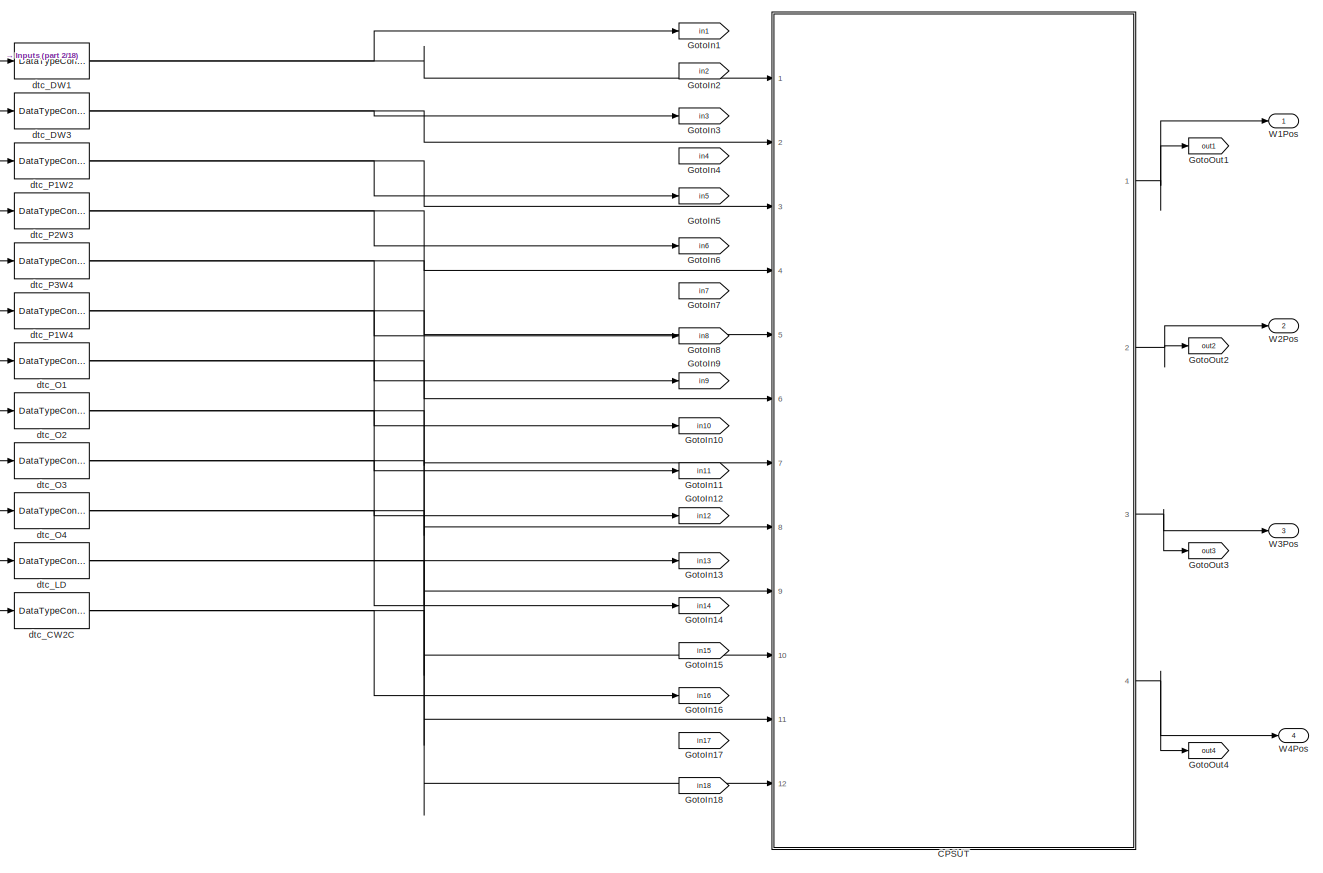
[diagram: root canvas - part 1/18, top left region]
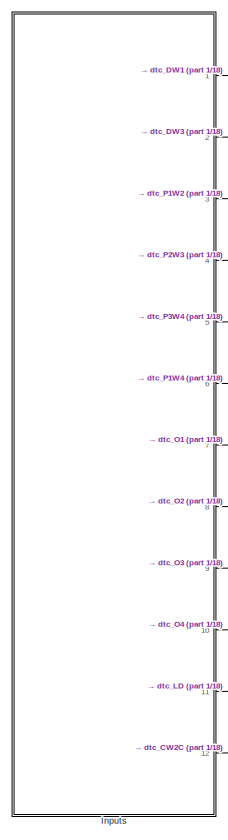
[diagram: root canvas - part 2/18, top left region]
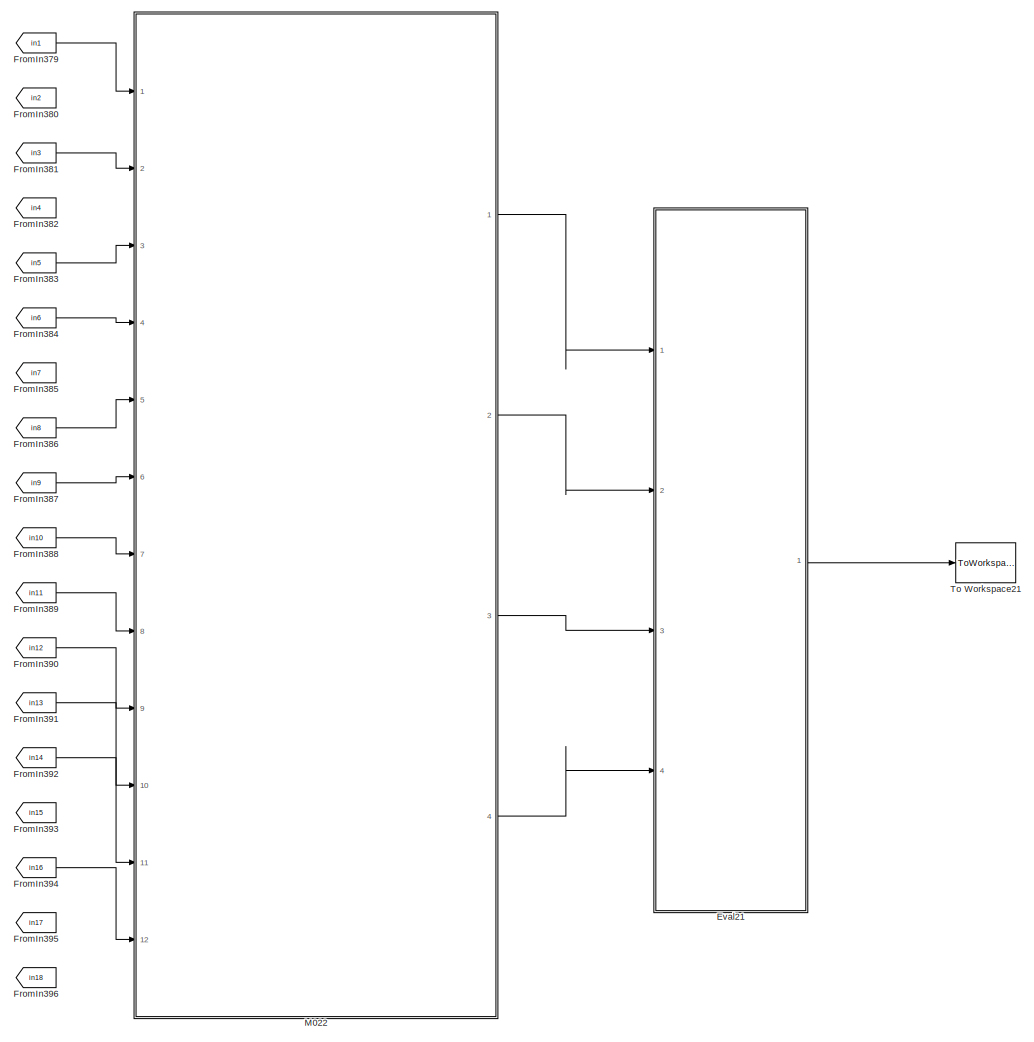
[diagram: root canvas - part 3/18, top center region]
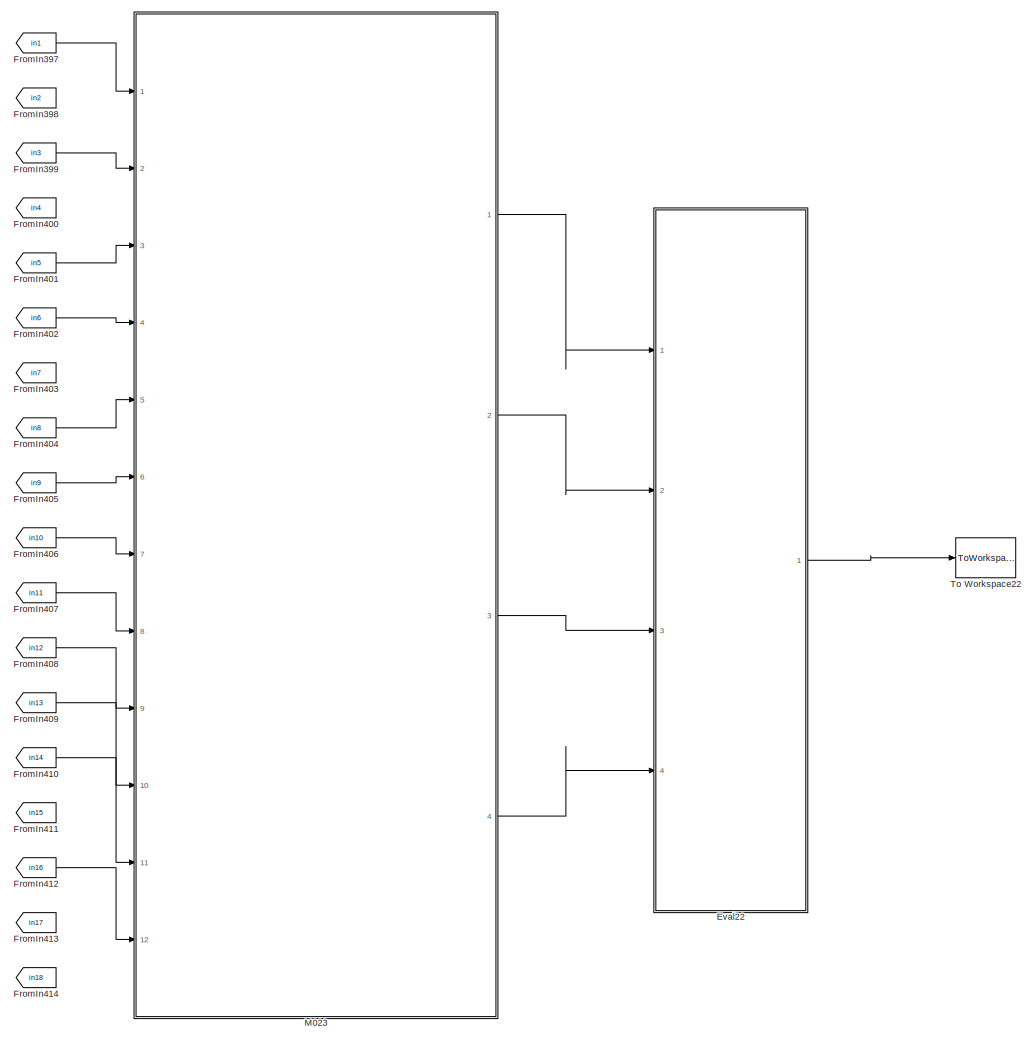
[diagram: root canvas - part 4/18, top center region]
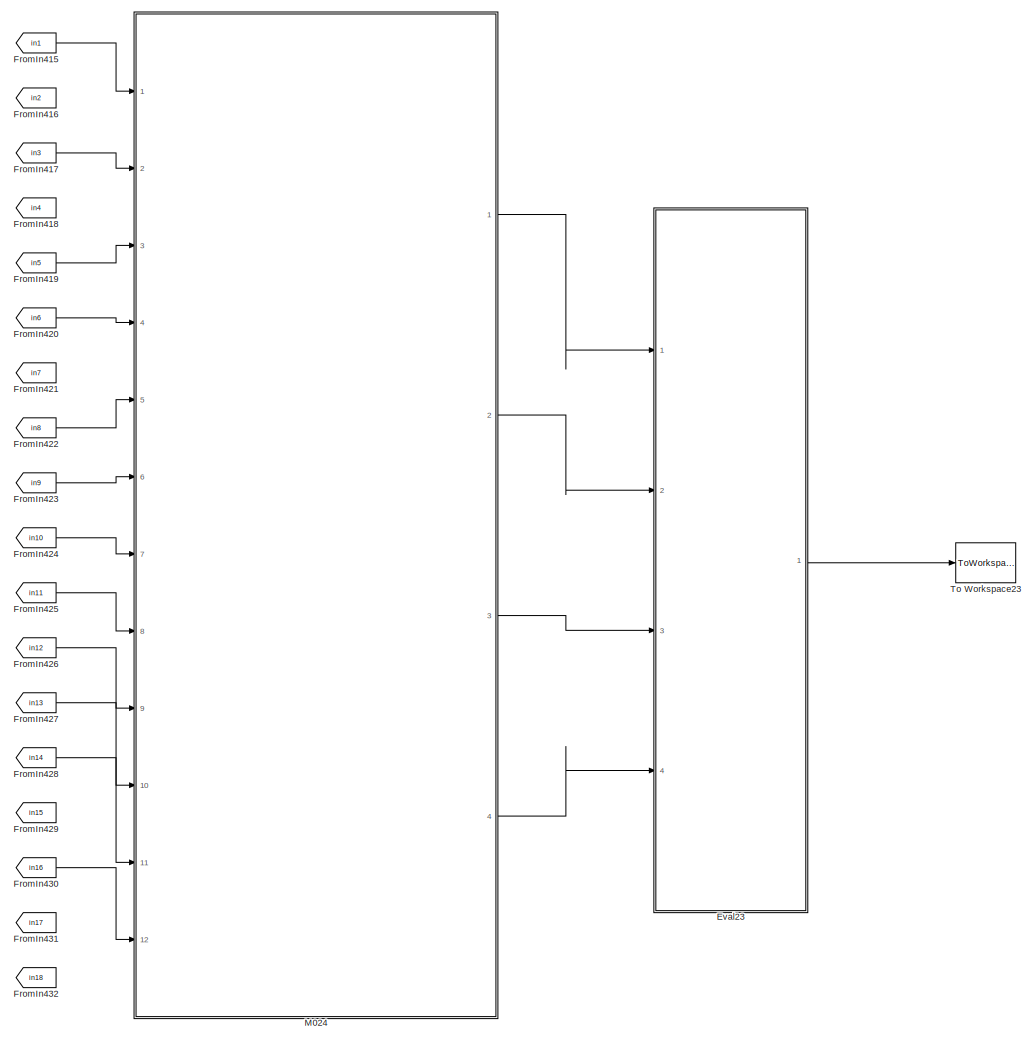
[diagram: root canvas - part 5/18, top center region]
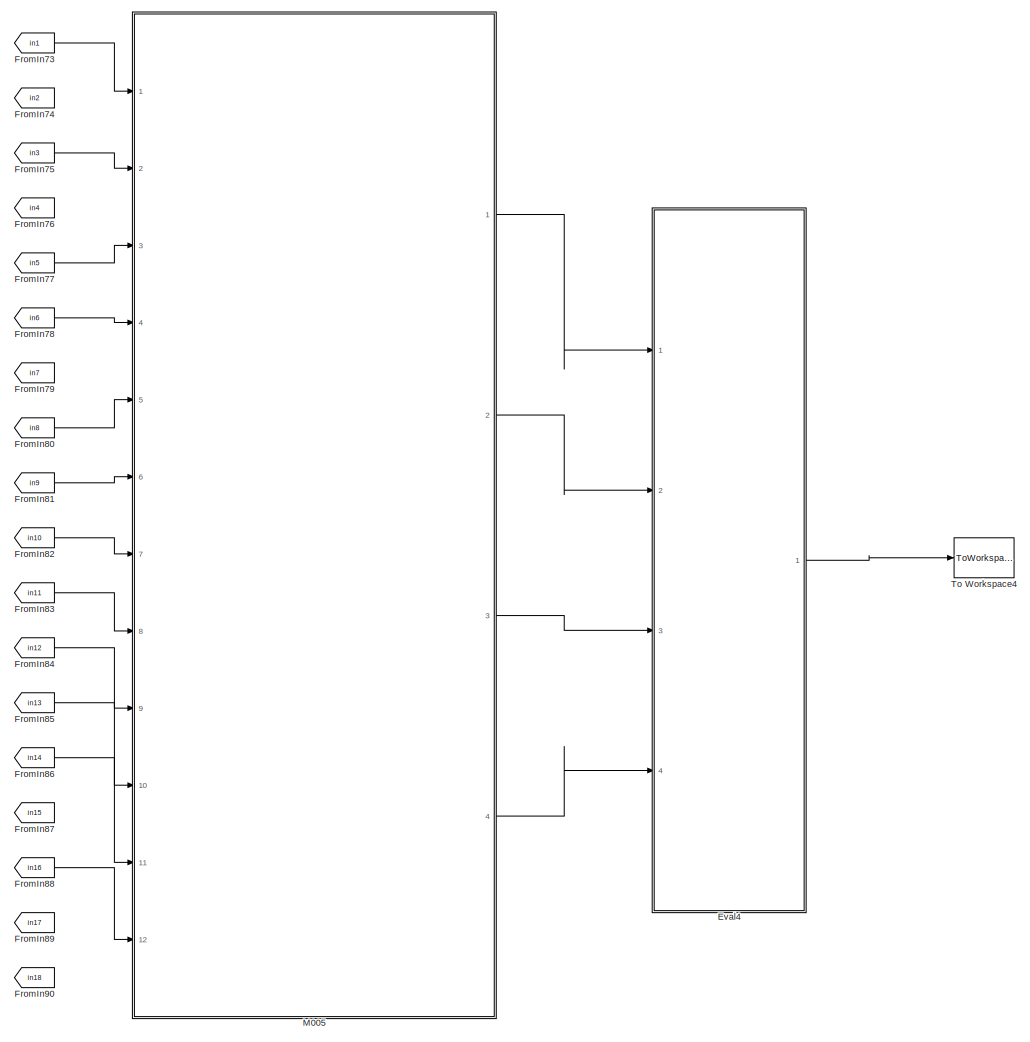
[diagram: root canvas - part 6/18, top center region]
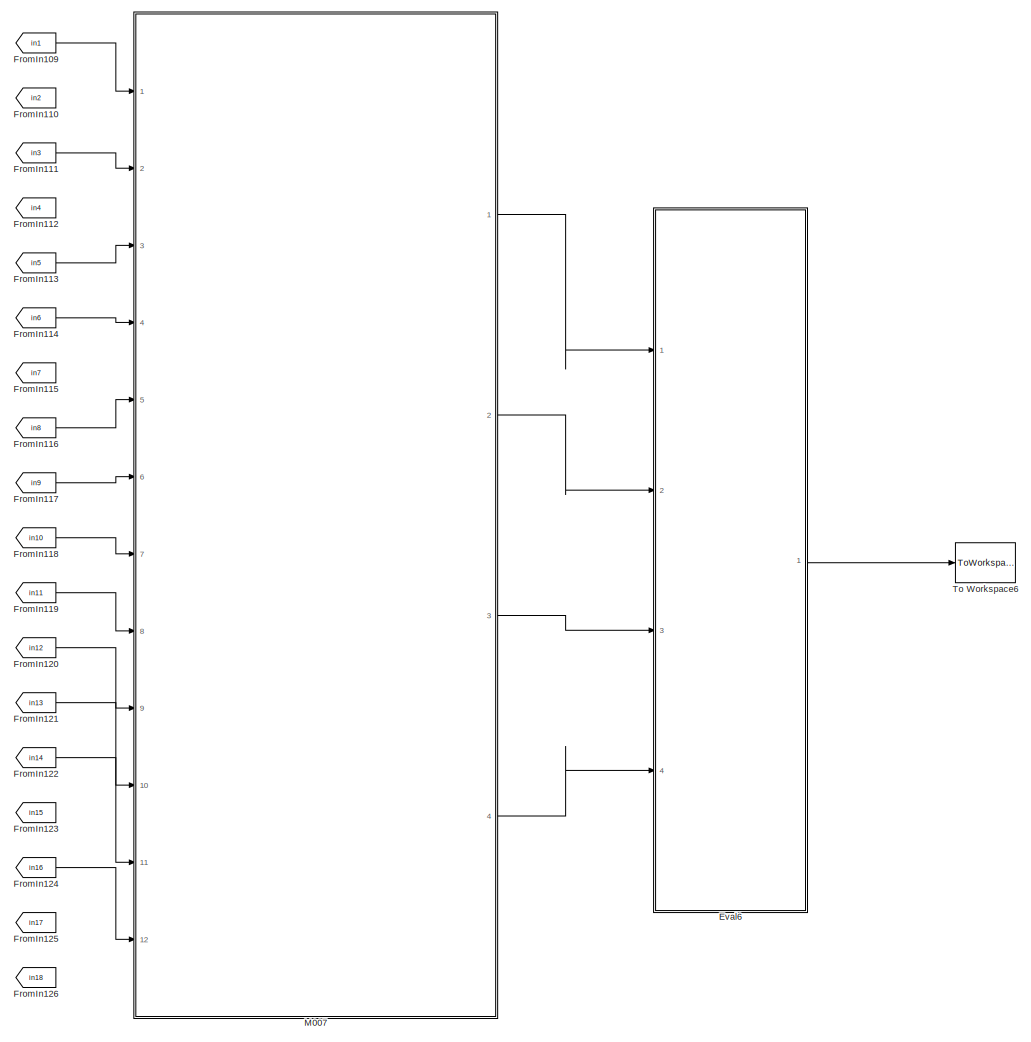
[diagram: root canvas - part 7/18, central region]
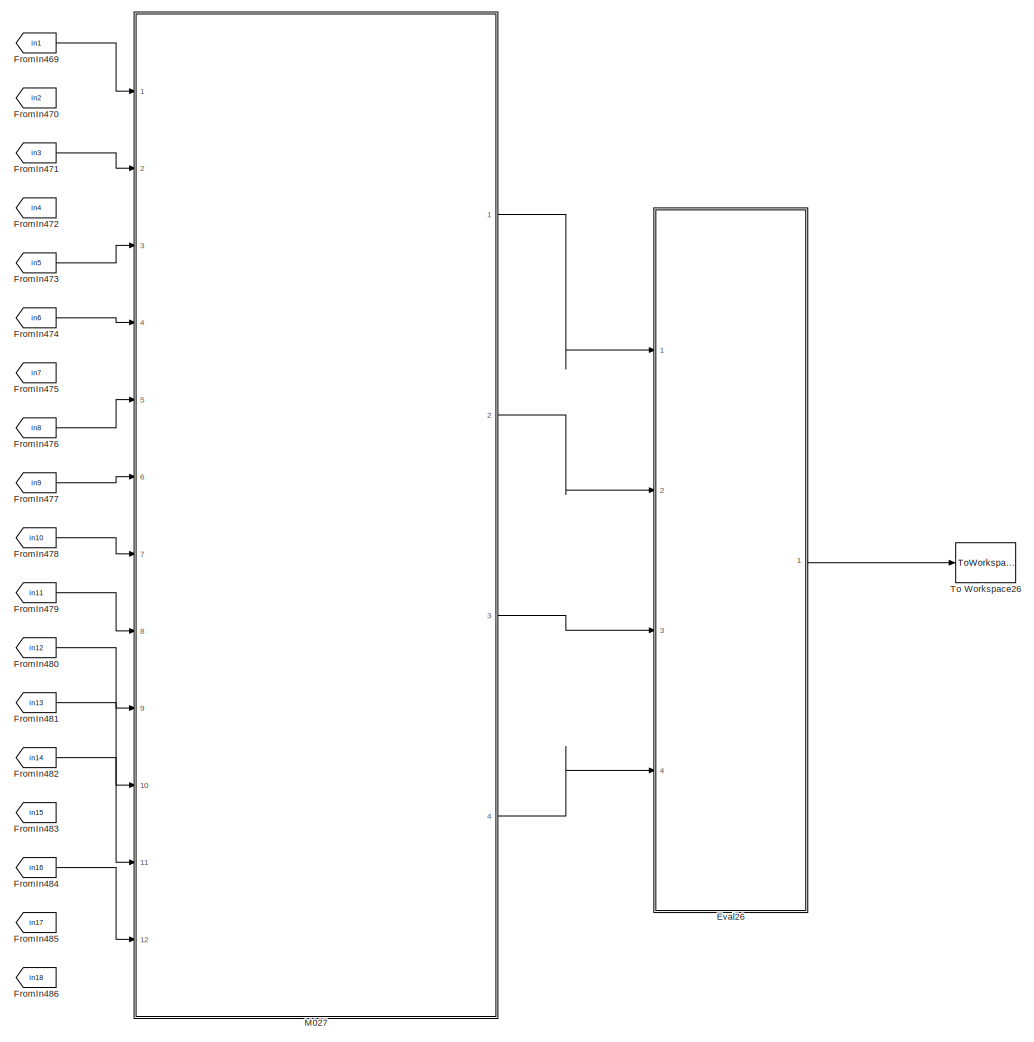
[diagram: root canvas - part 8/18, central region]
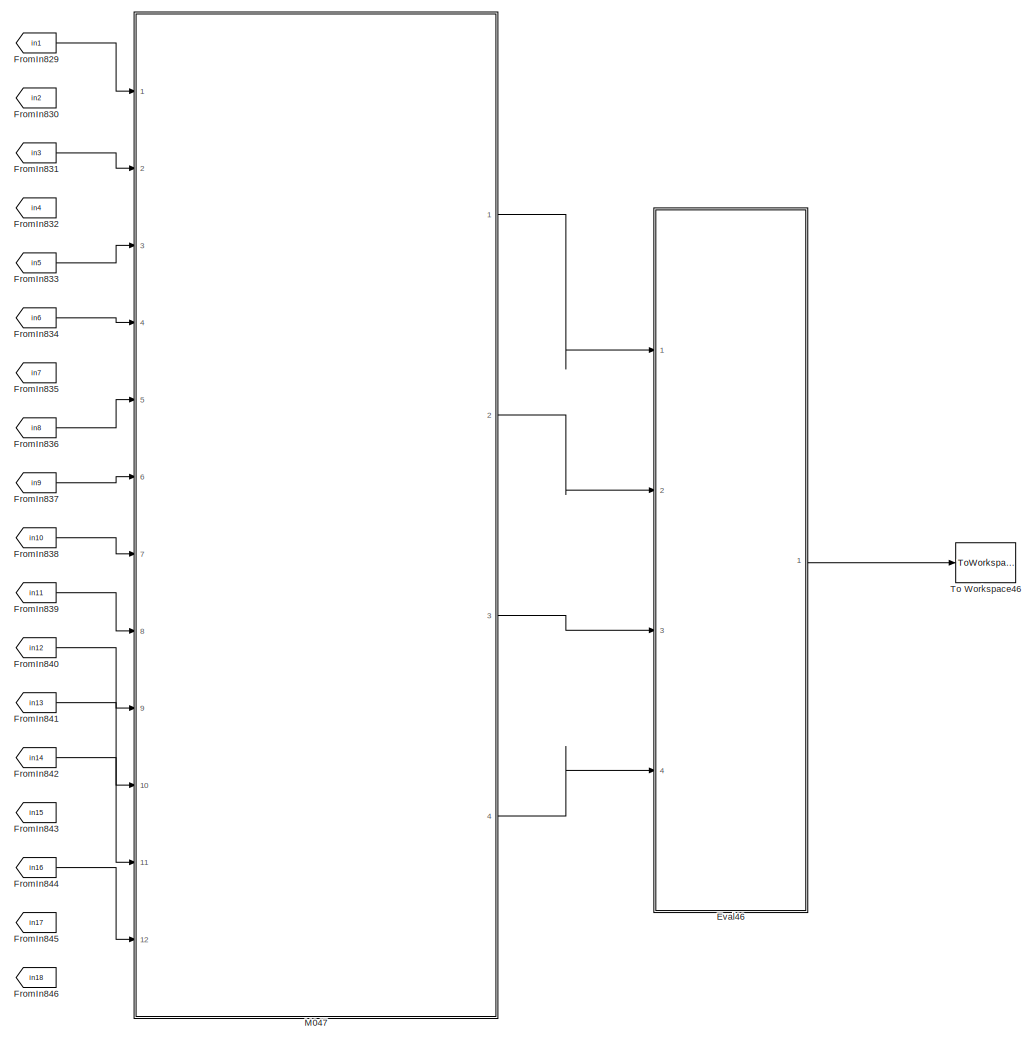
[diagram: root canvas - part 9/18, middle right region]
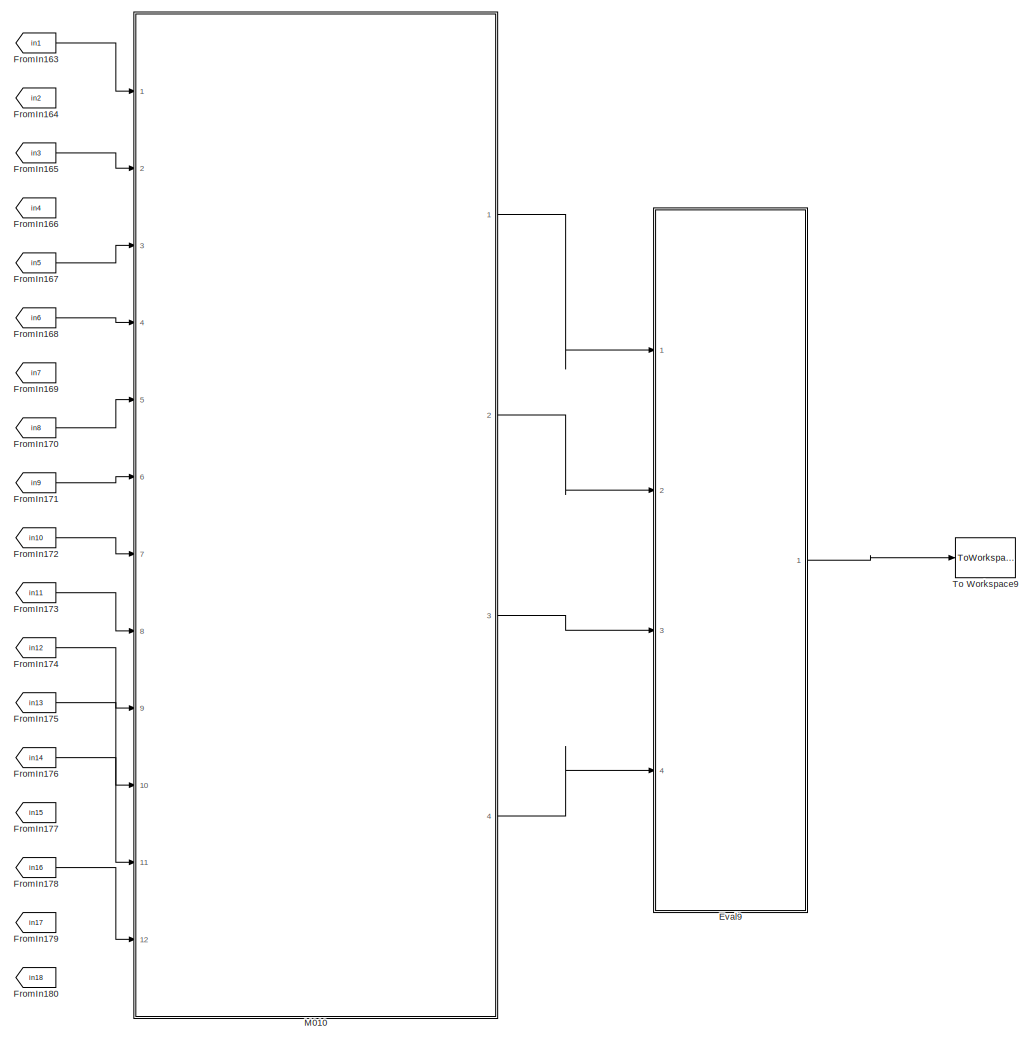
[diagram: root canvas - part 10/18, central region]
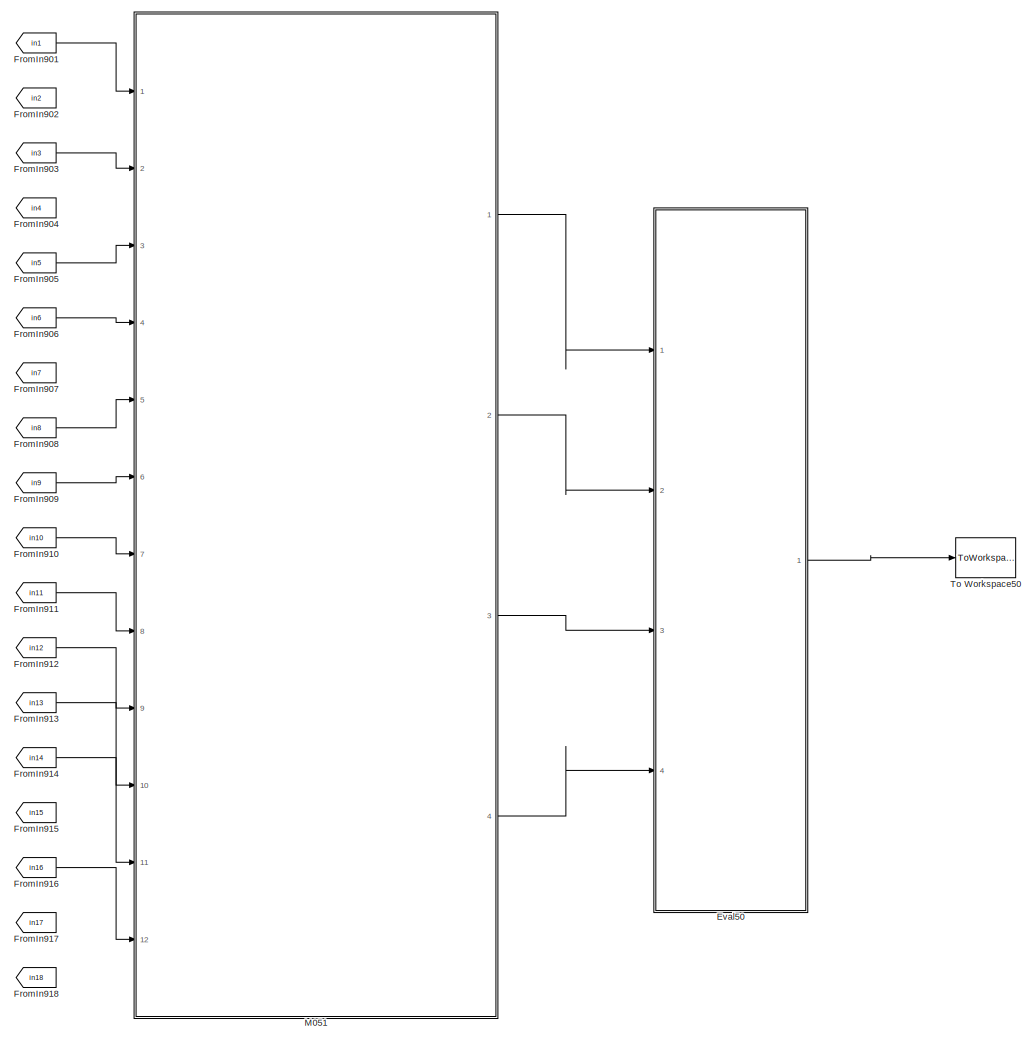
[diagram: root canvas - part 11/18, middle right region]
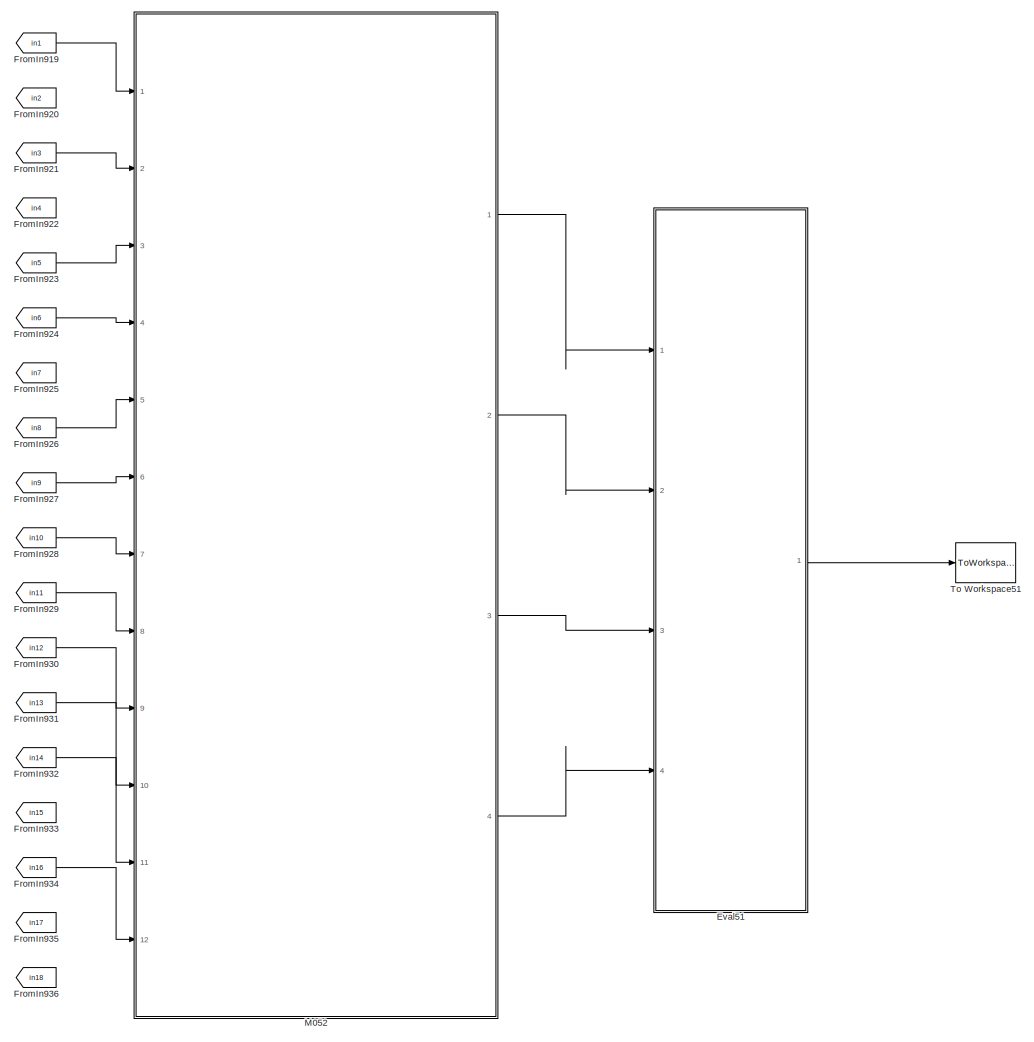
[diagram: root canvas - part 12/18, middle right region]
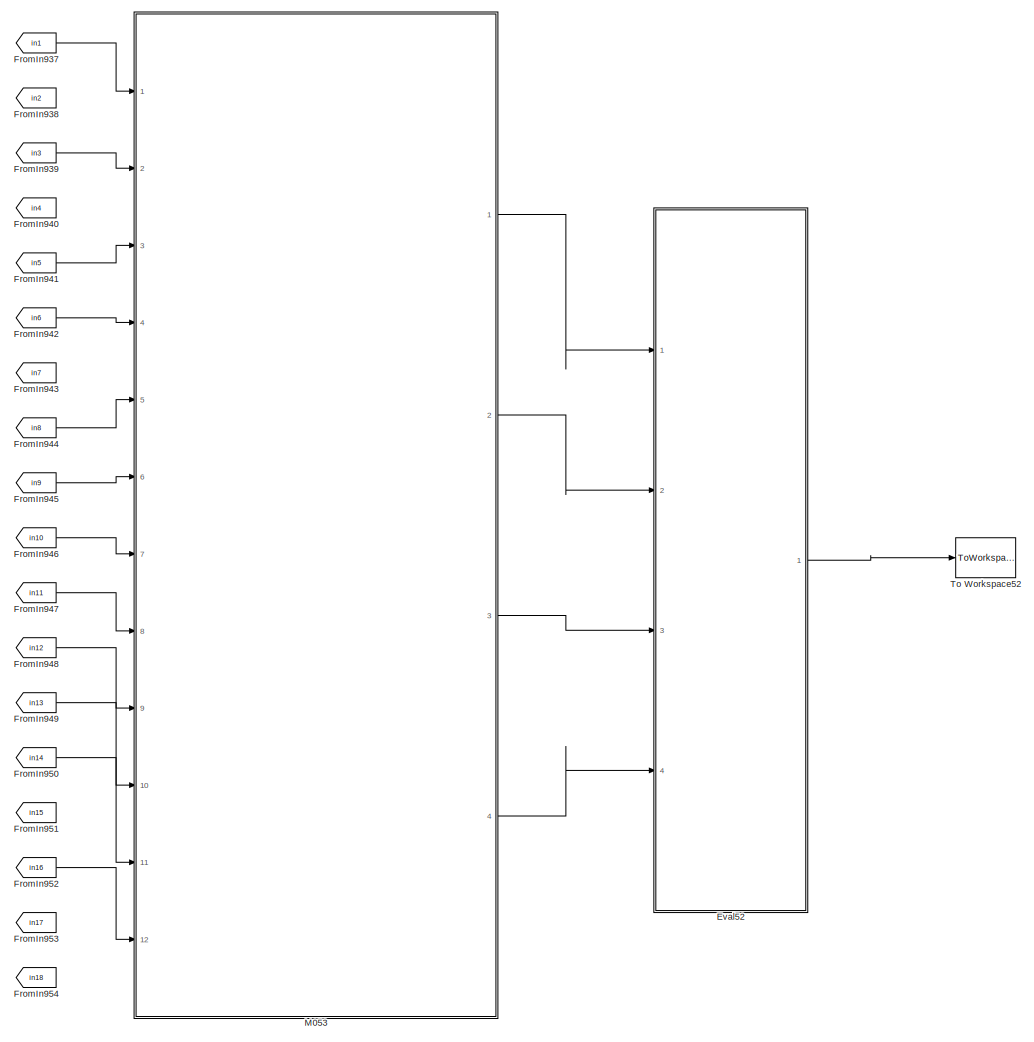
[diagram: root canvas - part 13/18, bottom right region]
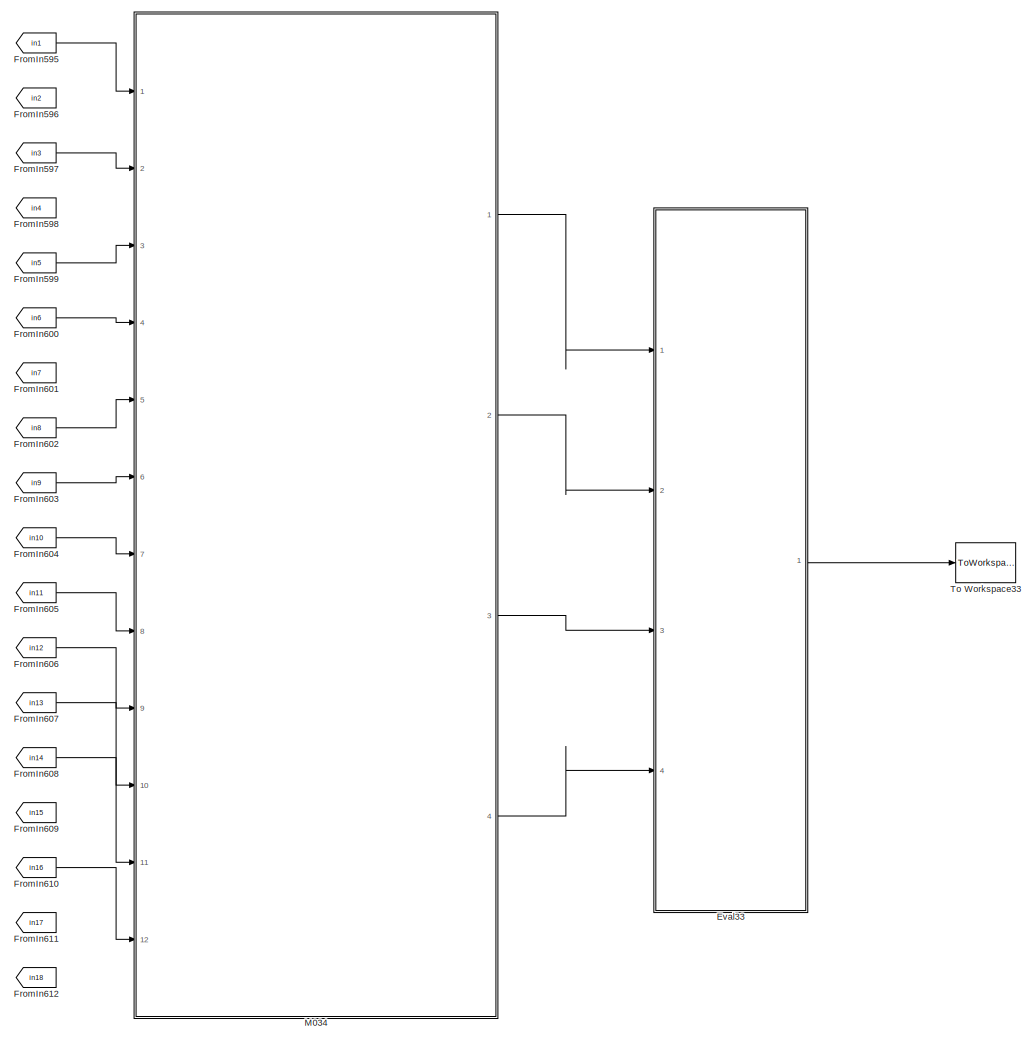
[diagram: root canvas - part 14/18, bottom center region]
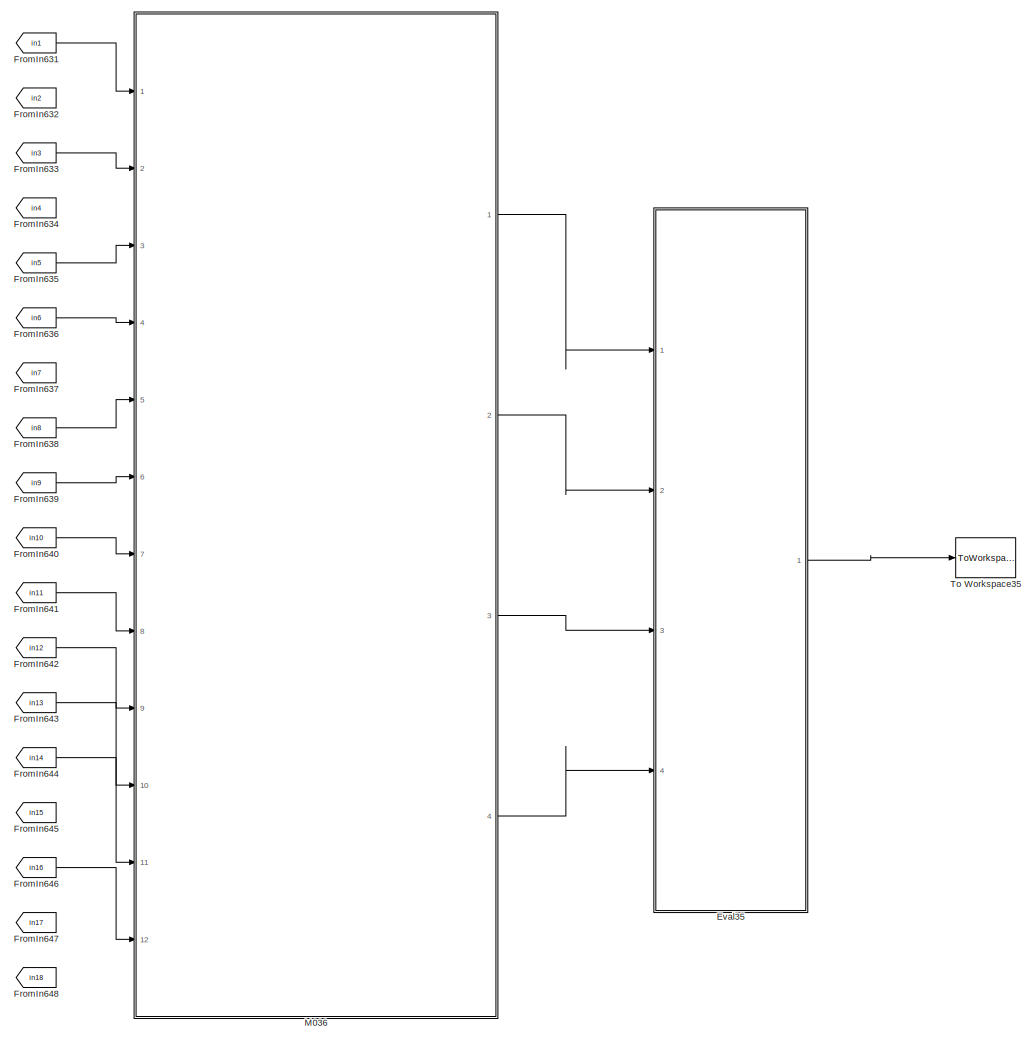
[diagram: root canvas - part 15/18, bottom center region]
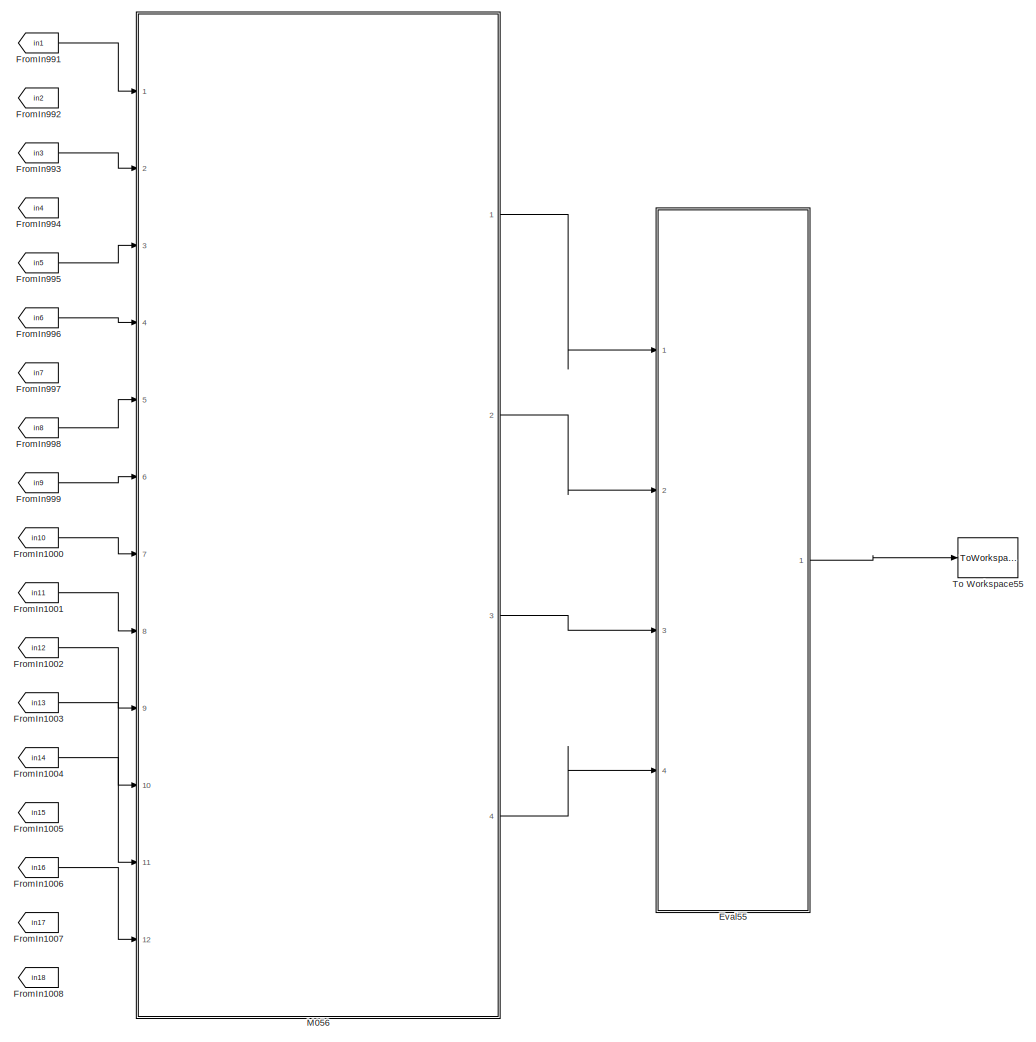
[diagram: root canvas - part 16/18, bottom right region]
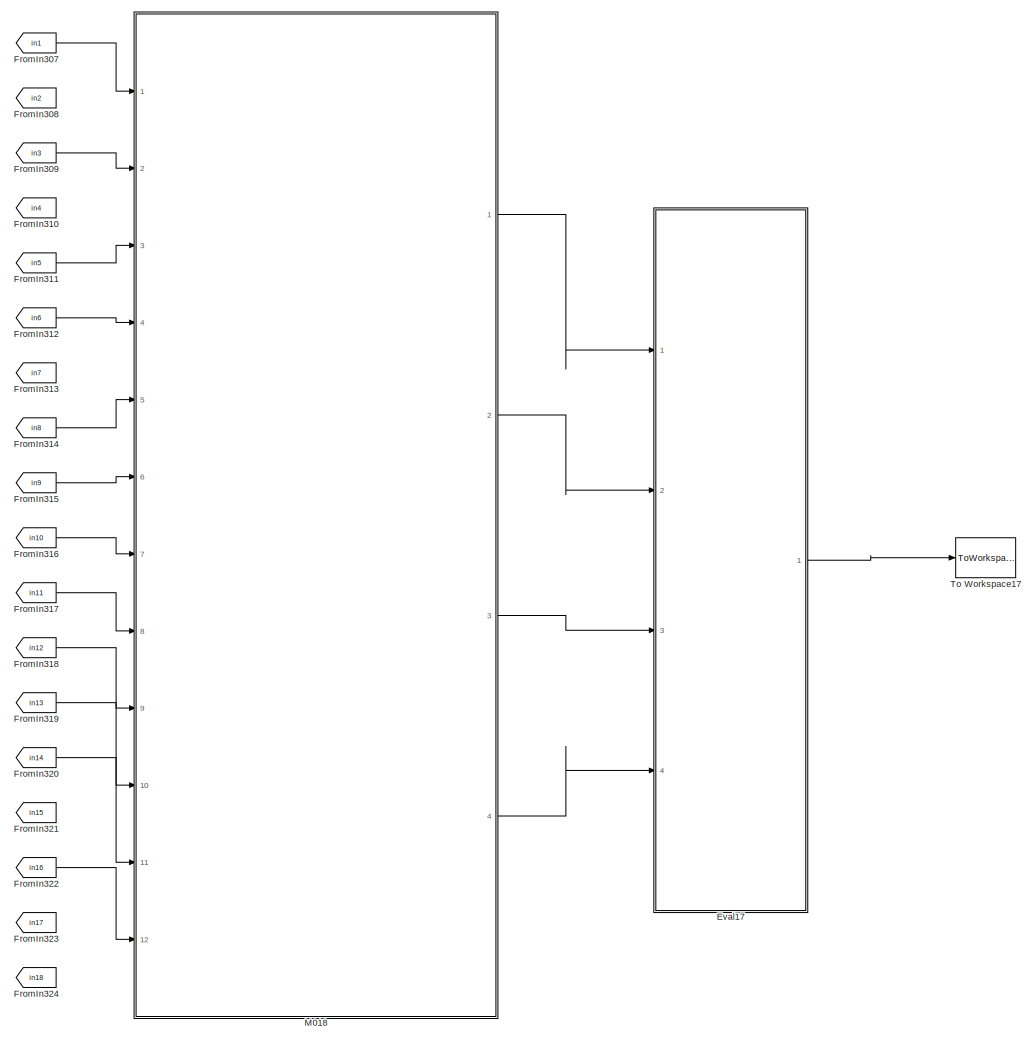
[diagram: root canvas - part 17/18, bottom center region]
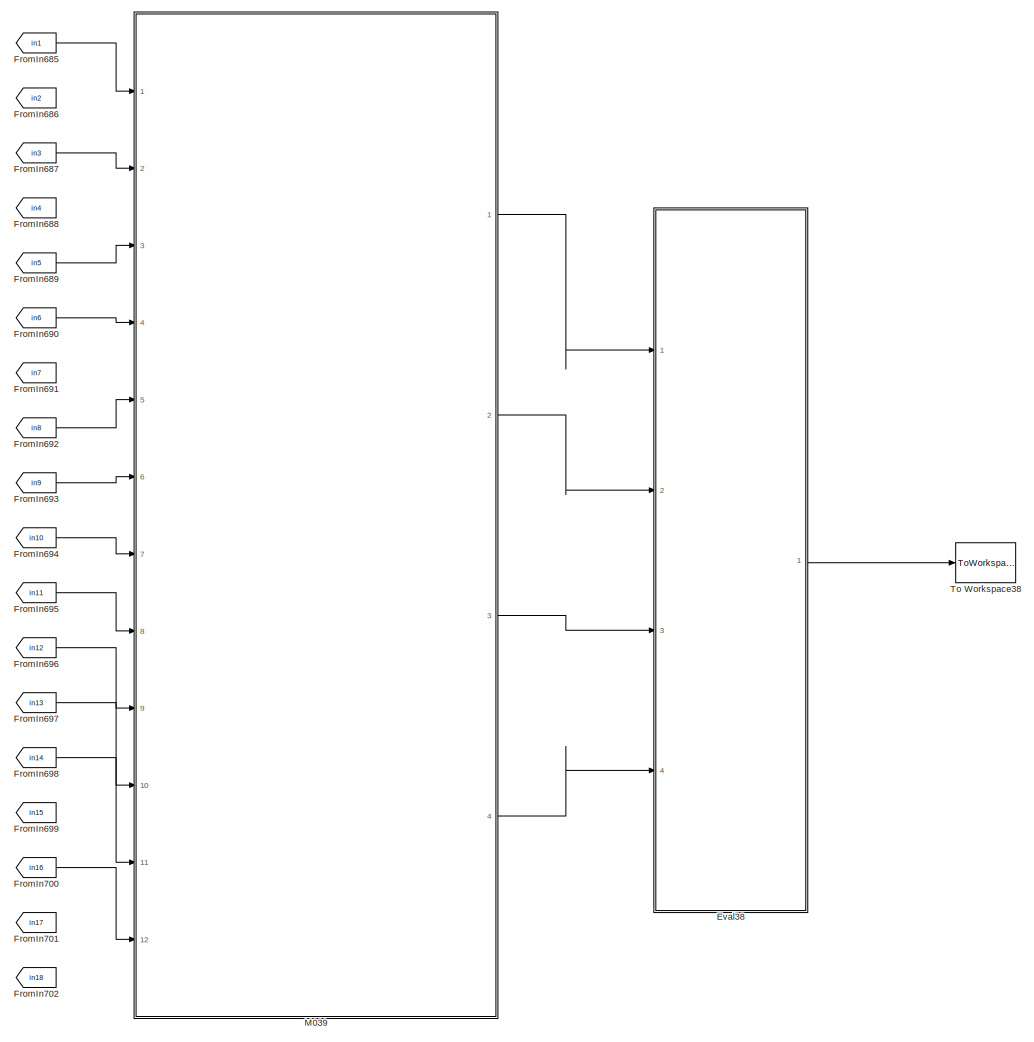
[diagram: root canvas - part 18/18, bottom center region]
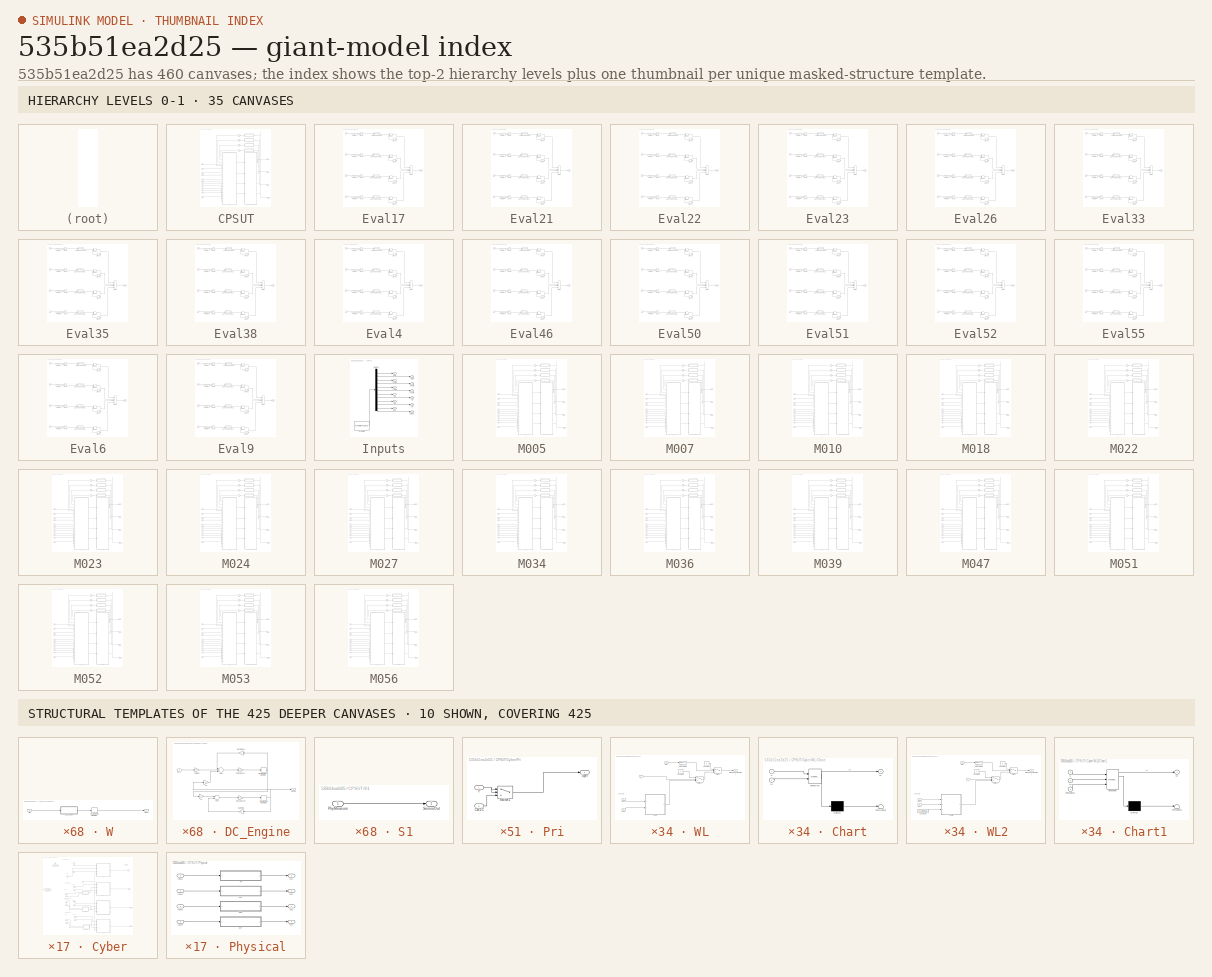
[diagram: thumbnail index - top-2 hierarchy levels (35 canvases) + 10 structural-template representatives of the remaining 425 canvases]
MODEL slx_535b51ea2d25
KIND model
CONFIG AbsTol = auto
CONFIG EnableMultiTasking = on
CONFIG FixedStep = auto
CONFIG MaxStep = auto
CONFIG MinStep = auto
CONFIG RelTol = 1e-3
CONFIG SampleTimeConstraint = Unconstrained
CONFIG Solver = ode3
CONFIG SolverName = ode3
CONFIG StartTime = 0.0
CONFIG StopTime = 10.0
BLOCK [SubSystem] CPSUT
  Ports = [12, 4]
  RequestExecContextInheritance = off
BLOCK [Inport] CPSUT/CW2C
  IconDisplay = Port number
  OutDataTypeStr = int8
  OutMax = 4
  OutMin = 0
  Port = 12
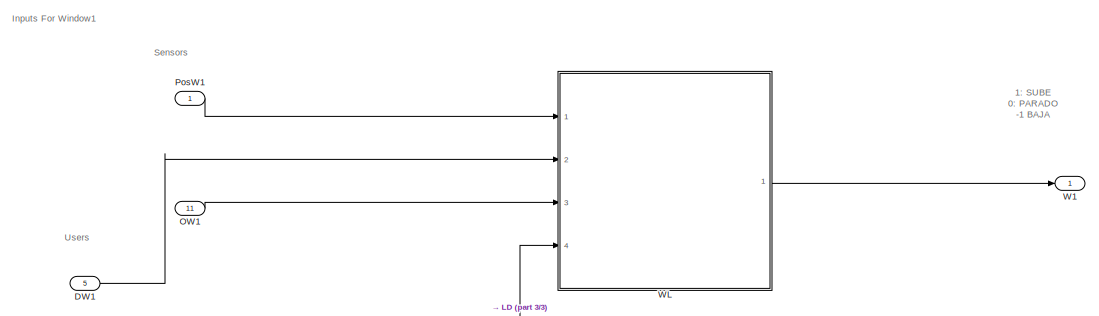
[diagram: CPSUT/Cyber - part 1/3, full width, top band]
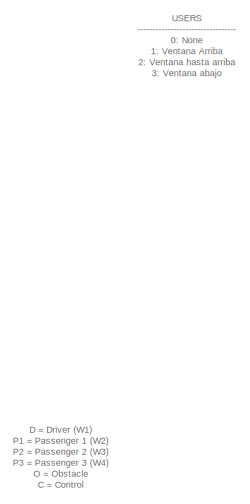
[diagram: CPSUT/Cyber - part 2/3, top left region]
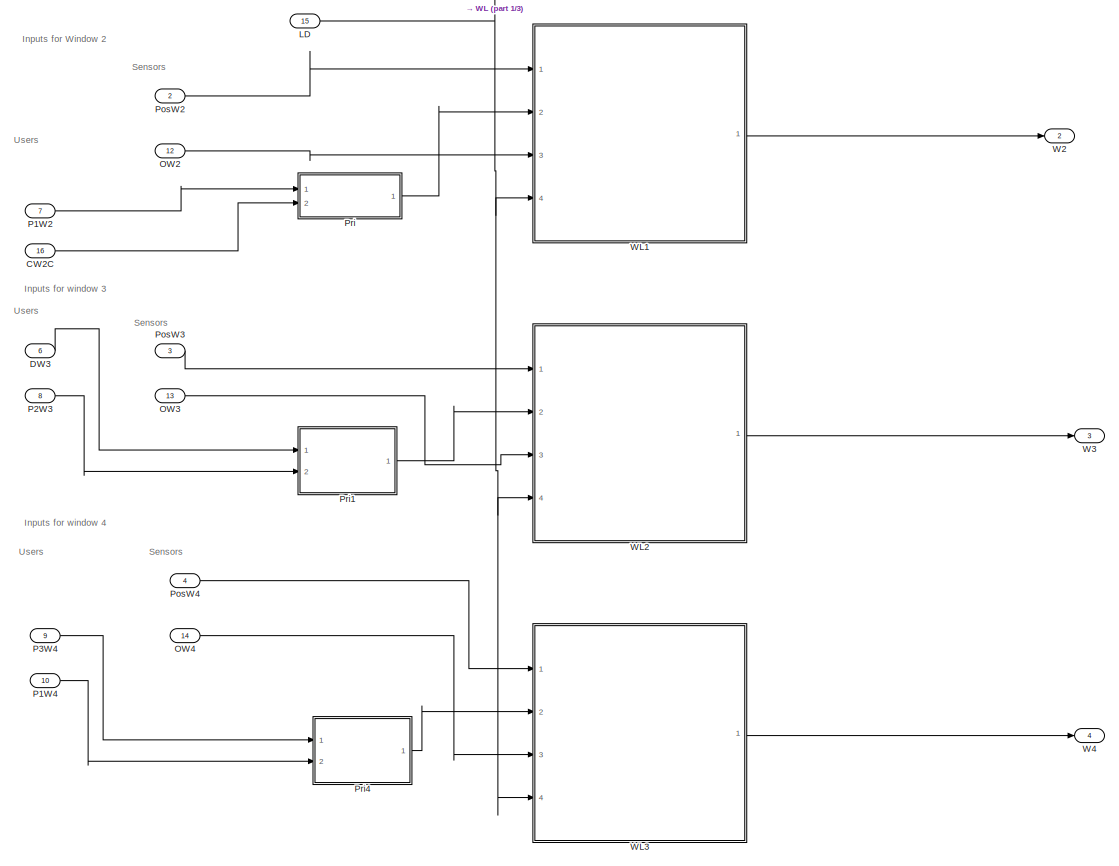
[diagram: CPSUT/Cyber - part 3/3, full width, middle band]
BLOCK [SubSystem] CPSUT/Cyber
  Ports = [16, 4]
  RequestExecContextInheritance = off
BLOCK [Inport] CPSUT/Cyber/CW2C
  IconDisplay = Port number
  Port = 16
BLOCK [Inport] CPSUT/Cyber/DW1
  IconDisplay = Port number
  Port = 5
BLOCK [Inport] CPSUT/Cyber/DW3
  IconDisplay = Port number
  Port = 6
BLOCK [Inport] CPSUT/Cyber/LD
  IconDisplay = Port number
  Port = 15
BLOCK [Inport] CPSUT/Cyber/OW1
  IconDisplay = Port number
  Port = 11
BLOCK [Inport] CPSUT/Cyber/OW2
  IconDisplay = Port number
  Port = 12
BLOCK [Inport] CPSUT/Cyber/OW3
  IconDisplay = Port number
  Port = 13
BLOCK [Inport] CPSUT/Cyber/OW4
  IconDisplay = Port number
  Port = 14
BLOCK [Inport] CPSUT/Cyber/P1W2
  IconDisplay = Port number
  Port = 7
BLOCK [Inport] CPSUT/Cyber/P1W4
  IconDisplay = Port number
  Port = 10
BLOCK [Inport] CPSUT/Cyber/P2W3
  IconDisplay = Port number
  Port = 8
BLOCK [Inport] CPSUT/Cyber/P3W4
  IconDisplay = Port number
  Port = 9
BLOCK [Inport] CPSUT/Cyber/PosW1
  IconDisplay = Port number
BLOCK [Inport] CPSUT/Cyber/PosW2
  IconDisplay = Port number
  Port = 2
BLOCK [Inport] CPSUT/Cyber/PosW3
  IconDisplay = Port number
  Port = 3
BLOCK [Inport] CPSUT/Cyber/PosW4
  IconDisplay = Port number
  Port = 4
BLOCK [SubSystem] CPSUT/Cyber/Pri
  Ports = [2, 1]
  RequestExecContextInheritance = off
BLOCK [Inport] CPSUT/Cyber/Pri/CW2C
  IconDisplay = Port number
  Port = 2
BLOCK [Inport] CPSUT/Cyber/Pri/P
  IconDisplay = Port number
BLOCK [Switch] CPSUT/Cyber/Pri/Switch1
  Criteria = u2 ~= 0
  InputSameDT = off
  SaturateOnIntegerOverflow = off
BLOCK [Outport] CPSUT/Cyber/Pri/User
  IconDisplay = Port number
BLOCK [SubSystem] CPSUT/Cyber/Pri1
  Ports = [2, 1]
  RequestExecContextInheritance = off
BLOCK [Inport] CPSUT/Cyber/Pri1/D
  IconDisplay = Port number
BLOCK [Inport] CPSUT/Cyber/Pri1/P
  IconDisplay = Port number
  Port = 2
BLOCK [Switch] CPSUT/Cyber/Pri1/Switch
  Criteria = u2 ~= 0
  InputSameDT = off
  SaturateOnIntegerOverflow = off
BLOCK [Outport] CPSUT/Cyber/Pri1/User
  IconDisplay = Port number
BLOCK [SubSystem] CPSUT/Cyber/Pri4
  Ports = [2, 1]
  RequestExecContextInheritance = off
BLOCK [Inport] CPSUT/Cyber/Pri4/P
  IconDisplay = Port number
BLOCK [Inport] CPSUT/Cyber/Pri4/P1
  IconDisplay = Port number
  Port = 2
BLOCK [Switch] CPSUT/Cyber/Pri4/Switch1
  Criteria = u2 ~= 0
  InputSameDT = off
  SaturateOnIntegerOverflow = off
BLOCK [Outport] CPSUT/Cyber/Pri4/User
  IconDisplay = Port number
BLOCK [Outport] CPSUT/Cyber/W1
  IconDisplay = Port number
BLOCK [Outport] CPSUT/Cyber/W2
  IconDisplay = Port number
  Port = 2
BLOCK [Outport] CPSUT/Cyber/W3
  IconDisplay = Port number
  Port = 3
BLOCK [Outport] CPSUT/Cyber/W4
  IconDisplay = Port number
  Port = 4
BLOCK [SubSystem] CPSUT/Cyber/WL
  Ports = [4, 1]
  RequestExecContextInheritance = off
BLOCK [SubSystem] CPSUT/Cyber/WL/Chart
  ErrorFcn = Stateflow.Translate.translate
  PermitHierarchicalResolution = ExplicitOnly
  Ports = [2, 1]
  RequestExecContextInheritance = off
  SFBlockType = Chart
  TreatAsAtomicUnit = on
BLOCK [Demux] CPSUT/Cyber/WL/Chart/ Demux 
  Outputs = 1
  Ports = [1, 1]
BLOCK [S-Function] CPSUT/Cyber/WL/Chart/ SFunction 
  EnableBusSupport = off
  FunctionName = sf_sfun
  PortCounts = [2 2]
  Ports = [2, 2]
  SFcnIsStateOwnerBlock = off
  SFunctionDeploymentMode = off
  Tag = Stateflow S-Function c00003M_harness 1
BLOCK [Terminator] CPSUT/Cyber/WL/Chart/ Terminator 
BLOCK [Inport] CPSUT/Cyber/WL/Chart/S
  IconDisplay = Port number
BLOCK [Inport] CPSUT/Cyber/WL/Chart/UI
  IconDisplay = Port number
  Port = 2
BLOCK [Outport] CPSUT/Cyber/WL/Chart/W
  IconDisplay = Port number
BLOCK [Constant] CPSUT/Cyber/WL/Constant
  Value = -1
BLOCK [Constant] CPSUT/Cyber/WL/Constant1
  Value = 0
BLOCK [DataTypeConversion] CPSUT/Cyber/WL/Data Type Conversion
  RndMeth = Floor
  SaturateOnIntegerOverflow = off
BLOCK [Inport] CPSUT/Cyber/WL/L
  IconDisplay = Port number
  Port = 4
BLOCK [Inport] CPSUT/Cyber/WL/OW
  IconDisplay = Port number
  Port = 3
BLOCK [Switch] CPSUT/Cyber/WL/Switch
  Criteria = u2 ~= 0
  InputSameDT = off
  SaturateOnIntegerOverflow = off
  Threshold = 1
  ZeroCross = off
BLOCK [Switch] CPSUT/Cyber/WL/Switch1
  Criteria = u2 ~= 0
  InputSameDT = off
  SaturateOnIntegerOverflow = off
BLOCK [Inport] CPSUT/Cyber/WL/User
  IconDisplay = Port number
  Port = 2
BLOCK [Inport] CPSUT/Cyber/WL/WPos
  IconDisplay = Port number
BLOCK [Outport] CPSUT/Cyber/WL/WindowLogicOutput
  IconDisplay = Port number
BLOCK [SubSystem] CPSUT/Cyber/WL1
  Ports = [4, 1]
  RequestExecContextInheritance = off
BLOCK [SubSystem] CPSUT/Cyber/WL1/Chart1
  ErrorFcn = Stateflow.Translate.translate
  PermitHierarchicalResolution = ExplicitOnly
  Ports = [2, 1]
  RequestExecContextInheritance = off
  SFBlockType = Chart
  TreatAsAtomicUnit = on
BLOCK [Demux] CPSUT/Cyber/WL1/Chart1/ Demux 
  Outputs = 1
  Ports = [1, 1]
BLOCK [S-Function] CPSUT/Cyber/WL1/Chart1/ SFunction 
  EnableBusSupport = off
  FunctionName = sf_sfun
  PortCounts = [2 2]
  Ports = [2, 2]
  SFcnIsStateOwnerBlock = off
  SFunctionDeploymentMode = off
  Tag = Stateflow S-Function c00003M_harness 3
BLOCK [Terminator] CPSUT/Cyber/WL1/Chart1/ Terminator 
BLOCK [Inport] CPSUT/Cyber/WL1/Chart1/S
  IconDisplay = Port number
BLOCK [Inport] CPSUT/Cyber/WL1/Chart1/UI
  IconDisplay = Port number
  Port = 2
BLOCK [Outport] CPSUT/Cyber/WL1/Chart1/W
  IconDisplay = Port number
BLOCK [Constant] CPSUT/Cyber/WL1/Constant
  Value = -1
BLOCK [Constant] CPSUT/Cyber/WL1/Constant1
  Value = 0
BLOCK [DataTypeConversion] CPSUT/Cyber/WL1/Data Type Conversion
  RndMeth = Floor
  SaturateOnIntegerOverflow = off
BLOCK [Inport] CPSUT/Cyber/WL1/L
  IconDisplay = Port number
  Port = 4
BLOCK [Inport] CPSUT/Cyber/WL1/OW
  IconDisplay = Port number
  Port = 3
BLOCK [Switch] CPSUT/Cyber/WL1/Switch
  Criteria = u2 ~= 0
  InputSameDT = off
  SaturateOnIntegerOverflow = off
  Threshold = 1
  ZeroCross = off
BLOCK [Switch] CPSUT/Cyber/WL1/Switch1
  Criteria = u2 ~= 0
  InputSameDT = off
  SaturateOnIntegerOverflow = off
BLOCK [Inport] CPSUT/Cyber/WL1/User
  IconDisplay = Port number
  Port = 2
BLOCK [Inport] CPSUT/Cyber/WL1/WPos
  IconDisplay = Port number
BLOCK [Outport] CPSUT/Cyber/WL1/WindowLogicOutput
  IconDisplay = Port number
BLOCK [SubSystem] CPSUT/Cyber/WL2
  Ports = [4, 1]
  RequestExecContextInheritance = off
BLOCK [SubSystem] CPSUT/Cyber/WL2/Chart1
  ErrorFcn = Stateflow.Translate.translate
  PermitHierarchicalResolution = ExplicitOnly
  Ports = [3, 1]
  RequestExecContextInheritance = off
  SFBlockType = Chart
  TreatAsAtomicUnit = on
BLOCK [Demux] CPSUT/Cyber/WL2/Chart1/ Demux 
  Outputs = 1
  Ports = [1, 1]
BLOCK [S-Function] CPSUT/Cyber/WL2/Chart1/ SFunction 
  EnableBusSupport = off
  FunctionName = sf_sfun
  PortCounts = [3 2]
  Ports = [3, 2]
  SFcnIsStateOwnerBlock = off
  SFunctionDeploymentMode = off
  Tag = Stateflow S-Function c00003M_harness 2
BLOCK [Terminator] CPSUT/Cyber/WL2/Chart1/ Terminator 
BLOCK [Inport] CPSUT/Cyber/WL2/Chart1/PosMinW3
  IconDisplay = Port number
  Port = 3
BLOCK [Inport] CPSUT/Cyber/WL2/Chart1/S
  IconDisplay = Port number
BLOCK [Inport] CPSUT/Cyber/WL2/Chart1/UI
  IconDisplay = Port number
  Port = 2
BLOCK [Outport] CPSUT/Cyber/WL2/Chart1/W
  IconDisplay = Port number
BLOCK [Constant] CPSUT/Cyber/WL2/Constant
  Value = -1
BLOCK [Constant] CPSUT/Cyber/WL2/Constant1
  Value = 0
BLOCK [Constant] CPSUT/Cyber/WL2/Constant2
  Value = PosMinimaW3
BLOCK [DataTypeConversion] CPSUT/Cyber/WL2/Data Type Conversion
  RndMeth = Floor
  SaturateOnIntegerOverflow = off
BLOCK [Inport] CPSUT/Cyber/WL2/L
  IconDisplay = Port number
  Port = 4
BLOCK [Inport] CPSUT/Cyber/WL2/OW
  IconDisplay = Port number
  Port = 3
BLOCK [Switch] CPSUT/Cyber/WL2/Switch
  Criteria = u2 ~= 0
  InputSameDT = off
  SaturateOnIntegerOverflow = off
  Threshold = 1
  ZeroCross = off
BLOCK [Switch] CPSUT/Cyber/WL2/Switch1
  Criteria = u2 ~= 0
  InputSameDT = off
  SaturateOnIntegerOverflow = off
BLOCK [Inport] CPSUT/Cyber/WL2/User
  IconDisplay = Port number
  Port = 2
BLOCK [Inport] CPSUT/Cyber/WL2/WPos
  IconDisplay = Port number
BLOCK [Outport] CPSUT/Cyber/WL2/WindowLogicOutput
  IconDisplay = Port number
BLOCK [SubSystem] CPSUT/Cyber/WL3
  Ports = [4, 1]
  RequestExecContextInheritance = off
BLOCK [SubSystem] CPSUT/Cyber/WL3/Chart2
  ErrorFcn = Stateflow.Translate.translate
  PermitHierarchicalResolution = ExplicitOnly
  Ports = [3, 1]
  RequestExecContextInheritance = off
  SFBlockType = Chart
  TreatAsAtomicUnit = on
BLOCK [Demux] CPSUT/Cyber/WL3/Chart2/ Demux 
  Outputs = 1
  Ports = [1, 1]
BLOCK [S-Function] CPSUT/Cyber/WL3/Chart2/ SFunction 
  EnableBusSupport = off
  FunctionName = sf_sfun
  PortCounts = [3 2]
  Ports = [3, 2]
  SFcnIsStateOwnerBlock = off
  SFunctionDeploymentMode = off
  Tag = Stateflow S-Function c00003M_harness 4
BLOCK [Terminator] CPSUT/Cyber/WL3/Chart2/ Terminator 
BLOCK [Inport] CPSUT/Cyber/WL3/Chart2/PosMinW4
  IconDisplay = Port number
  Port = 3
BLOCK [Inport] CPSUT/Cyber/WL3/Chart2/S
  IconDisplay = Port number
BLOCK [Inport] CPSUT/Cyber/WL3/Chart2/UI
  IconDisplay = Port number
  Port = 2
BLOCK [Outport] CPSUT/Cyber/WL3/Chart2/W
  IconDisplay = Port number
BLOCK [Constant] CPSUT/Cyber/WL3/Constant
  Value = -1
BLOCK [Constant] CPSUT/Cyber/WL3/Constant1
  Value = 0
BLOCK [Constant] CPSUT/Cyber/WL3/Constant2
  Value = PosMinimaW4
BLOCK [DataTypeConversion] CPSUT/Cyber/WL3/Data Type Conversion
  RndMeth = Floor
  SaturateOnIntegerOverflow = off
BLOCK [Inport] CPSUT/Cyber/WL3/L
  IconDisplay = Port number
  Port = 4
BLOCK [Inport] CPSUT/Cyber/WL3/OW
  IconDisplay = Port number
  Port = 3
BLOCK [Switch] CPSUT/Cyber/WL3/Switch
  Criteria = u2 ~= 0
  InputSameDT = off
  SaturateOnIntegerOverflow = off
  Threshold = 1
  ZeroCross = off
BLOCK [Switch] CPSUT/Cyber/WL3/Switch1
  Criteria = u2 ~= 0
  InputSameDT = off
  SaturateOnIntegerOverflow = off
BLOCK [Inport] CPSUT/Cyber/WL3/User
  IconDisplay = Port number
  Port = 2
BLOCK [Inport] CPSUT/Cyber/WL3/WPos
  IconDisplay = Port number
BLOCK [Outport] CPSUT/Cyber/WL3/WindowLogicOutput
  IconDisplay = Port number
BLOCK [Inport] CPSUT/DW1
  IconDisplay = Port number
  OutDataTypeStr = int8
  OutMax = 4
  OutMin = 0
BLOCK [Inport] CPSUT/DW3
  IconDisplay = Port number
  OutDataTypeStr = int8
  OutMax = 4
  OutMin = 0
  Port = 2
BLOCK [Inport] CPSUT/LD
  IconDisplay = Port number
  OutDataTypeStr = boolean
  Port = 11
BLOCK [Memory] CPSUT/M
BLOCK [Memory] CPSUT/M1
BLOCK [Memory] CPSUT/M2
BLOCK [Memory] CPSUT/M3
BLOCK [Inport] CPSUT/O1
  IconDisplay = Port number
  OutDataTypeStr = boolean
  Port = 7
BLOCK [Inport] CPSUT/O2
  IconDisplay = Port number
  OutDataTypeStr = boolean
  Port = 8
BLOCK [Inport] CPSUT/O3
  IconDisplay = Port number
  OutDataTypeStr = boolean
  Port = 9
BLOCK [Inport] CPSUT/O4
  IconDisplay = Port number
  OutDataTypeStr = boolean
  Port = 10
BLOCK [Inport] CPSUT/P1W2
  IconDisplay = Port number
  OutDataTypeStr = int8
  OutMax = 4
  OutMin = 0
  Port = 3
BLOCK [Inport] CPSUT/P1W4
  IconDisplay = Port number
  OutDataTypeStr = int8
  OutMax = 4
  OutMin = 0
  Port = 6
BLOCK [Inport] CPSUT/P2W3
  IconDisplay = Port number
  OutDataTypeStr = int8
  OutMax = 4
  OutMin = 0
  Port = 4
BLOCK [Inport] CPSUT/P3W4
  IconDisplay = Port number
  OutDataTypeStr = int8
  OutMax = 4
  OutMin = 0
  Port = 5
BLOCK [SubSystem] CPSUT/Physical
  Ports = [4, 4]
  RequestExecContextInheritance = off
BLOCK [Inport] CPSUT/Physical/InW1
  IconDisplay = Port number
BLOCK [Inport] CPSUT/Physical/InW2
  IconDisplay = Port number
  Port = 2
BLOCK [Inport] CPSUT/Physical/InW3
  IconDisplay = Port number
  Port = 3
BLOCK [Inport] CPSUT/Physical/InW4
  IconDisplay = Port number
  Port = 4
BLOCK [SubSystem] CPSUT/Physical/W
  Ports = [1, 1]
  RequestExecContextInheritance = off
BLOCK [SubSystem] CPSUT/Physical/W/DC_Engine
  Ports = [1, 1]
  RequestExecContextInheritance = off
BLOCK [Gain] CPSUT/Physical/W/DC_Engine/(Inductance)
  Gain = 1/L
  OutDataTypeStr = Inherit: Inherit via internal rule
  ParamDataTypeStr = Inherit: Inherit via internal rule
  SaturateOnIntegerOverflow = off
BLOCK [Gain] CPSUT/Physical/W/DC_Engine/(Inductance)1
  Gain = 1/J
  OutDataTypeStr = Inherit: Inherit via internal rule
  ParamDataTypeStr = Inherit: Inherit via internal rule
  SaturateOnIntegerOverflow = off
BLOCK [Sum] CPSUT/Physical/W/DC_Engine/Add
  InputSameDT = off
  Inputs = -+-
  OutDataTypeStr = Inherit: Inherit via internal rule
  Ports = [3, 1]
  SaturateOnIntegerOverflow = off
BLOCK [Sum] CPSUT/Physical/W/DC_Engine/Add1
  InputSameDT = off
  Inputs = +-
  OutDataTypeStr = Inherit: Inherit via internal rule
  Ports = [2, 1]
  SaturateOnIntegerOverflow = off
BLOCK [Gain] CPSUT/Physical/W/DC_Engine/Damping
  Gain = b
  OutDataTypeStr = Inherit: Inherit via internal rule
  ParamDataTypeStr = Inherit: Inherit via internal rule
  SaturateOnIntegerOverflow = off
BLOCK [DiscreteIntegrator] CPSUT/Physical/W/DC_Engine/Discrete-Time Integrator
  ICPrevOutput = DiscIntNeverNeededParam
  ICPrevScaledInput = DiscIntNeverNeededParam
  Ports = [1, 1]
  SampleTime = -1
BLOCK [DiscreteIntegrator] CPSUT/Physical/W/DC_Engine/Discrete-Time Integrator1
  ICPrevOutput = DiscIntNeverNeededParam
  ICPrevScaledInput = DiscIntNeverNeededParam
  Ports = [1, 1]
  SampleTime = -1
BLOCK [Gain] CPSUT/Physical/W/DC_Engine/Ke
  Gain = K
  OutDataTypeStr = Inherit: Inherit via internal rule
  ParamDataTypeStr = Inherit: Inherit via internal rule
  SaturateOnIntegerOverflow = off
BLOCK [Gain] CPSUT/Physical/W/DC_Engine/Kt
  Gain = K
  OutDataTypeStr = Inherit: Inherit via internal rule
  ParamDataTypeStr = Inherit: Inherit via internal rule
  SaturateOnIntegerOverflow = off
BLOCK [Gain] CPSUT/Physical/W/DC_Engine/Resistance
  Gain = R
  OutDataTypeStr = Inherit: Inherit via internal rule
  ParamDataTypeStr = Inherit: Inherit via internal rule
  SaturateOnIntegerOverflow = off
BLOCK [Outport] CPSUT/Physical/W/DC_Engine/Speed
  IconDisplay = Port number
BLOCK [Gain] CPSUT/Physical/W/DC_Engine/Voltage
  Gain = 10
  OutDataTypeStr = Inherit: Inherit via internal rule
  ParamDataTypeStr = Inherit: Inherit via internal rule
  SaturateOnIntegerOverflow = off
BLOCK [Inport] CPSUT/Physical/W/DC_Engine/input
  IconDisplay = Port number
BLOCK [DiscreteIntegrator] CPSUT/Physical/W/Discrete-Time Integrator
  ICPrevOutput = DiscIntNeverNeededParam
  ICPrevScaledInput = DiscIntNeverNeededParam
  InitialCondition = 5
  LimitOutput = on
  LowerSaturationLimit = 0
  Ports = [1, 1]
  SampleTime = -1
  UpperSaturationLimit = 5
BLOCK [Inport] CPSUT/Physical/W/WIn
  IconDisplay = Port number
BLOCK [Outport] CPSUT/Physical/W/WPos
  IconDisplay = Port number
BLOCK [Outport] CPSUT/Physical/W1
  IconDisplay = Port number
BLOCK [Outport] CPSUT/Physical/W2
  IconDisplay = Port number
  Port = 2
BLOCK [Outport] CPSUT/Physical/W3
  IconDisplay = Port number
  Port = 3
BLOCK [Outport] CPSUT/Physical/W4
  IconDisplay = Port number
  Port = 4
BLOCK [SubSystem] CPSUT/Physical/W5
  Ports = [1, 1]
  RequestExecContextInheritance = off
BLOCK [SubSystem] CPSUT/Physical/W5/DC_Engine
  Ports = [1, 1]
  RequestExecContextInheritance = off
BLOCK [Gain] CPSUT/Physical/W5/DC_Engine/(Inductance)
  Gain = 1/L
  OutDataTypeStr = Inherit: Inherit via internal rule
  ParamDataTypeStr = Inherit: Inherit via internal rule
  SaturateOnIntegerOverflow = off
BLOCK [Gain] CPSUT/Physical/W5/DC_Engine/(Inductance)1
  Gain = 1/J
  OutDataTypeStr = Inherit: Inherit via internal rule
  ParamDataTypeStr = Inherit: Inherit via internal rule
  SaturateOnIntegerOverflow = off
BLOCK [Sum] CPSUT/Physical/W5/DC_Engine/Add
  InputSameDT = off
  Inputs = -+-
  OutDataTypeStr = Inherit: Inherit via internal rule
  Ports = [3, 1]
  SaturateOnIntegerOverflow = off
BLOCK [Sum] CPSUT/Physical/W5/DC_Engine/Add1
  InputSameDT = off
  Inputs = +-
  OutDataTypeStr = Inherit: Inherit via internal rule
  Ports = [2, 1]
  SaturateOnIntegerOverflow = off
BLOCK [Gain] CPSUT/Physical/W5/DC_Engine/Damping
  Gain = b
  OutDataTypeStr = Inherit: Inherit via internal rule
  ParamDataTypeStr = Inherit: Inherit via internal rule
  SaturateOnIntegerOverflow = off
BLOCK [DiscreteIntegrator] CPSUT/Physical/W5/DC_Engine/Discrete-Time Integrator
  ICPrevOutput = DiscIntNeverNeededParam
  ICPrevScaledInput = DiscIntNeverNeededParam
  Ports = [1, 1]
  SampleTime = -1
BLOCK [DiscreteIntegrator] CPSUT/Physical/W5/DC_Engine/Discrete-Time Integrator1
  ICPrevOutput = DiscIntNeverNeededParam
  ICPrevScaledInput = DiscIntNeverNeededParam
  Ports = [1, 1]
  SampleTime = -1
BLOCK [Gain] CPSUT/Physical/W5/DC_Engine/Ke
  Gain = K
  OutDataTypeStr = Inherit: Inherit via internal rule
  ParamDataTypeStr = Inherit: Inherit via internal rule
  SaturateOnIntegerOverflow = off
BLOCK [Gain] CPSUT/Physical/W5/DC_Engine/Kt
  Gain = K
  OutDataTypeStr = Inherit: Inherit via internal rule
  ParamDataTypeStr = Inherit: Inherit via internal rule
  SaturateOnIntegerOverflow = off
BLOCK [Gain] CPSUT/Physical/W5/DC_Engine/Resistance
  Gain = R
  OutDataTypeStr = Inherit: Inherit via internal rule
  ParamDataTypeStr = Inherit: Inherit via internal rule
  SaturateOnIntegerOverflow = off
BLOCK [Outport] CPSUT/Physical/W5/DC_Engine/Speed
  IconDisplay = Port number
BLOCK [Gain] CPSUT/Physical/W5/DC_Engine/Voltage
  Gain = 10
  OutDataTypeStr = Inherit: Inherit via internal rule
  ParamDataTypeStr = Inherit: Inherit via internal rule
  SaturateOnIntegerOverflow = off
BLOCK [Inport] CPSUT/Physical/W5/DC_Engine/input
  IconDisplay = Port number
BLOCK [DiscreteIntegrator] CPSUT/Physical/W5/Discrete-Time Integrator
  ICPrevOutput = DiscIntNeverNeededParam
  ICPrevScaledInput = DiscIntNeverNeededParam
  InitialCondition = 5
  LimitOutput = on
  LowerSaturationLimit = 0
  Ports = [1, 1]
  SampleTime = -1
  UpperSaturationLimit = 5
BLOCK [Inport] CPSUT/Physical/W5/WIn
  IconDisplay = Port number
BLOCK [Outport] CPSUT/Physical/W5/WPos
  IconDisplay = Port number
BLOCK [SubSystem] CPSUT/Physical/W6
  Ports = [1, 1]
  RequestExecContextInheritance = off
BLOCK [SubSystem] CPSUT/Physical/W6/DC_Engine
  Ports = [1, 1]
  RequestExecContextInheritance = off
BLOCK [Gain] CPSUT/Physical/W6/DC_Engine/(Inductance)
  Gain = 1/L
  OutDataTypeStr = Inherit: Inherit via internal rule
  ParamDataTypeStr = Inherit: Inherit via internal rule
  SaturateOnIntegerOverflow = off
BLOCK [Gain] CPSUT/Physical/W6/DC_Engine/(Inductance)1
  Gain = 1/J
  OutDataTypeStr = Inherit: Inherit via internal rule
  ParamDataTypeStr = Inherit: Inherit via internal rule
  SaturateOnIntegerOverflow = off
BLOCK [Sum] CPSUT/Physical/W6/DC_Engine/Add
  InputSameDT = off
  Inputs = -+-
  OutDataTypeStr = Inherit: Inherit via internal rule
  Ports = [3, 1]
  SaturateOnIntegerOverflow = off
BLOCK [Sum] CPSUT/Physical/W6/DC_Engine/Add1
  InputSameDT = off
  Inputs = +-
  OutDataTypeStr = Inherit: Inherit via internal rule
  Ports = [2, 1]
  SaturateOnIntegerOverflow = off
BLOCK [Gain] CPSUT/Physical/W6/DC_Engine/Damping
  Gain = b
  OutDataTypeStr = Inherit: Inherit via internal rule
  ParamDataTypeStr = Inherit: Inherit via internal rule
  SaturateOnIntegerOverflow = off
BLOCK [DiscreteIntegrator] CPSUT/Physical/W6/DC_Engine/Discrete-Time Integrator
  ICPrevOutput = DiscIntNeverNeededParam
  ICPrevScaledInput = DiscIntNeverNeededParam
  Ports = [1, 1]
  SampleTime = -1
BLOCK [DiscreteIntegrator] CPSUT/Physical/W6/DC_Engine/Discrete-Time Integrator1
  ICPrevOutput = DiscIntNeverNeededParam
  ICPrevScaledInput = DiscIntNeverNeededParam
  Ports = [1, 1]
  SampleTime = -1
BLOCK [Gain] CPSUT/Physical/W6/DC_Engine/Ke
  Gain = K
  OutDataTypeStr = Inherit: Inherit via internal rule
  ParamDataTypeStr = Inherit: Inherit via internal rule
  SaturateOnIntegerOverflow = off
BLOCK [Gain] CPSUT/Physical/W6/DC_Engine/Kt
  Gain = K
  OutDataTypeStr = Inherit: Inherit via internal rule
  ParamDataTypeStr = Inherit: Inherit via internal rule
  SaturateOnIntegerOverflow = off
BLOCK [Gain] CPSUT/Physical/W6/DC_Engine/Resistance
  Gain = R
  OutDataTypeStr = Inherit: Inherit via internal rule
  ParamDataTypeStr = Inherit: Inherit via internal rule
  SaturateOnIntegerOverflow = off
BLOCK [Outport] CPSUT/Physical/W6/DC_Engine/Speed
  IconDisplay = Port number
BLOCK [Gain] CPSUT/Physical/W6/DC_Engine/Voltage
  Gain = 10
  OutDataTypeStr = Inherit: Inherit via internal rule
  ParamDataTypeStr = Inherit: Inherit via internal rule
  SaturateOnIntegerOverflow = off
BLOCK [Inport] CPSUT/Physical/W6/DC_Engine/input
  IconDisplay = Port number
BLOCK [DiscreteIntegrator] CPSUT/Physical/W6/Discrete-Time Integrator
  ICPrevOutput = DiscIntNeverNeededParam
  ICPrevScaledInput = DiscIntNeverNeededParam
  InitialCondition = 5
  LimitOutput = on
  LowerSaturationLimit = PosMinimaW3
  Ports = [1, 1]
  SampleTime = -1
  UpperSaturationLimit = 5
BLOCK [Inport] CPSUT/Physical/W6/WIn
  IconDisplay = Port number
BLOCK [Outport] CPSUT/Physical/W6/WPos
  IconDisplay = Port number
BLOCK [SubSystem] CPSUT/Physical/W7
  Ports = [1, 1]
  RequestExecContextInheritance = off
BLOCK [SubSystem] CPSUT/Physical/W7/DC_Engine
  Ports = [1, 1]
  RequestExecContextInheritance = off
BLOCK [Gain] CPSUT/Physical/W7/DC_Engine/(Inductance)
  Gain = 1/L
  OutDataTypeStr = Inherit: Inherit via internal rule
  ParamDataTypeStr = Inherit: Inherit via internal rule
  SaturateOnIntegerOverflow = off
BLOCK [Gain] CPSUT/Physical/W7/DC_Engine/(Inductance)1
  Gain = 1/J
  OutDataTypeStr = Inherit: Inherit via internal rule
  ParamDataTypeStr = Inherit: Inherit via internal rule
  SaturateOnIntegerOverflow = off
BLOCK [Sum] CPSUT/Physical/W7/DC_Engine/Add
  InputSameDT = off
  Inputs = -+-
  OutDataTypeStr = Inherit: Inherit via internal rule
  Ports = [3, 1]
  SaturateOnIntegerOverflow = off
BLOCK [Sum] CPSUT/Physical/W7/DC_Engine/Add1
  InputSameDT = off
  Inputs = +-
  OutDataTypeStr = Inherit: Inherit via internal rule
  Ports = [2, 1]
  SaturateOnIntegerOverflow = off
BLOCK [Gain] CPSUT/Physical/W7/DC_Engine/Damping
  Gain = b
  OutDataTypeStr = Inherit: Inherit via internal rule
  ParamDataTypeStr = Inherit: Inherit via internal rule
  SaturateOnIntegerOverflow = off
BLOCK [DiscreteIntegrator] CPSUT/Physical/W7/DC_Engine/Discrete-Time Integrator
  ICPrevOutput = DiscIntNeverNeededParam
  ICPrevScaledInput = DiscIntNeverNeededParam
  Ports = [1, 1]
  SampleTime = -1
BLOCK [DiscreteIntegrator] CPSUT/Physical/W7/DC_Engine/Discrete-Time Integrator1
  ICPrevOutput = DiscIntNeverNeededParam
  ICPrevScaledInput = DiscIntNeverNeededParam
  Ports = [1, 1]
  SampleTime = -1
BLOCK [Gain] CPSUT/Physical/W7/DC_Engine/Ke
  Gain = K
  OutDataTypeStr = Inherit: Inherit via internal rule
  ParamDataTypeStr = Inherit: Inherit via internal rule
  SaturateOnIntegerOverflow = off
BLOCK [Gain] CPSUT/Physical/W7/DC_Engine/Kt
  Gain = K
  OutDataTypeStr = Inherit: Inherit via internal rule
  ParamDataTypeStr = Inherit: Inherit via internal rule
  SaturateOnIntegerOverflow = off
BLOCK [Gain] CPSUT/Physical/W7/DC_Engine/Resistance
  Gain = R
  OutDataTypeStr = Inherit: Inherit via internal rule
  ParamDataTypeStr = Inherit: Inherit via internal rule
  SaturateOnIntegerOverflow = off
BLOCK [Outport] CPSUT/Physical/W7/DC_Engine/Speed
  IconDisplay = Port number
BLOCK [Gain] CPSUT/Physical/W7/DC_Engine/Voltage
  Gain = 10
  OutDataTypeStr = Inherit: Inherit via internal rule
  ParamDataTypeStr = Inherit: Inherit via internal rule
  SaturateOnIntegerOverflow = off
BLOCK [Inport] CPSUT/Physical/W7/DC_Engine/input
  IconDisplay = Port number
BLOCK [DiscreteIntegrator] CPSUT/Physical/W7/Discrete-Time Integrator
  ICPrevOutput = DiscIntNeverNeededParam
  ICPrevScaledInput = DiscIntNeverNeededParam
  InitialCondition = 5
  LimitOutput = on
  LowerSaturationLimit = PosMinimaW4
  Ports = [1, 1]
  SampleTime = -1
  UpperSaturationLimit = 5
BLOCK [Inport] CPSUT/Physical/W7/WIn
  IconDisplay = Port number
BLOCK [Outport] CPSUT/Physical/W7/WPos
  IconDisplay = Port number
BLOCK [SubSystem] CPSUT/S1
  Ports = [1, 1]
  RequestExecContextInheritance = off
BLOCK [Inport] CPSUT/S1/PhyMeasure
  IconDisplay = Port number
BLOCK [Outport] CPSUT/S1/SensorOut
  IconDisplay = Port number
BLOCK [SubSystem] CPSUT/S2
  Ports = [1, 1]
  RequestExecContextInheritance = off
BLOCK [Inport] CPSUT/S2/PhyMeasure
  IconDisplay = Port number
BLOCK [Outport] CPSUT/S2/SensorOut
  IconDisplay = Port number
BLOCK [SubSystem] CPSUT/S3
  Ports = [1, 1]
  RequestExecContextInheritance = off
BLOCK [Inport] CPSUT/S3/PhyMeasure
  IconDisplay = Port number
BLOCK [Outport] CPSUT/S3/SensorOut
  IconDisplay = Port number
BLOCK [SubSystem] CPSUT/S4
  Ports = [1, 1]
  RequestExecContextInheritance = off
BLOCK [Inport] CPSUT/S4/PhyMeasure
  IconDisplay = Port number
BLOCK [Outport] CPSUT/S4/SensorOut
  IconDisplay = Port number
BLOCK [Outport] CPSUT/W1Pos
  IconDisplay = Port number
BLOCK [Outport] CPSUT/W2Pos
  IconDisplay = Port number
  Port = 2
BLOCK [Outport] CPSUT/W3Pos
  IconDisplay = Port number
  Port = 3
BLOCK [Outport] CPSUT/W4Pos
  IconDisplay = Port number
  Port = 4
BLOCK [SubSystem] Eval17
  Ports = [4, 1]
  RequestExecContextInheritance = off
BLOCK [DataTypeConversion] Eval17/Data Type Conversion
  RndMeth = Floor
  SaturateOnIntegerOverflow = off
BLOCK [DataTypeConversion] Eval17/Data Type Conversion1
  RndMeth = Floor
  SaturateOnIntegerOverflow = off
BLOCK [DataTypeConversion] Eval17/Data Type Conversion2
  RndMeth = Floor
  SaturateOnIntegerOverflow = off
BLOCK [DataTypeConversion] Eval17/Data Type Conversion3
  RndMeth = Floor
  SaturateOnIntegerOverflow = off
BLOCK [From] Eval17/FromOut1
  GotoTag = out1
BLOCK [From] Eval17/FromOut2
  GotoTag = out2
BLOCK [From] Eval17/FromOut3
  GotoTag = out3
BLOCK [From] Eval17/FromOut4
  GotoTag = out4
BLOCK [Inport] Eval17/In1
  IconDisplay = Port number
BLOCK [Inport] Eval17/In2
  IconDisplay = Port number
  Port = 2
BLOCK [Inport] Eval17/In3
  IconDisplay = Port number
  Port = 3
BLOCK [Inport] Eval17/In4
  IconDisplay = Port number
  Port = 4
BLOCK [Memory] Eval17/Memory1
  InitialCondition = 1
BLOCK [Memory] Eval17/Memory2
  InitialCondition = 1
BLOCK [Memory] Eval17/Memory3
  InitialCondition = 1
BLOCK [Memory] Eval17/Memory4
  InitialCondition = 1
BLOCK [MinMax] Eval17/MinMax
  InputSameDT = off
  Inputs = 4
  Ports = [4, 1]
  SaturateOnIntegerOverflow = off
BLOCK [MinMax] Eval17/MinMax1
  InputSameDT = off
  Inputs = 2
  Ports = [2, 1]
  SaturateOnIntegerOverflow = off
BLOCK [MinMax] Eval17/MinMax2
  InputSameDT = off
  Inputs = 2
  Ports = [2, 1]
  SaturateOnIntegerOverflow = off
BLOCK [MinMax] Eval17/MinMax3
  InputSameDT = off
  Inputs = 2
  Ports = [2, 1]
  SaturateOnIntegerOverflow = off
BLOCK [MinMax] Eval17/MinMax4
  InputSameDT = off
  Inputs = 2
  Ports = [2, 1]
  SaturateOnIntegerOverflow = off
BLOCK [Outport] Eval17/Out1
  IconDisplay = Port number
BLOCK [RelationalOperator] Eval17/ROOut1
  InputSameDT = off
  Operator = ==
  OutDataTypeStr = boolean
  Ports = [2, 1]
  RndMeth = Simplest
BLOCK [RelationalOperator] Eval17/ROOut2
  InputSameDT = off
  Operator = ==
  OutDataTypeStr = boolean
  Ports = [2, 1]
  RndMeth = Simplest
BLOCK [RelationalOperator] Eval17/ROOut3
  InputSameDT = off
  Operator = ==
  OutDataTypeStr = boolean
  Ports = [2, 1]
  RndMeth = Simplest
BLOCK [RelationalOperator] Eval17/ROOut4
  InputSameDT = off
  Operator = ==
  OutDataTypeStr = boolean
  Ports = [2, 1]
  RndMeth = Simplest
BLOCK [SubSystem] Eval21
  Ports = [4, 1]
  RequestExecContextInheritance = off
BLOCK [DataTypeConversion] Eval21/Data Type Conversion
  RndMeth = Floor
  SaturateOnIntegerOverflow = off
BLOCK [DataTypeConversion] Eval21/Data Type Conversion1
  RndMeth = Floor
  SaturateOnIntegerOverflow = off
BLOCK [DataTypeConversion] Eval21/Data Type Conversion2
  RndMeth = Floor
  SaturateOnIntegerOverflow = off
BLOCK [DataTypeConversion] Eval21/Data Type Conversion3
  RndMeth = Floor
  SaturateOnIntegerOverflow = off
BLOCK [From] Eval21/FromOut1
  GotoTag = out1
BLOCK [From] Eval21/FromOut2
  GotoTag = out2
BLOCK [From] Eval21/FromOut3
  GotoTag = out3
BLOCK [From] Eval21/FromOut4
  GotoTag = out4
BLOCK [Inport] Eval21/In1
  IconDisplay = Port number
BLOCK [Inport] Eval21/In2
  IconDisplay = Port number
  Port = 2
BLOCK [Inport] Eval21/In3
  IconDisplay = Port number
  Port = 3
BLOCK [Inport] Eval21/In4
  IconDisplay = Port number
  Port = 4
BLOCK [Memory] Eval21/Memory1
  InitialCondition = 1
BLOCK [Memory] Eval21/Memory2
  InitialCondition = 1
BLOCK [Memory] Eval21/Memory3
  InitialCondition = 1
BLOCK [Memory] Eval21/Memory4
  InitialCondition = 1
BLOCK [MinMax] Eval21/MinMax
  InputSameDT = off
  Inputs = 4
  Ports = [4, 1]
  SaturateOnIntegerOverflow = off
BLOCK [MinMax] Eval21/MinMax1
  InputSameDT = off
  Inputs = 2
  Ports = [2, 1]
  SaturateOnIntegerOverflow = off
BLOCK [MinMax] Eval21/MinMax2
  InputSameDT = off
  Inputs = 2
  Ports = [2, 1]
  SaturateOnIntegerOverflow = off
BLOCK [MinMax] Eval21/MinMax3
  InputSameDT = off
  Inputs = 2
  Ports = [2, 1]
  SaturateOnIntegerOverflow = off
BLOCK [MinMax] Eval21/MinMax4
  InputSameDT = off
  Inputs = 2
  Ports = [2, 1]
  SaturateOnIntegerOverflow = off
BLOCK [Outport] Eval21/Out1
  IconDisplay = Port number
BLOCK [RelationalOperator] Eval21/ROOut1
  InputSameDT = off
  Operator = ==
  OutDataTypeStr = boolean
  Ports = [2, 1]
  RndMeth = Simplest
BLOCK [RelationalOperator] Eval21/ROOut2
  InputSameDT = off
  Operator = ==
  OutDataTypeStr = boolean
  Ports = [2, 1]
  RndMeth = Simplest
BLOCK [RelationalOperator] Eval21/ROOut3
  InputSameDT = off
  Operator = ==
  OutDataTypeStr = boolean
  Ports = [2, 1]
  RndMeth = Simplest
BLOCK [RelationalOperator] Eval21/ROOut4
  InputSameDT = off
  Operator = ==
  OutDataTypeStr = boolean
  Ports = [2, 1]
  RndMeth = Simplest
BLOCK [SubSystem] Eval22
  Ports = [4, 1]
  RequestExecContextInheritance = off
BLOCK [DataTypeConversion] Eval22/Data Type Conversion
  RndMeth = Floor
  SaturateOnIntegerOverflow = off
BLOCK [DataTypeConversion] Eval22/Data Type Conversion1
  RndMeth = Floor
  SaturateOnIntegerOverflow = off
BLOCK [DataTypeConversion] Eval22/Data Type Conversion2
  RndMeth = Floor
  SaturateOnIntegerOverflow = off
BLOCK [DataTypeConversion] Eval22/Data Type Conversion3
  RndMeth = Floor
  SaturateOnIntegerOverflow = off
BLOCK [From] Eval22/FromOut1
  GotoTag = out1
BLOCK [From] Eval22/FromOut2
  GotoTag = out2
BLOCK [From] Eval22/FromOut3
  GotoTag = out3
BLOCK [From] Eval22/FromOut4
  GotoTag = out4
BLOCK [Inport] Eval22/In1
  IconDisplay = Port number
BLOCK [Inport] Eval22/In2
  IconDisplay = Port number
  Port = 2
BLOCK [Inport] Eval22/In3
  IconDisplay = Port number
  Port = 3
BLOCK [Inport] Eval22/In4
  IconDisplay = Port number
  Port = 4
BLOCK [Memory] Eval22/Memory1
  InitialCondition = 1
BLOCK [Memory] Eval22/Memory2
  InitialCondition = 1
BLOCK [Memory] Eval22/Memory3
  InitialCondition = 1
BLOCK [Memory] Eval22/Memory4
  InitialCondition = 1
BLOCK [MinMax] Eval22/MinMax
  InputSameDT = off
  Inputs = 4
  Ports = [4, 1]
  SaturateOnIntegerOverflow = off
BLOCK [MinMax] Eval22/MinMax1
  InputSameDT = off
  Inputs = 2
  Ports = [2, 1]
  SaturateOnIntegerOverflow = off
BLOCK [MinMax] Eval22/MinMax2
  InputSameDT = off
  Inputs = 2
  Ports = [2, 1]
  SaturateOnIntegerOverflow = off
BLOCK [MinMax] Eval22/MinMax3
  InputSameDT = off
  Inputs = 2
  Ports = [2, 1]
  SaturateOnIntegerOverflow = off
BLOCK [MinMax] Eval22/MinMax4
  InputSameDT = off
  Inputs = 2
  Ports = [2, 1]
  SaturateOnIntegerOverflow = off
BLOCK [Outport] Eval22/Out1
  IconDisplay = Port number
BLOCK [RelationalOperator] Eval22/ROOut1
  InputSameDT = off
  Operator = ==
  OutDataTypeStr = boolean
  Ports = [2, 1]
  RndMeth = Simplest
BLOCK [RelationalOperator] Eval22/ROOut2
  InputSameDT = off
  Operator = ==
  OutDataTypeStr = boolean
  Ports = [2, 1]
  RndMeth = Simplest
BLOCK [RelationalOperator] Eval22/ROOut3
  InputSameDT = off
  Operator = ==
  OutDataTypeStr = boolean
  Ports = [2, 1]
  RndMeth = Simplest
BLOCK [RelationalOperator] Eval22/ROOut4
  InputSameDT = off
  Operator = ==
  OutDataTypeStr = boolean
  Ports = [2, 1]
  RndMeth = Simplest
BLOCK [SubSystem] Eval23
  Ports = [4, 1]
  RequestExecContextInheritance = off
BLOCK [DataTypeConversion] Eval23/Data Type Conversion
  RndMeth = Floor
  SaturateOnIntegerOverflow = off
BLOCK [DataTypeConversion] Eval23/Data Type Conversion1
  RndMeth = Floor
  SaturateOnIntegerOverflow = off
BLOCK [DataTypeConversion] Eval23/Data Type Conversion2
  RndMeth = Floor
  SaturateOnIntegerOverflow = off
BLOCK [DataTypeConversion] Eval23/Data Type Conversion3
  RndMeth = Floor
  SaturateOnIntegerOverflow = off
BLOCK [From] Eval23/FromOut1
  GotoTag = out1
BLOCK [From] Eval23/FromOut2
  GotoTag = out2
BLOCK [From] Eval23/FromOut3
  GotoTag = out3
BLOCK [From] Eval23/FromOut4
  GotoTag = out4
BLOCK [Inport] Eval23/In1
  IconDisplay = Port number
BLOCK [Inport] Eval23/In2
  IconDisplay = Port number
  Port = 2
BLOCK [Inport] Eval23/In3
  IconDisplay = Port number
  Port = 3
BLOCK [Inport] Eval23/In4
  IconDisplay = Port number
  Port = 4
BLOCK [Memory] Eval23/Memory1
  InitialCondition = 1
BLOCK [Memory] Eval23/Memory2
  InitialCondition = 1
BLOCK [Memory] Eval23/Memory3
  InitialCondition = 1
BLOCK [Memory] Eval23/Memory4
  InitialCondition = 1
BLOCK [MinMax] Eval23/MinMax
  InputSameDT = off
  Inputs = 4
  Ports = [4, 1]
  SaturateOnIntegerOverflow = off
BLOCK [MinMax] Eval23/MinMax1
  InputSameDT = off
  Inputs = 2
  Ports = [2, 1]
  SaturateOnIntegerOverflow = off
BLOCK [MinMax] Eval23/MinMax2
  InputSameDT = off
  Inputs = 2
  Ports = [2, 1]
  SaturateOnIntegerOverflow = off
BLOCK [MinMax] Eval23/MinMax3
  InputSameDT = off
  Inputs = 2
  Ports = [2, 1]
  SaturateOnIntegerOverflow = off
BLOCK [MinMax] Eval23/MinMax4
  InputSameDT = off
  Inputs = 2
  Ports = [2, 1]
  SaturateOnIntegerOverflow = off
BLOCK [Outport] Eval23/Out1
  IconDisplay = Port number
BLOCK [RelationalOperator] Eval23/ROOut1
  InputSameDT = off
  Operator = ==
  OutDataTypeStr = boolean
  Ports = [2, 1]
  RndMeth = Simplest
BLOCK [RelationalOperator] Eval23/ROOut2
  InputSameDT = off
  Operator = ==
  OutDataTypeStr = boolean
  Ports = [2, 1]
  RndMeth = Simplest
BLOCK [RelationalOperator] Eval23/ROOut3
  InputSameDT = off
  Operator = ==
  OutDataTypeStr = boolean
  Ports = [2, 1]
  RndMeth = Simplest
BLOCK [RelationalOperator] Eval23/ROOut4
  InputSameDT = off
  Operator = ==
  OutDataTypeStr = boolean
  Ports = [2, 1]
  RndMeth = Simplest
BLOCK [SubSystem] Eval26
  Ports = [4, 1]
  RequestExecContextInheritance = off
BLOCK [DataTypeConversion] Eval26/Data Type Conversion
  RndMeth = Floor
  SaturateOnIntegerOverflow = off
BLOCK [DataTypeConversion] Eval26/Data Type Conversion1
  RndMeth = Floor
  SaturateOnIntegerOverflow = off
BLOCK [DataTypeConversion] Eval26/Data Type Conversion2
  RndMeth = Floor
  SaturateOnIntegerOverflow = off
BLOCK [DataTypeConversion] Eval26/Data Type Conversion3
  RndMeth = Floor
  SaturateOnIntegerOverflow = off
BLOCK [From] Eval26/FromOut1
  GotoTag = out1
BLOCK [From] Eval26/FromOut2
  GotoTag = out2
BLOCK [From] Eval26/FromOut3
  GotoTag = out3
BLOCK [From] Eval26/FromOut4
  GotoTag = out4
BLOCK [Inport] Eval26/In1
  IconDisplay = Port number
BLOCK [Inport] Eval26/In2
  IconDisplay = Port number
  Port = 2
BLOCK [Inport] Eval26/In3
  IconDisplay = Port number
  Port = 3
BLOCK [Inport] Eval26/In4
  IconDisplay = Port number
  Port = 4
BLOCK [Memory] Eval26/Memory1
  InitialCondition = 1
BLOCK [Memory] Eval26/Memory2
  InitialCondition = 1
BLOCK [Memory] Eval26/Memory3
  InitialCondition = 1
BLOCK [Memory] Eval26/Memory4
  InitialCondition = 1
BLOCK [MinMax] Eval26/MinMax
  InputSameDT = off
  Inputs = 4
  Ports = [4, 1]
  SaturateOnIntegerOverflow = off
BLOCK [MinMax] Eval26/MinMax1
  InputSameDT = off
  Inputs = 2
  Ports = [2, 1]
  SaturateOnIntegerOverflow = off
BLOCK [MinMax] Eval26/MinMax2
  InputSameDT = off
  Inputs = 2
  Ports = [2, 1]
  SaturateOnIntegerOverflow = off
BLOCK [MinMax] Eval26/MinMax3
  InputSameDT = off
  Inputs = 2
  Ports = [2, 1]
  SaturateOnIntegerOverflow = off
BLOCK [MinMax] Eval26/MinMax4
  InputSameDT = off
  Inputs = 2
  Ports = [2, 1]
  SaturateOnIntegerOverflow = off
BLOCK [Outport] Eval26/Out1
  IconDisplay = Port number
BLOCK [RelationalOperator] Eval26/ROOut1
  InputSameDT = off
  Operator = ==
  OutDataTypeStr = boolean
  Ports = [2, 1]
  RndMeth = Simplest
BLOCK [RelationalOperator] Eval26/ROOut2
  InputSameDT = off
  Operator = ==
  OutDataTypeStr = boolean
  Ports = [2, 1]
  RndMeth = Simplest
BLOCK [RelationalOperator] Eval26/ROOut3
  InputSameDT = off
  Operator = ==
  OutDataTypeStr = boolean
  Ports = [2, 1]
  RndMeth = Simplest
BLOCK [RelationalOperator] Eval26/ROOut4
  InputSameDT = off
  Operator = ==
  OutDataTypeStr = boolean
  Ports = [2, 1]
  RndMeth = Simplest
BLOCK [SubSystem] Eval33
  Ports = [4, 1]
  RequestExecContextInheritance = off
BLOCK [DataTypeConversion] Eval33/Data Type Conversion
  RndMeth = Floor
  SaturateOnIntegerOverflow = off
BLOCK [DataTypeConversion] Eval33/Data Type Conversion1
  RndMeth = Floor
  SaturateOnIntegerOverflow = off
BLOCK [DataTypeConversion] Eval33/Data Type Conversion2
  RndMeth = Floor
  SaturateOnIntegerOverflow = off
BLOCK [DataTypeConversion] Eval33/Data Type Conversion3
  RndMeth = Floor
  SaturateOnIntegerOverflow = off
BLOCK [From] Eval33/FromOut1
  GotoTag = out1
BLOCK [From] Eval33/FromOut2
  GotoTag = out2
BLOCK [From] Eval33/FromOut3
  GotoTag = out3
BLOCK [From] Eval33/FromOut4
  GotoTag = out4
BLOCK [Inport] Eval33/In1
  IconDisplay = Port number
BLOCK [Inport] Eval33/In2
  IconDisplay = Port number
  Port = 2
BLOCK [Inport] Eval33/In3
  IconDisplay = Port number
  Port = 3
BLOCK [Inport] Eval33/In4
  IconDisplay = Port number
  Port = 4
BLOCK [Memory] Eval33/Memory1
  InitialCondition = 1
BLOCK [Memory] Eval33/Memory2
  InitialCondition = 1
BLOCK [Memory] Eval33/Memory3
  InitialCondition = 1
BLOCK [Memory] Eval33/Memory4
  InitialCondition = 1
BLOCK [MinMax] Eval33/MinMax
  InputSameDT = off
  Inputs = 4
  Ports = [4, 1]
  SaturateOnIntegerOverflow = off
BLOCK [MinMax] Eval33/MinMax1
  InputSameDT = off
  Inputs = 2
  Ports = [2, 1]
  SaturateOnIntegerOverflow = off
BLOCK [MinMax] Eval33/MinMax2
  InputSameDT = off
  Inputs = 2
  Ports = [2, 1]
  SaturateOnIntegerOverflow = off
BLOCK [MinMax] Eval33/MinMax3
  InputSameDT = off
  Inputs = 2
  Ports = [2, 1]
  SaturateOnIntegerOverflow = off
BLOCK [MinMax] Eval33/MinMax4
  InputSameDT = off
  Inputs = 2
  Ports = [2, 1]
  SaturateOnIntegerOverflow = off
BLOCK [Outport] Eval33/Out1
  IconDisplay = Port number
BLOCK [RelationalOperator] Eval33/ROOut1
  InputSameDT = off
  Operator = ==
  OutDataTypeStr = boolean
  Ports = [2, 1]
  RndMeth = Simplest
BLOCK [RelationalOperator] Eval33/ROOut2
  InputSameDT = off
  Operator = ==
  OutDataTypeStr = boolean
  Ports = [2, 1]
  RndMeth = Simplest
BLOCK [RelationalOperator] Eval33/ROOut3
  InputSameDT = off
  Operator = ==
  OutDataTypeStr = boolean
  Ports = [2, 1]
  RndMeth = Simplest
BLOCK [RelationalOperator] Eval33/ROOut4
  InputSameDT = off
  Operator = ==
  OutDataTypeStr = boolean
  Ports = [2, 1]
  RndMeth = Simplest
BLOCK [SubSystem] Eval35
  Ports = [4, 1]
  RequestExecContextInheritance = off
BLOCK [DataTypeConversion] Eval35/Data Type Conversion
  RndMeth = Floor
  SaturateOnIntegerOverflow = off
BLOCK [DataTypeConversion] Eval35/Data Type Conversion1
  RndMeth = Floor
  SaturateOnIntegerOverflow = off
BLOCK [DataTypeConversion] Eval35/Data Type Conversion2
  RndMeth = Floor
  SaturateOnIntegerOverflow = off
BLOCK [DataTypeConversion] Eval35/Data Type Conversion3
  RndMeth = Floor
  SaturateOnIntegerOverflow = off
BLOCK [From] Eval35/FromOut1
  GotoTag = out1
BLOCK [From] Eval35/FromOut2
  GotoTag = out2
BLOCK [From] Eval35/FromOut3
  GotoTag = out3
BLOCK [From] Eval35/FromOut4
  GotoTag = out4
BLOCK [Inport] Eval35/In1
  IconDisplay = Port number
BLOCK [Inport] Eval35/In2
  IconDisplay = Port number
  Port = 2
BLOCK [Inport] Eval35/In3
  IconDisplay = Port number
  Port = 3
BLOCK [Inport] Eval35/In4
  IconDisplay = Port number
  Port = 4
BLOCK [Memory] Eval35/Memory1
  InitialCondition = 1
BLOCK [Memory] Eval35/Memory2
  InitialCondition = 1
BLOCK [Memory] Eval35/Memory3
  InitialCondition = 1
BLOCK [Memory] Eval35/Memory4
  InitialCondition = 1
BLOCK [MinMax] Eval35/MinMax
  InputSameDT = off
  Inputs = 4
  Ports = [4, 1]
  SaturateOnIntegerOverflow = off
BLOCK [MinMax] Eval35/MinMax1
  InputSameDT = off
  Inputs = 2
  Ports = [2, 1]
  SaturateOnIntegerOverflow = off
BLOCK [MinMax] Eval35/MinMax2
  InputSameDT = off
  Inputs = 2
  Ports = [2, 1]
  SaturateOnIntegerOverflow = off
BLOCK [MinMax] Eval35/MinMax3
  InputSameDT = off
  Inputs = 2
  Ports = [2, 1]
  SaturateOnIntegerOverflow = off
BLOCK [MinMax] Eval35/MinMax4
  InputSameDT = off
  Inputs = 2
  Ports = [2, 1]
  SaturateOnIntegerOverflow = off
BLOCK [Outport] Eval35/Out1
  IconDisplay = Port number
BLOCK [RelationalOperator] Eval35/ROOut1
  InputSameDT = off
  Operator = ==
  OutDataTypeStr = boolean
  Ports = [2, 1]
  RndMeth = Simplest
BLOCK [RelationalOperator] Eval35/ROOut2
  InputSameDT = off
  Operator = ==
  OutDataTypeStr = boolean
  Ports = [2, 1]
  RndMeth = Simplest
BLOCK [RelationalOperator] Eval35/ROOut3
  InputSameDT = off
  Operator = ==
  OutDataTypeStr = boolean
  Ports = [2, 1]
  RndMeth = Simplest
BLOCK [RelationalOperator] Eval35/ROOut4
  InputSameDT = off
  Operator = ==
  OutDataTypeStr = boolean
  Ports = [2, 1]
  RndMeth = Simplest
BLOCK [SubSystem] Eval38
  Ports = [4, 1]
  RequestExecContextInheritance = off
BLOCK [DataTypeConversion] Eval38/Data Type Conversion
  RndMeth = Floor
  SaturateOnIntegerOverflow = off
BLOCK [DataTypeConversion] Eval38/Data Type Conversion1
  RndMeth = Floor
  SaturateOnIntegerOverflow = off
BLOCK [DataTypeConversion] Eval38/Data Type Conversion2
  RndMeth = Floor
  SaturateOnIntegerOverflow = off
BLOCK [DataTypeConversion] Eval38/Data Type Conversion3
  RndMeth = Floor
  SaturateOnIntegerOverflow = off
BLOCK [From] Eval38/FromOut1
  GotoTag = out1
BLOCK [From] Eval38/FromOut2
  GotoTag = out2
BLOCK [From] Eval38/FromOut3
  GotoTag = out3
BLOCK [From] Eval38/FromOut4
  GotoTag = out4
BLOCK [Inport] Eval38/In1
  IconDisplay = Port number
BLOCK [Inport] Eval38/In2
  IconDisplay = Port number
  Port = 2
BLOCK [Inport] Eval38/In3
  IconDisplay = Port number
  Port = 3
BLOCK [Inport] Eval38/In4
  IconDisplay = Port number
  Port = 4
BLOCK [Memory] Eval38/Memory1
  InitialCondition = 1
BLOCK [Memory] Eval38/Memory2
  InitialCondition = 1
BLOCK [Memory] Eval38/Memory3
  InitialCondition = 1
BLOCK [Memory] Eval38/Memory4
  InitialCondition = 1
BLOCK [MinMax] Eval38/MinMax
  InputSameDT = off
  Inputs = 4
  Ports = [4, 1]
  SaturateOnIntegerOverflow = off
BLOCK [MinMax] Eval38/MinMax1
  InputSameDT = off
  Inputs = 2
  Ports = [2, 1]
  SaturateOnIntegerOverflow = off
BLOCK [MinMax] Eval38/MinMax2
  InputSameDT = off
  Inputs = 2
  Ports = [2, 1]
  SaturateOnIntegerOverflow = off
BLOCK [MinMax] Eval38/MinMax3
  InputSameDT = off
  Inputs = 2
  Ports = [2, 1]
  SaturateOnIntegerOverflow = off
BLOCK [MinMax] Eval38/MinMax4
  InputSameDT = off
  Inputs = 2
  Ports = [2, 1]
  SaturateOnIntegerOverflow = off
BLOCK [Outport] Eval38/Out1
  IconDisplay = Port number
BLOCK [RelationalOperator] Eval38/ROOut1
  InputSameDT = off
  Operator = ==
  OutDataTypeStr = boolean
  Ports = [2, 1]
  RndMeth = Simplest
BLOCK [RelationalOperator] Eval38/ROOut2
  InputSameDT = off
  Operator = ==
  OutDataTypeStr = boolean
  Ports = [2, 1]
  RndMeth = Simplest
BLOCK [RelationalOperator] Eval38/ROOut3
  InputSameDT = off
  Operator = ==
  OutDataTypeStr = boolean
  Ports = [2, 1]
  RndMeth = Simplest
BLOCK [RelationalOperator] Eval38/ROOut4
  InputSameDT = off
  Operator = ==
  OutDataTypeStr = boolean
  Ports = [2, 1]
  RndMeth = Simplest
BLOCK [SubSystem] Eval4
  Ports = [4, 1]
  RequestExecContextInheritance = off
BLOCK [DataTypeConversion] Eval4/Data Type Conversion
  RndMeth = Floor
  SaturateOnIntegerOverflow = off
BLOCK [DataTypeConversion] Eval4/Data Type Conversion1
  RndMeth = Floor
  SaturateOnIntegerOverflow = off
BLOCK [DataTypeConversion] Eval4/Data Type Conversion2
  RndMeth = Floor
  SaturateOnIntegerOverflow = off
BLOCK [DataTypeConversion] Eval4/Data Type Conversion3
  RndMeth = Floor
  SaturateOnIntegerOverflow = off
BLOCK [From] Eval4/FromOut1
  GotoTag = out1
BLOCK [From] Eval4/FromOut2
  GotoTag = out2
BLOCK [From] Eval4/FromOut3
  GotoTag = out3
BLOCK [From] Eval4/FromOut4
  GotoTag = out4
BLOCK [Inport] Eval4/In1
  IconDisplay = Port number
BLOCK [Inport] Eval4/In2
  IconDisplay = Port number
  Port = 2
BLOCK [Inport] Eval4/In3
  IconDisplay = Port number
  Port = 3
BLOCK [Inport] Eval4/In4
  IconDisplay = Port number
  Port = 4
BLOCK [Memory] Eval4/Memory1
  InitialCondition = 1
BLOCK [Memory] Eval4/Memory2
  InitialCondition = 1
BLOCK [Memory] Eval4/Memory3
  InitialCondition = 1
BLOCK [Memory] Eval4/Memory4
  InitialCondition = 1
BLOCK [MinMax] Eval4/MinMax
  InputSameDT = off
  Inputs = 4
  Ports = [4, 1]
  SaturateOnIntegerOverflow = off
BLOCK [MinMax] Eval4/MinMax1
  InputSameDT = off
  Inputs = 2
  Ports = [2, 1]
  SaturateOnIntegerOverflow = off
BLOCK [MinMax] Eval4/MinMax2
  InputSameDT = off
  Inputs = 2
  Ports = [2, 1]
  SaturateOnIntegerOverflow = off
BLOCK [MinMax] Eval4/MinMax3
  InputSameDT = off
  Inputs = 2
  Ports = [2, 1]
  SaturateOnIntegerOverflow = off
BLOCK [MinMax] Eval4/MinMax4
  InputSameDT = off
  Inputs = 2
  Ports = [2, 1]
  SaturateOnIntegerOverflow = off
BLOCK [Outport] Eval4/Out1
  IconDisplay = Port number
BLOCK [RelationalOperator] Eval4/ROOut1
  InputSameDT = off
  Operator = ==
  OutDataTypeStr = boolean
  Ports = [2, 1]
  RndMeth = Simplest
BLOCK [RelationalOperator] Eval4/ROOut2
  InputSameDT = off
  Operator = ==
  OutDataTypeStr = boolean
  Ports = [2, 1]
  RndMeth = Simplest
BLOCK [RelationalOperator] Eval4/ROOut3
  InputSameDT = off
  Operator = ==
  OutDataTypeStr = boolean
  Ports = [2, 1]
  RndMeth = Simplest
BLOCK [RelationalOperator] Eval4/ROOut4
  InputSameDT = off
  Operator = ==
  OutDataTypeStr = boolean
  Ports = [2, 1]
  RndMeth = Simplest
BLOCK [SubSystem] Eval46
  Ports = [4, 1]
  RequestExecContextInheritance = off
BLOCK [DataTypeConversion] Eval46/Data Type Conversion
  RndMeth = Floor
  SaturateOnIntegerOverflow = off
BLOCK [DataTypeConversion] Eval46/Data Type Conversion1
  RndMeth = Floor
  SaturateOnIntegerOverflow = off
BLOCK [DataTypeConversion] Eval46/Data Type Conversion2
  RndMeth = Floor
  SaturateOnIntegerOverflow = off
BLOCK [DataTypeConversion] Eval46/Data Type Conversion3
  RndMeth = Floor
  SaturateOnIntegerOverflow = off
BLOCK [From] Eval46/FromOut1
  GotoTag = out1
BLOCK [From] Eval46/FromOut2
  GotoTag = out2
BLOCK [From] Eval46/FromOut3
  GotoTag = out3
BLOCK [From] Eval46/FromOut4
  GotoTag = out4
BLOCK [Inport] Eval46/In1
  IconDisplay = Port number
BLOCK [Inport] Eval46/In2
  IconDisplay = Port number
  Port = 2
BLOCK [Inport] Eval46/In3
  IconDisplay = Port number
  Port = 3
BLOCK [Inport] Eval46/In4
  IconDisplay = Port number
  Port = 4
BLOCK [Memory] Eval46/Memory1
  InitialCondition = 1
BLOCK [Memory] Eval46/Memory2
  InitialCondition = 1
BLOCK [Memory] Eval46/Memory3
  InitialCondition = 1
BLOCK [Memory] Eval46/Memory4
  InitialCondition = 1
BLOCK [MinMax] Eval46/MinMax
  InputSameDT = off
  Inputs = 4
  Ports = [4, 1]
  SaturateOnIntegerOverflow = off
BLOCK [MinMax] Eval46/MinMax1
  InputSameDT = off
  Inputs = 2
  Ports = [2, 1]
  SaturateOnIntegerOverflow = off
BLOCK [MinMax] Eval46/MinMax2
  InputSameDT = off
  Inputs = 2
  Ports = [2, 1]
  SaturateOnIntegerOverflow = off
BLOCK [MinMax] Eval46/MinMax3
  InputSameDT = off
  Inputs = 2
  Ports = [2, 1]
  SaturateOnIntegerOverflow = off
BLOCK [MinMax] Eval46/MinMax4
  InputSameDT = off
  Inputs = 2
  Ports = [2, 1]
  SaturateOnIntegerOverflow = off
BLOCK [Outport] Eval46/Out1
  IconDisplay = Port number
BLOCK [RelationalOperator] Eval46/ROOut1
  InputSameDT = off
  Operator = ==
  OutDataTypeStr = boolean
  Ports = [2, 1]
  RndMeth = Simplest
BLOCK [RelationalOperator] Eval46/ROOut2
  InputSameDT = off
  Operator = ==
  OutDataTypeStr = boolean
  Ports = [2, 1]
  RndMeth = Simplest
BLOCK [RelationalOperator] Eval46/ROOut3
  InputSameDT = off
  Operator = ==
  OutDataTypeStr = boolean
  Ports = [2, 1]
  RndMeth = Simplest
BLOCK [RelationalOperator] Eval46/ROOut4
  InputSameDT = off
  Operator = ==
  OutDataTypeStr = boolean
  Ports = [2, 1]
  RndMeth = Simplest
BLOCK [SubSystem] Eval50
  Ports = [4, 1]
  RequestExecContextInheritance = off
BLOCK [DataTypeConversion] Eval50/Data Type Conversion
  RndMeth = Floor
  SaturateOnIntegerOverflow = off
BLOCK [DataTypeConversion] Eval50/Data Type Conversion1
  RndMeth = Floor
  SaturateOnIntegerOverflow = off
BLOCK [DataTypeConversion] Eval50/Data Type Conversion2
  RndMeth = Floor
  SaturateOnIntegerOverflow = off
BLOCK [DataTypeConversion] Eval50/Data Type Conversion3
  RndMeth = Floor
  SaturateOnIntegerOverflow = off
BLOCK [From] Eval50/FromOut1
  GotoTag = out1
BLOCK [From] Eval50/FromOut2
  GotoTag = out2
BLOCK [From] Eval50/FromOut3
  GotoTag = out3
BLOCK [From] Eval50/FromOut4
  GotoTag = out4
BLOCK [Inport] Eval50/In1
  IconDisplay = Port number
BLOCK [Inport] Eval50/In2
  IconDisplay = Port number
  Port = 2
BLOCK [Inport] Eval50/In3
  IconDisplay = Port number
  Port = 3
BLOCK [Inport] Eval50/In4
  IconDisplay = Port number
  Port = 4
BLOCK [Memory] Eval50/Memory1
  InitialCondition = 1
BLOCK [Memory] Eval50/Memory2
  InitialCondition = 1
BLOCK [Memory] Eval50/Memory3
  InitialCondition = 1
BLOCK [Memory] Eval50/Memory4
  InitialCondition = 1
BLOCK [MinMax] Eval50/MinMax
  InputSameDT = off
  Inputs = 4
  Ports = [4, 1]
  SaturateOnIntegerOverflow = off
BLOCK [MinMax] Eval50/MinMax1
  InputSameDT = off
  Inputs = 2
  Ports = [2, 1]
  SaturateOnIntegerOverflow = off
BLOCK [MinMax] Eval50/MinMax2
  InputSameDT = off
  Inputs = 2
  Ports = [2, 1]
  SaturateOnIntegerOverflow = off
BLOCK [MinMax] Eval50/MinMax3
  InputSameDT = off
  Inputs = 2
  Ports = [2, 1]
  SaturateOnIntegerOverflow = off
BLOCK [MinMax] Eval50/MinMax4
  InputSameDT = off
  Inputs = 2
  Ports = [2, 1]
  SaturateOnIntegerOverflow = off
BLOCK [Outport] Eval50/Out1
  IconDisplay = Port number
BLOCK [RelationalOperator] Eval50/ROOut1
  InputSameDT = off
  Operator = ==
  OutDataTypeStr = boolean
  Ports = [2, 1]
  RndMeth = Simplest
BLOCK [RelationalOperator] Eval50/ROOut2
  InputSameDT = off
  Operator = ==
  OutDataTypeStr = boolean
  Ports = [2, 1]
  RndMeth = Simplest
BLOCK [RelationalOperator] Eval50/ROOut3
  InputSameDT = off
  Operator = ==
  OutDataTypeStr = boolean
  Ports = [2, 1]
  RndMeth = Simplest
BLOCK [RelationalOperator] Eval50/ROOut4
  InputSameDT = off
  Operator = ==
  OutDataTypeStr = boolean
  Ports = [2, 1]
  RndMeth = Simplest
BLOCK [SubSystem] Eval51
  Ports = [4, 1]
  RequestExecContextInheritance = off
BLOCK [DataTypeConversion] Eval51/Data Type Conversion
  RndMeth = Floor
  SaturateOnIntegerOverflow = off
BLOCK [DataTypeConversion] Eval51/Data Type Conversion1
  RndMeth = Floor
  SaturateOnIntegerOverflow = off
BLOCK [DataTypeConversion] Eval51/Data Type Conversion2
  RndMeth = Floor
  SaturateOnIntegerOverflow = off
BLOCK [DataTypeConversion] Eval51/Data Type Conversion3
  RndMeth = Floor
  SaturateOnIntegerOverflow = off
BLOCK [From] Eval51/FromOut1
  GotoTag = out1
BLOCK [From] Eval51/FromOut2
  GotoTag = out2
BLOCK [From] Eval51/FromOut3
  GotoTag = out3
BLOCK [From] Eval51/FromOut4
  GotoTag = out4
BLOCK [Inport] Eval51/In1
  IconDisplay = Port number
BLOCK [Inport] Eval51/In2
  IconDisplay = Port number
  Port = 2
BLOCK [Inport] Eval51/In3
  IconDisplay = Port number
  Port = 3
BLOCK [Inport] Eval51/In4
  IconDisplay = Port number
  Port = 4
BLOCK [Memory] Eval51/Memory1
  InitialCondition = 1
BLOCK [Memory] Eval51/Memory2
  InitialCondition = 1
BLOCK [Memory] Eval51/Memory3
  InitialCondition = 1
BLOCK [Memory] Eval51/Memory4
  InitialCondition = 1
BLOCK [MinMax] Eval51/MinMax
  InputSameDT = off
  Inputs = 4
  Ports = [4, 1]
  SaturateOnIntegerOverflow = off
BLOCK [MinMax] Eval51/MinMax1
  InputSameDT = off
  Inputs = 2
  Ports = [2, 1]
  SaturateOnIntegerOverflow = off
BLOCK [MinMax] Eval51/MinMax2
  InputSameDT = off
  Inputs = 2
  Ports = [2, 1]
  SaturateOnIntegerOverflow = off
BLOCK [MinMax] Eval51/MinMax3
  InputSameDT = off
  Inputs = 2
  Ports = [2, 1]
  SaturateOnIntegerOverflow = off
BLOCK [MinMax] Eval51/MinMax4
  InputSameDT = off
  Inputs = 2
  Ports = [2, 1]
  SaturateOnIntegerOverflow = off
BLOCK [Outport] Eval51/Out1
  IconDisplay = Port number
BLOCK [RelationalOperator] Eval51/ROOut1
  InputSameDT = off
  Operator = ==
  OutDataTypeStr = boolean
  Ports = [2, 1]
  RndMeth = Simplest
BLOCK [RelationalOperator] Eval51/ROOut2
  InputSameDT = off
  Operator = ==
  OutDataTypeStr = boolean
  Ports = [2, 1]
  RndMeth = Simplest
BLOCK [RelationalOperator] Eval51/ROOut3
  InputSameDT = off
  Operator = ==
  OutDataTypeStr = boolean
  Ports = [2, 1]
  RndMeth = Simplest
BLOCK [RelationalOperator] Eval51/ROOut4
  InputSameDT = off
  Operator = ==
  OutDataTypeStr = boolean
  Ports = [2, 1]
  RndMeth = Simplest
BLOCK [SubSystem] Eval52
  Ports = [4, 1]
  RequestExecContextInheritance = off
BLOCK [DataTypeConversion] Eval52/Data Type Conversion
  RndMeth = Floor
  SaturateOnIntegerOverflow = off
BLOCK [DataTypeConversion] Eval52/Data Type Conversion1
  RndMeth = Floor
  SaturateOnIntegerOverflow = off
BLOCK [DataTypeConversion] Eval52/Data Type Conversion2
  RndMeth = Floor
  SaturateOnIntegerOverflow = off
BLOCK [DataTypeConversion] Eval52/Data Type Conversion3
  RndMeth = Floor
  SaturateOnIntegerOverflow = off
BLOCK [From] Eval52/FromOut1
  GotoTag = out1
BLOCK [From] Eval52/FromOut2
  GotoTag = out2
BLOCK [From] Eval52/FromOut3
  GotoTag = out3
BLOCK [From] Eval52/FromOut4
  GotoTag = out4
BLOCK [Inport] Eval52/In1
  IconDisplay = Port number
BLOCK [Inport] Eval52/In2
  IconDisplay = Port number
  Port = 2
BLOCK [Inport] Eval52/In3
  IconDisplay = Port number
  Port = 3
BLOCK [Inport] Eval52/In4
  IconDisplay = Port number
  Port = 4
BLOCK [Memory] Eval52/Memory1
  InitialCondition = 1
BLOCK [Memory] Eval52/Memory2
  InitialCondition = 1
BLOCK [Memory] Eval52/Memory3
  InitialCondition = 1
BLOCK [Memory] Eval52/Memory4
  InitialCondition = 1
BLOCK [MinMax] Eval52/MinMax
  InputSameDT = off
  Inputs = 4
  Ports = [4, 1]
  SaturateOnIntegerOverflow = off
BLOCK [MinMax] Eval52/MinMax1
  InputSameDT = off
  Inputs = 2
  Ports = [2, 1]
  SaturateOnIntegerOverflow = off
BLOCK [MinMax] Eval52/MinMax2
  InputSameDT = off
  Inputs = 2
  Ports = [2, 1]
  SaturateOnIntegerOverflow = off
BLOCK [MinMax] Eval52/MinMax3
  InputSameDT = off
  Inputs = 2
  Ports = [2, 1]
  SaturateOnIntegerOverflow = off
BLOCK [MinMax] Eval52/MinMax4
  InputSameDT = off
  Inputs = 2
  Ports = [2, 1]
  SaturateOnIntegerOverflow = off
BLOCK [Outport] Eval52/Out1
  IconDisplay = Port number
BLOCK [RelationalOperator] Eval52/ROOut1
  InputSameDT = off
  Operator = ==
  OutDataTypeStr = boolean
  Ports = [2, 1]
  RndMeth = Simplest
BLOCK [RelationalOperator] Eval52/ROOut2
  InputSameDT = off
  Operator = ==
  OutDataTypeStr = boolean
  Ports = [2, 1]
  RndMeth = Simplest
BLOCK [RelationalOperator] Eval52/ROOut3
  InputSameDT = off
  Operator = ==
  OutDataTypeStr = boolean
  Ports = [2, 1]
  RndMeth = Simplest
BLOCK [RelationalOperator] Eval52/ROOut4
  InputSameDT = off
  Operator = ==
  OutDataTypeStr = boolean
  Ports = [2, 1]
  RndMeth = Simplest
BLOCK [SubSystem] Eval55
  Ports = [4, 1]
  RequestExecContextInheritance = off
BLOCK [DataTypeConversion] Eval55/Data Type Conversion
  RndMeth = Floor
  SaturateOnIntegerOverflow = off
BLOCK [DataTypeConversion] Eval55/Data Type Conversion1
  RndMeth = Floor
  SaturateOnIntegerOverflow = off
BLOCK [DataTypeConversion] Eval55/Data Type Conversion2
  RndMeth = Floor
  SaturateOnIntegerOverflow = off
BLOCK [DataTypeConversion] Eval55/Data Type Conversion3
  RndMeth = Floor
  SaturateOnIntegerOverflow = off
BLOCK [From] Eval55/FromOut1
  GotoTag = out1
BLOCK [From] Eval55/FromOut2
  GotoTag = out2
BLOCK [From] Eval55/FromOut3
  GotoTag = out3
BLOCK [From] Eval55/FromOut4
  GotoTag = out4
BLOCK [Inport] Eval55/In1
  IconDisplay = Port number
BLOCK [Inport] Eval55/In2
  IconDisplay = Port number
  Port = 2
BLOCK [Inport] Eval55/In3
  IconDisplay = Port number
  Port = 3
BLOCK [Inport] Eval55/In4
  IconDisplay = Port number
  Port = 4
BLOCK [Memory] Eval55/Memory1
  InitialCondition = 1
BLOCK [Memory] Eval55/Memory2
  InitialCondition = 1
BLOCK [Memory] Eval55/Memory3
  InitialCondition = 1
BLOCK [Memory] Eval55/Memory4
  InitialCondition = 1
BLOCK [MinMax] Eval55/MinMax
  InputSameDT = off
  Inputs = 4
  Ports = [4, 1]
  SaturateOnIntegerOverflow = off
BLOCK [MinMax] Eval55/MinMax1
  InputSameDT = off
  Inputs = 2
  Ports = [2, 1]
  SaturateOnIntegerOverflow = off
BLOCK [MinMax] Eval55/MinMax2
  InputSameDT = off
  Inputs = 2
  Ports = [2, 1]
  SaturateOnIntegerOverflow = off
BLOCK [MinMax] Eval55/MinMax3
  InputSameDT = off
  Inputs = 2
  Ports = [2, 1]
  SaturateOnIntegerOverflow = off
BLOCK [MinMax] Eval55/MinMax4
  InputSameDT = off
  Inputs = 2
  Ports = [2, 1]
  SaturateOnIntegerOverflow = off
BLOCK [Outport] Eval55/Out1
  IconDisplay = Port number
BLOCK [RelationalOperator] Eval55/ROOut1
  InputSameDT = off
  Operator = ==
  OutDataTypeStr = boolean
  Ports = [2, 1]
  RndMeth = Simplest
BLOCK [RelationalOperator] Eval55/ROOut2
  InputSameDT = off
  Operator = ==
  OutDataTypeStr = boolean
  Ports = [2, 1]
  RndMeth = Simplest
BLOCK [RelationalOperator] Eval55/ROOut3
  InputSameDT = off
  Operator = ==
  OutDataTypeStr = boolean
  Ports = [2, 1]
  RndMeth = Simplest
BLOCK [RelationalOperator] Eval55/ROOut4
  InputSameDT = off
  Operator = ==
  OutDataTypeStr = boolean
  Ports = [2, 1]
  RndMeth = Simplest
BLOCK [SubSystem] Eval6
  Ports = [4, 1]
  RequestExecContextInheritance = off
BLOCK [DataTypeConversion] Eval6/Data Type Conversion
  RndMeth = Floor
  SaturateOnIntegerOverflow = off
BLOCK [DataTypeConversion] Eval6/Data Type Conversion1
  RndMeth = Floor
  SaturateOnIntegerOverflow = off
BLOCK [DataTypeConversion] Eval6/Data Type Conversion2
  RndMeth = Floor
  SaturateOnIntegerOverflow = off
BLOCK [DataTypeConversion] Eval6/Data Type Conversion3
  RndMeth = Floor
  SaturateOnIntegerOverflow = off
BLOCK [From] Eval6/FromOut1
  GotoTag = out1
BLOCK [From] Eval6/FromOut2
  GotoTag = out2
BLOCK [From] Eval6/FromOut3
  GotoTag = out3
BLOCK [From] Eval6/FromOut4
  GotoTag = out4
BLOCK [Inport] Eval6/In1
  IconDisplay = Port number
BLOCK [Inport] Eval6/In2
  IconDisplay = Port number
  Port = 2
BLOCK [Inport] Eval6/In3
  IconDisplay = Port number
  Port = 3
BLOCK [Inport] Eval6/In4
  IconDisplay = Port number
  Port = 4
BLOCK [Memory] Eval6/Memory1
  InitialCondition = 1
BLOCK [Memory] Eval6/Memory2
  InitialCondition = 1
BLOCK [Memory] Eval6/Memory3
  InitialCondition = 1
BLOCK [Memory] Eval6/Memory4
  InitialCondition = 1
BLOCK [MinMax] Eval6/MinMax
  InputSameDT = off
  Inputs = 4
  Ports = [4, 1]
  SaturateOnIntegerOverflow = off
BLOCK [MinMax] Eval6/MinMax1
  InputSameDT = off
  Inputs = 2
  Ports = [2, 1]
  SaturateOnIntegerOverflow = off
BLOCK [MinMax] Eval6/MinMax2
  InputSameDT = off
  Inputs = 2
  Ports = [2, 1]
  SaturateOnIntegerOverflow = off
BLOCK [MinMax] Eval6/MinMax3
  InputSameDT = off
  Inputs = 2
  Ports = [2, 1]
  SaturateOnIntegerOverflow = off
BLOCK [MinMax] Eval6/MinMax4
  InputSameDT = off
  Inputs = 2
  Ports = [2, 1]
  SaturateOnIntegerOverflow = off
BLOCK [Outport] Eval6/Out1
  IconDisplay = Port number
BLOCK [RelationalOperator] Eval6/ROOut1
  InputSameDT = off
  Operator = ==
  OutDataTypeStr = boolean
  Ports = [2, 1]
  RndMeth = Simplest
BLOCK [RelationalOperator] Eval6/ROOut2
  InputSameDT = off
  Operator = ==
  OutDataTypeStr = boolean
  Ports = [2, 1]
  RndMeth = Simplest
BLOCK [RelationalOperator] Eval6/ROOut3
  InputSameDT = off
  Operator = ==
  OutDataTypeStr = boolean
  Ports = [2, 1]
  RndMeth = Simplest
BLOCK [RelationalOperator] Eval6/ROOut4
  InputSameDT = off
  Operator = ==
  OutDataTypeStr = boolean
  Ports = [2, 1]
  RndMeth = Simplest
BLOCK [SubSystem] Eval9
  Ports = [4, 1]
  RequestExecContextInheritance = off
BLOCK [DataTypeConversion] Eval9/Data Type Conversion
  RndMeth = Floor
  SaturateOnIntegerOverflow = off
BLOCK [DataTypeConversion] Eval9/Data Type Conversion1
  RndMeth = Floor
  SaturateOnIntegerOverflow = off
BLOCK [DataTypeConversion] Eval9/Data Type Conversion2
  RndMeth = Floor
  SaturateOnIntegerOverflow = off
BLOCK [DataTypeConversion] Eval9/Data Type Conversion3
  RndMeth = Floor
  SaturateOnIntegerOverflow = off
BLOCK [From] Eval9/FromOut1
  GotoTag = out1
BLOCK [From] Eval9/FromOut2
  GotoTag = out2
BLOCK [From] Eval9/FromOut3
  GotoTag = out3
BLOCK [From] Eval9/FromOut4
  GotoTag = out4
BLOCK [Inport] Eval9/In1
  IconDisplay = Port number
BLOCK [Inport] Eval9/In2
  IconDisplay = Port number
  Port = 2
BLOCK [Inport] Eval9/In3
  IconDisplay = Port number
  Port = 3
BLOCK [Inport] Eval9/In4
  IconDisplay = Port number
  Port = 4
BLOCK [Memory] Eval9/Memory1
  InitialCondition = 1
BLOCK [Memory] Eval9/Memory2
  InitialCondition = 1
BLOCK [Memory] Eval9/Memory3
  InitialCondition = 1
BLOCK [Memory] Eval9/Memory4
  InitialCondition = 1
BLOCK [MinMax] Eval9/MinMax
  InputSameDT = off
  Inputs = 4
  Ports = [4, 1]
  SaturateOnIntegerOverflow = off
BLOCK [MinMax] Eval9/MinMax1
  InputSameDT = off
  Inputs = 2
  Ports = [2, 1]
  SaturateOnIntegerOverflow = off
BLOCK [MinMax] Eval9/MinMax2
  InputSameDT = off
  Inputs = 2
  Ports = [2, 1]
  SaturateOnIntegerOverflow = off
BLOCK [MinMax] Eval9/MinMax3
  InputSameDT = off
  Inputs = 2
  Ports = [2, 1]
  SaturateOnIntegerOverflow = off
BLOCK [MinMax] Eval9/MinMax4
  InputSameDT = off
  Inputs = 2
  Ports = [2, 1]
  SaturateOnIntegerOverflow = off
BLOCK [Outport] Eval9/Out1
  IconDisplay = Port number
BLOCK [RelationalOperator] Eval9/ROOut1
  InputSameDT = off
  Operator = ==
  OutDataTypeStr = boolean
  Ports = [2, 1]
  RndMeth = Simplest
BLOCK [RelationalOperator] Eval9/ROOut2
  InputSameDT = off
  Operator = ==
  OutDataTypeStr = boolean
  Ports = [2, 1]
  RndMeth = Simplest
BLOCK [RelationalOperator] Eval9/ROOut3
  InputSameDT = off
  Operator = ==
  OutDataTypeStr = boolean
  Ports = [2, 1]
  RndMeth = Simplest
BLOCK [RelationalOperator] Eval9/ROOut4
  InputSameDT = off
  Operator = ==
  OutDataTypeStr = boolean
  Ports = [2, 1]
  RndMeth = Simplest
BLOCK [From] FromIn1000
  GotoTag = in10
BLOCK [From] FromIn1001
  GotoTag = in11
BLOCK [From] FromIn1002
  GotoTag = in12
BLOCK [From] FromIn1003
  GotoTag = in13
BLOCK [From] FromIn1004
  GotoTag = in14
BLOCK [From] FromIn1005
  GotoTag = in15
BLOCK [From] FromIn1006
  GotoTag = in16
BLOCK [From] FromIn1007
  GotoTag = in17
BLOCK [From] FromIn1008
  GotoTag = in18
BLOCK [From] FromIn109
  GotoTag = in1
BLOCK [From] FromIn110
  GotoTag = in2
BLOCK [From] FromIn111
  GotoTag = in3
BLOCK [From] FromIn112
  GotoTag = in4
BLOCK [From] FromIn113
  GotoTag = in5
BLOCK [From] FromIn114
  GotoTag = in6
BLOCK [From] FromIn115
  GotoTag = in7
BLOCK [From] FromIn116
  GotoTag = in8
BLOCK [From] FromIn117
  GotoTag = in9
BLOCK [From] FromIn118
  GotoTag = in10
BLOCK [From] FromIn119
  GotoTag = in11
BLOCK [From] FromIn120
  GotoTag = in12
BLOCK [From] FromIn121
  GotoTag = in13
BLOCK [From] FromIn122
  GotoTag = in14
BLOCK [From] FromIn123
  GotoTag = in15
BLOCK [From] FromIn124
  GotoTag = in16
BLOCK [From] FromIn125
  GotoTag = in17
BLOCK [From] FromIn126
  GotoTag = in18
BLOCK [From] FromIn163
  GotoTag = in1
BLOCK [From] FromIn164
  GotoTag = in2
BLOCK [From] FromIn165
  GotoTag = in3
BLOCK [From] FromIn166
  GotoTag = in4
BLOCK [From] FromIn167
  GotoTag = in5
BLOCK [From] FromIn168
  GotoTag = in6
BLOCK [From] FromIn169
  GotoTag = in7
BLOCK [From] FromIn170
  GotoTag = in8
BLOCK [From] FromIn171
  GotoTag = in9
BLOCK [From] FromIn172
  GotoTag = in10
BLOCK [From] FromIn173
  GotoTag = in11
BLOCK [From] FromIn174
  GotoTag = in12
BLOCK [From] FromIn175
  GotoTag = in13
BLOCK [From] FromIn176
  GotoTag = in14
BLOCK [From] FromIn177
  GotoTag = in15
BLOCK [From] FromIn178
  GotoTag = in16
BLOCK [From] FromIn179
  GotoTag = in17
BLOCK [From] FromIn180
  GotoTag = in18
BLOCK [From] FromIn307
  GotoTag = in1
BLOCK [From] FromIn308
  GotoTag = in2
BLOCK [From] FromIn309
  GotoTag = in3
BLOCK [From] FromIn310
  GotoTag = in4
BLOCK [From] FromIn311
  GotoTag = in5
BLOCK [From] FromIn312
  GotoTag = in6
BLOCK [From] FromIn313
  GotoTag = in7
BLOCK [From] FromIn314
  GotoTag = in8
BLOCK [From] FromIn315
  GotoTag = in9
BLOCK [From] FromIn316
  GotoTag = in10
BLOCK [From] FromIn317
  GotoTag = in11
BLOCK [From] FromIn318
  GotoTag = in12
BLOCK [From] FromIn319
  GotoTag = in13
BLOCK [From] FromIn320
  GotoTag = in14
BLOCK [From] FromIn321
  GotoTag = in15
BLOCK [From] FromIn322
  GotoTag = in16
BLOCK [From] FromIn323
  GotoTag = in17
BLOCK [From] FromIn324
  GotoTag = in18
BLOCK [From] FromIn379
  GotoTag = in1
BLOCK [From] FromIn380
  GotoTag = in2
BLOCK [From] FromIn381
  GotoTag = in3
BLOCK [From] FromIn382
  GotoTag = in4
BLOCK [From] FromIn383
  GotoTag = in5
BLOCK [From] FromIn384
  GotoTag = in6
BLOCK [From] FromIn385
  GotoTag = in7
BLOCK [From] FromIn386
  GotoTag = in8
BLOCK [From] FromIn387
  GotoTag = in9
BLOCK [From] FromIn388
  GotoTag = in10
BLOCK [From] FromIn389
  GotoTag = in11
BLOCK [From] FromIn390
  GotoTag = in12
BLOCK [From] FromIn391
  GotoTag = in13
BLOCK [From] FromIn392
  GotoTag = in14
BLOCK [From] FromIn393
  GotoTag = in15
BLOCK [From] FromIn394
  GotoTag = in16
BLOCK [From] FromIn395
  GotoTag = in17
BLOCK [From] FromIn396
  GotoTag = in18
BLOCK [From] FromIn397
  GotoTag = in1
BLOCK [From] FromIn398
  GotoTag = in2
BLOCK [From] FromIn399
  GotoTag = in3
BLOCK [From] FromIn400
  GotoTag = in4
BLOCK [From] FromIn401
  GotoTag = in5
BLOCK [From] FromIn402
  GotoTag = in6
BLOCK [From] FromIn403
  GotoTag = in7
BLOCK [From] FromIn404
  GotoTag = in8
BLOCK [From] FromIn405
  GotoTag = in9
BLOCK [From] FromIn406
  GotoTag = in10
BLOCK [From] FromIn407
  GotoTag = in11
BLOCK [From] FromIn408
  GotoTag = in12
BLOCK [From] FromIn409
  GotoTag = in13
BLOCK [From] FromIn410
  GotoTag = in14
BLOCK [From] FromIn411
  GotoTag = in15
BLOCK [From] FromIn412
  GotoTag = in16
BLOCK [From] FromIn413
  GotoTag = in17
BLOCK [From] FromIn414
  GotoTag = in18
BLOCK [From] FromIn415
  GotoTag = in1
BLOCK [From] FromIn416
  GotoTag = in2
BLOCK [From] FromIn417
  GotoTag = in3
BLOCK [From] FromIn418
  GotoTag = in4
BLOCK [From] FromIn419
  GotoTag = in5
BLOCK [From] FromIn420
  GotoTag = in6
BLOCK [From] FromIn421
  GotoTag = in7
BLOCK [From] FromIn422
  GotoTag = in8
BLOCK [From] FromIn423
  GotoTag = in9
BLOCK [From] FromIn424
  GotoTag = in10
BLOCK [From] FromIn425
  GotoTag = in11
BLOCK [From] FromIn426
  GotoTag = in12
BLOCK [From] FromIn427
  GotoTag = in13
BLOCK [From] FromIn428
  GotoTag = in14
BLOCK [From] FromIn429
  GotoTag = in15
BLOCK [From] FromIn430
  GotoTag = in16
BLOCK [From] FromIn431
  GotoTag = in17
BLOCK [From] FromIn432
  GotoTag = in18
BLOCK [From] FromIn469
  GotoTag = in1
BLOCK [From] FromIn470
  GotoTag = in2
BLOCK [From] FromIn471
  GotoTag = in3
BLOCK [From] FromIn472
  GotoTag = in4
BLOCK [From] FromIn473
  GotoTag = in5
BLOCK [From] FromIn474
  GotoTag = in6
BLOCK [From] FromIn475
  GotoTag = in7
BLOCK [From] FromIn476
  GotoTag = in8
BLOCK [From] FromIn477
  GotoTag = in9
BLOCK [From] FromIn478
  GotoTag = in10
BLOCK [From] FromIn479
  GotoTag = in11
BLOCK [From] FromIn480
  GotoTag = in12
BLOCK [From] FromIn481
  GotoTag = in13
BLOCK [From] FromIn482
  GotoTag = in14
BLOCK [From] FromIn483
  GotoTag = in15
BLOCK [From] FromIn484
  GotoTag = in16
BLOCK [From] FromIn485
  GotoTag = in17
BLOCK [From] FromIn486
  GotoTag = in18
BLOCK [From] FromIn595
  GotoTag = in1
BLOCK [From] FromIn596
  GotoTag = in2
BLOCK [From] FromIn597
  GotoTag = in3
BLOCK [From] FromIn598
  GotoTag = in4
BLOCK [From] FromIn599
  GotoTag = in5
BLOCK [From] FromIn600
  GotoTag = in6
BLOCK [From] FromIn601
  GotoTag = in7
BLOCK [From] FromIn602
  GotoTag = in8
BLOCK [From] FromIn603
  GotoTag = in9
BLOCK [From] FromIn604
  GotoTag = in10
BLOCK [From] FromIn605
  GotoTag = in11
BLOCK [From] FromIn606
  GotoTag = in12
BLOCK [From] FromIn607
  GotoTag = in13
BLOCK [From] FromIn608
  GotoTag = in14
BLOCK [From] FromIn609
  GotoTag = in15
BLOCK [From] FromIn610
  GotoTag = in16
BLOCK [From] FromIn611
  GotoTag = in17
BLOCK [From] FromIn612
  GotoTag = in18
BLOCK [From] FromIn631
  GotoTag = in1
BLOCK [From] FromIn632
  GotoTag = in2
BLOCK [From] FromIn633
  GotoTag = in3
BLOCK [From] FromIn634
  GotoTag = in4
BLOCK [From] FromIn635
  GotoTag = in5
BLOCK [From] FromIn636
  GotoTag = in6
BLOCK [From] FromIn637
  GotoTag = in7
BLOCK [From] FromIn638
  GotoTag = in8
BLOCK [From] FromIn639
  GotoTag = in9
BLOCK [From] FromIn640
  GotoTag = in10
BLOCK [From] FromIn641
  GotoTag = in11
BLOCK [From] FromIn642
  GotoTag = in12
BLOCK [From] FromIn643
  GotoTag = in13
BLOCK [From] FromIn644
  GotoTag = in14
BLOCK [From] FromIn645
  GotoTag = in15
BLOCK [From] FromIn646
  GotoTag = in16
BLOCK [From] FromIn647
  GotoTag = in17
BLOCK [From] FromIn648
  GotoTag = in18
BLOCK [From] FromIn685
  GotoTag = in1
BLOCK [From] FromIn686
  GotoTag = in2
BLOCK [From] FromIn687
  GotoTag = in3
BLOCK [From] FromIn688
  GotoTag = in4
BLOCK [From] FromIn689
  GotoTag = in5
BLOCK [From] FromIn690
  GotoTag = in6
BLOCK [From] FromIn691
  GotoTag = in7
BLOCK [From] FromIn692
  GotoTag = in8
BLOCK [From] FromIn693
  GotoTag = in9
BLOCK [From] FromIn694
  GotoTag = in10
BLOCK [From] FromIn695
  GotoTag = in11
BLOCK [From] FromIn696
  GotoTag = in12
BLOCK [From] FromIn697
  GotoTag = in13
BLOCK [From] FromIn698
  GotoTag = in14
BLOCK [From] FromIn699
  GotoTag = in15
BLOCK [From] FromIn700
  GotoTag = in16
BLOCK [From] FromIn701
  GotoTag = in17
BLOCK [From] FromIn702
  GotoTag = in18
BLOCK [From] FromIn73
  GotoTag = in1
BLOCK [From] FromIn74
  GotoTag = in2
BLOCK [From] FromIn75
  GotoTag = in3
BLOCK [From] FromIn76
  GotoTag = in4
BLOCK [From] FromIn77
  GotoTag = in5
BLOCK [From] FromIn78
  GotoTag = in6
BLOCK [From] FromIn79
  GotoTag = in7
BLOCK [From] FromIn80
  GotoTag = in8
BLOCK [From] FromIn81
  GotoTag = in9
BLOCK [From] FromIn82
  GotoTag = in10
BLOCK [From] FromIn829
  GotoTag = in1
BLOCK [From] FromIn83
  GotoTag = in11
BLOCK [From] FromIn830
  GotoTag = in2
BLOCK [From] FromIn831
  GotoTag = in3
BLOCK [From] FromIn832
  GotoTag = in4
BLOCK [From] FromIn833
  GotoTag = in5
BLOCK [From] FromIn834
  GotoTag = in6
BLOCK [From] FromIn835
  GotoTag = in7
BLOCK [From] FromIn836
  GotoTag = in8
BLOCK [From] FromIn837
  GotoTag = in9
BLOCK [From] FromIn838
  GotoTag = in10
BLOCK [From] FromIn839
  GotoTag = in11
BLOCK [From] FromIn84
  GotoTag = in12
BLOCK [From] FromIn840
  GotoTag = in12
BLOCK [From] FromIn841
  GotoTag = in13
BLOCK [From] FromIn842
  GotoTag = in14
BLOCK [From] FromIn843
  GotoTag = in15
BLOCK [From] FromIn844
  GotoTag = in16
BLOCK [From] FromIn845
  GotoTag = in17
BLOCK [From] FromIn846
  GotoTag = in18
BLOCK [From] FromIn85
  GotoTag = in13
BLOCK [From] FromIn86
  GotoTag = in14
BLOCK [From] FromIn87
  GotoTag = in15
BLOCK [From] FromIn88
  GotoTag = in16
BLOCK [From] FromIn89
  GotoTag = in17
BLOCK [From] FromIn90
  GotoTag = in18
BLOCK [From] FromIn901
  GotoTag = in1
BLOCK [From] FromIn902
  GotoTag = in2
BLOCK [From] FromIn903
  GotoTag = in3
BLOCK [From] FromIn904
  GotoTag = in4
BLOCK [From] FromIn905
  GotoTag = in5
BLOCK [From] FromIn906
  GotoTag = in6
BLOCK [From] FromIn907
  GotoTag = in7
BLOCK [From] FromIn908
  GotoTag = in8
BLOCK [From] FromIn909
  GotoTag = in9
BLOCK [From] FromIn910
  GotoTag = in10
BLOCK [From] FromIn911
  GotoTag = in11
BLOCK [From] FromIn912
  GotoTag = in12
BLOCK [From] FromIn913
  GotoTag = in13
BLOCK [From] FromIn914
  GotoTag = in14
BLOCK [From] FromIn915
  GotoTag = in15
BLOCK [From] FromIn916
  GotoTag = in16
BLOCK [From] FromIn917
  GotoTag = in17
BLOCK [From] FromIn918
  GotoTag = in18
BLOCK [From] FromIn919
  GotoTag = in1
BLOCK [From] FromIn920
  GotoTag = in2
BLOCK [From] FromIn921
  GotoTag = in3
BLOCK [From] FromIn922
  GotoTag = in4
BLOCK [From] FromIn923
  GotoTag = in5
BLOCK [From] FromIn924
  GotoTag = in6
BLOCK [From] FromIn925
  GotoTag = in7
BLOCK [From] FromIn926
  GotoTag = in8
BLOCK [From] FromIn927
  GotoTag = in9
BLOCK [From] FromIn928
  GotoTag = in10
BLOCK [From] FromIn929
  GotoTag = in11
BLOCK [From] FromIn930
  GotoTag = in12
BLOCK [From] FromIn931
  GotoTag = in13
BLOCK [From] FromIn932
  GotoTag = in14
BLOCK [From] FromIn933
  GotoTag = in15
BLOCK [From] FromIn934
  GotoTag = in16
BLOCK [From] FromIn935
  GotoTag = in17
BLOCK [From] FromIn936
  GotoTag = in18
BLOCK [From] FromIn937
  GotoTag = in1
BLOCK [From] FromIn938
  GotoTag = in2
BLOCK [From] FromIn939
  GotoTag = in3
BLOCK [From] FromIn940
  GotoTag = in4
BLOCK [From] FromIn941
  GotoTag = in5
BLOCK [From] FromIn942
  GotoTag = in6
BLOCK [From] FromIn943
  GotoTag = in7
BLOCK [From] FromIn944
  GotoTag = in8
BLOCK [From] FromIn945
  GotoTag = in9
BLOCK [From] FromIn946
  GotoTag = in10
BLOCK [From] FromIn947
  GotoTag = in11
BLOCK [From] FromIn948
  GotoTag = in12
BLOCK [From] FromIn949
  GotoTag = in13
BLOCK [From] FromIn950
  GotoTag = in14
BLOCK [From] FromIn951
  GotoTag = in15
BLOCK [From] FromIn952
  GotoTag = in16
BLOCK [From] FromIn953
  GotoTag = in17
BLOCK [From] FromIn954
  GotoTag = in18
BLOCK [From] FromIn991
  GotoTag = in1
BLOCK [From] FromIn992
  GotoTag = in2
BLOCK [From] FromIn993
  GotoTag = in3
BLOCK [From] FromIn994
  GotoTag = in4
BLOCK [From] FromIn995
  GotoTag = in5
BLOCK [From] FromIn996
  GotoTag = in6
BLOCK [From] FromIn997
  GotoTag = in7
BLOCK [From] FromIn998
  GotoTag = in8
BLOCK [From] FromIn999
  GotoTag = in9
BLOCK [Goto] GotoIn1
  GotoTag = in1
BLOCK [Goto] GotoIn10
  GotoTag = in10
BLOCK [Goto] GotoIn11
  GotoTag = in11
BLOCK [Goto] GotoIn12
  GotoTag = in12
BLOCK [Goto] GotoIn13
  GotoTag = in13
BLOCK [Goto] GotoIn14
  GotoTag = in14
BLOCK [Goto] GotoIn15
  GotoTag = in15
BLOCK [Goto] GotoIn16
  GotoTag = in16
BLOCK [Goto] GotoIn17
  GotoTag = in17
BLOCK [Goto] GotoIn18
  GotoTag = in18
BLOCK [Goto] GotoIn2
  GotoTag = in2
BLOCK [Goto] GotoIn3
  GotoTag = in3
BLOCK [Goto] GotoIn4
  GotoTag = in4
BLOCK [Goto] GotoIn5
  GotoTag = in5
BLOCK [Goto] GotoIn6
  GotoTag = in6
BLOCK [Goto] GotoIn7
  GotoTag = in7
BLOCK [Goto] GotoIn8
  GotoTag = in8
BLOCK [Goto] GotoIn9
  GotoTag = in9
BLOCK [Goto] GotoOut1
  GotoTag = out1
  TagVisibility = global
BLOCK [Goto] GotoOut2
  GotoTag = out2
  TagVisibility = global
BLOCK [Goto] GotoOut3
  GotoTag = out3
  TagVisibility = global
BLOCK [Goto] GotoOut4
  GotoTag = out4
  TagVisibility = global
BLOCK [SubSystem] Inputs
  ClipboardFcn = sigbuilder_block('clipboard');
  CloseFcn = sigbuilder_block('close');
  ContinueFcn = sigbuilder_block('continue');
  CopyFcn = sigbuilder_block('copy');
  DeleteFcn = sigbuilder_block('delete');
  LoadFcn = sigbuilder_block('load');
  MaskHideContents = on
  ModelCloseFcn = sigbuilder_block('modelClose');
  NameChangeFcn = sigbuilder_block('namechange');
  OpenFcn = sigbuilder_block('open');
  PauseFcn = sigbuilder_block('pause');
  Ports = [0, 12]
  PreSaveFcn = sigbuilder_block('preSave');
  RequestExecContextInheritance = off
  StartFcn = sigbuilder_block('start');
  StopFcn = sigbuilder_block('stop');
  Tag = STV Subsys
BLOCK [Outport] Inputs/CW2C
  IconDisplay = Port number
  Port = 12
  Tag = STV Outport
BLOCK [Outport] Inputs/DW1
  IconDisplay = Port number
  Tag = STV Outport
BLOCK [Outport] Inputs/DW3
  IconDisplay = Port number
  Port = 2
  Tag = STV Outport
BLOCK [Demux] Inputs/Demux
  Outputs = 12
  Ports = [1, 12]
  Tag = STV Demux
BLOCK [FromWorkspace] Inputs/FromWs
  SampleTime = 0
  Tag = STV FromWs
  VariableName = tuvar
BLOCK [Outport] Inputs/LD
  IconDisplay = Port number
  Port = 11
  Tag = STV Outport
BLOCK [Outport] Inputs/O1
  IconDisplay = Port number
  Port = 7
  Tag = STV Outport
BLOCK [Outport] Inputs/O2
  IconDisplay = Port number
  Port = 8
  Tag = STV Outport
BLOCK [Outport] Inputs/O3
  IconDisplay = Port number
  Port = 9
  Tag = STV Outport
BLOCK [Outport] Inputs/O4
  IconDisplay = Port number
  Port = 10
  Tag = STV Outport
BLOCK [Outport] Inputs/P1W2
  IconDisplay = Port number
  Port = 3
  Tag = STV Outport
BLOCK [Outport] Inputs/P1W4
  IconDisplay = Port number
  Port = 6
  Tag = STV Outport
BLOCK [Outport] Inputs/P2W3
  IconDisplay = Port number
  Port = 4
  Tag = STV Outport
BLOCK [Outport] Inputs/P3W4
  IconDisplay = Port number
  Port = 5
  Tag = STV Outport
BLOCK [SubSystem] M005
  Ports = [12, 4]
  RequestExecContextInheritance = off
BLOCK [Inport] M005/CW2C
  IconDisplay = Port number
  OutDataTypeStr = int8
  OutMax = 4
  OutMin = 0
  Port = 12
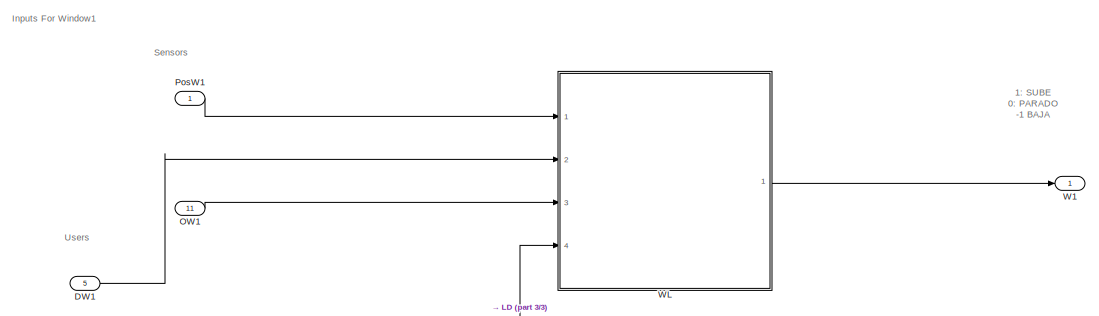
[diagram: M005/Cyber - part 1/3, full width, top band]
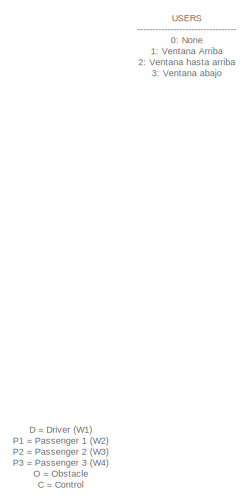
[diagram: M005/Cyber - part 2/3, top left region]
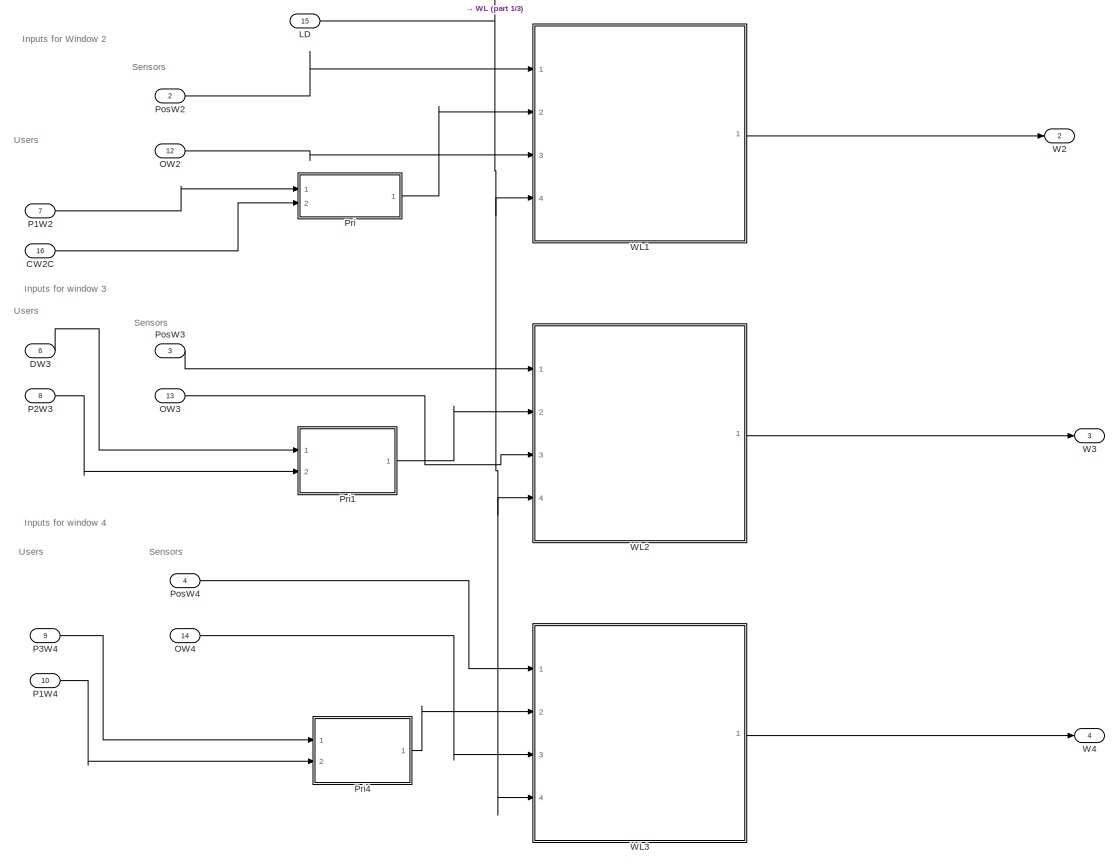
[diagram: M005/Cyber - part 3/3, full width, middle band]
BLOCK [SubSystem] M005/Cyber
  Ports = [16, 4]
  RequestExecContextInheritance = off
BLOCK [Inport] M005/Cyber/CW2C
  IconDisplay = Port number
  Port = 16
BLOCK [Inport] M005/Cyber/DW1
  IconDisplay = Port number
  Port = 5
BLOCK [Inport] M005/Cyber/DW3
  IconDisplay = Port number
  Port = 6
BLOCK [Inport] M005/Cyber/LD
  IconDisplay = Port number
  Port = 15
BLOCK [Inport] M005/Cyber/OW1
  IconDisplay = Port number
  Port = 11
BLOCK [Inport] M005/Cyber/OW2
  IconDisplay = Port number
  Port = 12
BLOCK [Inport] M005/Cyber/OW3
  IconDisplay = Port number
  Port = 13
BLOCK [Inport] M005/Cyber/OW4
  IconDisplay = Port number
  Port = 14
BLOCK [Inport] M005/Cyber/P1W2
  IconDisplay = Port number
  Port = 7
BLOCK [Inport] M005/Cyber/P1W4
  IconDisplay = Port number
  Port = 10
BLOCK [Inport] M005/Cyber/P2W3
  IconDisplay = Port number
  Port = 8
BLOCK [Inport] M005/Cyber/P3W4
  IconDisplay = Port number
  Port = 9
BLOCK [Inport] M005/Cyber/PosW1
  IconDisplay = Port number
BLOCK [Inport] M005/Cyber/PosW2
  IconDisplay = Port number
  Port = 2
BLOCK [Inport] M005/Cyber/PosW3
  IconDisplay = Port number
  Port = 3
BLOCK [Inport] M005/Cyber/PosW4
  IconDisplay = Port number
  Port = 4
BLOCK [SubSystem] M005/Cyber/Pri
  Ports = [2, 1]
  RequestExecContextInheritance = off
BLOCK [Inport] M005/Cyber/Pri/CW2C
  IconDisplay = Port number
  Port = 2
BLOCK [Inport] M005/Cyber/Pri/P
  IconDisplay = Port number
BLOCK [Switch] M005/Cyber/Pri/Switch1
  Criteria = u2 > Threshold
  InputSameDT = off
  SaturateOnIntegerOverflow = off
  Threshold = 4
BLOCK [Outport] M005/Cyber/Pri/User
  IconDisplay = Port number
BLOCK [SubSystem] M005/Cyber/Pri1
  Ports = [2, 1]
  RequestExecContextInheritance = off
BLOCK [Inport] M005/Cyber/Pri1/D
  IconDisplay = Port number
BLOCK [Inport] M005/Cyber/Pri1/P
  IconDisplay = Port number
  Port = 2
BLOCK [Switch] M005/Cyber/Pri1/Switch
  Criteria = u2 ~= 0
  InputSameDT = off
  SaturateOnIntegerOverflow = off
BLOCK [Outport] M005/Cyber/Pri1/User
  IconDisplay = Port number
BLOCK [SubSystem] M005/Cyber/Pri4
  Ports = [2, 1]
  RequestExecContextInheritance = off
BLOCK [Inport] M005/Cyber/Pri4/P
  IconDisplay = Port number
BLOCK [Inport] M005/Cyber/Pri4/P1
  IconDisplay = Port number
  Port = 2
BLOCK [Switch] M005/Cyber/Pri4/Switch1
  Criteria = u2 ~= 0
  InputSameDT = off
  SaturateOnIntegerOverflow = off
BLOCK [Outport] M005/Cyber/Pri4/User
  IconDisplay = Port number
BLOCK [Outport] M005/Cyber/W1
  IconDisplay = Port number
BLOCK [Outport] M005/Cyber/W2
  IconDisplay = Port number
  Port = 2
BLOCK [Outport] M005/Cyber/W3
  IconDisplay = Port number
  Port = 3
BLOCK [Outport] M005/Cyber/W4
  IconDisplay = Port number
  Port = 4
BLOCK [SubSystem] M005/Cyber/WL
  Ports = [4, 1]
  RequestExecContextInheritance = off
BLOCK [SubSystem] M005/Cyber/WL/Chart
  ErrorFcn = Stateflow.Translate.translate
  PermitHierarchicalResolution = ExplicitOnly
  Ports = [2, 1]
  RequestExecContextInheritance = off
  SFBlockType = Chart
  TreatAsAtomicUnit = on
BLOCK [Demux] M005/Cyber/WL/Chart/ Demux 
  Outputs = 1
  Ports = [1, 1]
BLOCK [S-Function] M005/Cyber/WL/Chart/ SFunction 
  EnableBusSupport = off
  FunctionName = sf_sfun
  PortCounts = [2 2]
  Ports = [2, 2]
  SFcnIsStateOwnerBlock = off
  SFunctionDeploymentMode = off
  Tag = Stateflow S-Function c00003M_harness 21
BLOCK [Terminator] M005/Cyber/WL/Chart/ Terminator 
BLOCK [Inport] M005/Cyber/WL/Chart/S
  IconDisplay = Port number
BLOCK [Inport] M005/Cyber/WL/Chart/UI
  IconDisplay = Port number
  Port = 2
BLOCK [Outport] M005/Cyber/WL/Chart/W
  IconDisplay = Port number
BLOCK [Constant] M005/Cyber/WL/Constant
  Value = -1
BLOCK [Constant] M005/Cyber/WL/Constant1
  Value = 0
BLOCK [DataTypeConversion] M005/Cyber/WL/Data Type Conversion
  RndMeth = Floor
  SaturateOnIntegerOverflow = off
BLOCK [Inport] M005/Cyber/WL/L
  IconDisplay = Port number
  Port = 4
BLOCK [Inport] M005/Cyber/WL/OW
  IconDisplay = Port number
  Port = 3
BLOCK [Switch] M005/Cyber/WL/Switch
  Criteria = u2 ~= 0
  InputSameDT = off
  SaturateOnIntegerOverflow = off
  Threshold = 1
  ZeroCross = off
BLOCK [Switch] M005/Cyber/WL/Switch1
  Criteria = u2 ~= 0
  InputSameDT = off
  SaturateOnIntegerOverflow = off
BLOCK [Inport] M005/Cyber/WL/User
  IconDisplay = Port number
  Port = 2
BLOCK [Inport] M005/Cyber/WL/WPos
  IconDisplay = Port number
BLOCK [Outport] M005/Cyber/WL/WindowLogicOutput
  IconDisplay = Port number
BLOCK [SubSystem] M005/Cyber/WL1
  Ports = [4, 1]
  RequestExecContextInheritance = off
BLOCK [SubSystem] M005/Cyber/WL1/Chart1
  ErrorFcn = Stateflow.Translate.translate
  PermitHierarchicalResolution = ExplicitOnly
  Ports = [2, 1]
  RequestExecContextInheritance = off
  SFBlockType = Chart
  TreatAsAtomicUnit = on
BLOCK [Demux] M005/Cyber/WL1/Chart1/ Demux 
  Outputs = 1
  Ports = [1, 1]
BLOCK [S-Function] M005/Cyber/WL1/Chart1/ SFunction 
  EnableBusSupport = off
  FunctionName = sf_sfun
  PortCounts = [2 2]
  Ports = [2, 2]
  SFcnIsStateOwnerBlock = off
  SFunctionDeploymentMode = off
  Tag = Stateflow S-Function c00003M_harness 22
BLOCK [Terminator] M005/Cyber/WL1/Chart1/ Terminator 
BLOCK [Inport] M005/Cyber/WL1/Chart1/S
  IconDisplay = Port number
BLOCK [Inport] M005/Cyber/WL1/Chart1/UI
  IconDisplay = Port number
  Port = 2
BLOCK [Outport] M005/Cyber/WL1/Chart1/W
  IconDisplay = Port number
BLOCK [Constant] M005/Cyber/WL1/Constant
  Value = -1
BLOCK [Constant] M005/Cyber/WL1/Constant1
  Value = 0
BLOCK [DataTypeConversion] M005/Cyber/WL1/Data Type Conversion
  RndMeth = Floor
  SaturateOnIntegerOverflow = off
BLOCK [Inport] M005/Cyber/WL1/L
  IconDisplay = Port number
  Port = 4
BLOCK [Inport] M005/Cyber/WL1/OW
  IconDisplay = Port number
  Port = 3
BLOCK [Switch] M005/Cyber/WL1/Switch
  Criteria = u2 ~= 0
  InputSameDT = off
  SaturateOnIntegerOverflow = off
  Threshold = 1
  ZeroCross = off
BLOCK [Switch] M005/Cyber/WL1/Switch1
  Criteria = u2 ~= 0
  InputSameDT = off
  SaturateOnIntegerOverflow = off
BLOCK [Inport] M005/Cyber/WL1/User
  IconDisplay = Port number
  Port = 2
BLOCK [Inport] M005/Cyber/WL1/WPos
  IconDisplay = Port number
BLOCK [Outport] M005/Cyber/WL1/WindowLogicOutput
  IconDisplay = Port number
BLOCK [SubSystem] M005/Cyber/WL2
  Ports = [4, 1]
  RequestExecContextInheritance = off
BLOCK [SubSystem] M005/Cyber/WL2/Chart1
  ErrorFcn = Stateflow.Translate.translate
  PermitHierarchicalResolution = ExplicitOnly
  Ports = [3, 1]
  RequestExecContextInheritance = off
  SFBlockType = Chart
  TreatAsAtomicUnit = on
BLOCK [Demux] M005/Cyber/WL2/Chart1/ Demux 
  Outputs = 1
  Ports = [1, 1]
BLOCK [S-Function] M005/Cyber/WL2/Chart1/ SFunction 
  EnableBusSupport = off
  FunctionName = sf_sfun
  PortCounts = [3 2]
  Ports = [3, 2]
  SFcnIsStateOwnerBlock = off
  SFunctionDeploymentMode = off
  Tag = Stateflow S-Function c00003M_harness 23
BLOCK [Terminator] M005/Cyber/WL2/Chart1/ Terminator 
BLOCK [Inport] M005/Cyber/WL2/Chart1/PosMinW3
  IconDisplay = Port number
  Port = 3
BLOCK [Inport] M005/Cyber/WL2/Chart1/S
  IconDisplay = Port number
BLOCK [Inport] M005/Cyber/WL2/Chart1/UI
  IconDisplay = Port number
  Port = 2
BLOCK [Outport] M005/Cyber/WL2/Chart1/W
  IconDisplay = Port number
BLOCK [Constant] M005/Cyber/WL2/Constant
  Value = -1
BLOCK [Constant] M005/Cyber/WL2/Constant1
  Value = 0
BLOCK [Constant] M005/Cyber/WL2/Constant2
  Value = PosMinimaW3
BLOCK [DataTypeConversion] M005/Cyber/WL2/Data Type Conversion
  RndMeth = Floor
  SaturateOnIntegerOverflow = off
BLOCK [Inport] M005/Cyber/WL2/L
  IconDisplay = Port number
  Port = 4
BLOCK [Inport] M005/Cyber/WL2/OW
  IconDisplay = Port number
  Port = 3
BLOCK [Switch] M005/Cyber/WL2/Switch
  Criteria = u2 ~= 0
  InputSameDT = off
  SaturateOnIntegerOverflow = off
  Threshold = 1
  ZeroCross = off
BLOCK [Switch] M005/Cyber/WL2/Switch1
  Criteria = u2 ~= 0
  InputSameDT = off
  SaturateOnIntegerOverflow = off
BLOCK [Inport] M005/Cyber/WL2/User
  IconDisplay = Port number
  Port = 2
BLOCK [Inport] M005/Cyber/WL2/WPos
  IconDisplay = Port number
BLOCK [Outport] M005/Cyber/WL2/WindowLogicOutput
  IconDisplay = Port number
BLOCK [SubSystem] M005/Cyber/WL3
  Ports = [4, 1]
  RequestExecContextInheritance = off
BLOCK [SubSystem] M005/Cyber/WL3/Chart2
  ErrorFcn = Stateflow.Translate.translate
  PermitHierarchicalResolution = ExplicitOnly
  Ports = [3, 1]
  RequestExecContextInheritance = off
  SFBlockType = Chart
  TreatAsAtomicUnit = on
BLOCK [Demux] M005/Cyber/WL3/Chart2/ Demux 
  Outputs = 1
  Ports = [1, 1]
BLOCK [S-Function] M005/Cyber/WL3/Chart2/ SFunction 
  EnableBusSupport = off
  FunctionName = sf_sfun
  PortCounts = [3 2]
  Ports = [3, 2]
  SFcnIsStateOwnerBlock = off
  SFunctionDeploymentMode = off
  Tag = Stateflow S-Function c00003M_harness 24
BLOCK [Terminator] M005/Cyber/WL3/Chart2/ Terminator 
BLOCK [Inport] M005/Cyber/WL3/Chart2/PosMinW4
  IconDisplay = Port number
  Port = 3
BLOCK [Inport] M005/Cyber/WL3/Chart2/S
  IconDisplay = Port number
BLOCK [Inport] M005/Cyber/WL3/Chart2/UI
  IconDisplay = Port number
  Port = 2
BLOCK [Outport] M005/Cyber/WL3/Chart2/W
  IconDisplay = Port number
BLOCK [Constant] M005/Cyber/WL3/Constant
  Value = -1
BLOCK [Constant] M005/Cyber/WL3/Constant1
  Value = 0
BLOCK [Constant] M005/Cyber/WL3/Constant2
  Value = PosMinimaW4
BLOCK [DataTypeConversion] M005/Cyber/WL3/Data Type Conversion
  RndMeth = Floor
  SaturateOnIntegerOverflow = off
BLOCK [Inport] M005/Cyber/WL3/L
  IconDisplay = Port number
  Port = 4
BLOCK [Inport] M005/Cyber/WL3/OW
  IconDisplay = Port number
  Port = 3
BLOCK [Switch] M005/Cyber/WL3/Switch
  Criteria = u2 ~= 0
  InputSameDT = off
  SaturateOnIntegerOverflow = off
  Threshold = 1
  ZeroCross = off
BLOCK [Switch] M005/Cyber/WL3/Switch1
  Criteria = u2 ~= 0
  InputSameDT = off
  SaturateOnIntegerOverflow = off
BLOCK [Inport] M005/Cyber/WL3/User
  IconDisplay = Port number
  Port = 2
BLOCK [Inport] M005/Cyber/WL3/WPos
  IconDisplay = Port number
BLOCK [Outport] M005/Cyber/WL3/WindowLogicOutput
  IconDisplay = Port number
BLOCK [Inport] M005/DW1
  IconDisplay = Port number
  OutDataTypeStr = int8
  OutMax = 4
  OutMin = 0
BLOCK [Inport] M005/DW3
  IconDisplay = Port number
  OutDataTypeStr = int8
  OutMax = 4
  OutMin = 0
  Port = 2
BLOCK [Inport] M005/LD
  IconDisplay = Port number
  OutDataTypeStr = boolean
  Port = 11
BLOCK [Memory] M005/M
BLOCK [Memory] M005/M1
BLOCK [Memory] M005/M2
BLOCK [Memory] M005/M3
BLOCK [Inport] M005/O1
  IconDisplay = Port number
  OutDataTypeStr = boolean
  Port = 7
BLOCK [Inport] M005/O2
  IconDisplay = Port number
  OutDataTypeStr = boolean
  Port = 8
BLOCK [Inport] M005/O3
  IconDisplay = Port number
  OutDataTypeStr = boolean
  Port = 9
BLOCK [Inport] M005/O4
  IconDisplay = Port number
  OutDataTypeStr = boolean
  Port = 10
BLOCK [Inport] M005/P1W2
  IconDisplay = Port number
  OutDataTypeStr = int8
  OutMax = 4
  OutMin = 0
  Port = 3
BLOCK [Inport] M005/P1W4
  IconDisplay = Port number
  OutDataTypeStr = int8
  OutMax = 4
  OutMin = 0
  Port = 6
BLOCK [Inport] M005/P2W3
  IconDisplay = Port number
  OutDataTypeStr = int8
  OutMax = 4
  OutMin = 0
  Port = 4
BLOCK [Inport] M005/P3W4
  IconDisplay = Port number
  OutDataTypeStr = int8
  OutMax = 4
  OutMin = 0
  Port = 5
BLOCK [SubSystem] M005/Physical
  Ports = [4, 4]
  RequestExecContextInheritance = off
BLOCK [Inport] M005/Physical/InW1
  IconDisplay = Port number
BLOCK [Inport] M005/Physical/InW2
  IconDisplay = Port number
  Port = 2
BLOCK [Inport] M005/Physical/InW3
  IconDisplay = Port number
  Port = 3
BLOCK [Inport] M005/Physical/InW4
  IconDisplay = Port number
  Port = 4
BLOCK [SubSystem] M005/Physical/W
  Ports = [1, 1]
  RequestExecContextInheritance = off
BLOCK [SubSystem] M005/Physical/W/DC_Engine
  Ports = [1, 1]
  RequestExecContextInheritance = off
BLOCK [Gain] M005/Physical/W/DC_Engine/(Inductance)
  Gain = 1/L
  OutDataTypeStr = Inherit: Inherit via internal rule
  ParamDataTypeStr = Inherit: Inherit via internal rule
  SaturateOnIntegerOverflow = off
BLOCK [Gain] M005/Physical/W/DC_Engine/(Inductance)1
  Gain = 1/J
  OutDataTypeStr = Inherit: Inherit via internal rule
  ParamDataTypeStr = Inherit: Inherit via internal rule
  SaturateOnIntegerOverflow = off
BLOCK [Sum] M005/Physical/W/DC_Engine/Add
  InputSameDT = off
  Inputs = -+-
  OutDataTypeStr = Inherit: Inherit via internal rule
  Ports = [3, 1]
  SaturateOnIntegerOverflow = off
BLOCK [Sum] M005/Physical/W/DC_Engine/Add1
  InputSameDT = off
  Inputs = +-
  OutDataTypeStr = Inherit: Inherit via internal rule
  Ports = [2, 1]
  SaturateOnIntegerOverflow = off
BLOCK [Gain] M005/Physical/W/DC_Engine/Damping
  Gain = b
  OutDataTypeStr = Inherit: Inherit via internal rule
  ParamDataTypeStr = Inherit: Inherit via internal rule
  SaturateOnIntegerOverflow = off
BLOCK [DiscreteIntegrator] M005/Physical/W/DC_Engine/Discrete-Time Integrator
  ICPrevOutput = DiscIntNeverNeededParam
  ICPrevScaledInput = DiscIntNeverNeededParam
  Ports = [1, 1]
  SampleTime = -1
BLOCK [DiscreteIntegrator] M005/Physical/W/DC_Engine/Discrete-Time Integrator1
  ICPrevOutput = DiscIntNeverNeededParam
  ICPrevScaledInput = DiscIntNeverNeededParam
  Ports = [1, 1]
  SampleTime = -1
BLOCK [Gain] M005/Physical/W/DC_Engine/Ke
  Gain = K
  OutDataTypeStr = Inherit: Inherit via internal rule
  ParamDataTypeStr = Inherit: Inherit via internal rule
  SaturateOnIntegerOverflow = off
BLOCK [Gain] M005/Physical/W/DC_Engine/Kt
  Gain = K
  OutDataTypeStr = Inherit: Inherit via internal rule
  ParamDataTypeStr = Inherit: Inherit via internal rule
  SaturateOnIntegerOverflow = off
BLOCK [Gain] M005/Physical/W/DC_Engine/Resistance
  Gain = R
  OutDataTypeStr = Inherit: Inherit via internal rule
  ParamDataTypeStr = Inherit: Inherit via internal rule
  SaturateOnIntegerOverflow = off
BLOCK [Outport] M005/Physical/W/DC_Engine/Speed
  IconDisplay = Port number
BLOCK [Gain] M005/Physical/W/DC_Engine/Voltage
  Gain = 10
  OutDataTypeStr = Inherit: Inherit via internal rule
  ParamDataTypeStr = Inherit: Inherit via internal rule
  SaturateOnIntegerOverflow = off
BLOCK [Inport] M005/Physical/W/DC_Engine/input
  IconDisplay = Port number
BLOCK [DiscreteIntegrator] M005/Physical/W/Discrete-Time Integrator
  ICPrevOutput = DiscIntNeverNeededParam
  ICPrevScaledInput = DiscIntNeverNeededParam
  InitialCondition = 5
  LimitOutput = on
  LowerSaturationLimit = 0
  Ports = [1, 1]
  SampleTime = -1
  UpperSaturationLimit = 5
BLOCK [Inport] M005/Physical/W/WIn
  IconDisplay = Port number
BLOCK [Outport] M005/Physical/W/WPos
  IconDisplay = Port number
BLOCK [Outport] M005/Physical/W1
  IconDisplay = Port number
BLOCK [Outport] M005/Physical/W2
  IconDisplay = Port number
  Port = 2
BLOCK [Outport] M005/Physical/W3
  IconDisplay = Port number
  Port = 3
BLOCK [Outport] M005/Physical/W4
  IconDisplay = Port number
  Port = 4
BLOCK [SubSystem] M005/Physical/W5
  Ports = [1, 1]
  RequestExecContextInheritance = off
BLOCK [SubSystem] M005/Physical/W5/DC_Engine
  Ports = [1, 1]
  RequestExecContextInheritance = off
BLOCK [Gain] M005/Physical/W5/DC_Engine/(Inductance)
  Gain = 1/L
  OutDataTypeStr = Inherit: Inherit via internal rule
  ParamDataTypeStr = Inherit: Inherit via internal rule
  SaturateOnIntegerOverflow = off
BLOCK [Gain] M005/Physical/W5/DC_Engine/(Inductance)1
  Gain = 1/J
  OutDataTypeStr = Inherit: Inherit via internal rule
  ParamDataTypeStr = Inherit: Inherit via internal rule
  SaturateOnIntegerOverflow = off
BLOCK [Sum] M005/Physical/W5/DC_Engine/Add
  InputSameDT = off
  Inputs = -+-
  OutDataTypeStr = Inherit: Inherit via internal rule
  Ports = [3, 1]
  SaturateOnIntegerOverflow = off
BLOCK [Sum] M005/Physical/W5/DC_Engine/Add1
  InputSameDT = off
  Inputs = +-
  OutDataTypeStr = Inherit: Inherit via internal rule
  Ports = [2, 1]
  SaturateOnIntegerOverflow = off
BLOCK [Gain] M005/Physical/W5/DC_Engine/Damping
  Gain = b
  OutDataTypeStr = Inherit: Inherit via internal rule
  ParamDataTypeStr = Inherit: Inherit via internal rule
  SaturateOnIntegerOverflow = off
BLOCK [DiscreteIntegrator] M005/Physical/W5/DC_Engine/Discrete-Time Integrator
  ICPrevOutput = DiscIntNeverNeededParam
  ICPrevScaledInput = DiscIntNeverNeededParam
  Ports = [1, 1]
  SampleTime = -1
BLOCK [DiscreteIntegrator] M005/Physical/W5/DC_Engine/Discrete-Time Integrator1
  ICPrevOutput = DiscIntNeverNeededParam
  ICPrevScaledInput = DiscIntNeverNeededParam
  Ports = [1, 1]
  SampleTime = -1
BLOCK [Gain] M005/Physical/W5/DC_Engine/Ke
  Gain = K
  OutDataTypeStr = Inherit: Inherit via internal rule
  ParamDataTypeStr = Inherit: Inherit via internal rule
  SaturateOnIntegerOverflow = off
BLOCK [Gain] M005/Physical/W5/DC_Engine/Kt
  Gain = K
  OutDataTypeStr = Inherit: Inherit via internal rule
  ParamDataTypeStr = Inherit: Inherit via internal rule
  SaturateOnIntegerOverflow = off
BLOCK [Gain] M005/Physical/W5/DC_Engine/Resistance
  Gain = R
  OutDataTypeStr = Inherit: Inherit via internal rule
  ParamDataTypeStr = Inherit: Inherit via internal rule
  SaturateOnIntegerOverflow = off
BLOCK [Outport] M005/Physical/W5/DC_Engine/Speed
  IconDisplay = Port number
BLOCK [Gain] M005/Physical/W5/DC_Engine/Voltage
  Gain = 10
  OutDataTypeStr = Inherit: Inherit via internal rule
  ParamDataTypeStr = Inherit: Inherit via internal rule
  SaturateOnIntegerOverflow = off
BLOCK [Inport] M005/Physical/W5/DC_Engine/input
  IconDisplay = Port number
BLOCK [DiscreteIntegrator] M005/Physical/W5/Discrete-Time Integrator
  ICPrevOutput = DiscIntNeverNeededParam
  ICPrevScaledInput = DiscIntNeverNeededParam
  InitialCondition = 5
  LimitOutput = on
  LowerSaturationLimit = 0
  Ports = [1, 1]
  SampleTime = -1
  UpperSaturationLimit = 5
BLOCK [Inport] M005/Physical/W5/WIn
  IconDisplay = Port number
BLOCK [Outport] M005/Physical/W5/WPos
  IconDisplay = Port number
BLOCK [SubSystem] M005/Physical/W6
  Ports = [1, 1]
  RequestExecContextInheritance = off
BLOCK [SubSystem] M005/Physical/W6/DC_Engine
  Ports = [1, 1]
  RequestExecContextInheritance = off
BLOCK [Gain] M005/Physical/W6/DC_Engine/(Inductance)
  Gain = 1/L
  OutDataTypeStr = Inherit: Inherit via internal rule
  ParamDataTypeStr = Inherit: Inherit via internal rule
  SaturateOnIntegerOverflow = off
BLOCK [Gain] M005/Physical/W6/DC_Engine/(Inductance)1
  Gain = 1/J
  OutDataTypeStr = Inherit: Inherit via internal rule
  ParamDataTypeStr = Inherit: Inherit via internal rule
  SaturateOnIntegerOverflow = off
BLOCK [Sum] M005/Physical/W6/DC_Engine/Add
  InputSameDT = off
  Inputs = -+-
  OutDataTypeStr = Inherit: Inherit via internal rule
  Ports = [3, 1]
  SaturateOnIntegerOverflow = off
BLOCK [Sum] M005/Physical/W6/DC_Engine/Add1
  InputSameDT = off
  Inputs = +-
  OutDataTypeStr = Inherit: Inherit via internal rule
  Ports = [2, 1]
  SaturateOnIntegerOverflow = off
BLOCK [Gain] M005/Physical/W6/DC_Engine/Damping
  Gain = b
  OutDataTypeStr = Inherit: Inherit via internal rule
  ParamDataTypeStr = Inherit: Inherit via internal rule
  SaturateOnIntegerOverflow = off
BLOCK [DiscreteIntegrator] M005/Physical/W6/DC_Engine/Discrete-Time Integrator
  ICPrevOutput = DiscIntNeverNeededParam
  ICPrevScaledInput = DiscIntNeverNeededParam
  Ports = [1, 1]
  SampleTime = -1
BLOCK [DiscreteIntegrator] M005/Physical/W6/DC_Engine/Discrete-Time Integrator1
  ICPrevOutput = DiscIntNeverNeededParam
  ICPrevScaledInput = DiscIntNeverNeededParam
  Ports = [1, 1]
  SampleTime = -1
BLOCK [Gain] M005/Physical/W6/DC_Engine/Ke
  Gain = K
  OutDataTypeStr = Inherit: Inherit via internal rule
  ParamDataTypeStr = Inherit: Inherit via internal rule
  SaturateOnIntegerOverflow = off
BLOCK [Gain] M005/Physical/W6/DC_Engine/Kt
  Gain = K
  OutDataTypeStr = Inherit: Inherit via internal rule
  ParamDataTypeStr = Inherit: Inherit via internal rule
  SaturateOnIntegerOverflow = off
BLOCK [Gain] M005/Physical/W6/DC_Engine/Resistance
  Gain = R
  OutDataTypeStr = Inherit: Inherit via internal rule
  ParamDataTypeStr = Inherit: Inherit via internal rule
  SaturateOnIntegerOverflow = off
BLOCK [Outport] M005/Physical/W6/DC_Engine/Speed
  IconDisplay = Port number
BLOCK [Gain] M005/Physical/W6/DC_Engine/Voltage
  Gain = 10
  OutDataTypeStr = Inherit: Inherit via internal rule
  ParamDataTypeStr = Inherit: Inherit via internal rule
  SaturateOnIntegerOverflow = off
BLOCK [Inport] M005/Physical/W6/DC_Engine/input
  IconDisplay = Port number
BLOCK [DiscreteIntegrator] M005/Physical/W6/Discrete-Time Integrator
  ICPrevOutput = DiscIntNeverNeededParam
  ICPrevScaledInput = DiscIntNeverNeededParam
  InitialCondition = 5
  LimitOutput = on
  LowerSaturationLimit = PosMinimaW3
  Ports = [1, 1]
  SampleTime = -1
  UpperSaturationLimit = 5
BLOCK [Inport] M005/Physical/W6/WIn
  IconDisplay = Port number
BLOCK [Outport] M005/Physical/W6/WPos
  IconDisplay = Port number
BLOCK [SubSystem] M005/Physical/W7
  Ports = [1, 1]
  RequestExecContextInheritance = off
BLOCK [SubSystem] M005/Physical/W7/DC_Engine
  Ports = [1, 1]
  RequestExecContextInheritance = off
BLOCK [Gain] M005/Physical/W7/DC_Engine/(Inductance)
  Gain = 1/L
  OutDataTypeStr = Inherit: Inherit via internal rule
  ParamDataTypeStr = Inherit: Inherit via internal rule
  SaturateOnIntegerOverflow = off
BLOCK [Gain] M005/Physical/W7/DC_Engine/(Inductance)1
  Gain = 1/J
  OutDataTypeStr = Inherit: Inherit via internal rule
  ParamDataTypeStr = Inherit: Inherit via internal rule
  SaturateOnIntegerOverflow = off
BLOCK [Sum] M005/Physical/W7/DC_Engine/Add
  InputSameDT = off
  Inputs = -+-
  OutDataTypeStr = Inherit: Inherit via internal rule
  Ports = [3, 1]
  SaturateOnIntegerOverflow = off
BLOCK [Sum] M005/Physical/W7/DC_Engine/Add1
  InputSameDT = off
  Inputs = +-
  OutDataTypeStr = Inherit: Inherit via internal rule
  Ports = [2, 1]
  SaturateOnIntegerOverflow = off
BLOCK [Gain] M005/Physical/W7/DC_Engine/Damping
  Gain = b
  OutDataTypeStr = Inherit: Inherit via internal rule
  ParamDataTypeStr = Inherit: Inherit via internal rule
  SaturateOnIntegerOverflow = off
BLOCK [DiscreteIntegrator] M005/Physical/W7/DC_Engine/Discrete-Time Integrator
  ICPrevOutput = DiscIntNeverNeededParam
  ICPrevScaledInput = DiscIntNeverNeededParam
  Ports = [1, 1]
  SampleTime = -1
BLOCK [DiscreteIntegrator] M005/Physical/W7/DC_Engine/Discrete-Time Integrator1
  ICPrevOutput = DiscIntNeverNeededParam
  ICPrevScaledInput = DiscIntNeverNeededParam
  Ports = [1, 1]
  SampleTime = -1
BLOCK [Gain] M005/Physical/W7/DC_Engine/Ke
  Gain = K
  OutDataTypeStr = Inherit: Inherit via internal rule
  ParamDataTypeStr = Inherit: Inherit via internal rule
  SaturateOnIntegerOverflow = off
BLOCK [Gain] M005/Physical/W7/DC_Engine/Kt
  Gain = K
  OutDataTypeStr = Inherit: Inherit via internal rule
  ParamDataTypeStr = Inherit: Inherit via internal rule
  SaturateOnIntegerOverflow = off
BLOCK [Gain] M005/Physical/W7/DC_Engine/Resistance
  Gain = R
  OutDataTypeStr = Inherit: Inherit via internal rule
  ParamDataTypeStr = Inherit: Inherit via internal rule
  SaturateOnIntegerOverflow = off
BLOCK [Outport] M005/Physical/W7/DC_Engine/Speed
  IconDisplay = Port number
BLOCK [Gain] M005/Physical/W7/DC_Engine/Voltage
  Gain = 10
  OutDataTypeStr = Inherit: Inherit via internal rule
  ParamDataTypeStr = Inherit: Inherit via internal rule
  SaturateOnIntegerOverflow = off
BLOCK [Inport] M005/Physical/W7/DC_Engine/input
  IconDisplay = Port number
BLOCK [DiscreteIntegrator] M005/Physical/W7/Discrete-Time Integrator
  ICPrevOutput = DiscIntNeverNeededParam
  ICPrevScaledInput = DiscIntNeverNeededParam
  InitialCondition = 5
  LimitOutput = on
  LowerSaturationLimit = PosMinimaW4
  Ports = [1, 1]
  SampleTime = -1
  UpperSaturationLimit = 5
BLOCK [Inport] M005/Physical/W7/WIn
  IconDisplay = Port number
BLOCK [Outport] M005/Physical/W7/WPos
  IconDisplay = Port number
BLOCK [SubSystem] M005/S1
  Ports = [1, 1]
  RequestExecContextInheritance = off
BLOCK [Inport] M005/S1/PhyMeasure
  IconDisplay = Port number
BLOCK [Outport] M005/S1/SensorOut
  IconDisplay = Port number
BLOCK [SubSystem] M005/S2
  Ports = [1, 1]
  RequestExecContextInheritance = off
BLOCK [Inport] M005/S2/PhyMeasure
  IconDisplay = Port number
BLOCK [Outport] M005/S2/SensorOut
  IconDisplay = Port number
BLOCK [SubSystem] M005/S3
  Ports = [1, 1]
  RequestExecContextInheritance = off
BLOCK [Inport] M005/S3/PhyMeasure
  IconDisplay = Port number
BLOCK [Outport] M005/S3/SensorOut
  IconDisplay = Port number
BLOCK [SubSystem] M005/S4
  Ports = [1, 1]
  RequestExecContextInheritance = off
BLOCK [Inport] M005/S4/PhyMeasure
  IconDisplay = Port number
BLOCK [Outport] M005/S4/SensorOut
  IconDisplay = Port number
BLOCK [Outport] M005/W1Pos
  IconDisplay = Port number
BLOCK [Outport] M005/W2Pos
  IconDisplay = Port number
  Port = 2
BLOCK [Outport] M005/W3Pos
  IconDisplay = Port number
  Port = 3
BLOCK [Outport] M005/W4Pos
  IconDisplay = Port number
  Port = 4
BLOCK [SubSystem] M007
  Ports = [12, 4]
  RequestExecContextInheritance = off
BLOCK [Inport] M007/CW2C
  IconDisplay = Port number
  OutDataTypeStr = int8
  OutMax = 4
  OutMin = 0
  Port = 12
BLOCK [SubSystem] M007/Cyber
  Ports = [16, 4]
  RequestExecContextInheritance = off
BLOCK [Inport] M007/Cyber/CW2C
  IconDisplay = Port number
  Port = 16
BLOCK [Inport] M007/Cyber/DW1
  IconDisplay = Port number
  Port = 5
BLOCK [Inport] M007/Cyber/DW3
  IconDisplay = Port number
  Port = 6
BLOCK [Inport] M007/Cyber/LD
  IconDisplay = Port number
  Port = 15
BLOCK [Inport] M007/Cyber/OW1
  IconDisplay = Port number
  Port = 11
BLOCK [Inport] M007/Cyber/OW2
  IconDisplay = Port number
  Port = 12
BLOCK [Inport] M007/Cyber/OW3
  IconDisplay = Port number
  Port = 13
BLOCK [Inport] M007/Cyber/OW4
  IconDisplay = Port number
  Port = 14
BLOCK [Inport] M007/Cyber/P1W2
  IconDisplay = Port number
  Port = 7
BLOCK [Inport] M007/Cyber/P1W4
  IconDisplay = Port number
  Port = 10
BLOCK [Inport] M007/Cyber/P2W3
  IconDisplay = Port number
  Port = 8
BLOCK [Inport] M007/Cyber/P3W4
  IconDisplay = Port number
  Port = 9
BLOCK [Inport] M007/Cyber/PosW1
  IconDisplay = Port number
BLOCK [Inport] M007/Cyber/PosW2
  IconDisplay = Port number
  Port = 2
BLOCK [Inport] M007/Cyber/PosW3
  IconDisplay = Port number
  Port = 3
BLOCK [Inport] M007/Cyber/PosW4
  IconDisplay = Port number
  Port = 4
BLOCK [SubSystem] M007/Cyber/Pri
  Ports = [2, 1]
  RequestExecContextInheritance = off
BLOCK [Inport] M007/Cyber/Pri/CW2C
  IconDisplay = Port number
  Port = 2
BLOCK [Inport] M007/Cyber/Pri/P
  IconDisplay = Port number
BLOCK [Switch] M007/Cyber/Pri/Switch1
  Criteria = u2 ~= 0
  InputSameDT = off
  SaturateOnIntegerOverflow = off
BLOCK [Outport] M007/Cyber/Pri/User
  IconDisplay = Port number
BLOCK [SubSystem] M007/Cyber/Pri1
  Ports = [2, 1]
  RequestExecContextInheritance = off
BLOCK [Inport] M007/Cyber/Pri1/D
  IconDisplay = Port number
BLOCK [Inport] M007/Cyber/Pri1/P
  IconDisplay = Port number
  Port = 2
BLOCK [Switch] M007/Cyber/Pri1/Switch
  Criteria = u2 > Threshold
  InputSameDT = off
  SaturateOnIntegerOverflow = off
  Threshold = 4
BLOCK [Outport] M007/Cyber/Pri1/User
  IconDisplay = Port number
BLOCK [SubSystem] M007/Cyber/Pri4
  Ports = [2, 1]
  RequestExecContextInheritance = off
BLOCK [Inport] M007/Cyber/Pri4/P
  IconDisplay = Port number
BLOCK [Inport] M007/Cyber/Pri4/P1
  IconDisplay = Port number
  Port = 2
BLOCK [Switch] M007/Cyber/Pri4/Switch1
  Criteria = u2 ~= 0
  InputSameDT = off
  SaturateOnIntegerOverflow = off
BLOCK [Outport] M007/Cyber/Pri4/User
  IconDisplay = Port number
BLOCK [Outport] M007/Cyber/W1
  IconDisplay = Port number
BLOCK [Outport] M007/Cyber/W2
  IconDisplay = Port number
  Port = 2
BLOCK [Outport] M007/Cyber/W3
  IconDisplay = Port number
  Port = 3
BLOCK [Outport] M007/Cyber/W4
  IconDisplay = Port number
  Port = 4
BLOCK [SubSystem] M007/Cyber/WL
  Ports = [4, 1]
  RequestExecContextInheritance = off
BLOCK [SubSystem] M007/Cyber/WL/Chart
  ErrorFcn = Stateflow.Translate.translate
  PermitHierarchicalResolution = ExplicitOnly
  Ports = [2, 1]
  RequestExecContextInheritance = off
  SFBlockType = Chart
  TreatAsAtomicUnit = on
BLOCK [Demux] M007/Cyber/WL/Chart/ Demux 
  Outputs = 1
  Ports = [1, 1]
BLOCK [S-Function] M007/Cyber/WL/Chart/ SFunction 
  EnableBusSupport = off
  FunctionName = sf_sfun
  PortCounts = [2 2]
  Ports = [2, 2]
  SFcnIsStateOwnerBlock = off
  SFunctionDeploymentMode = off
  Tag = Stateflow S-Function c00003M_harness 29
BLOCK [Terminator] M007/Cyber/WL/Chart/ Terminator 
BLOCK [Inport] M007/Cyber/WL/Chart/S
  IconDisplay = Port number
BLOCK [Inport] M007/Cyber/WL/Chart/UI
  IconDisplay = Port number
  Port = 2
BLOCK [Outport] M007/Cyber/WL/Chart/W
  IconDisplay = Port number
BLOCK [Constant] M007/Cyber/WL/Constant
  Value = -1
BLOCK [Constant] M007/Cyber/WL/Constant1
  Value = 0
BLOCK [DataTypeConversion] M007/Cyber/WL/Data Type Conversion
  RndMeth = Floor
  SaturateOnIntegerOverflow = off
BLOCK [Inport] M007/Cyber/WL/L
  IconDisplay = Port number
  Port = 4
BLOCK [Inport] M007/Cyber/WL/OW
  IconDisplay = Port number
  Port = 3
BLOCK [Switch] M007/Cyber/WL/Switch
  Criteria = u2 ~= 0
  InputSameDT = off
  SaturateOnIntegerOverflow = off
  Threshold = 1
  ZeroCross = off
BLOCK [Switch] M007/Cyber/WL/Switch1
  Criteria = u2 ~= 0
  InputSameDT = off
  SaturateOnIntegerOverflow = off
BLOCK [Inport] M007/Cyber/WL/User
  IconDisplay = Port number
  Port = 2
BLOCK [Inport] M007/Cyber/WL/WPos
  IconDisplay = Port number
BLOCK [Outport] M007/Cyber/WL/WindowLogicOutput
  IconDisplay = Port number
BLOCK [SubSystem] M007/Cyber/WL1
  Ports = [4, 1]
  RequestExecContextInheritance = off
BLOCK [SubSystem] M007/Cyber/WL1/Chart1
  ErrorFcn = Stateflow.Translate.translate
  PermitHierarchicalResolution = ExplicitOnly
  Ports = [2, 1]
  RequestExecContextInheritance = off
  SFBlockType = Chart
  TreatAsAtomicUnit = on
BLOCK [Demux] M007/Cyber/WL1/Chart1/ Demux 
  Outputs = 1
  Ports = [1, 1]
BLOCK [S-Function] M007/Cyber/WL1/Chart1/ SFunction 
  EnableBusSupport = off
  FunctionName = sf_sfun
  PortCounts = [2 2]
  Ports = [2, 2]
  SFcnIsStateOwnerBlock = off
  SFunctionDeploymentMode = off
  Tag = Stateflow S-Function c00003M_harness 30
BLOCK [Terminator] M007/Cyber/WL1/Chart1/ Terminator 
BLOCK [Inport] M007/Cyber/WL1/Chart1/S
  IconDisplay = Port number
BLOCK [Inport] M007/Cyber/WL1/Chart1/UI
  IconDisplay = Port number
  Port = 2
BLOCK [Outport] M007/Cyber/WL1/Chart1/W
  IconDisplay = Port number
BLOCK [Constant] M007/Cyber/WL1/Constant
  Value = -1
BLOCK [Constant] M007/Cyber/WL1/Constant1
  Value = 0
BLOCK [DataTypeConversion] M007/Cyber/WL1/Data Type Conversion
  RndMeth = Floor
  SaturateOnIntegerOverflow = off
BLOCK [Inport] M007/Cyber/WL1/L
  IconDisplay = Port number
  Port = 4
BLOCK [Inport] M007/Cyber/WL1/OW
  IconDisplay = Port number
  Port = 3
BLOCK [Switch] M007/Cyber/WL1/Switch
  Criteria = u2 ~= 0
  InputSameDT = off
  SaturateOnIntegerOverflow = off
  Threshold = 1
  ZeroCross = off
BLOCK [Switch] M007/Cyber/WL1/Switch1
  Criteria = u2 ~= 0
  InputSameDT = off
  SaturateOnIntegerOverflow = off
BLOCK [Inport] M007/Cyber/WL1/User
  IconDisplay = Port number
  Port = 2
BLOCK [Inport] M007/Cyber/WL1/WPos
  IconDisplay = Port number
BLOCK [Outport] M007/Cyber/WL1/WindowLogicOutput
  IconDisplay = Port number
BLOCK [SubSystem] M007/Cyber/WL2
  Ports = [4, 1]
  RequestExecContextInheritance = off
BLOCK [SubSystem] M007/Cyber/WL2/Chart1
  ErrorFcn = Stateflow.Translate.translate
  PermitHierarchicalResolution = ExplicitOnly
  Ports = [3, 1]
  RequestExecContextInheritance = off
  SFBlockType = Chart
  TreatAsAtomicUnit = on
BLOCK [Demux] M007/Cyber/WL2/Chart1/ Demux 
  Outputs = 1
  Ports = [1, 1]
BLOCK [S-Function] M007/Cyber/WL2/Chart1/ SFunction 
  EnableBusSupport = off
  FunctionName = sf_sfun
  PortCounts = [3 2]
  Ports = [3, 2]
  SFcnIsStateOwnerBlock = off
  SFunctionDeploymentMode = off
  Tag = Stateflow S-Function c00003M_harness 31
BLOCK [Terminator] M007/Cyber/WL2/Chart1/ Terminator 
BLOCK [Inport] M007/Cyber/WL2/Chart1/PosMinW3
  IconDisplay = Port number
  Port = 3
BLOCK [Inport] M007/Cyber/WL2/Chart1/S
  IconDisplay = Port number
BLOCK [Inport] M007/Cyber/WL2/Chart1/UI
  IconDisplay = Port number
  Port = 2
BLOCK [Outport] M007/Cyber/WL2/Chart1/W
  IconDisplay = Port number
BLOCK [Constant] M007/Cyber/WL2/Constant
  Value = -1
BLOCK [Constant] M007/Cyber/WL2/Constant1
  Value = 0
BLOCK [Constant] M007/Cyber/WL2/Constant2
  Value = PosMinimaW3
BLOCK [DataTypeConversion] M007/Cyber/WL2/Data Type Conversion
  RndMeth = Floor
  SaturateOnIntegerOverflow = off
BLOCK [Inport] M007/Cyber/WL2/L
  IconDisplay = Port number
  Port = 4
BLOCK [Inport] M007/Cyber/WL2/OW
  IconDisplay = Port number
  Port = 3
BLOCK [Switch] M007/Cyber/WL2/Switch
  Criteria = u2 ~= 0
  InputSameDT = off
  SaturateOnIntegerOverflow = off
  Threshold = 1
  ZeroCross = off
BLOCK [Switch] M007/Cyber/WL2/Switch1
  Criteria = u2 ~= 0
  InputSameDT = off
  SaturateOnIntegerOverflow = off
BLOCK [Inport] M007/Cyber/WL2/User
  IconDisplay = Port number
  Port = 2
BLOCK [Inport] M007/Cyber/WL2/WPos
  IconDisplay = Port number
BLOCK [Outport] M007/Cyber/WL2/WindowLogicOutput
  IconDisplay = Port number
BLOCK [SubSystem] M007/Cyber/WL3
  Ports = [4, 1]
  RequestExecContextInheritance = off
BLOCK [SubSystem] M007/Cyber/WL3/Chart2
  ErrorFcn = Stateflow.Translate.translate
  PermitHierarchicalResolution = ExplicitOnly
  Ports = [3, 1]
  RequestExecContextInheritance = off
  SFBlockType = Chart
  TreatAsAtomicUnit = on
BLOCK [Demux] M007/Cyber/WL3/Chart2/ Demux 
  Outputs = 1
  Ports = [1, 1]
BLOCK [S-Function] M007/Cyber/WL3/Chart2/ SFunction 
  EnableBusSupport = off
  FunctionName = sf_sfun
  PortCounts = [3 2]
  Ports = [3, 2]
  SFcnIsStateOwnerBlock = off
  SFunctionDeploymentMode = off
  Tag = Stateflow S-Function c00003M_harness 32
BLOCK [Terminator] M007/Cyber/WL3/Chart2/ Terminator 
BLOCK [Inport] M007/Cyber/WL3/Chart2/PosMinW4
  IconDisplay = Port number
  Port = 3
BLOCK [Inport] M007/Cyber/WL3/Chart2/S
  IconDisplay = Port number
BLOCK [Inport] M007/Cyber/WL3/Chart2/UI
  IconDisplay = Port number
  Port = 2
BLOCK [Outport] M007/Cyber/WL3/Chart2/W
  IconDisplay = Port number
BLOCK [Constant] M007/Cyber/WL3/Constant
  Value = -1
BLOCK [Constant] M007/Cyber/WL3/Constant1
  Value = 0
BLOCK [Constant] M007/Cyber/WL3/Constant2
  Value = PosMinimaW4
BLOCK [DataTypeConversion] M007/Cyber/WL3/Data Type Conversion
  RndMeth = Floor
  SaturateOnIntegerOverflow = off
BLOCK [Inport] M007/Cyber/WL3/L
  IconDisplay = Port number
  Port = 4
BLOCK [Inport] M007/Cyber/WL3/OW
  IconDisplay = Port number
  Port = 3
BLOCK [Switch] M007/Cyber/WL3/Switch
  Criteria = u2 ~= 0
  InputSameDT = off
  SaturateOnIntegerOverflow = off
  Threshold = 1
  ZeroCross = off
BLOCK [Switch] M007/Cyber/WL3/Switch1
  Criteria = u2 ~= 0
  InputSameDT = off
  SaturateOnIntegerOverflow = off
BLOCK [Inport] M007/Cyber/WL3/User
  IconDisplay = Port number
  Port = 2
BLOCK [Inport] M007/Cyber/WL3/WPos
  IconDisplay = Port number
BLOCK [Outport] M007/Cyber/WL3/WindowLogicOutput
  IconDisplay = Port number
BLOCK [Inport] M007/DW1
  IconDisplay = Port number
  OutDataTypeStr = int8
  OutMax = 4
  OutMin = 0
BLOCK [Inport] M007/DW3
  IconDisplay = Port number
  OutDataTypeStr = int8
  OutMax = 4
  OutMin = 0
  Port = 2
BLOCK [Inport] M007/LD
  IconDisplay = Port number
  OutDataTypeStr = boolean
  Port = 11
BLOCK [Memory] M007/M
BLOCK [Memory] M007/M1
BLOCK [Memory] M007/M2
BLOCK [Memory] M007/M3
BLOCK [Inport] M007/O1
  IconDisplay = Port number
  OutDataTypeStr = boolean
  Port = 7
BLOCK [Inport] M007/O2
  IconDisplay = Port number
  OutDataTypeStr = boolean
  Port = 8
BLOCK [Inport] M007/O3
  IconDisplay = Port number
  OutDataTypeStr = boolean
  Port = 9
BLOCK [Inport] M007/O4
  IconDisplay = Port number
  OutDataTypeStr = boolean
  Port = 10
BLOCK [Inport] M007/P1W2
  IconDisplay = Port number
  OutDataTypeStr = int8
  OutMax = 4
  OutMin = 0
  Port = 3
BLOCK [Inport] M007/P1W4
  IconDisplay = Port number
  OutDataTypeStr = int8
  OutMax = 4
  OutMin = 0
  Port = 6
BLOCK [Inport] M007/P2W3
  IconDisplay = Port number
  OutDataTypeStr = int8
  OutMax = 4
  OutMin = 0
  Port = 4
BLOCK [Inport] M007/P3W4
  IconDisplay = Port number
  OutDataTypeStr = int8
  OutMax = 4
  OutMin = 0
  Port = 5
BLOCK [SubSystem] M007/Physical
  Ports = [4, 4]
  RequestExecContextInheritance = off
BLOCK [Inport] M007/Physical/InW1
  IconDisplay = Port number
BLOCK [Inport] M007/Physical/InW2
  IconDisplay = Port number
  Port = 2
BLOCK [Inport] M007/Physical/InW3
  IconDisplay = Port number
  Port = 3
BLOCK [Inport] M007/Physical/InW4
  IconDisplay = Port number
  Port = 4
BLOCK [SubSystem] M007/Physical/W
  Ports = [1, 1]
  RequestExecContextInheritance = off
BLOCK [SubSystem] M007/Physical/W/DC_Engine
  Ports = [1, 1]
  RequestExecContextInheritance = off
BLOCK [Gain] M007/Physical/W/DC_Engine/(Inductance)
  Gain = 1/L
  OutDataTypeStr = Inherit: Inherit via internal rule
  ParamDataTypeStr = Inherit: Inherit via internal rule
  SaturateOnIntegerOverflow = off
BLOCK [Gain] M007/Physical/W/DC_Engine/(Inductance)1
  Gain = 1/J
  OutDataTypeStr = Inherit: Inherit via internal rule
  ParamDataTypeStr = Inherit: Inherit via internal rule
  SaturateOnIntegerOverflow = off
BLOCK [Sum] M007/Physical/W/DC_Engine/Add
  InputSameDT = off
  Inputs = -+-
  OutDataTypeStr = Inherit: Inherit via internal rule
  Ports = [3, 1]
  SaturateOnIntegerOverflow = off
BLOCK [Sum] M007/Physical/W/DC_Engine/Add1
  InputSameDT = off
  Inputs = +-
  OutDataTypeStr = Inherit: Inherit via internal rule
  Ports = [2, 1]
  SaturateOnIntegerOverflow = off
BLOCK [Gain] M007/Physical/W/DC_Engine/Damping
  Gain = b
  OutDataTypeStr = Inherit: Inherit via internal rule
  ParamDataTypeStr = Inherit: Inherit via internal rule
  SaturateOnIntegerOverflow = off
BLOCK [DiscreteIntegrator] M007/Physical/W/DC_Engine/Discrete-Time Integrator
  ICPrevOutput = DiscIntNeverNeededParam
  ICPrevScaledInput = DiscIntNeverNeededParam
  Ports = [1, 1]
  SampleTime = -1
BLOCK [DiscreteIntegrator] M007/Physical/W/DC_Engine/Discrete-Time Integrator1
  ICPrevOutput = DiscIntNeverNeededParam
  ICPrevScaledInput = DiscIntNeverNeededParam
  Ports = [1, 1]
  SampleTime = -1
BLOCK [Gain] M007/Physical/W/DC_Engine/Ke
  Gain = K
  OutDataTypeStr = Inherit: Inherit via internal rule
  ParamDataTypeStr = Inherit: Inherit via internal rule
  SaturateOnIntegerOverflow = off
BLOCK [Gain] M007/Physical/W/DC_Engine/Kt
  Gain = K
  OutDataTypeStr = Inherit: Inherit via internal rule
  ParamDataTypeStr = Inherit: Inherit via internal rule
  SaturateOnIntegerOverflow = off
BLOCK [Gain] M007/Physical/W/DC_Engine/Resistance
  Gain = R
  OutDataTypeStr = Inherit: Inherit via internal rule
  ParamDataTypeStr = Inherit: Inherit via internal rule
  SaturateOnIntegerOverflow = off
BLOCK [Outport] M007/Physical/W/DC_Engine/Speed
  IconDisplay = Port number
BLOCK [Gain] M007/Physical/W/DC_Engine/Voltage
  Gain = 10
  OutDataTypeStr = Inherit: Inherit via internal rule
  ParamDataTypeStr = Inherit: Inherit via internal rule
  SaturateOnIntegerOverflow = off
BLOCK [Inport] M007/Physical/W/DC_Engine/input
  IconDisplay = Port number
BLOCK [DiscreteIntegrator] M007/Physical/W/Discrete-Time Integrator
  ICPrevOutput = DiscIntNeverNeededParam
  ICPrevScaledInput = DiscIntNeverNeededParam
  InitialCondition = 5
  LimitOutput = on
  LowerSaturationLimit = 0
  Ports = [1, 1]
  SampleTime = -1
  UpperSaturationLimit = 5
BLOCK [Inport] M007/Physical/W/WIn
  IconDisplay = Port number
BLOCK [Outport] M007/Physical/W/WPos
  IconDisplay = Port number
BLOCK [Outport] M007/Physical/W1
  IconDisplay = Port number
BLOCK [Outport] M007/Physical/W2
  IconDisplay = Port number
  Port = 2
BLOCK [Outport] M007/Physical/W3
  IconDisplay = Port number
  Port = 3
BLOCK [Outport] M007/Physical/W4
  IconDisplay = Port number
  Port = 4
BLOCK [SubSystem] M007/Physical/W5
  Ports = [1, 1]
  RequestExecContextInheritance = off
BLOCK [SubSystem] M007/Physical/W5/DC_Engine
  Ports = [1, 1]
  RequestExecContextInheritance = off
BLOCK [Gain] M007/Physical/W5/DC_Engine/(Inductance)
  Gain = 1/L
  OutDataTypeStr = Inherit: Inherit via internal rule
  ParamDataTypeStr = Inherit: Inherit via internal rule
  SaturateOnIntegerOverflow = off
BLOCK [Gain] M007/Physical/W5/DC_Engine/(Inductance)1
  Gain = 1/J
  OutDataTypeStr = Inherit: Inherit via internal rule
  ParamDataTypeStr = Inherit: Inherit via internal rule
  SaturateOnIntegerOverflow = off
BLOCK [Sum] M007/Physical/W5/DC_Engine/Add
  InputSameDT = off
  Inputs = -+-
  OutDataTypeStr = Inherit: Inherit via internal rule
  Ports = [3, 1]
  SaturateOnIntegerOverflow = off
BLOCK [Sum] M007/Physical/W5/DC_Engine/Add1
  InputSameDT = off
  Inputs = +-
  OutDataTypeStr = Inherit: Inherit via internal rule
  Ports = [2, 1]
  SaturateOnIntegerOverflow = off
BLOCK [Gain] M007/Physical/W5/DC_Engine/Damping
  Gain = b
  OutDataTypeStr = Inherit: Inherit via internal rule
  ParamDataTypeStr = Inherit: Inherit via internal rule
  SaturateOnIntegerOverflow = off
BLOCK [DiscreteIntegrator] M007/Physical/W5/DC_Engine/Discrete-Time Integrator
  ICPrevOutput = DiscIntNeverNeededParam
  ICPrevScaledInput = DiscIntNeverNeededParam
  Ports = [1, 1]
  SampleTime = -1
BLOCK [DiscreteIntegrator] M007/Physical/W5/DC_Engine/Discrete-Time Integrator1
  ICPrevOutput = DiscIntNeverNeededParam
  ICPrevScaledInput = DiscIntNeverNeededParam
  Ports = [1, 1]
  SampleTime = -1
BLOCK [Gain] M007/Physical/W5/DC_Engine/Ke
  Gain = K
  OutDataTypeStr = Inherit: Inherit via internal rule
  ParamDataTypeStr = Inherit: Inherit via internal rule
  SaturateOnIntegerOverflow = off
BLOCK [Gain] M007/Physical/W5/DC_Engine/Kt
  Gain = K
  OutDataTypeStr = Inherit: Inherit via internal rule
  ParamDataTypeStr = Inherit: Inherit via internal rule
  SaturateOnIntegerOverflow = off
BLOCK [Gain] M007/Physical/W5/DC_Engine/Resistance
  Gain = R
  OutDataTypeStr = Inherit: Inherit via internal rule
  ParamDataTypeStr = Inherit: Inherit via internal rule
  SaturateOnIntegerOverflow = off
BLOCK [Outport] M007/Physical/W5/DC_Engine/Speed
  IconDisplay = Port number
BLOCK [Gain] M007/Physical/W5/DC_Engine/Voltage
  Gain = 10
  OutDataTypeStr = Inherit: Inherit via internal rule
  ParamDataTypeStr = Inherit: Inherit via internal rule
  SaturateOnIntegerOverflow = off
BLOCK [Inport] M007/Physical/W5/DC_Engine/input
  IconDisplay = Port number
BLOCK [DiscreteIntegrator] M007/Physical/W5/Discrete-Time Integrator
  ICPrevOutput = DiscIntNeverNeededParam
  ICPrevScaledInput = DiscIntNeverNeededParam
  InitialCondition = 5
  LimitOutput = on
  LowerSaturationLimit = 0
  Ports = [1, 1]
  SampleTime = -1
  UpperSaturationLimit = 5
BLOCK [Inport] M007/Physical/W5/WIn
  IconDisplay = Port number
BLOCK [Outport] M007/Physical/W5/WPos
  IconDisplay = Port number
BLOCK [SubSystem] M007/Physical/W6
  Ports = [1, 1]
  RequestExecContextInheritance = off
BLOCK [SubSystem] M007/Physical/W6/DC_Engine
  Ports = [1, 1]
  RequestExecContextInheritance = off
BLOCK [Gain] M007/Physical/W6/DC_Engine/(Inductance)
  Gain = 1/L
  OutDataTypeStr = Inherit: Inherit via internal rule
  ParamDataTypeStr = Inherit: Inherit via internal rule
  SaturateOnIntegerOverflow = off
BLOCK [Gain] M007/Physical/W6/DC_Engine/(Inductance)1
  Gain = 1/J
  OutDataTypeStr = Inherit: Inherit via internal rule
  ParamDataTypeStr = Inherit: Inherit via internal rule
  SaturateOnIntegerOverflow = off
BLOCK [Sum] M007/Physical/W6/DC_Engine/Add
  InputSameDT = off
  Inputs = -+-
  OutDataTypeStr = Inherit: Inherit via internal rule
  Ports = [3, 1]
  SaturateOnIntegerOverflow = off
BLOCK [Sum] M007/Physical/W6/DC_Engine/Add1
  InputSameDT = off
  Inputs = +-
  OutDataTypeStr = Inherit: Inherit via internal rule
  Ports = [2, 1]
  SaturateOnIntegerOverflow = off
BLOCK [Gain] M007/Physical/W6/DC_Engine/Damping
  Gain = b
  OutDataTypeStr = Inherit: Inherit via internal rule
  ParamDataTypeStr = Inherit: Inherit via internal rule
  SaturateOnIntegerOverflow = off
BLOCK [DiscreteIntegrator] M007/Physical/W6/DC_Engine/Discrete-Time Integrator
  ICPrevOutput = DiscIntNeverNeededParam
  ICPrevScaledInput = DiscIntNeverNeededParam
  Ports = [1, 1]
  SampleTime = -1
BLOCK [DiscreteIntegrator] M007/Physical/W6/DC_Engine/Discrete-Time Integrator1
  ICPrevOutput = DiscIntNeverNeededParam
  ICPrevScaledInput = DiscIntNeverNeededParam
  Ports = [1, 1]
  SampleTime = -1
BLOCK [Gain] M007/Physical/W6/DC_Engine/Ke
  Gain = K
  OutDataTypeStr = Inherit: Inherit via internal rule
  ParamDataTypeStr = Inherit: Inherit via internal rule
  SaturateOnIntegerOverflow = off
BLOCK [Gain] M007/Physical/W6/DC_Engine/Kt
  Gain = K
  OutDataTypeStr = Inherit: Inherit via internal rule
  ParamDataTypeStr = Inherit: Inherit via internal rule
  SaturateOnIntegerOverflow = off
BLOCK [Gain] M007/Physical/W6/DC_Engine/Resistance
  Gain = R
  OutDataTypeStr = Inherit: Inherit via internal rule
  ParamDataTypeStr = Inherit: Inherit via internal rule
  SaturateOnIntegerOverflow = off
BLOCK [Outport] M007/Physical/W6/DC_Engine/Speed
  IconDisplay = Port number
BLOCK [Gain] M007/Physical/W6/DC_Engine/Voltage
  Gain = 10
  OutDataTypeStr = Inherit: Inherit via internal rule
  ParamDataTypeStr = Inherit: Inherit via internal rule
  SaturateOnIntegerOverflow = off
BLOCK [Inport] M007/Physical/W6/DC_Engine/input
  IconDisplay = Port number
BLOCK [DiscreteIntegrator] M007/Physical/W6/Discrete-Time Integrator
  ICPrevOutput = DiscIntNeverNeededParam
  ICPrevScaledInput = DiscIntNeverNeededParam
  InitialCondition = 5
  LimitOutput = on
  LowerSaturationLimit = PosMinimaW3
  Ports = [1, 1]
  SampleTime = -1
  UpperSaturationLimit = 5
BLOCK [Inport] M007/Physical/W6/WIn
  IconDisplay = Port number
BLOCK [Outport] M007/Physical/W6/WPos
  IconDisplay = Port number
BLOCK [SubSystem] M007/Physical/W7
  Ports = [1, 1]
  RequestExecContextInheritance = off
BLOCK [SubSystem] M007/Physical/W7/DC_Engine
  Ports = [1, 1]
  RequestExecContextInheritance = off
BLOCK [Gain] M007/Physical/W7/DC_Engine/(Inductance)
  Gain = 1/L
  OutDataTypeStr = Inherit: Inherit via internal rule
  ParamDataTypeStr = Inherit: Inherit via internal rule
  SaturateOnIntegerOverflow = off
BLOCK [Gain] M007/Physical/W7/DC_Engine/(Inductance)1
  Gain = 1/J
  OutDataTypeStr = Inherit: Inherit via internal rule
  ParamDataTypeStr = Inherit: Inherit via internal rule
  SaturateOnIntegerOverflow = off
BLOCK [Sum] M007/Physical/W7/DC_Engine/Add
  InputSameDT = off
  Inputs = -+-
  OutDataTypeStr = Inherit: Inherit via internal rule
  Ports = [3, 1]
  SaturateOnIntegerOverflow = off
BLOCK [Sum] M007/Physical/W7/DC_Engine/Add1
  InputSameDT = off
  Inputs = +-
  OutDataTypeStr = Inherit: Inherit via internal rule
  Ports = [2, 1]
  SaturateOnIntegerOverflow = off
BLOCK [Gain] M007/Physical/W7/DC_Engine/Damping
  Gain = b
  OutDataTypeStr = Inherit: Inherit via internal rule
  ParamDataTypeStr = Inherit: Inherit via internal rule
  SaturateOnIntegerOverflow = off
BLOCK [DiscreteIntegrator] M007/Physical/W7/DC_Engine/Discrete-Time Integrator
  ICPrevOutput = DiscIntNeverNeededParam
  ICPrevScaledInput = DiscIntNeverNeededParam
  Ports = [1, 1]
  SampleTime = -1
BLOCK [DiscreteIntegrator] M007/Physical/W7/DC_Engine/Discrete-Time Integrator1
  ICPrevOutput = DiscIntNeverNeededParam
  ICPrevScaledInput = DiscIntNeverNeededParam
  Ports = [1, 1]
  SampleTime = -1
BLOCK [Gain] M007/Physical/W7/DC_Engine/Ke
  Gain = K
  OutDataTypeStr = Inherit: Inherit via internal rule
  ParamDataTypeStr = Inherit: Inherit via internal rule
  SaturateOnIntegerOverflow = off
BLOCK [Gain] M007/Physical/W7/DC_Engine/Kt
  Gain = K
  OutDataTypeStr = Inherit: Inherit via internal rule
  ParamDataTypeStr = Inherit: Inherit via internal rule
  SaturateOnIntegerOverflow = off
BLOCK [Gain] M007/Physical/W7/DC_Engine/Resistance
  Gain = R
  OutDataTypeStr = Inherit: Inherit via internal rule
  ParamDataTypeStr = Inherit: Inherit via internal rule
  SaturateOnIntegerOverflow = off
BLOCK [Outport] M007/Physical/W7/DC_Engine/Speed
  IconDisplay = Port number
BLOCK [Gain] M007/Physical/W7/DC_Engine/Voltage
  Gain = 10
  OutDataTypeStr = Inherit: Inherit via internal rule
  ParamDataTypeStr = Inherit: Inherit via internal rule
  SaturateOnIntegerOverflow = off
BLOCK [Inport] M007/Physical/W7/DC_Engine/input
  IconDisplay = Port number
BLOCK [DiscreteIntegrator] M007/Physical/W7/Discrete-Time Integrator
  ICPrevOutput = DiscIntNeverNeededParam
  ICPrevScaledInput = DiscIntNeverNeededParam
  InitialCondition = 5
  LimitOutput = on
  LowerSaturationLimit = PosMinimaW4
  Ports = [1, 1]
  SampleTime = -1
  UpperSaturationLimit = 5
BLOCK [Inport] M007/Physical/W7/WIn
  IconDisplay = Port number
BLOCK [Outport] M007/Physical/W7/WPos
  IconDisplay = Port number
BLOCK [SubSystem] M007/S1
  Ports = [1, 1]
  RequestExecContextInheritance = off
BLOCK [Inport] M007/S1/PhyMeasure
  IconDisplay = Port number
BLOCK [Outport] M007/S1/SensorOut
  IconDisplay = Port number
BLOCK [SubSystem] M007/S2
  Ports = [1, 1]
  RequestExecContextInheritance = off
BLOCK [Inport] M007/S2/PhyMeasure
  IconDisplay = Port number
BLOCK [Outport] M007/S2/SensorOut
  IconDisplay = Port number
BLOCK [SubSystem] M007/S3
  Ports = [1, 1]
  RequestExecContextInheritance = off
BLOCK [Inport] M007/S3/PhyMeasure
  IconDisplay = Port number
BLOCK [Outport] M007/S3/SensorOut
  IconDisplay = Port number
BLOCK [SubSystem] M007/S4
  Ports = [1, 1]
  RequestExecContextInheritance = off
BLOCK [Inport] M007/S4/PhyMeasure
  IconDisplay = Port number
BLOCK [Outport] M007/S4/SensorOut
  IconDisplay = Port number
BLOCK [Outport] M007/W1Pos
  IconDisplay = Port number
BLOCK [Outport] M007/W2Pos
  IconDisplay = Port number
  Port = 2
BLOCK [Outport] M007/W3Pos
  IconDisplay = Port number
  Port = 3
BLOCK [Outport] M007/W4Pos
  IconDisplay = Port number
  Port = 4
BLOCK [SubSystem] M010
  Ports = [12, 4]
  RequestExecContextInheritance = off
BLOCK [Inport] M010/CW2C
  IconDisplay = Port number
  OutDataTypeStr = int8
  OutMax = 4
  OutMin = 0
  Port = 12
BLOCK [SubSystem] M010/Cyber
  Ports = [16, 4]
  RequestExecContextInheritance = off
BLOCK [Inport] M010/Cyber/CW2C
  IconDisplay = Port number
  Port = 16
BLOCK [Inport] M010/Cyber/DW1
  IconDisplay = Port number
  Port = 5
BLOCK [Inport] M010/Cyber/DW3
  IconDisplay = Port number
  Port = 6
BLOCK [Inport] M010/Cyber/LD
  IconDisplay = Port number
  Port = 15
BLOCK [Inport] M010/Cyber/OW1
  IconDisplay = Port number
  Port = 11
BLOCK [Inport] M010/Cyber/OW2
  IconDisplay = Port number
  Port = 12
BLOCK [Inport] M010/Cyber/OW3
  IconDisplay = Port number
  Port = 13
BLOCK [Inport] M010/Cyber/OW4
  IconDisplay = Port number
  Port = 14
BLOCK [Inport] M010/Cyber/P1W2
  IconDisplay = Port number
  Port = 7
BLOCK [Inport] M010/Cyber/P1W4
  IconDisplay = Port number
  Port = 10
BLOCK [Inport] M010/Cyber/P2W3
  IconDisplay = Port number
  Port = 8
BLOCK [Inport] M010/Cyber/P3W4
  IconDisplay = Port number
  Port = 9
BLOCK [Inport] M010/Cyber/PosW1
  IconDisplay = Port number
BLOCK [Inport] M010/Cyber/PosW2
  IconDisplay = Port number
  Port = 2
BLOCK [Inport] M010/Cyber/PosW3
  IconDisplay = Port number
  Port = 3
BLOCK [Inport] M010/Cyber/PosW4
  IconDisplay = Port number
  Port = 4
BLOCK [SubSystem] M010/Cyber/Pri
  Ports = [2, 1]
  RequestExecContextInheritance = off
BLOCK [Inport] M010/Cyber/Pri/CW2C
  IconDisplay = Port number
  Port = 2
BLOCK [Inport] M010/Cyber/Pri/P
  IconDisplay = Port number
BLOCK [Switch] M010/Cyber/Pri/Switch1
  Criteria = u2 ~= 0
  InputSameDT = off
  SaturateOnIntegerOverflow = off
BLOCK [Outport] M010/Cyber/Pri/User
  IconDisplay = Port number
BLOCK [SubSystem] M010/Cyber/Pri1
  Ports = [2, 1]
  RequestExecContextInheritance = off
BLOCK [Inport] M010/Cyber/Pri1/D
  IconDisplay = Port number
BLOCK [Inport] M010/Cyber/Pri1/P
  IconDisplay = Port number
  Port = 2
BLOCK [Switch] M010/Cyber/Pri1/Switch
  Criteria = u2 ~= 0
  InputSameDT = off
  SaturateOnIntegerOverflow = off
BLOCK [Outport] M010/Cyber/Pri1/User
  IconDisplay = Port number
BLOCK [SubSystem] M010/Cyber/Pri4
  Ports = [2, 1]
  RequestExecContextInheritance = off
BLOCK [Inport] M010/Cyber/Pri4/P
  IconDisplay = Port number
BLOCK [Inport] M010/Cyber/Pri4/P1
  IconDisplay = Port number
  Port = 2
BLOCK [Switch] M010/Cyber/Pri4/Switch1
  Criteria = u2 ~= 0
  InputSameDT = off
  SaturateOnIntegerOverflow = off
BLOCK [Outport] M010/Cyber/Pri4/User
  IconDisplay = Port number
BLOCK [Outport] M010/Cyber/W1
  IconDisplay = Port number
BLOCK [Outport] M010/Cyber/W2
  IconDisplay = Port number
  Port = 2
BLOCK [Outport] M010/Cyber/W3
  IconDisplay = Port number
  Port = 3
BLOCK [Outport] M010/Cyber/W4
  IconDisplay = Port number
  Port = 4
BLOCK [SubSystem] M010/Cyber/WL
  Ports = [4, 1]
  RequestExecContextInheritance = off
BLOCK [SubSystem] M010/Cyber/WL/Chart
  ErrorFcn = Stateflow.Translate.translate
  PermitHierarchicalResolution = ExplicitOnly
  Ports = [2, 1]
  RequestExecContextInheritance = off
  SFBlockType = Chart
  TreatAsAtomicUnit = on
BLOCK [Demux] M010/Cyber/WL/Chart/ Demux 
  Outputs = 1
  Ports = [1, 1]
BLOCK [S-Function] M010/Cyber/WL/Chart/ SFunction 
  EnableBusSupport = off
  FunctionName = sf_sfun
  PortCounts = [2 2]
  Ports = [2, 2]
  SFcnIsStateOwnerBlock = off
  SFunctionDeploymentMode = off
  Tag = Stateflow S-Function c00003M_harness 41
BLOCK [Terminator] M010/Cyber/WL/Chart/ Terminator 
BLOCK [Inport] M010/Cyber/WL/Chart/S
  IconDisplay = Port number
BLOCK [Inport] M010/Cyber/WL/Chart/UI
  IconDisplay = Port number
  Port = 2
BLOCK [Outport] M010/Cyber/WL/Chart/W
  IconDisplay = Port number
BLOCK [Constant] M010/Cyber/WL/Constant
  Value = -1
BLOCK [Constant] M010/Cyber/WL/Constant1
  Value = 0
BLOCK [DataTypeConversion] M010/Cyber/WL/Data Type Conversion
  RndMeth = Floor
  SaturateOnIntegerOverflow = off
BLOCK [Inport] M010/Cyber/WL/L
  IconDisplay = Port number
  Port = 4
BLOCK [Inport] M010/Cyber/WL/OW
  IconDisplay = Port number
  Port = 3
BLOCK [Switch] M010/Cyber/WL/Switch
  Criteria = u2 ~= 0
  InputSameDT = off
  SaturateOnIntegerOverflow = off
  Threshold = 1
  ZeroCross = off
BLOCK [Switch] M010/Cyber/WL/Switch1
  Criteria = u2 ~= 0
  InputSameDT = off
  SaturateOnIntegerOverflow = off
BLOCK [Inport] M010/Cyber/WL/User
  IconDisplay = Port number
  Port = 2
BLOCK [Inport] M010/Cyber/WL/WPos
  IconDisplay = Port number
BLOCK [Outport] M010/Cyber/WL/WindowLogicOutput
  IconDisplay = Port number
BLOCK [SubSystem] M010/Cyber/WL1
  Ports = [4, 1]
  RequestExecContextInheritance = off
BLOCK [SubSystem] M010/Cyber/WL1/Chart1
  ErrorFcn = Stateflow.Translate.translate
  PermitHierarchicalResolution = ExplicitOnly
  Ports = [2, 1]
  RequestExecContextInheritance = off
  SFBlockType = Chart
  TreatAsAtomicUnit = on
BLOCK [Demux] M010/Cyber/WL1/Chart1/ Demux 
  Outputs = 1
  Ports = [1, 1]
BLOCK [S-Function] M010/Cyber/WL1/Chart1/ SFunction 
  EnableBusSupport = off
  FunctionName = sf_sfun
  PortCounts = [2 2]
  Ports = [2, 2]
  SFcnIsStateOwnerBlock = off
  SFunctionDeploymentMode = off
  Tag = Stateflow S-Function c00003M_harness 42
BLOCK [Terminator] M010/Cyber/WL1/Chart1/ Terminator 
BLOCK [Inport] M010/Cyber/WL1/Chart1/S
  IconDisplay = Port number
BLOCK [Inport] M010/Cyber/WL1/Chart1/UI
  IconDisplay = Port number
  Port = 2
BLOCK [Outport] M010/Cyber/WL1/Chart1/W
  IconDisplay = Port number
BLOCK [Constant] M010/Cyber/WL1/Constant
  Value = -1
BLOCK [Constant] M010/Cyber/WL1/Constant1
  Value = 0
BLOCK [DataTypeConversion] M010/Cyber/WL1/Data Type Conversion
  RndMeth = Floor
  SaturateOnIntegerOverflow = off
BLOCK [Inport] M010/Cyber/WL1/L
  IconDisplay = Port number
  Port = 4
BLOCK [Inport] M010/Cyber/WL1/OW
  IconDisplay = Port number
  Port = 3
BLOCK [Switch] M010/Cyber/WL1/Switch
  Criteria = u2 ~= 0
  InputSameDT = off
  SaturateOnIntegerOverflow = off
  Threshold = 1
  ZeroCross = off
BLOCK [Switch] M010/Cyber/WL1/Switch1
  Criteria = u2 ~= 0
  InputSameDT = off
  SaturateOnIntegerOverflow = off
BLOCK [Inport] M010/Cyber/WL1/User
  IconDisplay = Port number
  Port = 2
BLOCK [Inport] M010/Cyber/WL1/WPos
  IconDisplay = Port number
BLOCK [Outport] M010/Cyber/WL1/WindowLogicOutput
  IconDisplay = Port number
BLOCK [SubSystem] M010/Cyber/WL2
  Ports = [4, 1]
  RequestExecContextInheritance = off
BLOCK [SubSystem] M010/Cyber/WL2/Chart1
  ErrorFcn = Stateflow.Translate.translate
  PermitHierarchicalResolution = ExplicitOnly
  Ports = [3, 1]
  RequestExecContextInheritance = off
  SFBlockType = Chart
  TreatAsAtomicUnit = on
BLOCK [Demux] M010/Cyber/WL2/Chart1/ Demux 
  Outputs = 1
  Ports = [1, 1]
BLOCK [S-Function] M010/Cyber/WL2/Chart1/ SFunction 
  EnableBusSupport = off
  FunctionName = sf_sfun
  PortCounts = [3 2]
  Ports = [3, 2]
  SFcnIsStateOwnerBlock = off
  SFunctionDeploymentMode = off
  Tag = Stateflow S-Function c00003M_harness 43
BLOCK [Terminator] M010/Cyber/WL2/Chart1/ Terminator 
BLOCK [Inport] M010/Cyber/WL2/Chart1/PosMinW3
  IconDisplay = Port number
  Port = 3
BLOCK [Inport] M010/Cyber/WL2/Chart1/S
  IconDisplay = Port number
BLOCK [Inport] M010/Cyber/WL2/Chart1/UI
  IconDisplay = Port number
  Port = 2
BLOCK [Outport] M010/Cyber/WL2/Chart1/W
  IconDisplay = Port number
BLOCK [Constant] M010/Cyber/WL2/Constant
  Value = -1
BLOCK [Constant] M010/Cyber/WL2/Constant1
  Value = 0
BLOCK [Constant] M010/Cyber/WL2/Constant2
  Value = PosMinimaW3
BLOCK [DataTypeConversion] M010/Cyber/WL2/Data Type Conversion
  RndMeth = Floor
  SaturateOnIntegerOverflow = off
BLOCK [Inport] M010/Cyber/WL2/L
  IconDisplay = Port number
  Port = 4
BLOCK [Inport] M010/Cyber/WL2/OW
  IconDisplay = Port number
  Port = 3
BLOCK [Switch] M010/Cyber/WL2/Switch
  Criteria = u2 ~= 0
  InputSameDT = off
  SaturateOnIntegerOverflow = off
  Threshold = 1
  ZeroCross = off
BLOCK [Switch] M010/Cyber/WL2/Switch1
  Criteria = u2 ~= 0
  InputSameDT = off
  SaturateOnIntegerOverflow = off
BLOCK [Inport] M010/Cyber/WL2/User
  IconDisplay = Port number
  Port = 2
BLOCK [Inport] M010/Cyber/WL2/WPos
  IconDisplay = Port number
BLOCK [Outport] M010/Cyber/WL2/WindowLogicOutput
  IconDisplay = Port number
BLOCK [SubSystem] M010/Cyber/WL3
  Ports = [4, 1]
  RequestExecContextInheritance = off
BLOCK [SubSystem] M010/Cyber/WL3/Chart2
  ErrorFcn = Stateflow.Translate.translate
  PermitHierarchicalResolution = ExplicitOnly
  Ports = [3, 1]
  RequestExecContextInheritance = off
  SFBlockType = Chart
  TreatAsAtomicUnit = on
BLOCK [Demux] M010/Cyber/WL3/Chart2/ Demux 
  Outputs = 1
  Ports = [1, 1]
BLOCK [S-Function] M010/Cyber/WL3/Chart2/ SFunction 
  EnableBusSupport = off
  FunctionName = sf_sfun
  PortCounts = [3 2]
  Ports = [3, 2]
  SFcnIsStateOwnerBlock = off
  SFunctionDeploymentMode = off
  Tag = Stateflow S-Function c00003M_harness 44
BLOCK [Terminator] M010/Cyber/WL3/Chart2/ Terminator 
BLOCK [Inport] M010/Cyber/WL3/Chart2/PosMinW4
  IconDisplay = Port number
  Port = 3
BLOCK [Inport] M010/Cyber/WL3/Chart2/S
  IconDisplay = Port number
BLOCK [Inport] M010/Cyber/WL3/Chart2/UI
  IconDisplay = Port number
  Port = 2
BLOCK [Outport] M010/Cyber/WL3/Chart2/W
  IconDisplay = Port number
BLOCK [Constant] M010/Cyber/WL3/Constant
  Value = -1
BLOCK [Constant] M010/Cyber/WL3/Constant1
  Value = 0
BLOCK [Constant] M010/Cyber/WL3/Constant2
  Value = PosMinimaW4
BLOCK [DataTypeConversion] M010/Cyber/WL3/Data Type Conversion
  RndMeth = Floor
  SaturateOnIntegerOverflow = off
BLOCK [Inport] M010/Cyber/WL3/L
  IconDisplay = Port number
  Port = 4
BLOCK [Inport] M010/Cyber/WL3/OW
  IconDisplay = Port number
  Port = 3
BLOCK [Switch] M010/Cyber/WL3/Switch
  Criteria = u2 ~= 0
  InputSameDT = off
  SaturateOnIntegerOverflow = off
  Threshold = 1
  ZeroCross = off
BLOCK [Switch] M010/Cyber/WL3/Switch1
  Criteria = u2 ~= 0
  InputSameDT = off
  SaturateOnIntegerOverflow = off
BLOCK [Inport] M010/Cyber/WL3/User
  IconDisplay = Port number
  Port = 2
BLOCK [Inport] M010/Cyber/WL3/WPos
  IconDisplay = Port number
BLOCK [Outport] M010/Cyber/WL3/WindowLogicOutput
  IconDisplay = Port number
BLOCK [Inport] M010/DW1
  IconDisplay = Port number
  OutDataTypeStr = int8
  OutMax = 4
  OutMin = 0
BLOCK [Inport] M010/DW3
  IconDisplay = Port number
  OutDataTypeStr = int8
  OutMax = 4
  OutMin = 0
  Port = 2
BLOCK [Inport] M010/LD
  IconDisplay = Port number
  OutDataTypeStr = boolean
  Port = 11
BLOCK [Memory] M010/M
BLOCK [Memory] M010/M1
BLOCK [Memory] M010/M2
BLOCK [Memory] M010/M3
BLOCK [Inport] M010/O1
  IconDisplay = Port number
  OutDataTypeStr = boolean
  Port = 7
BLOCK [Inport] M010/O2
  IconDisplay = Port number
  OutDataTypeStr = boolean
  Port = 8
BLOCK [Inport] M010/O3
  IconDisplay = Port number
  OutDataTypeStr = boolean
  Port = 9
BLOCK [Inport] M010/O4
  IconDisplay = Port number
  OutDataTypeStr = boolean
  Port = 10
BLOCK [Inport] M010/P1W2
  IconDisplay = Port number
  OutDataTypeStr = int8
  OutMax = 4
  OutMin = 0
  Port = 3
BLOCK [Inport] M010/P1W4
  IconDisplay = Port number
  OutDataTypeStr = int8
  OutMax = 4
  OutMin = 0
  Port = 6
BLOCK [Inport] M010/P2W3
  IconDisplay = Port number
  OutDataTypeStr = int8
  OutMax = 4
  OutMin = 0
  Port = 4
BLOCK [Inport] M010/P3W4
  IconDisplay = Port number
  OutDataTypeStr = int8
  OutMax = 4
  OutMin = 0
  Port = 5
BLOCK [SubSystem] M010/Physical
  Ports = [4, 4]
  RequestExecContextInheritance = off
BLOCK [Inport] M010/Physical/InW1
  IconDisplay = Port number
BLOCK [Inport] M010/Physical/InW2
  IconDisplay = Port number
  Port = 2
BLOCK [Inport] M010/Physical/InW3
  IconDisplay = Port number
  Port = 3
BLOCK [Inport] M010/Physical/InW4
  IconDisplay = Port number
  Port = 4
BLOCK [SubSystem] M010/Physical/W
  Ports = [1, 1]
  RequestExecContextInheritance = off
BLOCK [SubSystem] M010/Physical/W/DC_Engine
  Ports = [1, 1]
  RequestExecContextInheritance = off
BLOCK [Gain] M010/Physical/W/DC_Engine/(Inductance)
  Gain = 1/L
  OutDataTypeStr = Inherit: Inherit via internal rule
  ParamDataTypeStr = Inherit: Inherit via internal rule
  SaturateOnIntegerOverflow = off
BLOCK [Gain] M010/Physical/W/DC_Engine/(Inductance)1
  Gain = 1/J
  OutDataTypeStr = Inherit: Inherit via internal rule
  ParamDataTypeStr = Inherit: Inherit via internal rule
  SaturateOnIntegerOverflow = off
BLOCK [Sum] M010/Physical/W/DC_Engine/Add
  InputSameDT = off
  Inputs = -+-
  OutDataTypeStr = Inherit: Inherit via internal rule
  Ports = [3, 1]
  SaturateOnIntegerOverflow = off
BLOCK [Sum] M010/Physical/W/DC_Engine/Add1
  InputSameDT = off
  Inputs = +-
  OutDataTypeStr = Inherit: Inherit via internal rule
  Ports = [2, 1]
  SaturateOnIntegerOverflow = off
BLOCK [Gain] M010/Physical/W/DC_Engine/Damping
  Gain = b
  OutDataTypeStr = Inherit: Inherit via internal rule
  ParamDataTypeStr = Inherit: Inherit via internal rule
  SaturateOnIntegerOverflow = off
BLOCK [DiscreteIntegrator] M010/Physical/W/DC_Engine/Discrete-Time Integrator
  ICPrevOutput = DiscIntNeverNeededParam
  ICPrevScaledInput = DiscIntNeverNeededParam
  Ports = [1, 1]
  SampleTime = -1
BLOCK [DiscreteIntegrator] M010/Physical/W/DC_Engine/Discrete-Time Integrator1
  ICPrevOutput = DiscIntNeverNeededParam
  ICPrevScaledInput = DiscIntNeverNeededParam
  Ports = [1, 1]
  SampleTime = -1
BLOCK [Gain] M010/Physical/W/DC_Engine/Ke
  Gain = K
  OutDataTypeStr = Inherit: Inherit via internal rule
  ParamDataTypeStr = Inherit: Inherit via internal rule
  SaturateOnIntegerOverflow = off
BLOCK [Gain] M010/Physical/W/DC_Engine/Kt
  Gain = K
  OutDataTypeStr = Inherit: Inherit via internal rule
  ParamDataTypeStr = Inherit: Inherit via internal rule
  SaturateOnIntegerOverflow = off
BLOCK [Gain] M010/Physical/W/DC_Engine/Resistance
  Gain = R
  OutDataTypeStr = Inherit: Inherit via internal rule
  ParamDataTypeStr = Inherit: Inherit via internal rule
  SaturateOnIntegerOverflow = off
BLOCK [Outport] M010/Physical/W/DC_Engine/Speed
  IconDisplay = Port number
BLOCK [Gain] M010/Physical/W/DC_Engine/Voltage
  Gain = 10
  OutDataTypeStr = Inherit: Inherit via internal rule
  ParamDataTypeStr = Inherit: Inherit via internal rule
  SaturateOnIntegerOverflow = off
BLOCK [Inport] M010/Physical/W/DC_Engine/input
  IconDisplay = Port number
BLOCK [DiscreteIntegrator] M010/Physical/W/Discrete-Time Integrator
  ICPrevOutput = DiscIntNeverNeededParam
  ICPrevScaledInput = DiscIntNeverNeededParam
  InitialCondition = 5
  LimitOutput = on
  LowerSaturationLimit = 0
  Ports = [1, 1]
  SampleTime = -1
  UpperSaturationLimit = 5
BLOCK [Inport] M010/Physical/W/WIn
  IconDisplay = Port number
BLOCK [Outport] M010/Physical/W/WPos
  IconDisplay = Port number
BLOCK [Outport] M010/Physical/W1
  IconDisplay = Port number
BLOCK [Outport] M010/Physical/W2
  IconDisplay = Port number
  Port = 2
BLOCK [Outport] M010/Physical/W3
  IconDisplay = Port number
  Port = 3
BLOCK [Outport] M010/Physical/W4
  IconDisplay = Port number
  Port = 4
BLOCK [SubSystem] M010/Physical/W5
  Ports = [1, 1]
  RequestExecContextInheritance = off
BLOCK [SubSystem] M010/Physical/W5/DC_Engine
  Ports = [1, 1]
  RequestExecContextInheritance = off
BLOCK [Gain] M010/Physical/W5/DC_Engine/(Inductance)
  Gain = 1/L
  OutDataTypeStr = Inherit: Inherit via internal rule
  ParamDataTypeStr = Inherit: Inherit via internal rule
  SaturateOnIntegerOverflow = off
BLOCK [Gain] M010/Physical/W5/DC_Engine/(Inductance)1
  Gain = 1/J
  OutDataTypeStr = Inherit: Inherit via internal rule
  ParamDataTypeStr = Inherit: Inherit via internal rule
  SaturateOnIntegerOverflow = off
BLOCK [Sum] M010/Physical/W5/DC_Engine/Add
  InputSameDT = off
  Inputs = -+-
  OutDataTypeStr = Inherit: Inherit via internal rule
  Ports = [3, 1]
  SaturateOnIntegerOverflow = off
BLOCK [Sum] M010/Physical/W5/DC_Engine/Add1
  InputSameDT = off
  Inputs = +-
  OutDataTypeStr = Inherit: Inherit via internal rule
  Ports = [2, 1]
  SaturateOnIntegerOverflow = off
BLOCK [Gain] M010/Physical/W5/DC_Engine/Damping
  Gain = b
  OutDataTypeStr = Inherit: Inherit via internal rule
  ParamDataTypeStr = Inherit: Inherit via internal rule
  SaturateOnIntegerOverflow = off
BLOCK [DiscreteIntegrator] M010/Physical/W5/DC_Engine/Discrete-Time Integrator
  ICPrevOutput = DiscIntNeverNeededParam
  ICPrevScaledInput = DiscIntNeverNeededParam
  Ports = [1, 1]
  SampleTime = -1
BLOCK [DiscreteIntegrator] M010/Physical/W5/DC_Engine/Discrete-Time Integrator1
  ICPrevOutput = DiscIntNeverNeededParam
  ICPrevScaledInput = DiscIntNeverNeededParam
  Ports = [1, 1]
  SampleTime = -1
BLOCK [Gain] M010/Physical/W5/DC_Engine/Ke
  Gain = K
  OutDataTypeStr = Inherit: Inherit via internal rule
  ParamDataTypeStr = Inherit: Inherit via internal rule
  SaturateOnIntegerOverflow = off
BLOCK [Gain] M010/Physical/W5/DC_Engine/Kt
  Gain = K
  OutDataTypeStr = Inherit: Inherit via internal rule
  ParamDataTypeStr = Inherit: Inherit via internal rule
  SaturateOnIntegerOverflow = off
BLOCK [Gain] M010/Physical/W5/DC_Engine/Resistance
  Gain = R
  OutDataTypeStr = Inherit: Inherit via internal rule
  ParamDataTypeStr = Inherit: Inherit via internal rule
  SaturateOnIntegerOverflow = off
BLOCK [Outport] M010/Physical/W5/DC_Engine/Speed
  IconDisplay = Port number
BLOCK [Gain] M010/Physical/W5/DC_Engine/Voltage
  Gain = 10
  OutDataTypeStr = Inherit: Inherit via internal rule
  ParamDataTypeStr = Inherit: Inherit via internal rule
  SaturateOnIntegerOverflow = off
BLOCK [Inport] M010/Physical/W5/DC_Engine/input
  IconDisplay = Port number
BLOCK [DiscreteIntegrator] M010/Physical/W5/Discrete-Time Integrator
  ICPrevOutput = DiscIntNeverNeededParam
  ICPrevScaledInput = DiscIntNeverNeededParam
  InitialCondition = 5
  LimitOutput = on
  LowerSaturationLimit = 0
  Ports = [1, 1]
  SampleTime = -1
  UpperSaturationLimit = 5
BLOCK [Inport] M010/Physical/W5/WIn
  IconDisplay = Port number
BLOCK [Outport] M010/Physical/W5/WPos
  IconDisplay = Port number
BLOCK [SubSystem] M010/Physical/W6
  Ports = [1, 1]
  RequestExecContextInheritance = off
BLOCK [SubSystem] M010/Physical/W6/DC_Engine
  Ports = [1, 1]
  RequestExecContextInheritance = off
BLOCK [Gain] M010/Physical/W6/DC_Engine/(Inductance)
  Gain = 1/L
  OutDataTypeStr = Inherit: Inherit via internal rule
  ParamDataTypeStr = Inherit: Inherit via internal rule
  SaturateOnIntegerOverflow = off
BLOCK [Gain] M010/Physical/W6/DC_Engine/(Inductance)1
  Gain = 1/J
  OutDataTypeStr = Inherit: Inherit via internal rule
  ParamDataTypeStr = Inherit: Inherit via internal rule
  SaturateOnIntegerOverflow = off
BLOCK [Sum] M010/Physical/W6/DC_Engine/Add
  InputSameDT = off
  Inputs = -+-
  OutDataTypeStr = Inherit: Inherit via internal rule
  Ports = [3, 1]
  SaturateOnIntegerOverflow = off
BLOCK [Sum] M010/Physical/W6/DC_Engine/Add1
  InputSameDT = off
  Inputs = +-
  OutDataTypeStr = Inherit: Inherit via internal rule
  Ports = [2, 1]
  SaturateOnIntegerOverflow = off
BLOCK [Gain] M010/Physical/W6/DC_Engine/Damping
  Gain = b
  OutDataTypeStr = Inherit: Inherit via internal rule
  ParamDataTypeStr = Inherit: Inherit via internal rule
  SaturateOnIntegerOverflow = off
BLOCK [DiscreteIntegrator] M010/Physical/W6/DC_Engine/Discrete-Time Integrator
  ICPrevOutput = DiscIntNeverNeededParam
  ICPrevScaledInput = DiscIntNeverNeededParam
  Ports = [1, 1]
  SampleTime = -1
BLOCK [DiscreteIntegrator] M010/Physical/W6/DC_Engine/Discrete-Time Integrator1
  ICPrevOutput = DiscIntNeverNeededParam
  ICPrevScaledInput = DiscIntNeverNeededParam
  Ports = [1, 1]
  SampleTime = -1
BLOCK [Gain] M010/Physical/W6/DC_Engine/Ke
  Gain = K
  OutDataTypeStr = Inherit: Inherit via internal rule
  ParamDataTypeStr = Inherit: Inherit via internal rule
  SaturateOnIntegerOverflow = off
BLOCK [Gain] M010/Physical/W6/DC_Engine/Kt
  Gain = K
  OutDataTypeStr = Inherit: Inherit via internal rule
  ParamDataTypeStr = Inherit: Inherit via internal rule
  SaturateOnIntegerOverflow = off
BLOCK [Gain] M010/Physical/W6/DC_Engine/Resistance
  Gain = R
  OutDataTypeStr = Inherit: Inherit via internal rule
  ParamDataTypeStr = Inherit: Inherit via internal rule
  SaturateOnIntegerOverflow = off
BLOCK [Outport] M010/Physical/W6/DC_Engine/Speed
  IconDisplay = Port number
BLOCK [Gain] M010/Physical/W6/DC_Engine/Voltage
  Gain = 10
  OutDataTypeStr = Inherit: Inherit via internal rule
  ParamDataTypeStr = Inherit: Inherit via internal rule
  SaturateOnIntegerOverflow = off
BLOCK [Inport] M010/Physical/W6/DC_Engine/input
  IconDisplay = Port number
BLOCK [DiscreteIntegrator] M010/Physical/W6/Discrete-Time Integrator
  ICPrevOutput = DiscIntNeverNeededParam
  ICPrevScaledInput = DiscIntNeverNeededParam
  InitialCondition = 5
  LimitOutput = on
  LowerSaturationLimit = PosMinimaW3
  Ports = [1, 1]
  SampleTime = -1
  UpperSaturationLimit = 5
BLOCK [Inport] M010/Physical/W6/WIn
  IconDisplay = Port number
BLOCK [Outport] M010/Physical/W6/WPos
  IconDisplay = Port number
BLOCK [SubSystem] M010/Physical/W7
  Ports = [1, 1]
  RequestExecContextInheritance = off
BLOCK [SubSystem] M010/Physical/W7/DC_Engine
  Ports = [1, 1]
  RequestExecContextInheritance = off
BLOCK [Gain] M010/Physical/W7/DC_Engine/(Inductance)
  Gain = 1/L
  OutDataTypeStr = Inherit: Inherit via internal rule
  ParamDataTypeStr = Inherit: Inherit via internal rule
  SaturateOnIntegerOverflow = off
BLOCK [Gain] M010/Physical/W7/DC_Engine/(Inductance)1
  Gain = 1/J
  OutDataTypeStr = Inherit: Inherit via internal rule
  ParamDataTypeStr = Inherit: Inherit via internal rule
  SaturateOnIntegerOverflow = off
BLOCK [Sum] M010/Physical/W7/DC_Engine/Add
  InputSameDT = off
  Inputs = -+-
  OutDataTypeStr = Inherit: Inherit via internal rule
  Ports = [3, 1]
  SaturateOnIntegerOverflow = off
BLOCK [Sum] M010/Physical/W7/DC_Engine/Add1
  InputSameDT = off
  Inputs = +-
  OutDataTypeStr = Inherit: Inherit via internal rule
  Ports = [2, 1]
  SaturateOnIntegerOverflow = off
BLOCK [Gain] M010/Physical/W7/DC_Engine/Damping
  Gain = b
  OutDataTypeStr = Inherit: Inherit via internal rule
  ParamDataTypeStr = Inherit: Inherit via internal rule
  SaturateOnIntegerOverflow = off
BLOCK [DiscreteIntegrator] M010/Physical/W7/DC_Engine/Discrete-Time Integrator
  ICPrevOutput = DiscIntNeverNeededParam
  ICPrevScaledInput = DiscIntNeverNeededParam
  Ports = [1, 1]
  SampleTime = -1
BLOCK [DiscreteIntegrator] M010/Physical/W7/DC_Engine/Discrete-Time Integrator1
  ICPrevOutput = DiscIntNeverNeededParam
  ICPrevScaledInput = DiscIntNeverNeededParam
  Ports = [1, 1]
  SampleTime = -1
BLOCK [Gain] M010/Physical/W7/DC_Engine/Ke
  Gain = K
  OutDataTypeStr = Inherit: Inherit via internal rule
  ParamDataTypeStr = Inherit: Inherit via internal rule
  SaturateOnIntegerOverflow = off
BLOCK [Gain] M010/Physical/W7/DC_Engine/Kt
  Gain = K
  OutDataTypeStr = Inherit: Inherit via internal rule
  ParamDataTypeStr = Inherit: Inherit via internal rule
  SaturateOnIntegerOverflow = off
BLOCK [Gain] M010/Physical/W7/DC_Engine/Resistance
  Gain = R
  OutDataTypeStr = Inherit: Inherit via internal rule
  ParamDataTypeStr = Inherit: Inherit via internal rule
  SaturateOnIntegerOverflow = off
BLOCK [Outport] M010/Physical/W7/DC_Engine/Speed
  IconDisplay = Port number
BLOCK [Gain] M010/Physical/W7/DC_Engine/Voltage
  Gain = 10
  OutDataTypeStr = Inherit: Inherit via internal rule
  ParamDataTypeStr = Inherit: Inherit via internal rule
  SaturateOnIntegerOverflow = off
BLOCK [Inport] M010/Physical/W7/DC_Engine/input
  IconDisplay = Port number
BLOCK [DiscreteIntegrator] M010/Physical/W7/Discrete-Time Integrator
  ICPrevOutput = DiscIntNeverNeededParam
  ICPrevScaledInput = DiscIntNeverNeededParam
  InitialCondition = 5
  LimitOutput = on
  LowerSaturationLimit = PosMinimaW4
  Ports = [1, 1]
  SampleTime = -1
  UpperSaturationLimit = 5
BLOCK [Inport] M010/Physical/W7/WIn
  IconDisplay = Port number
BLOCK [Outport] M010/Physical/W7/WPos
  IconDisplay = Port number
BLOCK [SubSystem] M010/S1
  Ports = [1, 1]
  RequestExecContextInheritance = off
BLOCK [Inport] M010/S1/PhyMeasure
  IconDisplay = Port number
BLOCK [Outport] M010/S1/SensorOut
  IconDisplay = Port number
BLOCK [SubSystem] M010/S2
  Ports = [1, 1]
  RequestExecContextInheritance = off
BLOCK [Inport] M010/S2/PhyMeasure
  IconDisplay = Port number
BLOCK [Outport] M010/S2/SensorOut
  IconDisplay = Port number
BLOCK [SubSystem] M010/S3
  Ports = [1, 1]
  RequestExecContextInheritance = off
BLOCK [Inport] M010/S3/PhyMeasure
  IconDisplay = Port number
BLOCK [Outport] M010/S3/SensorOut
  IconDisplay = Port number
BLOCK [SubSystem] M010/S4
  Ports = [1, 1]
  RequestExecContextInheritance = off
BLOCK [Inport] M010/S4/PhyMeasure
  IconDisplay = Port number
BLOCK [Outport] M010/S4/SensorOut
  IconDisplay = Port number
BLOCK [Outport] M010/W1Pos
  IconDisplay = Port number
BLOCK [Outport] M010/W2Pos
  IconDisplay = Port number
  Port = 2
BLOCK [Outport] M010/W3Pos
  IconDisplay = Port number
  Port = 3
BLOCK [Outport] M010/W4Pos
  IconDisplay = Port number
  Port = 4
BLOCK [SubSystem] M018
  Ports = [12, 4]
  RequestExecContextInheritance = off
BLOCK [Inport] M018/CW2C
  IconDisplay = Port number
  OutDataTypeStr = int8
  OutMax = 4
  OutMin = 0
  Port = 12
BLOCK [SubSystem] M018/Cyber
  Ports = [16, 4]
  RequestExecContextInheritance = off
BLOCK [Inport] M018/Cyber/CW2C
  IconDisplay = Port number
  Port = 16
BLOCK [Inport] M018/Cyber/DW1
  IconDisplay = Port number
  Port = 5
BLOCK [Inport] M018/Cyber/DW3
  IconDisplay = Port number
  Port = 6
BLOCK [Inport] M018/Cyber/LD
  IconDisplay = Port number
  Port = 15
BLOCK [Inport] M018/Cyber/OW1
  IconDisplay = Port number
  Port = 11
BLOCK [Inport] M018/Cyber/OW2
  IconDisplay = Port number
  Port = 12
BLOCK [Inport] M018/Cyber/OW3
  IconDisplay = Port number
  Port = 13
BLOCK [Inport] M018/Cyber/OW4
  IconDisplay = Port number
  Port = 14
BLOCK [Inport] M018/Cyber/P1W2
  IconDisplay = Port number
  Port = 7
BLOCK [Inport] M018/Cyber/P1W4
  IconDisplay = Port number
  Port = 10
BLOCK [Inport] M018/Cyber/P2W3
  IconDisplay = Port number
  Port = 8
BLOCK [Inport] M018/Cyber/P3W4
  IconDisplay = Port number
  Port = 9
BLOCK [Inport] M018/Cyber/PosW1
  IconDisplay = Port number
BLOCK [Inport] M018/Cyber/PosW2
  IconDisplay = Port number
  Port = 2
BLOCK [Inport] M018/Cyber/PosW3
  IconDisplay = Port number
  Port = 3
BLOCK [Inport] M018/Cyber/PosW4
  IconDisplay = Port number
  Port = 4
BLOCK [SubSystem] M018/Cyber/Pri
  Ports = [2, 1]
  RequestExecContextInheritance = off
BLOCK [Inport] M018/Cyber/Pri/CW2C
  IconDisplay = Port number
  Port = 2
BLOCK [Inport] M018/Cyber/Pri/P
  IconDisplay = Port number
BLOCK [Switch] M018/Cyber/Pri/Switch1
  Criteria = u2 ~= 0
  InputSameDT = off
  SaturateOnIntegerOverflow = off
BLOCK [Outport] M018/Cyber/Pri/User
  IconDisplay = Port number
BLOCK [SubSystem] M018/Cyber/Pri1
  Ports = [2, 1]
  RequestExecContextInheritance = off
BLOCK [Inport] M018/Cyber/Pri1/D
  IconDisplay = Port number
BLOCK [Inport] M018/Cyber/Pri1/P
  IconDisplay = Port number
  Port = 2
BLOCK [Switch] M018/Cyber/Pri1/Switch
  Criteria = u2 ~= 0
  InputSameDT = off
  SaturateOnIntegerOverflow = off
BLOCK [Outport] M018/Cyber/Pri1/User
  IconDisplay = Port number
BLOCK [SubSystem] M018/Cyber/Pri4
  Ports = [2, 1]
  RequestExecContextInheritance = off
BLOCK [Inport] M018/Cyber/Pri4/P
  IconDisplay = Port number
BLOCK [Inport] M018/Cyber/Pri4/P1
  IconDisplay = Port number
  Port = 2
BLOCK [Switch] M018/Cyber/Pri4/Switch1
  Criteria = u2 > Threshold
  InputSameDT = off
  SaturateOnIntegerOverflow = off
  Threshold = 4
BLOCK [Outport] M018/Cyber/Pri4/User
  IconDisplay = Port number
BLOCK [Outport] M018/Cyber/W1
  IconDisplay = Port number
BLOCK [Outport] M018/Cyber/W2
  IconDisplay = Port number
  Port = 2
BLOCK [Outport] M018/Cyber/W3
  IconDisplay = Port number
  Port = 3
BLOCK [Outport] M018/Cyber/W4
  IconDisplay = Port number
  Port = 4
BLOCK [SubSystem] M018/Cyber/WL
  Ports = [4, 1]
  RequestExecContextInheritance = off
BLOCK [SubSystem] M018/Cyber/WL/Chart
  ErrorFcn = Stateflow.Translate.translate
  PermitHierarchicalResolution = ExplicitOnly
  Ports = [2, 1]
  RequestExecContextInheritance = off
  SFBlockType = Chart
  TreatAsAtomicUnit = on
BLOCK [Demux] M018/Cyber/WL/Chart/ Demux 
  Outputs = 1
  Ports = [1, 1]
BLOCK [S-Function] M018/Cyber/WL/Chart/ SFunction 
  EnableBusSupport = off
  FunctionName = sf_sfun
  PortCounts = [2 2]
  Ports = [2, 2]
  SFcnIsStateOwnerBlock = off
  SFunctionDeploymentMode = off
  Tag = Stateflow S-Function c00003M_harness 73
BLOCK [Terminator] M018/Cyber/WL/Chart/ Terminator 
BLOCK [Inport] M018/Cyber/WL/Chart/S
  IconDisplay = Port number
BLOCK [Inport] M018/Cyber/WL/Chart/UI
  IconDisplay = Port number
  Port = 2
BLOCK [Outport] M018/Cyber/WL/Chart/W
  IconDisplay = Port number
BLOCK [Constant] M018/Cyber/WL/Constant
  Value = -1
BLOCK [Constant] M018/Cyber/WL/Constant1
  Value = 0
BLOCK [DataTypeConversion] M018/Cyber/WL/Data Type Conversion
  RndMeth = Floor
  SaturateOnIntegerOverflow = off
BLOCK [Inport] M018/Cyber/WL/L
  IconDisplay = Port number
  Port = 4
BLOCK [Inport] M018/Cyber/WL/OW
  IconDisplay = Port number
  Port = 3
BLOCK [Switch] M018/Cyber/WL/Switch
  Criteria = u2 ~= 0
  InputSameDT = off
  SaturateOnIntegerOverflow = off
  Threshold = 1
  ZeroCross = off
BLOCK [Switch] M018/Cyber/WL/Switch1
  Criteria = u2 ~= 0
  InputSameDT = off
  SaturateOnIntegerOverflow = off
BLOCK [Inport] M018/Cyber/WL/User
  IconDisplay = Port number
  Port = 2
BLOCK [Inport] M018/Cyber/WL/WPos
  IconDisplay = Port number
BLOCK [Outport] M018/Cyber/WL/WindowLogicOutput
  IconDisplay = Port number
BLOCK [SubSystem] M018/Cyber/WL1
  Ports = [4, 1]
  RequestExecContextInheritance = off
BLOCK [SubSystem] M018/Cyber/WL1/Chart1
  ErrorFcn = Stateflow.Translate.translate
  PermitHierarchicalResolution = ExplicitOnly
  Ports = [2, 1]
  RequestExecContextInheritance = off
  SFBlockType = Chart
  TreatAsAtomicUnit = on
BLOCK [Demux] M018/Cyber/WL1/Chart1/ Demux 
  Outputs = 1
  Ports = [1, 1]
BLOCK [S-Function] M018/Cyber/WL1/Chart1/ SFunction 
  EnableBusSupport = off
  FunctionName = sf_sfun
  PortCounts = [2 2]
  Ports = [2, 2]
  SFcnIsStateOwnerBlock = off
  SFunctionDeploymentMode = off
  Tag = Stateflow S-Function c00003M_harness 74
BLOCK [Terminator] M018/Cyber/WL1/Chart1/ Terminator 
BLOCK [Inport] M018/Cyber/WL1/Chart1/S
  IconDisplay = Port number
BLOCK [Inport] M018/Cyber/WL1/Chart1/UI
  IconDisplay = Port number
  Port = 2
BLOCK [Outport] M018/Cyber/WL1/Chart1/W
  IconDisplay = Port number
BLOCK [Constant] M018/Cyber/WL1/Constant
  Value = -1
BLOCK [Constant] M018/Cyber/WL1/Constant1
  Value = 0
BLOCK [DataTypeConversion] M018/Cyber/WL1/Data Type Conversion
  RndMeth = Floor
  SaturateOnIntegerOverflow = off
BLOCK [Inport] M018/Cyber/WL1/L
  IconDisplay = Port number
  Port = 4
BLOCK [Inport] M018/Cyber/WL1/OW
  IconDisplay = Port number
  Port = 3
BLOCK [Switch] M018/Cyber/WL1/Switch
  Criteria = u2 ~= 0
  InputSameDT = off
  SaturateOnIntegerOverflow = off
  Threshold = 1
  ZeroCross = off
BLOCK [Switch] M018/Cyber/WL1/Switch1
  Criteria = u2 ~= 0
  InputSameDT = off
  SaturateOnIntegerOverflow = off
BLOCK [Inport] M018/Cyber/WL1/User
  IconDisplay = Port number
  Port = 2
BLOCK [Inport] M018/Cyber/WL1/WPos
  IconDisplay = Port number
BLOCK [Outport] M018/Cyber/WL1/WindowLogicOutput
  IconDisplay = Port number
BLOCK [SubSystem] M018/Cyber/WL2
  Ports = [4, 1]
  RequestExecContextInheritance = off
BLOCK [SubSystem] M018/Cyber/WL2/Chart1
  ErrorFcn = Stateflow.Translate.translate
  PermitHierarchicalResolution = ExplicitOnly
  Ports = [3, 1]
  RequestExecContextInheritance = off
  SFBlockType = Chart
  TreatAsAtomicUnit = on
BLOCK [Demux] M018/Cyber/WL2/Chart1/ Demux 
  Outputs = 1
  Ports = [1, 1]
BLOCK [S-Function] M018/Cyber/WL2/Chart1/ SFunction 
  EnableBusSupport = off
  FunctionName = sf_sfun
  PortCounts = [3 2]
  Ports = [3, 2]
  SFcnIsStateOwnerBlock = off
  SFunctionDeploymentMode = off
  Tag = Stateflow S-Function c00003M_harness 75
BLOCK [Terminator] M018/Cyber/WL2/Chart1/ Terminator 
BLOCK [Inport] M018/Cyber/WL2/Chart1/PosMinW3
  IconDisplay = Port number
  Port = 3
BLOCK [Inport] M018/Cyber/WL2/Chart1/S
  IconDisplay = Port number
BLOCK [Inport] M018/Cyber/WL2/Chart1/UI
  IconDisplay = Port number
  Port = 2
BLOCK [Outport] M018/Cyber/WL2/Chart1/W
  IconDisplay = Port number
BLOCK [Constant] M018/Cyber/WL2/Constant
  Value = -1
BLOCK [Constant] M018/Cyber/WL2/Constant1
  Value = 0
BLOCK [Constant] M018/Cyber/WL2/Constant2
  Value = PosMinimaW3
BLOCK [DataTypeConversion] M018/Cyber/WL2/Data Type Conversion
  RndMeth = Floor
  SaturateOnIntegerOverflow = off
BLOCK [Inport] M018/Cyber/WL2/L
  IconDisplay = Port number
  Port = 4
BLOCK [Inport] M018/Cyber/WL2/OW
  IconDisplay = Port number
  Port = 3
BLOCK [Switch] M018/Cyber/WL2/Switch
  Criteria = u2 ~= 0
  InputSameDT = off
  SaturateOnIntegerOverflow = off
  Threshold = 1
  ZeroCross = off
BLOCK [Switch] M018/Cyber/WL2/Switch1
  Criteria = u2 ~= 0
  InputSameDT = off
  SaturateOnIntegerOverflow = off
BLOCK [Inport] M018/Cyber/WL2/User
  IconDisplay = Port number
  Port = 2
BLOCK [Inport] M018/Cyber/WL2/WPos
  IconDisplay = Port number
BLOCK [Outport] M018/Cyber/WL2/WindowLogicOutput
  IconDisplay = Port number
BLOCK [SubSystem] M018/Cyber/WL3
  Ports = [4, 1]
  RequestExecContextInheritance = off
BLOCK [SubSystem] M018/Cyber/WL3/Chart2
  ErrorFcn = Stateflow.Translate.translate
  PermitHierarchicalResolution = ExplicitOnly
  Ports = [3, 1]
  RequestExecContextInheritance = off
  SFBlockType = Chart
  TreatAsAtomicUnit = on
BLOCK [Demux] M018/Cyber/WL3/Chart2/ Demux 
  Outputs = 1
  Ports = [1, 1]
BLOCK [S-Function] M018/Cyber/WL3/Chart2/ SFunction 
  EnableBusSupport = off
  FunctionName = sf_sfun
  PortCounts = [3 2]
  Ports = [3, 2]
  SFcnIsStateOwnerBlock = off
  SFunctionDeploymentMode = off
  Tag = Stateflow S-Function c00003M_harness 76
BLOCK [Terminator] M018/Cyber/WL3/Chart2/ Terminator 
BLOCK [Inport] M018/Cyber/WL3/Chart2/PosMinW4
  IconDisplay = Port number
  Port = 3
BLOCK [Inport] M018/Cyber/WL3/Chart2/S
  IconDisplay = Port number
BLOCK [Inport] M018/Cyber/WL3/Chart2/UI
  IconDisplay = Port number
  Port = 2
BLOCK [Outport] M018/Cyber/WL3/Chart2/W
  IconDisplay = Port number
BLOCK [Constant] M018/Cyber/WL3/Constant
  Value = -1
BLOCK [Constant] M018/Cyber/WL3/Constant1
  Value = 0
BLOCK [Constant] M018/Cyber/WL3/Constant2
  Value = PosMinimaW4
BLOCK [DataTypeConversion] M018/Cyber/WL3/Data Type Conversion
  RndMeth = Floor
  SaturateOnIntegerOverflow = off
BLOCK [Inport] M018/Cyber/WL3/L
  IconDisplay = Port number
  Port = 4
BLOCK [Inport] M018/Cyber/WL3/OW
  IconDisplay = Port number
  Port = 3
BLOCK [Switch] M018/Cyber/WL3/Switch
  Criteria = u2 ~= 0
  InputSameDT = off
  SaturateOnIntegerOverflow = off
  Threshold = 1
  ZeroCross = off
BLOCK [Switch] M018/Cyber/WL3/Switch1
  Criteria = u2 ~= 0
  InputSameDT = off
  SaturateOnIntegerOverflow = off
BLOCK [Inport] M018/Cyber/WL3/User
  IconDisplay = Port number
  Port = 2
BLOCK [Inport] M018/Cyber/WL3/WPos
  IconDisplay = Port number
BLOCK [Outport] M018/Cyber/WL3/WindowLogicOutput
  IconDisplay = Port number
BLOCK [Inport] M018/DW1
  IconDisplay = Port number
  OutDataTypeStr = int8
  OutMax = 4
  OutMin = 0
BLOCK [Inport] M018/DW3
  IconDisplay = Port number
  OutDataTypeStr = int8
  OutMax = 4
  OutMin = 0
  Port = 2
BLOCK [Inport] M018/LD
  IconDisplay = Port number
  OutDataTypeStr = boolean
  Port = 11
BLOCK [Memory] M018/M
BLOCK [Memory] M018/M1
BLOCK [Memory] M018/M2
BLOCK [Memory] M018/M3
BLOCK [Inport] M018/O1
  IconDisplay = Port number
  OutDataTypeStr = boolean
  Port = 7
BLOCK [Inport] M018/O2
  IconDisplay = Port number
  OutDataTypeStr = boolean
  Port = 8
BLOCK [Inport] M018/O3
  IconDisplay = Port number
  OutDataTypeStr = boolean
  Port = 9
BLOCK [Inport] M018/O4
  IconDisplay = Port number
  OutDataTypeStr = boolean
  Port = 10
BLOCK [Inport] M018/P1W2
  IconDisplay = Port number
  OutDataTypeStr = int8
  OutMax = 4
  OutMin = 0
  Port = 3
BLOCK [Inport] M018/P1W4
  IconDisplay = Port number
  OutDataTypeStr = int8
  OutMax = 4
  OutMin = 0
  Port = 6
BLOCK [Inport] M018/P2W3
  IconDisplay = Port number
  OutDataTypeStr = int8
  OutMax = 4
  OutMin = 0
  Port = 4
BLOCK [Inport] M018/P3W4
  IconDisplay = Port number
  OutDataTypeStr = int8
  OutMax = 4
  OutMin = 0
  Port = 5
BLOCK [SubSystem] M018/Physical
  Ports = [4, 4]
  RequestExecContextInheritance = off
BLOCK [Inport] M018/Physical/InW1
  IconDisplay = Port number
BLOCK [Inport] M018/Physical/InW2
  IconDisplay = Port number
  Port = 2
BLOCK [Inport] M018/Physical/InW3
  IconDisplay = Port number
  Port = 3
BLOCK [Inport] M018/Physical/InW4
  IconDisplay = Port number
  Port = 4
BLOCK [SubSystem] M018/Physical/W
  Ports = [1, 1]
  RequestExecContextInheritance = off
BLOCK [SubSystem] M018/Physical/W/DC_Engine
  Ports = [1, 1]
  RequestExecContextInheritance = off
BLOCK [Gain] M018/Physical/W/DC_Engine/(Inductance)
  Gain = 1/L
  OutDataTypeStr = Inherit: Inherit via internal rule
  ParamDataTypeStr = Inherit: Inherit via internal rule
  SaturateOnIntegerOverflow = off
BLOCK [Gain] M018/Physical/W/DC_Engine/(Inductance)1
  Gain = 1/J
  OutDataTypeStr = Inherit: Inherit via internal rule
  ParamDataTypeStr = Inherit: Inherit via internal rule
  SaturateOnIntegerOverflow = off
BLOCK [Sum] M018/Physical/W/DC_Engine/Add
  InputSameDT = off
  Inputs = -+-
  OutDataTypeStr = Inherit: Inherit via internal rule
  Ports = [3, 1]
  SaturateOnIntegerOverflow = off
BLOCK [Sum] M018/Physical/W/DC_Engine/Add1
  InputSameDT = off
  Inputs = +-
  OutDataTypeStr = Inherit: Inherit via internal rule
  Ports = [2, 1]
  SaturateOnIntegerOverflow = off
BLOCK [Gain] M018/Physical/W/DC_Engine/Damping
  Gain = b
  OutDataTypeStr = Inherit: Inherit via internal rule
  ParamDataTypeStr = Inherit: Inherit via internal rule
  SaturateOnIntegerOverflow = off
BLOCK [DiscreteIntegrator] M018/Physical/W/DC_Engine/Discrete-Time Integrator
  ICPrevOutput = DiscIntNeverNeededParam
  ICPrevScaledInput = DiscIntNeverNeededParam
  Ports = [1, 1]
  SampleTime = -1
BLOCK [DiscreteIntegrator] M018/Physical/W/DC_Engine/Discrete-Time Integrator1
  ICPrevOutput = DiscIntNeverNeededParam
  ICPrevScaledInput = DiscIntNeverNeededParam
  Ports = [1, 1]
  SampleTime = -1
BLOCK [Gain] M018/Physical/W/DC_Engine/Ke
  Gain = K
  OutDataTypeStr = Inherit: Inherit via internal rule
  ParamDataTypeStr = Inherit: Inherit via internal rule
  SaturateOnIntegerOverflow = off
BLOCK [Gain] M018/Physical/W/DC_Engine/Kt
  Gain = K
  OutDataTypeStr = Inherit: Inherit via internal rule
  ParamDataTypeStr = Inherit: Inherit via internal rule
  SaturateOnIntegerOverflow = off
BLOCK [Gain] M018/Physical/W/DC_Engine/Resistance
  Gain = R
  OutDataTypeStr = Inherit: Inherit via internal rule
  ParamDataTypeStr = Inherit: Inherit via internal rule
  SaturateOnIntegerOverflow = off
BLOCK [Outport] M018/Physical/W/DC_Engine/Speed
  IconDisplay = Port number
BLOCK [Gain] M018/Physical/W/DC_Engine/Voltage
  Gain = 10
  OutDataTypeStr = Inherit: Inherit via internal rule
  ParamDataTypeStr = Inherit: Inherit via internal rule
  SaturateOnIntegerOverflow = off
BLOCK [Inport] M018/Physical/W/DC_Engine/input
  IconDisplay = Port number
BLOCK [DiscreteIntegrator] M018/Physical/W/Discrete-Time Integrator
  ICPrevOutput = DiscIntNeverNeededParam
  ICPrevScaledInput = DiscIntNeverNeededParam
  InitialCondition = 5
  LimitOutput = on
  LowerSaturationLimit = 0
  Ports = [1, 1]
  SampleTime = -1
  UpperSaturationLimit = 5
BLOCK [Inport] M018/Physical/W/WIn
  IconDisplay = Port number
BLOCK [Outport] M018/Physical/W/WPos
  IconDisplay = Port number
BLOCK [Outport] M018/Physical/W1
  IconDisplay = Port number
BLOCK [Outport] M018/Physical/W2
  IconDisplay = Port number
  Port = 2
BLOCK [Outport] M018/Physical/W3
  IconDisplay = Port number
  Port = 3
BLOCK [Outport] M018/Physical/W4
  IconDisplay = Port number
  Port = 4
BLOCK [SubSystem] M018/Physical/W5
  Ports = [1, 1]
  RequestExecContextInheritance = off
BLOCK [SubSystem] M018/Physical/W5/DC_Engine
  Ports = [1, 1]
  RequestExecContextInheritance = off
BLOCK [Gain] M018/Physical/W5/DC_Engine/(Inductance)
  Gain = 1/L
  OutDataTypeStr = Inherit: Inherit via internal rule
  ParamDataTypeStr = Inherit: Inherit via internal rule
  SaturateOnIntegerOverflow = off
BLOCK [Gain] M018/Physical/W5/DC_Engine/(Inductance)1
  Gain = 1/J
  OutDataTypeStr = Inherit: Inherit via internal rule
  ParamDataTypeStr = Inherit: Inherit via internal rule
  SaturateOnIntegerOverflow = off
BLOCK [Sum] M018/Physical/W5/DC_Engine/Add
  InputSameDT = off
  Inputs = -+-
  OutDataTypeStr = Inherit: Inherit via internal rule
  Ports = [3, 1]
  SaturateOnIntegerOverflow = off
BLOCK [Sum] M018/Physical/W5/DC_Engine/Add1
  InputSameDT = off
  Inputs = +-
  OutDataTypeStr = Inherit: Inherit via internal rule
  Ports = [2, 1]
  SaturateOnIntegerOverflow = off
BLOCK [Gain] M018/Physical/W5/DC_Engine/Damping
  Gain = b
  OutDataTypeStr = Inherit: Inherit via internal rule
  ParamDataTypeStr = Inherit: Inherit via internal rule
  SaturateOnIntegerOverflow = off
BLOCK [DiscreteIntegrator] M018/Physical/W5/DC_Engine/Discrete-Time Integrator
  ICPrevOutput = DiscIntNeverNeededParam
  ICPrevScaledInput = DiscIntNeverNeededParam
  Ports = [1, 1]
  SampleTime = -1
BLOCK [DiscreteIntegrator] M018/Physical/W5/DC_Engine/Discrete-Time Integrator1
  ICPrevOutput = DiscIntNeverNeededParam
  ICPrevScaledInput = DiscIntNeverNeededParam
  Ports = [1, 1]
  SampleTime = -1
BLOCK [Gain] M018/Physical/W5/DC_Engine/Ke
  Gain = K
  OutDataTypeStr = Inherit: Inherit via internal rule
  ParamDataTypeStr = Inherit: Inherit via internal rule
  SaturateOnIntegerOverflow = off
BLOCK [Gain] M018/Physical/W5/DC_Engine/Kt
  Gain = K
  OutDataTypeStr = Inherit: Inherit via internal rule
  ParamDataTypeStr = Inherit: Inherit via internal rule
  SaturateOnIntegerOverflow = off
BLOCK [Gain] M018/Physical/W5/DC_Engine/Resistance
  Gain = R
  OutDataTypeStr = Inherit: Inherit via internal rule
  ParamDataTypeStr = Inherit: Inherit via internal rule
  SaturateOnIntegerOverflow = off
BLOCK [Outport] M018/Physical/W5/DC_Engine/Speed
  IconDisplay = Port number
BLOCK [Gain] M018/Physical/W5/DC_Engine/Voltage
  Gain = 10
  OutDataTypeStr = Inherit: Inherit via internal rule
  ParamDataTypeStr = Inherit: Inherit via internal rule
  SaturateOnIntegerOverflow = off
BLOCK [Inport] M018/Physical/W5/DC_Engine/input
  IconDisplay = Port number
BLOCK [DiscreteIntegrator] M018/Physical/W5/Discrete-Time Integrator
  ICPrevOutput = DiscIntNeverNeededParam
  ICPrevScaledInput = DiscIntNeverNeededParam
  InitialCondition = 5
  LimitOutput = on
  LowerSaturationLimit = 0
  Ports = [1, 1]
  SampleTime = -1
  UpperSaturationLimit = 5
BLOCK [Inport] M018/Physical/W5/WIn
  IconDisplay = Port number
BLOCK [Outport] M018/Physical/W5/WPos
  IconDisplay = Port number
BLOCK [SubSystem] M018/Physical/W6
  Ports = [1, 1]
  RequestExecContextInheritance = off
BLOCK [SubSystem] M018/Physical/W6/DC_Engine
  Ports = [1, 1]
  RequestExecContextInheritance = off
BLOCK [Gain] M018/Physical/W6/DC_Engine/(Inductance)
  Gain = 1/L
  OutDataTypeStr = Inherit: Inherit via internal rule
  ParamDataTypeStr = Inherit: Inherit via internal rule
  SaturateOnIntegerOverflow = off
BLOCK [Gain] M018/Physical/W6/DC_Engine/(Inductance)1
  Gain = 1/J
  OutDataTypeStr = Inherit: Inherit via internal rule
  ParamDataTypeStr = Inherit: Inherit via internal rule
  SaturateOnIntegerOverflow = off
BLOCK [Sum] M018/Physical/W6/DC_Engine/Add
  InputSameDT = off
  Inputs = -+-
  OutDataTypeStr = Inherit: Inherit via internal rule
  Ports = [3, 1]
  SaturateOnIntegerOverflow = off
BLOCK [Sum] M018/Physical/W6/DC_Engine/Add1
  InputSameDT = off
  Inputs = +-
  OutDataTypeStr = Inherit: Inherit via internal rule
  Ports = [2, 1]
  SaturateOnIntegerOverflow = off
BLOCK [Gain] M018/Physical/W6/DC_Engine/Damping
  Gain = b
  OutDataTypeStr = Inherit: Inherit via internal rule
  ParamDataTypeStr = Inherit: Inherit via internal rule
  SaturateOnIntegerOverflow = off
BLOCK [DiscreteIntegrator] M018/Physical/W6/DC_Engine/Discrete-Time Integrator
  ICPrevOutput = DiscIntNeverNeededParam
  ICPrevScaledInput = DiscIntNeverNeededParam
  Ports = [1, 1]
  SampleTime = -1
BLOCK [DiscreteIntegrator] M018/Physical/W6/DC_Engine/Discrete-Time Integrator1
  ICPrevOutput = DiscIntNeverNeededParam
  ICPrevScaledInput = DiscIntNeverNeededParam
  Ports = [1, 1]
  SampleTime = -1
BLOCK [Gain] M018/Physical/W6/DC_Engine/Ke
  Gain = K
  OutDataTypeStr = Inherit: Inherit via internal rule
  ParamDataTypeStr = Inherit: Inherit via internal rule
  SaturateOnIntegerOverflow = off
BLOCK [Gain] M018/Physical/W6/DC_Engine/Kt
  Gain = K
  OutDataTypeStr = Inherit: Inherit via internal rule
  ParamDataTypeStr = Inherit: Inherit via internal rule
  SaturateOnIntegerOverflow = off
BLOCK [Gain] M018/Physical/W6/DC_Engine/Resistance
  Gain = R
  OutDataTypeStr = Inherit: Inherit via internal rule
  ParamDataTypeStr = Inherit: Inherit via internal rule
  SaturateOnIntegerOverflow = off
BLOCK [Outport] M018/Physical/W6/DC_Engine/Speed
  IconDisplay = Port number
BLOCK [Gain] M018/Physical/W6/DC_Engine/Voltage
  Gain = 10
  OutDataTypeStr = Inherit: Inherit via internal rule
  ParamDataTypeStr = Inherit: Inherit via internal rule
  SaturateOnIntegerOverflow = off
BLOCK [Inport] M018/Physical/W6/DC_Engine/input
  IconDisplay = Port number
BLOCK [DiscreteIntegrator] M018/Physical/W6/Discrete-Time Integrator
  ICPrevOutput = DiscIntNeverNeededParam
  ICPrevScaledInput = DiscIntNeverNeededParam
  InitialCondition = 5
  LimitOutput = on
  LowerSaturationLimit = PosMinimaW3
  Ports = [1, 1]
  SampleTime = -1
  UpperSaturationLimit = 5
BLOCK [Inport] M018/Physical/W6/WIn
  IconDisplay = Port number
BLOCK [Outport] M018/Physical/W6/WPos
  IconDisplay = Port number
BLOCK [SubSystem] M018/Physical/W7
  Ports = [1, 1]
  RequestExecContextInheritance = off
BLOCK [SubSystem] M018/Physical/W7/DC_Engine
  Ports = [1, 1]
  RequestExecContextInheritance = off
BLOCK [Gain] M018/Physical/W7/DC_Engine/(Inductance)
  Gain = 1/L
  OutDataTypeStr = Inherit: Inherit via internal rule
  ParamDataTypeStr = Inherit: Inherit via internal rule
  SaturateOnIntegerOverflow = off
BLOCK [Gain] M018/Physical/W7/DC_Engine/(Inductance)1
  Gain = 1/J
  OutDataTypeStr = Inherit: Inherit via internal rule
  ParamDataTypeStr = Inherit: Inherit via internal rule
  SaturateOnIntegerOverflow = off
BLOCK [Sum] M018/Physical/W7/DC_Engine/Add
  InputSameDT = off
  Inputs = -+-
  OutDataTypeStr = Inherit: Inherit via internal rule
  Ports = [3, 1]
  SaturateOnIntegerOverflow = off
BLOCK [Sum] M018/Physical/W7/DC_Engine/Add1
  InputSameDT = off
  Inputs = +-
  OutDataTypeStr = Inherit: Inherit via internal rule
  Ports = [2, 1]
  SaturateOnIntegerOverflow = off
BLOCK [Gain] M018/Physical/W7/DC_Engine/Damping
  Gain = b
  OutDataTypeStr = Inherit: Inherit via internal rule
  ParamDataTypeStr = Inherit: Inherit via internal rule
  SaturateOnIntegerOverflow = off
BLOCK [DiscreteIntegrator] M018/Physical/W7/DC_Engine/Discrete-Time Integrator
  ICPrevOutput = DiscIntNeverNeededParam
  ICPrevScaledInput = DiscIntNeverNeededParam
  Ports = [1, 1]
  SampleTime = -1
BLOCK [DiscreteIntegrator] M018/Physical/W7/DC_Engine/Discrete-Time Integrator1
  ICPrevOutput = DiscIntNeverNeededParam
  ICPrevScaledInput = DiscIntNeverNeededParam
  Ports = [1, 1]
  SampleTime = -1
BLOCK [Gain] M018/Physical/W7/DC_Engine/Ke
  Gain = K
  OutDataTypeStr = Inherit: Inherit via internal rule
  ParamDataTypeStr = Inherit: Inherit via internal rule
  SaturateOnIntegerOverflow = off
BLOCK [Gain] M018/Physical/W7/DC_Engine/Kt
  Gain = K
  OutDataTypeStr = Inherit: Inherit via internal rule
  ParamDataTypeStr = Inherit: Inherit via internal rule
  SaturateOnIntegerOverflow = off
BLOCK [Gain] M018/Physical/W7/DC_Engine/Resistance
  Gain = R
  OutDataTypeStr = Inherit: Inherit via internal rule
  ParamDataTypeStr = Inherit: Inherit via internal rule
  SaturateOnIntegerOverflow = off
BLOCK [Outport] M018/Physical/W7/DC_Engine/Speed
  IconDisplay = Port number
BLOCK [Gain] M018/Physical/W7/DC_Engine/Voltage
  Gain = 10
  OutDataTypeStr = Inherit: Inherit via internal rule
  ParamDataTypeStr = Inherit: Inherit via internal rule
  SaturateOnIntegerOverflow = off
BLOCK [Inport] M018/Physical/W7/DC_Engine/input
  IconDisplay = Port number
BLOCK [DiscreteIntegrator] M018/Physical/W7/Discrete-Time Integrator
  ICPrevOutput = DiscIntNeverNeededParam
  ICPrevScaledInput = DiscIntNeverNeededParam
  InitialCondition = 5
  LimitOutput = on
  LowerSaturationLimit = PosMinimaW4
  Ports = [1, 1]
  SampleTime = -1
  UpperSaturationLimit = 5
BLOCK [Inport] M018/Physical/W7/WIn
  IconDisplay = Port number
BLOCK [Outport] M018/Physical/W7/WPos
  IconDisplay = Port number
BLOCK [SubSystem] M018/S1
  Ports = [1, 1]
  RequestExecContextInheritance = off
BLOCK [Inport] M018/S1/PhyMeasure
  IconDisplay = Port number
BLOCK [Outport] M018/S1/SensorOut
  IconDisplay = Port number
BLOCK [SubSystem] M018/S2
  Ports = [1, 1]
  RequestExecContextInheritance = off
BLOCK [Inport] M018/S2/PhyMeasure
  IconDisplay = Port number
BLOCK [Outport] M018/S2/SensorOut
  IconDisplay = Port number
BLOCK [SubSystem] M018/S3
  Ports = [1, 1]
  RequestExecContextInheritance = off
BLOCK [Inport] M018/S3/PhyMeasure
  IconDisplay = Port number
BLOCK [Outport] M018/S3/SensorOut
  IconDisplay = Port number
BLOCK [SubSystem] M018/S4
  Ports = [1, 1]
  RequestExecContextInheritance = off
BLOCK [Inport] M018/S4/PhyMeasure
  IconDisplay = Port number
BLOCK [Outport] M018/S4/SensorOut
  IconDisplay = Port number
BLOCK [Outport] M018/W1Pos
  IconDisplay = Port number
BLOCK [Outport] M018/W2Pos
  IconDisplay = Port number
  Port = 2
BLOCK [Outport] M018/W3Pos
  IconDisplay = Port number
  Port = 3
BLOCK [Outport] M018/W4Pos
  IconDisplay = Port number
  Port = 4
BLOCK [SubSystem] M022
  Ports = [12, 4]
  RequestExecContextInheritance = off
BLOCK [Inport] M022/CW2C
  IconDisplay = Port number
  OutDataTypeStr = int8
  OutMax = 4
  OutMin = 0
  Port = 12
BLOCK [SubSystem] M022/Cyber
  Ports = [16, 4]
  RequestExecContextInheritance = off
BLOCK [Inport] M022/Cyber/CW2C
  IconDisplay = Port number
  Port = 16
BLOCK [Inport] M022/Cyber/DW1
  IconDisplay = Port number
  Port = 5
BLOCK [Inport] M022/Cyber/DW3
  IconDisplay = Port number
  Port = 6
BLOCK [Inport] M022/Cyber/LD
  IconDisplay = Port number
  Port = 15
BLOCK [Inport] M022/Cyber/OW1
  IconDisplay = Port number
  Port = 11
BLOCK [Inport] M022/Cyber/OW2
  IconDisplay = Port number
  Port = 12
BLOCK [Inport] M022/Cyber/OW3
  IconDisplay = Port number
  Port = 13
BLOCK [Inport] M022/Cyber/OW4
  IconDisplay = Port number
  Port = 14
BLOCK [Inport] M022/Cyber/P1W2
  IconDisplay = Port number
  Port = 7
BLOCK [Inport] M022/Cyber/P1W4
  IconDisplay = Port number
  Port = 10
BLOCK [Inport] M022/Cyber/P2W3
  IconDisplay = Port number
  Port = 8
BLOCK [Inport] M022/Cyber/P3W4
  IconDisplay = Port number
  Port = 9
BLOCK [Inport] M022/Cyber/PosW1
  IconDisplay = Port number
BLOCK [Inport] M022/Cyber/PosW2
  IconDisplay = Port number
  Port = 2
BLOCK [Inport] M022/Cyber/PosW3
  IconDisplay = Port number
  Port = 3
BLOCK [Inport] M022/Cyber/PosW4
  IconDisplay = Port number
  Port = 4
BLOCK [SubSystem] M022/Cyber/Pri
  Ports = [2, 1]
  RequestExecContextInheritance = off
BLOCK [Inport] M022/Cyber/Pri/CW2C
  IconDisplay = Port number
  Port = 2
BLOCK [Inport] M022/Cyber/Pri/P
  IconDisplay = Port number
BLOCK [Switch] M022/Cyber/Pri/Switch1
  Criteria = u2 ~= 0
  InputSameDT = off
  SaturateOnIntegerOverflow = off
BLOCK [Outport] M022/Cyber/Pri/User
  IconDisplay = Port number
BLOCK [SubSystem] M022/Cyber/Pri1
  Ports = [2, 1]
  RequestExecContextInheritance = off
BLOCK [Inport] M022/Cyber/Pri1/D
  IconDisplay = Port number
BLOCK [Inport] M022/Cyber/Pri1/P
  IconDisplay = Port number
  Port = 2
BLOCK [Switch] M022/Cyber/Pri1/Switch
  Criteria = u2 ~= 0
  InputSameDT = off
  SaturateOnIntegerOverflow = off
BLOCK [Outport] M022/Cyber/Pri1/User
  IconDisplay = Port number
BLOCK [SubSystem] M022/Cyber/Pri4
  Ports = [2, 1]
  RequestExecContextInheritance = off
BLOCK [Inport] M022/Cyber/Pri4/P
  IconDisplay = Port number
BLOCK [Inport] M022/Cyber/Pri4/P1
  IconDisplay = Port number
  Port = 2
BLOCK [Switch] M022/Cyber/Pri4/Switch1
  Criteria = u2 ~= 0
  InputSameDT = off
  SaturateOnIntegerOverflow = off
BLOCK [Outport] M022/Cyber/Pri4/User
  IconDisplay = Port number
BLOCK [Outport] M022/Cyber/W1
  IconDisplay = Port number
BLOCK [Outport] M022/Cyber/W2
  IconDisplay = Port number
  Port = 2
BLOCK [Outport] M022/Cyber/W3
  IconDisplay = Port number
  Port = 3
BLOCK [Outport] M022/Cyber/W4
  IconDisplay = Port number
  Port = 4
BLOCK [SubSystem] M022/Cyber/WL
  Ports = [4, 1]
  RequestExecContextInheritance = off
BLOCK [SubSystem] M022/Cyber/WL/Chart
  ErrorFcn = Stateflow.Translate.translate
  PermitHierarchicalResolution = ExplicitOnly
  Ports = [2, 1]
  RequestExecContextInheritance = off
  SFBlockType = Chart
  TreatAsAtomicUnit = on
BLOCK [Demux] M022/Cyber/WL/Chart/ Demux 
  Outputs = 1
  Ports = [1, 1]
BLOCK [S-Function] M022/Cyber/WL/Chart/ SFunction 
  EnableBusSupport = off
  FunctionName = sf_sfun
  PortCounts = [2 2]
  Ports = [2, 2]
  SFcnIsStateOwnerBlock = off
  SFunctionDeploymentMode = off
  Tag = Stateflow S-Function c00003M_harness 89
BLOCK [Terminator] M022/Cyber/WL/Chart/ Terminator 
BLOCK [Inport] M022/Cyber/WL/Chart/S
  IconDisplay = Port number
BLOCK [Inport] M022/Cyber/WL/Chart/UI
  IconDisplay = Port number
  Port = 2
BLOCK [Outport] M022/Cyber/WL/Chart/W
  IconDisplay = Port number
BLOCK [Constant] M022/Cyber/WL/Constant
  Value = -1
BLOCK [Constant] M022/Cyber/WL/Constant1
  Value = 0
BLOCK [DataTypeConversion] M022/Cyber/WL/Data Type Conversion
  RndMeth = Floor
  SaturateOnIntegerOverflow = off
BLOCK [Inport] M022/Cyber/WL/L
  IconDisplay = Port number
  Port = 4
BLOCK [Inport] M022/Cyber/WL/OW
  IconDisplay = Port number
  Port = 3
BLOCK [Switch] M022/Cyber/WL/Switch
  Criteria = u2 ~= 0
  InputSameDT = off
  SaturateOnIntegerOverflow = off
  Threshold = 1
  ZeroCross = off
BLOCK [Switch] M022/Cyber/WL/Switch1
  Criteria = u2 > Threshold
  InputSameDT = off
  SaturateOnIntegerOverflow = off
  Threshold = 4
BLOCK [Inport] M022/Cyber/WL/User
  IconDisplay = Port number
  Port = 2
BLOCK [Inport] M022/Cyber/WL/WPos
  IconDisplay = Port number
BLOCK [Outport] M022/Cyber/WL/WindowLogicOutput
  IconDisplay = Port number
BLOCK [SubSystem] M022/Cyber/WL1
  Ports = [4, 1]
  RequestExecContextInheritance = off
BLOCK [SubSystem] M022/Cyber/WL1/Chart1
  ErrorFcn = Stateflow.Translate.translate
  PermitHierarchicalResolution = ExplicitOnly
  Ports = [2, 1]
  RequestExecContextInheritance = off
  SFBlockType = Chart
  TreatAsAtomicUnit = on
BLOCK [Demux] M022/Cyber/WL1/Chart1/ Demux 
  Outputs = 1
  Ports = [1, 1]
BLOCK [S-Function] M022/Cyber/WL1/Chart1/ SFunction 
  EnableBusSupport = off
  FunctionName = sf_sfun
  PortCounts = [2 2]
  Ports = [2, 2]
  SFcnIsStateOwnerBlock = off
  SFunctionDeploymentMode = off
  Tag = Stateflow S-Function c00003M_harness 90
BLOCK [Terminator] M022/Cyber/WL1/Chart1/ Terminator 
BLOCK [Inport] M022/Cyber/WL1/Chart1/S
  IconDisplay = Port number
BLOCK [Inport] M022/Cyber/WL1/Chart1/UI
  IconDisplay = Port number
  Port = 2
BLOCK [Outport] M022/Cyber/WL1/Chart1/W
  IconDisplay = Port number
BLOCK [Constant] M022/Cyber/WL1/Constant
  Value = -1
BLOCK [Constant] M022/Cyber/WL1/Constant1
  Value = 0
BLOCK [DataTypeConversion] M022/Cyber/WL1/Data Type Conversion
  RndMeth = Floor
  SaturateOnIntegerOverflow = off
BLOCK [Inport] M022/Cyber/WL1/L
  IconDisplay = Port number
  Port = 4
BLOCK [Inport] M022/Cyber/WL1/OW
  IconDisplay = Port number
  Port = 3
BLOCK [Switch] M022/Cyber/WL1/Switch
  Criteria = u2 ~= 0
  InputSameDT = off
  SaturateOnIntegerOverflow = off
  Threshold = 1
  ZeroCross = off
BLOCK [Switch] M022/Cyber/WL1/Switch1
  Criteria = u2 ~= 0
  InputSameDT = off
  SaturateOnIntegerOverflow = off
BLOCK [Inport] M022/Cyber/WL1/User
  IconDisplay = Port number
  Port = 2
BLOCK [Inport] M022/Cyber/WL1/WPos
  IconDisplay = Port number
BLOCK [Outport] M022/Cyber/WL1/WindowLogicOutput
  IconDisplay = Port number
BLOCK [SubSystem] M022/Cyber/WL2
  Ports = [4, 1]
  RequestExecContextInheritance = off
BLOCK [SubSystem] M022/Cyber/WL2/Chart1
  ErrorFcn = Stateflow.Translate.translate
  PermitHierarchicalResolution = ExplicitOnly
  Ports = [3, 1]
  RequestExecContextInheritance = off
  SFBlockType = Chart
  TreatAsAtomicUnit = on
BLOCK [Demux] M022/Cyber/WL2/Chart1/ Demux 
  Outputs = 1
  Ports = [1, 1]
BLOCK [S-Function] M022/Cyber/WL2/Chart1/ SFunction 
  EnableBusSupport = off
  FunctionName = sf_sfun
  PortCounts = [3 2]
  Ports = [3, 2]
  SFcnIsStateOwnerBlock = off
  SFunctionDeploymentMode = off
  Tag = Stateflow S-Function c00003M_harness 91
BLOCK [Terminator] M022/Cyber/WL2/Chart1/ Terminator 
BLOCK [Inport] M022/Cyber/WL2/Chart1/PosMinW3
  IconDisplay = Port number
  Port = 3
BLOCK [Inport] M022/Cyber/WL2/Chart1/S
  IconDisplay = Port number
BLOCK [Inport] M022/Cyber/WL2/Chart1/UI
  IconDisplay = Port number
  Port = 2
BLOCK [Outport] M022/Cyber/WL2/Chart1/W
  IconDisplay = Port number
BLOCK [Constant] M022/Cyber/WL2/Constant
  Value = -1
BLOCK [Constant] M022/Cyber/WL2/Constant1
  Value = 0
BLOCK [Constant] M022/Cyber/WL2/Constant2
  Value = PosMinimaW3
BLOCK [DataTypeConversion] M022/Cyber/WL2/Data Type Conversion
  RndMeth = Floor
  SaturateOnIntegerOverflow = off
BLOCK [Inport] M022/Cyber/WL2/L
  IconDisplay = Port number
  Port = 4
BLOCK [Inport] M022/Cyber/WL2/OW
  IconDisplay = Port number
  Port = 3
BLOCK [Switch] M022/Cyber/WL2/Switch
  Criteria = u2 ~= 0
  InputSameDT = off
  SaturateOnIntegerOverflow = off
  Threshold = 1
  ZeroCross = off
BLOCK [Switch] M022/Cyber/WL2/Switch1
  Criteria = u2 ~= 0
  InputSameDT = off
  SaturateOnIntegerOverflow = off
BLOCK [Inport] M022/Cyber/WL2/User
  IconDisplay = Port number
  Port = 2
BLOCK [Inport] M022/Cyber/WL2/WPos
  IconDisplay = Port number
BLOCK [Outport] M022/Cyber/WL2/WindowLogicOutput
  IconDisplay = Port number
BLOCK [SubSystem] M022/Cyber/WL3
  Ports = [4, 1]
  RequestExecContextInheritance = off
BLOCK [SubSystem] M022/Cyber/WL3/Chart2
  ErrorFcn = Stateflow.Translate.translate
  PermitHierarchicalResolution = ExplicitOnly
  Ports = [3, 1]
  RequestExecContextInheritance = off
  SFBlockType = Chart
  TreatAsAtomicUnit = on
BLOCK [Demux] M022/Cyber/WL3/Chart2/ Demux 
  Outputs = 1
  Ports = [1, 1]
BLOCK [S-Function] M022/Cyber/WL3/Chart2/ SFunction 
  EnableBusSupport = off
  FunctionName = sf_sfun
  PortCounts = [3 2]
  Ports = [3, 2]
  SFcnIsStateOwnerBlock = off
  SFunctionDeploymentMode = off
  Tag = Stateflow S-Function c00003M_harness 92
BLOCK [Terminator] M022/Cyber/WL3/Chart2/ Terminator 
BLOCK [Inport] M022/Cyber/WL3/Chart2/PosMinW4
  IconDisplay = Port number
  Port = 3
BLOCK [Inport] M022/Cyber/WL3/Chart2/S
  IconDisplay = Port number
BLOCK [Inport] M022/Cyber/WL3/Chart2/UI
  IconDisplay = Port number
  Port = 2
BLOCK [Outport] M022/Cyber/WL3/Chart2/W
  IconDisplay = Port number
BLOCK [Constant] M022/Cyber/WL3/Constant
  Value = -1
BLOCK [Constant] M022/Cyber/WL3/Constant1
  Value = 0
BLOCK [Constant] M022/Cyber/WL3/Constant2
  Value = PosMinimaW4
BLOCK [DataTypeConversion] M022/Cyber/WL3/Data Type Conversion
  RndMeth = Floor
  SaturateOnIntegerOverflow = off
BLOCK [Inport] M022/Cyber/WL3/L
  IconDisplay = Port number
  Port = 4
BLOCK [Inport] M022/Cyber/WL3/OW
  IconDisplay = Port number
  Port = 3
BLOCK [Switch] M022/Cyber/WL3/Switch
  Criteria = u2 ~= 0
  InputSameDT = off
  SaturateOnIntegerOverflow = off
  Threshold = 1
  ZeroCross = off
BLOCK [Switch] M022/Cyber/WL3/Switch1
  Criteria = u2 ~= 0
  InputSameDT = off
  SaturateOnIntegerOverflow = off
BLOCK [Inport] M022/Cyber/WL3/User
  IconDisplay = Port number
  Port = 2
BLOCK [Inport] M022/Cyber/WL3/WPos
  IconDisplay = Port number
BLOCK [Outport] M022/Cyber/WL3/WindowLogicOutput
  IconDisplay = Port number
BLOCK [Inport] M022/DW1
  IconDisplay = Port number
  OutDataTypeStr = int8
  OutMax = 4
  OutMin = 0
BLOCK [Inport] M022/DW3
  IconDisplay = Port number
  OutDataTypeStr = int8
  OutMax = 4
  OutMin = 0
  Port = 2
BLOCK [Inport] M022/LD
  IconDisplay = Port number
  OutDataTypeStr = boolean
  Port = 11
BLOCK [Memory] M022/M
BLOCK [Memory] M022/M1
BLOCK [Memory] M022/M2
BLOCK [Memory] M022/M3
BLOCK [Inport] M022/O1
  IconDisplay = Port number
  OutDataTypeStr = boolean
  Port = 7
BLOCK [Inport] M022/O2
  IconDisplay = Port number
  OutDataTypeStr = boolean
  Port = 8
BLOCK [Inport] M022/O3
  IconDisplay = Port number
  OutDataTypeStr = boolean
  Port = 9
BLOCK [Inport] M022/O4
  IconDisplay = Port number
  OutDataTypeStr = boolean
  Port = 10
BLOCK [Inport] M022/P1W2
  IconDisplay = Port number
  OutDataTypeStr = int8
  OutMax = 4
  OutMin = 0
  Port = 3
BLOCK [Inport] M022/P1W4
  IconDisplay = Port number
  OutDataTypeStr = int8
  OutMax = 4
  OutMin = 0
  Port = 6
BLOCK [Inport] M022/P2W3
  IconDisplay = Port number
  OutDataTypeStr = int8
  OutMax = 4
  OutMin = 0
  Port = 4
BLOCK [Inport] M022/P3W4
  IconDisplay = Port number
  OutDataTypeStr = int8
  OutMax = 4
  OutMin = 0
  Port = 5
BLOCK [SubSystem] M022/Physical
  Ports = [4, 4]
  RequestExecContextInheritance = off
BLOCK [Inport] M022/Physical/InW1
  IconDisplay = Port number
BLOCK [Inport] M022/Physical/InW2
  IconDisplay = Port number
  Port = 2
BLOCK [Inport] M022/Physical/InW3
  IconDisplay = Port number
  Port = 3
BLOCK [Inport] M022/Physical/InW4
  IconDisplay = Port number
  Port = 4
BLOCK [SubSystem] M022/Physical/W
  Ports = [1, 1]
  RequestExecContextInheritance = off
BLOCK [SubSystem] M022/Physical/W/DC_Engine
  Ports = [1, 1]
  RequestExecContextInheritance = off
BLOCK [Gain] M022/Physical/W/DC_Engine/(Inductance)
  Gain = 1/L
  OutDataTypeStr = Inherit: Inherit via internal rule
  ParamDataTypeStr = Inherit: Inherit via internal rule
  SaturateOnIntegerOverflow = off
BLOCK [Gain] M022/Physical/W/DC_Engine/(Inductance)1
  Gain = 1/J
  OutDataTypeStr = Inherit: Inherit via internal rule
  ParamDataTypeStr = Inherit: Inherit via internal rule
  SaturateOnIntegerOverflow = off
BLOCK [Sum] M022/Physical/W/DC_Engine/Add
  InputSameDT = off
  Inputs = -+-
  OutDataTypeStr = Inherit: Inherit via internal rule
  Ports = [3, 1]
  SaturateOnIntegerOverflow = off
BLOCK [Sum] M022/Physical/W/DC_Engine/Add1
  InputSameDT = off
  Inputs = +-
  OutDataTypeStr = Inherit: Inherit via internal rule
  Ports = [2, 1]
  SaturateOnIntegerOverflow = off
BLOCK [Gain] M022/Physical/W/DC_Engine/Damping
  Gain = b
  OutDataTypeStr = Inherit: Inherit via internal rule
  ParamDataTypeStr = Inherit: Inherit via internal rule
  SaturateOnIntegerOverflow = off
BLOCK [DiscreteIntegrator] M022/Physical/W/DC_Engine/Discrete-Time Integrator
  ICPrevOutput = DiscIntNeverNeededParam
  ICPrevScaledInput = DiscIntNeverNeededParam
  Ports = [1, 1]
  SampleTime = -1
BLOCK [DiscreteIntegrator] M022/Physical/W/DC_Engine/Discrete-Time Integrator1
  ICPrevOutput = DiscIntNeverNeededParam
  ICPrevScaledInput = DiscIntNeverNeededParam
  Ports = [1, 1]
  SampleTime = -1
BLOCK [Gain] M022/Physical/W/DC_Engine/Ke
  Gain = K
  OutDataTypeStr = Inherit: Inherit via internal rule
  ParamDataTypeStr = Inherit: Inherit via internal rule
  SaturateOnIntegerOverflow = off
BLOCK [Gain] M022/Physical/W/DC_Engine/Kt
  Gain = K
  OutDataTypeStr = Inherit: Inherit via internal rule
  ParamDataTypeStr = Inherit: Inherit via internal rule
  SaturateOnIntegerOverflow = off
BLOCK [Gain] M022/Physical/W/DC_Engine/Resistance
  Gain = R
  OutDataTypeStr = Inherit: Inherit via internal rule
  ParamDataTypeStr = Inherit: Inherit via internal rule
  SaturateOnIntegerOverflow = off
BLOCK [Outport] M022/Physical/W/DC_Engine/Speed
  IconDisplay = Port number
BLOCK [Gain] M022/Physical/W/DC_Engine/Voltage
  Gain = 10
  OutDataTypeStr = Inherit: Inherit via internal rule
  ParamDataTypeStr = Inherit: Inherit via internal rule
  SaturateOnIntegerOverflow = off
BLOCK [Inport] M022/Physical/W/DC_Engine/input
  IconDisplay = Port number
BLOCK [DiscreteIntegrator] M022/Physical/W/Discrete-Time Integrator
  ICPrevOutput = DiscIntNeverNeededParam
  ICPrevScaledInput = DiscIntNeverNeededParam
  InitialCondition = 5
  LimitOutput = on
  LowerSaturationLimit = 0
  Ports = [1, 1]
  SampleTime = -1
  UpperSaturationLimit = 5
BLOCK [Inport] M022/Physical/W/WIn
  IconDisplay = Port number
BLOCK [Outport] M022/Physical/W/WPos
  IconDisplay = Port number
BLOCK [Outport] M022/Physical/W1
  IconDisplay = Port number
BLOCK [Outport] M022/Physical/W2
  IconDisplay = Port number
  Port = 2
BLOCK [Outport] M022/Physical/W3
  IconDisplay = Port number
  Port = 3
BLOCK [Outport] M022/Physical/W4
  IconDisplay = Port number
  Port = 4
BLOCK [SubSystem] M022/Physical/W5
  Ports = [1, 1]
  RequestExecContextInheritance = off
BLOCK [SubSystem] M022/Physical/W5/DC_Engine
  Ports = [1, 1]
  RequestExecContextInheritance = off
BLOCK [Gain] M022/Physical/W5/DC_Engine/(Inductance)
  Gain = 1/L
  OutDataTypeStr = Inherit: Inherit via internal rule
  ParamDataTypeStr = Inherit: Inherit via internal rule
  SaturateOnIntegerOverflow = off
BLOCK [Gain] M022/Physical/W5/DC_Engine/(Inductance)1
  Gain = 1/J
  OutDataTypeStr = Inherit: Inherit via internal rule
  ParamDataTypeStr = Inherit: Inherit via internal rule
  SaturateOnIntegerOverflow = off
BLOCK [Sum] M022/Physical/W5/DC_Engine/Add
  InputSameDT = off
  Inputs = -+-
  OutDataTypeStr = Inherit: Inherit via internal rule
  Ports = [3, 1]
  SaturateOnIntegerOverflow = off
BLOCK [Sum] M022/Physical/W5/DC_Engine/Add1
  InputSameDT = off
  Inputs = +-
  OutDataTypeStr = Inherit: Inherit via internal rule
  Ports = [2, 1]
  SaturateOnIntegerOverflow = off
BLOCK [Gain] M022/Physical/W5/DC_Engine/Damping
  Gain = b
  OutDataTypeStr = Inherit: Inherit via internal rule
  ParamDataTypeStr = Inherit: Inherit via internal rule
  SaturateOnIntegerOverflow = off
BLOCK [DiscreteIntegrator] M022/Physical/W5/DC_Engine/Discrete-Time Integrator
  ICPrevOutput = DiscIntNeverNeededParam
  ICPrevScaledInput = DiscIntNeverNeededParam
  Ports = [1, 1]
  SampleTime = -1
BLOCK [DiscreteIntegrator] M022/Physical/W5/DC_Engine/Discrete-Time Integrator1
  ICPrevOutput = DiscIntNeverNeededParam
  ICPrevScaledInput = DiscIntNeverNeededParam
  Ports = [1, 1]
  SampleTime = -1
BLOCK [Gain] M022/Physical/W5/DC_Engine/Ke
  Gain = K
  OutDataTypeStr = Inherit: Inherit via internal rule
  ParamDataTypeStr = Inherit: Inherit via internal rule
  SaturateOnIntegerOverflow = off
BLOCK [Gain] M022/Physical/W5/DC_Engine/Kt
  Gain = K
  OutDataTypeStr = Inherit: Inherit via internal rule
  ParamDataTypeStr = Inherit: Inherit via internal rule
  SaturateOnIntegerOverflow = off
BLOCK [Gain] M022/Physical/W5/DC_Engine/Resistance
  Gain = R
  OutDataTypeStr = Inherit: Inherit via internal rule
  ParamDataTypeStr = Inherit: Inherit via internal rule
  SaturateOnIntegerOverflow = off
BLOCK [Outport] M022/Physical/W5/DC_Engine/Speed
  IconDisplay = Port number
BLOCK [Gain] M022/Physical/W5/DC_Engine/Voltage
  Gain = 10
  OutDataTypeStr = Inherit: Inherit via internal rule
  ParamDataTypeStr = Inherit: Inherit via internal rule
  SaturateOnIntegerOverflow = off
BLOCK [Inport] M022/Physical/W5/DC_Engine/input
  IconDisplay = Port number
BLOCK [DiscreteIntegrator] M022/Physical/W5/Discrete-Time Integrator
  ICPrevOutput = DiscIntNeverNeededParam
  ICPrevScaledInput = DiscIntNeverNeededParam
  InitialCondition = 5
  LimitOutput = on
  LowerSaturationLimit = 0
  Ports = [1, 1]
  SampleTime = -1
  UpperSaturationLimit = 5
BLOCK [Inport] M022/Physical/W5/WIn
  IconDisplay = Port number
BLOCK [Outport] M022/Physical/W5/WPos
  IconDisplay = Port number
BLOCK [SubSystem] M022/Physical/W6
  Ports = [1, 1]
  RequestExecContextInheritance = off
BLOCK [SubSystem] M022/Physical/W6/DC_Engine
  Ports = [1, 1]
  RequestExecContextInheritance = off
BLOCK [Gain] M022/Physical/W6/DC_Engine/(Inductance)
  Gain = 1/L
  OutDataTypeStr = Inherit: Inherit via internal rule
  ParamDataTypeStr = Inherit: Inherit via internal rule
  SaturateOnIntegerOverflow = off
BLOCK [Gain] M022/Physical/W6/DC_Engine/(Inductance)1
  Gain = 1/J
  OutDataTypeStr = Inherit: Inherit via internal rule
  ParamDataTypeStr = Inherit: Inherit via internal rule
  SaturateOnIntegerOverflow = off
BLOCK [Sum] M022/Physical/W6/DC_Engine/Add
  InputSameDT = off
  Inputs = -+-
  OutDataTypeStr = Inherit: Inherit via internal rule
  Ports = [3, 1]
  SaturateOnIntegerOverflow = off
BLOCK [Sum] M022/Physical/W6/DC_Engine/Add1
  InputSameDT = off
  Inputs = +-
  OutDataTypeStr = Inherit: Inherit via internal rule
  Ports = [2, 1]
  SaturateOnIntegerOverflow = off
BLOCK [Gain] M022/Physical/W6/DC_Engine/Damping
  Gain = b
  OutDataTypeStr = Inherit: Inherit via internal rule
  ParamDataTypeStr = Inherit: Inherit via internal rule
  SaturateOnIntegerOverflow = off
BLOCK [DiscreteIntegrator] M022/Physical/W6/DC_Engine/Discrete-Time Integrator
  ICPrevOutput = DiscIntNeverNeededParam
  ICPrevScaledInput = DiscIntNeverNeededParam
  Ports = [1, 1]
  SampleTime = -1
BLOCK [DiscreteIntegrator] M022/Physical/W6/DC_Engine/Discrete-Time Integrator1
  ICPrevOutput = DiscIntNeverNeededParam
  ICPrevScaledInput = DiscIntNeverNeededParam
  Ports = [1, 1]
  SampleTime = -1
BLOCK [Gain] M022/Physical/W6/DC_Engine/Ke
  Gain = K
  OutDataTypeStr = Inherit: Inherit via internal rule
  ParamDataTypeStr = Inherit: Inherit via internal rule
  SaturateOnIntegerOverflow = off
BLOCK [Gain] M022/Physical/W6/DC_Engine/Kt
  Gain = K
  OutDataTypeStr = Inherit: Inherit via internal rule
  ParamDataTypeStr = Inherit: Inherit via internal rule
  SaturateOnIntegerOverflow = off
BLOCK [Gain] M022/Physical/W6/DC_Engine/Resistance
  Gain = R
  OutDataTypeStr = Inherit: Inherit via internal rule
  ParamDataTypeStr = Inherit: Inherit via internal rule
  SaturateOnIntegerOverflow = off
BLOCK [Outport] M022/Physical/W6/DC_Engine/Speed
  IconDisplay = Port number
BLOCK [Gain] M022/Physical/W6/DC_Engine/Voltage
  Gain = 10
  OutDataTypeStr = Inherit: Inherit via internal rule
  ParamDataTypeStr = Inherit: Inherit via internal rule
  SaturateOnIntegerOverflow = off
BLOCK [Inport] M022/Physical/W6/DC_Engine/input
  IconDisplay = Port number
BLOCK [DiscreteIntegrator] M022/Physical/W6/Discrete-Time Integrator
  ICPrevOutput = DiscIntNeverNeededParam
  ICPrevScaledInput = DiscIntNeverNeededParam
  InitialCondition = 5
  LimitOutput = on
  LowerSaturationLimit = PosMinimaW3
  Ports = [1, 1]
  SampleTime = -1
  UpperSaturationLimit = 5
BLOCK [Inport] M022/Physical/W6/WIn
  IconDisplay = Port number
BLOCK [Outport] M022/Physical/W6/WPos
  IconDisplay = Port number
BLOCK [SubSystem] M022/Physical/W7
  Ports = [1, 1]
  RequestExecContextInheritance = off
BLOCK [SubSystem] M022/Physical/W7/DC_Engine
  Ports = [1, 1]
  RequestExecContextInheritance = off
BLOCK [Gain] M022/Physical/W7/DC_Engine/(Inductance)
  Gain = 1/L
  OutDataTypeStr = Inherit: Inherit via internal rule
  ParamDataTypeStr = Inherit: Inherit via internal rule
  SaturateOnIntegerOverflow = off
BLOCK [Gain] M022/Physical/W7/DC_Engine/(Inductance)1
  Gain = 1/J
  OutDataTypeStr = Inherit: Inherit via internal rule
  ParamDataTypeStr = Inherit: Inherit via internal rule
  SaturateOnIntegerOverflow = off
BLOCK [Sum] M022/Physical/W7/DC_Engine/Add
  InputSameDT = off
  Inputs = -+-
  OutDataTypeStr = Inherit: Inherit via internal rule
  Ports = [3, 1]
  SaturateOnIntegerOverflow = off
BLOCK [Sum] M022/Physical/W7/DC_Engine/Add1
  InputSameDT = off
  Inputs = +-
  OutDataTypeStr = Inherit: Inherit via internal rule
  Ports = [2, 1]
  SaturateOnIntegerOverflow = off
BLOCK [Gain] M022/Physical/W7/DC_Engine/Damping
  Gain = b
  OutDataTypeStr = Inherit: Inherit via internal rule
  ParamDataTypeStr = Inherit: Inherit via internal rule
  SaturateOnIntegerOverflow = off
BLOCK [DiscreteIntegrator] M022/Physical/W7/DC_Engine/Discrete-Time Integrator
  ICPrevOutput = DiscIntNeverNeededParam
  ICPrevScaledInput = DiscIntNeverNeededParam
  Ports = [1, 1]
  SampleTime = -1
BLOCK [DiscreteIntegrator] M022/Physical/W7/DC_Engine/Discrete-Time Integrator1
  ICPrevOutput = DiscIntNeverNeededParam
  ICPrevScaledInput = DiscIntNeverNeededParam
  Ports = [1, 1]
  SampleTime = -1
BLOCK [Gain] M022/Physical/W7/DC_Engine/Ke
  Gain = K
  OutDataTypeStr = Inherit: Inherit via internal rule
  ParamDataTypeStr = Inherit: Inherit via internal rule
  SaturateOnIntegerOverflow = off
BLOCK [Gain] M022/Physical/W7/DC_Engine/Kt
  Gain = K
  OutDataTypeStr = Inherit: Inherit via internal rule
  ParamDataTypeStr = Inherit: Inherit via internal rule
  SaturateOnIntegerOverflow = off
BLOCK [Gain] M022/Physical/W7/DC_Engine/Resistance
  Gain = R
  OutDataTypeStr = Inherit: Inherit via internal rule
  ParamDataTypeStr = Inherit: Inherit via internal rule
  SaturateOnIntegerOverflow = off
BLOCK [Outport] M022/Physical/W7/DC_Engine/Speed
  IconDisplay = Port number
BLOCK [Gain] M022/Physical/W7/DC_Engine/Voltage
  Gain = 10
  OutDataTypeStr = Inherit: Inherit via internal rule
  ParamDataTypeStr = Inherit: Inherit via internal rule
  SaturateOnIntegerOverflow = off
BLOCK [Inport] M022/Physical/W7/DC_Engine/input
  IconDisplay = Port number
BLOCK [DiscreteIntegrator] M022/Physical/W7/Discrete-Time Integrator
  ICPrevOutput = DiscIntNeverNeededParam
  ICPrevScaledInput = DiscIntNeverNeededParam
  InitialCondition = 5
  LimitOutput = on
  LowerSaturationLimit = PosMinimaW4
  Ports = [1, 1]
  SampleTime = -1
  UpperSaturationLimit = 5
BLOCK [Inport] M022/Physical/W7/WIn
  IconDisplay = Port number
BLOCK [Outport] M022/Physical/W7/WPos
  IconDisplay = Port number
BLOCK [SubSystem] M022/S1
  Ports = [1, 1]
  RequestExecContextInheritance = off
BLOCK [Inport] M022/S1/PhyMeasure
  IconDisplay = Port number
BLOCK [Outport] M022/S1/SensorOut
  IconDisplay = Port number
BLOCK [SubSystem] M022/S2
  Ports = [1, 1]
  RequestExecContextInheritance = off
BLOCK [Inport] M022/S2/PhyMeasure
  IconDisplay = Port number
BLOCK [Outport] M022/S2/SensorOut
  IconDisplay = Port number
BLOCK [SubSystem] M022/S3
  Ports = [1, 1]
  RequestExecContextInheritance = off
BLOCK [Inport] M022/S3/PhyMeasure
  IconDisplay = Port number
BLOCK [Outport] M022/S3/SensorOut
  IconDisplay = Port number
BLOCK [SubSystem] M022/S4
  Ports = [1, 1]
  RequestExecContextInheritance = off
BLOCK [Inport] M022/S4/PhyMeasure
  IconDisplay = Port number
BLOCK [Outport] M022/S4/SensorOut
  IconDisplay = Port number
BLOCK [Outport] M022/W1Pos
  IconDisplay = Port number
BLOCK [Outport] M022/W2Pos
  IconDisplay = Port number
  Port = 2
BLOCK [Outport] M022/W3Pos
  IconDisplay = Port number
  Port = 3
BLOCK [Outport] M022/W4Pos
  IconDisplay = Port number
  Port = 4
BLOCK [SubSystem] M023
  Ports = [12, 4]
  RequestExecContextInheritance = off
BLOCK [Inport] M023/CW2C
  IconDisplay = Port number
  OutDataTypeStr = int8
  OutMax = 4
  OutMin = 0
  Port = 12
BLOCK [SubSystem] M023/Cyber
  Ports = [16, 4]
  RequestExecContextInheritance = off
BLOCK [Inport] M023/Cyber/CW2C
  IconDisplay = Port number
  Port = 16
BLOCK [Inport] M023/Cyber/DW1
  IconDisplay = Port number
  Port = 5
BLOCK [Inport] M023/Cyber/DW3
  IconDisplay = Port number
  Port = 6
BLOCK [Inport] M023/Cyber/LD
  IconDisplay = Port number
  Port = 15
BLOCK [Inport] M023/Cyber/OW1
  IconDisplay = Port number
  Port = 11
BLOCK [Inport] M023/Cyber/OW2
  IconDisplay = Port number
  Port = 12
BLOCK [Inport] M023/Cyber/OW3
  IconDisplay = Port number
  Port = 13
BLOCK [Inport] M023/Cyber/OW4
  IconDisplay = Port number
  Port = 14
BLOCK [Inport] M023/Cyber/P1W2
  IconDisplay = Port number
  Port = 7
BLOCK [Inport] M023/Cyber/P1W4
  IconDisplay = Port number
  Port = 10
BLOCK [Inport] M023/Cyber/P2W3
  IconDisplay = Port number
  Port = 8
BLOCK [Inport] M023/Cyber/P3W4
  IconDisplay = Port number
  Port = 9
BLOCK [Inport] M023/Cyber/PosW1
  IconDisplay = Port number
BLOCK [Inport] M023/Cyber/PosW2
  IconDisplay = Port number
  Port = 2
BLOCK [Inport] M023/Cyber/PosW3
  IconDisplay = Port number
  Port = 3
BLOCK [Inport] M023/Cyber/PosW4
  IconDisplay = Port number
  Port = 4
BLOCK [SubSystem] M023/Cyber/Pri
  Ports = [2, 1]
  RequestExecContextInheritance = off
BLOCK [Inport] M023/Cyber/Pri/CW2C
  IconDisplay = Port number
  Port = 2
BLOCK [Inport] M023/Cyber/Pri/P
  IconDisplay = Port number
BLOCK [Switch] M023/Cyber/Pri/Switch1
  Criteria = u2 ~= 0
  InputSameDT = off
  SaturateOnIntegerOverflow = off
BLOCK [Outport] M023/Cyber/Pri/User
  IconDisplay = Port number
BLOCK [SubSystem] M023/Cyber/Pri1
  Ports = [2, 1]
  RequestExecContextInheritance = off
BLOCK [Inport] M023/Cyber/Pri1/D
  IconDisplay = Port number
BLOCK [Inport] M023/Cyber/Pri1/P
  IconDisplay = Port number
  Port = 2
BLOCK [Switch] M023/Cyber/Pri1/Switch
  Criteria = u2 ~= 0
  InputSameDT = off
  SaturateOnIntegerOverflow = off
BLOCK [Outport] M023/Cyber/Pri1/User
  IconDisplay = Port number
BLOCK [SubSystem] M023/Cyber/Pri4
  Ports = [2, 1]
  RequestExecContextInheritance = off
BLOCK [Inport] M023/Cyber/Pri4/P
  IconDisplay = Port number
BLOCK [Inport] M023/Cyber/Pri4/P1
  IconDisplay = Port number
  Port = 2
BLOCK [Switch] M023/Cyber/Pri4/Switch1
  Criteria = u2 ~= 0
  InputSameDT = off
  SaturateOnIntegerOverflow = off
BLOCK [Outport] M023/Cyber/Pri4/User
  IconDisplay = Port number
BLOCK [Outport] M023/Cyber/W1
  IconDisplay = Port number
BLOCK [Outport] M023/Cyber/W2
  IconDisplay = Port number
  Port = 2
BLOCK [Outport] M023/Cyber/W3
  IconDisplay = Port number
  Port = 3
BLOCK [Outport] M023/Cyber/W4
  IconDisplay = Port number
  Port = 4
BLOCK [SubSystem] M023/Cyber/WL
  Ports = [4, 1]
  RequestExecContextInheritance = off
BLOCK [SubSystem] M023/Cyber/WL/Chart
  ErrorFcn = Stateflow.Translate.translate
  PermitHierarchicalResolution = ExplicitOnly
  Ports = [2, 1]
  RequestExecContextInheritance = off
  SFBlockType = Chart
  TreatAsAtomicUnit = on
BLOCK [Demux] M023/Cyber/WL/Chart/ Demux 
  Outputs = 1
  Ports = [1, 1]
BLOCK [S-Function] M023/Cyber/WL/Chart/ SFunction 
  EnableBusSupport = off
  FunctionName = sf_sfun
  PortCounts = [2 2]
  Ports = [2, 2]
  SFcnIsStateOwnerBlock = off
  SFunctionDeploymentMode = off
  Tag = Stateflow S-Function c00003M_harness 93
BLOCK [Terminator] M023/Cyber/WL/Chart/ Terminator 
BLOCK [Inport] M023/Cyber/WL/Chart/S
  IconDisplay = Port number
BLOCK [Inport] M023/Cyber/WL/Chart/UI
  IconDisplay = Port number
  Port = 2
BLOCK [Outport] M023/Cyber/WL/Chart/W
  IconDisplay = Port number
BLOCK [Constant] M023/Cyber/WL/Constant
  Value = -1
BLOCK [Constant] M023/Cyber/WL/Constant1
  Value = 0
BLOCK [DataTypeConversion] M023/Cyber/WL/Data Type Conversion
  RndMeth = Floor
  SaturateOnIntegerOverflow = off
BLOCK [Inport] M023/Cyber/WL/L
  IconDisplay = Port number
  Port = 4
BLOCK [Inport] M023/Cyber/WL/OW
  IconDisplay = Port number
  Port = 3
BLOCK [Switch] M023/Cyber/WL/Switch
  Criteria = u2 ~= 0
  InputSameDT = off
  SaturateOnIntegerOverflow = off
  Threshold = 1
  ZeroCross = off
BLOCK [Switch] M023/Cyber/WL/Switch1
  Criteria = u2 ~= 0
  InputSameDT = off
  SaturateOnIntegerOverflow = off
BLOCK [Inport] M023/Cyber/WL/User
  IconDisplay = Port number
  Port = 2
BLOCK [Inport] M023/Cyber/WL/WPos
  IconDisplay = Port number
BLOCK [Outport] M023/Cyber/WL/WindowLogicOutput
  IconDisplay = Port number
BLOCK [SubSystem] M023/Cyber/WL1
  Ports = [4, 1]
  RequestExecContextInheritance = off
BLOCK [SubSystem] M023/Cyber/WL1/Chart1
  ErrorFcn = Stateflow.Translate.translate
  PermitHierarchicalResolution = ExplicitOnly
  Ports = [2, 1]
  RequestExecContextInheritance = off
  SFBlockType = Chart
  TreatAsAtomicUnit = on
BLOCK [Demux] M023/Cyber/WL1/Chart1/ Demux 
  Outputs = 1
  Ports = [1, 1]
BLOCK [S-Function] M023/Cyber/WL1/Chart1/ SFunction 
  EnableBusSupport = off
  FunctionName = sf_sfun
  PortCounts = [2 2]
  Ports = [2, 2]
  SFcnIsStateOwnerBlock = off
  SFunctionDeploymentMode = off
  Tag = Stateflow S-Function c00003M_harness 94
BLOCK [Terminator] M023/Cyber/WL1/Chart1/ Terminator 
BLOCK [Inport] M023/Cyber/WL1/Chart1/S
  IconDisplay = Port number
BLOCK [Inport] M023/Cyber/WL1/Chart1/UI
  IconDisplay = Port number
  Port = 2
BLOCK [Outport] M023/Cyber/WL1/Chart1/W
  IconDisplay = Port number
BLOCK [Constant] M023/Cyber/WL1/Constant
  Value = -1
BLOCK [Constant] M023/Cyber/WL1/Constant1
  Value = 0
BLOCK [DataTypeConversion] M023/Cyber/WL1/Data Type Conversion
  RndMeth = Floor
  SaturateOnIntegerOverflow = off
BLOCK [Inport] M023/Cyber/WL1/L
  IconDisplay = Port number
  Port = 4
BLOCK [Inport] M023/Cyber/WL1/OW
  IconDisplay = Port number
  Port = 3
BLOCK [Switch] M023/Cyber/WL1/Switch
  Criteria = u2 ~= 0
  InputSameDT = off
  SaturateOnIntegerOverflow = off
  Threshold = 1
  ZeroCross = off
BLOCK [Switch] M023/Cyber/WL1/Switch1
  Criteria = u2 > Threshold
  InputSameDT = off
  SaturateOnIntegerOverflow = off
  Threshold = 4
BLOCK [Inport] M023/Cyber/WL1/User
  IconDisplay = Port number
  Port = 2
BLOCK [Inport] M023/Cyber/WL1/WPos
  IconDisplay = Port number
BLOCK [Outport] M023/Cyber/WL1/WindowLogicOutput
  IconDisplay = Port number
BLOCK [SubSystem] M023/Cyber/WL2
  Ports = [4, 1]
  RequestExecContextInheritance = off
BLOCK [SubSystem] M023/Cyber/WL2/Chart1
  ErrorFcn = Stateflow.Translate.translate
  PermitHierarchicalResolution = ExplicitOnly
  Ports = [3, 1]
  RequestExecContextInheritance = off
  SFBlockType = Chart
  TreatAsAtomicUnit = on
BLOCK [Demux] M023/Cyber/WL2/Chart1/ Demux 
  Outputs = 1
  Ports = [1, 1]
BLOCK [S-Function] M023/Cyber/WL2/Chart1/ SFunction 
  EnableBusSupport = off
  FunctionName = sf_sfun
  PortCounts = [3 2]
  Ports = [3, 2]
  SFcnIsStateOwnerBlock = off
  SFunctionDeploymentMode = off
  Tag = Stateflow S-Function c00003M_harness 95
BLOCK [Terminator] M023/Cyber/WL2/Chart1/ Terminator 
BLOCK [Inport] M023/Cyber/WL2/Chart1/PosMinW3
  IconDisplay = Port number
  Port = 3
BLOCK [Inport] M023/Cyber/WL2/Chart1/S
  IconDisplay = Port number
BLOCK [Inport] M023/Cyber/WL2/Chart1/UI
  IconDisplay = Port number
  Port = 2
BLOCK [Outport] M023/Cyber/WL2/Chart1/W
  IconDisplay = Port number
BLOCK [Constant] M023/Cyber/WL2/Constant
  Value = -1
BLOCK [Constant] M023/Cyber/WL2/Constant1
  Value = 0
BLOCK [Constant] M023/Cyber/WL2/Constant2
  Value = PosMinimaW3
BLOCK [DataTypeConversion] M023/Cyber/WL2/Data Type Conversion
  RndMeth = Floor
  SaturateOnIntegerOverflow = off
BLOCK [Inport] M023/Cyber/WL2/L
  IconDisplay = Port number
  Port = 4
BLOCK [Inport] M023/Cyber/WL2/OW
  IconDisplay = Port number
  Port = 3
BLOCK [Switch] M023/Cyber/WL2/Switch
  Criteria = u2 ~= 0
  InputSameDT = off
  SaturateOnIntegerOverflow = off
  Threshold = 1
  ZeroCross = off
BLOCK [Switch] M023/Cyber/WL2/Switch1
  Criteria = u2 ~= 0
  InputSameDT = off
  SaturateOnIntegerOverflow = off
BLOCK [Inport] M023/Cyber/WL2/User
  IconDisplay = Port number
  Port = 2
BLOCK [Inport] M023/Cyber/WL2/WPos
  IconDisplay = Port number
BLOCK [Outport] M023/Cyber/WL2/WindowLogicOutput
  IconDisplay = Port number
BLOCK [SubSystem] M023/Cyber/WL3
  Ports = [4, 1]
  RequestExecContextInheritance = off
BLOCK [SubSystem] M023/Cyber/WL3/Chart2
  ErrorFcn = Stateflow.Translate.translate
  PermitHierarchicalResolution = ExplicitOnly
  Ports = [3, 1]
  RequestExecContextInheritance = off
  SFBlockType = Chart
  TreatAsAtomicUnit = on
BLOCK [Demux] M023/Cyber/WL3/Chart2/ Demux 
  Outputs = 1
  Ports = [1, 1]
BLOCK [S-Function] M023/Cyber/WL3/Chart2/ SFunction 
  EnableBusSupport = off
  FunctionName = sf_sfun
  PortCounts = [3 2]
  Ports = [3, 2]
  SFcnIsStateOwnerBlock = off
  SFunctionDeploymentMode = off
  Tag = Stateflow S-Function c00003M_harness 96
BLOCK [Terminator] M023/Cyber/WL3/Chart2/ Terminator 
BLOCK [Inport] M023/Cyber/WL3/Chart2/PosMinW4
  IconDisplay = Port number
  Port = 3
BLOCK [Inport] M023/Cyber/WL3/Chart2/S
  IconDisplay = Port number
BLOCK [Inport] M023/Cyber/WL3/Chart2/UI
  IconDisplay = Port number
  Port = 2
BLOCK [Outport] M023/Cyber/WL3/Chart2/W
  IconDisplay = Port number
BLOCK [Constant] M023/Cyber/WL3/Constant
  Value = -1
BLOCK [Constant] M023/Cyber/WL3/Constant1
  Value = 0
BLOCK [Constant] M023/Cyber/WL3/Constant2
  Value = PosMinimaW4
BLOCK [DataTypeConversion] M023/Cyber/WL3/Data Type Conversion
  RndMeth = Floor
  SaturateOnIntegerOverflow = off
BLOCK [Inport] M023/Cyber/WL3/L
  IconDisplay = Port number
  Port = 4
BLOCK [Inport] M023/Cyber/WL3/OW
  IconDisplay = Port number
  Port = 3
BLOCK [Switch] M023/Cyber/WL3/Switch
  Criteria = u2 ~= 0
  InputSameDT = off
  SaturateOnIntegerOverflow = off
  Threshold = 1
  ZeroCross = off
BLOCK [Switch] M023/Cyber/WL3/Switch1
  Criteria = u2 ~= 0
  InputSameDT = off
  SaturateOnIntegerOverflow = off
BLOCK [Inport] M023/Cyber/WL3/User
  IconDisplay = Port number
  Port = 2
BLOCK [Inport] M023/Cyber/WL3/WPos
  IconDisplay = Port number
BLOCK [Outport] M023/Cyber/WL3/WindowLogicOutput
  IconDisplay = Port number
BLOCK [Inport] M023/DW1
  IconDisplay = Port number
  OutDataTypeStr = int8
  OutMax = 4
  OutMin = 0
BLOCK [Inport] M023/DW3
  IconDisplay = Port number
  OutDataTypeStr = int8
  OutMax = 4
  OutMin = 0
  Port = 2
BLOCK [Inport] M023/LD
  IconDisplay = Port number
  OutDataTypeStr = boolean
  Port = 11
BLOCK [Memory] M023/M
BLOCK [Memory] M023/M1
BLOCK [Memory] M023/M2
BLOCK [Memory] M023/M3
BLOCK [Inport] M023/O1
  IconDisplay = Port number
  OutDataTypeStr = boolean
  Port = 7
BLOCK [Inport] M023/O2
  IconDisplay = Port number
  OutDataTypeStr = boolean
  Port = 8
BLOCK [Inport] M023/O3
  IconDisplay = Port number
  OutDataTypeStr = boolean
  Port = 9
BLOCK [Inport] M023/O4
  IconDisplay = Port number
  OutDataTypeStr = boolean
  Port = 10
BLOCK [Inport] M023/P1W2
  IconDisplay = Port number
  OutDataTypeStr = int8
  OutMax = 4
  OutMin = 0
  Port = 3
BLOCK [Inport] M023/P1W4
  IconDisplay = Port number
  OutDataTypeStr = int8
  OutMax = 4
  OutMin = 0
  Port = 6
BLOCK [Inport] M023/P2W3
  IconDisplay = Port number
  OutDataTypeStr = int8
  OutMax = 4
  OutMin = 0
  Port = 4
BLOCK [Inport] M023/P3W4
  IconDisplay = Port number
  OutDataTypeStr = int8
  OutMax = 4
  OutMin = 0
  Port = 5
BLOCK [SubSystem] M023/Physical
  Ports = [4, 4]
  RequestExecContextInheritance = off
BLOCK [Inport] M023/Physical/InW1
  IconDisplay = Port number
BLOCK [Inport] M023/Physical/InW2
  IconDisplay = Port number
  Port = 2
BLOCK [Inport] M023/Physical/InW3
  IconDisplay = Port number
  Port = 3
BLOCK [Inport] M023/Physical/InW4
  IconDisplay = Port number
  Port = 4
BLOCK [SubSystem] M023/Physical/W
  Ports = [1, 1]
  RequestExecContextInheritance = off
BLOCK [SubSystem] M023/Physical/W/DC_Engine
  Ports = [1, 1]
  RequestExecContextInheritance = off
BLOCK [Gain] M023/Physical/W/DC_Engine/(Inductance)
  Gain = 1/L
  OutDataTypeStr = Inherit: Inherit via internal rule
  ParamDataTypeStr = Inherit: Inherit via internal rule
  SaturateOnIntegerOverflow = off
BLOCK [Gain] M023/Physical/W/DC_Engine/(Inductance)1
  Gain = 1/J
  OutDataTypeStr = Inherit: Inherit via internal rule
  ParamDataTypeStr = Inherit: Inherit via internal rule
  SaturateOnIntegerOverflow = off
BLOCK [Sum] M023/Physical/W/DC_Engine/Add
  InputSameDT = off
  Inputs = -+-
  OutDataTypeStr = Inherit: Inherit via internal rule
  Ports = [3, 1]
  SaturateOnIntegerOverflow = off
BLOCK [Sum] M023/Physical/W/DC_Engine/Add1
  InputSameDT = off
  Inputs = +-
  OutDataTypeStr = Inherit: Inherit via internal rule
  Ports = [2, 1]
  SaturateOnIntegerOverflow = off
BLOCK [Gain] M023/Physical/W/DC_Engine/Damping
  Gain = b
  OutDataTypeStr = Inherit: Inherit via internal rule
  ParamDataTypeStr = Inherit: Inherit via internal rule
  SaturateOnIntegerOverflow = off
BLOCK [DiscreteIntegrator] M023/Physical/W/DC_Engine/Discrete-Time Integrator
  ICPrevOutput = DiscIntNeverNeededParam
  ICPrevScaledInput = DiscIntNeverNeededParam
  Ports = [1, 1]
  SampleTime = -1
BLOCK [DiscreteIntegrator] M023/Physical/W/DC_Engine/Discrete-Time Integrator1
  ICPrevOutput = DiscIntNeverNeededParam
  ICPrevScaledInput = DiscIntNeverNeededParam
  Ports = [1, 1]
  SampleTime = -1
BLOCK [Gain] M023/Physical/W/DC_Engine/Ke
  Gain = K
  OutDataTypeStr = Inherit: Inherit via internal rule
  ParamDataTypeStr = Inherit: Inherit via internal rule
  SaturateOnIntegerOverflow = off
BLOCK [Gain] M023/Physical/W/DC_Engine/Kt
  Gain = K
  OutDataTypeStr = Inherit: Inherit via internal rule
  ParamDataTypeStr = Inherit: Inherit via internal rule
  SaturateOnIntegerOverflow = off
BLOCK [Gain] M023/Physical/W/DC_Engine/Resistance
  Gain = R
  OutDataTypeStr = Inherit: Inherit via internal rule
  ParamDataTypeStr = Inherit: Inherit via internal rule
  SaturateOnIntegerOverflow = off
BLOCK [Outport] M023/Physical/W/DC_Engine/Speed
  IconDisplay = Port number
BLOCK [Gain] M023/Physical/W/DC_Engine/Voltage
  Gain = 10
  OutDataTypeStr = Inherit: Inherit via internal rule
  ParamDataTypeStr = Inherit: Inherit via internal rule
  SaturateOnIntegerOverflow = off
BLOCK [Inport] M023/Physical/W/DC_Engine/input
  IconDisplay = Port number
BLOCK [DiscreteIntegrator] M023/Physical/W/Discrete-Time Integrator
  ICPrevOutput = DiscIntNeverNeededParam
  ICPrevScaledInput = DiscIntNeverNeededParam
  InitialCondition = 5
  LimitOutput = on
  LowerSaturationLimit = 0
  Ports = [1, 1]
  SampleTime = -1
  UpperSaturationLimit = 5
BLOCK [Inport] M023/Physical/W/WIn
  IconDisplay = Port number
BLOCK [Outport] M023/Physical/W/WPos
  IconDisplay = Port number
BLOCK [Outport] M023/Physical/W1
  IconDisplay = Port number
BLOCK [Outport] M023/Physical/W2
  IconDisplay = Port number
  Port = 2
BLOCK [Outport] M023/Physical/W3
  IconDisplay = Port number
  Port = 3
BLOCK [Outport] M023/Physical/W4
  IconDisplay = Port number
  Port = 4
BLOCK [SubSystem] M023/Physical/W5
  Ports = [1, 1]
  RequestExecContextInheritance = off
BLOCK [SubSystem] M023/Physical/W5/DC_Engine
  Ports = [1, 1]
  RequestExecContextInheritance = off
BLOCK [Gain] M023/Physical/W5/DC_Engine/(Inductance)
  Gain = 1/L
  OutDataTypeStr = Inherit: Inherit via internal rule
  ParamDataTypeStr = Inherit: Inherit via internal rule
  SaturateOnIntegerOverflow = off
BLOCK [Gain] M023/Physical/W5/DC_Engine/(Inductance)1
  Gain = 1/J
  OutDataTypeStr = Inherit: Inherit via internal rule
  ParamDataTypeStr = Inherit: Inherit via internal rule
  SaturateOnIntegerOverflow = off
BLOCK [Sum] M023/Physical/W5/DC_Engine/Add
  InputSameDT = off
  Inputs = -+-
  OutDataTypeStr = Inherit: Inherit via internal rule
  Ports = [3, 1]
  SaturateOnIntegerOverflow = off
BLOCK [Sum] M023/Physical/W5/DC_Engine/Add1
  InputSameDT = off
  Inputs = +-
  OutDataTypeStr = Inherit: Inherit via internal rule
  Ports = [2, 1]
  SaturateOnIntegerOverflow = off
BLOCK [Gain] M023/Physical/W5/DC_Engine/Damping
  Gain = b
  OutDataTypeStr = Inherit: Inherit via internal rule
  ParamDataTypeStr = Inherit: Inherit via internal rule
  SaturateOnIntegerOverflow = off
BLOCK [DiscreteIntegrator] M023/Physical/W5/DC_Engine/Discrete-Time Integrator
  ICPrevOutput = DiscIntNeverNeededParam
  ICPrevScaledInput = DiscIntNeverNeededParam
  Ports = [1, 1]
  SampleTime = -1
BLOCK [DiscreteIntegrator] M023/Physical/W5/DC_Engine/Discrete-Time Integrator1
  ICPrevOutput = DiscIntNeverNeededParam
  ICPrevScaledInput = DiscIntNeverNeededParam
  Ports = [1, 1]
  SampleTime = -1
BLOCK [Gain] M023/Physical/W5/DC_Engine/Ke
  Gain = K
  OutDataTypeStr = Inherit: Inherit via internal rule
  ParamDataTypeStr = Inherit: Inherit via internal rule
  SaturateOnIntegerOverflow = off
BLOCK [Gain] M023/Physical/W5/DC_Engine/Kt
  Gain = K
  OutDataTypeStr = Inherit: Inherit via internal rule
  ParamDataTypeStr = Inherit: Inherit via internal rule
  SaturateOnIntegerOverflow = off
BLOCK [Gain] M023/Physical/W5/DC_Engine/Resistance
  Gain = R
  OutDataTypeStr = Inherit: Inherit via internal rule
  ParamDataTypeStr = Inherit: Inherit via internal rule
  SaturateOnIntegerOverflow = off
BLOCK [Outport] M023/Physical/W5/DC_Engine/Speed
  IconDisplay = Port number
BLOCK [Gain] M023/Physical/W5/DC_Engine/Voltage
  Gain = 10
  OutDataTypeStr = Inherit: Inherit via internal rule
  ParamDataTypeStr = Inherit: Inherit via internal rule
  SaturateOnIntegerOverflow = off
BLOCK [Inport] M023/Physical/W5/DC_Engine/input
  IconDisplay = Port number
BLOCK [DiscreteIntegrator] M023/Physical/W5/Discrete-Time Integrator
  ICPrevOutput = DiscIntNeverNeededParam
  ICPrevScaledInput = DiscIntNeverNeededParam
  InitialCondition = 5
  LimitOutput = on
  LowerSaturationLimit = 0
  Ports = [1, 1]
  SampleTime = -1
  UpperSaturationLimit = 5
BLOCK [Inport] M023/Physical/W5/WIn
  IconDisplay = Port number
BLOCK [Outport] M023/Physical/W5/WPos
  IconDisplay = Port number
BLOCK [SubSystem] M023/Physical/W6
  Ports = [1, 1]
  RequestExecContextInheritance = off
BLOCK [SubSystem] M023/Physical/W6/DC_Engine
  Ports = [1, 1]
  RequestExecContextInheritance = off
BLOCK [Gain] M023/Physical/W6/DC_Engine/(Inductance)
  Gain = 1/L
  OutDataTypeStr = Inherit: Inherit via internal rule
  ParamDataTypeStr = Inherit: Inherit via internal rule
  SaturateOnIntegerOverflow = off
BLOCK [Gain] M023/Physical/W6/DC_Engine/(Inductance)1
  Gain = 1/J
  OutDataTypeStr = Inherit: Inherit via internal rule
  ParamDataTypeStr = Inherit: Inherit via internal rule
  SaturateOnIntegerOverflow = off
BLOCK [Sum] M023/Physical/W6/DC_Engine/Add
  InputSameDT = off
  Inputs = -+-
  OutDataTypeStr = Inherit: Inherit via internal rule
  Ports = [3, 1]
  SaturateOnIntegerOverflow = off
BLOCK [Sum] M023/Physical/W6/DC_Engine/Add1
  InputSameDT = off
  Inputs = +-
  OutDataTypeStr = Inherit: Inherit via internal rule
  Ports = [2, 1]
  SaturateOnIntegerOverflow = off
BLOCK [Gain] M023/Physical/W6/DC_Engine/Damping
  Gain = b
  OutDataTypeStr = Inherit: Inherit via internal rule
  ParamDataTypeStr = Inherit: Inherit via internal rule
  SaturateOnIntegerOverflow = off
BLOCK [DiscreteIntegrator] M023/Physical/W6/DC_Engine/Discrete-Time Integrator
  ICPrevOutput = DiscIntNeverNeededParam
  ICPrevScaledInput = DiscIntNeverNeededParam
  Ports = [1, 1]
  SampleTime = -1
BLOCK [DiscreteIntegrator] M023/Physical/W6/DC_Engine/Discrete-Time Integrator1
  ICPrevOutput = DiscIntNeverNeededParam
  ICPrevScaledInput = DiscIntNeverNeededParam
  Ports = [1, 1]
  SampleTime = -1
BLOCK [Gain] M023/Physical/W6/DC_Engine/Ke
  Gain = K
  OutDataTypeStr = Inherit: Inherit via internal rule
  ParamDataTypeStr = Inherit: Inherit via internal rule
  SaturateOnIntegerOverflow = off
BLOCK [Gain] M023/Physical/W6/DC_Engine/Kt
  Gain = K
  OutDataTypeStr = Inherit: Inherit via internal rule
  ParamDataTypeStr = Inherit: Inherit via internal rule
  SaturateOnIntegerOverflow = off
BLOCK [Gain] M023/Physical/W6/DC_Engine/Resistance
  Gain = R
  OutDataTypeStr = Inherit: Inherit via internal rule
  ParamDataTypeStr = Inherit: Inherit via internal rule
  SaturateOnIntegerOverflow = off
BLOCK [Outport] M023/Physical/W6/DC_Engine/Speed
  IconDisplay = Port number
BLOCK [Gain] M023/Physical/W6/DC_Engine/Voltage
  Gain = 10
  OutDataTypeStr = Inherit: Inherit via internal rule
  ParamDataTypeStr = Inherit: Inherit via internal rule
  SaturateOnIntegerOverflow = off
BLOCK [Inport] M023/Physical/W6/DC_Engine/input
  IconDisplay = Port number
BLOCK [DiscreteIntegrator] M023/Physical/W6/Discrete-Time Integrator
  ICPrevOutput = DiscIntNeverNeededParam
  ICPrevScaledInput = DiscIntNeverNeededParam
  InitialCondition = 5
  LimitOutput = on
  LowerSaturationLimit = PosMinimaW3
  Ports = [1, 1]
  SampleTime = -1
  UpperSaturationLimit = 5
BLOCK [Inport] M023/Physical/W6/WIn
  IconDisplay = Port number
BLOCK [Outport] M023/Physical/W6/WPos
  IconDisplay = Port number
BLOCK [SubSystem] M023/Physical/W7
  Ports = [1, 1]
  RequestExecContextInheritance = off
BLOCK [SubSystem] M023/Physical/W7/DC_Engine
  Ports = [1, 1]
  RequestExecContextInheritance = off
BLOCK [Gain] M023/Physical/W7/DC_Engine/(Inductance)
  Gain = 1/L
  OutDataTypeStr = Inherit: Inherit via internal rule
  ParamDataTypeStr = Inherit: Inherit via internal rule
  SaturateOnIntegerOverflow = off
BLOCK [Gain] M023/Physical/W7/DC_Engine/(Inductance)1
  Gain = 1/J
  OutDataTypeStr = Inherit: Inherit via internal rule
  ParamDataTypeStr = Inherit: Inherit via internal rule
  SaturateOnIntegerOverflow = off
BLOCK [Sum] M023/Physical/W7/DC_Engine/Add
  InputSameDT = off
  Inputs = -+-
  OutDataTypeStr = Inherit: Inherit via internal rule
  Ports = [3, 1]
  SaturateOnIntegerOverflow = off
BLOCK [Sum] M023/Physical/W7/DC_Engine/Add1
  InputSameDT = off
  Inputs = +-
  OutDataTypeStr = Inherit: Inherit via internal rule
  Ports = [2, 1]
  SaturateOnIntegerOverflow = off
BLOCK [Gain] M023/Physical/W7/DC_Engine/Damping
  Gain = b
  OutDataTypeStr = Inherit: Inherit via internal rule
  ParamDataTypeStr = Inherit: Inherit via internal rule
  SaturateOnIntegerOverflow = off
BLOCK [DiscreteIntegrator] M023/Physical/W7/DC_Engine/Discrete-Time Integrator
  ICPrevOutput = DiscIntNeverNeededParam
  ICPrevScaledInput = DiscIntNeverNeededParam
  Ports = [1, 1]
  SampleTime = -1
BLOCK [DiscreteIntegrator] M023/Physical/W7/DC_Engine/Discrete-Time Integrator1
  ICPrevOutput = DiscIntNeverNeededParam
  ICPrevScaledInput = DiscIntNeverNeededParam
  Ports = [1, 1]
  SampleTime = -1
BLOCK [Gain] M023/Physical/W7/DC_Engine/Ke
  Gain = K
  OutDataTypeStr = Inherit: Inherit via internal rule
  ParamDataTypeStr = Inherit: Inherit via internal rule
  SaturateOnIntegerOverflow = off
BLOCK [Gain] M023/Physical/W7/DC_Engine/Kt
  Gain = K
  OutDataTypeStr = Inherit: Inherit via internal rule
  ParamDataTypeStr = Inherit: Inherit via internal rule
  SaturateOnIntegerOverflow = off
BLOCK [Gain] M023/Physical/W7/DC_Engine/Resistance
  Gain = R
  OutDataTypeStr = Inherit: Inherit via internal rule
  ParamDataTypeStr = Inherit: Inherit via internal rule
  SaturateOnIntegerOverflow = off
BLOCK [Outport] M023/Physical/W7/DC_Engine/Speed
  IconDisplay = Port number
BLOCK [Gain] M023/Physical/W7/DC_Engine/Voltage
  Gain = 10
  OutDataTypeStr = Inherit: Inherit via internal rule
  ParamDataTypeStr = Inherit: Inherit via internal rule
  SaturateOnIntegerOverflow = off
BLOCK [Inport] M023/Physical/W7/DC_Engine/input
  IconDisplay = Port number
BLOCK [DiscreteIntegrator] M023/Physical/W7/Discrete-Time Integrator
  ICPrevOutput = DiscIntNeverNeededParam
  ICPrevScaledInput = DiscIntNeverNeededParam
  InitialCondition = 5
  LimitOutput = on
  LowerSaturationLimit = PosMinimaW4
  Ports = [1, 1]
  SampleTime = -1
  UpperSaturationLimit = 5
BLOCK [Inport] M023/Physical/W7/WIn
  IconDisplay = Port number
BLOCK [Outport] M023/Physical/W7/WPos
  IconDisplay = Port number
BLOCK [SubSystem] M023/S1
  Ports = [1, 1]
  RequestExecContextInheritance = off
BLOCK [Inport] M023/S1/PhyMeasure
  IconDisplay = Port number
BLOCK [Outport] M023/S1/SensorOut
  IconDisplay = Port number
BLOCK [SubSystem] M023/S2
  Ports = [1, 1]
  RequestExecContextInheritance = off
BLOCK [Inport] M023/S2/PhyMeasure
  IconDisplay = Port number
BLOCK [Outport] M023/S2/SensorOut
  IconDisplay = Port number
BLOCK [SubSystem] M023/S3
  Ports = [1, 1]
  RequestExecContextInheritance = off
BLOCK [Inport] M023/S3/PhyMeasure
  IconDisplay = Port number
BLOCK [Outport] M023/S3/SensorOut
  IconDisplay = Port number
BLOCK [SubSystem] M023/S4
  Ports = [1, 1]
  RequestExecContextInheritance = off
BLOCK [Inport] M023/S4/PhyMeasure
  IconDisplay = Port number
BLOCK [Outport] M023/S4/SensorOut
  IconDisplay = Port number
BLOCK [Outport] M023/W1Pos
  IconDisplay = Port number
BLOCK [Outport] M023/W2Pos
  IconDisplay = Port number
  Port = 2
BLOCK [Outport] M023/W3Pos
  IconDisplay = Port number
  Port = 3
BLOCK [Outport] M023/W4Pos
  IconDisplay = Port number
  Port = 4
BLOCK [SubSystem] M024
  Ports = [12, 4]
  RequestExecContextInheritance = off
BLOCK [Inport] M024/CW2C
  IconDisplay = Port number
  OutDataTypeStr = int8
  OutMax = 4
  OutMin = 0
  Port = 12
BLOCK [SubSystem] M024/Cyber
  Ports = [16, 4]
  RequestExecContextInheritance = off
BLOCK [Inport] M024/Cyber/CW2C
  IconDisplay = Port number
  Port = 16
BLOCK [Inport] M024/Cyber/DW1
  IconDisplay = Port number
  Port = 5
BLOCK [Inport] M024/Cyber/DW3
  IconDisplay = Port number
  Port = 6
BLOCK [Inport] M024/Cyber/LD
  IconDisplay = Port number
  Port = 15
BLOCK [Inport] M024/Cyber/OW1
  IconDisplay = Port number
  Port = 11
BLOCK [Inport] M024/Cyber/OW2
  IconDisplay = Port number
  Port = 12
BLOCK [Inport] M024/Cyber/OW3
  IconDisplay = Port number
  Port = 13
BLOCK [Inport] M024/Cyber/OW4
  IconDisplay = Port number
  Port = 14
BLOCK [Inport] M024/Cyber/P1W2
  IconDisplay = Port number
  Port = 7
BLOCK [Inport] M024/Cyber/P1W4
  IconDisplay = Port number
  Port = 10
BLOCK [Inport] M024/Cyber/P2W3
  IconDisplay = Port number
  Port = 8
BLOCK [Inport] M024/Cyber/P3W4
  IconDisplay = Port number
  Port = 9
BLOCK [Inport] M024/Cyber/PosW1
  IconDisplay = Port number
BLOCK [Inport] M024/Cyber/PosW2
  IconDisplay = Port number
  Port = 2
BLOCK [Inport] M024/Cyber/PosW3
  IconDisplay = Port number
  Port = 3
BLOCK [Inport] M024/Cyber/PosW4
  IconDisplay = Port number
  Port = 4
BLOCK [SubSystem] M024/Cyber/Pri
  Ports = [2, 1]
  RequestExecContextInheritance = off
BLOCK [Inport] M024/Cyber/Pri/CW2C
  IconDisplay = Port number
  Port = 2
BLOCK [Inport] M024/Cyber/Pri/P
  IconDisplay = Port number
BLOCK [Switch] M024/Cyber/Pri/Switch1
  Criteria = u2 ~= 0
  InputSameDT = off
  SaturateOnIntegerOverflow = off
BLOCK [Outport] M024/Cyber/Pri/User
  IconDisplay = Port number
BLOCK [SubSystem] M024/Cyber/Pri1
  Ports = [2, 1]
  RequestExecContextInheritance = off
BLOCK [Inport] M024/Cyber/Pri1/D
  IconDisplay = Port number
BLOCK [Inport] M024/Cyber/Pri1/P
  IconDisplay = Port number
  Port = 2
BLOCK [Switch] M024/Cyber/Pri1/Switch
  Criteria = u2 ~= 0
  InputSameDT = off
  SaturateOnIntegerOverflow = off
BLOCK [Outport] M024/Cyber/Pri1/User
  IconDisplay = Port number
BLOCK [SubSystem] M024/Cyber/Pri4
  Ports = [2, 1]
  RequestExecContextInheritance = off
BLOCK [Inport] M024/Cyber/Pri4/P
  IconDisplay = Port number
BLOCK [Inport] M024/Cyber/Pri4/P1
  IconDisplay = Port number
  Port = 2
BLOCK [Switch] M024/Cyber/Pri4/Switch1
  Criteria = u2 ~= 0
  InputSameDT = off
  SaturateOnIntegerOverflow = off
BLOCK [Outport] M024/Cyber/Pri4/User
  IconDisplay = Port number
BLOCK [Outport] M024/Cyber/W1
  IconDisplay = Port number
BLOCK [Outport] M024/Cyber/W2
  IconDisplay = Port number
  Port = 2
BLOCK [Outport] M024/Cyber/W3
  IconDisplay = Port number
  Port = 3
BLOCK [Outport] M024/Cyber/W4
  IconDisplay = Port number
  Port = 4
BLOCK [SubSystem] M024/Cyber/WL
  Ports = [4, 1]
  RequestExecContextInheritance = off
BLOCK [SubSystem] M024/Cyber/WL/Chart
  ErrorFcn = Stateflow.Translate.translate
  PermitHierarchicalResolution = ExplicitOnly
  Ports = [2, 1]
  RequestExecContextInheritance = off
  SFBlockType = Chart
  TreatAsAtomicUnit = on
BLOCK [Demux] M024/Cyber/WL/Chart/ Demux 
  Outputs = 1
  Ports = [1, 1]
BLOCK [S-Function] M024/Cyber/WL/Chart/ SFunction 
  EnableBusSupport = off
  FunctionName = sf_sfun
  PortCounts = [2 2]
  Ports = [2, 2]
  SFcnIsStateOwnerBlock = off
  SFunctionDeploymentMode = off
  Tag = Stateflow S-Function c00003M_harness 97
BLOCK [Terminator] M024/Cyber/WL/Chart/ Terminator 
BLOCK [Inport] M024/Cyber/WL/Chart/S
  IconDisplay = Port number
BLOCK [Inport] M024/Cyber/WL/Chart/UI
  IconDisplay = Port number
  Port = 2
BLOCK [Outport] M024/Cyber/WL/Chart/W
  IconDisplay = Port number
BLOCK [Constant] M024/Cyber/WL/Constant
  Value = -1
BLOCK [Constant] M024/Cyber/WL/Constant1
  Value = 0
BLOCK [DataTypeConversion] M024/Cyber/WL/Data Type Conversion
  RndMeth = Floor
  SaturateOnIntegerOverflow = off
BLOCK [Inport] M024/Cyber/WL/L
  IconDisplay = Port number
  Port = 4
BLOCK [Inport] M024/Cyber/WL/OW
  IconDisplay = Port number
  Port = 3
BLOCK [Switch] M024/Cyber/WL/Switch
  Criteria = u2 ~= 0
  InputSameDT = off
  SaturateOnIntegerOverflow = off
  Threshold = 1
  ZeroCross = off
BLOCK [Switch] M024/Cyber/WL/Switch1
  Criteria = u2 ~= 0
  InputSameDT = off
  SaturateOnIntegerOverflow = off
BLOCK [Inport] M024/Cyber/WL/User
  IconDisplay = Port number
  Port = 2
BLOCK [Inport] M024/Cyber/WL/WPos
  IconDisplay = Port number
BLOCK [Outport] M024/Cyber/WL/WindowLogicOutput
  IconDisplay = Port number
BLOCK [SubSystem] M024/Cyber/WL1
  Ports = [4, 1]
  RequestExecContextInheritance = off
BLOCK [SubSystem] M024/Cyber/WL1/Chart1
  ErrorFcn = Stateflow.Translate.translate
  PermitHierarchicalResolution = ExplicitOnly
  Ports = [2, 1]
  RequestExecContextInheritance = off
  SFBlockType = Chart
  TreatAsAtomicUnit = on
BLOCK [Demux] M024/Cyber/WL1/Chart1/ Demux 
  Outputs = 1
  Ports = [1, 1]
BLOCK [S-Function] M024/Cyber/WL1/Chart1/ SFunction 
  EnableBusSupport = off
  FunctionName = sf_sfun
  PortCounts = [2 2]
  Ports = [2, 2]
  SFcnIsStateOwnerBlock = off
  SFunctionDeploymentMode = off
  Tag = Stateflow S-Function c00003M_harness 98
BLOCK [Terminator] M024/Cyber/WL1/Chart1/ Terminator 
BLOCK [Inport] M024/Cyber/WL1/Chart1/S
  IconDisplay = Port number
BLOCK [Inport] M024/Cyber/WL1/Chart1/UI
  IconDisplay = Port number
  Port = 2
BLOCK [Outport] M024/Cyber/WL1/Chart1/W
  IconDisplay = Port number
BLOCK [Constant] M024/Cyber/WL1/Constant
  Value = -1
BLOCK [Constant] M024/Cyber/WL1/Constant1
  Value = 0
BLOCK [DataTypeConversion] M024/Cyber/WL1/Data Type Conversion
  RndMeth = Floor
  SaturateOnIntegerOverflow = off
BLOCK [Inport] M024/Cyber/WL1/L
  IconDisplay = Port number
  Port = 4
BLOCK [Inport] M024/Cyber/WL1/OW
  IconDisplay = Port number
  Port = 3
BLOCK [Switch] M024/Cyber/WL1/Switch
  Criteria = u2 ~= 0
  InputSameDT = off
  SaturateOnIntegerOverflow = off
  Threshold = 1
  ZeroCross = off
BLOCK [Switch] M024/Cyber/WL1/Switch1
  Criteria = u2 ~= 0
  InputSameDT = off
  SaturateOnIntegerOverflow = off
BLOCK [Inport] M024/Cyber/WL1/User
  IconDisplay = Port number
  Port = 2
BLOCK [Inport] M024/Cyber/WL1/WPos
  IconDisplay = Port number
BLOCK [Outport] M024/Cyber/WL1/WindowLogicOutput
  IconDisplay = Port number
BLOCK [SubSystem] M024/Cyber/WL2
  Ports = [4, 1]
  RequestExecContextInheritance = off
BLOCK [SubSystem] M024/Cyber/WL2/Chart1
  ErrorFcn = Stateflow.Translate.translate
  PermitHierarchicalResolution = ExplicitOnly
  Ports = [3, 1]
  RequestExecContextInheritance = off
  SFBlockType = Chart
  TreatAsAtomicUnit = on
BLOCK [Demux] M024/Cyber/WL2/Chart1/ Demux 
  Outputs = 1
  Ports = [1, 1]
BLOCK [S-Function] M024/Cyber/WL2/Chart1/ SFunction 
  EnableBusSupport = off
  FunctionName = sf_sfun
  PortCounts = [3 2]
  Ports = [3, 2]
  SFcnIsStateOwnerBlock = off
  SFunctionDeploymentMode = off
  Tag = Stateflow S-Function c00003M_harness 99
BLOCK [Terminator] M024/Cyber/WL2/Chart1/ Terminator 
BLOCK [Inport] M024/Cyber/WL2/Chart1/PosMinW3
  IconDisplay = Port number
  Port = 3
BLOCK [Inport] M024/Cyber/WL2/Chart1/S
  IconDisplay = Port number
BLOCK [Inport] M024/Cyber/WL2/Chart1/UI
  IconDisplay = Port number
  Port = 2
BLOCK [Outport] M024/Cyber/WL2/Chart1/W
  IconDisplay = Port number
BLOCK [Constant] M024/Cyber/WL2/Constant
  Value = -1
BLOCK [Constant] M024/Cyber/WL2/Constant1
  Value = 0
BLOCK [Constant] M024/Cyber/WL2/Constant2
  Value = PosMinimaW3
BLOCK [DataTypeConversion] M024/Cyber/WL2/Data Type Conversion
  RndMeth = Floor
  SaturateOnIntegerOverflow = off
BLOCK [Inport] M024/Cyber/WL2/L
  IconDisplay = Port number
  Port = 4
BLOCK [Inport] M024/Cyber/WL2/OW
  IconDisplay = Port number
  Port = 3
BLOCK [Switch] M024/Cyber/WL2/Switch
  Criteria = u2 ~= 0
  InputSameDT = off
  SaturateOnIntegerOverflow = off
  Threshold = 1
  ZeroCross = off
BLOCK [Switch] M024/Cyber/WL2/Switch1
  Criteria = u2 > Threshold
  InputSameDT = off
  SaturateOnIntegerOverflow = off
  Threshold = 4
BLOCK [Inport] M024/Cyber/WL2/User
  IconDisplay = Port number
  Port = 2
BLOCK [Inport] M024/Cyber/WL2/WPos
  IconDisplay = Port number
BLOCK [Outport] M024/Cyber/WL2/WindowLogicOutput
  IconDisplay = Port number
BLOCK [SubSystem] M024/Cyber/WL3
  Ports = [4, 1]
  RequestExecContextInheritance = off
BLOCK [SubSystem] M024/Cyber/WL3/Chart2
  ErrorFcn = Stateflow.Translate.translate
  PermitHierarchicalResolution = ExplicitOnly
  Ports = [3, 1]
  RequestExecContextInheritance = off
  SFBlockType = Chart
  TreatAsAtomicUnit = on
BLOCK [Demux] M024/Cyber/WL3/Chart2/ Demux 
  Outputs = 1
  Ports = [1, 1]
BLOCK [S-Function] M024/Cyber/WL3/Chart2/ SFunction 
  EnableBusSupport = off
  FunctionName = sf_sfun
  PortCounts = [3 2]
  Ports = [3, 2]
  SFcnIsStateOwnerBlock = off
  SFunctionDeploymentMode = off
  Tag = Stateflow S-Function c00003M_harness 100
BLOCK [Terminator] M024/Cyber/WL3/Chart2/ Terminator 
BLOCK [Inport] M024/Cyber/WL3/Chart2/PosMinW4
  IconDisplay = Port number
  Port = 3
BLOCK [Inport] M024/Cyber/WL3/Chart2/S
  IconDisplay = Port number
BLOCK [Inport] M024/Cyber/WL3/Chart2/UI
  IconDisplay = Port number
  Port = 2
BLOCK [Outport] M024/Cyber/WL3/Chart2/W
  IconDisplay = Port number
BLOCK [Constant] M024/Cyber/WL3/Constant
  Value = -1
BLOCK [Constant] M024/Cyber/WL3/Constant1
  Value = 0
BLOCK [Constant] M024/Cyber/WL3/Constant2
  Value = PosMinimaW4
BLOCK [DataTypeConversion] M024/Cyber/WL3/Data Type Conversion
  RndMeth = Floor
  SaturateOnIntegerOverflow = off
BLOCK [Inport] M024/Cyber/WL3/L
  IconDisplay = Port number
  Port = 4
BLOCK [Inport] M024/Cyber/WL3/OW
  IconDisplay = Port number
  Port = 3
BLOCK [Switch] M024/Cyber/WL3/Switch
  Criteria = u2 ~= 0
  InputSameDT = off
  SaturateOnIntegerOverflow = off
  Threshold = 1
  ZeroCross = off
BLOCK [Switch] M024/Cyber/WL3/Switch1
  Criteria = u2 ~= 0
  InputSameDT = off
  SaturateOnIntegerOverflow = off
BLOCK [Inport] M024/Cyber/WL3/User
  IconDisplay = Port number
  Port = 2
BLOCK [Inport] M024/Cyber/WL3/WPos
  IconDisplay = Port number
BLOCK [Outport] M024/Cyber/WL3/WindowLogicOutput
  IconDisplay = Port number
BLOCK [Inport] M024/DW1
  IconDisplay = Port number
  OutDataTypeStr = int8
  OutMax = 4
  OutMin = 0
BLOCK [Inport] M024/DW3
  IconDisplay = Port number
  OutDataTypeStr = int8
  OutMax = 4
  OutMin = 0
  Port = 2
BLOCK [Inport] M024/LD
  IconDisplay = Port number
  OutDataTypeStr = boolean
  Port = 11
BLOCK [Memory] M024/M
BLOCK [Memory] M024/M1
BLOCK [Memory] M024/M2
BLOCK [Memory] M024/M3
BLOCK [Inport] M024/O1
  IconDisplay = Port number
  OutDataTypeStr = boolean
  Port = 7
BLOCK [Inport] M024/O2
  IconDisplay = Port number
  OutDataTypeStr = boolean
  Port = 8
BLOCK [Inport] M024/O3
  IconDisplay = Port number
  OutDataTypeStr = boolean
  Port = 9
BLOCK [Inport] M024/O4
  IconDisplay = Port number
  OutDataTypeStr = boolean
  Port = 10
BLOCK [Inport] M024/P1W2
  IconDisplay = Port number
  OutDataTypeStr = int8
  OutMax = 4
  OutMin = 0
  Port = 3
BLOCK [Inport] M024/P1W4
  IconDisplay = Port number
  OutDataTypeStr = int8
  OutMax = 4
  OutMin = 0
  Port = 6
BLOCK [Inport] M024/P2W3
  IconDisplay = Port number
  OutDataTypeStr = int8
  OutMax = 4
  OutMin = 0
  Port = 4
BLOCK [Inport] M024/P3W4
  IconDisplay = Port number
  OutDataTypeStr = int8
  OutMax = 4
  OutMin = 0
  Port = 5
BLOCK [SubSystem] M024/Physical
  Ports = [4, 4]
  RequestExecContextInheritance = off
BLOCK [Inport] M024/Physical/InW1
  IconDisplay = Port number
BLOCK [Inport] M024/Physical/InW2
  IconDisplay = Port number
  Port = 2
BLOCK [Inport] M024/Physical/InW3
  IconDisplay = Port number
  Port = 3
BLOCK [Inport] M024/Physical/InW4
  IconDisplay = Port number
  Port = 4
BLOCK [SubSystem] M024/Physical/W
  Ports = [1, 1]
  RequestExecContextInheritance = off
BLOCK [SubSystem] M024/Physical/W/DC_Engine
  Ports = [1, 1]
  RequestExecContextInheritance = off
BLOCK [Gain] M024/Physical/W/DC_Engine/(Inductance)
  Gain = 1/L
  OutDataTypeStr = Inherit: Inherit via internal rule
  ParamDataTypeStr = Inherit: Inherit via internal rule
  SaturateOnIntegerOverflow = off
BLOCK [Gain] M024/Physical/W/DC_Engine/(Inductance)1
  Gain = 1/J
  OutDataTypeStr = Inherit: Inherit via internal rule
  ParamDataTypeStr = Inherit: Inherit via internal rule
  SaturateOnIntegerOverflow = off
BLOCK [Sum] M024/Physical/W/DC_Engine/Add
  InputSameDT = off
  Inputs = -+-
  OutDataTypeStr = Inherit: Inherit via internal rule
  Ports = [3, 1]
  SaturateOnIntegerOverflow = off
BLOCK [Sum] M024/Physical/W/DC_Engine/Add1
  InputSameDT = off
  Inputs = +-
  OutDataTypeStr = Inherit: Inherit via internal rule
  Ports = [2, 1]
  SaturateOnIntegerOverflow = off
BLOCK [Gain] M024/Physical/W/DC_Engine/Damping
  Gain = b
  OutDataTypeStr = Inherit: Inherit via internal rule
  ParamDataTypeStr = Inherit: Inherit via internal rule
  SaturateOnIntegerOverflow = off
BLOCK [DiscreteIntegrator] M024/Physical/W/DC_Engine/Discrete-Time Integrator
  ICPrevOutput = DiscIntNeverNeededParam
  ICPrevScaledInput = DiscIntNeverNeededParam
  Ports = [1, 1]
  SampleTime = -1
BLOCK [DiscreteIntegrator] M024/Physical/W/DC_Engine/Discrete-Time Integrator1
  ICPrevOutput = DiscIntNeverNeededParam
  ICPrevScaledInput = DiscIntNeverNeededParam
  Ports = [1, 1]
  SampleTime = -1
BLOCK [Gain] M024/Physical/W/DC_Engine/Ke
  Gain = K
  OutDataTypeStr = Inherit: Inherit via internal rule
  ParamDataTypeStr = Inherit: Inherit via internal rule
  SaturateOnIntegerOverflow = off
BLOCK [Gain] M024/Physical/W/DC_Engine/Kt
  Gain = K
  OutDataTypeStr = Inherit: Inherit via internal rule
  ParamDataTypeStr = Inherit: Inherit via internal rule
  SaturateOnIntegerOverflow = off
BLOCK [Gain] M024/Physical/W/DC_Engine/Resistance
  Gain = R
  OutDataTypeStr = Inherit: Inherit via internal rule
  ParamDataTypeStr = Inherit: Inherit via internal rule
  SaturateOnIntegerOverflow = off
BLOCK [Outport] M024/Physical/W/DC_Engine/Speed
  IconDisplay = Port number
BLOCK [Gain] M024/Physical/W/DC_Engine/Voltage
  Gain = 10
  OutDataTypeStr = Inherit: Inherit via internal rule
  ParamDataTypeStr = Inherit: Inherit via internal rule
  SaturateOnIntegerOverflow = off
BLOCK [Inport] M024/Physical/W/DC_Engine/input
  IconDisplay = Port number
BLOCK [DiscreteIntegrator] M024/Physical/W/Discrete-Time Integrator
  ICPrevOutput = DiscIntNeverNeededParam
  ICPrevScaledInput = DiscIntNeverNeededParam
  InitialCondition = 5
  LimitOutput = on
  LowerSaturationLimit = 0
  Ports = [1, 1]
  SampleTime = -1
  UpperSaturationLimit = 5
BLOCK [Inport] M024/Physical/W/WIn
  IconDisplay = Port number
BLOCK [Outport] M024/Physical/W/WPos
  IconDisplay = Port number
BLOCK [Outport] M024/Physical/W1
  IconDisplay = Port number
BLOCK [Outport] M024/Physical/W2
  IconDisplay = Port number
  Port = 2
BLOCK [Outport] M024/Physical/W3
  IconDisplay = Port number
  Port = 3
BLOCK [Outport] M024/Physical/W4
  IconDisplay = Port number
  Port = 4
BLOCK [SubSystem] M024/Physical/W5
  Ports = [1, 1]
  RequestExecContextInheritance = off
BLOCK [SubSystem] M024/Physical/W5/DC_Engine
  Ports = [1, 1]
  RequestExecContextInheritance = off
BLOCK [Gain] M024/Physical/W5/DC_Engine/(Inductance)
  Gain = 1/L
  OutDataTypeStr = Inherit: Inherit via internal rule
  ParamDataTypeStr = Inherit: Inherit via internal rule
  SaturateOnIntegerOverflow = off
BLOCK [Gain] M024/Physical/W5/DC_Engine/(Inductance)1
  Gain = 1/J
  OutDataTypeStr = Inherit: Inherit via internal rule
  ParamDataTypeStr = Inherit: Inherit via internal rule
  SaturateOnIntegerOverflow = off
BLOCK [Sum] M024/Physical/W5/DC_Engine/Add
  InputSameDT = off
  Inputs = -+-
  OutDataTypeStr = Inherit: Inherit via internal rule
  Ports = [3, 1]
  SaturateOnIntegerOverflow = off
BLOCK [Sum] M024/Physical/W5/DC_Engine/Add1
  InputSameDT = off
  Inputs = +-
  OutDataTypeStr = Inherit: Inherit via internal rule
  Ports = [2, 1]
  SaturateOnIntegerOverflow = off
BLOCK [Gain] M024/Physical/W5/DC_Engine/Damping
  Gain = b
  OutDataTypeStr = Inherit: Inherit via internal rule
  ParamDataTypeStr = Inherit: Inherit via internal rule
  SaturateOnIntegerOverflow = off
BLOCK [DiscreteIntegrator] M024/Physical/W5/DC_Engine/Discrete-Time Integrator
  ICPrevOutput = DiscIntNeverNeededParam
  ICPrevScaledInput = DiscIntNeverNeededParam
  Ports = [1, 1]
  SampleTime = -1
BLOCK [DiscreteIntegrator] M024/Physical/W5/DC_Engine/Discrete-Time Integrator1
  ICPrevOutput = DiscIntNeverNeededParam
  ICPrevScaledInput = DiscIntNeverNeededParam
  Ports = [1, 1]
  SampleTime = -1
BLOCK [Gain] M024/Physical/W5/DC_Engine/Ke
  Gain = K
  OutDataTypeStr = Inherit: Inherit via internal rule
  ParamDataTypeStr = Inherit: Inherit via internal rule
  SaturateOnIntegerOverflow = off
BLOCK [Gain] M024/Physical/W5/DC_Engine/Kt
  Gain = K
  OutDataTypeStr = Inherit: Inherit via internal rule
  ParamDataTypeStr = Inherit: Inherit via internal rule
  SaturateOnIntegerOverflow = off
BLOCK [Gain] M024/Physical/W5/DC_Engine/Resistance
  Gain = R
  OutDataTypeStr = Inherit: Inherit via internal rule
  ParamDataTypeStr = Inherit: Inherit via internal rule
  SaturateOnIntegerOverflow = off
BLOCK [Outport] M024/Physical/W5/DC_Engine/Speed
  IconDisplay = Port number
BLOCK [Gain] M024/Physical/W5/DC_Engine/Voltage
  Gain = 10
  OutDataTypeStr = Inherit: Inherit via internal rule
  ParamDataTypeStr = Inherit: Inherit via internal rule
  SaturateOnIntegerOverflow = off
BLOCK [Inport] M024/Physical/W5/DC_Engine/input
  IconDisplay = Port number
BLOCK [DiscreteIntegrator] M024/Physical/W5/Discrete-Time Integrator
  ICPrevOutput = DiscIntNeverNeededParam
  ICPrevScaledInput = DiscIntNeverNeededParam
  InitialCondition = 5
  LimitOutput = on
  LowerSaturationLimit = 0
  Ports = [1, 1]
  SampleTime = -1
  UpperSaturationLimit = 5
BLOCK [Inport] M024/Physical/W5/WIn
  IconDisplay = Port number
BLOCK [Outport] M024/Physical/W5/WPos
  IconDisplay = Port number
BLOCK [SubSystem] M024/Physical/W6
  Ports = [1, 1]
  RequestExecContextInheritance = off
BLOCK [SubSystem] M024/Physical/W6/DC_Engine
  Ports = [1, 1]
  RequestExecContextInheritance = off
BLOCK [Gain] M024/Physical/W6/DC_Engine/(Inductance)
  Gain = 1/L
  OutDataTypeStr = Inherit: Inherit via internal rule
  ParamDataTypeStr = Inherit: Inherit via internal rule
  SaturateOnIntegerOverflow = off
BLOCK [Gain] M024/Physical/W6/DC_Engine/(Inductance)1
  Gain = 1/J
  OutDataTypeStr = Inherit: Inherit via internal rule
  ParamDataTypeStr = Inherit: Inherit via internal rule
  SaturateOnIntegerOverflow = off
BLOCK [Sum] M024/Physical/W6/DC_Engine/Add
  InputSameDT = off
  Inputs = -+-
  OutDataTypeStr = Inherit: Inherit via internal rule
  Ports = [3, 1]
  SaturateOnIntegerOverflow = off
BLOCK [Sum] M024/Physical/W6/DC_Engine/Add1
  InputSameDT = off
  Inputs = +-
  OutDataTypeStr = Inherit: Inherit via internal rule
  Ports = [2, 1]
  SaturateOnIntegerOverflow = off
BLOCK [Gain] M024/Physical/W6/DC_Engine/Damping
  Gain = b
  OutDataTypeStr = Inherit: Inherit via internal rule
  ParamDataTypeStr = Inherit: Inherit via internal rule
  SaturateOnIntegerOverflow = off
BLOCK [DiscreteIntegrator] M024/Physical/W6/DC_Engine/Discrete-Time Integrator
  ICPrevOutput = DiscIntNeverNeededParam
  ICPrevScaledInput = DiscIntNeverNeededParam
  Ports = [1, 1]
  SampleTime = -1
BLOCK [DiscreteIntegrator] M024/Physical/W6/DC_Engine/Discrete-Time Integrator1
  ICPrevOutput = DiscIntNeverNeededParam
  ICPrevScaledInput = DiscIntNeverNeededParam
  Ports = [1, 1]
  SampleTime = -1
BLOCK [Gain] M024/Physical/W6/DC_Engine/Ke
  Gain = K
  OutDataTypeStr = Inherit: Inherit via internal rule
  ParamDataTypeStr = Inherit: Inherit via internal rule
  SaturateOnIntegerOverflow = off
BLOCK [Gain] M024/Physical/W6/DC_Engine/Kt
  Gain = K
  OutDataTypeStr = Inherit: Inherit via internal rule
  ParamDataTypeStr = Inherit: Inherit via internal rule
  SaturateOnIntegerOverflow = off
BLOCK [Gain] M024/Physical/W6/DC_Engine/Resistance
  Gain = R
  OutDataTypeStr = Inherit: Inherit via internal rule
  ParamDataTypeStr = Inherit: Inherit via internal rule
  SaturateOnIntegerOverflow = off
BLOCK [Outport] M024/Physical/W6/DC_Engine/Speed
  IconDisplay = Port number
BLOCK [Gain] M024/Physical/W6/DC_Engine/Voltage
  Gain = 10
  OutDataTypeStr = Inherit: Inherit via internal rule
  ParamDataTypeStr = Inherit: Inherit via internal rule
  SaturateOnIntegerOverflow = off
BLOCK [Inport] M024/Physical/W6/DC_Engine/input
  IconDisplay = Port number
BLOCK [DiscreteIntegrator] M024/Physical/W6/Discrete-Time Integrator
  ICPrevOutput = DiscIntNeverNeededParam
  ICPrevScaledInput = DiscIntNeverNeededParam
  InitialCondition = 5
  LimitOutput = on
  LowerSaturationLimit = PosMinimaW3
  Ports = [1, 1]
  SampleTime = -1
  UpperSaturationLimit = 5
BLOCK [Inport] M024/Physical/W6/WIn
  IconDisplay = Port number
BLOCK [Outport] M024/Physical/W6/WPos
  IconDisplay = Port number
BLOCK [SubSystem] M024/Physical/W7
  Ports = [1, 1]
  RequestExecContextInheritance = off
BLOCK [SubSystem] M024/Physical/W7/DC_Engine
  Ports = [1, 1]
  RequestExecContextInheritance = off
BLOCK [Gain] M024/Physical/W7/DC_Engine/(Inductance)
  Gain = 1/L
  OutDataTypeStr = Inherit: Inherit via internal rule
  ParamDataTypeStr = Inherit: Inherit via internal rule
  SaturateOnIntegerOverflow = off
BLOCK [Gain] M024/Physical/W7/DC_Engine/(Inductance)1
  Gain = 1/J
  OutDataTypeStr = Inherit: Inherit via internal rule
  ParamDataTypeStr = Inherit: Inherit via internal rule
  SaturateOnIntegerOverflow = off
BLOCK [Sum] M024/Physical/W7/DC_Engine/Add
  InputSameDT = off
  Inputs = -+-
  OutDataTypeStr = Inherit: Inherit via internal rule
  Ports = [3, 1]
  SaturateOnIntegerOverflow = off
BLOCK [Sum] M024/Physical/W7/DC_Engine/Add1
  InputSameDT = off
  Inputs = +-
  OutDataTypeStr = Inherit: Inherit via internal rule
  Ports = [2, 1]
  SaturateOnIntegerOverflow = off
BLOCK [Gain] M024/Physical/W7/DC_Engine/Damping
  Gain = b
  OutDataTypeStr = Inherit: Inherit via internal rule
  ParamDataTypeStr = Inherit: Inherit via internal rule
  SaturateOnIntegerOverflow = off
BLOCK [DiscreteIntegrator] M024/Physical/W7/DC_Engine/Discrete-Time Integrator
  ICPrevOutput = DiscIntNeverNeededParam
  ICPrevScaledInput = DiscIntNeverNeededParam
  Ports = [1, 1]
  SampleTime = -1
BLOCK [DiscreteIntegrator] M024/Physical/W7/DC_Engine/Discrete-Time Integrator1
  ICPrevOutput = DiscIntNeverNeededParam
  ICPrevScaledInput = DiscIntNeverNeededParam
  Ports = [1, 1]
  SampleTime = -1
BLOCK [Gain] M024/Physical/W7/DC_Engine/Ke
  Gain = K
  OutDataTypeStr = Inherit: Inherit via internal rule
  ParamDataTypeStr = Inherit: Inherit via internal rule
  SaturateOnIntegerOverflow = off
BLOCK [Gain] M024/Physical/W7/DC_Engine/Kt
  Gain = K
  OutDataTypeStr = Inherit: Inherit via internal rule
  ParamDataTypeStr = Inherit: Inherit via internal rule
  SaturateOnIntegerOverflow = off
BLOCK [Gain] M024/Physical/W7/DC_Engine/Resistance
  Gain = R
  OutDataTypeStr = Inherit: Inherit via internal rule
  ParamDataTypeStr = Inherit: Inherit via internal rule
  SaturateOnIntegerOverflow = off
BLOCK [Outport] M024/Physical/W7/DC_Engine/Speed
  IconDisplay = Port number
BLOCK [Gain] M024/Physical/W7/DC_Engine/Voltage
  Gain = 10
  OutDataTypeStr = Inherit: Inherit via internal rule
  ParamDataTypeStr = Inherit: Inherit via internal rule
  SaturateOnIntegerOverflow = off
BLOCK [Inport] M024/Physical/W7/DC_Engine/input
  IconDisplay = Port number
BLOCK [DiscreteIntegrator] M024/Physical/W7/Discrete-Time Integrator
  ICPrevOutput = DiscIntNeverNeededParam
  ICPrevScaledInput = DiscIntNeverNeededParam
  InitialCondition = 5
  LimitOutput = on
  LowerSaturationLimit = PosMinimaW4
  Ports = [1, 1]
  SampleTime = -1
  UpperSaturationLimit = 5
BLOCK [Inport] M024/Physical/W7/WIn
  IconDisplay = Port number
BLOCK [Outport] M024/Physical/W7/WPos
  IconDisplay = Port number
BLOCK [SubSystem] M024/S1
  Ports = [1, 1]
  RequestExecContextInheritance = off
BLOCK [Inport] M024/S1/PhyMeasure
  IconDisplay = Port number
BLOCK [Outport] M024/S1/SensorOut
  IconDisplay = Port number
BLOCK [SubSystem] M024/S2
  Ports = [1, 1]
  RequestExecContextInheritance = off
BLOCK [Inport] M024/S2/PhyMeasure
  IconDisplay = Port number
BLOCK [Outport] M024/S2/SensorOut
  IconDisplay = Port number
BLOCK [SubSystem] M024/S3
  Ports = [1, 1]
  RequestExecContextInheritance = off
BLOCK [Inport] M024/S3/PhyMeasure
  IconDisplay = Port number
BLOCK [Outport] M024/S3/SensorOut
  IconDisplay = Port number
BLOCK [SubSystem] M024/S4
  Ports = [1, 1]
  RequestExecContextInheritance = off
BLOCK [Inport] M024/S4/PhyMeasure
  IconDisplay = Port number
BLOCK [Outport] M024/S4/SensorOut
  IconDisplay = Port number
BLOCK [Outport] M024/W1Pos
  IconDisplay = Port number
BLOCK [Outport] M024/W2Pos
  IconDisplay = Port number
  Port = 2
BLOCK [Outport] M024/W3Pos
  IconDisplay = Port number
  Port = 3
BLOCK [Outport] M024/W4Pos
  IconDisplay = Port number
  Port = 4
BLOCK [SubSystem] M027
  Ports = [12, 4]
  RequestExecContextInheritance = off
BLOCK [Inport] M027/CW2C
  IconDisplay = Port number
  OutDataTypeStr = int8
  OutMax = 4
  OutMin = 0
  Port = 12
BLOCK [SubSystem] M027/Cyber
  Ports = [16, 4]
  RequestExecContextInheritance = off
BLOCK [Inport] M027/Cyber/CW2C
  IconDisplay = Port number
  Port = 16
BLOCK [Inport] M027/Cyber/DW1
  IconDisplay = Port number
  Port = 5
BLOCK [Inport] M027/Cyber/DW3
  IconDisplay = Port number
  Port = 6
BLOCK [Inport] M027/Cyber/LD
  IconDisplay = Port number
  Port = 15
BLOCK [Inport] M027/Cyber/OW1
  IconDisplay = Port number
  Port = 11
BLOCK [Inport] M027/Cyber/OW2
  IconDisplay = Port number
  Port = 12
BLOCK [Inport] M027/Cyber/OW3
  IconDisplay = Port number
  Port = 13
BLOCK [Inport] M027/Cyber/OW4
  IconDisplay = Port number
  Port = 14
BLOCK [Inport] M027/Cyber/P1W2
  IconDisplay = Port number
  Port = 7
BLOCK [Inport] M027/Cyber/P1W4
  IconDisplay = Port number
  Port = 10
BLOCK [Inport] M027/Cyber/P2W3
  IconDisplay = Port number
  Port = 8
BLOCK [Inport] M027/Cyber/P3W4
  IconDisplay = Port number
  Port = 9
BLOCK [Inport] M027/Cyber/PosW1
  IconDisplay = Port number
BLOCK [Inport] M027/Cyber/PosW2
  IconDisplay = Port number
  Port = 2
BLOCK [Inport] M027/Cyber/PosW3
  IconDisplay = Port number
  Port = 3
BLOCK [Inport] M027/Cyber/PosW4
  IconDisplay = Port number
  Port = 4
BLOCK [SubSystem] M027/Cyber/Pri
  Ports = [2, 1]
  RequestExecContextInheritance = off
BLOCK [Inport] M027/Cyber/Pri/CW2C
  IconDisplay = Port number
  Port = 2
BLOCK [Inport] M027/Cyber/Pri/P
  IconDisplay = Port number
BLOCK [Switch] M027/Cyber/Pri/Switch1
  Criteria = u2 ~= 0
  InputSameDT = off
  SaturateOnIntegerOverflow = off
BLOCK [Outport] M027/Cyber/Pri/User
  IconDisplay = Port number
BLOCK [SubSystem] M027/Cyber/Pri1
  Ports = [2, 1]
  RequestExecContextInheritance = off
BLOCK [Inport] M027/Cyber/Pri1/D
  IconDisplay = Port number
BLOCK [Inport] M027/Cyber/Pri1/P
  IconDisplay = Port number
  Port = 2
BLOCK [Switch] M027/Cyber/Pri1/Switch
  Criteria = u2 ~= 0
  InputSameDT = off
  SaturateOnIntegerOverflow = off
BLOCK [Outport] M027/Cyber/Pri1/User
  IconDisplay = Port number
BLOCK [SubSystem] M027/Cyber/Pri4
  Ports = [2, 1]
  RequestExecContextInheritance = off
BLOCK [Inport] M027/Cyber/Pri4/P
  IconDisplay = Port number
BLOCK [Inport] M027/Cyber/Pri4/P1
  IconDisplay = Port number
  Port = 2
BLOCK [Switch] M027/Cyber/Pri4/Switch1
  Criteria = u2 ~= 0
  InputSameDT = off
  SaturateOnIntegerOverflow = off
BLOCK [Outport] M027/Cyber/Pri4/User
  IconDisplay = Port number
BLOCK [Outport] M027/Cyber/W1
  IconDisplay = Port number
BLOCK [Outport] M027/Cyber/W2
  IconDisplay = Port number
  Port = 2
BLOCK [Outport] M027/Cyber/W3
  IconDisplay = Port number
  Port = 3
BLOCK [Outport] M027/Cyber/W4
  IconDisplay = Port number
  Port = 4
BLOCK [SubSystem] M027/Cyber/WL
  Ports = [4, 1]
  RequestExecContextInheritance = off
BLOCK [SubSystem] M027/Cyber/WL/Chart
  ErrorFcn = Stateflow.Translate.translate
  PermitHierarchicalResolution = ExplicitOnly
  Ports = [2, 1]
  RequestExecContextInheritance = off
  SFBlockType = Chart
  TreatAsAtomicUnit = on
BLOCK [Demux] M027/Cyber/WL/Chart/ Demux 
  Outputs = 1
  Ports = [1, 1]
BLOCK [S-Function] M027/Cyber/WL/Chart/ SFunction 
  EnableBusSupport = off
  FunctionName = sf_sfun
  PortCounts = [2 2]
  Ports = [2, 2]
  SFcnIsStateOwnerBlock = off
  SFunctionDeploymentMode = off
  Tag = Stateflow S-Function c00003M_harness 109
BLOCK [Terminator] M027/Cyber/WL/Chart/ Terminator 
BLOCK [Inport] M027/Cyber/WL/Chart/S
  IconDisplay = Port number
BLOCK [Inport] M027/Cyber/WL/Chart/UI
  IconDisplay = Port number
  Port = 2
BLOCK [Outport] M027/Cyber/WL/Chart/W
  IconDisplay = Port number
BLOCK [Constant] M027/Cyber/WL/Constant
  Value = -1
BLOCK [Constant] M027/Cyber/WL/Constant1
  Value = 0
BLOCK [DataTypeConversion] M027/Cyber/WL/Data Type Conversion
  RndMeth = Floor
  SaturateOnIntegerOverflow = off
BLOCK [Inport] M027/Cyber/WL/L
  IconDisplay = Port number
  Port = 4
BLOCK [Inport] M027/Cyber/WL/OW
  IconDisplay = Port number
  Port = 3
BLOCK [Switch] M027/Cyber/WL/Switch
  Criteria = u2 ~= 0
  InputSameDT = off
  SaturateOnIntegerOverflow = off
  Threshold = 1
  ZeroCross = off
BLOCK [Switch] M027/Cyber/WL/Switch1
  Criteria = u2 ~= 0
  InputSameDT = off
  SaturateOnIntegerOverflow = off
BLOCK [Inport] M027/Cyber/WL/User
  IconDisplay = Port number
  Port = 2
BLOCK [Inport] M027/Cyber/WL/WPos
  IconDisplay = Port number
BLOCK [Outport] M027/Cyber/WL/WindowLogicOutput
  IconDisplay = Port number
BLOCK [SubSystem] M027/Cyber/WL1
  Ports = [4, 1]
  RequestExecContextInheritance = off
BLOCK [SubSystem] M027/Cyber/WL1/Chart1
  ErrorFcn = Stateflow.Translate.translate
  PermitHierarchicalResolution = ExplicitOnly
  Ports = [2, 1]
  RequestExecContextInheritance = off
  SFBlockType = Chart
  TreatAsAtomicUnit = on
BLOCK [Demux] M027/Cyber/WL1/Chart1/ Demux 
  Outputs = 1
  Ports = [1, 1]
BLOCK [S-Function] M027/Cyber/WL1/Chart1/ SFunction 
  EnableBusSupport = off
  FunctionName = sf_sfun
  PortCounts = [2 2]
  Ports = [2, 2]
  SFcnIsStateOwnerBlock = off
  SFunctionDeploymentMode = off
  Tag = Stateflow S-Function c00003M_harness 110
BLOCK [Terminator] M027/Cyber/WL1/Chart1/ Terminator 
BLOCK [Inport] M027/Cyber/WL1/Chart1/S
  IconDisplay = Port number
BLOCK [Inport] M027/Cyber/WL1/Chart1/UI
  IconDisplay = Port number
  Port = 2
BLOCK [Outport] M027/Cyber/WL1/Chart1/W
  IconDisplay = Port number
BLOCK [Constant] M027/Cyber/WL1/Constant
  Value = -1
BLOCK [Constant] M027/Cyber/WL1/Constant1
  Value = 0
BLOCK [DataTypeConversion] M027/Cyber/WL1/Data Type Conversion
  RndMeth = Floor
  SaturateOnIntegerOverflow = off
BLOCK [Inport] M027/Cyber/WL1/L
  IconDisplay = Port number
  Port = 4
BLOCK [Inport] M027/Cyber/WL1/OW
  IconDisplay = Port number
  Port = 3
BLOCK [Switch] M027/Cyber/WL1/Switch
  Criteria = u2 ~= 0
  InputSameDT = off
  SaturateOnIntegerOverflow = off
  Threshold = 1
  ZeroCross = off
BLOCK [Switch] M027/Cyber/WL1/Switch1
  Criteria = u2 ~= 0
  InputSameDT = off
  SaturateOnIntegerOverflow = off
BLOCK [Inport] M027/Cyber/WL1/User
  IconDisplay = Port number
  Port = 2
BLOCK [Inport] M027/Cyber/WL1/WPos
  IconDisplay = Port number
BLOCK [Outport] M027/Cyber/WL1/WindowLogicOutput
  IconDisplay = Port number
BLOCK [SubSystem] M027/Cyber/WL2
  Ports = [4, 1]
  RequestExecContextInheritance = off
BLOCK [SubSystem] M027/Cyber/WL2/Chart1
  ErrorFcn = Stateflow.Translate.translate
  PermitHierarchicalResolution = ExplicitOnly
  Ports = [3, 1]
  RequestExecContextInheritance = off
  SFBlockType = Chart
  TreatAsAtomicUnit = on
BLOCK [Demux] M027/Cyber/WL2/Chart1/ Demux 
  Outputs = 1
  Ports = [1, 1]
BLOCK [S-Function] M027/Cyber/WL2/Chart1/ SFunction 
  EnableBusSupport = off
  FunctionName = sf_sfun
  PortCounts = [3 2]
  Ports = [3, 2]
  SFcnIsStateOwnerBlock = off
  SFunctionDeploymentMode = off
  Tag = Stateflow S-Function c00003M_harness 111
BLOCK [Terminator] M027/Cyber/WL2/Chart1/ Terminator 
BLOCK [Inport] M027/Cyber/WL2/Chart1/PosMinW3
  IconDisplay = Port number
  Port = 3
BLOCK [Inport] M027/Cyber/WL2/Chart1/S
  IconDisplay = Port number
BLOCK [Inport] M027/Cyber/WL2/Chart1/UI
  IconDisplay = Port number
  Port = 2
BLOCK [Outport] M027/Cyber/WL2/Chart1/W
  IconDisplay = Port number
BLOCK [Constant] M027/Cyber/WL2/Constant
  Value = -1
BLOCK [Constant] M027/Cyber/WL2/Constant1
  Value = 0
BLOCK [Constant] M027/Cyber/WL2/Constant2
  Value = PosMinimaW3
BLOCK [DataTypeConversion] M027/Cyber/WL2/Data Type Conversion
  RndMeth = Floor
  SaturateOnIntegerOverflow = off
BLOCK [Inport] M027/Cyber/WL2/L
  IconDisplay = Port number
  Port = 4
BLOCK [Inport] M027/Cyber/WL2/OW
  IconDisplay = Port number
  Port = 3
BLOCK [Switch] M027/Cyber/WL2/Switch
  Criteria = u2 ~= 0
  InputSameDT = off
  SaturateOnIntegerOverflow = off
  Threshold = 1
  ZeroCross = off
BLOCK [Switch] M027/Cyber/WL2/Switch1
  Criteria = u2 ~= 0
  InputSameDT = off
  SaturateOnIntegerOverflow = off
BLOCK [Inport] M027/Cyber/WL2/User
  IconDisplay = Port number
  Port = 2
BLOCK [Inport] M027/Cyber/WL2/WPos
  IconDisplay = Port number
BLOCK [Outport] M027/Cyber/WL2/WindowLogicOutput
  IconDisplay = Port number
BLOCK [SubSystem] M027/Cyber/WL3
  Ports = [4, 1]
  RequestExecContextInheritance = off
BLOCK [SubSystem] M027/Cyber/WL3/Chart2
  ErrorFcn = Stateflow.Translate.translate
  PermitHierarchicalResolution = ExplicitOnly
  Ports = [3, 1]
  RequestExecContextInheritance = off
  SFBlockType = Chart
  TreatAsAtomicUnit = on
BLOCK [Demux] M027/Cyber/WL3/Chart2/ Demux 
  Outputs = 1
  Ports = [1, 1]
BLOCK [S-Function] M027/Cyber/WL3/Chart2/ SFunction 
  EnableBusSupport = off
  FunctionName = sf_sfun
  PortCounts = [3 2]
  Ports = [3, 2]
  SFcnIsStateOwnerBlock = off
  SFunctionDeploymentMode = off
  Tag = Stateflow S-Function c00003M_harness 112
BLOCK [Terminator] M027/Cyber/WL3/Chart2/ Terminator 
BLOCK [Inport] M027/Cyber/WL3/Chart2/PosMinW4
  IconDisplay = Port number
  Port = 3
BLOCK [Inport] M027/Cyber/WL3/Chart2/S
  IconDisplay = Port number
BLOCK [Inport] M027/Cyber/WL3/Chart2/UI
  IconDisplay = Port number
  Port = 2
BLOCK [Outport] M027/Cyber/WL3/Chart2/W
  IconDisplay = Port number
BLOCK [Constant] M027/Cyber/WL3/Constant
  Value = -1
BLOCK [Constant] M027/Cyber/WL3/Constant1
  Value = 0
BLOCK [Constant] M027/Cyber/WL3/Constant2
  Value = PosMinimaW4
BLOCK [DataTypeConversion] M027/Cyber/WL3/Data Type Conversion
  RndMeth = Floor
  SaturateOnIntegerOverflow = off
BLOCK [Inport] M027/Cyber/WL3/L
  IconDisplay = Port number
  Port = 4
BLOCK [Inport] M027/Cyber/WL3/OW
  IconDisplay = Port number
  Port = 3
BLOCK [Switch] M027/Cyber/WL3/Switch
  Criteria = u2 ~= 0
  InputSameDT = off
  SaturateOnIntegerOverflow = off
  Threshold = 1
  ZeroCross = off
BLOCK [Switch] M027/Cyber/WL3/Switch1
  Criteria = u2 > Threshold
  InputSameDT = off
  SaturateOnIntegerOverflow = off
  Threshold = 4
BLOCK [Inport] M027/Cyber/WL3/User
  IconDisplay = Port number
  Port = 2
BLOCK [Inport] M027/Cyber/WL3/WPos
  IconDisplay = Port number
BLOCK [Outport] M027/Cyber/WL3/WindowLogicOutput
  IconDisplay = Port number
BLOCK [Inport] M027/DW1
  IconDisplay = Port number
  OutDataTypeStr = int8
  OutMax = 4
  OutMin = 0
BLOCK [Inport] M027/DW3
  IconDisplay = Port number
  OutDataTypeStr = int8
  OutMax = 4
  OutMin = 0
  Port = 2
BLOCK [Inport] M027/LD
  IconDisplay = Port number
  OutDataTypeStr = boolean
  Port = 11
BLOCK [Memory] M027/M
BLOCK [Memory] M027/M1
BLOCK [Memory] M027/M2
BLOCK [Memory] M027/M3
BLOCK [Inport] M027/O1
  IconDisplay = Port number
  OutDataTypeStr = boolean
  Port = 7
BLOCK [Inport] M027/O2
  IconDisplay = Port number
  OutDataTypeStr = boolean
  Port = 8
BLOCK [Inport] M027/O3
  IconDisplay = Port number
  OutDataTypeStr = boolean
  Port = 9
BLOCK [Inport] M027/O4
  IconDisplay = Port number
  OutDataTypeStr = boolean
  Port = 10
BLOCK [Inport] M027/P1W2
  IconDisplay = Port number
  OutDataTypeStr = int8
  OutMax = 4
  OutMin = 0
  Port = 3
BLOCK [Inport] M027/P1W4
  IconDisplay = Port number
  OutDataTypeStr = int8
  OutMax = 4
  OutMin = 0
  Port = 6
BLOCK [Inport] M027/P2W3
  IconDisplay = Port number
  OutDataTypeStr = int8
  OutMax = 4
  OutMin = 0
  Port = 4
BLOCK [Inport] M027/P3W4
  IconDisplay = Port number
  OutDataTypeStr = int8
  OutMax = 4
  OutMin = 0
  Port = 5
BLOCK [SubSystem] M027/Physical
  Ports = [4, 4]
  RequestExecContextInheritance = off
BLOCK [Inport] M027/Physical/InW1
  IconDisplay = Port number
BLOCK [Inport] M027/Physical/InW2
  IconDisplay = Port number
  Port = 2
BLOCK [Inport] M027/Physical/InW3
  IconDisplay = Port number
  Port = 3
BLOCK [Inport] M027/Physical/InW4
  IconDisplay = Port number
  Port = 4
BLOCK [SubSystem] M027/Physical/W
  Ports = [1, 1]
  RequestExecContextInheritance = off
BLOCK [SubSystem] M027/Physical/W/DC_Engine
  Ports = [1, 1]
  RequestExecContextInheritance = off
BLOCK [Gain] M027/Physical/W/DC_Engine/(Inductance)
  Gain = 1/L
  OutDataTypeStr = Inherit: Inherit via internal rule
  ParamDataTypeStr = Inherit: Inherit via internal rule
  SaturateOnIntegerOverflow = off
BLOCK [Gain] M027/Physical/W/DC_Engine/(Inductance)1
  Gain = 1/J
  OutDataTypeStr = Inherit: Inherit via internal rule
  ParamDataTypeStr = Inherit: Inherit via internal rule
  SaturateOnIntegerOverflow = off
BLOCK [Sum] M027/Physical/W/DC_Engine/Add
  InputSameDT = off
  Inputs = -+-
  OutDataTypeStr = Inherit: Inherit via internal rule
  Ports = [3, 1]
  SaturateOnIntegerOverflow = off
BLOCK [Sum] M027/Physical/W/DC_Engine/Add1
  InputSameDT = off
  Inputs = +-
  OutDataTypeStr = Inherit: Inherit via internal rule
  Ports = [2, 1]
  SaturateOnIntegerOverflow = off
BLOCK [Gain] M027/Physical/W/DC_Engine/Damping
  Gain = b
  OutDataTypeStr = Inherit: Inherit via internal rule
  ParamDataTypeStr = Inherit: Inherit via internal rule
  SaturateOnIntegerOverflow = off
BLOCK [DiscreteIntegrator] M027/Physical/W/DC_Engine/Discrete-Time Integrator
  ICPrevOutput = DiscIntNeverNeededParam
  ICPrevScaledInput = DiscIntNeverNeededParam
  Ports = [1, 1]
  SampleTime = -1
BLOCK [DiscreteIntegrator] M027/Physical/W/DC_Engine/Discrete-Time Integrator1
  ICPrevOutput = DiscIntNeverNeededParam
  ICPrevScaledInput = DiscIntNeverNeededParam
  Ports = [1, 1]
  SampleTime = -1
BLOCK [Gain] M027/Physical/W/DC_Engine/Ke
  Gain = K
  OutDataTypeStr = Inherit: Inherit via internal rule
  ParamDataTypeStr = Inherit: Inherit via internal rule
  SaturateOnIntegerOverflow = off
BLOCK [Gain] M027/Physical/W/DC_Engine/Kt
  Gain = K
  OutDataTypeStr = Inherit: Inherit via internal rule
  ParamDataTypeStr = Inherit: Inherit via internal rule
  SaturateOnIntegerOverflow = off
BLOCK [Gain] M027/Physical/W/DC_Engine/Resistance
  Gain = R
  OutDataTypeStr = Inherit: Inherit via internal rule
  ParamDataTypeStr = Inherit: Inherit via internal rule
  SaturateOnIntegerOverflow = off
BLOCK [Outport] M027/Physical/W/DC_Engine/Speed
  IconDisplay = Port number
BLOCK [Gain] M027/Physical/W/DC_Engine/Voltage
  Gain = 10
  OutDataTypeStr = Inherit: Inherit via internal rule
  ParamDataTypeStr = Inherit: Inherit via internal rule
  SaturateOnIntegerOverflow = off
BLOCK [Inport] M027/Physical/W/DC_Engine/input
  IconDisplay = Port number
BLOCK [DiscreteIntegrator] M027/Physical/W/Discrete-Time Integrator
  ICPrevOutput = DiscIntNeverNeededParam
  ICPrevScaledInput = DiscIntNeverNeededParam
  InitialCondition = 5
  LimitOutput = on
  LowerSaturationLimit = 0
  Ports = [1, 1]
  SampleTime = -1
  UpperSaturationLimit = 5
BLOCK [Inport] M027/Physical/W/WIn
  IconDisplay = Port number
BLOCK [Outport] M027/Physical/W/WPos
  IconDisplay = Port number
BLOCK [Outport] M027/Physical/W1
  IconDisplay = Port number
BLOCK [Outport] M027/Physical/W2
  IconDisplay = Port number
  Port = 2
BLOCK [Outport] M027/Physical/W3
  IconDisplay = Port number
  Port = 3
BLOCK [Outport] M027/Physical/W4
  IconDisplay = Port number
  Port = 4
BLOCK [SubSystem] M027/Physical/W5
  Ports = [1, 1]
  RequestExecContextInheritance = off
BLOCK [SubSystem] M027/Physical/W5/DC_Engine
  Ports = [1, 1]
  RequestExecContextInheritance = off
BLOCK [Gain] M027/Physical/W5/DC_Engine/(Inductance)
  Gain = 1/L
  OutDataTypeStr = Inherit: Inherit via internal rule
  ParamDataTypeStr = Inherit: Inherit via internal rule
  SaturateOnIntegerOverflow = off
BLOCK [Gain] M027/Physical/W5/DC_Engine/(Inductance)1
  Gain = 1/J
  OutDataTypeStr = Inherit: Inherit via internal rule
  ParamDataTypeStr = Inherit: Inherit via internal rule
  SaturateOnIntegerOverflow = off
BLOCK [Sum] M027/Physical/W5/DC_Engine/Add
  InputSameDT = off
  Inputs = -+-
  OutDataTypeStr = Inherit: Inherit via internal rule
  Ports = [3, 1]
  SaturateOnIntegerOverflow = off
BLOCK [Sum] M027/Physical/W5/DC_Engine/Add1
  InputSameDT = off
  Inputs = +-
  OutDataTypeStr = Inherit: Inherit via internal rule
  Ports = [2, 1]
  SaturateOnIntegerOverflow = off
BLOCK [Gain] M027/Physical/W5/DC_Engine/Damping
  Gain = b
  OutDataTypeStr = Inherit: Inherit via internal rule
  ParamDataTypeStr = Inherit: Inherit via internal rule
  SaturateOnIntegerOverflow = off
BLOCK [DiscreteIntegrator] M027/Physical/W5/DC_Engine/Discrete-Time Integrator
  ICPrevOutput = DiscIntNeverNeededParam
  ICPrevScaledInput = DiscIntNeverNeededParam
  Ports = [1, 1]
  SampleTime = -1
BLOCK [DiscreteIntegrator] M027/Physical/W5/DC_Engine/Discrete-Time Integrator1
  ICPrevOutput = DiscIntNeverNeededParam
  ICPrevScaledInput = DiscIntNeverNeededParam
  Ports = [1, 1]
  SampleTime = -1
BLOCK [Gain] M027/Physical/W5/DC_Engine/Ke
  Gain = K
  OutDataTypeStr = Inherit: Inherit via internal rule
  ParamDataTypeStr = Inherit: Inherit via internal rule
  SaturateOnIntegerOverflow = off
BLOCK [Gain] M027/Physical/W5/DC_Engine/Kt
  Gain = K
  OutDataTypeStr = Inherit: Inherit via internal rule
  ParamDataTypeStr = Inherit: Inherit via internal rule
  SaturateOnIntegerOverflow = off
BLOCK [Gain] M027/Physical/W5/DC_Engine/Resistance
  Gain = R
  OutDataTypeStr = Inherit: Inherit via internal rule
  ParamDataTypeStr = Inherit: Inherit via internal rule
  SaturateOnIntegerOverflow = off
BLOCK [Outport] M027/Physical/W5/DC_Engine/Speed
  IconDisplay = Port number
BLOCK [Gain] M027/Physical/W5/DC_Engine/Voltage
  Gain = 10
  OutDataTypeStr = Inherit: Inherit via internal rule
  ParamDataTypeStr = Inherit: Inherit via internal rule
  SaturateOnIntegerOverflow = off
BLOCK [Inport] M027/Physical/W5/DC_Engine/input
  IconDisplay = Port number
BLOCK [DiscreteIntegrator] M027/Physical/W5/Discrete-Time Integrator
  ICPrevOutput = DiscIntNeverNeededParam
  ICPrevScaledInput = DiscIntNeverNeededParam
  InitialCondition = 5
  LimitOutput = on
  LowerSaturationLimit = 0
  Ports = [1, 1]
  SampleTime = -1
  UpperSaturationLimit = 5
BLOCK [Inport] M027/Physical/W5/WIn
  IconDisplay = Port number
BLOCK [Outport] M027/Physical/W5/WPos
  IconDisplay = Port number
BLOCK [SubSystem] M027/Physical/W6
  Ports = [1, 1]
  RequestExecContextInheritance = off
BLOCK [SubSystem] M027/Physical/W6/DC_Engine
  Ports = [1, 1]
  RequestExecContextInheritance = off
BLOCK [Gain] M027/Physical/W6/DC_Engine/(Inductance)
  Gain = 1/L
  OutDataTypeStr = Inherit: Inherit via internal rule
  ParamDataTypeStr = Inherit: Inherit via internal rule
  SaturateOnIntegerOverflow = off
BLOCK [Gain] M027/Physical/W6/DC_Engine/(Inductance)1
  Gain = 1/J
  OutDataTypeStr = Inherit: Inherit via internal rule
  ParamDataTypeStr = Inherit: Inherit via internal rule
  SaturateOnIntegerOverflow = off
BLOCK [Sum] M027/Physical/W6/DC_Engine/Add
  InputSameDT = off
  Inputs = -+-
  OutDataTypeStr = Inherit: Inherit via internal rule
  Ports = [3, 1]
  SaturateOnIntegerOverflow = off
BLOCK [Sum] M027/Physical/W6/DC_Engine/Add1
  InputSameDT = off
  Inputs = +-
  OutDataTypeStr = Inherit: Inherit via internal rule
  Ports = [2, 1]
  SaturateOnIntegerOverflow = off
BLOCK [Gain] M027/Physical/W6/DC_Engine/Damping
  Gain = b
  OutDataTypeStr = Inherit: Inherit via internal rule
  ParamDataTypeStr = Inherit: Inherit via internal rule
  SaturateOnIntegerOverflow = off
BLOCK [DiscreteIntegrator] M027/Physical/W6/DC_Engine/Discrete-Time Integrator
  ICPrevOutput = DiscIntNeverNeededParam
  ICPrevScaledInput = DiscIntNeverNeededParam
  Ports = [1, 1]
  SampleTime = -1
BLOCK [DiscreteIntegrator] M027/Physical/W6/DC_Engine/Discrete-Time Integrator1
  ICPrevOutput = DiscIntNeverNeededParam
  ICPrevScaledInput = DiscIntNeverNeededParam
  Ports = [1, 1]
  SampleTime = -1
BLOCK [Gain] M027/Physical/W6/DC_Engine/Ke
  Gain = K
  OutDataTypeStr = Inherit: Inherit via internal rule
  ParamDataTypeStr = Inherit: Inherit via internal rule
  SaturateOnIntegerOverflow = off
BLOCK [Gain] M027/Physical/W6/DC_Engine/Kt
  Gain = K
  OutDataTypeStr = Inherit: Inherit via internal rule
  ParamDataTypeStr = Inherit: Inherit via internal rule
  SaturateOnIntegerOverflow = off
BLOCK [Gain] M027/Physical/W6/DC_Engine/Resistance
  Gain = R
  OutDataTypeStr = Inherit: Inherit via internal rule
  ParamDataTypeStr = Inherit: Inherit via internal rule
  SaturateOnIntegerOverflow = off
BLOCK [Outport] M027/Physical/W6/DC_Engine/Speed
  IconDisplay = Port number
BLOCK [Gain] M027/Physical/W6/DC_Engine/Voltage
  Gain = 10
  OutDataTypeStr = Inherit: Inherit via internal rule
  ParamDataTypeStr = Inherit: Inherit via internal rule
  SaturateOnIntegerOverflow = off
BLOCK [Inport] M027/Physical/W6/DC_Engine/input
  IconDisplay = Port number
BLOCK [DiscreteIntegrator] M027/Physical/W6/Discrete-Time Integrator
  ICPrevOutput = DiscIntNeverNeededParam
  ICPrevScaledInput = DiscIntNeverNeededParam
  InitialCondition = 5
  LimitOutput = on
  LowerSaturationLimit = PosMinimaW3
  Ports = [1, 1]
  SampleTime = -1
  UpperSaturationLimit = 5
BLOCK [Inport] M027/Physical/W6/WIn
  IconDisplay = Port number
BLOCK [Outport] M027/Physical/W6/WPos
  IconDisplay = Port number
BLOCK [SubSystem] M027/Physical/W7
  Ports = [1, 1]
  RequestExecContextInheritance = off
BLOCK [SubSystem] M027/Physical/W7/DC_Engine
  Ports = [1, 1]
  RequestExecContextInheritance = off
BLOCK [Gain] M027/Physical/W7/DC_Engine/(Inductance)
  Gain = 1/L
  OutDataTypeStr = Inherit: Inherit via internal rule
  ParamDataTypeStr = Inherit: Inherit via internal rule
  SaturateOnIntegerOverflow = off
BLOCK [Gain] M027/Physical/W7/DC_Engine/(Inductance)1
  Gain = 1/J
  OutDataTypeStr = Inherit: Inherit via internal rule
  ParamDataTypeStr = Inherit: Inherit via internal rule
  SaturateOnIntegerOverflow = off
BLOCK [Sum] M027/Physical/W7/DC_Engine/Add
  InputSameDT = off
  Inputs = -+-
  OutDataTypeStr = Inherit: Inherit via internal rule
  Ports = [3, 1]
  SaturateOnIntegerOverflow = off
BLOCK [Sum] M027/Physical/W7/DC_Engine/Add1
  InputSameDT = off
  Inputs = +-
  OutDataTypeStr = Inherit: Inherit via internal rule
  Ports = [2, 1]
  SaturateOnIntegerOverflow = off
BLOCK [Gain] M027/Physical/W7/DC_Engine/Damping
  Gain = b
  OutDataTypeStr = Inherit: Inherit via internal rule
  ParamDataTypeStr = Inherit: Inherit via internal rule
  SaturateOnIntegerOverflow = off
BLOCK [DiscreteIntegrator] M027/Physical/W7/DC_Engine/Discrete-Time Integrator
  ICPrevOutput = DiscIntNeverNeededParam
  ICPrevScaledInput = DiscIntNeverNeededParam
  Ports = [1, 1]
  SampleTime = -1
BLOCK [DiscreteIntegrator] M027/Physical/W7/DC_Engine/Discrete-Time Integrator1
  ICPrevOutput = DiscIntNeverNeededParam
  ICPrevScaledInput = DiscIntNeverNeededParam
  Ports = [1, 1]
  SampleTime = -1
BLOCK [Gain] M027/Physical/W7/DC_Engine/Ke
  Gain = K
  OutDataTypeStr = Inherit: Inherit via internal rule
  ParamDataTypeStr = Inherit: Inherit via internal rule
  SaturateOnIntegerOverflow = off
BLOCK [Gain] M027/Physical/W7/DC_Engine/Kt
  Gain = K
  OutDataTypeStr = Inherit: Inherit via internal rule
  ParamDataTypeStr = Inherit: Inherit via internal rule
  SaturateOnIntegerOverflow = off
BLOCK [Gain] M027/Physical/W7/DC_Engine/Resistance
  Gain = R
  OutDataTypeStr = Inherit: Inherit via internal rule
  ParamDataTypeStr = Inherit: Inherit via internal rule
  SaturateOnIntegerOverflow = off
BLOCK [Outport] M027/Physical/W7/DC_Engine/Speed
  IconDisplay = Port number
BLOCK [Gain] M027/Physical/W7/DC_Engine/Voltage
  Gain = 10
  OutDataTypeStr = Inherit: Inherit via internal rule
  ParamDataTypeStr = Inherit: Inherit via internal rule
  SaturateOnIntegerOverflow = off
BLOCK [Inport] M027/Physical/W7/DC_Engine/input
  IconDisplay = Port number
BLOCK [DiscreteIntegrator] M027/Physical/W7/Discrete-Time Integrator
  ICPrevOutput = DiscIntNeverNeededParam
  ICPrevScaledInput = DiscIntNeverNeededParam
  InitialCondition = 5
  LimitOutput = on
  LowerSaturationLimit = PosMinimaW4
  Ports = [1, 1]
  SampleTime = -1
  UpperSaturationLimit = 5
BLOCK [Inport] M027/Physical/W7/WIn
  IconDisplay = Port number
BLOCK [Outport] M027/Physical/W7/WPos
  IconDisplay = Port number
BLOCK [SubSystem] M027/S1
  Ports = [1, 1]
  RequestExecContextInheritance = off
BLOCK [Inport] M027/S1/PhyMeasure
  IconDisplay = Port number
BLOCK [Outport] M027/S1/SensorOut
  IconDisplay = Port number
BLOCK [SubSystem] M027/S2
  Ports = [1, 1]
  RequestExecContextInheritance = off
BLOCK [Inport] M027/S2/PhyMeasure
  IconDisplay = Port number
BLOCK [Outport] M027/S2/SensorOut
  IconDisplay = Port number
BLOCK [SubSystem] M027/S3
  Ports = [1, 1]
  RequestExecContextInheritance = off
BLOCK [Inport] M027/S3/PhyMeasure
  IconDisplay = Port number
BLOCK [Outport] M027/S3/SensorOut
  IconDisplay = Port number
BLOCK [SubSystem] M027/S4
  Ports = [1, 1]
  RequestExecContextInheritance = off
BLOCK [Inport] M027/S4/PhyMeasure
  IconDisplay = Port number
BLOCK [Outport] M027/S4/SensorOut
  IconDisplay = Port number
BLOCK [Outport] M027/W1Pos
  IconDisplay = Port number
BLOCK [Outport] M027/W2Pos
  IconDisplay = Port number
  Port = 2
BLOCK [Outport] M027/W3Pos
  IconDisplay = Port number
  Port = 3
BLOCK [Outport] M027/W4Pos
  IconDisplay = Port number
  Port = 4
BLOCK [SubSystem] M034
  Ports = [12, 4]
  RequestExecContextInheritance = off
BLOCK [Inport] M034/CW2C
  IconDisplay = Port number
  OutDataTypeStr = int8
  OutMax = 4
  OutMin = 0
  Port = 12
BLOCK [SubSystem] M034/Cyber
  Ports = [16, 4]
  RequestExecContextInheritance = off
BLOCK [Inport] M034/Cyber/CW2C
  IconDisplay = Port number
  Port = 16
BLOCK [Inport] M034/Cyber/DW1
  IconDisplay = Port number
  Port = 5
BLOCK [Inport] M034/Cyber/DW3
  IconDisplay = Port number
  Port = 6
BLOCK [Inport] M034/Cyber/LD
  IconDisplay = Port number
  Port = 15
BLOCK [Inport] M034/Cyber/OW1
  IconDisplay = Port number
  Port = 11
BLOCK [Inport] M034/Cyber/OW2
  IconDisplay = Port number
  Port = 12
BLOCK [Inport] M034/Cyber/OW3
  IconDisplay = Port number
  Port = 13
BLOCK [Inport] M034/Cyber/OW4
  IconDisplay = Port number
  Port = 14
BLOCK [Inport] M034/Cyber/P1W2
  IconDisplay = Port number
  Port = 7
BLOCK [Inport] M034/Cyber/P1W4
  IconDisplay = Port number
  Port = 10
BLOCK [Inport] M034/Cyber/P2W3
  IconDisplay = Port number
  Port = 8
BLOCK [Inport] M034/Cyber/P3W4
  IconDisplay = Port number
  Port = 9
BLOCK [Inport] M034/Cyber/PosW1
  IconDisplay = Port number
BLOCK [Inport] M034/Cyber/PosW2
  IconDisplay = Port number
  Port = 2
BLOCK [Inport] M034/Cyber/PosW3
  IconDisplay = Port number
  Port = 3
BLOCK [Inport] M034/Cyber/PosW4
  IconDisplay = Port number
  Port = 4
BLOCK [SubSystem] M034/Cyber/Pri
  Ports = [2, 1]
  RequestExecContextInheritance = off
BLOCK [Inport] M034/Cyber/Pri/CW2C
  IconDisplay = Port number
  Port = 2
BLOCK [Inport] M034/Cyber/Pri/P
  IconDisplay = Port number
BLOCK [Switch] M034/Cyber/Pri/Switch1
  Criteria = u2 ~= 0
  InputSameDT = off
  SaturateOnIntegerOverflow = off
BLOCK [Outport] M034/Cyber/Pri/User
  IconDisplay = Port number
BLOCK [SubSystem] M034/Cyber/Pri1
  Ports = [2, 1]
  RequestExecContextInheritance = off
BLOCK [Inport] M034/Cyber/Pri1/D
  IconDisplay = Port number
BLOCK [Inport] M034/Cyber/Pri1/P
  IconDisplay = Port number
  Port = 2
BLOCK [Switch] M034/Cyber/Pri1/Switch
  Criteria = u2 ~= 0
  InputSameDT = off
  SaturateOnIntegerOverflow = off
BLOCK [Outport] M034/Cyber/Pri1/User
  IconDisplay = Port number
BLOCK [SubSystem] M034/Cyber/Pri4
  Ports = [2, 1]
  RequestExecContextInheritance = off
BLOCK [Inport] M034/Cyber/Pri4/P
  IconDisplay = Port number
BLOCK [Inport] M034/Cyber/Pri4/P1
  IconDisplay = Port number
  Port = 2
BLOCK [Switch] M034/Cyber/Pri4/Switch1
  Criteria = u2 ~= 0
  InputSameDT = off
  SaturateOnIntegerOverflow = off
BLOCK [Outport] M034/Cyber/Pri4/User
  IconDisplay = Port number
BLOCK [Outport] M034/Cyber/W1
  IconDisplay = Port number
BLOCK [Outport] M034/Cyber/W2
  IconDisplay = Port number
  Port = 2
BLOCK [Outport] M034/Cyber/W3
  IconDisplay = Port number
  Port = 3
BLOCK [Outport] M034/Cyber/W4
  IconDisplay = Port number
  Port = 4
BLOCK [SubSystem] M034/Cyber/WL
  Ports = [4, 1]
  RequestExecContextInheritance = off
BLOCK [SubSystem] M034/Cyber/WL/Chart
  ErrorFcn = Stateflow.Translate.translate
  PermitHierarchicalResolution = ExplicitOnly
  Ports = [2, 1]
  RequestExecContextInheritance = off
  SFBlockType = Chart
  TreatAsAtomicUnit = on
BLOCK [Demux] M034/Cyber/WL/Chart/ Demux 
  Outputs = 1
  Ports = [1, 1]
BLOCK [S-Function] M034/Cyber/WL/Chart/ SFunction 
  EnableBusSupport = off
  FunctionName = sf_sfun
  PortCounts = [2 2]
  Ports = [2, 2]
  SFcnIsStateOwnerBlock = off
  SFunctionDeploymentMode = off
  Tag = Stateflow S-Function c00003M_harness 137
BLOCK [Terminator] M034/Cyber/WL/Chart/ Terminator 
BLOCK [Inport] M034/Cyber/WL/Chart/S
  IconDisplay = Port number
BLOCK [Inport] M034/Cyber/WL/Chart/UI
  IconDisplay = Port number
  Port = 2
BLOCK [Outport] M034/Cyber/WL/Chart/W
  IconDisplay = Port number
BLOCK [Constant] M034/Cyber/WL/Constant
  Value = -1
BLOCK [Constant] M034/Cyber/WL/Constant1
  Value = 0
BLOCK [DataTypeConversion] M034/Cyber/WL/Data Type Conversion
  RndMeth = Floor
  SaturateOnIntegerOverflow = off
BLOCK [Inport] M034/Cyber/WL/L
  IconDisplay = Port number
  Port = 4
BLOCK [Inport] M034/Cyber/WL/OW
  IconDisplay = Port number
  Port = 3
BLOCK [Switch] M034/Cyber/WL/Switch
  Criteria = u2 ~= 0
  InputSameDT = off
  SaturateOnIntegerOverflow = off
  Threshold = 1
  ZeroCross = off
BLOCK [Switch] M034/Cyber/WL/Switch1
  Criteria = u2 ~= 0
  InputSameDT = off
  SaturateOnIntegerOverflow = off
BLOCK [Inport] M034/Cyber/WL/User
  IconDisplay = Port number
  Port = 2
BLOCK [Inport] M034/Cyber/WL/WPos
  IconDisplay = Port number
BLOCK [Outport] M034/Cyber/WL/WindowLogicOutput
  IconDisplay = Port number
BLOCK [SubSystem] M034/Cyber/WL1
  Ports = [4, 1]
  RequestExecContextInheritance = off
BLOCK [SubSystem] M034/Cyber/WL1/Chart1
  ErrorFcn = Stateflow.Translate.translate
  PermitHierarchicalResolution = ExplicitOnly
  Ports = [2, 1]
  RequestExecContextInheritance = off
  SFBlockType = Chart
  TreatAsAtomicUnit = on
BLOCK [Demux] M034/Cyber/WL1/Chart1/ Demux 
  Outputs = 1
  Ports = [1, 1]
BLOCK [S-Function] M034/Cyber/WL1/Chart1/ SFunction 
  EnableBusSupport = off
  FunctionName = sf_sfun
  PortCounts = [2 2]
  Ports = [2, 2]
  SFcnIsStateOwnerBlock = off
  SFunctionDeploymentMode = off
  Tag = Stateflow S-Function c00003M_harness 138
BLOCK [Terminator] M034/Cyber/WL1/Chart1/ Terminator 
BLOCK [Inport] M034/Cyber/WL1/Chart1/S
  IconDisplay = Port number
BLOCK [Inport] M034/Cyber/WL1/Chart1/UI
  IconDisplay = Port number
  Port = 2
BLOCK [Outport] M034/Cyber/WL1/Chart1/W
  IconDisplay = Port number
BLOCK [Constant] M034/Cyber/WL1/Constant
  Value = -1
BLOCK [Constant] M034/Cyber/WL1/Constant1
  Value = 0
BLOCK [DataTypeConversion] M034/Cyber/WL1/Data Type Conversion
  RndMeth = Floor
  SaturateOnIntegerOverflow = off
BLOCK [Inport] M034/Cyber/WL1/L
  IconDisplay = Port number
  Port = 4
BLOCK [Inport] M034/Cyber/WL1/OW
  IconDisplay = Port number
  Port = 3
BLOCK [Switch] M034/Cyber/WL1/Switch
  Criteria = u2 ~= 0
  InputSameDT = off
  SaturateOnIntegerOverflow = off
  Threshold = 1
  ZeroCross = off
BLOCK [Switch] M034/Cyber/WL1/Switch1
  Criteria = u2 ~= 0
  InputSameDT = off
  SaturateOnIntegerOverflow = off
BLOCK [Inport] M034/Cyber/WL1/User
  IconDisplay = Port number
  Port = 2
BLOCK [Inport] M034/Cyber/WL1/WPos
  IconDisplay = Port number
BLOCK [Outport] M034/Cyber/WL1/WindowLogicOutput
  IconDisplay = Port number
BLOCK [SubSystem] M034/Cyber/WL2
  Ports = [4, 1]
  RequestExecContextInheritance = off
BLOCK [SubSystem] M034/Cyber/WL2/Chart1
  ErrorFcn = Stateflow.Translate.translate
  PermitHierarchicalResolution = ExplicitOnly
  Ports = [3, 1]
  RequestExecContextInheritance = off
  SFBlockType = Chart
  TreatAsAtomicUnit = on
BLOCK [Demux] M034/Cyber/WL2/Chart1/ Demux 
  Outputs = 1
  Ports = [1, 1]
BLOCK [S-Function] M034/Cyber/WL2/Chart1/ SFunction 
  EnableBusSupport = off
  FunctionName = sf_sfun
  PortCounts = [3 2]
  Ports = [3, 2]
  SFcnIsStateOwnerBlock = off
  SFunctionDeploymentMode = off
  Tag = Stateflow S-Function c00003M_harness 139
BLOCK [Terminator] M034/Cyber/WL2/Chart1/ Terminator 
BLOCK [Inport] M034/Cyber/WL2/Chart1/PosMinW3
  IconDisplay = Port number
  Port = 3
BLOCK [Inport] M034/Cyber/WL2/Chart1/S
  IconDisplay = Port number
BLOCK [Inport] M034/Cyber/WL2/Chart1/UI
  IconDisplay = Port number
  Port = 2
BLOCK [Outport] M034/Cyber/WL2/Chart1/W
  IconDisplay = Port number
BLOCK [Constant] M034/Cyber/WL2/Constant
  Value = -1
BLOCK [Constant] M034/Cyber/WL2/Constant1
  Value = 0
BLOCK [Constant] M034/Cyber/WL2/Constant2
  Value = PosMinimaW3
BLOCK [DataTypeConversion] M034/Cyber/WL2/Data Type Conversion
  RndMeth = Floor
  SaturateOnIntegerOverflow = off
BLOCK [Inport] M034/Cyber/WL2/L
  IconDisplay = Port number
  Port = 4
BLOCK [Inport] M034/Cyber/WL2/OW
  IconDisplay = Port number
  Port = 3
BLOCK [Switch] M034/Cyber/WL2/Switch
  Criteria = u2 ~= 0
  InputSameDT = off
  SaturateOnIntegerOverflow = off
  Threshold = 1
  ZeroCross = off
BLOCK [Switch] M034/Cyber/WL2/Switch1
  Criteria = u2 ~= 0
  InputSameDT = off
  SaturateOnIntegerOverflow = off
BLOCK [Inport] M034/Cyber/WL2/User
  IconDisplay = Port number
  Port = 2
BLOCK [Inport] M034/Cyber/WL2/WPos
  IconDisplay = Port number
BLOCK [Outport] M034/Cyber/WL2/WindowLogicOutput
  IconDisplay = Port number
BLOCK [SubSystem] M034/Cyber/WL3
  Ports = [4, 1]
  RequestExecContextInheritance = off
BLOCK [SubSystem] M034/Cyber/WL3/Chart2
  ErrorFcn = Stateflow.Translate.translate
  PermitHierarchicalResolution = ExplicitOnly
  Ports = [3, 1]
  RequestExecContextInheritance = off
  SFBlockType = Chart
  TreatAsAtomicUnit = on
BLOCK [Demux] M034/Cyber/WL3/Chart2/ Demux 
  Outputs = 1
  Ports = [1, 1]
BLOCK [S-Function] M034/Cyber/WL3/Chart2/ SFunction 
  EnableBusSupport = off
  FunctionName = sf_sfun
  PortCounts = [3 2]
  Ports = [3, 2]
  SFcnIsStateOwnerBlock = off
  SFunctionDeploymentMode = off
  Tag = Stateflow S-Function c00003M_harness 140
BLOCK [Terminator] M034/Cyber/WL3/Chart2/ Terminator 
BLOCK [Inport] M034/Cyber/WL3/Chart2/PosMinW4
  IconDisplay = Port number
  Port = 3
BLOCK [Inport] M034/Cyber/WL3/Chart2/S
  IconDisplay = Port number
BLOCK [Inport] M034/Cyber/WL3/Chart2/UI
  IconDisplay = Port number
  Port = 2
BLOCK [Outport] M034/Cyber/WL3/Chart2/W
  IconDisplay = Port number
BLOCK [Constant] M034/Cyber/WL3/Constant
  Value = -1
BLOCK [Constant] M034/Cyber/WL3/Constant1
  Value = 0
BLOCK [Constant] M034/Cyber/WL3/Constant2
  Value = PosMinimaW4
BLOCK [DataTypeConversion] M034/Cyber/WL3/Data Type Conversion
  RndMeth = Floor
  SaturateOnIntegerOverflow = off
BLOCK [Inport] M034/Cyber/WL3/L
  IconDisplay = Port number
  Port = 4
BLOCK [Inport] M034/Cyber/WL3/OW
  IconDisplay = Port number
  Port = 3
BLOCK [Switch] M034/Cyber/WL3/Switch
  Criteria = u2 ~= 0
  InputSameDT = off
  SaturateOnIntegerOverflow = off
  Threshold = 1
  ZeroCross = off
BLOCK [Switch] M034/Cyber/WL3/Switch1
  Criteria = u2 ~= 0
  InputSameDT = off
  SaturateOnIntegerOverflow = off
BLOCK [Inport] M034/Cyber/WL3/User
  IconDisplay = Port number
  Port = 2
BLOCK [Inport] M034/Cyber/WL3/WPos
  IconDisplay = Port number
BLOCK [Outport] M034/Cyber/WL3/WindowLogicOutput
  IconDisplay = Port number
BLOCK [Inport] M034/DW1
  IconDisplay = Port number
  OutDataTypeStr = int8
  OutMax = 4
  OutMin = 0
BLOCK [Inport] M034/DW3
  IconDisplay = Port number
  OutDataTypeStr = int8
  OutMax = 4
  OutMin = 0
  Port = 2
BLOCK [Inport] M034/LD
  IconDisplay = Port number
  OutDataTypeStr = boolean
  Port = 11
BLOCK [Memory] M034/M
BLOCK [Memory] M034/M1
BLOCK [Memory] M034/M2
BLOCK [Memory] M034/M3
BLOCK [Inport] M034/O1
  IconDisplay = Port number
  OutDataTypeStr = boolean
  Port = 7
BLOCK [Inport] M034/O2
  IconDisplay = Port number
  OutDataTypeStr = boolean
  Port = 8
BLOCK [Inport] M034/O3
  IconDisplay = Port number
  OutDataTypeStr = boolean
  Port = 9
BLOCK [Inport] M034/O4
  IconDisplay = Port number
  OutDataTypeStr = boolean
  Port = 10
BLOCK [Inport] M034/P1W2
  IconDisplay = Port number
  OutDataTypeStr = int8
  OutMax = 4
  OutMin = 0
  Port = 3
BLOCK [Inport] M034/P1W4
  IconDisplay = Port number
  OutDataTypeStr = int8
  OutMax = 4
  OutMin = 0
  Port = 6
BLOCK [Inport] M034/P2W3
  IconDisplay = Port number
  OutDataTypeStr = int8
  OutMax = 4
  OutMin = 0
  Port = 4
BLOCK [Inport] M034/P3W4
  IconDisplay = Port number
  OutDataTypeStr = int8
  OutMax = 4
  OutMin = 0
  Port = 5
BLOCK [SubSystem] M034/Physical
  Ports = [4, 4]
  RequestExecContextInheritance = off
BLOCK [Inport] M034/Physical/InW1
  IconDisplay = Port number
BLOCK [Inport] M034/Physical/InW2
  IconDisplay = Port number
  Port = 2
BLOCK [Inport] M034/Physical/InW3
  IconDisplay = Port number
  Port = 3
BLOCK [Inport] M034/Physical/InW4
  IconDisplay = Port number
  Port = 4
BLOCK [SubSystem] M034/Physical/W
  Ports = [1, 1]
  RequestExecContextInheritance = off
BLOCK [SubSystem] M034/Physical/W/DC_Engine
  Ports = [1, 1]
  RequestExecContextInheritance = off
BLOCK [Gain] M034/Physical/W/DC_Engine/(Inductance)
  Gain = 1/L
  OutDataTypeStr = Inherit: Inherit via internal rule
  ParamDataTypeStr = Inherit: Inherit via internal rule
  SaturateOnIntegerOverflow = off
BLOCK [Gain] M034/Physical/W/DC_Engine/(Inductance)1
  Gain = 1/J
  OutDataTypeStr = Inherit: Inherit via internal rule
  ParamDataTypeStr = Inherit: Inherit via internal rule
  SaturateOnIntegerOverflow = off
BLOCK [Sum] M034/Physical/W/DC_Engine/Add
  InputSameDT = off
  Inputs = -+-
  OutDataTypeStr = Inherit: Inherit via internal rule
  Ports = [3, 1]
  SaturateOnIntegerOverflow = off
BLOCK [Sum] M034/Physical/W/DC_Engine/Add1
  InputSameDT = off
  Inputs = +-
  OutDataTypeStr = Inherit: Inherit via internal rule
  Ports = [2, 1]
  SaturateOnIntegerOverflow = off
BLOCK [Gain] M034/Physical/W/DC_Engine/Damping
  Gain = b
  OutDataTypeStr = Inherit: Inherit via internal rule
  ParamDataTypeStr = Inherit: Inherit via internal rule
  SaturateOnIntegerOverflow = off
BLOCK [DiscreteIntegrator] M034/Physical/W/DC_Engine/Discrete-Time Integrator
  ICPrevOutput = DiscIntNeverNeededParam
  ICPrevScaledInput = DiscIntNeverNeededParam
  Ports = [1, 1]
  SampleTime = -1
BLOCK [DiscreteIntegrator] M034/Physical/W/DC_Engine/Discrete-Time Integrator1
  ICPrevOutput = DiscIntNeverNeededParam
  ICPrevScaledInput = DiscIntNeverNeededParam
  Ports = [1, 1]
  SampleTime = -1
BLOCK [Gain] M034/Physical/W/DC_Engine/Ke
  Gain = K
  OutDataTypeStr = Inherit: Inherit via internal rule
  ParamDataTypeStr = Inherit: Inherit via internal rule
  SaturateOnIntegerOverflow = off
BLOCK [Gain] M034/Physical/W/DC_Engine/Kt
  Gain = K
  OutDataTypeStr = Inherit: Inherit via internal rule
  ParamDataTypeStr = Inherit: Inherit via internal rule
  SaturateOnIntegerOverflow = off
BLOCK [Gain] M034/Physical/W/DC_Engine/Resistance
  Gain = R
  OutDataTypeStr = Inherit: Inherit via internal rule
  ParamDataTypeStr = Inherit: Inherit via internal rule
  SaturateOnIntegerOverflow = off
BLOCK [Outport] M034/Physical/W/DC_Engine/Speed
  IconDisplay = Port number
BLOCK [Gain] M034/Physical/W/DC_Engine/Voltage
  Gain = 10
  OutDataTypeStr = Inherit: Inherit via internal rule
  ParamDataTypeStr = Inherit: Inherit via internal rule
  SaturateOnIntegerOverflow = off
BLOCK [Inport] M034/Physical/W/DC_Engine/input
  IconDisplay = Port number
BLOCK [DiscreteIntegrator] M034/Physical/W/Discrete-Time Integrator
  ICPrevOutput = DiscIntNeverNeededParam
  ICPrevScaledInput = DiscIntNeverNeededParam
  InitialCondition = 5
  LimitOutput = on
  LowerSaturationLimit = 0
  Ports = [1, 1]
  SampleTime = -1
  UpperSaturationLimit = 5
BLOCK [Inport] M034/Physical/W/WIn
  IconDisplay = Port number
BLOCK [Outport] M034/Physical/W/WPos
  IconDisplay = Port number
BLOCK [Outport] M034/Physical/W1
  IconDisplay = Port number
BLOCK [Outport] M034/Physical/W2
  IconDisplay = Port number
  Port = 2
BLOCK [Outport] M034/Physical/W3
  IconDisplay = Port number
  Port = 3
BLOCK [Outport] M034/Physical/W4
  IconDisplay = Port number
  Port = 4
BLOCK [SubSystem] M034/Physical/W5
  Ports = [1, 1]
  RequestExecContextInheritance = off
BLOCK [SubSystem] M034/Physical/W5/DC_Engine
  Ports = [1, 1]
  RequestExecContextInheritance = off
BLOCK [Gain] M034/Physical/W5/DC_Engine/(Inductance)
  Gain = 1/L
  OutDataTypeStr = Inherit: Inherit via internal rule
  ParamDataTypeStr = Inherit: Inherit via internal rule
  SaturateOnIntegerOverflow = off
BLOCK [Gain] M034/Physical/W5/DC_Engine/(Inductance)1
  Gain = 1/J
  OutDataTypeStr = Inherit: Inherit via internal rule
  ParamDataTypeStr = Inherit: Inherit via internal rule
  SaturateOnIntegerOverflow = off
BLOCK [Sum] M034/Physical/W5/DC_Engine/Add
  InputSameDT = off
  Inputs = -+-
  OutDataTypeStr = Inherit: Inherit via internal rule
  Ports = [3, 1]
  SaturateOnIntegerOverflow = off
BLOCK [Sum] M034/Physical/W5/DC_Engine/Add1
  InputSameDT = off
  Inputs = +-
  OutDataTypeStr = Inherit: Inherit via internal rule
  Ports = [2, 1]
  SaturateOnIntegerOverflow = off
BLOCK [Gain] M034/Physical/W5/DC_Engine/Damping
  Gain = b
  OutDataTypeStr = Inherit: Inherit via internal rule
  ParamDataTypeStr = Inherit: Inherit via internal rule
  SaturateOnIntegerOverflow = off
BLOCK [DiscreteIntegrator] M034/Physical/W5/DC_Engine/Discrete-Time Integrator
  ICPrevOutput = DiscIntNeverNeededParam
  ICPrevScaledInput = DiscIntNeverNeededParam
  Ports = [1, 1]
  SampleTime = -1
BLOCK [DiscreteIntegrator] M034/Physical/W5/DC_Engine/Discrete-Time Integrator1
  ICPrevOutput = DiscIntNeverNeededParam
  ICPrevScaledInput = DiscIntNeverNeededParam
  Ports = [1, 1]
  SampleTime = -1
BLOCK [Gain] M034/Physical/W5/DC_Engine/Ke
  Gain = K
  OutDataTypeStr = Inherit: Inherit via internal rule
  ParamDataTypeStr = Inherit: Inherit via internal rule
  SaturateOnIntegerOverflow = off
BLOCK [Gain] M034/Physical/W5/DC_Engine/Kt
  Gain = K
  OutDataTypeStr = Inherit: Inherit via internal rule
  ParamDataTypeStr = Inherit: Inherit via internal rule
  SaturateOnIntegerOverflow = off
BLOCK [Gain] M034/Physical/W5/DC_Engine/Resistance
  Gain = R
  OutDataTypeStr = Inherit: Inherit via internal rule
  ParamDataTypeStr = Inherit: Inherit via internal rule
  SaturateOnIntegerOverflow = off
BLOCK [Outport] M034/Physical/W5/DC_Engine/Speed
  IconDisplay = Port number
BLOCK [Gain] M034/Physical/W5/DC_Engine/Voltage
  Gain = 10
  OutDataTypeStr = Inherit: Inherit via internal rule
  ParamDataTypeStr = Inherit: Inherit via internal rule
  SaturateOnIntegerOverflow = off
BLOCK [Inport] M034/Physical/W5/DC_Engine/input
  IconDisplay = Port number
BLOCK [DiscreteIntegrator] M034/Physical/W5/Discrete-Time Integrator
  ICPrevOutput = DiscIntNeverNeededParam
  ICPrevScaledInput = DiscIntNeverNeededParam
  InitialCondition = 5
  LimitOutput = on
  LowerSaturationLimit = 0
  Ports = [1, 1]
  SampleTime = -1
  UpperSaturationLimit = 5
BLOCK [Inport] M034/Physical/W5/WIn
  IconDisplay = Port number
BLOCK [Outport] M034/Physical/W5/WPos
  IconDisplay = Port number
BLOCK [SubSystem] M034/Physical/W6
  Ports = [1, 1]
  RequestExecContextInheritance = off
BLOCK [SubSystem] M034/Physical/W6/DC_Engine
  Ports = [1, 1]
  RequestExecContextInheritance = off
BLOCK [Gain] M034/Physical/W6/DC_Engine/(Inductance)
  Gain = 1/L
  OutDataTypeStr = Inherit: Inherit via internal rule
  ParamDataTypeStr = Inherit: Inherit via internal rule
  SaturateOnIntegerOverflow = off
BLOCK [Gain] M034/Physical/W6/DC_Engine/(Inductance)1
  Gain = 1/J
  OutDataTypeStr = Inherit: Inherit via internal rule
  ParamDataTypeStr = Inherit: Inherit via internal rule
  SaturateOnIntegerOverflow = off
BLOCK [Sum] M034/Physical/W6/DC_Engine/Add
  InputSameDT = off
  Inputs = -+-
  OutDataTypeStr = Inherit: Inherit via internal rule
  Ports = [3, 1]
  SaturateOnIntegerOverflow = off
BLOCK [Sum] M034/Physical/W6/DC_Engine/Add1
  InputSameDT = off
  Inputs = +-
  OutDataTypeStr = Inherit: Inherit via internal rule
  Ports = [2, 1]
  SaturateOnIntegerOverflow = off
BLOCK [Gain] M034/Physical/W6/DC_Engine/Damping
  Gain = b
  OutDataTypeStr = Inherit: Inherit via internal rule
  ParamDataTypeStr = Inherit: Inherit via internal rule
  SaturateOnIntegerOverflow = off
BLOCK [DiscreteIntegrator] M034/Physical/W6/DC_Engine/Discrete-Time Integrator
  ICPrevOutput = DiscIntNeverNeededParam
  ICPrevScaledInput = DiscIntNeverNeededParam
  Ports = [1, 1]
  SampleTime = -1
BLOCK [DiscreteIntegrator] M034/Physical/W6/DC_Engine/Discrete-Time Integrator1
  ICPrevOutput = DiscIntNeverNeededParam
  ICPrevScaledInput = DiscIntNeverNeededParam
  Ports = [1, 1]
  SampleTime = -1
BLOCK [Gain] M034/Physical/W6/DC_Engine/Ke
  Gain = K
  OutDataTypeStr = Inherit: Inherit via internal rule
  ParamDataTypeStr = Inherit: Inherit via internal rule
  SaturateOnIntegerOverflow = off
BLOCK [Gain] M034/Physical/W6/DC_Engine/Kt
  Gain = K
  OutDataTypeStr = Inherit: Inherit via internal rule
  ParamDataTypeStr = Inherit: Inherit via internal rule
  SaturateOnIntegerOverflow = off
BLOCK [Gain] M034/Physical/W6/DC_Engine/Resistance
  Gain = R
  OutDataTypeStr = Inherit: Inherit via internal rule
  ParamDataTypeStr = Inherit: Inherit via internal rule
  SaturateOnIntegerOverflow = off
BLOCK [Outport] M034/Physical/W6/DC_Engine/Speed
  IconDisplay = Port number
BLOCK [Gain] M034/Physical/W6/DC_Engine/Voltage
  Gain = 10
  OutDataTypeStr = Inherit: Inherit via internal rule
  ParamDataTypeStr = Inherit: Inherit via internal rule
  SaturateOnIntegerOverflow = off
BLOCK [Inport] M034/Physical/W6/DC_Engine/input
  IconDisplay = Port number
BLOCK [DiscreteIntegrator] M034/Physical/W6/Discrete-Time Integrator
  ICPrevOutput = DiscIntNeverNeededParam
  ICPrevScaledInput = DiscIntNeverNeededParam
  InitialCondition = 5
  LimitOutput = on
  LowerSaturationLimit = PosMinimaW3
  Ports = [1, 1]
  SampleTime = -1
  UpperSaturationLimit = 5
BLOCK [Inport] M034/Physical/W6/WIn
  IconDisplay = Port number
BLOCK [Outport] M034/Physical/W6/WPos
  IconDisplay = Port number
BLOCK [SubSystem] M034/Physical/W7
  Ports = [1, 1]
  RequestExecContextInheritance = off
BLOCK [SubSystem] M034/Physical/W7/DC_Engine
  Ports = [1, 1]
  RequestExecContextInheritance = off
BLOCK [Gain] M034/Physical/W7/DC_Engine/(Inductance)
  Gain = 1/L
  OutDataTypeStr = Inherit: Inherit via internal rule
  ParamDataTypeStr = Inherit: Inherit via internal rule
  SaturateOnIntegerOverflow = off
BLOCK [Gain] M034/Physical/W7/DC_Engine/(Inductance)1
  Gain = 1/J
  OutDataTypeStr = Inherit: Inherit via internal rule
  ParamDataTypeStr = Inherit: Inherit via internal rule
  SaturateOnIntegerOverflow = off
BLOCK [Sum] M034/Physical/W7/DC_Engine/Add
  InputSameDT = off
  Inputs = -+-
  OutDataTypeStr = Inherit: Inherit via internal rule
  Ports = [3, 1]
  SaturateOnIntegerOverflow = off
BLOCK [Sum] M034/Physical/W7/DC_Engine/Add1
  InputSameDT = off
  Inputs = +-
  OutDataTypeStr = Inherit: Inherit via internal rule
  Ports = [2, 1]
  SaturateOnIntegerOverflow = off
BLOCK [Gain] M034/Physical/W7/DC_Engine/Damping
  Gain = b
  OutDataTypeStr = Inherit: Inherit via internal rule
  ParamDataTypeStr = Inherit: Inherit via internal rule
  SaturateOnIntegerOverflow = off
BLOCK [DiscreteIntegrator] M034/Physical/W7/DC_Engine/Discrete-Time Integrator
  ICPrevOutput = DiscIntNeverNeededParam
  ICPrevScaledInput = DiscIntNeverNeededParam
  Ports = [1, 1]
  SampleTime = -1
BLOCK [DiscreteIntegrator] M034/Physical/W7/DC_Engine/Discrete-Time Integrator1
  ICPrevOutput = DiscIntNeverNeededParam
  ICPrevScaledInput = DiscIntNeverNeededParam
  Ports = [1, 1]
  SampleTime = -1
BLOCK [Gain] M034/Physical/W7/DC_Engine/Ke
  Gain = K
  OutDataTypeStr = Inherit: Inherit via internal rule
  ParamDataTypeStr = Inherit: Inherit via internal rule
  SaturateOnIntegerOverflow = off
BLOCK [Gain] M034/Physical/W7/DC_Engine/Kt
  Gain = K
  OutDataTypeStr = Inherit: Inherit via internal rule
  ParamDataTypeStr = Inherit: Inherit via internal rule
  SaturateOnIntegerOverflow = off
BLOCK [Gain] M034/Physical/W7/DC_Engine/Resistance
  Gain = R
  OutDataTypeStr = Inherit: Inherit via internal rule
  ParamDataTypeStr = Inherit: Inherit via internal rule
  SaturateOnIntegerOverflow = off
BLOCK [Outport] M034/Physical/W7/DC_Engine/Speed
  IconDisplay = Port number
BLOCK [Gain] M034/Physical/W7/DC_Engine/Voltage
  Gain = 10
  OutDataTypeStr = Inherit: Inherit via internal rule
  ParamDataTypeStr = Inherit: Inherit via internal rule
  SaturateOnIntegerOverflow = off
BLOCK [Inport] M034/Physical/W7/DC_Engine/input
  IconDisplay = Port number
BLOCK [DiscreteIntegrator] M034/Physical/W7/Discrete-Time Integrator
  ICPrevOutput = DiscIntNeverNeededParam
  ICPrevScaledInput = DiscIntNeverNeededParam
  InitialCondition = 5
  LimitOutput = on
  LowerSaturationLimit = PosMinimaW4
  Ports = [1, 1]
  SampleTime = -1
  UpperSaturationLimit = 5
BLOCK [Inport] M034/Physical/W7/WIn
  IconDisplay = Port number
BLOCK [Outport] M034/Physical/W7/WPos
  IconDisplay = Port number
BLOCK [SubSystem] M034/S1
  Ports = [1, 1]
  RequestExecContextInheritance = off
BLOCK [Inport] M034/S1/PhyMeasure
  IconDisplay = Port number
BLOCK [Outport] M034/S1/SensorOut
  IconDisplay = Port number
BLOCK [SubSystem] M034/S2
  Ports = [1, 1]
  RequestExecContextInheritance = off
BLOCK [Inport] M034/S2/PhyMeasure
  IconDisplay = Port number
BLOCK [Outport] M034/S2/SensorOut
  IconDisplay = Port number
BLOCK [SubSystem] M034/S3
  Ports = [1, 1]
  RequestExecContextInheritance = off
BLOCK [Inport] M034/S3/PhyMeasure
  IconDisplay = Port number
BLOCK [Outport] M034/S3/SensorOut
  IconDisplay = Port number
BLOCK [SubSystem] M034/S4
  Ports = [1, 1]
  RequestExecContextInheritance = off
BLOCK [Inport] M034/S4/PhyMeasure
  IconDisplay = Port number
BLOCK [Outport] M034/S4/SensorOut
  IconDisplay = Port number
BLOCK [Outport] M034/W1Pos
  IconDisplay = Port number
BLOCK [Outport] M034/W2Pos
  IconDisplay = Port number
  Port = 2
BLOCK [Outport] M034/W3Pos
  IconDisplay = Port number
  Port = 3
BLOCK [Outport] M034/W4Pos
  IconDisplay = Port number
  Port = 4
BLOCK [SubSystem] M036
  Ports = [12, 4]
  RequestExecContextInheritance = off
BLOCK [Inport] M036/CW2C
  IconDisplay = Port number
  OutDataTypeStr = int8
  OutMax = 4
  OutMin = 0
  Port = 12
BLOCK [SubSystem] M036/Cyber
  Ports = [16, 4]
  RequestExecContextInheritance = off
BLOCK [Inport] M036/Cyber/CW2C
  IconDisplay = Port number
  Port = 16
BLOCK [Inport] M036/Cyber/DW1
  IconDisplay = Port number
  Port = 5
BLOCK [Inport] M036/Cyber/DW3
  IconDisplay = Port number
  Port = 6
BLOCK [Inport] M036/Cyber/LD
  IconDisplay = Port number
  Port = 15
BLOCK [Inport] M036/Cyber/OW1
  IconDisplay = Port number
  Port = 11
BLOCK [Inport] M036/Cyber/OW2
  IconDisplay = Port number
  Port = 12
BLOCK [Inport] M036/Cyber/OW3
  IconDisplay = Port number
  Port = 13
BLOCK [Inport] M036/Cyber/OW4
  IconDisplay = Port number
  Port = 14
BLOCK [Inport] M036/Cyber/P1W2
  IconDisplay = Port number
  Port = 7
BLOCK [Inport] M036/Cyber/P1W4
  IconDisplay = Port number
  Port = 10
BLOCK [Inport] M036/Cyber/P2W3
  IconDisplay = Port number
  Port = 8
BLOCK [Inport] M036/Cyber/P3W4
  IconDisplay = Port number
  Port = 9
BLOCK [Inport] M036/Cyber/PosW1
  IconDisplay = Port number
BLOCK [Inport] M036/Cyber/PosW2
  IconDisplay = Port number
  Port = 2
BLOCK [Inport] M036/Cyber/PosW3
  IconDisplay = Port number
  Port = 3
BLOCK [Inport] M036/Cyber/PosW4
  IconDisplay = Port number
  Port = 4
BLOCK [SubSystem] M036/Cyber/Pri
  Ports = [2, 1]
  RequestExecContextInheritance = off
BLOCK [Inport] M036/Cyber/Pri/CW2C
  IconDisplay = Port number
  Port = 2
BLOCK [Inport] M036/Cyber/Pri/P
  IconDisplay = Port number
BLOCK [Switch] M036/Cyber/Pri/Switch1
  Criteria = u2 ~= 0
  InputSameDT = off
  SaturateOnIntegerOverflow = off
BLOCK [Outport] M036/Cyber/Pri/User
  IconDisplay = Port number
BLOCK [SubSystem] M036/Cyber/Pri1
  Ports = [2, 1]
  RequestExecContextInheritance = off
BLOCK [Inport] M036/Cyber/Pri1/D
  IconDisplay = Port number
BLOCK [Inport] M036/Cyber/Pri1/P
  IconDisplay = Port number
  Port = 2
BLOCK [Switch] M036/Cyber/Pri1/Switch
  Criteria = u2 ~= 0
  InputSameDT = off
  SaturateOnIntegerOverflow = off
BLOCK [Outport] M036/Cyber/Pri1/User
  IconDisplay = Port number
BLOCK [SubSystem] M036/Cyber/Pri4
  Ports = [2, 1]
  RequestExecContextInheritance = off
BLOCK [Inport] M036/Cyber/Pri4/P
  IconDisplay = Port number
BLOCK [Inport] M036/Cyber/Pri4/P1
  IconDisplay = Port number
  Port = 2
BLOCK [Switch] M036/Cyber/Pri4/Switch1
  Criteria = u2 ~= 0
  InputSameDT = off
  SaturateOnIntegerOverflow = off
BLOCK [Outport] M036/Cyber/Pri4/User
  IconDisplay = Port number
BLOCK [Outport] M036/Cyber/W1
  IconDisplay = Port number
BLOCK [Outport] M036/Cyber/W2
  IconDisplay = Port number
  Port = 2
BLOCK [Outport] M036/Cyber/W3
  IconDisplay = Port number
  Port = 3
BLOCK [Outport] M036/Cyber/W4
  IconDisplay = Port number
  Port = 4
BLOCK [SubSystem] M036/Cyber/WL
  Ports = [4, 1]
  RequestExecContextInheritance = off
BLOCK [SubSystem] M036/Cyber/WL/Chart
  ErrorFcn = Stateflow.Translate.translate
  PermitHierarchicalResolution = ExplicitOnly
  Ports = [2, 1]
  RequestExecContextInheritance = off
  SFBlockType = Chart
  TreatAsAtomicUnit = on
BLOCK [Demux] M036/Cyber/WL/Chart/ Demux 
  Outputs = 1
  Ports = [1, 1]
BLOCK [S-Function] M036/Cyber/WL/Chart/ SFunction 
  EnableBusSupport = off
  FunctionName = sf_sfun
  PortCounts = [2 2]
  Ports = [2, 2]
  SFcnIsStateOwnerBlock = off
  SFunctionDeploymentMode = off
  Tag = Stateflow S-Function c00003M_harness 145
BLOCK [Terminator] M036/Cyber/WL/Chart/ Terminator 
BLOCK [Inport] M036/Cyber/WL/Chart/S
  IconDisplay = Port number
BLOCK [Inport] M036/Cyber/WL/Chart/UI
  IconDisplay = Port number
  Port = 2
BLOCK [Outport] M036/Cyber/WL/Chart/W
  IconDisplay = Port number
BLOCK [Constant] M036/Cyber/WL/Constant
  Value = -1
BLOCK [Constant] M036/Cyber/WL/Constant1
  Value = 0
BLOCK [DataTypeConversion] M036/Cyber/WL/Data Type Conversion
  RndMeth = Floor
  SaturateOnIntegerOverflow = off
BLOCK [Inport] M036/Cyber/WL/L
  IconDisplay = Port number
  Port = 4
BLOCK [Inport] M036/Cyber/WL/OW
  IconDisplay = Port number
  Port = 3
BLOCK [Switch] M036/Cyber/WL/Switch
  Criteria = u2 ~= 0
  InputSameDT = off
  SaturateOnIntegerOverflow = off
  Threshold = 1
  ZeroCross = off
BLOCK [Switch] M036/Cyber/WL/Switch1
  Criteria = u2 ~= 0
  InputSameDT = off
  SaturateOnIntegerOverflow = off
BLOCK [Inport] M036/Cyber/WL/User
  IconDisplay = Port number
  Port = 2
BLOCK [Inport] M036/Cyber/WL/WPos
  IconDisplay = Port number
BLOCK [Outport] M036/Cyber/WL/WindowLogicOutput
  IconDisplay = Port number
BLOCK [SubSystem] M036/Cyber/WL1
  Ports = [4, 1]
  RequestExecContextInheritance = off
BLOCK [SubSystem] M036/Cyber/WL1/Chart1
  ErrorFcn = Stateflow.Translate.translate
  PermitHierarchicalResolution = ExplicitOnly
  Ports = [2, 1]
  RequestExecContextInheritance = off
  SFBlockType = Chart
  TreatAsAtomicUnit = on
BLOCK [Demux] M036/Cyber/WL1/Chart1/ Demux 
  Outputs = 1
  Ports = [1, 1]
BLOCK [S-Function] M036/Cyber/WL1/Chart1/ SFunction 
  EnableBusSupport = off
  FunctionName = sf_sfun
  PortCounts = [2 2]
  Ports = [2, 2]
  SFcnIsStateOwnerBlock = off
  SFunctionDeploymentMode = off
  Tag = Stateflow S-Function c00003M_harness 146
BLOCK [Terminator] M036/Cyber/WL1/Chart1/ Terminator 
BLOCK [Inport] M036/Cyber/WL1/Chart1/S
  IconDisplay = Port number
BLOCK [Inport] M036/Cyber/WL1/Chart1/UI
  IconDisplay = Port number
  Port = 2
BLOCK [Outport] M036/Cyber/WL1/Chart1/W
  IconDisplay = Port number
BLOCK [Constant] M036/Cyber/WL1/Constant
  Value = -1
BLOCK [Constant] M036/Cyber/WL1/Constant1
  Value = 0
BLOCK [DataTypeConversion] M036/Cyber/WL1/Data Type Conversion
  RndMeth = Floor
  SaturateOnIntegerOverflow = off
BLOCK [Inport] M036/Cyber/WL1/L
  IconDisplay = Port number
  Port = 4
BLOCK [Inport] M036/Cyber/WL1/OW
  IconDisplay = Port number
  Port = 3
BLOCK [Switch] M036/Cyber/WL1/Switch
  Criteria = u2 ~= 0
  InputSameDT = off
  SaturateOnIntegerOverflow = off
  Threshold = 1
  ZeroCross = off
BLOCK [Switch] M036/Cyber/WL1/Switch1
  Criteria = u2 ~= 0
  InputSameDT = off
  SaturateOnIntegerOverflow = off
BLOCK [Inport] M036/Cyber/WL1/User
  IconDisplay = Port number
  Port = 2
BLOCK [Inport] M036/Cyber/WL1/WPos
  IconDisplay = Port number
BLOCK [Outport] M036/Cyber/WL1/WindowLogicOutput
  IconDisplay = Port number
BLOCK [SubSystem] M036/Cyber/WL2
  Ports = [4, 1]
  RequestExecContextInheritance = off
BLOCK [SubSystem] M036/Cyber/WL2/Chart1
  ErrorFcn = Stateflow.Translate.translate
  PermitHierarchicalResolution = ExplicitOnly
  Ports = [3, 1]
  RequestExecContextInheritance = off
  SFBlockType = Chart
  TreatAsAtomicUnit = on
BLOCK [Demux] M036/Cyber/WL2/Chart1/ Demux 
  Outputs = 1
  Ports = [1, 1]
BLOCK [S-Function] M036/Cyber/WL2/Chart1/ SFunction 
  EnableBusSupport = off
  FunctionName = sf_sfun
  PortCounts = [3 2]
  Ports = [3, 2]
  SFcnIsStateOwnerBlock = off
  SFunctionDeploymentMode = off
  Tag = Stateflow S-Function c00003M_harness 147
BLOCK [Terminator] M036/Cyber/WL2/Chart1/ Terminator 
BLOCK [Inport] M036/Cyber/WL2/Chart1/PosMinW3
  IconDisplay = Port number
  Port = 3
BLOCK [Inport] M036/Cyber/WL2/Chart1/S
  IconDisplay = Port number
BLOCK [Inport] M036/Cyber/WL2/Chart1/UI
  IconDisplay = Port number
  Port = 2
BLOCK [Outport] M036/Cyber/WL2/Chart1/W
  IconDisplay = Port number
BLOCK [Constant] M036/Cyber/WL2/Constant
  Value = -1
BLOCK [Constant] M036/Cyber/WL2/Constant1
  Value = 0
BLOCK [Constant] M036/Cyber/WL2/Constant2
  Value = PosMinimaW3
BLOCK [DataTypeConversion] M036/Cyber/WL2/Data Type Conversion
  RndMeth = Floor
  SaturateOnIntegerOverflow = off
BLOCK [Inport] M036/Cyber/WL2/L
  IconDisplay = Port number
  Port = 4
BLOCK [Inport] M036/Cyber/WL2/OW
  IconDisplay = Port number
  Port = 3
BLOCK [Switch] M036/Cyber/WL2/Switch
  Criteria = u2 ~= 0
  InputSameDT = off
  SaturateOnIntegerOverflow = off
  Threshold = 1
  ZeroCross = off
BLOCK [Switch] M036/Cyber/WL2/Switch1
  Criteria = u2 ~= 0
  InputSameDT = off
  SaturateOnIntegerOverflow = off
BLOCK [Inport] M036/Cyber/WL2/User
  IconDisplay = Port number
  Port = 2
BLOCK [Inport] M036/Cyber/WL2/WPos
  IconDisplay = Port number
BLOCK [Outport] M036/Cyber/WL2/WindowLogicOutput
  IconDisplay = Port number
BLOCK [SubSystem] M036/Cyber/WL3
  Ports = [4, 1]
  RequestExecContextInheritance = off
BLOCK [SubSystem] M036/Cyber/WL3/Chart2
  ErrorFcn = Stateflow.Translate.translate
  PermitHierarchicalResolution = ExplicitOnly
  Ports = [3, 1]
  RequestExecContextInheritance = off
  SFBlockType = Chart
  TreatAsAtomicUnit = on
BLOCK [Demux] M036/Cyber/WL3/Chart2/ Demux 
  Outputs = 1
  Ports = [1, 1]
BLOCK [S-Function] M036/Cyber/WL3/Chart2/ SFunction 
  EnableBusSupport = off
  FunctionName = sf_sfun
  PortCounts = [3 2]
  Ports = [3, 2]
  SFcnIsStateOwnerBlock = off
  SFunctionDeploymentMode = off
  Tag = Stateflow S-Function c00003M_harness 148
BLOCK [Terminator] M036/Cyber/WL3/Chart2/ Terminator 
BLOCK [Inport] M036/Cyber/WL3/Chart2/PosMinW4
  IconDisplay = Port number
  Port = 3
BLOCK [Inport] M036/Cyber/WL3/Chart2/S
  IconDisplay = Port number
BLOCK [Inport] M036/Cyber/WL3/Chart2/UI
  IconDisplay = Port number
  Port = 2
BLOCK [Outport] M036/Cyber/WL3/Chart2/W
  IconDisplay = Port number
BLOCK [Constant] M036/Cyber/WL3/Constant
  Value = -1
BLOCK [Constant] M036/Cyber/WL3/Constant1
  Value = 0
BLOCK [Constant] M036/Cyber/WL3/Constant2
  Value = PosMinimaW4
BLOCK [DataTypeConversion] M036/Cyber/WL3/Data Type Conversion
  RndMeth = Floor
  SaturateOnIntegerOverflow = off
BLOCK [Inport] M036/Cyber/WL3/L
  IconDisplay = Port number
  Port = 4
BLOCK [Inport] M036/Cyber/WL3/OW
  IconDisplay = Port number
  Port = 3
BLOCK [Switch] M036/Cyber/WL3/Switch
  Criteria = u2 ~= 0
  InputSameDT = off
  SaturateOnIntegerOverflow = off
  Threshold = 1
  ZeroCross = off
BLOCK [Switch] M036/Cyber/WL3/Switch1
  Criteria = u2 ~= 0
  InputSameDT = off
  SaturateOnIntegerOverflow = off
BLOCK [Inport] M036/Cyber/WL3/User
  IconDisplay = Port number
  Port = 2
BLOCK [Inport] M036/Cyber/WL3/WPos
  IconDisplay = Port number
BLOCK [Outport] M036/Cyber/WL3/WindowLogicOutput
  IconDisplay = Port number
BLOCK [Inport] M036/DW1
  IconDisplay = Port number
  OutDataTypeStr = int8
  OutMax = 4
  OutMin = 0
BLOCK [Inport] M036/DW3
  IconDisplay = Port number
  OutDataTypeStr = int8
  OutMax = 4
  OutMin = 0
  Port = 2
BLOCK [Inport] M036/LD
  IconDisplay = Port number
  OutDataTypeStr = boolean
  Port = 11
BLOCK [Memory] M036/M
BLOCK [Memory] M036/M1
BLOCK [Memory] M036/M2
BLOCK [Memory] M036/M3
BLOCK [Inport] M036/O1
  IconDisplay = Port number
  OutDataTypeStr = boolean
  Port = 7
BLOCK [Inport] M036/O2
  IconDisplay = Port number
  OutDataTypeStr = boolean
  Port = 8
BLOCK [Inport] M036/O3
  IconDisplay = Port number
  OutDataTypeStr = boolean
  Port = 9
BLOCK [Inport] M036/O4
  IconDisplay = Port number
  OutDataTypeStr = boolean
  Port = 10
BLOCK [Inport] M036/P1W2
  IconDisplay = Port number
  OutDataTypeStr = int8
  OutMax = 4
  OutMin = 0
  Port = 3
BLOCK [Inport] M036/P1W4
  IconDisplay = Port number
  OutDataTypeStr = int8
  OutMax = 4
  OutMin = 0
  Port = 6
BLOCK [Inport] M036/P2W3
  IconDisplay = Port number
  OutDataTypeStr = int8
  OutMax = 4
  OutMin = 0
  Port = 4
BLOCK [Inport] M036/P3W4
  IconDisplay = Port number
  OutDataTypeStr = int8
  OutMax = 4
  OutMin = 0
  Port = 5
BLOCK [SubSystem] M036/Physical
  Ports = [4, 4]
  RequestExecContextInheritance = off
BLOCK [Inport] M036/Physical/InW1
  IconDisplay = Port number
BLOCK [Inport] M036/Physical/InW2
  IconDisplay = Port number
  Port = 2
BLOCK [Inport] M036/Physical/InW3
  IconDisplay = Port number
  Port = 3
BLOCK [Inport] M036/Physical/InW4
  IconDisplay = Port number
  Port = 4
BLOCK [SubSystem] M036/Physical/W
  Ports = [1, 1]
  RequestExecContextInheritance = off
BLOCK [SubSystem] M036/Physical/W/DC_Engine
  Ports = [1, 1]
  RequestExecContextInheritance = off
BLOCK [Gain] M036/Physical/W/DC_Engine/(Inductance)
  Gain = 1/L
  OutDataTypeStr = Inherit: Inherit via internal rule
  ParamDataTypeStr = Inherit: Inherit via internal rule
  SaturateOnIntegerOverflow = off
BLOCK [Gain] M036/Physical/W/DC_Engine/(Inductance)1
  Gain = 1/J
  OutDataTypeStr = Inherit: Inherit via internal rule
  ParamDataTypeStr = Inherit: Inherit via internal rule
  SaturateOnIntegerOverflow = off
BLOCK [Sum] M036/Physical/W/DC_Engine/Add
  InputSameDT = off
  Inputs = -+-
  OutDataTypeStr = Inherit: Inherit via internal rule
  Ports = [3, 1]
  SaturateOnIntegerOverflow = off
BLOCK [Sum] M036/Physical/W/DC_Engine/Add1
  InputSameDT = off
  Inputs = +-
  OutDataTypeStr = Inherit: Inherit via internal rule
  Ports = [2, 1]
  SaturateOnIntegerOverflow = off
BLOCK [Gain] M036/Physical/W/DC_Engine/Damping
  Gain = b
  OutDataTypeStr = Inherit: Inherit via internal rule
  ParamDataTypeStr = Inherit: Inherit via internal rule
  SaturateOnIntegerOverflow = off
BLOCK [DiscreteIntegrator] M036/Physical/W/DC_Engine/Discrete-Time Integrator
  ICPrevOutput = DiscIntNeverNeededParam
  ICPrevScaledInput = DiscIntNeverNeededParam
  Ports = [1, 1]
  SampleTime = -1
BLOCK [DiscreteIntegrator] M036/Physical/W/DC_Engine/Discrete-Time Integrator1
  ICPrevOutput = DiscIntNeverNeededParam
  ICPrevScaledInput = DiscIntNeverNeededParam
  Ports = [1, 1]
  SampleTime = -1
BLOCK [Gain] M036/Physical/W/DC_Engine/Ke
  Gain = K
  OutDataTypeStr = Inherit: Inherit via internal rule
  ParamDataTypeStr = Inherit: Inherit via internal rule
  SaturateOnIntegerOverflow = off
BLOCK [Gain] M036/Physical/W/DC_Engine/Kt
  Gain = K
  OutDataTypeStr = Inherit: Inherit via internal rule
  ParamDataTypeStr = Inherit: Inherit via internal rule
  SaturateOnIntegerOverflow = off
BLOCK [Gain] M036/Physical/W/DC_Engine/Resistance
  Gain = R
  OutDataTypeStr = Inherit: Inherit via internal rule
  ParamDataTypeStr = Inherit: Inherit via internal rule
  SaturateOnIntegerOverflow = off
BLOCK [Outport] M036/Physical/W/DC_Engine/Speed
  IconDisplay = Port number
BLOCK [Gain] M036/Physical/W/DC_Engine/Voltage
  Gain = 10
  OutDataTypeStr = Inherit: Inherit via internal rule
  ParamDataTypeStr = Inherit: Inherit via internal rule
  SaturateOnIntegerOverflow = off
BLOCK [Inport] M036/Physical/W/DC_Engine/input
  IconDisplay = Port number
BLOCK [DiscreteIntegrator] M036/Physical/W/Discrete-Time Integrator
  ICPrevOutput = DiscIntNeverNeededParam
  ICPrevScaledInput = DiscIntNeverNeededParam
  InitialCondition = 5
  LimitOutput = on
  LowerSaturationLimit = 0
  Ports = [1, 1]
  SampleTime = -1
  UpperSaturationLimit = 5
BLOCK [Inport] M036/Physical/W/WIn
  IconDisplay = Port number
BLOCK [Outport] M036/Physical/W/WPos
  IconDisplay = Port number
BLOCK [Outport] M036/Physical/W1
  IconDisplay = Port number
BLOCK [Outport] M036/Physical/W2
  IconDisplay = Port number
  Port = 2
BLOCK [Outport] M036/Physical/W3
  IconDisplay = Port number
  Port = 3
BLOCK [Outport] M036/Physical/W4
  IconDisplay = Port number
  Port = 4
BLOCK [SubSystem] M036/Physical/W5
  Ports = [1, 1]
  RequestExecContextInheritance = off
BLOCK [SubSystem] M036/Physical/W5/DC_Engine
  Ports = [1, 1]
  RequestExecContextInheritance = off
BLOCK [Gain] M036/Physical/W5/DC_Engine/(Inductance)
  Gain = 1/L
  OutDataTypeStr = Inherit: Inherit via internal rule
  ParamDataTypeStr = Inherit: Inherit via internal rule
  SaturateOnIntegerOverflow = off
BLOCK [Gain] M036/Physical/W5/DC_Engine/(Inductance)1
  Gain = 1/J
  OutDataTypeStr = Inherit: Inherit via internal rule
  ParamDataTypeStr = Inherit: Inherit via internal rule
  SaturateOnIntegerOverflow = off
BLOCK [Sum] M036/Physical/W5/DC_Engine/Add
  InputSameDT = off
  Inputs = -+-
  OutDataTypeStr = Inherit: Inherit via internal rule
  Ports = [3, 1]
  SaturateOnIntegerOverflow = off
BLOCK [Sum] M036/Physical/W5/DC_Engine/Add1
  InputSameDT = off
  Inputs = +-
  OutDataTypeStr = Inherit: Inherit via internal rule
  Ports = [2, 1]
  SaturateOnIntegerOverflow = off
BLOCK [Gain] M036/Physical/W5/DC_Engine/Damping
  Gain = b
  OutDataTypeStr = Inherit: Inherit via internal rule
  ParamDataTypeStr = Inherit: Inherit via internal rule
  SaturateOnIntegerOverflow = off
BLOCK [DiscreteIntegrator] M036/Physical/W5/DC_Engine/Discrete-Time Integrator
  ICPrevOutput = DiscIntNeverNeededParam
  ICPrevScaledInput = DiscIntNeverNeededParam
  Ports = [1, 1]
  SampleTime = -1
BLOCK [DiscreteIntegrator] M036/Physical/W5/DC_Engine/Discrete-Time Integrator1
  ICPrevOutput = DiscIntNeverNeededParam
  ICPrevScaledInput = DiscIntNeverNeededParam
  Ports = [1, 1]
  SampleTime = -1
BLOCK [Gain] M036/Physical/W5/DC_Engine/Ke
  Gain = K
  OutDataTypeStr = Inherit: Inherit via internal rule
  ParamDataTypeStr = Inherit: Inherit via internal rule
  SaturateOnIntegerOverflow = off
BLOCK [Gain] M036/Physical/W5/DC_Engine/Kt
  Gain = K
  OutDataTypeStr = Inherit: Inherit via internal rule
  ParamDataTypeStr = Inherit: Inherit via internal rule
  SaturateOnIntegerOverflow = off
BLOCK [Gain] M036/Physical/W5/DC_Engine/Resistance
  Gain = R
  OutDataTypeStr = Inherit: Inherit via internal rule
  ParamDataTypeStr = Inherit: Inherit via internal rule
  SaturateOnIntegerOverflow = off
BLOCK [Outport] M036/Physical/W5/DC_Engine/Speed
  IconDisplay = Port number
BLOCK [Gain] M036/Physical/W5/DC_Engine/Voltage
  Gain = 10
  OutDataTypeStr = Inherit: Inherit via internal rule
  ParamDataTypeStr = Inherit: Inherit via internal rule
  SaturateOnIntegerOverflow = off
BLOCK [Inport] M036/Physical/W5/DC_Engine/input
  IconDisplay = Port number
BLOCK [DiscreteIntegrator] M036/Physical/W5/Discrete-Time Integrator
  ICPrevOutput = DiscIntNeverNeededParam
  ICPrevScaledInput = DiscIntNeverNeededParam
  InitialCondition = 5
  LimitOutput = on
  LowerSaturationLimit = 0
  Ports = [1, 1]
  SampleTime = -1
  UpperSaturationLimit = 5
BLOCK [Inport] M036/Physical/W5/WIn
  IconDisplay = Port number
BLOCK [Outport] M036/Physical/W5/WPos
  IconDisplay = Port number
BLOCK [SubSystem] M036/Physical/W6
  Ports = [1, 1]
  RequestExecContextInheritance = off
BLOCK [SubSystem] M036/Physical/W6/DC_Engine
  Ports = [1, 1]
  RequestExecContextInheritance = off
BLOCK [Gain] M036/Physical/W6/DC_Engine/(Inductance)
  Gain = 1/L
  OutDataTypeStr = Inherit: Inherit via internal rule
  ParamDataTypeStr = Inherit: Inherit via internal rule
  SaturateOnIntegerOverflow = off
BLOCK [Gain] M036/Physical/W6/DC_Engine/(Inductance)1
  Gain = 1/J
  OutDataTypeStr = Inherit: Inherit via internal rule
  ParamDataTypeStr = Inherit: Inherit via internal rule
  SaturateOnIntegerOverflow = off
BLOCK [Sum] M036/Physical/W6/DC_Engine/Add
  InputSameDT = off
  Inputs = -+-
  OutDataTypeStr = Inherit: Inherit via internal rule
  Ports = [3, 1]
  SaturateOnIntegerOverflow = off
BLOCK [Sum] M036/Physical/W6/DC_Engine/Add1
  InputSameDT = off
  Inputs = +-
  OutDataTypeStr = Inherit: Inherit via internal rule
  Ports = [2, 1]
  SaturateOnIntegerOverflow = off
BLOCK [Gain] M036/Physical/W6/DC_Engine/Damping
  Gain = b
  OutDataTypeStr = Inherit: Inherit via internal rule
  ParamDataTypeStr = Inherit: Inherit via internal rule
  SaturateOnIntegerOverflow = off
BLOCK [DiscreteIntegrator] M036/Physical/W6/DC_Engine/Discrete-Time Integrator
  ICPrevOutput = DiscIntNeverNeededParam
  ICPrevScaledInput = DiscIntNeverNeededParam
  Ports = [1, 1]
  SampleTime = -1
BLOCK [DiscreteIntegrator] M036/Physical/W6/DC_Engine/Discrete-Time Integrator1
  ICPrevOutput = DiscIntNeverNeededParam
  ICPrevScaledInput = DiscIntNeverNeededParam
  Ports = [1, 1]
  SampleTime = -1
BLOCK [Gain] M036/Physical/W6/DC_Engine/Ke
  Gain = K
  OutDataTypeStr = Inherit: Inherit via internal rule
  ParamDataTypeStr = Inherit: Inherit via internal rule
  SaturateOnIntegerOverflow = off
BLOCK [Gain] M036/Physical/W6/DC_Engine/Kt
  Gain = K
  OutDataTypeStr = Inherit: Inherit via internal rule
  ParamDataTypeStr = Inherit: Inherit via internal rule
  SaturateOnIntegerOverflow = off
BLOCK [Gain] M036/Physical/W6/DC_Engine/Resistance
  Gain = R
  OutDataTypeStr = Inherit: Inherit via internal rule
  ParamDataTypeStr = Inherit: Inherit via internal rule
  SaturateOnIntegerOverflow = off
BLOCK [Outport] M036/Physical/W6/DC_Engine/Speed
  IconDisplay = Port number
BLOCK [Gain] M036/Physical/W6/DC_Engine/Voltage
  Gain = 10
  OutDataTypeStr = Inherit: Inherit via internal rule
  ParamDataTypeStr = Inherit: Inherit via internal rule
  SaturateOnIntegerOverflow = off
BLOCK [Inport] M036/Physical/W6/DC_Engine/input
  IconDisplay = Port number
BLOCK [DiscreteIntegrator] M036/Physical/W6/Discrete-Time Integrator
  ICPrevOutput = DiscIntNeverNeededParam
  ICPrevScaledInput = DiscIntNeverNeededParam
  InitialCondition = 5
  LimitOutput = on
  LowerSaturationLimit = PosMinimaW3
  Ports = [1, 1]
  SampleTime = -1
  UpperSaturationLimit = 5
BLOCK [Inport] M036/Physical/W6/WIn
  IconDisplay = Port number
BLOCK [Outport] M036/Physical/W6/WPos
  IconDisplay = Port number
BLOCK [SubSystem] M036/Physical/W7
  Ports = [1, 1]
  RequestExecContextInheritance = off
BLOCK [SubSystem] M036/Physical/W7/DC_Engine
  Ports = [1, 1]
  RequestExecContextInheritance = off
BLOCK [Gain] M036/Physical/W7/DC_Engine/(Inductance)
  Gain = 1/L
  OutDataTypeStr = Inherit: Inherit via internal rule
  ParamDataTypeStr = Inherit: Inherit via internal rule
  SaturateOnIntegerOverflow = off
BLOCK [Gain] M036/Physical/W7/DC_Engine/(Inductance)1
  Gain = 1/J
  OutDataTypeStr = Inherit: Inherit via internal rule
  ParamDataTypeStr = Inherit: Inherit via internal rule
  SaturateOnIntegerOverflow = off
BLOCK [Sum] M036/Physical/W7/DC_Engine/Add
  InputSameDT = off
  Inputs = -+-
  OutDataTypeStr = Inherit: Inherit via internal rule
  Ports = [3, 1]
  SaturateOnIntegerOverflow = off
BLOCK [Sum] M036/Physical/W7/DC_Engine/Add1
  InputSameDT = off
  Inputs = +-
  OutDataTypeStr = Inherit: Inherit via internal rule
  Ports = [2, 1]
  SaturateOnIntegerOverflow = off
BLOCK [Gain] M036/Physical/W7/DC_Engine/Damping
  Gain = b
  OutDataTypeStr = Inherit: Inherit via internal rule
  ParamDataTypeStr = Inherit: Inherit via internal rule
  SaturateOnIntegerOverflow = off
BLOCK [DiscreteIntegrator] M036/Physical/W7/DC_Engine/Discrete-Time Integrator
  ICPrevOutput = DiscIntNeverNeededParam
  ICPrevScaledInput = DiscIntNeverNeededParam
  Ports = [1, 1]
  SampleTime = -1
BLOCK [DiscreteIntegrator] M036/Physical/W7/DC_Engine/Discrete-Time Integrator1
  ICPrevOutput = DiscIntNeverNeededParam
  ICPrevScaledInput = DiscIntNeverNeededParam
  Ports = [1, 1]
  SampleTime = -1
BLOCK [Gain] M036/Physical/W7/DC_Engine/Ke
  Gain = K
  OutDataTypeStr = Inherit: Inherit via internal rule
  ParamDataTypeStr = Inherit: Inherit via internal rule
  SaturateOnIntegerOverflow = off
BLOCK [Gain] M036/Physical/W7/DC_Engine/Kt
  Gain = K
  OutDataTypeStr = Inherit: Inherit via internal rule
  ParamDataTypeStr = Inherit: Inherit via internal rule
  SaturateOnIntegerOverflow = off
BLOCK [Gain] M036/Physical/W7/DC_Engine/Resistance
  Gain = R
  OutDataTypeStr = Inherit: Inherit via internal rule
  ParamDataTypeStr = Inherit: Inherit via internal rule
  SaturateOnIntegerOverflow = off
BLOCK [Outport] M036/Physical/W7/DC_Engine/Speed
  IconDisplay = Port number
BLOCK [Gain] M036/Physical/W7/DC_Engine/Voltage
  Gain = 10
  OutDataTypeStr = Inherit: Inherit via internal rule
  ParamDataTypeStr = Inherit: Inherit via internal rule
  SaturateOnIntegerOverflow = off
BLOCK [Inport] M036/Physical/W7/DC_Engine/input
  IconDisplay = Port number
BLOCK [DiscreteIntegrator] M036/Physical/W7/Discrete-Time Integrator
  ICPrevOutput = DiscIntNeverNeededParam
  ICPrevScaledInput = DiscIntNeverNeededParam
  InitialCondition = 5
  LimitOutput = on
  LowerSaturationLimit = PosMinimaW4
  Ports = [1, 1]
  SampleTime = -1
  UpperSaturationLimit = 5
BLOCK [Inport] M036/Physical/W7/WIn
  IconDisplay = Port number
BLOCK [Outport] M036/Physical/W7/WPos
  IconDisplay = Port number
BLOCK [SubSystem] M036/S1
  Ports = [1, 1]
  RequestExecContextInheritance = off
BLOCK [Inport] M036/S1/PhyMeasure
  IconDisplay = Port number
BLOCK [Outport] M036/S1/SensorOut
  IconDisplay = Port number
BLOCK [SubSystem] M036/S2
  Ports = [1, 1]
  RequestExecContextInheritance = off
BLOCK [Inport] M036/S2/PhyMeasure
  IconDisplay = Port number
BLOCK [Outport] M036/S2/SensorOut
  IconDisplay = Port number
BLOCK [SubSystem] M036/S3
  Ports = [1, 1]
  RequestExecContextInheritance = off
BLOCK [Inport] M036/S3/PhyMeasure
  IconDisplay = Port number
BLOCK [Outport] M036/S3/SensorOut
  IconDisplay = Port number
BLOCK [SubSystem] M036/S4
  Ports = [1, 1]
  RequestExecContextInheritance = off
BLOCK [Inport] M036/S4/PhyMeasure
  IconDisplay = Port number
BLOCK [Outport] M036/S4/SensorOut
  IconDisplay = Port number
BLOCK [Outport] M036/W1Pos
  IconDisplay = Port number
BLOCK [Outport] M036/W2Pos
  IconDisplay = Port number
  Port = 2
BLOCK [Outport] M036/W3Pos
  IconDisplay = Port number
  Port = 3
BLOCK [Outport] M036/W4Pos
  IconDisplay = Port number
  Port = 4
BLOCK [SubSystem] M039
  Ports = [12, 4]
  RequestExecContextInheritance = off
BLOCK [Inport] M039/CW2C
  IconDisplay = Port number
  OutDataTypeStr = int8
  OutMax = 4
  OutMin = 0
  Port = 12
BLOCK [SubSystem] M039/Cyber
  Ports = [16, 4]
  RequestExecContextInheritance = off
BLOCK [Inport] M039/Cyber/CW2C
  IconDisplay = Port number
  Port = 16
BLOCK [Inport] M039/Cyber/DW1
  IconDisplay = Port number
  Port = 5
BLOCK [Inport] M039/Cyber/DW3
  IconDisplay = Port number
  Port = 6
BLOCK [Inport] M039/Cyber/LD
  IconDisplay = Port number
  Port = 15
BLOCK [Inport] M039/Cyber/OW1
  IconDisplay = Port number
  Port = 11
BLOCK [Inport] M039/Cyber/OW2
  IconDisplay = Port number
  Port = 12
BLOCK [Inport] M039/Cyber/OW3
  IconDisplay = Port number
  Port = 13
BLOCK [Inport] M039/Cyber/OW4
  IconDisplay = Port number
  Port = 14
BLOCK [Inport] M039/Cyber/P1W2
  IconDisplay = Port number
  Port = 7
BLOCK [Inport] M039/Cyber/P1W4
  IconDisplay = Port number
  Port = 10
BLOCK [Inport] M039/Cyber/P2W3
  IconDisplay = Port number
  Port = 8
BLOCK [Inport] M039/Cyber/P3W4
  IconDisplay = Port number
  Port = 9
BLOCK [Inport] M039/Cyber/PosW1
  IconDisplay = Port number
BLOCK [Inport] M039/Cyber/PosW2
  IconDisplay = Port number
  Port = 2
BLOCK [Inport] M039/Cyber/PosW3
  IconDisplay = Port number
  Port = 3
BLOCK [Inport] M039/Cyber/PosW4
  IconDisplay = Port number
  Port = 4
BLOCK [SubSystem] M039/Cyber/Pri
  Ports = [2, 1]
  RequestExecContextInheritance = off
BLOCK [Inport] M039/Cyber/Pri/CW2C
  IconDisplay = Port number
  Port = 2
BLOCK [Inport] M039/Cyber/Pri/P
  IconDisplay = Port number
BLOCK [Switch] M039/Cyber/Pri/Switch1
  Criteria = u2 ~= 0
  InputSameDT = off
  SaturateOnIntegerOverflow = off
BLOCK [Outport] M039/Cyber/Pri/User
  IconDisplay = Port number
BLOCK [SubSystem] M039/Cyber/Pri1
  Ports = [2, 1]
  RequestExecContextInheritance = off
BLOCK [Inport] M039/Cyber/Pri1/D
  IconDisplay = Port number
BLOCK [Inport] M039/Cyber/Pri1/P
  IconDisplay = Port number
  Port = 2
BLOCK [Switch] M039/Cyber/Pri1/Switch
  Criteria = u2 ~= 0
  InputSameDT = off
  SaturateOnIntegerOverflow = off
BLOCK [Outport] M039/Cyber/Pri1/User
  IconDisplay = Port number
BLOCK [SubSystem] M039/Cyber/Pri4
  Ports = [2, 1]
  RequestExecContextInheritance = off
BLOCK [Inport] M039/Cyber/Pri4/P
  IconDisplay = Port number
BLOCK [Inport] M039/Cyber/Pri4/P1
  IconDisplay = Port number
  Port = 2
BLOCK [Switch] M039/Cyber/Pri4/Switch1
  Criteria = u2 ~= 0
  InputSameDT = off
  SaturateOnIntegerOverflow = off
BLOCK [Outport] M039/Cyber/Pri4/User
  IconDisplay = Port number
BLOCK [Outport] M039/Cyber/W1
  IconDisplay = Port number
BLOCK [Outport] M039/Cyber/W2
  IconDisplay = Port number
  Port = 2
BLOCK [Outport] M039/Cyber/W3
  IconDisplay = Port number
  Port = 3
BLOCK [Outport] M039/Cyber/W4
  IconDisplay = Port number
  Port = 4
BLOCK [SubSystem] M039/Cyber/WL
  Ports = [4, 1]
  RequestExecContextInheritance = off
BLOCK [SubSystem] M039/Cyber/WL/Chart
  ErrorFcn = Stateflow.Translate.translate
  PermitHierarchicalResolution = ExplicitOnly
  Ports = [2, 1]
  RequestExecContextInheritance = off
  SFBlockType = Chart
  TreatAsAtomicUnit = on
BLOCK [Demux] M039/Cyber/WL/Chart/ Demux 
  Outputs = 1
  Ports = [1, 1]
BLOCK [S-Function] M039/Cyber/WL/Chart/ SFunction 
  EnableBusSupport = off
  FunctionName = sf_sfun
  PortCounts = [2 2]
  Ports = [2, 2]
  SFcnIsStateOwnerBlock = off
  SFunctionDeploymentMode = off
  Tag = Stateflow S-Function c00003M_harness 157
BLOCK [Terminator] M039/Cyber/WL/Chart/ Terminator 
BLOCK [Inport] M039/Cyber/WL/Chart/S
  IconDisplay = Port number
BLOCK [Inport] M039/Cyber/WL/Chart/UI
  IconDisplay = Port number
  Port = 2
BLOCK [Outport] M039/Cyber/WL/Chart/W
  IconDisplay = Port number
BLOCK [Constant] M039/Cyber/WL/Constant
  Value = -1
BLOCK [Constant] M039/Cyber/WL/Constant1
  Value = 0
BLOCK [DataTypeConversion] M039/Cyber/WL/Data Type Conversion
  RndMeth = Floor
  SaturateOnIntegerOverflow = off
BLOCK [Inport] M039/Cyber/WL/L
  IconDisplay = Port number
  Port = 4
BLOCK [Inport] M039/Cyber/WL/OW
  IconDisplay = Port number
  Port = 3
BLOCK [Switch] M039/Cyber/WL/Switch
  Criteria = u2 ~= 0
  InputSameDT = off
  SaturateOnIntegerOverflow = off
  Threshold = 1
  ZeroCross = off
BLOCK [Switch] M039/Cyber/WL/Switch1
  Criteria = u2 ~= 0
  InputSameDT = off
  SaturateOnIntegerOverflow = off
BLOCK [Inport] M039/Cyber/WL/User
  IconDisplay = Port number
  Port = 2
BLOCK [Inport] M039/Cyber/WL/WPos
  IconDisplay = Port number
BLOCK [Outport] M039/Cyber/WL/WindowLogicOutput
  IconDisplay = Port number
BLOCK [SubSystem] M039/Cyber/WL1
  Ports = [4, 1]
  RequestExecContextInheritance = off
BLOCK [SubSystem] M039/Cyber/WL1/Chart1
  ErrorFcn = Stateflow.Translate.translate
  PermitHierarchicalResolution = ExplicitOnly
  Ports = [2, 1]
  RequestExecContextInheritance = off
  SFBlockType = Chart
  TreatAsAtomicUnit = on
BLOCK [Demux] M039/Cyber/WL1/Chart1/ Demux 
  Outputs = 1
  Ports = [1, 1]
BLOCK [S-Function] M039/Cyber/WL1/Chart1/ SFunction 
  EnableBusSupport = off
  FunctionName = sf_sfun
  PortCounts = [2 2]
  Ports = [2, 2]
  SFcnIsStateOwnerBlock = off
  SFunctionDeploymentMode = off
  Tag = Stateflow S-Function c00003M_harness 158
BLOCK [Terminator] M039/Cyber/WL1/Chart1/ Terminator 
BLOCK [Inport] M039/Cyber/WL1/Chart1/S
  IconDisplay = Port number
BLOCK [Inport] M039/Cyber/WL1/Chart1/UI
  IconDisplay = Port number
  Port = 2
BLOCK [Outport] M039/Cyber/WL1/Chart1/W
  IconDisplay = Port number
BLOCK [Constant] M039/Cyber/WL1/Constant
  Value = -1
BLOCK [Constant] M039/Cyber/WL1/Constant1
  Value = 0
BLOCK [DataTypeConversion] M039/Cyber/WL1/Data Type Conversion
  RndMeth = Floor
  SaturateOnIntegerOverflow = off
BLOCK [Inport] M039/Cyber/WL1/L
  IconDisplay = Port number
  Port = 4
BLOCK [Inport] M039/Cyber/WL1/OW
  IconDisplay = Port number
  Port = 3
BLOCK [Switch] M039/Cyber/WL1/Switch
  Criteria = u2 ~= 0
  InputSameDT = off
  SaturateOnIntegerOverflow = off
  Threshold = 1
  ZeroCross = off
BLOCK [Switch] M039/Cyber/WL1/Switch1
  Criteria = u2 ~= 0
  InputSameDT = off
  SaturateOnIntegerOverflow = off
BLOCK [Inport] M039/Cyber/WL1/User
  IconDisplay = Port number
  Port = 2
BLOCK [Inport] M039/Cyber/WL1/WPos
  IconDisplay = Port number
BLOCK [Outport] M039/Cyber/WL1/WindowLogicOutput
  IconDisplay = Port number
BLOCK [SubSystem] M039/Cyber/WL2
  Ports = [4, 1]
  RequestExecContextInheritance = off
BLOCK [SubSystem] M039/Cyber/WL2/Chart1
  ErrorFcn = Stateflow.Translate.translate
  PermitHierarchicalResolution = ExplicitOnly
  Ports = [3, 1]
  RequestExecContextInheritance = off
  SFBlockType = Chart
  TreatAsAtomicUnit = on
BLOCK [Demux] M039/Cyber/WL2/Chart1/ Demux 
  Outputs = 1
  Ports = [1, 1]
BLOCK [S-Function] M039/Cyber/WL2/Chart1/ SFunction 
  EnableBusSupport = off
  FunctionName = sf_sfun
  PortCounts = [3 2]
  Ports = [3, 2]
  SFcnIsStateOwnerBlock = off
  SFunctionDeploymentMode = off
  Tag = Stateflow S-Function c00003M_harness 159
BLOCK [Terminator] M039/Cyber/WL2/Chart1/ Terminator 
BLOCK [Inport] M039/Cyber/WL2/Chart1/PosMinW3
  IconDisplay = Port number
  Port = 3
BLOCK [Inport] M039/Cyber/WL2/Chart1/S
  IconDisplay = Port number
BLOCK [Inport] M039/Cyber/WL2/Chart1/UI
  IconDisplay = Port number
  Port = 2
BLOCK [Outport] M039/Cyber/WL2/Chart1/W
  IconDisplay = Port number
BLOCK [Constant] M039/Cyber/WL2/Constant
  Value = -1
BLOCK [Constant] M039/Cyber/WL2/Constant1
  Value = 0
BLOCK [Constant] M039/Cyber/WL2/Constant2
  Value = PosMinimaW3
BLOCK [DataTypeConversion] M039/Cyber/WL2/Data Type Conversion
  RndMeth = Floor
  SaturateOnIntegerOverflow = off
BLOCK [Inport] M039/Cyber/WL2/L
  IconDisplay = Port number
  Port = 4
BLOCK [Inport] M039/Cyber/WL2/OW
  IconDisplay = Port number
  Port = 3
BLOCK [Switch] M039/Cyber/WL2/Switch
  Criteria = u2 ~= 0
  InputSameDT = off
  SaturateOnIntegerOverflow = off
  Threshold = 1
  ZeroCross = off
BLOCK [Switch] M039/Cyber/WL2/Switch1
  Criteria = u2 ~= 0
  InputSameDT = off
  SaturateOnIntegerOverflow = off
BLOCK [Inport] M039/Cyber/WL2/User
  IconDisplay = Port number
  Port = 2
BLOCK [Inport] M039/Cyber/WL2/WPos
  IconDisplay = Port number
BLOCK [Outport] M039/Cyber/WL2/WindowLogicOutput
  IconDisplay = Port number
BLOCK [SubSystem] M039/Cyber/WL3
  Ports = [4, 1]
  RequestExecContextInheritance = off
BLOCK [SubSystem] M039/Cyber/WL3/Chart2
  ErrorFcn = Stateflow.Translate.translate
  PermitHierarchicalResolution = ExplicitOnly
  Ports = [3, 1]
  RequestExecContextInheritance = off
  SFBlockType = Chart
  TreatAsAtomicUnit = on
BLOCK [Demux] M039/Cyber/WL3/Chart2/ Demux 
  Outputs = 1
  Ports = [1, 1]
BLOCK [S-Function] M039/Cyber/WL3/Chart2/ SFunction 
  EnableBusSupport = off
  FunctionName = sf_sfun
  PortCounts = [3 2]
  Ports = [3, 2]
  SFcnIsStateOwnerBlock = off
  SFunctionDeploymentMode = off
  Tag = Stateflow S-Function c00003M_harness 160
BLOCK [Terminator] M039/Cyber/WL3/Chart2/ Terminator 
BLOCK [Inport] M039/Cyber/WL3/Chart2/PosMinW4
  IconDisplay = Port number
  Port = 3
BLOCK [Inport] M039/Cyber/WL3/Chart2/S
  IconDisplay = Port number
BLOCK [Inport] M039/Cyber/WL3/Chart2/UI
  IconDisplay = Port number
  Port = 2
BLOCK [Outport] M039/Cyber/WL3/Chart2/W
  IconDisplay = Port number
BLOCK [Constant] M039/Cyber/WL3/Constant
  Value = -1
BLOCK [Constant] M039/Cyber/WL3/Constant1
  Value = 0
BLOCK [Constant] M039/Cyber/WL3/Constant2
  Value = PosMinimaW4
BLOCK [DataTypeConversion] M039/Cyber/WL3/Data Type Conversion
  RndMeth = Floor
  SaturateOnIntegerOverflow = off
BLOCK [Inport] M039/Cyber/WL3/L
  IconDisplay = Port number
  Port = 4
BLOCK [Inport] M039/Cyber/WL3/OW
  IconDisplay = Port number
  Port = 3
BLOCK [Switch] M039/Cyber/WL3/Switch
  Criteria = u2 ~= 0
  InputSameDT = off
  SaturateOnIntegerOverflow = off
  Threshold = 1
  ZeroCross = off
BLOCK [Switch] M039/Cyber/WL3/Switch1
  Criteria = u2 ~= 0
  InputSameDT = off
  SaturateOnIntegerOverflow = off
BLOCK [Inport] M039/Cyber/WL3/User
  IconDisplay = Port number
  Port = 2
BLOCK [Inport] M039/Cyber/WL3/WPos
  IconDisplay = Port number
BLOCK [Outport] M039/Cyber/WL3/WindowLogicOutput
  IconDisplay = Port number
BLOCK [Inport] M039/DW1
  IconDisplay = Port number
  OutDataTypeStr = int8
  OutMax = 4
  OutMin = 0
BLOCK [Inport] M039/DW3
  IconDisplay = Port number
  OutDataTypeStr = int8
  OutMax = 4
  OutMin = 0
  Port = 2
BLOCK [Inport] M039/LD
  IconDisplay = Port number
  OutDataTypeStr = boolean
  Port = 11
BLOCK [Memory] M039/M
BLOCK [Memory] M039/M1
BLOCK [Memory] M039/M2
BLOCK [Memory] M039/M3
BLOCK [Inport] M039/O1
  IconDisplay = Port number
  OutDataTypeStr = boolean
  Port = 7
BLOCK [Inport] M039/O2
  IconDisplay = Port number
  OutDataTypeStr = boolean
  Port = 8
BLOCK [Inport] M039/O3
  IconDisplay = Port number
  OutDataTypeStr = boolean
  Port = 9
BLOCK [Inport] M039/O4
  IconDisplay = Port number
  OutDataTypeStr = boolean
  Port = 10
BLOCK [Inport] M039/P1W2
  IconDisplay = Port number
  OutDataTypeStr = int8
  OutMax = 4
  OutMin = 0
  Port = 3
BLOCK [Inport] M039/P1W4
  IconDisplay = Port number
  OutDataTypeStr = int8
  OutMax = 4
  OutMin = 0
  Port = 6
BLOCK [Inport] M039/P2W3
  IconDisplay = Port number
  OutDataTypeStr = int8
  OutMax = 4
  OutMin = 0
  Port = 4
BLOCK [Inport] M039/P3W4
  IconDisplay = Port number
  OutDataTypeStr = int8
  OutMax = 4
  OutMin = 0
  Port = 5
BLOCK [SubSystem] M039/Physical
  Ports = [4, 4]
  RequestExecContextInheritance = off
BLOCK [Inport] M039/Physical/InW1
  IconDisplay = Port number
BLOCK [Inport] M039/Physical/InW2
  IconDisplay = Port number
  Port = 2
BLOCK [Inport] M039/Physical/InW3
  IconDisplay = Port number
  Port = 3
BLOCK [Inport] M039/Physical/InW4
  IconDisplay = Port number
  Port = 4
BLOCK [SubSystem] M039/Physical/W
  Ports = [1, 1]
  RequestExecContextInheritance = off
BLOCK [SubSystem] M039/Physical/W/DC_Engine
  Ports = [1, 1]
  RequestExecContextInheritance = off
BLOCK [Gain] M039/Physical/W/DC_Engine/(Inductance)
  Gain = 1/L
  OutDataTypeStr = Inherit: Inherit via internal rule
  ParamDataTypeStr = Inherit: Inherit via internal rule
  SaturateOnIntegerOverflow = off
BLOCK [Gain] M039/Physical/W/DC_Engine/(Inductance)1
  Gain = 1/J
  OutDataTypeStr = Inherit: Inherit via internal rule
  ParamDataTypeStr = Inherit: Inherit via internal rule
  SaturateOnIntegerOverflow = off
BLOCK [Sum] M039/Physical/W/DC_Engine/Add
  InputSameDT = off
  Inputs = -+-
  OutDataTypeStr = Inherit: Inherit via internal rule
  Ports = [3, 1]
  SaturateOnIntegerOverflow = off
BLOCK [Sum] M039/Physical/W/DC_Engine/Add1
  InputSameDT = off
  Inputs = +-
  OutDataTypeStr = Inherit: Inherit via internal rule
  Ports = [2, 1]
  SaturateOnIntegerOverflow = off
BLOCK [Gain] M039/Physical/W/DC_Engine/Damping
  Gain = b
  OutDataTypeStr = Inherit: Inherit via internal rule
  ParamDataTypeStr = Inherit: Inherit via internal rule
  SaturateOnIntegerOverflow = off
BLOCK [DiscreteIntegrator] M039/Physical/W/DC_Engine/Discrete-Time Integrator
  ICPrevOutput = DiscIntNeverNeededParam
  ICPrevScaledInput = DiscIntNeverNeededParam
  Ports = [1, 1]
  SampleTime = -1
BLOCK [DiscreteIntegrator] M039/Physical/W/DC_Engine/Discrete-Time Integrator1
  ICPrevOutput = DiscIntNeverNeededParam
  ICPrevScaledInput = DiscIntNeverNeededParam
  Ports = [1, 1]
  SampleTime = -1
BLOCK [Gain] M039/Physical/W/DC_Engine/Ke
  Gain = K
  OutDataTypeStr = Inherit: Inherit via internal rule
  ParamDataTypeStr = Inherit: Inherit via internal rule
  SaturateOnIntegerOverflow = off
BLOCK [Gain] M039/Physical/W/DC_Engine/Kt
  Gain = K
  OutDataTypeStr = Inherit: Inherit via internal rule
  ParamDataTypeStr = Inherit: Inherit via internal rule
  SaturateOnIntegerOverflow = off
BLOCK [Gain] M039/Physical/W/DC_Engine/Resistance
  Gain = R
  OutDataTypeStr = Inherit: Inherit via internal rule
  ParamDataTypeStr = Inherit: Inherit via internal rule
  SaturateOnIntegerOverflow = off
BLOCK [Outport] M039/Physical/W/DC_Engine/Speed
  IconDisplay = Port number
BLOCK [Gain] M039/Physical/W/DC_Engine/Voltage
  Gain = 10
  OutDataTypeStr = Inherit: Inherit via internal rule
  ParamDataTypeStr = Inherit: Inherit via internal rule
  SaturateOnIntegerOverflow = off
BLOCK [Inport] M039/Physical/W/DC_Engine/input
  IconDisplay = Port number
BLOCK [DiscreteIntegrator] M039/Physical/W/Discrete-Time Integrator
  ICPrevOutput = DiscIntNeverNeededParam
  ICPrevScaledInput = DiscIntNeverNeededParam
  InitialCondition = 5
  LimitOutput = on
  LowerSaturationLimit = 0
  Ports = [1, 1]
  SampleTime = -1
  UpperSaturationLimit = 5
BLOCK [Inport] M039/Physical/W/WIn
  IconDisplay = Port number
BLOCK [Outport] M039/Physical/W/WPos
  IconDisplay = Port number
BLOCK [Outport] M039/Physical/W1
  IconDisplay = Port number
BLOCK [Outport] M039/Physical/W2
  IconDisplay = Port number
  Port = 2
BLOCK [Outport] M039/Physical/W3
  IconDisplay = Port number
  Port = 3
BLOCK [Outport] M039/Physical/W4
  IconDisplay = Port number
  Port = 4
BLOCK [SubSystem] M039/Physical/W5
  Ports = [1, 1]
  RequestExecContextInheritance = off
BLOCK [SubSystem] M039/Physical/W5/DC_Engine
  Ports = [1, 1]
  RequestExecContextInheritance = off
BLOCK [Gain] M039/Physical/W5/DC_Engine/(Inductance)
  Gain = 1/L
  OutDataTypeStr = Inherit: Inherit via internal rule
  ParamDataTypeStr = Inherit: Inherit via internal rule
  SaturateOnIntegerOverflow = off
BLOCK [Gain] M039/Physical/W5/DC_Engine/(Inductance)1
  Gain = 1/J
  OutDataTypeStr = Inherit: Inherit via internal rule
  ParamDataTypeStr = Inherit: Inherit via internal rule
  SaturateOnIntegerOverflow = off
BLOCK [Sum] M039/Physical/W5/DC_Engine/Add
  InputSameDT = off
  Inputs = -+-
  OutDataTypeStr = Inherit: Inherit via internal rule
  Ports = [3, 1]
  SaturateOnIntegerOverflow = off
BLOCK [Sum] M039/Physical/W5/DC_Engine/Add1
  InputSameDT = off
  Inputs = +-
  OutDataTypeStr = Inherit: Inherit via internal rule
  Ports = [2, 1]
  SaturateOnIntegerOverflow = off
BLOCK [Gain] M039/Physical/W5/DC_Engine/Damping
  Gain = b
  OutDataTypeStr = Inherit: Inherit via internal rule
  ParamDataTypeStr = Inherit: Inherit via internal rule
  SaturateOnIntegerOverflow = off
BLOCK [DiscreteIntegrator] M039/Physical/W5/DC_Engine/Discrete-Time Integrator
  ICPrevOutput = DiscIntNeverNeededParam
  ICPrevScaledInput = DiscIntNeverNeededParam
  Ports = [1, 1]
  SampleTime = -1
BLOCK [DiscreteIntegrator] M039/Physical/W5/DC_Engine/Discrete-Time Integrator1
  ICPrevOutput = DiscIntNeverNeededParam
  ICPrevScaledInput = DiscIntNeverNeededParam
  Ports = [1, 1]
  SampleTime = -1
BLOCK [Gain] M039/Physical/W5/DC_Engine/Ke
  Gain = K
  OutDataTypeStr = Inherit: Inherit via internal rule
  ParamDataTypeStr = Inherit: Inherit via internal rule
  SaturateOnIntegerOverflow = off
BLOCK [Gain] M039/Physical/W5/DC_Engine/Kt
  Gain = K
  OutDataTypeStr = Inherit: Inherit via internal rule
  ParamDataTypeStr = Inherit: Inherit via internal rule
  SaturateOnIntegerOverflow = off
BLOCK [Gain] M039/Physical/W5/DC_Engine/Resistance
  Gain = R
  OutDataTypeStr = Inherit: Inherit via internal rule
  ParamDataTypeStr = Inherit: Inherit via internal rule
  SaturateOnIntegerOverflow = off
BLOCK [Outport] M039/Physical/W5/DC_Engine/Speed
  IconDisplay = Port number
BLOCK [Gain] M039/Physical/W5/DC_Engine/Voltage
  Gain = 10
  OutDataTypeStr = Inherit: Inherit via internal rule
  ParamDataTypeStr = Inherit: Inherit via internal rule
  SaturateOnIntegerOverflow = off
BLOCK [Inport] M039/Physical/W5/DC_Engine/input
  IconDisplay = Port number
BLOCK [DiscreteIntegrator] M039/Physical/W5/Discrete-Time Integrator
  ICPrevOutput = DiscIntNeverNeededParam
  ICPrevScaledInput = DiscIntNeverNeededParam
  InitialCondition = 5
  LimitOutput = on
  LowerSaturationLimit = 0
  Ports = [1, 1]
  SampleTime = -1
  UpperSaturationLimit = 5
BLOCK [Inport] M039/Physical/W5/WIn
  IconDisplay = Port number
BLOCK [Outport] M039/Physical/W5/WPos
  IconDisplay = Port number
BLOCK [SubSystem] M039/Physical/W6
  Ports = [1, 1]
  RequestExecContextInheritance = off
BLOCK [SubSystem] M039/Physical/W6/DC_Engine
  Ports = [1, 1]
  RequestExecContextInheritance = off
BLOCK [Gain] M039/Physical/W6/DC_Engine/(Inductance)
  Gain = 1/L
  OutDataTypeStr = Inherit: Inherit via internal rule
  ParamDataTypeStr = Inherit: Inherit via internal rule
  SaturateOnIntegerOverflow = off
BLOCK [Gain] M039/Physical/W6/DC_Engine/(Inductance)1
  Gain = 1/J
  OutDataTypeStr = Inherit: Inherit via internal rule
  ParamDataTypeStr = Inherit: Inherit via internal rule
  SaturateOnIntegerOverflow = off
BLOCK [Sum] M039/Physical/W6/DC_Engine/Add
  InputSameDT = off
  Inputs = -+-
  OutDataTypeStr = Inherit: Inherit via internal rule
  Ports = [3, 1]
  SaturateOnIntegerOverflow = off
BLOCK [Sum] M039/Physical/W6/DC_Engine/Add1
  InputSameDT = off
  Inputs = +-
  OutDataTypeStr = Inherit: Inherit via internal rule
  Ports = [2, 1]
  SaturateOnIntegerOverflow = off
BLOCK [Gain] M039/Physical/W6/DC_Engine/Damping
  Gain = b
  OutDataTypeStr = Inherit: Inherit via internal rule
  ParamDataTypeStr = Inherit: Inherit via internal rule
  SaturateOnIntegerOverflow = off
BLOCK [DiscreteIntegrator] M039/Physical/W6/DC_Engine/Discrete-Time Integrator
  ICPrevOutput = DiscIntNeverNeededParam
  ICPrevScaledInput = DiscIntNeverNeededParam
  Ports = [1, 1]
  SampleTime = -1
BLOCK [DiscreteIntegrator] M039/Physical/W6/DC_Engine/Discrete-Time Integrator1
  ICPrevOutput = DiscIntNeverNeededParam
  ICPrevScaledInput = DiscIntNeverNeededParam
  Ports = [1, 1]
  SampleTime = -1
BLOCK [Gain] M039/Physical/W6/DC_Engine/Ke
  Gain = K
  OutDataTypeStr = Inherit: Inherit via internal rule
  ParamDataTypeStr = Inherit: Inherit via internal rule
  SaturateOnIntegerOverflow = off
BLOCK [Gain] M039/Physical/W6/DC_Engine/Kt
  Gain = K
  OutDataTypeStr = Inherit: Inherit via internal rule
  ParamDataTypeStr = Inherit: Inherit via internal rule
  SaturateOnIntegerOverflow = off
BLOCK [Gain] M039/Physical/W6/DC_Engine/Resistance
  Gain = R
  OutDataTypeStr = Inherit: Inherit via internal rule
  ParamDataTypeStr = Inherit: Inherit via internal rule
  SaturateOnIntegerOverflow = off
BLOCK [Outport] M039/Physical/W6/DC_Engine/Speed
  IconDisplay = Port number
BLOCK [Gain] M039/Physical/W6/DC_Engine/Voltage
  Gain = 10
  OutDataTypeStr = Inherit: Inherit via internal rule
  ParamDataTypeStr = Inherit: Inherit via internal rule
  SaturateOnIntegerOverflow = off
BLOCK [Inport] M039/Physical/W6/DC_Engine/input
  IconDisplay = Port number
BLOCK [DiscreteIntegrator] M039/Physical/W6/Discrete-Time Integrator
  ICPrevOutput = DiscIntNeverNeededParam
  ICPrevScaledInput = DiscIntNeverNeededParam
  InitialCondition = 5
  LimitOutput = on
  LowerSaturationLimit = PosMinimaW3
  Ports = [1, 1]
  SampleTime = -1
  UpperSaturationLimit = 5
BLOCK [Inport] M039/Physical/W6/WIn
  IconDisplay = Port number
BLOCK [Outport] M039/Physical/W6/WPos
  IconDisplay = Port number
BLOCK [SubSystem] M039/Physical/W7
  Ports = [1, 1]
  RequestExecContextInheritance = off
BLOCK [SubSystem] M039/Physical/W7/DC_Engine
  Ports = [1, 1]
  RequestExecContextInheritance = off
BLOCK [Gain] M039/Physical/W7/DC_Engine/(Inductance)
  Gain = 1/L
  OutDataTypeStr = Inherit: Inherit via internal rule
  ParamDataTypeStr = Inherit: Inherit via internal rule
  SaturateOnIntegerOverflow = off
BLOCK [Gain] M039/Physical/W7/DC_Engine/(Inductance)1
  Gain = 1/J
  OutDataTypeStr = Inherit: Inherit via internal rule
  ParamDataTypeStr = Inherit: Inherit via internal rule
  SaturateOnIntegerOverflow = off
BLOCK [Sum] M039/Physical/W7/DC_Engine/Add
  InputSameDT = off
  Inputs = -+-
  OutDataTypeStr = Inherit: Inherit via internal rule
  Ports = [3, 1]
  SaturateOnIntegerOverflow = off
BLOCK [Sum] M039/Physical/W7/DC_Engine/Add1
  InputSameDT = off
  Inputs = +-
  OutDataTypeStr = Inherit: Inherit via internal rule
  Ports = [2, 1]
  SaturateOnIntegerOverflow = off
BLOCK [Gain] M039/Physical/W7/DC_Engine/Damping
  Gain = b
  OutDataTypeStr = Inherit: Inherit via internal rule
  ParamDataTypeStr = Inherit: Inherit via internal rule
  SaturateOnIntegerOverflow = off
BLOCK [DiscreteIntegrator] M039/Physical/W7/DC_Engine/Discrete-Time Integrator
  ICPrevOutput = DiscIntNeverNeededParam
  ICPrevScaledInput = DiscIntNeverNeededParam
  Ports = [1, 1]
  SampleTime = -1
BLOCK [DiscreteIntegrator] M039/Physical/W7/DC_Engine/Discrete-Time Integrator1
  ICPrevOutput = DiscIntNeverNeededParam
  ICPrevScaledInput = DiscIntNeverNeededParam
  Ports = [1, 1]
  SampleTime = -1
BLOCK [Gain] M039/Physical/W7/DC_Engine/Ke
  Gain = K
  OutDataTypeStr = Inherit: Inherit via internal rule
  ParamDataTypeStr = Inherit: Inherit via internal rule
  SaturateOnIntegerOverflow = off
BLOCK [Gain] M039/Physical/W7/DC_Engine/Kt
  Gain = K
  OutDataTypeStr = Inherit: Inherit via internal rule
  ParamDataTypeStr = Inherit: Inherit via internal rule
  SaturateOnIntegerOverflow = off
BLOCK [Gain] M039/Physical/W7/DC_Engine/Resistance
  Gain = R
  OutDataTypeStr = Inherit: Inherit via internal rule
  ParamDataTypeStr = Inherit: Inherit via internal rule
  SaturateOnIntegerOverflow = off
BLOCK [Outport] M039/Physical/W7/DC_Engine/Speed
  IconDisplay = Port number
BLOCK [Gain] M039/Physical/W7/DC_Engine/Voltage
  Gain = 10
  OutDataTypeStr = Inherit: Inherit via internal rule
  ParamDataTypeStr = Inherit: Inherit via internal rule
  SaturateOnIntegerOverflow = off
BLOCK [Inport] M039/Physical/W7/DC_Engine/input
  IconDisplay = Port number
BLOCK [DiscreteIntegrator] M039/Physical/W7/Discrete-Time Integrator
  ICPrevOutput = DiscIntNeverNeededParam
  ICPrevScaledInput = DiscIntNeverNeededParam
  InitialCondition = 5
  LimitOutput = on
  LowerSaturationLimit = PosMinimaW4
  Ports = [1, 1]
  SampleTime = -1
  UpperSaturationLimit = 5
BLOCK [Inport] M039/Physical/W7/WIn
  IconDisplay = Port number
BLOCK [Outport] M039/Physical/W7/WPos
  IconDisplay = Port number
BLOCK [SubSystem] M039/S1
  Ports = [1, 1]
  RequestExecContextInheritance = off
BLOCK [Inport] M039/S1/PhyMeasure
  IconDisplay = Port number
BLOCK [Outport] M039/S1/SensorOut
  IconDisplay = Port number
BLOCK [SubSystem] M039/S2
  Ports = [1, 1]
  RequestExecContextInheritance = off
BLOCK [Inport] M039/S2/PhyMeasure
  IconDisplay = Port number
BLOCK [Outport] M039/S2/SensorOut
  IconDisplay = Port number
BLOCK [SubSystem] M039/S3
  Ports = [1, 1]
  RequestExecContextInheritance = off
BLOCK [Inport] M039/S3/PhyMeasure
  IconDisplay = Port number
BLOCK [Outport] M039/S3/SensorOut
  IconDisplay = Port number
BLOCK [SubSystem] M039/S4
  Ports = [1, 1]
  RequestExecContextInheritance = off
BLOCK [Inport] M039/S4/PhyMeasure
  IconDisplay = Port number
BLOCK [Outport] M039/S4/SensorOut
  IconDisplay = Port number
BLOCK [Outport] M039/W1Pos
  IconDisplay = Port number
BLOCK [Outport] M039/W2Pos
  IconDisplay = Port number
  Port = 2
BLOCK [Outport] M039/W3Pos
  IconDisplay = Port number
  Port = 3
BLOCK [Outport] M039/W4Pos
  IconDisplay = Port number
  Port = 4
BLOCK [SubSystem] M047
  Ports = [12, 4]
  RequestExecContextInheritance = off
BLOCK [Inport] M047/CW2C
  IconDisplay = Port number
  OutDataTypeStr = int8
  OutMax = 4
  OutMin = 0
  Port = 12
BLOCK [SubSystem] M047/Cyber
  Ports = [16, 4]
  RequestExecContextInheritance = off
BLOCK [Inport] M047/Cyber/CW2C
  IconDisplay = Port number
  Port = 16
BLOCK [Inport] M047/Cyber/DW1
  IconDisplay = Port number
  Port = 5
BLOCK [Inport] M047/Cyber/DW3
  IconDisplay = Port number
  Port = 6
BLOCK [Inport] M047/Cyber/LD
  IconDisplay = Port number
  Port = 15
BLOCK [Inport] M047/Cyber/OW1
  IconDisplay = Port number
  Port = 11
BLOCK [Inport] M047/Cyber/OW2
  IconDisplay = Port number
  Port = 12
BLOCK [Inport] M047/Cyber/OW3
  IconDisplay = Port number
  Port = 13
BLOCK [Inport] M047/Cyber/OW4
  IconDisplay = Port number
  Port = 14
BLOCK [Inport] M047/Cyber/P1W2
  IconDisplay = Port number
  Port = 7
BLOCK [Inport] M047/Cyber/P1W4
  IconDisplay = Port number
  Port = 10
BLOCK [Inport] M047/Cyber/P2W3
  IconDisplay = Port number
  Port = 8
BLOCK [Inport] M047/Cyber/P3W4
  IconDisplay = Port number
  Port = 9
BLOCK [Inport] M047/Cyber/PosW1
  IconDisplay = Port number
BLOCK [Inport] M047/Cyber/PosW2
  IconDisplay = Port number
  Port = 2
BLOCK [Inport] M047/Cyber/PosW3
  IconDisplay = Port number
  Port = 3
BLOCK [Inport] M047/Cyber/PosW4
  IconDisplay = Port number
  Port = 4
BLOCK [SubSystem] M047/Cyber/Pri
  Ports = [2, 1]
  RequestExecContextInheritance = off
BLOCK [Inport] M047/Cyber/Pri/CW2C
  IconDisplay = Port number
  Port = 2
BLOCK [Inport] M047/Cyber/Pri/P
  IconDisplay = Port number
BLOCK [Switch] M047/Cyber/Pri/Switch1
  Criteria = u2 ~= 0
  InputSameDT = off
  SaturateOnIntegerOverflow = off
BLOCK [Outport] M047/Cyber/Pri/User
  IconDisplay = Port number
BLOCK [SubSystem] M047/Cyber/Pri1
  Ports = [2, 1]
  RequestExecContextInheritance = off
BLOCK [Inport] M047/Cyber/Pri1/D
  IconDisplay = Port number
BLOCK [Inport] M047/Cyber/Pri1/P
  IconDisplay = Port number
  Port = 2
BLOCK [Switch] M047/Cyber/Pri1/Switch
  Criteria = u2 ~= 0
  InputSameDT = off
  SaturateOnIntegerOverflow = off
BLOCK [Outport] M047/Cyber/Pri1/User
  IconDisplay = Port number
BLOCK [SubSystem] M047/Cyber/Pri4
  Ports = [2, 1]
  RequestExecContextInheritance = off
BLOCK [Inport] M047/Cyber/Pri4/P
  IconDisplay = Port number
BLOCK [Inport] M047/Cyber/Pri4/P1
  IconDisplay = Port number
  Port = 2
BLOCK [Switch] M047/Cyber/Pri4/Switch1
  Criteria = u2 ~= 0
  InputSameDT = off
  SaturateOnIntegerOverflow = off
BLOCK [Outport] M047/Cyber/Pri4/User
  IconDisplay = Port number
BLOCK [Outport] M047/Cyber/W1
  IconDisplay = Port number
BLOCK [Outport] M047/Cyber/W2
  IconDisplay = Port number
  Port = 2
BLOCK [Outport] M047/Cyber/W3
  IconDisplay = Port number
  Port = 3
BLOCK [Outport] M047/Cyber/W4
  IconDisplay = Port number
  Port = 4
BLOCK [SubSystem] M047/Cyber/WL
  Ports = [4, 1]
  RequestExecContextInheritance = off
BLOCK [SubSystem] M047/Cyber/WL/Chart
  ErrorFcn = Stateflow.Translate.translate
  PermitHierarchicalResolution = ExplicitOnly
  Ports = [2, 1]
  RequestExecContextInheritance = off
  SFBlockType = Chart
  TreatAsAtomicUnit = on
BLOCK [Demux] M047/Cyber/WL/Chart/ Demux 
  Outputs = 1
  Ports = [1, 1]
BLOCK [S-Function] M047/Cyber/WL/Chart/ SFunction 
  EnableBusSupport = off
  FunctionName = sf_sfun
  PortCounts = [2 2]
  Ports = [2, 2]
  SFcnIsStateOwnerBlock = off
  SFunctionDeploymentMode = off
  Tag = Stateflow S-Function c00003M_harness 189
BLOCK [Terminator] M047/Cyber/WL/Chart/ Terminator 
BLOCK [Inport] M047/Cyber/WL/Chart/S
  IconDisplay = Port number
BLOCK [Inport] M047/Cyber/WL/Chart/UI
  IconDisplay = Port number
  Port = 2
BLOCK [Outport] M047/Cyber/WL/Chart/W
  IconDisplay = Port number
BLOCK [Constant] M047/Cyber/WL/Constant
  Value = -1
BLOCK [Constant] M047/Cyber/WL/Constant1
  Value = 0
BLOCK [DataTypeConversion] M047/Cyber/WL/Data Type Conversion
  RndMeth = Floor
  SaturateOnIntegerOverflow = off
BLOCK [Inport] M047/Cyber/WL/L
  IconDisplay = Port number
  Port = 4
BLOCK [Inport] M047/Cyber/WL/OW
  IconDisplay = Port number
  Port = 3
BLOCK [Switch] M047/Cyber/WL/Switch
  Criteria = u2 ~= 0
  InputSameDT = off
  SaturateOnIntegerOverflow = off
  Threshold = 1
  ZeroCross = off
BLOCK [Switch] M047/Cyber/WL/Switch1
  Criteria = u2 ~= 0
  InputSameDT = off
  SaturateOnIntegerOverflow = off
BLOCK [Inport] M047/Cyber/WL/User
  IconDisplay = Port number
  Port = 2
BLOCK [Inport] M047/Cyber/WL/WPos
  IconDisplay = Port number
BLOCK [Outport] M047/Cyber/WL/WindowLogicOutput
  IconDisplay = Port number
BLOCK [SubSystem] M047/Cyber/WL1
  Ports = [4, 1]
  RequestExecContextInheritance = off
BLOCK [SubSystem] M047/Cyber/WL1/Chart1
  ErrorFcn = Stateflow.Translate.translate
  PermitHierarchicalResolution = ExplicitOnly
  Ports = [2, 1]
  RequestExecContextInheritance = off
  SFBlockType = Chart
  TreatAsAtomicUnit = on
BLOCK [Demux] M047/Cyber/WL1/Chart1/ Demux 
  Outputs = 1
  Ports = [1, 1]
BLOCK [S-Function] M047/Cyber/WL1/Chart1/ SFunction 
  EnableBusSupport = off
  FunctionName = sf_sfun
  PortCounts = [2 2]
  Ports = [2, 2]
  SFcnIsStateOwnerBlock = off
  SFunctionDeploymentMode = off
  Tag = Stateflow S-Function c00003M_harness 190
BLOCK [Terminator] M047/Cyber/WL1/Chart1/ Terminator 
BLOCK [Inport] M047/Cyber/WL1/Chart1/S
  IconDisplay = Port number
BLOCK [Inport] M047/Cyber/WL1/Chart1/UI
  IconDisplay = Port number
  Port = 2
BLOCK [Outport] M047/Cyber/WL1/Chart1/W
  IconDisplay = Port number
BLOCK [Constant] M047/Cyber/WL1/Constant
  Value = -1
BLOCK [Constant] M047/Cyber/WL1/Constant1
  Value = 0
BLOCK [DataTypeConversion] M047/Cyber/WL1/Data Type Conversion
  RndMeth = Floor
  SaturateOnIntegerOverflow = off
BLOCK [Inport] M047/Cyber/WL1/L
  IconDisplay = Port number
  Port = 4
BLOCK [Inport] M047/Cyber/WL1/OW
  IconDisplay = Port number
  Port = 3
BLOCK [Switch] M047/Cyber/WL1/Switch
  Criteria = u2 ~= 0
  InputSameDT = off
  SaturateOnIntegerOverflow = off
  Threshold = 1
  ZeroCross = off
BLOCK [Switch] M047/Cyber/WL1/Switch1
  Criteria = u2 ~= 0
  InputSameDT = off
  SaturateOnIntegerOverflow = off
BLOCK [Inport] M047/Cyber/WL1/User
  IconDisplay = Port number
  Port = 2
BLOCK [Inport] M047/Cyber/WL1/WPos
  IconDisplay = Port number
BLOCK [Outport] M047/Cyber/WL1/WindowLogicOutput
  IconDisplay = Port number
BLOCK [SubSystem] M047/Cyber/WL2
  Ports = [4, 1]
  RequestExecContextInheritance = off
BLOCK [SubSystem] M047/Cyber/WL2/Chart1
  ErrorFcn = Stateflow.Translate.translate
  PermitHierarchicalResolution = ExplicitOnly
  Ports = [3, 1]
  RequestExecContextInheritance = off
  SFBlockType = Chart
  TreatAsAtomicUnit = on
BLOCK [Demux] M047/Cyber/WL2/Chart1/ Demux 
  Outputs = 1
  Ports = [1, 1]
BLOCK [S-Function] M047/Cyber/WL2/Chart1/ SFunction 
  EnableBusSupport = off
  FunctionName = sf_sfun
  PortCounts = [3 2]
  Ports = [3, 2]
  SFcnIsStateOwnerBlock = off
  SFunctionDeploymentMode = off
  Tag = Stateflow S-Function c00003M_harness 191
BLOCK [Terminator] M047/Cyber/WL2/Chart1/ Terminator 
BLOCK [Inport] M047/Cyber/WL2/Chart1/PosMinW3
  IconDisplay = Port number
  Port = 3
BLOCK [Inport] M047/Cyber/WL2/Chart1/S
  IconDisplay = Port number
BLOCK [Inport] M047/Cyber/WL2/Chart1/UI
  IconDisplay = Port number
  Port = 2
BLOCK [Outport] M047/Cyber/WL2/Chart1/W
  IconDisplay = Port number
BLOCK [Constant] M047/Cyber/WL2/Constant
  Value = -1
BLOCK [Constant] M047/Cyber/WL2/Constant1
  Value = 0
BLOCK [Constant] M047/Cyber/WL2/Constant2
  Value = PosMinimaW3
BLOCK [DataTypeConversion] M047/Cyber/WL2/Data Type Conversion
  RndMeth = Floor
  SaturateOnIntegerOverflow = off
BLOCK [Inport] M047/Cyber/WL2/L
  IconDisplay = Port number
  Port = 4
BLOCK [Inport] M047/Cyber/WL2/OW
  IconDisplay = Port number
  Port = 3
BLOCK [Switch] M047/Cyber/WL2/Switch
  Criteria = u2 ~= 0
  InputSameDT = off
  SaturateOnIntegerOverflow = off
  Threshold = 1
  ZeroCross = off
BLOCK [Switch] M047/Cyber/WL2/Switch1
  Criteria = u2 ~= 0
  InputSameDT = off
  SaturateOnIntegerOverflow = off
BLOCK [Inport] M047/Cyber/WL2/User
  IconDisplay = Port number
  Port = 2
BLOCK [Inport] M047/Cyber/WL2/WPos
  IconDisplay = Port number
BLOCK [Outport] M047/Cyber/WL2/WindowLogicOutput
  IconDisplay = Port number
BLOCK [SubSystem] M047/Cyber/WL3
  Ports = [4, 1]
  RequestExecContextInheritance = off
BLOCK [SubSystem] M047/Cyber/WL3/Chart2
  ErrorFcn = Stateflow.Translate.translate
  PermitHierarchicalResolution = ExplicitOnly
  Ports = [3, 1]
  RequestExecContextInheritance = off
  SFBlockType = Chart
  TreatAsAtomicUnit = on
BLOCK [Demux] M047/Cyber/WL3/Chart2/ Demux 
  Outputs = 1
  Ports = [1, 1]
BLOCK [S-Function] M047/Cyber/WL3/Chart2/ SFunction 
  EnableBusSupport = off
  FunctionName = sf_sfun
  PortCounts = [3 2]
  Ports = [3, 2]
  SFcnIsStateOwnerBlock = off
  SFunctionDeploymentMode = off
  Tag = Stateflow S-Function c00003M_harness 192
BLOCK [Terminator] M047/Cyber/WL3/Chart2/ Terminator 
BLOCK [Inport] M047/Cyber/WL3/Chart2/PosMinW4
  IconDisplay = Port number
  Port = 3
BLOCK [Inport] M047/Cyber/WL3/Chart2/S
  IconDisplay = Port number
BLOCK [Inport] M047/Cyber/WL3/Chart2/UI
  IconDisplay = Port number
  Port = 2
BLOCK [Outport] M047/Cyber/WL3/Chart2/W
  IconDisplay = Port number
BLOCK [Constant] M047/Cyber/WL3/Constant
  Value = -1
BLOCK [Constant] M047/Cyber/WL3/Constant1
  Value = 0
BLOCK [Constant] M047/Cyber/WL3/Constant2
  Value = PosMinimaW4
BLOCK [DataTypeConversion] M047/Cyber/WL3/Data Type Conversion
  RndMeth = Floor
  SaturateOnIntegerOverflow = off
BLOCK [Inport] M047/Cyber/WL3/L
  IconDisplay = Port number
  Port = 4
BLOCK [Inport] M047/Cyber/WL3/OW
  IconDisplay = Port number
  Port = 3
BLOCK [Switch] M047/Cyber/WL3/Switch
  Criteria = u2 ~= 0
  InputSameDT = off
  SaturateOnIntegerOverflow = off
  Threshold = 1
  ZeroCross = off
BLOCK [Switch] M047/Cyber/WL3/Switch1
  Criteria = u2 ~= 0
  InputSameDT = off
  SaturateOnIntegerOverflow = off
BLOCK [Inport] M047/Cyber/WL3/User
  IconDisplay = Port number
  Port = 2
BLOCK [Inport] M047/Cyber/WL3/WPos
  IconDisplay = Port number
BLOCK [Outport] M047/Cyber/WL3/WindowLogicOutput
  IconDisplay = Port number
BLOCK [Inport] M047/DW1
  IconDisplay = Port number
  OutDataTypeStr = int8
  OutMax = 4
  OutMin = 0
BLOCK [Inport] M047/DW3
  IconDisplay = Port number
  OutDataTypeStr = int8
  OutMax = 4
  OutMin = 0
  Port = 2
BLOCK [Inport] M047/LD
  IconDisplay = Port number
  OutDataTypeStr = boolean
  Port = 11
BLOCK [Memory] M047/M
BLOCK [Memory] M047/M1
BLOCK [Memory] M047/M2
BLOCK [Memory] M047/M3
BLOCK [Inport] M047/O1
  IconDisplay = Port number
  OutDataTypeStr = boolean
  Port = 7
BLOCK [Inport] M047/O2
  IconDisplay = Port number
  OutDataTypeStr = boolean
  Port = 8
BLOCK [Inport] M047/O3
  IconDisplay = Port number
  OutDataTypeStr = boolean
  Port = 9
BLOCK [Inport] M047/O4
  IconDisplay = Port number
  OutDataTypeStr = boolean
  Port = 10
BLOCK [Inport] M047/P1W2
  IconDisplay = Port number
  OutDataTypeStr = int8
  OutMax = 4
  OutMin = 0
  Port = 3
BLOCK [Inport] M047/P1W4
  IconDisplay = Port number
  OutDataTypeStr = int8
  OutMax = 4
  OutMin = 0
  Port = 6
BLOCK [Inport] M047/P2W3
  IconDisplay = Port number
  OutDataTypeStr = int8
  OutMax = 4
  OutMin = 0
  Port = 4
BLOCK [Inport] M047/P3W4
  IconDisplay = Port number
  OutDataTypeStr = int8
  OutMax = 4
  OutMin = 0
  Port = 5
BLOCK [SubSystem] M047/Physical
  Ports = [4, 4]
  RequestExecContextInheritance = off
BLOCK [Inport] M047/Physical/InW1
  IconDisplay = Port number
BLOCK [Inport] M047/Physical/InW2
  IconDisplay = Port number
  Port = 2
BLOCK [Inport] M047/Physical/InW3
  IconDisplay = Port number
  Port = 3
BLOCK [Inport] M047/Physical/InW4
  IconDisplay = Port number
  Port = 4
BLOCK [SubSystem] M047/Physical/W
  Ports = [1, 1]
  RequestExecContextInheritance = off
BLOCK [SubSystem] M047/Physical/W/DC_Engine
  Ports = [1, 1]
  RequestExecContextInheritance = off
BLOCK [Gain] M047/Physical/W/DC_Engine/(Inductance)
  Gain = 1/L
  OutDataTypeStr = Inherit: Inherit via internal rule
  ParamDataTypeStr = Inherit: Inherit via internal rule
  SaturateOnIntegerOverflow = off
BLOCK [Gain] M047/Physical/W/DC_Engine/(Inductance)1
  Gain = 1/J
  OutDataTypeStr = Inherit: Inherit via internal rule
  ParamDataTypeStr = Inherit: Inherit via internal rule
  SaturateOnIntegerOverflow = off
BLOCK [Sum] M047/Physical/W/DC_Engine/Add
  InputSameDT = off
  Inputs = -+-
  OutDataTypeStr = Inherit: Inherit via internal rule
  Ports = [3, 1]
  SaturateOnIntegerOverflow = off
BLOCK [Sum] M047/Physical/W/DC_Engine/Add1
  InputSameDT = off
  Inputs = +-
  OutDataTypeStr = Inherit: Inherit via internal rule
  Ports = [2, 1]
  SaturateOnIntegerOverflow = off
BLOCK [Gain] M047/Physical/W/DC_Engine/Damping
  Gain = b
  OutDataTypeStr = Inherit: Inherit via internal rule
  ParamDataTypeStr = Inherit: Inherit via internal rule
  SaturateOnIntegerOverflow = off
BLOCK [DiscreteIntegrator] M047/Physical/W/DC_Engine/Discrete-Time Integrator
  ICPrevOutput = DiscIntNeverNeededParam
  ICPrevScaledInput = DiscIntNeverNeededParam
  Ports = [1, 1]
  SampleTime = -1
BLOCK [DiscreteIntegrator] M047/Physical/W/DC_Engine/Discrete-Time Integrator1
  ICPrevOutput = DiscIntNeverNeededParam
  ICPrevScaledInput = DiscIntNeverNeededParam
  Ports = [1, 1]
  SampleTime = -1
BLOCK [Gain] M047/Physical/W/DC_Engine/Ke
  Gain = K
  OutDataTypeStr = Inherit: Inherit via internal rule
  ParamDataTypeStr = Inherit: Inherit via internal rule
  SaturateOnIntegerOverflow = off
BLOCK [Gain] M047/Physical/W/DC_Engine/Kt
  Gain = K
  OutDataTypeStr = Inherit: Inherit via internal rule
  ParamDataTypeStr = Inherit: Inherit via internal rule
  SaturateOnIntegerOverflow = off
BLOCK [Gain] M047/Physical/W/DC_Engine/Resistance
  Gain = R
  OutDataTypeStr = Inherit: Inherit via internal rule
  ParamDataTypeStr = Inherit: Inherit via internal rule
  SaturateOnIntegerOverflow = off
BLOCK [Outport] M047/Physical/W/DC_Engine/Speed
  IconDisplay = Port number
BLOCK [Gain] M047/Physical/W/DC_Engine/Voltage
  Gain = 10
  OutDataTypeStr = Inherit: Inherit via internal rule
  ParamDataTypeStr = Inherit: Inherit via internal rule
  SaturateOnIntegerOverflow = off
BLOCK [Inport] M047/Physical/W/DC_Engine/input
  IconDisplay = Port number
BLOCK [DiscreteIntegrator] M047/Physical/W/Discrete-Time Integrator
  ICPrevOutput = DiscIntNeverNeededParam
  ICPrevScaledInput = DiscIntNeverNeededParam
  InitialCondition = 5
  LimitOutput = on
  LowerSaturationLimit = 0
  Ports = [1, 1]
  SampleTime = -1
  UpperSaturationLimit = 5
BLOCK [Inport] M047/Physical/W/WIn
  IconDisplay = Port number
BLOCK [Outport] M047/Physical/W/WPos
  IconDisplay = Port number
BLOCK [Outport] M047/Physical/W1
  IconDisplay = Port number
BLOCK [Outport] M047/Physical/W2
  IconDisplay = Port number
  Port = 2
BLOCK [Outport] M047/Physical/W3
  IconDisplay = Port number
  Port = 3
BLOCK [Outport] M047/Physical/W4
  IconDisplay = Port number
  Port = 4
BLOCK [SubSystem] M047/Physical/W5
  Ports = [1, 1]
  RequestExecContextInheritance = off
BLOCK [SubSystem] M047/Physical/W5/DC_Engine
  Ports = [1, 1]
  RequestExecContextInheritance = off
BLOCK [Gain] M047/Physical/W5/DC_Engine/(Inductance)
  Gain = 1/L
  OutDataTypeStr = Inherit: Inherit via internal rule
  ParamDataTypeStr = Inherit: Inherit via internal rule
  SaturateOnIntegerOverflow = off
BLOCK [Gain] M047/Physical/W5/DC_Engine/(Inductance)1
  Gain = 1/J
  OutDataTypeStr = Inherit: Inherit via internal rule
  ParamDataTypeStr = Inherit: Inherit via internal rule
  SaturateOnIntegerOverflow = off
BLOCK [Sum] M047/Physical/W5/DC_Engine/Add
  InputSameDT = off
  Inputs = -+-
  OutDataTypeStr = Inherit: Inherit via internal rule
  Ports = [3, 1]
  SaturateOnIntegerOverflow = off
BLOCK [Sum] M047/Physical/W5/DC_Engine/Add1
  InputSameDT = off
  Inputs = +-
  OutDataTypeStr = Inherit: Inherit via internal rule
  Ports = [2, 1]
  SaturateOnIntegerOverflow = off
BLOCK [Gain] M047/Physical/W5/DC_Engine/Damping
  Gain = b
  OutDataTypeStr = Inherit: Inherit via internal rule
  ParamDataTypeStr = Inherit: Inherit via internal rule
  SaturateOnIntegerOverflow = off
BLOCK [DiscreteIntegrator] M047/Physical/W5/DC_Engine/Discrete-Time Integrator
  ICPrevOutput = DiscIntNeverNeededParam
  ICPrevScaledInput = DiscIntNeverNeededParam
  Ports = [1, 1]
  SampleTime = -1
BLOCK [DiscreteIntegrator] M047/Physical/W5/DC_Engine/Discrete-Time Integrator1
  ICPrevOutput = DiscIntNeverNeededParam
  ICPrevScaledInput = DiscIntNeverNeededParam
  Ports = [1, 1]
  SampleTime = -1
BLOCK [Gain] M047/Physical/W5/DC_Engine/Ke
  Gain = K
  OutDataTypeStr = Inherit: Inherit via internal rule
  ParamDataTypeStr = Inherit: Inherit via internal rule
  SaturateOnIntegerOverflow = off
BLOCK [Gain] M047/Physical/W5/DC_Engine/Kt
  Gain = K
  OutDataTypeStr = Inherit: Inherit via internal rule
  ParamDataTypeStr = Inherit: Inherit via internal rule
  SaturateOnIntegerOverflow = off
BLOCK [Gain] M047/Physical/W5/DC_Engine/Resistance
  Gain = R
  OutDataTypeStr = Inherit: Inherit via internal rule
  ParamDataTypeStr = Inherit: Inherit via internal rule
  SaturateOnIntegerOverflow = off
BLOCK [Outport] M047/Physical/W5/DC_Engine/Speed
  IconDisplay = Port number
BLOCK [Gain] M047/Physical/W5/DC_Engine/Voltage
  Gain = 10
  OutDataTypeStr = Inherit: Inherit via internal rule
  ParamDataTypeStr = Inherit: Inherit via internal rule
  SaturateOnIntegerOverflow = off
BLOCK [Inport] M047/Physical/W5/DC_Engine/input
  IconDisplay = Port number
BLOCK [DiscreteIntegrator] M047/Physical/W5/Discrete-Time Integrator
  ICPrevOutput = DiscIntNeverNeededParam
  ICPrevScaledInput = DiscIntNeverNeededParam
  InitialCondition = 5
  LimitOutput = on
  LowerSaturationLimit = 0
  Ports = [1, 1]
  SampleTime = -1
  UpperSaturationLimit = 5
BLOCK [Inport] M047/Physical/W5/WIn
  IconDisplay = Port number
BLOCK [Outport] M047/Physical/W5/WPos
  IconDisplay = Port number
BLOCK [SubSystem] M047/Physical/W6
  Ports = [1, 1]
  RequestExecContextInheritance = off
BLOCK [SubSystem] M047/Physical/W6/DC_Engine
  Ports = [1, 1]
  RequestExecContextInheritance = off
BLOCK [Gain] M047/Physical/W6/DC_Engine/(Inductance)
  Gain = 1/L
  OutDataTypeStr = Inherit: Inherit via internal rule
  ParamDataTypeStr = Inherit: Inherit via internal rule
  SaturateOnIntegerOverflow = off
BLOCK [Gain] M047/Physical/W6/DC_Engine/(Inductance)1
  Gain = 1/J
  OutDataTypeStr = Inherit: Inherit via internal rule
  ParamDataTypeStr = Inherit: Inherit via internal rule
  SaturateOnIntegerOverflow = off
BLOCK [Sum] M047/Physical/W6/DC_Engine/Add
  InputSameDT = off
  Inputs = -+-
  OutDataTypeStr = Inherit: Inherit via internal rule
  Ports = [3, 1]
  SaturateOnIntegerOverflow = off
BLOCK [Sum] M047/Physical/W6/DC_Engine/Add1
  InputSameDT = off
  Inputs = +-
  OutDataTypeStr = Inherit: Inherit via internal rule
  Ports = [2, 1]
  SaturateOnIntegerOverflow = off
BLOCK [Gain] M047/Physical/W6/DC_Engine/Damping
  Gain = b
  OutDataTypeStr = Inherit: Inherit via internal rule
  ParamDataTypeStr = Inherit: Inherit via internal rule
  SaturateOnIntegerOverflow = off
BLOCK [DiscreteIntegrator] M047/Physical/W6/DC_Engine/Discrete-Time Integrator
  ICPrevOutput = DiscIntNeverNeededParam
  ICPrevScaledInput = DiscIntNeverNeededParam
  Ports = [1, 1]
  SampleTime = -1
BLOCK [DiscreteIntegrator] M047/Physical/W6/DC_Engine/Discrete-Time Integrator1
  ICPrevOutput = DiscIntNeverNeededParam
  ICPrevScaledInput = DiscIntNeverNeededParam
  Ports = [1, 1]
  SampleTime = -1
BLOCK [Gain] M047/Physical/W6/DC_Engine/Ke
  Gain = K
  OutDataTypeStr = Inherit: Inherit via internal rule
  ParamDataTypeStr = Inherit: Inherit via internal rule
  SaturateOnIntegerOverflow = off
BLOCK [Gain] M047/Physical/W6/DC_Engine/Kt
  Gain = K
  OutDataTypeStr = Inherit: Inherit via internal rule
  ParamDataTypeStr = Inherit: Inherit via internal rule
  SaturateOnIntegerOverflow = off
BLOCK [Gain] M047/Physical/W6/DC_Engine/Resistance
  Gain = R
  OutDataTypeStr = Inherit: Inherit via internal rule
  ParamDataTypeStr = Inherit: Inherit via internal rule
  SaturateOnIntegerOverflow = off
BLOCK [Outport] M047/Physical/W6/DC_Engine/Speed
  IconDisplay = Port number
BLOCK [Gain] M047/Physical/W6/DC_Engine/Voltage
  Gain = 10
  OutDataTypeStr = Inherit: Inherit via internal rule
  ParamDataTypeStr = Inherit: Inherit via internal rule
  SaturateOnIntegerOverflow = off
BLOCK [Inport] M047/Physical/W6/DC_Engine/input
  IconDisplay = Port number
BLOCK [DiscreteIntegrator] M047/Physical/W6/Discrete-Time Integrator
  ICPrevOutput = DiscIntNeverNeededParam
  ICPrevScaledInput = DiscIntNeverNeededParam
  InitialCondition = 5
  LimitOutput = on
  LowerSaturationLimit = PosMinimaW3
  Ports = [1, 1]
  SampleTime = -1
  UpperSaturationLimit = 5
BLOCK [Inport] M047/Physical/W6/WIn
  IconDisplay = Port number
BLOCK [Outport] M047/Physical/W6/WPos
  IconDisplay = Port number
BLOCK [SubSystem] M047/Physical/W7
  Ports = [1, 1]
  RequestExecContextInheritance = off
BLOCK [SubSystem] M047/Physical/W7/DC_Engine
  Ports = [1, 1]
  RequestExecContextInheritance = off
BLOCK [Gain] M047/Physical/W7/DC_Engine/(Inductance)
  Gain = 1/L
  OutDataTypeStr = Inherit: Inherit via internal rule
  ParamDataTypeStr = Inherit: Inherit via internal rule
  SaturateOnIntegerOverflow = off
BLOCK [Gain] M047/Physical/W7/DC_Engine/(Inductance)1
  Gain = 1/J
  OutDataTypeStr = Inherit: Inherit via internal rule
  ParamDataTypeStr = Inherit: Inherit via internal rule
  SaturateOnIntegerOverflow = off
BLOCK [Sum] M047/Physical/W7/DC_Engine/Add
  InputSameDT = off
  Inputs = -+-
  OutDataTypeStr = Inherit: Inherit via internal rule
  Ports = [3, 1]
  SaturateOnIntegerOverflow = off
BLOCK [Sum] M047/Physical/W7/DC_Engine/Add1
  InputSameDT = off
  Inputs = +-
  OutDataTypeStr = Inherit: Inherit via internal rule
  Ports = [2, 1]
  SaturateOnIntegerOverflow = off
BLOCK [Gain] M047/Physical/W7/DC_Engine/Damping
  Gain = b
  OutDataTypeStr = Inherit: Inherit via internal rule
  ParamDataTypeStr = Inherit: Inherit via internal rule
  SaturateOnIntegerOverflow = off
BLOCK [DiscreteIntegrator] M047/Physical/W7/DC_Engine/Discrete-Time Integrator
  ICPrevOutput = DiscIntNeverNeededParam
  ICPrevScaledInput = DiscIntNeverNeededParam
  Ports = [1, 1]
  SampleTime = -1
BLOCK [DiscreteIntegrator] M047/Physical/W7/DC_Engine/Discrete-Time Integrator1
  ICPrevOutput = DiscIntNeverNeededParam
  ICPrevScaledInput = DiscIntNeverNeededParam
  Ports = [1, 1]
  SampleTime = -1
BLOCK [Gain] M047/Physical/W7/DC_Engine/Ke
  Gain = K
  OutDataTypeStr = Inherit: Inherit via internal rule
  ParamDataTypeStr = Inherit: Inherit via internal rule
  SaturateOnIntegerOverflow = off
BLOCK [Gain] M047/Physical/W7/DC_Engine/Kt
  Gain = K
  OutDataTypeStr = Inherit: Inherit via internal rule
  ParamDataTypeStr = Inherit: Inherit via internal rule
  SaturateOnIntegerOverflow = off
BLOCK [Gain] M047/Physical/W7/DC_Engine/Resistance
  Gain = R
  OutDataTypeStr = Inherit: Inherit via internal rule
  ParamDataTypeStr = Inherit: Inherit via internal rule
  SaturateOnIntegerOverflow = off
BLOCK [Outport] M047/Physical/W7/DC_Engine/Speed
  IconDisplay = Port number
BLOCK [Gain] M047/Physical/W7/DC_Engine/Voltage
  Gain = 10
  OutDataTypeStr = Inherit: Inherit via internal rule
  ParamDataTypeStr = Inherit: Inherit via internal rule
  SaturateOnIntegerOverflow = off
BLOCK [Inport] M047/Physical/W7/DC_Engine/input
  IconDisplay = Port number
BLOCK [DiscreteIntegrator] M047/Physical/W7/Discrete-Time Integrator
  ICPrevOutput = DiscIntNeverNeededParam
  ICPrevScaledInput = DiscIntNeverNeededParam
  InitialCondition = 5
  LimitOutput = on
  LowerSaturationLimit = PosMinimaW4
  Ports = [1, 1]
  SampleTime = -1
  UpperSaturationLimit = 5
BLOCK [Inport] M047/Physical/W7/WIn
  IconDisplay = Port number
BLOCK [Outport] M047/Physical/W7/WPos
  IconDisplay = Port number
BLOCK [SubSystem] M047/S1
  Ports = [1, 1]
  RequestExecContextInheritance = off
BLOCK [Inport] M047/S1/PhyMeasure
  IconDisplay = Port number
BLOCK [Outport] M047/S1/SensorOut
  IconDisplay = Port number
BLOCK [SubSystem] M047/S2
  Ports = [1, 1]
  RequestExecContextInheritance = off
BLOCK [Inport] M047/S2/PhyMeasure
  IconDisplay = Port number
BLOCK [Outport] M047/S2/SensorOut
  IconDisplay = Port number
BLOCK [SubSystem] M047/S3
  Ports = [1, 1]
  RequestExecContextInheritance = off
BLOCK [Inport] M047/S3/PhyMeasure
  IconDisplay = Port number
BLOCK [Outport] M047/S3/SensorOut
  IconDisplay = Port number
BLOCK [SubSystem] M047/S4
  Ports = [1, 1]
  RequestExecContextInheritance = off
BLOCK [Inport] M047/S4/PhyMeasure
  IconDisplay = Port number
BLOCK [Outport] M047/S4/SensorOut
  IconDisplay = Port number
BLOCK [Outport] M047/W1Pos
  IconDisplay = Port number
BLOCK [Outport] M047/W2Pos
  IconDisplay = Port number
  Port = 2
BLOCK [Outport] M047/W3Pos
  IconDisplay = Port number
  Port = 3
BLOCK [Outport] M047/W4Pos
  IconDisplay = Port number
  Port = 4
BLOCK [SubSystem] M051
  Ports = [12, 4]
  RequestExecContextInheritance = off
BLOCK [Inport] M051/CW2C
  IconDisplay = Port number
  OutDataTypeStr = int8
  OutMax = 4
  OutMin = 0
  Port = 12
BLOCK [SubSystem] M051/Cyber
  Ports = [16, 4]
  RequestExecContextInheritance = off
BLOCK [Inport] M051/Cyber/CW2C
  IconDisplay = Port number
  Port = 16
BLOCK [Inport] M051/Cyber/DW1
  IconDisplay = Port number
  Port = 5
BLOCK [Inport] M051/Cyber/DW3
  IconDisplay = Port number
  Port = 6
BLOCK [Inport] M051/Cyber/LD
  IconDisplay = Port number
  Port = 15
BLOCK [Inport] M051/Cyber/OW1
  IconDisplay = Port number
  Port = 11
BLOCK [Inport] M051/Cyber/OW2
  IconDisplay = Port number
  Port = 12
BLOCK [Inport] M051/Cyber/OW3
  IconDisplay = Port number
  Port = 13
BLOCK [Inport] M051/Cyber/OW4
  IconDisplay = Port number
  Port = 14
BLOCK [Inport] M051/Cyber/P1W2
  IconDisplay = Port number
  Port = 7
BLOCK [Inport] M051/Cyber/P1W4
  IconDisplay = Port number
  Port = 10
BLOCK [Inport] M051/Cyber/P2W3
  IconDisplay = Port number
  Port = 8
BLOCK [Inport] M051/Cyber/P3W4
  IconDisplay = Port number
  Port = 9
BLOCK [Inport] M051/Cyber/PosW1
  IconDisplay = Port number
BLOCK [Inport] M051/Cyber/PosW2
  IconDisplay = Port number
  Port = 2
BLOCK [Inport] M051/Cyber/PosW3
  IconDisplay = Port number
  Port = 3
BLOCK [Inport] M051/Cyber/PosW4
  IconDisplay = Port number
  Port = 4
BLOCK [SubSystem] M051/Cyber/Pri
  Ports = [2, 1]
  RequestExecContextInheritance = off
BLOCK [Inport] M051/Cyber/Pri/CW2C
  IconDisplay = Port number
  Port = 2
BLOCK [Inport] M051/Cyber/Pri/P
  IconDisplay = Port number
BLOCK [Switch] M051/Cyber/Pri/Switch1
  Criteria = u2 ~= 0
  InputSameDT = off
  SaturateOnIntegerOverflow = off
BLOCK [Outport] M051/Cyber/Pri/User
  IconDisplay = Port number
BLOCK [SubSystem] M051/Cyber/Pri1
  Ports = [2, 1]
  RequestExecContextInheritance = off
BLOCK [Inport] M051/Cyber/Pri1/D
  IconDisplay = Port number
BLOCK [Inport] M051/Cyber/Pri1/P
  IconDisplay = Port number
  Port = 2
BLOCK [Switch] M051/Cyber/Pri1/Switch
  Criteria = u2 ~= 0
  InputSameDT = off
  SaturateOnIntegerOverflow = off
BLOCK [Outport] M051/Cyber/Pri1/User
  IconDisplay = Port number
BLOCK [SubSystem] M051/Cyber/Pri4
  Ports = [2, 1]
  RequestExecContextInheritance = off
BLOCK [Inport] M051/Cyber/Pri4/P
  IconDisplay = Port number
BLOCK [Inport] M051/Cyber/Pri4/P1
  IconDisplay = Port number
  Port = 2
BLOCK [Switch] M051/Cyber/Pri4/Switch1
  Criteria = u2 ~= 0
  InputSameDT = off
  SaturateOnIntegerOverflow = off
BLOCK [Outport] M051/Cyber/Pri4/User
  IconDisplay = Port number
BLOCK [Outport] M051/Cyber/W1
  IconDisplay = Port number
BLOCK [Outport] M051/Cyber/W2
  IconDisplay = Port number
  Port = 2
BLOCK [Outport] M051/Cyber/W3
  IconDisplay = Port number
  Port = 3
BLOCK [Outport] M051/Cyber/W4
  IconDisplay = Port number
  Port = 4
BLOCK [SubSystem] M051/Cyber/WL
  Ports = [4, 1]
  RequestExecContextInheritance = off
BLOCK [SubSystem] M051/Cyber/WL/Chart
  ErrorFcn = Stateflow.Translate.translate
  PermitHierarchicalResolution = ExplicitOnly
  Ports = [2, 1]
  RequestExecContextInheritance = off
  SFBlockType = Chart
  TreatAsAtomicUnit = on
BLOCK [Demux] M051/Cyber/WL/Chart/ Demux 
  Outputs = 1
  Ports = [1, 1]
BLOCK [S-Function] M051/Cyber/WL/Chart/ SFunction 
  EnableBusSupport = off
  FunctionName = sf_sfun
  PortCounts = [2 2]
  Ports = [2, 2]
  SFcnIsStateOwnerBlock = off
  SFunctionDeploymentMode = off
  Tag = Stateflow S-Function c00003M_harness 205
BLOCK [Terminator] M051/Cyber/WL/Chart/ Terminator 
BLOCK [Inport] M051/Cyber/WL/Chart/S
  IconDisplay = Port number
BLOCK [Inport] M051/Cyber/WL/Chart/UI
  IconDisplay = Port number
  Port = 2
BLOCK [Outport] M051/Cyber/WL/Chart/W
  IconDisplay = Port number
BLOCK [Constant] M051/Cyber/WL/Constant
  Value = -1
BLOCK [Constant] M051/Cyber/WL/Constant1
  Value = 0
BLOCK [DataTypeConversion] M051/Cyber/WL/Data Type Conversion
  RndMeth = Floor
  SaturateOnIntegerOverflow = off
BLOCK [Inport] M051/Cyber/WL/L
  IconDisplay = Port number
  Port = 4
BLOCK [Inport] M051/Cyber/WL/OW
  IconDisplay = Port number
  Port = 3
BLOCK [Switch] M051/Cyber/WL/Switch
  Criteria = u2 ~= 0
  InputSameDT = off
  SaturateOnIntegerOverflow = off
  Threshold = 1
  ZeroCross = off
BLOCK [Switch] M051/Cyber/WL/Switch1
  Criteria = u2 ~= 0
  InputSameDT = off
  SaturateOnIntegerOverflow = off
BLOCK [Inport] M051/Cyber/WL/User
  IconDisplay = Port number
  Port = 2
BLOCK [Inport] M051/Cyber/WL/WPos
  IconDisplay = Port number
BLOCK [Outport] M051/Cyber/WL/WindowLogicOutput
  IconDisplay = Port number
BLOCK [SubSystem] M051/Cyber/WL1
  Ports = [4, 1]
  RequestExecContextInheritance = off
BLOCK [SubSystem] M051/Cyber/WL1/Chart1
  ErrorFcn = Stateflow.Translate.translate
  PermitHierarchicalResolution = ExplicitOnly
  Ports = [2, 1]
  RequestExecContextInheritance = off
  SFBlockType = Chart
  TreatAsAtomicUnit = on
BLOCK [Demux] M051/Cyber/WL1/Chart1/ Demux 
  Outputs = 1
  Ports = [1, 1]
BLOCK [S-Function] M051/Cyber/WL1/Chart1/ SFunction 
  EnableBusSupport = off
  FunctionName = sf_sfun
  PortCounts = [2 2]
  Ports = [2, 2]
  SFcnIsStateOwnerBlock = off
  SFunctionDeploymentMode = off
  Tag = Stateflow S-Function c00003M_harness 206
BLOCK [Terminator] M051/Cyber/WL1/Chart1/ Terminator 
BLOCK [Inport] M051/Cyber/WL1/Chart1/S
  IconDisplay = Port number
BLOCK [Inport] M051/Cyber/WL1/Chart1/UI
  IconDisplay = Port number
  Port = 2
BLOCK [Outport] M051/Cyber/WL1/Chart1/W
  IconDisplay = Port number
BLOCK [Constant] M051/Cyber/WL1/Constant
  Value = -1
BLOCK [Constant] M051/Cyber/WL1/Constant1
  Value = 0
BLOCK [DataTypeConversion] M051/Cyber/WL1/Data Type Conversion
  RndMeth = Floor
  SaturateOnIntegerOverflow = off
BLOCK [Inport] M051/Cyber/WL1/L
  IconDisplay = Port number
  Port = 4
BLOCK [Inport] M051/Cyber/WL1/OW
  IconDisplay = Port number
  Port = 3
BLOCK [Switch] M051/Cyber/WL1/Switch
  Criteria = u2 ~= 0
  InputSameDT = off
  SaturateOnIntegerOverflow = off
  Threshold = 1
  ZeroCross = off
BLOCK [Switch] M051/Cyber/WL1/Switch1
  Criteria = u2 ~= 0
  InputSameDT = off
  SaturateOnIntegerOverflow = off
BLOCK [Inport] M051/Cyber/WL1/User
  IconDisplay = Port number
  Port = 2
BLOCK [Inport] M051/Cyber/WL1/WPos
  IconDisplay = Port number
BLOCK [Outport] M051/Cyber/WL1/WindowLogicOutput
  IconDisplay = Port number
BLOCK [SubSystem] M051/Cyber/WL2
  Ports = [4, 1]
  RequestExecContextInheritance = off
BLOCK [SubSystem] M051/Cyber/WL2/Chart1
  ErrorFcn = Stateflow.Translate.translate
  PermitHierarchicalResolution = ExplicitOnly
  Ports = [3, 1]
  RequestExecContextInheritance = off
  SFBlockType = Chart
  TreatAsAtomicUnit = on
BLOCK [Demux] M051/Cyber/WL2/Chart1/ Demux 
  Outputs = 1
  Ports = [1, 1]
BLOCK [S-Function] M051/Cyber/WL2/Chart1/ SFunction 
  EnableBusSupport = off
  FunctionName = sf_sfun
  PortCounts = [3 2]
  Ports = [3, 2]
  SFcnIsStateOwnerBlock = off
  SFunctionDeploymentMode = off
  Tag = Stateflow S-Function c00003M_harness 207
BLOCK [Terminator] M051/Cyber/WL2/Chart1/ Terminator 
BLOCK [Inport] M051/Cyber/WL2/Chart1/PosMinW3
  IconDisplay = Port number
  Port = 3
BLOCK [Inport] M051/Cyber/WL2/Chart1/S
  IconDisplay = Port number
BLOCK [Inport] M051/Cyber/WL2/Chart1/UI
  IconDisplay = Port number
  Port = 2
BLOCK [Outport] M051/Cyber/WL2/Chart1/W
  IconDisplay = Port number
BLOCK [Constant] M051/Cyber/WL2/Constant
  Value = -1
BLOCK [Constant] M051/Cyber/WL2/Constant1
  Value = 0
BLOCK [Constant] M051/Cyber/WL2/Constant2
  Value = PosMinimaW3
BLOCK [DataTypeConversion] M051/Cyber/WL2/Data Type Conversion
  RndMeth = Floor
  SaturateOnIntegerOverflow = off
BLOCK [Inport] M051/Cyber/WL2/L
  IconDisplay = Port number
  Port = 4
BLOCK [Inport] M051/Cyber/WL2/OW
  IconDisplay = Port number
  Port = 3
BLOCK [Switch] M051/Cyber/WL2/Switch
  Criteria = u2 ~= 0
  InputSameDT = off
  SaturateOnIntegerOverflow = off
  Threshold = 1
  ZeroCross = off
BLOCK [Switch] M051/Cyber/WL2/Switch1
  Criteria = u2 ~= 0
  InputSameDT = off
  SaturateOnIntegerOverflow = off
BLOCK [Inport] M051/Cyber/WL2/User
  IconDisplay = Port number
  Port = 2
BLOCK [Inport] M051/Cyber/WL2/WPos
  IconDisplay = Port number
BLOCK [Outport] M051/Cyber/WL2/WindowLogicOutput
  IconDisplay = Port number
BLOCK [SubSystem] M051/Cyber/WL3
  Ports = [4, 1]
  RequestExecContextInheritance = off
BLOCK [SubSystem] M051/Cyber/WL3/Chart2
  ErrorFcn = Stateflow.Translate.translate
  PermitHierarchicalResolution = ExplicitOnly
  Ports = [3, 1]
  RequestExecContextInheritance = off
  SFBlockType = Chart
  TreatAsAtomicUnit = on
BLOCK [Demux] M051/Cyber/WL3/Chart2/ Demux 
  Outputs = 1
  Ports = [1, 1]
BLOCK [S-Function] M051/Cyber/WL3/Chart2/ SFunction 
  EnableBusSupport = off
  FunctionName = sf_sfun
  PortCounts = [3 2]
  Ports = [3, 2]
  SFcnIsStateOwnerBlock = off
  SFunctionDeploymentMode = off
  Tag = Stateflow S-Function c00003M_harness 208
BLOCK [Terminator] M051/Cyber/WL3/Chart2/ Terminator 
BLOCK [Inport] M051/Cyber/WL3/Chart2/PosMinW4
  IconDisplay = Port number
  Port = 3
BLOCK [Inport] M051/Cyber/WL3/Chart2/S
  IconDisplay = Port number
BLOCK [Inport] M051/Cyber/WL3/Chart2/UI
  IconDisplay = Port number
  Port = 2
BLOCK [Outport] M051/Cyber/WL3/Chart2/W
  IconDisplay = Port number
BLOCK [Constant] M051/Cyber/WL3/Constant
  Value = -1
BLOCK [Constant] M051/Cyber/WL3/Constant1
  Value = 0
BLOCK [Constant] M051/Cyber/WL3/Constant2
  Value = PosMinimaW4
BLOCK [DataTypeConversion] M051/Cyber/WL3/Data Type Conversion
  RndMeth = Floor
  SaturateOnIntegerOverflow = off
BLOCK [Inport] M051/Cyber/WL3/L
  IconDisplay = Port number
  Port = 4
BLOCK [Inport] M051/Cyber/WL3/OW
  IconDisplay = Port number
  Port = 3
BLOCK [Switch] M051/Cyber/WL3/Switch
  Criteria = u2 ~= 0
  InputSameDT = off
  SaturateOnIntegerOverflow = off
  Threshold = 1
  ZeroCross = off
BLOCK [Switch] M051/Cyber/WL3/Switch1
  Criteria = u2 ~= 0
  InputSameDT = off
  SaturateOnIntegerOverflow = off
BLOCK [Inport] M051/Cyber/WL3/User
  IconDisplay = Port number
  Port = 2
BLOCK [Inport] M051/Cyber/WL3/WPos
  IconDisplay = Port number
BLOCK [Outport] M051/Cyber/WL3/WindowLogicOutput
  IconDisplay = Port number
BLOCK [Inport] M051/DW1
  IconDisplay = Port number
  OutDataTypeStr = int8
  OutMax = 4
  OutMin = 0
BLOCK [Inport] M051/DW3
  IconDisplay = Port number
  OutDataTypeStr = int8
  OutMax = 4
  OutMin = 0
  Port = 2
BLOCK [Inport] M051/LD
  IconDisplay = Port number
  OutDataTypeStr = boolean
  Port = 11
BLOCK [Memory] M051/M
BLOCK [Memory] M051/M1
BLOCK [Memory] M051/M2
BLOCK [Memory] M051/M3
BLOCK [Inport] M051/O1
  IconDisplay = Port number
  OutDataTypeStr = boolean
  Port = 7
BLOCK [Inport] M051/O2
  IconDisplay = Port number
  OutDataTypeStr = boolean
  Port = 8
BLOCK [Inport] M051/O3
  IconDisplay = Port number
  OutDataTypeStr = boolean
  Port = 9
BLOCK [Inport] M051/O4
  IconDisplay = Port number
  OutDataTypeStr = boolean
  Port = 10
BLOCK [Inport] M051/P1W2
  IconDisplay = Port number
  OutDataTypeStr = int8
  OutMax = 4
  OutMin = 0
  Port = 3
BLOCK [Inport] M051/P1W4
  IconDisplay = Port number
  OutDataTypeStr = int8
  OutMax = 4
  OutMin = 0
  Port = 6
BLOCK [Inport] M051/P2W3
  IconDisplay = Port number
  OutDataTypeStr = int8
  OutMax = 4
  OutMin = 0
  Port = 4
BLOCK [Inport] M051/P3W4
  IconDisplay = Port number
  OutDataTypeStr = int8
  OutMax = 4
  OutMin = 0
  Port = 5
BLOCK [SubSystem] M051/Physical
  Ports = [4, 4]
  RequestExecContextInheritance = off
BLOCK [Inport] M051/Physical/InW1
  IconDisplay = Port number
BLOCK [Inport] M051/Physical/InW2
  IconDisplay = Port number
  Port = 2
BLOCK [Inport] M051/Physical/InW3
  IconDisplay = Port number
  Port = 3
BLOCK [Inport] M051/Physical/InW4
  IconDisplay = Port number
  Port = 4
BLOCK [SubSystem] M051/Physical/W
  Ports = [1, 1]
  RequestExecContextInheritance = off
BLOCK [SubSystem] M051/Physical/W/DC_Engine
  Ports = [1, 1]
  RequestExecContextInheritance = off
BLOCK [Gain] M051/Physical/W/DC_Engine/(Inductance)
  Gain = 1/L
  OutDataTypeStr = Inherit: Inherit via internal rule
  ParamDataTypeStr = Inherit: Inherit via internal rule
  SaturateOnIntegerOverflow = off
BLOCK [Gain] M051/Physical/W/DC_Engine/(Inductance)1
  Gain = 1/J
  OutDataTypeStr = Inherit: Inherit via internal rule
  ParamDataTypeStr = Inherit: Inherit via internal rule
  SaturateOnIntegerOverflow = off
BLOCK [Sum] M051/Physical/W/DC_Engine/Add
  InputSameDT = off
  Inputs = -+-
  OutDataTypeStr = Inherit: Inherit via internal rule
  Ports = [3, 1]
  SaturateOnIntegerOverflow = off
BLOCK [Sum] M051/Physical/W/DC_Engine/Add1
  InputSameDT = off
  Inputs = +-
  OutDataTypeStr = Inherit: Inherit via internal rule
  Ports = [2, 1]
  SaturateOnIntegerOverflow = off
BLOCK [Gain] M051/Physical/W/DC_Engine/Damping
  Gain = b
  OutDataTypeStr = Inherit: Inherit via internal rule
  ParamDataTypeStr = Inherit: Inherit via internal rule
  SaturateOnIntegerOverflow = off
BLOCK [DiscreteIntegrator] M051/Physical/W/DC_Engine/Discrete-Time Integrator
  ICPrevOutput = DiscIntNeverNeededParam
  ICPrevScaledInput = DiscIntNeverNeededParam
  Ports = [1, 1]
  SampleTime = -1
BLOCK [DiscreteIntegrator] M051/Physical/W/DC_Engine/Discrete-Time Integrator1
  ICPrevOutput = DiscIntNeverNeededParam
  ICPrevScaledInput = DiscIntNeverNeededParam
  Ports = [1, 1]
  SampleTime = -1
BLOCK [Gain] M051/Physical/W/DC_Engine/Ke
  Gain = K
  OutDataTypeStr = Inherit: Inherit via internal rule
  ParamDataTypeStr = Inherit: Inherit via internal rule
  SaturateOnIntegerOverflow = off
BLOCK [Gain] M051/Physical/W/DC_Engine/Kt
  Gain = K
  OutDataTypeStr = Inherit: Inherit via internal rule
  ParamDataTypeStr = Inherit: Inherit via internal rule
  SaturateOnIntegerOverflow = off
BLOCK [Gain] M051/Physical/W/DC_Engine/Resistance
  Gain = R
  OutDataTypeStr = Inherit: Inherit via internal rule
  ParamDataTypeStr = Inherit: Inherit via internal rule
  SaturateOnIntegerOverflow = off
BLOCK [Outport] M051/Physical/W/DC_Engine/Speed
  IconDisplay = Port number
BLOCK [Gain] M051/Physical/W/DC_Engine/Voltage
  Gain = 10
  OutDataTypeStr = Inherit: Inherit via internal rule
  ParamDataTypeStr = Inherit: Inherit via internal rule
  SaturateOnIntegerOverflow = off
BLOCK [Inport] M051/Physical/W/DC_Engine/input
  IconDisplay = Port number
BLOCK [DiscreteIntegrator] M051/Physical/W/Discrete-Time Integrator
  ICPrevOutput = DiscIntNeverNeededParam
  ICPrevScaledInput = DiscIntNeverNeededParam
  InitialCondition = 5
  LimitOutput = on
  LowerSaturationLimit = 0
  Ports = [1, 1]
  SampleTime = -1
  UpperSaturationLimit = 5
BLOCK [Inport] M051/Physical/W/WIn
  IconDisplay = Port number
BLOCK [Outport] M051/Physical/W/WPos
  IconDisplay = Port number
BLOCK [Outport] M051/Physical/W1
  IconDisplay = Port number
BLOCK [Outport] M051/Physical/W2
  IconDisplay = Port number
  Port = 2
BLOCK [Outport] M051/Physical/W3
  IconDisplay = Port number
  Port = 3
BLOCK [Outport] M051/Physical/W4
  IconDisplay = Port number
  Port = 4
BLOCK [SubSystem] M051/Physical/W5
  Ports = [1, 1]
  RequestExecContextInheritance = off
BLOCK [SubSystem] M051/Physical/W5/DC_Engine
  Ports = [1, 1]
  RequestExecContextInheritance = off
BLOCK [Gain] M051/Physical/W5/DC_Engine/(Inductance)
  Gain = 1/L
  OutDataTypeStr = Inherit: Inherit via internal rule
  ParamDataTypeStr = Inherit: Inherit via internal rule
  SaturateOnIntegerOverflow = off
BLOCK [Gain] M051/Physical/W5/DC_Engine/(Inductance)1
  Gain = 1/J
  OutDataTypeStr = Inherit: Inherit via internal rule
  ParamDataTypeStr = Inherit: Inherit via internal rule
  SaturateOnIntegerOverflow = off
BLOCK [Sum] M051/Physical/W5/DC_Engine/Add
  InputSameDT = off
  Inputs = -+-
  OutDataTypeStr = Inherit: Inherit via internal rule
  Ports = [3, 1]
  SaturateOnIntegerOverflow = off
BLOCK [Sum] M051/Physical/W5/DC_Engine/Add1
  InputSameDT = off
  Inputs = +-
  OutDataTypeStr = Inherit: Inherit via internal rule
  Ports = [2, 1]
  SaturateOnIntegerOverflow = off
BLOCK [Gain] M051/Physical/W5/DC_Engine/Damping
  Gain = b
  OutDataTypeStr = Inherit: Inherit via internal rule
  ParamDataTypeStr = Inherit: Inherit via internal rule
  SaturateOnIntegerOverflow = off
BLOCK [DiscreteIntegrator] M051/Physical/W5/DC_Engine/Discrete-Time Integrator
  ICPrevOutput = DiscIntNeverNeededParam
  ICPrevScaledInput = DiscIntNeverNeededParam
  Ports = [1, 1]
  SampleTime = -1
BLOCK [DiscreteIntegrator] M051/Physical/W5/DC_Engine/Discrete-Time Integrator1
  ICPrevOutput = DiscIntNeverNeededParam
  ICPrevScaledInput = DiscIntNeverNeededParam
  Ports = [1, 1]
  SampleTime = -1
BLOCK [Gain] M051/Physical/W5/DC_Engine/Ke
  Gain = K
  OutDataTypeStr = Inherit: Inherit via internal rule
  ParamDataTypeStr = Inherit: Inherit via internal rule
  SaturateOnIntegerOverflow = off
BLOCK [Gain] M051/Physical/W5/DC_Engine/Kt
  Gain = K
  OutDataTypeStr = Inherit: Inherit via internal rule
  ParamDataTypeStr = Inherit: Inherit via internal rule
  SaturateOnIntegerOverflow = off
BLOCK [Gain] M051/Physical/W5/DC_Engine/Resistance
  Gain = R
  OutDataTypeStr = Inherit: Inherit via internal rule
  ParamDataTypeStr = Inherit: Inherit via internal rule
  SaturateOnIntegerOverflow = off
BLOCK [Outport] M051/Physical/W5/DC_Engine/Speed
  IconDisplay = Port number
BLOCK [Gain] M051/Physical/W5/DC_Engine/Voltage
  Gain = 10
  OutDataTypeStr = Inherit: Inherit via internal rule
  ParamDataTypeStr = Inherit: Inherit via internal rule
  SaturateOnIntegerOverflow = off
BLOCK [Inport] M051/Physical/W5/DC_Engine/input
  IconDisplay = Port number
BLOCK [DiscreteIntegrator] M051/Physical/W5/Discrete-Time Integrator
  ICPrevOutput = DiscIntNeverNeededParam
  ICPrevScaledInput = DiscIntNeverNeededParam
  InitialCondition = 5
  LimitOutput = on
  LowerSaturationLimit = 0
  Ports = [1, 1]
  SampleTime = -1
  UpperSaturationLimit = 5
BLOCK [Inport] M051/Physical/W5/WIn
  IconDisplay = Port number
BLOCK [Outport] M051/Physical/W5/WPos
  IconDisplay = Port number
BLOCK [SubSystem] M051/Physical/W6
  Ports = [1, 1]
  RequestExecContextInheritance = off
BLOCK [SubSystem] M051/Physical/W6/DC_Engine
  Ports = [1, 1]
  RequestExecContextInheritance = off
BLOCK [Gain] M051/Physical/W6/DC_Engine/(Inductance)
  Gain = 1/L
  OutDataTypeStr = Inherit: Inherit via internal rule
  ParamDataTypeStr = Inherit: Inherit via internal rule
  SaturateOnIntegerOverflow = off
BLOCK [Gain] M051/Physical/W6/DC_Engine/(Inductance)1
  Gain = 1/J
  OutDataTypeStr = Inherit: Inherit via internal rule
  ParamDataTypeStr = Inherit: Inherit via internal rule
  SaturateOnIntegerOverflow = off
BLOCK [Sum] M051/Physical/W6/DC_Engine/Add
  InputSameDT = off
  Inputs = -+-
  OutDataTypeStr = Inherit: Inherit via internal rule
  Ports = [3, 1]
  SaturateOnIntegerOverflow = off
BLOCK [Sum] M051/Physical/W6/DC_Engine/Add1
  InputSameDT = off
  Inputs = +-
  OutDataTypeStr = Inherit: Inherit via internal rule
  Ports = [2, 1]
  SaturateOnIntegerOverflow = off
BLOCK [Gain] M051/Physical/W6/DC_Engine/Damping
  Gain = b
  OutDataTypeStr = Inherit: Inherit via internal rule
  ParamDataTypeStr = Inherit: Inherit via internal rule
  SaturateOnIntegerOverflow = off
BLOCK [DiscreteIntegrator] M051/Physical/W6/DC_Engine/Discrete-Time Integrator
  ICPrevOutput = DiscIntNeverNeededParam
  ICPrevScaledInput = DiscIntNeverNeededParam
  Ports = [1, 1]
  SampleTime = -1
BLOCK [DiscreteIntegrator] M051/Physical/W6/DC_Engine/Discrete-Time Integrator1
  ICPrevOutput = DiscIntNeverNeededParam
  ICPrevScaledInput = DiscIntNeverNeededParam
  Ports = [1, 1]
  SampleTime = -1
BLOCK [Gain] M051/Physical/W6/DC_Engine/Ke
  Gain = K
  OutDataTypeStr = Inherit: Inherit via internal rule
  ParamDataTypeStr = Inherit: Inherit via internal rule
  SaturateOnIntegerOverflow = off
BLOCK [Gain] M051/Physical/W6/DC_Engine/Kt
  Gain = K
  OutDataTypeStr = Inherit: Inherit via internal rule
  ParamDataTypeStr = Inherit: Inherit via internal rule
  SaturateOnIntegerOverflow = off
BLOCK [Gain] M051/Physical/W6/DC_Engine/Resistance
  Gain = R
  OutDataTypeStr = Inherit: Inherit via internal rule
  ParamDataTypeStr = Inherit: Inherit via internal rule
  SaturateOnIntegerOverflow = off
BLOCK [Outport] M051/Physical/W6/DC_Engine/Speed
  IconDisplay = Port number
BLOCK [Gain] M051/Physical/W6/DC_Engine/Voltage
  Gain = 10
  OutDataTypeStr = Inherit: Inherit via internal rule
  ParamDataTypeStr = Inherit: Inherit via internal rule
  SaturateOnIntegerOverflow = off
BLOCK [Inport] M051/Physical/W6/DC_Engine/input
  IconDisplay = Port number
BLOCK [DiscreteIntegrator] M051/Physical/W6/Discrete-Time Integrator
  ICPrevOutput = DiscIntNeverNeededParam
  ICPrevScaledInput = DiscIntNeverNeededParam
  InitialCondition = 5
  LimitOutput = on
  LowerSaturationLimit = PosMinimaW3
  Ports = [1, 1]
  SampleTime = -1
  UpperSaturationLimit = 5
BLOCK [Inport] M051/Physical/W6/WIn
  IconDisplay = Port number
BLOCK [Outport] M051/Physical/W6/WPos
  IconDisplay = Port number
BLOCK [SubSystem] M051/Physical/W7
  Ports = [1, 1]
  RequestExecContextInheritance = off
BLOCK [SubSystem] M051/Physical/W7/DC_Engine
  Ports = [1, 1]
  RequestExecContextInheritance = off
BLOCK [Gain] M051/Physical/W7/DC_Engine/(Inductance)
  Gain = 1/L
  OutDataTypeStr = Inherit: Inherit via internal rule
  ParamDataTypeStr = Inherit: Inherit via internal rule
  SaturateOnIntegerOverflow = off
BLOCK [Gain] M051/Physical/W7/DC_Engine/(Inductance)1
  Gain = 1/J
  OutDataTypeStr = Inherit: Inherit via internal rule
  ParamDataTypeStr = Inherit: Inherit via internal rule
  SaturateOnIntegerOverflow = off
BLOCK [Sum] M051/Physical/W7/DC_Engine/Add
  InputSameDT = off
  Inputs = -+-
  OutDataTypeStr = Inherit: Inherit via internal rule
  Ports = [3, 1]
  SaturateOnIntegerOverflow = off
BLOCK [Sum] M051/Physical/W7/DC_Engine/Add1
  InputSameDT = off
  Inputs = +-
  OutDataTypeStr = Inherit: Inherit via internal rule
  Ports = [2, 1]
  SaturateOnIntegerOverflow = off
BLOCK [Gain] M051/Physical/W7/DC_Engine/Damping
  Gain = b
  OutDataTypeStr = Inherit: Inherit via internal rule
  ParamDataTypeStr = Inherit: Inherit via internal rule
  SaturateOnIntegerOverflow = off
BLOCK [DiscreteIntegrator] M051/Physical/W7/DC_Engine/Discrete-Time Integrator
  ICPrevOutput = DiscIntNeverNeededParam
  ICPrevScaledInput = DiscIntNeverNeededParam
  Ports = [1, 1]
  SampleTime = -1
BLOCK [DiscreteIntegrator] M051/Physical/W7/DC_Engine/Discrete-Time Integrator1
  ICPrevOutput = DiscIntNeverNeededParam
  ICPrevScaledInput = DiscIntNeverNeededParam
  Ports = [1, 1]
  SampleTime = -1
BLOCK [Gain] M051/Physical/W7/DC_Engine/Ke
  Gain = K
  OutDataTypeStr = Inherit: Inherit via internal rule
  ParamDataTypeStr = Inherit: Inherit via internal rule
  SaturateOnIntegerOverflow = off
BLOCK [Gain] M051/Physical/W7/DC_Engine/Kt
  Gain = K
  OutDataTypeStr = Inherit: Inherit via internal rule
  ParamDataTypeStr = Inherit: Inherit via internal rule
  SaturateOnIntegerOverflow = off
BLOCK [Gain] M051/Physical/W7/DC_Engine/Resistance
  Gain = R
  OutDataTypeStr = Inherit: Inherit via internal rule
  ParamDataTypeStr = Inherit: Inherit via internal rule
  SaturateOnIntegerOverflow = off
BLOCK [Outport] M051/Physical/W7/DC_Engine/Speed
  IconDisplay = Port number
BLOCK [Gain] M051/Physical/W7/DC_Engine/Voltage
  Gain = 10
  OutDataTypeStr = Inherit: Inherit via internal rule
  ParamDataTypeStr = Inherit: Inherit via internal rule
  SaturateOnIntegerOverflow = off
BLOCK [Inport] M051/Physical/W7/DC_Engine/input
  IconDisplay = Port number
BLOCK [DiscreteIntegrator] M051/Physical/W7/Discrete-Time Integrator
  ICPrevOutput = DiscIntNeverNeededParam
  ICPrevScaledInput = DiscIntNeverNeededParam
  InitialCondition = 5
  LimitOutput = on
  LowerSaturationLimit = PosMinimaW4
  Ports = [1, 1]
  SampleTime = -1
  UpperSaturationLimit = 5
BLOCK [Inport] M051/Physical/W7/WIn
  IconDisplay = Port number
BLOCK [Outport] M051/Physical/W7/WPos
  IconDisplay = Port number
BLOCK [SubSystem] M051/S1
  Ports = [1, 1]
  RequestExecContextInheritance = off
BLOCK [Inport] M051/S1/PhyMeasure
  IconDisplay = Port number
BLOCK [Outport] M051/S1/SensorOut
  IconDisplay = Port number
BLOCK [SubSystem] M051/S2
  Ports = [1, 1]
  RequestExecContextInheritance = off
BLOCK [Inport] M051/S2/PhyMeasure
  IconDisplay = Port number
BLOCK [Outport] M051/S2/SensorOut
  IconDisplay = Port number
BLOCK [SubSystem] M051/S3
  Ports = [1, 1]
  RequestExecContextInheritance = off
BLOCK [Inport] M051/S3/PhyMeasure
  IconDisplay = Port number
BLOCK [Outport] M051/S3/SensorOut
  IconDisplay = Port number
BLOCK [SubSystem] M051/S4
  Ports = [1, 1]
  RequestExecContextInheritance = off
BLOCK [Inport] M051/S4/PhyMeasure
  IconDisplay = Port number
BLOCK [Outport] M051/S4/SensorOut
  IconDisplay = Port number
BLOCK [Outport] M051/W1Pos
  IconDisplay = Port number
BLOCK [Outport] M051/W2Pos
  IconDisplay = Port number
  Port = 2
BLOCK [Outport] M051/W3Pos
  IconDisplay = Port number
  Port = 3
BLOCK [Outport] M051/W4Pos
  IconDisplay = Port number
  Port = 4
BLOCK [SubSystem] M052
  Ports = [12, 4]
  RequestExecContextInheritance = off
BLOCK [Inport] M052/CW2C
  IconDisplay = Port number
  OutDataTypeStr = int8
  OutMax = 4
  OutMin = 0
  Port = 12
BLOCK [SubSystem] M052/Cyber
  Ports = [16, 4]
  RequestExecContextInheritance = off
BLOCK [Inport] M052/Cyber/CW2C
  IconDisplay = Port number
  Port = 16
BLOCK [Inport] M052/Cyber/DW1
  IconDisplay = Port number
  Port = 5
BLOCK [Inport] M052/Cyber/DW3
  IconDisplay = Port number
  Port = 6
BLOCK [Inport] M052/Cyber/LD
  IconDisplay = Port number
  Port = 15
BLOCK [Inport] M052/Cyber/OW1
  IconDisplay = Port number
  Port = 11
BLOCK [Inport] M052/Cyber/OW2
  IconDisplay = Port number
  Port = 12
BLOCK [Inport] M052/Cyber/OW3
  IconDisplay = Port number
  Port = 13
BLOCK [Inport] M052/Cyber/OW4
  IconDisplay = Port number
  Port = 14
BLOCK [Inport] M052/Cyber/P1W2
  IconDisplay = Port number
  Port = 7
BLOCK [Inport] M052/Cyber/P1W4
  IconDisplay = Port number
  Port = 10
BLOCK [Inport] M052/Cyber/P2W3
  IconDisplay = Port number
  Port = 8
BLOCK [Inport] M052/Cyber/P3W4
  IconDisplay = Port number
  Port = 9
BLOCK [Inport] M052/Cyber/PosW1
  IconDisplay = Port number
BLOCK [Inport] M052/Cyber/PosW2
  IconDisplay = Port number
  Port = 2
BLOCK [Inport] M052/Cyber/PosW3
  IconDisplay = Port number
  Port = 3
BLOCK [Inport] M052/Cyber/PosW4
  IconDisplay = Port number
  Port = 4
BLOCK [SubSystem] M052/Cyber/Pri
  Ports = [2, 1]
  RequestExecContextInheritance = off
BLOCK [Inport] M052/Cyber/Pri/CW2C
  IconDisplay = Port number
  Port = 2
BLOCK [Inport] M052/Cyber/Pri/P
  IconDisplay = Port number
BLOCK [Switch] M052/Cyber/Pri/Switch1
  Criteria = u2 ~= 0
  InputSameDT = off
  SaturateOnIntegerOverflow = off
BLOCK [Outport] M052/Cyber/Pri/User
  IconDisplay = Port number
BLOCK [SubSystem] M052/Cyber/Pri1
  Ports = [2, 1]
  RequestExecContextInheritance = off
BLOCK [Inport] M052/Cyber/Pri1/D
  IconDisplay = Port number
BLOCK [Inport] M052/Cyber/Pri1/P
  IconDisplay = Port number
  Port = 2
BLOCK [Switch] M052/Cyber/Pri1/Switch
  Criteria = u2 ~= 0
  InputSameDT = off
  SaturateOnIntegerOverflow = off
BLOCK [Outport] M052/Cyber/Pri1/User
  IconDisplay = Port number
BLOCK [SubSystem] M052/Cyber/Pri4
  Ports = [2, 1]
  RequestExecContextInheritance = off
BLOCK [Inport] M052/Cyber/Pri4/P
  IconDisplay = Port number
BLOCK [Inport] M052/Cyber/Pri4/P1
  IconDisplay = Port number
  Port = 2
BLOCK [Switch] M052/Cyber/Pri4/Switch1
  Criteria = u2 ~= 0
  InputSameDT = off
  SaturateOnIntegerOverflow = off
BLOCK [Outport] M052/Cyber/Pri4/User
  IconDisplay = Port number
BLOCK [Outport] M052/Cyber/W1
  IconDisplay = Port number
BLOCK [Outport] M052/Cyber/W2
  IconDisplay = Port number
  Port = 2
BLOCK [Outport] M052/Cyber/W3
  IconDisplay = Port number
  Port = 3
BLOCK [Outport] M052/Cyber/W4
  IconDisplay = Port number
  Port = 4
BLOCK [SubSystem] M052/Cyber/WL
  Ports = [4, 1]
  RequestExecContextInheritance = off
BLOCK [SubSystem] M052/Cyber/WL/Chart
  ErrorFcn = Stateflow.Translate.translate
  PermitHierarchicalResolution = ExplicitOnly
  Ports = [2, 1]
  RequestExecContextInheritance = off
  SFBlockType = Chart
  TreatAsAtomicUnit = on
BLOCK [Demux] M052/Cyber/WL/Chart/ Demux 
  Outputs = 1
  Ports = [1, 1]
BLOCK [S-Function] M052/Cyber/WL/Chart/ SFunction 
  EnableBusSupport = off
  FunctionName = sf_sfun
  PortCounts = [2 2]
  Ports = [2, 2]
  SFcnIsStateOwnerBlock = off
  SFunctionDeploymentMode = off
  Tag = Stateflow S-Function c00003M_harness 209
BLOCK [Terminator] M052/Cyber/WL/Chart/ Terminator 
BLOCK [Inport] M052/Cyber/WL/Chart/S
  IconDisplay = Port number
BLOCK [Inport] M052/Cyber/WL/Chart/UI
  IconDisplay = Port number
  Port = 2
BLOCK [Outport] M052/Cyber/WL/Chart/W
  IconDisplay = Port number
BLOCK [Constant] M052/Cyber/WL/Constant
  Value = -1
BLOCK [Constant] M052/Cyber/WL/Constant1
  Value = 0
BLOCK [DataTypeConversion] M052/Cyber/WL/Data Type Conversion
  RndMeth = Floor
  SaturateOnIntegerOverflow = off
BLOCK [Inport] M052/Cyber/WL/L
  IconDisplay = Port number
  Port = 4
BLOCK [Inport] M052/Cyber/WL/OW
  IconDisplay = Port number
  Port = 3
BLOCK [Switch] M052/Cyber/WL/Switch
  Criteria = u2 ~= 0
  InputSameDT = off
  SaturateOnIntegerOverflow = off
  Threshold = 1
  ZeroCross = off
BLOCK [Switch] M052/Cyber/WL/Switch1
  Criteria = u2 ~= 0
  InputSameDT = off
  SaturateOnIntegerOverflow = off
BLOCK [Inport] M052/Cyber/WL/User
  IconDisplay = Port number
  Port = 2
BLOCK [Inport] M052/Cyber/WL/WPos
  IconDisplay = Port number
BLOCK [Outport] M052/Cyber/WL/WindowLogicOutput
  IconDisplay = Port number
BLOCK [SubSystem] M052/Cyber/WL1
  Ports = [4, 1]
  RequestExecContextInheritance = off
BLOCK [SubSystem] M052/Cyber/WL1/Chart1
  ErrorFcn = Stateflow.Translate.translate
  PermitHierarchicalResolution = ExplicitOnly
  Ports = [2, 1]
  RequestExecContextInheritance = off
  SFBlockType = Chart
  TreatAsAtomicUnit = on
BLOCK [Demux] M052/Cyber/WL1/Chart1/ Demux 
  Outputs = 1
  Ports = [1, 1]
BLOCK [S-Function] M052/Cyber/WL1/Chart1/ SFunction 
  EnableBusSupport = off
  FunctionName = sf_sfun
  PortCounts = [2 2]
  Ports = [2, 2]
  SFcnIsStateOwnerBlock = off
  SFunctionDeploymentMode = off
  Tag = Stateflow S-Function c00003M_harness 210
BLOCK [Terminator] M052/Cyber/WL1/Chart1/ Terminator 
BLOCK [Inport] M052/Cyber/WL1/Chart1/S
  IconDisplay = Port number
BLOCK [Inport] M052/Cyber/WL1/Chart1/UI
  IconDisplay = Port number
  Port = 2
BLOCK [Outport] M052/Cyber/WL1/Chart1/W
  IconDisplay = Port number
BLOCK [Constant] M052/Cyber/WL1/Constant
  Value = -1
BLOCK [Constant] M052/Cyber/WL1/Constant1
  Value = 0
BLOCK [DataTypeConversion] M052/Cyber/WL1/Data Type Conversion
  RndMeth = Floor
  SaturateOnIntegerOverflow = off
BLOCK [Inport] M052/Cyber/WL1/L
  IconDisplay = Port number
  Port = 4
BLOCK [Inport] M052/Cyber/WL1/OW
  IconDisplay = Port number
  Port = 3
BLOCK [Switch] M052/Cyber/WL1/Switch
  Criteria = u2 ~= 0
  InputSameDT = off
  SaturateOnIntegerOverflow = off
  Threshold = 1
  ZeroCross = off
BLOCK [Switch] M052/Cyber/WL1/Switch1
  Criteria = u2 ~= 0
  InputSameDT = off
  SaturateOnIntegerOverflow = off
BLOCK [Inport] M052/Cyber/WL1/User
  IconDisplay = Port number
  Port = 2
BLOCK [Inport] M052/Cyber/WL1/WPos
  IconDisplay = Port number
BLOCK [Outport] M052/Cyber/WL1/WindowLogicOutput
  IconDisplay = Port number
BLOCK [SubSystem] M052/Cyber/WL2
  Ports = [4, 1]
  RequestExecContextInheritance = off
BLOCK [SubSystem] M052/Cyber/WL2/Chart1
  ErrorFcn = Stateflow.Translate.translate
  PermitHierarchicalResolution = ExplicitOnly
  Ports = [3, 1]
  RequestExecContextInheritance = off
  SFBlockType = Chart
  TreatAsAtomicUnit = on
BLOCK [Demux] M052/Cyber/WL2/Chart1/ Demux 
  Outputs = 1
  Ports = [1, 1]
BLOCK [S-Function] M052/Cyber/WL2/Chart1/ SFunction 
  EnableBusSupport = off
  FunctionName = sf_sfun
  PortCounts = [3 2]
  Ports = [3, 2]
  SFcnIsStateOwnerBlock = off
  SFunctionDeploymentMode = off
  Tag = Stateflow S-Function c00003M_harness 211
BLOCK [Terminator] M052/Cyber/WL2/Chart1/ Terminator 
BLOCK [Inport] M052/Cyber/WL2/Chart1/PosMinW3
  IconDisplay = Port number
  Port = 3
BLOCK [Inport] M052/Cyber/WL2/Chart1/S
  IconDisplay = Port number
BLOCK [Inport] M052/Cyber/WL2/Chart1/UI
  IconDisplay = Port number
  Port = 2
BLOCK [Outport] M052/Cyber/WL2/Chart1/W
  IconDisplay = Port number
BLOCK [Constant] M052/Cyber/WL2/Constant
  Value = -1
BLOCK [Constant] M052/Cyber/WL2/Constant1
  Value = 0
BLOCK [Constant] M052/Cyber/WL2/Constant2
  Value = PosMinimaW3
BLOCK [DataTypeConversion] M052/Cyber/WL2/Data Type Conversion
  RndMeth = Floor
  SaturateOnIntegerOverflow = off
BLOCK [Inport] M052/Cyber/WL2/L
  IconDisplay = Port number
  Port = 4
BLOCK [Inport] M052/Cyber/WL2/OW
  IconDisplay = Port number
  Port = 3
BLOCK [Switch] M052/Cyber/WL2/Switch
  Criteria = u2 ~= 0
  InputSameDT = off
  SaturateOnIntegerOverflow = off
  Threshold = 1
  ZeroCross = off
BLOCK [Switch] M052/Cyber/WL2/Switch1
  Criteria = u2 ~= 0
  InputSameDT = off
  SaturateOnIntegerOverflow = off
BLOCK [Inport] M052/Cyber/WL2/User
  IconDisplay = Port number
  Port = 2
BLOCK [Inport] M052/Cyber/WL2/WPos
  IconDisplay = Port number
BLOCK [Outport] M052/Cyber/WL2/WindowLogicOutput
  IconDisplay = Port number
BLOCK [SubSystem] M052/Cyber/WL3
  Ports = [4, 1]
  RequestExecContextInheritance = off
BLOCK [SubSystem] M052/Cyber/WL3/Chart2
  ErrorFcn = Stateflow.Translate.translate
  PermitHierarchicalResolution = ExplicitOnly
  Ports = [3, 1]
  RequestExecContextInheritance = off
  SFBlockType = Chart
  TreatAsAtomicUnit = on
BLOCK [Demux] M052/Cyber/WL3/Chart2/ Demux 
  Outputs = 1
  Ports = [1, 1]
BLOCK [S-Function] M052/Cyber/WL3/Chart2/ SFunction 
  EnableBusSupport = off
  FunctionName = sf_sfun
  PortCounts = [3 2]
  Ports = [3, 2]
  SFcnIsStateOwnerBlock = off
  SFunctionDeploymentMode = off
  Tag = Stateflow S-Function c00003M_harness 212
BLOCK [Terminator] M052/Cyber/WL3/Chart2/ Terminator 
BLOCK [Inport] M052/Cyber/WL3/Chart2/PosMinW4
  IconDisplay = Port number
  Port = 3
BLOCK [Inport] M052/Cyber/WL3/Chart2/S
  IconDisplay = Port number
BLOCK [Inport] M052/Cyber/WL3/Chart2/UI
  IconDisplay = Port number
  Port = 2
BLOCK [Outport] M052/Cyber/WL3/Chart2/W
  IconDisplay = Port number
BLOCK [Constant] M052/Cyber/WL3/Constant
  Value = -1
BLOCK [Constant] M052/Cyber/WL3/Constant1
  Value = 0
BLOCK [Constant] M052/Cyber/WL3/Constant2
  Value = PosMinimaW4
BLOCK [DataTypeConversion] M052/Cyber/WL3/Data Type Conversion
  RndMeth = Floor
  SaturateOnIntegerOverflow = off
BLOCK [Inport] M052/Cyber/WL3/L
  IconDisplay = Port number
  Port = 4
BLOCK [Inport] M052/Cyber/WL3/OW
  IconDisplay = Port number
  Port = 3
BLOCK [Switch] M052/Cyber/WL3/Switch
  Criteria = u2 ~= 0
  InputSameDT = off
  SaturateOnIntegerOverflow = off
  Threshold = 1
  ZeroCross = off
BLOCK [Switch] M052/Cyber/WL3/Switch1
  Criteria = u2 ~= 0
  InputSameDT = off
  SaturateOnIntegerOverflow = off
BLOCK [Inport] M052/Cyber/WL3/User
  IconDisplay = Port number
  Port = 2
BLOCK [Inport] M052/Cyber/WL3/WPos
  IconDisplay = Port number
BLOCK [Outport] M052/Cyber/WL3/WindowLogicOutput
  IconDisplay = Port number
BLOCK [Inport] M052/DW1
  IconDisplay = Port number
  OutDataTypeStr = int8
  OutMax = 4
  OutMin = 0
BLOCK [Inport] M052/DW3
  IconDisplay = Port number
  OutDataTypeStr = int8
  OutMax = 4
  OutMin = 0
  Port = 2
BLOCK [Inport] M052/LD
  IconDisplay = Port number
  OutDataTypeStr = boolean
  Port = 11
BLOCK [Memory] M052/M
BLOCK [Memory] M052/M1
BLOCK [Memory] M052/M2
BLOCK [Memory] M052/M3
BLOCK [Inport] M052/O1
  IconDisplay = Port number
  OutDataTypeStr = boolean
  Port = 7
BLOCK [Inport] M052/O2
  IconDisplay = Port number
  OutDataTypeStr = boolean
  Port = 8
BLOCK [Inport] M052/O3
  IconDisplay = Port number
  OutDataTypeStr = boolean
  Port = 9
BLOCK [Inport] M052/O4
  IconDisplay = Port number
  OutDataTypeStr = boolean
  Port = 10
BLOCK [Inport] M052/P1W2
  IconDisplay = Port number
  OutDataTypeStr = int8
  OutMax = 4
  OutMin = 0
  Port = 3
BLOCK [Inport] M052/P1W4
  IconDisplay = Port number
  OutDataTypeStr = int8
  OutMax = 4
  OutMin = 0
  Port = 6
BLOCK [Inport] M052/P2W3
  IconDisplay = Port number
  OutDataTypeStr = int8
  OutMax = 4
  OutMin = 0
  Port = 4
BLOCK [Inport] M052/P3W4
  IconDisplay = Port number
  OutDataTypeStr = int8
  OutMax = 4
  OutMin = 0
  Port = 5
BLOCK [SubSystem] M052/Physical
  Ports = [4, 4]
  RequestExecContextInheritance = off
BLOCK [Inport] M052/Physical/InW1
  IconDisplay = Port number
BLOCK [Inport] M052/Physical/InW2
  IconDisplay = Port number
  Port = 2
BLOCK [Inport] M052/Physical/InW3
  IconDisplay = Port number
  Port = 3
BLOCK [Inport] M052/Physical/InW4
  IconDisplay = Port number
  Port = 4
BLOCK [SubSystem] M052/Physical/W
  Ports = [1, 1]
  RequestExecContextInheritance = off
BLOCK [SubSystem] M052/Physical/W/DC_Engine
  Ports = [1, 1]
  RequestExecContextInheritance = off
BLOCK [Gain] M052/Physical/W/DC_Engine/(Inductance)
  Gain = 1/L
  OutDataTypeStr = Inherit: Inherit via internal rule
  ParamDataTypeStr = Inherit: Inherit via internal rule
  SaturateOnIntegerOverflow = off
BLOCK [Gain] M052/Physical/W/DC_Engine/(Inductance)1
  Gain = 1/J
  OutDataTypeStr = Inherit: Inherit via internal rule
  ParamDataTypeStr = Inherit: Inherit via internal rule
  SaturateOnIntegerOverflow = off
BLOCK [Sum] M052/Physical/W/DC_Engine/Add
  InputSameDT = off
  Inputs = -+-
  OutDataTypeStr = Inherit: Inherit via internal rule
  Ports = [3, 1]
  SaturateOnIntegerOverflow = off
BLOCK [Sum] M052/Physical/W/DC_Engine/Add1
  InputSameDT = off
  Inputs = +-
  OutDataTypeStr = Inherit: Inherit via internal rule
  Ports = [2, 1]
  SaturateOnIntegerOverflow = off
BLOCK [Gain] M052/Physical/W/DC_Engine/Damping
  Gain = b
  OutDataTypeStr = Inherit: Inherit via internal rule
  ParamDataTypeStr = Inherit: Inherit via internal rule
  SaturateOnIntegerOverflow = off
BLOCK [DiscreteIntegrator] M052/Physical/W/DC_Engine/Discrete-Time Integrator
  ICPrevOutput = DiscIntNeverNeededParam
  ICPrevScaledInput = DiscIntNeverNeededParam
  Ports = [1, 1]
  SampleTime = -1
BLOCK [DiscreteIntegrator] M052/Physical/W/DC_Engine/Discrete-Time Integrator1
  ICPrevOutput = DiscIntNeverNeededParam
  ICPrevScaledInput = DiscIntNeverNeededParam
  Ports = [1, 1]
  SampleTime = -1
BLOCK [Gain] M052/Physical/W/DC_Engine/Ke
  Gain = K
  OutDataTypeStr = Inherit: Inherit via internal rule
  ParamDataTypeStr = Inherit: Inherit via internal rule
  SaturateOnIntegerOverflow = off
BLOCK [Gain] M052/Physical/W/DC_Engine/Kt
  Gain = K
  OutDataTypeStr = Inherit: Inherit via internal rule
  ParamDataTypeStr = Inherit: Inherit via internal rule
  SaturateOnIntegerOverflow = off
BLOCK [Gain] M052/Physical/W/DC_Engine/Resistance
  Gain = R
  OutDataTypeStr = Inherit: Inherit via internal rule
  ParamDataTypeStr = Inherit: Inherit via internal rule
  SaturateOnIntegerOverflow = off
BLOCK [Outport] M052/Physical/W/DC_Engine/Speed
  IconDisplay = Port number
BLOCK [Gain] M052/Physical/W/DC_Engine/Voltage
  Gain = 10
  OutDataTypeStr = Inherit: Inherit via internal rule
  ParamDataTypeStr = Inherit: Inherit via internal rule
  SaturateOnIntegerOverflow = off
BLOCK [Inport] M052/Physical/W/DC_Engine/input
  IconDisplay = Port number
BLOCK [DiscreteIntegrator] M052/Physical/W/Discrete-Time Integrator
  ICPrevOutput = DiscIntNeverNeededParam
  ICPrevScaledInput = DiscIntNeverNeededParam
  InitialCondition = 5
  LimitOutput = on
  LowerSaturationLimit = 0
  Ports = [1, 1]
  SampleTime = -1
  UpperSaturationLimit = 5
BLOCK [Inport] M052/Physical/W/WIn
  IconDisplay = Port number
BLOCK [Outport] M052/Physical/W/WPos
  IconDisplay = Port number
BLOCK [Outport] M052/Physical/W1
  IconDisplay = Port number
BLOCK [Outport] M052/Physical/W2
  IconDisplay = Port number
  Port = 2
BLOCK [Outport] M052/Physical/W3
  IconDisplay = Port number
  Port = 3
BLOCK [Outport] M052/Physical/W4
  IconDisplay = Port number
  Port = 4
BLOCK [SubSystem] M052/Physical/W5
  Ports = [1, 1]
  RequestExecContextInheritance = off
BLOCK [SubSystem] M052/Physical/W5/DC_Engine
  Ports = [1, 1]
  RequestExecContextInheritance = off
BLOCK [Gain] M052/Physical/W5/DC_Engine/(Inductance)
  Gain = 1/L
  OutDataTypeStr = Inherit: Inherit via internal rule
  ParamDataTypeStr = Inherit: Inherit via internal rule
  SaturateOnIntegerOverflow = off
BLOCK [Gain] M052/Physical/W5/DC_Engine/(Inductance)1
  Gain = 1/J
  OutDataTypeStr = Inherit: Inherit via internal rule
  ParamDataTypeStr = Inherit: Inherit via internal rule
  SaturateOnIntegerOverflow = off
BLOCK [Sum] M052/Physical/W5/DC_Engine/Add
  InputSameDT = off
  Inputs = -+-
  OutDataTypeStr = Inherit: Inherit via internal rule
  Ports = [3, 1]
  SaturateOnIntegerOverflow = off
BLOCK [Sum] M052/Physical/W5/DC_Engine/Add1
  InputSameDT = off
  Inputs = +-
  OutDataTypeStr = Inherit: Inherit via internal rule
  Ports = [2, 1]
  SaturateOnIntegerOverflow = off
BLOCK [Gain] M052/Physical/W5/DC_Engine/Damping
  Gain = b
  OutDataTypeStr = Inherit: Inherit via internal rule
  ParamDataTypeStr = Inherit: Inherit via internal rule
  SaturateOnIntegerOverflow = off
BLOCK [DiscreteIntegrator] M052/Physical/W5/DC_Engine/Discrete-Time Integrator
  ICPrevOutput = DiscIntNeverNeededParam
  ICPrevScaledInput = DiscIntNeverNeededParam
  Ports = [1, 1]
  SampleTime = -1
BLOCK [DiscreteIntegrator] M052/Physical/W5/DC_Engine/Discrete-Time Integrator1
  ICPrevOutput = DiscIntNeverNeededParam
  ICPrevScaledInput = DiscIntNeverNeededParam
  Ports = [1, 1]
  SampleTime = -1
BLOCK [Gain] M052/Physical/W5/DC_Engine/Ke
  Gain = K
  OutDataTypeStr = Inherit: Inherit via internal rule
  ParamDataTypeStr = Inherit: Inherit via internal rule
  SaturateOnIntegerOverflow = off
BLOCK [Gain] M052/Physical/W5/DC_Engine/Kt
  Gain = K
  OutDataTypeStr = Inherit: Inherit via internal rule
  ParamDataTypeStr = Inherit: Inherit via internal rule
  SaturateOnIntegerOverflow = off
BLOCK [Gain] M052/Physical/W5/DC_Engine/Resistance
  Gain = R
  OutDataTypeStr = Inherit: Inherit via internal rule
  ParamDataTypeStr = Inherit: Inherit via internal rule
  SaturateOnIntegerOverflow = off
BLOCK [Outport] M052/Physical/W5/DC_Engine/Speed
  IconDisplay = Port number
BLOCK [Gain] M052/Physical/W5/DC_Engine/Voltage
  Gain = 10
  OutDataTypeStr = Inherit: Inherit via internal rule
  ParamDataTypeStr = Inherit: Inherit via internal rule
  SaturateOnIntegerOverflow = off
BLOCK [Inport] M052/Physical/W5/DC_Engine/input
  IconDisplay = Port number
BLOCK [DiscreteIntegrator] M052/Physical/W5/Discrete-Time Integrator
  ICPrevOutput = DiscIntNeverNeededParam
  ICPrevScaledInput = DiscIntNeverNeededParam
  InitialCondition = 5
  LimitOutput = on
  LowerSaturationLimit = 0
  Ports = [1, 1]
  SampleTime = -1
  UpperSaturationLimit = 5
BLOCK [Inport] M052/Physical/W5/WIn
  IconDisplay = Port number
BLOCK [Outport] M052/Physical/W5/WPos
  IconDisplay = Port number
BLOCK [SubSystem] M052/Physical/W6
  Ports = [1, 1]
  RequestExecContextInheritance = off
BLOCK [SubSystem] M052/Physical/W6/DC_Engine
  Ports = [1, 1]
  RequestExecContextInheritance = off
BLOCK [Gain] M052/Physical/W6/DC_Engine/(Inductance)
  Gain = 1/L
  OutDataTypeStr = Inherit: Inherit via internal rule
  ParamDataTypeStr = Inherit: Inherit via internal rule
  SaturateOnIntegerOverflow = off
BLOCK [Gain] M052/Physical/W6/DC_Engine/(Inductance)1
  Gain = 1/J
  OutDataTypeStr = Inherit: Inherit via internal rule
  ParamDataTypeStr = Inherit: Inherit via internal rule
  SaturateOnIntegerOverflow = off
BLOCK [Sum] M052/Physical/W6/DC_Engine/Add
  InputSameDT = off
  Inputs = -+-
  OutDataTypeStr = Inherit: Inherit via internal rule
  Ports = [3, 1]
  SaturateOnIntegerOverflow = off
BLOCK [Sum] M052/Physical/W6/DC_Engine/Add1
  InputSameDT = off
  Inputs = +-
  OutDataTypeStr = Inherit: Inherit via internal rule
  Ports = [2, 1]
  SaturateOnIntegerOverflow = off
BLOCK [Gain] M052/Physical/W6/DC_Engine/Damping
  Gain = b
  OutDataTypeStr = Inherit: Inherit via internal rule
  ParamDataTypeStr = Inherit: Inherit via internal rule
  SaturateOnIntegerOverflow = off
BLOCK [DiscreteIntegrator] M052/Physical/W6/DC_Engine/Discrete-Time Integrator
  ICPrevOutput = DiscIntNeverNeededParam
  ICPrevScaledInput = DiscIntNeverNeededParam
  Ports = [1, 1]
  SampleTime = -1
BLOCK [DiscreteIntegrator] M052/Physical/W6/DC_Engine/Discrete-Time Integrator1
  ICPrevOutput = DiscIntNeverNeededParam
  ICPrevScaledInput = DiscIntNeverNeededParam
  Ports = [1, 1]
  SampleTime = -1
BLOCK [Gain] M052/Physical/W6/DC_Engine/Ke
  Gain = K
  OutDataTypeStr = Inherit: Inherit via internal rule
  ParamDataTypeStr = Inherit: Inherit via internal rule
  SaturateOnIntegerOverflow = off
BLOCK [Gain] M052/Physical/W6/DC_Engine/Kt
  Gain = K
  OutDataTypeStr = Inherit: Inherit via internal rule
  ParamDataTypeStr = Inherit: Inherit via internal rule
  SaturateOnIntegerOverflow = off
BLOCK [Gain] M052/Physical/W6/DC_Engine/Resistance
  Gain = R
  OutDataTypeStr = Inherit: Inherit via internal rule
  ParamDataTypeStr = Inherit: Inherit via internal rule
  SaturateOnIntegerOverflow = off
BLOCK [Outport] M052/Physical/W6/DC_Engine/Speed
  IconDisplay = Port number
BLOCK [Gain] M052/Physical/W6/DC_Engine/Voltage
  Gain = 10
  OutDataTypeStr = Inherit: Inherit via internal rule
  ParamDataTypeStr = Inherit: Inherit via internal rule
  SaturateOnIntegerOverflow = off
BLOCK [Inport] M052/Physical/W6/DC_Engine/input
  IconDisplay = Port number
BLOCK [DiscreteIntegrator] M052/Physical/W6/Discrete-Time Integrator
  ICPrevOutput = DiscIntNeverNeededParam
  ICPrevScaledInput = DiscIntNeverNeededParam
  InitialCondition = 5
  LimitOutput = on
  LowerSaturationLimit = PosMinimaW3
  Ports = [1, 1]
  SampleTime = -1
  UpperSaturationLimit = 5
BLOCK [Inport] M052/Physical/W6/WIn
  IconDisplay = Port number
BLOCK [Outport] M052/Physical/W6/WPos
  IconDisplay = Port number
BLOCK [SubSystem] M052/Physical/W7
  Ports = [1, 1]
  RequestExecContextInheritance = off
BLOCK [SubSystem] M052/Physical/W7/DC_Engine
  Ports = [1, 1]
  RequestExecContextInheritance = off
BLOCK [Gain] M052/Physical/W7/DC_Engine/(Inductance)
  Gain = 1/L
  OutDataTypeStr = Inherit: Inherit via internal rule
  ParamDataTypeStr = Inherit: Inherit via internal rule
  SaturateOnIntegerOverflow = off
BLOCK [Gain] M052/Physical/W7/DC_Engine/(Inductance)1
  Gain = 1/J
  OutDataTypeStr = Inherit: Inherit via internal rule
  ParamDataTypeStr = Inherit: Inherit via internal rule
  SaturateOnIntegerOverflow = off
BLOCK [Sum] M052/Physical/W7/DC_Engine/Add
  InputSameDT = off
  Inputs = -+-
  OutDataTypeStr = Inherit: Inherit via internal rule
  Ports = [3, 1]
  SaturateOnIntegerOverflow = off
BLOCK [Sum] M052/Physical/W7/DC_Engine/Add1
  InputSameDT = off
  Inputs = +-
  OutDataTypeStr = Inherit: Inherit via internal rule
  Ports = [2, 1]
  SaturateOnIntegerOverflow = off
BLOCK [Gain] M052/Physical/W7/DC_Engine/Damping
  Gain = b
  OutDataTypeStr = Inherit: Inherit via internal rule
  ParamDataTypeStr = Inherit: Inherit via internal rule
  SaturateOnIntegerOverflow = off
BLOCK [DiscreteIntegrator] M052/Physical/W7/DC_Engine/Discrete-Time Integrator
  ICPrevOutput = DiscIntNeverNeededParam
  ICPrevScaledInput = DiscIntNeverNeededParam
  Ports = [1, 1]
  SampleTime = -1
BLOCK [DiscreteIntegrator] M052/Physical/W7/DC_Engine/Discrete-Time Integrator1
  ICPrevOutput = DiscIntNeverNeededParam
  ICPrevScaledInput = DiscIntNeverNeededParam
  Ports = [1, 1]
  SampleTime = -1
BLOCK [Gain] M052/Physical/W7/DC_Engine/Ke
  Gain = K
  OutDataTypeStr = Inherit: Inherit via internal rule
  ParamDataTypeStr = Inherit: Inherit via internal rule
  SaturateOnIntegerOverflow = off
BLOCK [Gain] M052/Physical/W7/DC_Engine/Kt
  Gain = K
  OutDataTypeStr = Inherit: Inherit via internal rule
  ParamDataTypeStr = Inherit: Inherit via internal rule
  SaturateOnIntegerOverflow = off
BLOCK [Gain] M052/Physical/W7/DC_Engine/Resistance
  Gain = R
  OutDataTypeStr = Inherit: Inherit via internal rule
  ParamDataTypeStr = Inherit: Inherit via internal rule
  SaturateOnIntegerOverflow = off
BLOCK [Outport] M052/Physical/W7/DC_Engine/Speed
  IconDisplay = Port number
BLOCK [Gain] M052/Physical/W7/DC_Engine/Voltage
  Gain = 10
  OutDataTypeStr = Inherit: Inherit via internal rule
  ParamDataTypeStr = Inherit: Inherit via internal rule
  SaturateOnIntegerOverflow = off
BLOCK [Inport] M052/Physical/W7/DC_Engine/input
  IconDisplay = Port number
BLOCK [DiscreteIntegrator] M052/Physical/W7/Discrete-Time Integrator
  ICPrevOutput = DiscIntNeverNeededParam
  ICPrevScaledInput = DiscIntNeverNeededParam
  InitialCondition = 5
  LimitOutput = on
  LowerSaturationLimit = PosMinimaW4
  Ports = [1, 1]
  SampleTime = -1
  UpperSaturationLimit = 5
BLOCK [Inport] M052/Physical/W7/WIn
  IconDisplay = Port number
BLOCK [Outport] M052/Physical/W7/WPos
  IconDisplay = Port number
BLOCK [SubSystem] M052/S1
  Ports = [1, 1]
  RequestExecContextInheritance = off
BLOCK [Inport] M052/S1/PhyMeasure
  IconDisplay = Port number
BLOCK [Outport] M052/S1/SensorOut
  IconDisplay = Port number
BLOCK [SubSystem] M052/S2
  Ports = [1, 1]
  RequestExecContextInheritance = off
BLOCK [Inport] M052/S2/PhyMeasure
  IconDisplay = Port number
BLOCK [Outport] M052/S2/SensorOut
  IconDisplay = Port number
BLOCK [SubSystem] M052/S3
  Ports = [1, 1]
  RequestExecContextInheritance = off
BLOCK [Inport] M052/S3/PhyMeasure
  IconDisplay = Port number
BLOCK [Outport] M052/S3/SensorOut
  IconDisplay = Port number
BLOCK [SubSystem] M052/S4
  Ports = [1, 1]
  RequestExecContextInheritance = off
BLOCK [Inport] M052/S4/PhyMeasure
  IconDisplay = Port number
BLOCK [Outport] M052/S4/SensorOut
  IconDisplay = Port number
BLOCK [Outport] M052/W1Pos
  IconDisplay = Port number
BLOCK [Outport] M052/W2Pos
  IconDisplay = Port number
  Port = 2
BLOCK [Outport] M052/W3Pos
  IconDisplay = Port number
  Port = 3
BLOCK [Outport] M052/W4Pos
  IconDisplay = Port number
  Port = 4
BLOCK [SubSystem] M053
  Ports = [12, 4]
  RequestExecContextInheritance = off
BLOCK [Inport] M053/CW2C
  IconDisplay = Port number
  OutDataTypeStr = int8
  OutMax = 4
  OutMin = 0
  Port = 12
BLOCK [SubSystem] M053/Cyber
  Ports = [16, 4]
  RequestExecContextInheritance = off
BLOCK [Inport] M053/Cyber/CW2C
  IconDisplay = Port number
  Port = 16
BLOCK [Inport] M053/Cyber/DW1
  IconDisplay = Port number
  Port = 5
BLOCK [Inport] M053/Cyber/DW3
  IconDisplay = Port number
  Port = 6
BLOCK [Inport] M053/Cyber/LD
  IconDisplay = Port number
  Port = 15
BLOCK [Inport] M053/Cyber/OW1
  IconDisplay = Port number
  Port = 11
BLOCK [Inport] M053/Cyber/OW2
  IconDisplay = Port number
  Port = 12
BLOCK [Inport] M053/Cyber/OW3
  IconDisplay = Port number
  Port = 13
BLOCK [Inport] M053/Cyber/OW4
  IconDisplay = Port number
  Port = 14
BLOCK [Inport] M053/Cyber/P1W2
  IconDisplay = Port number
  Port = 7
BLOCK [Inport] M053/Cyber/P1W4
  IconDisplay = Port number
  Port = 10
BLOCK [Inport] M053/Cyber/P2W3
  IconDisplay = Port number
  Port = 8
BLOCK [Inport] M053/Cyber/P3W4
  IconDisplay = Port number
  Port = 9
BLOCK [Inport] M053/Cyber/PosW1
  IconDisplay = Port number
BLOCK [Inport] M053/Cyber/PosW2
  IconDisplay = Port number
  Port = 2
BLOCK [Inport] M053/Cyber/PosW3
  IconDisplay = Port number
  Port = 3
BLOCK [Inport] M053/Cyber/PosW4
  IconDisplay = Port number
  Port = 4
BLOCK [SubSystem] M053/Cyber/Pri
  Ports = [2, 1]
  RequestExecContextInheritance = off
BLOCK [Inport] M053/Cyber/Pri/CW2C
  IconDisplay = Port number
  Port = 2
BLOCK [Inport] M053/Cyber/Pri/P
  IconDisplay = Port number
BLOCK [Switch] M053/Cyber/Pri/Switch1
  Criteria = u2 ~= 0
  InputSameDT = off
  SaturateOnIntegerOverflow = off
BLOCK [Outport] M053/Cyber/Pri/User
  IconDisplay = Port number
BLOCK [SubSystem] M053/Cyber/Pri1
  Ports = [2, 1]
  RequestExecContextInheritance = off
BLOCK [Inport] M053/Cyber/Pri1/D
  IconDisplay = Port number
BLOCK [Inport] M053/Cyber/Pri1/P
  IconDisplay = Port number
  Port = 2
BLOCK [Switch] M053/Cyber/Pri1/Switch
  Criteria = u2 ~= 0
  InputSameDT = off
  SaturateOnIntegerOverflow = off
BLOCK [Outport] M053/Cyber/Pri1/User
  IconDisplay = Port number
BLOCK [SubSystem] M053/Cyber/Pri4
  Ports = [2, 1]
  RequestExecContextInheritance = off
BLOCK [Inport] M053/Cyber/Pri4/P
  IconDisplay = Port number
BLOCK [Inport] M053/Cyber/Pri4/P1
  IconDisplay = Port number
  Port = 2
BLOCK [Switch] M053/Cyber/Pri4/Switch1
  Criteria = u2 ~= 0
  InputSameDT = off
  SaturateOnIntegerOverflow = off
BLOCK [Outport] M053/Cyber/Pri4/User
  IconDisplay = Port number
BLOCK [Outport] M053/Cyber/W1
  IconDisplay = Port number
BLOCK [Outport] M053/Cyber/W2
  IconDisplay = Port number
  Port = 2
BLOCK [Outport] M053/Cyber/W3
  IconDisplay = Port number
  Port = 3
BLOCK [Outport] M053/Cyber/W4
  IconDisplay = Port number
  Port = 4
BLOCK [SubSystem] M053/Cyber/WL
  Ports = [4, 1]
  RequestExecContextInheritance = off
BLOCK [SubSystem] M053/Cyber/WL/Chart
  ErrorFcn = Stateflow.Translate.translate
  PermitHierarchicalResolution = ExplicitOnly
  Ports = [2, 1]
  RequestExecContextInheritance = off
  SFBlockType = Chart
  TreatAsAtomicUnit = on
BLOCK [Demux] M053/Cyber/WL/Chart/ Demux 
  Outputs = 1
  Ports = [1, 1]
BLOCK [S-Function] M053/Cyber/WL/Chart/ SFunction 
  EnableBusSupport = off
  FunctionName = sf_sfun
  PortCounts = [2 2]
  Ports = [2, 2]
  SFcnIsStateOwnerBlock = off
  SFunctionDeploymentMode = off
  Tag = Stateflow S-Function c00003M_harness 213
BLOCK [Terminator] M053/Cyber/WL/Chart/ Terminator 
BLOCK [Inport] M053/Cyber/WL/Chart/S
  IconDisplay = Port number
BLOCK [Inport] M053/Cyber/WL/Chart/UI
  IconDisplay = Port number
  Port = 2
BLOCK [Outport] M053/Cyber/WL/Chart/W
  IconDisplay = Port number
BLOCK [Constant] M053/Cyber/WL/Constant
  Value = -1
BLOCK [Constant] M053/Cyber/WL/Constant1
  Value = 0
BLOCK [DataTypeConversion] M053/Cyber/WL/Data Type Conversion
  RndMeth = Floor
  SaturateOnIntegerOverflow = off
BLOCK [Inport] M053/Cyber/WL/L
  IconDisplay = Port number
  Port = 4
BLOCK [Inport] M053/Cyber/WL/OW
  IconDisplay = Port number
  Port = 3
BLOCK [Switch] M053/Cyber/WL/Switch
  Criteria = u2 ~= 0
  InputSameDT = off
  SaturateOnIntegerOverflow = off
  Threshold = 1
  ZeroCross = off
BLOCK [Switch] M053/Cyber/WL/Switch1
  Criteria = u2 ~= 0
  InputSameDT = off
  SaturateOnIntegerOverflow = off
BLOCK [Inport] M053/Cyber/WL/User
  IconDisplay = Port number
  Port = 2
BLOCK [Inport] M053/Cyber/WL/WPos
  IconDisplay = Port number
BLOCK [Outport] M053/Cyber/WL/WindowLogicOutput
  IconDisplay = Port number
BLOCK [SubSystem] M053/Cyber/WL1
  Ports = [4, 1]
  RequestExecContextInheritance = off
BLOCK [SubSystem] M053/Cyber/WL1/Chart1
  ErrorFcn = Stateflow.Translate.translate
  PermitHierarchicalResolution = ExplicitOnly
  Ports = [2, 1]
  RequestExecContextInheritance = off
  SFBlockType = Chart
  TreatAsAtomicUnit = on
BLOCK [Demux] M053/Cyber/WL1/Chart1/ Demux 
  Outputs = 1
  Ports = [1, 1]
BLOCK [S-Function] M053/Cyber/WL1/Chart1/ SFunction 
  EnableBusSupport = off
  FunctionName = sf_sfun
  PortCounts = [2 2]
  Ports = [2, 2]
  SFcnIsStateOwnerBlock = off
  SFunctionDeploymentMode = off
  Tag = Stateflow S-Function c00003M_harness 214
BLOCK [Terminator] M053/Cyber/WL1/Chart1/ Terminator 
BLOCK [Inport] M053/Cyber/WL1/Chart1/S
  IconDisplay = Port number
BLOCK [Inport] M053/Cyber/WL1/Chart1/UI
  IconDisplay = Port number
  Port = 2
BLOCK [Outport] M053/Cyber/WL1/Chart1/W
  IconDisplay = Port number
BLOCK [Constant] M053/Cyber/WL1/Constant
  Value = -1
BLOCK [Constant] M053/Cyber/WL1/Constant1
  Value = 0
BLOCK [DataTypeConversion] M053/Cyber/WL1/Data Type Conversion
  RndMeth = Floor
  SaturateOnIntegerOverflow = off
BLOCK [Inport] M053/Cyber/WL1/L
  IconDisplay = Port number
  Port = 4
BLOCK [Inport] M053/Cyber/WL1/OW
  IconDisplay = Port number
  Port = 3
BLOCK [Switch] M053/Cyber/WL1/Switch
  Criteria = u2 ~= 0
  InputSameDT = off
  SaturateOnIntegerOverflow = off
  Threshold = 1
  ZeroCross = off
BLOCK [Switch] M053/Cyber/WL1/Switch1
  Criteria = u2 ~= 0
  InputSameDT = off
  SaturateOnIntegerOverflow = off
BLOCK [Inport] M053/Cyber/WL1/User
  IconDisplay = Port number
  Port = 2
BLOCK [Inport] M053/Cyber/WL1/WPos
  IconDisplay = Port number
BLOCK [Outport] M053/Cyber/WL1/WindowLogicOutput
  IconDisplay = Port number
BLOCK [SubSystem] M053/Cyber/WL2
  Ports = [4, 1]
  RequestExecContextInheritance = off
BLOCK [SubSystem] M053/Cyber/WL2/Chart1
  ErrorFcn = Stateflow.Translate.translate
  PermitHierarchicalResolution = ExplicitOnly
  Ports = [3, 1]
  RequestExecContextInheritance = off
  SFBlockType = Chart
  TreatAsAtomicUnit = on
BLOCK [Demux] M053/Cyber/WL2/Chart1/ Demux 
  Outputs = 1
  Ports = [1, 1]
BLOCK [S-Function] M053/Cyber/WL2/Chart1/ SFunction 
  EnableBusSupport = off
  FunctionName = sf_sfun
  PortCounts = [3 2]
  Ports = [3, 2]
  SFcnIsStateOwnerBlock = off
  SFunctionDeploymentMode = off
  Tag = Stateflow S-Function c00003M_harness 215
BLOCK [Terminator] M053/Cyber/WL2/Chart1/ Terminator 
BLOCK [Inport] M053/Cyber/WL2/Chart1/PosMinW3
  IconDisplay = Port number
  Port = 3
BLOCK [Inport] M053/Cyber/WL2/Chart1/S
  IconDisplay = Port number
BLOCK [Inport] M053/Cyber/WL2/Chart1/UI
  IconDisplay = Port number
  Port = 2
BLOCK [Outport] M053/Cyber/WL2/Chart1/W
  IconDisplay = Port number
BLOCK [Constant] M053/Cyber/WL2/Constant
  Value = -1
BLOCK [Constant] M053/Cyber/WL2/Constant1
  Value = 0
BLOCK [Constant] M053/Cyber/WL2/Constant2
  Value = PosMinimaW3
BLOCK [DataTypeConversion] M053/Cyber/WL2/Data Type Conversion
  RndMeth = Floor
  SaturateOnIntegerOverflow = off
BLOCK [Inport] M053/Cyber/WL2/L
  IconDisplay = Port number
  Port = 4
BLOCK [Inport] M053/Cyber/WL2/OW
  IconDisplay = Port number
  Port = 3
BLOCK [Switch] M053/Cyber/WL2/Switch
  Criteria = u2 ~= 0
  InputSameDT = off
  SaturateOnIntegerOverflow = off
  Threshold = 1
  ZeroCross = off
BLOCK [Switch] M053/Cyber/WL2/Switch1
  Criteria = u2 ~= 0
  InputSameDT = off
  SaturateOnIntegerOverflow = off
BLOCK [Inport] M053/Cyber/WL2/User
  IconDisplay = Port number
  Port = 2
BLOCK [Inport] M053/Cyber/WL2/WPos
  IconDisplay = Port number
BLOCK [Outport] M053/Cyber/WL2/WindowLogicOutput
  IconDisplay = Port number
BLOCK [SubSystem] M053/Cyber/WL3
  Ports = [4, 1]
  RequestExecContextInheritance = off
BLOCK [SubSystem] M053/Cyber/WL3/Chart2
  ErrorFcn = Stateflow.Translate.translate
  PermitHierarchicalResolution = ExplicitOnly
  Ports = [3, 1]
  RequestExecContextInheritance = off
  SFBlockType = Chart
  TreatAsAtomicUnit = on
BLOCK [Demux] M053/Cyber/WL3/Chart2/ Demux 
  Outputs = 1
  Ports = [1, 1]
BLOCK [S-Function] M053/Cyber/WL3/Chart2/ SFunction 
  EnableBusSupport = off
  FunctionName = sf_sfun
  PortCounts = [3 2]
  Ports = [3, 2]
  SFcnIsStateOwnerBlock = off
  SFunctionDeploymentMode = off
  Tag = Stateflow S-Function c00003M_harness 216
BLOCK [Terminator] M053/Cyber/WL3/Chart2/ Terminator 
BLOCK [Inport] M053/Cyber/WL3/Chart2/PosMinW4
  IconDisplay = Port number
  Port = 3
BLOCK [Inport] M053/Cyber/WL3/Chart2/S
  IconDisplay = Port number
BLOCK [Inport] M053/Cyber/WL3/Chart2/UI
  IconDisplay = Port number
  Port = 2
BLOCK [Outport] M053/Cyber/WL3/Chart2/W
  IconDisplay = Port number
BLOCK [Constant] M053/Cyber/WL3/Constant
  Value = -1
BLOCK [Constant] M053/Cyber/WL3/Constant1
  Value = 0
BLOCK [Constant] M053/Cyber/WL3/Constant2
  Value = PosMinimaW4
BLOCK [DataTypeConversion] M053/Cyber/WL3/Data Type Conversion
  RndMeth = Floor
  SaturateOnIntegerOverflow = off
BLOCK [Inport] M053/Cyber/WL3/L
  IconDisplay = Port number
  Port = 4
BLOCK [Inport] M053/Cyber/WL3/OW
  IconDisplay = Port number
  Port = 3
BLOCK [Switch] M053/Cyber/WL3/Switch
  Criteria = u2 ~= 0
  InputSameDT = off
  SaturateOnIntegerOverflow = off
  Threshold = 1
  ZeroCross = off
BLOCK [Switch] M053/Cyber/WL3/Switch1
  Criteria = u2 ~= 0
  InputSameDT = off
  SaturateOnIntegerOverflow = off
BLOCK [Inport] M053/Cyber/WL3/User
  IconDisplay = Port number
  Port = 2
BLOCK [Inport] M053/Cyber/WL3/WPos
  IconDisplay = Port number
BLOCK [Outport] M053/Cyber/WL3/WindowLogicOutput
  IconDisplay = Port number
BLOCK [Inport] M053/DW1
  IconDisplay = Port number
  OutDataTypeStr = int8
  OutMax = 4
  OutMin = 0
BLOCK [Inport] M053/DW3
  IconDisplay = Port number
  OutDataTypeStr = int8
  OutMax = 4
  OutMin = 0
  Port = 2
BLOCK [Inport] M053/LD
  IconDisplay = Port number
  OutDataTypeStr = boolean
  Port = 11
BLOCK [Memory] M053/M
BLOCK [Memory] M053/M1
BLOCK [Memory] M053/M2
BLOCK [Memory] M053/M3
BLOCK [Inport] M053/O1
  IconDisplay = Port number
  OutDataTypeStr = boolean
  Port = 7
BLOCK [Inport] M053/O2
  IconDisplay = Port number
  OutDataTypeStr = boolean
  Port = 8
BLOCK [Inport] M053/O3
  IconDisplay = Port number
  OutDataTypeStr = boolean
  Port = 9
BLOCK [Inport] M053/O4
  IconDisplay = Port number
  OutDataTypeStr = boolean
  Port = 10
BLOCK [Inport] M053/P1W2
  IconDisplay = Port number
  OutDataTypeStr = int8
  OutMax = 4
  OutMin = 0
  Port = 3
BLOCK [Inport] M053/P1W4
  IconDisplay = Port number
  OutDataTypeStr = int8
  OutMax = 4
  OutMin = 0
  Port = 6
BLOCK [Inport] M053/P2W3
  IconDisplay = Port number
  OutDataTypeStr = int8
  OutMax = 4
  OutMin = 0
  Port = 4
BLOCK [Inport] M053/P3W4
  IconDisplay = Port number
  OutDataTypeStr = int8
  OutMax = 4
  OutMin = 0
  Port = 5
BLOCK [SubSystem] M053/Physical
  Ports = [4, 4]
  RequestExecContextInheritance = off
BLOCK [Inport] M053/Physical/InW1
  IconDisplay = Port number
BLOCK [Inport] M053/Physical/InW2
  IconDisplay = Port number
  Port = 2
BLOCK [Inport] M053/Physical/InW3
  IconDisplay = Port number
  Port = 3
BLOCK [Inport] M053/Physical/InW4
  IconDisplay = Port number
  Port = 4
BLOCK [SubSystem] M053/Physical/W
  Ports = [1, 1]
  RequestExecContextInheritance = off
BLOCK [SubSystem] M053/Physical/W/DC_Engine
  Ports = [1, 1]
  RequestExecContextInheritance = off
BLOCK [Gain] M053/Physical/W/DC_Engine/(Inductance)
  Gain = 1/L
  OutDataTypeStr = Inherit: Inherit via internal rule
  ParamDataTypeStr = Inherit: Inherit via internal rule
  SaturateOnIntegerOverflow = off
BLOCK [Gain] M053/Physical/W/DC_Engine/(Inductance)1
  Gain = 1/J
  OutDataTypeStr = Inherit: Inherit via internal rule
  ParamDataTypeStr = Inherit: Inherit via internal rule
  SaturateOnIntegerOverflow = off
BLOCK [Sum] M053/Physical/W/DC_Engine/Add
  InputSameDT = off
  Inputs = -+-
  OutDataTypeStr = Inherit: Inherit via internal rule
  Ports = [3, 1]
  SaturateOnIntegerOverflow = off
BLOCK [Sum] M053/Physical/W/DC_Engine/Add1
  InputSameDT = off
  Inputs = +-
  OutDataTypeStr = Inherit: Inherit via internal rule
  Ports = [2, 1]
  SaturateOnIntegerOverflow = off
BLOCK [Gain] M053/Physical/W/DC_Engine/Damping
  Gain = b
  OutDataTypeStr = Inherit: Inherit via internal rule
  ParamDataTypeStr = Inherit: Inherit via internal rule
  SaturateOnIntegerOverflow = off
BLOCK [DiscreteIntegrator] M053/Physical/W/DC_Engine/Discrete-Time Integrator
  ICPrevOutput = DiscIntNeverNeededParam
  ICPrevScaledInput = DiscIntNeverNeededParam
  Ports = [1, 1]
  SampleTime = -1
BLOCK [DiscreteIntegrator] M053/Physical/W/DC_Engine/Discrete-Time Integrator1
  ICPrevOutput = DiscIntNeverNeededParam
  ICPrevScaledInput = DiscIntNeverNeededParam
  Ports = [1, 1]
  SampleTime = -1
BLOCK [Gain] M053/Physical/W/DC_Engine/Ke
  Gain = K
  OutDataTypeStr = Inherit: Inherit via internal rule
  ParamDataTypeStr = Inherit: Inherit via internal rule
  SaturateOnIntegerOverflow = off
BLOCK [Gain] M053/Physical/W/DC_Engine/Kt
  Gain = K
  OutDataTypeStr = Inherit: Inherit via internal rule
  ParamDataTypeStr = Inherit: Inherit via internal rule
  SaturateOnIntegerOverflow = off
BLOCK [Gain] M053/Physical/W/DC_Engine/Resistance
  Gain = R
  OutDataTypeStr = Inherit: Inherit via internal rule
  ParamDataTypeStr = Inherit: Inherit via internal rule
  SaturateOnIntegerOverflow = off
BLOCK [Outport] M053/Physical/W/DC_Engine/Speed
  IconDisplay = Port number
BLOCK [Gain] M053/Physical/W/DC_Engine/Voltage
  Gain = 10
  OutDataTypeStr = Inherit: Inherit via internal rule
  ParamDataTypeStr = Inherit: Inherit via internal rule
  SaturateOnIntegerOverflow = off
BLOCK [Inport] M053/Physical/W/DC_Engine/input
  IconDisplay = Port number
BLOCK [DiscreteIntegrator] M053/Physical/W/Discrete-Time Integrator
  ICPrevOutput = DiscIntNeverNeededParam
  ICPrevScaledInput = DiscIntNeverNeededParam
  InitialCondition = 5
  LimitOutput = on
  LowerSaturationLimit = 0
  Ports = [1, 1]
  SampleTime = -1
  UpperSaturationLimit = 5
BLOCK [Inport] M053/Physical/W/WIn
  IconDisplay = Port number
BLOCK [Outport] M053/Physical/W/WPos
  IconDisplay = Port number
BLOCK [Outport] M053/Physical/W1
  IconDisplay = Port number
BLOCK [Outport] M053/Physical/W2
  IconDisplay = Port number
  Port = 2
BLOCK [Outport] M053/Physical/W3
  IconDisplay = Port number
  Port = 3
BLOCK [Outport] M053/Physical/W4
  IconDisplay = Port number
  Port = 4
BLOCK [SubSystem] M053/Physical/W5
  Ports = [1, 1]
  RequestExecContextInheritance = off
BLOCK [SubSystem] M053/Physical/W5/DC_Engine
  Ports = [1, 1]
  RequestExecContextInheritance = off
BLOCK [Gain] M053/Physical/W5/DC_Engine/(Inductance)
  Gain = 1/L
  OutDataTypeStr = Inherit: Inherit via internal rule
  ParamDataTypeStr = Inherit: Inherit via internal rule
  SaturateOnIntegerOverflow = off
BLOCK [Gain] M053/Physical/W5/DC_Engine/(Inductance)1
  Gain = 1/J
  OutDataTypeStr = Inherit: Inherit via internal rule
  ParamDataTypeStr = Inherit: Inherit via internal rule
  SaturateOnIntegerOverflow = off
BLOCK [Sum] M053/Physical/W5/DC_Engine/Add
  InputSameDT = off
  Inputs = -+-
  OutDataTypeStr = Inherit: Inherit via internal rule
  Ports = [3, 1]
  SaturateOnIntegerOverflow = off
BLOCK [Sum] M053/Physical/W5/DC_Engine/Add1
  InputSameDT = off
  Inputs = +-
  OutDataTypeStr = Inherit: Inherit via internal rule
  Ports = [2, 1]
  SaturateOnIntegerOverflow = off
BLOCK [Gain] M053/Physical/W5/DC_Engine/Damping
  Gain = b
  OutDataTypeStr = Inherit: Inherit via internal rule
  ParamDataTypeStr = Inherit: Inherit via internal rule
  SaturateOnIntegerOverflow = off
BLOCK [DiscreteIntegrator] M053/Physical/W5/DC_Engine/Discrete-Time Integrator
  ICPrevOutput = DiscIntNeverNeededParam
  ICPrevScaledInput = DiscIntNeverNeededParam
  Ports = [1, 1]
  SampleTime = -1
BLOCK [DiscreteIntegrator] M053/Physical/W5/DC_Engine/Discrete-Time Integrator1
  ICPrevOutput = DiscIntNeverNeededParam
  ICPrevScaledInput = DiscIntNeverNeededParam
  Ports = [1, 1]
  SampleTime = -1
BLOCK [Gain] M053/Physical/W5/DC_Engine/Ke
  Gain = K
  OutDataTypeStr = Inherit: Inherit via internal rule
  ParamDataTypeStr = Inherit: Inherit via internal rule
  SaturateOnIntegerOverflow = off
BLOCK [Gain] M053/Physical/W5/DC_Engine/Kt
  Gain = K
  OutDataTypeStr = Inherit: Inherit via internal rule
  ParamDataTypeStr = Inherit: Inherit via internal rule
  SaturateOnIntegerOverflow = off
BLOCK [Gain] M053/Physical/W5/DC_Engine/Resistance
  Gain = R
  OutDataTypeStr = Inherit: Inherit via internal rule
  ParamDataTypeStr = Inherit: Inherit via internal rule
  SaturateOnIntegerOverflow = off
BLOCK [Outport] M053/Physical/W5/DC_Engine/Speed
  IconDisplay = Port number
BLOCK [Gain] M053/Physical/W5/DC_Engine/Voltage
  Gain = 10
  OutDataTypeStr = Inherit: Inherit via internal rule
  ParamDataTypeStr = Inherit: Inherit via internal rule
  SaturateOnIntegerOverflow = off
BLOCK [Inport] M053/Physical/W5/DC_Engine/input
  IconDisplay = Port number
BLOCK [DiscreteIntegrator] M053/Physical/W5/Discrete-Time Integrator
  ICPrevOutput = DiscIntNeverNeededParam
  ICPrevScaledInput = DiscIntNeverNeededParam
  InitialCondition = 5
  LimitOutput = on
  LowerSaturationLimit = 0
  Ports = [1, 1]
  SampleTime = -1
  UpperSaturationLimit = 5
BLOCK [Inport] M053/Physical/W5/WIn
  IconDisplay = Port number
BLOCK [Outport] M053/Physical/W5/WPos
  IconDisplay = Port number
BLOCK [SubSystem] M053/Physical/W6
  Ports = [1, 1]
  RequestExecContextInheritance = off
BLOCK [SubSystem] M053/Physical/W6/DC_Engine
  Ports = [1, 1]
  RequestExecContextInheritance = off
BLOCK [Gain] M053/Physical/W6/DC_Engine/(Inductance)
  Gain = 1/L
  OutDataTypeStr = Inherit: Inherit via internal rule
  ParamDataTypeStr = Inherit: Inherit via internal rule
  SaturateOnIntegerOverflow = off
BLOCK [Gain] M053/Physical/W6/DC_Engine/(Inductance)1
  Gain = 1/J
  OutDataTypeStr = Inherit: Inherit via internal rule
  ParamDataTypeStr = Inherit: Inherit via internal rule
  SaturateOnIntegerOverflow = off
BLOCK [Sum] M053/Physical/W6/DC_Engine/Add
  InputSameDT = off
  Inputs = -+-
  OutDataTypeStr = Inherit: Inherit via internal rule
  Ports = [3, 1]
  SaturateOnIntegerOverflow = off
BLOCK [Sum] M053/Physical/W6/DC_Engine/Add1
  InputSameDT = off
  Inputs = +-
  OutDataTypeStr = Inherit: Inherit via internal rule
  Ports = [2, 1]
  SaturateOnIntegerOverflow = off
BLOCK [Gain] M053/Physical/W6/DC_Engine/Damping
  Gain = b
  OutDataTypeStr = Inherit: Inherit via internal rule
  ParamDataTypeStr = Inherit: Inherit via internal rule
  SaturateOnIntegerOverflow = off
BLOCK [DiscreteIntegrator] M053/Physical/W6/DC_Engine/Discrete-Time Integrator
  ICPrevOutput = DiscIntNeverNeededParam
  ICPrevScaledInput = DiscIntNeverNeededParam
  Ports = [1, 1]
  SampleTime = -1
BLOCK [DiscreteIntegrator] M053/Physical/W6/DC_Engine/Discrete-Time Integrator1
  ICPrevOutput = DiscIntNeverNeededParam
  ICPrevScaledInput = DiscIntNeverNeededParam
  Ports = [1, 1]
  SampleTime = -1
BLOCK [Gain] M053/Physical/W6/DC_Engine/Ke
  Gain = K
  OutDataTypeStr = Inherit: Inherit via internal rule
  ParamDataTypeStr = Inherit: Inherit via internal rule
  SaturateOnIntegerOverflow = off
BLOCK [Gain] M053/Physical/W6/DC_Engine/Kt
  Gain = K
  OutDataTypeStr = Inherit: Inherit via internal rule
  ParamDataTypeStr = Inherit: Inherit via internal rule
  SaturateOnIntegerOverflow = off
BLOCK [Gain] M053/Physical/W6/DC_Engine/Resistance
  Gain = R
  OutDataTypeStr = Inherit: Inherit via internal rule
  ParamDataTypeStr = Inherit: Inherit via internal rule
  SaturateOnIntegerOverflow = off
BLOCK [Outport] M053/Physical/W6/DC_Engine/Speed
  IconDisplay = Port number
BLOCK [Gain] M053/Physical/W6/DC_Engine/Voltage
  Gain = 10
  OutDataTypeStr = Inherit: Inherit via internal rule
  ParamDataTypeStr = Inherit: Inherit via internal rule
  SaturateOnIntegerOverflow = off
BLOCK [Inport] M053/Physical/W6/DC_Engine/input
  IconDisplay = Port number
BLOCK [DiscreteIntegrator] M053/Physical/W6/Discrete-Time Integrator
  ICPrevOutput = DiscIntNeverNeededParam
  ICPrevScaledInput = DiscIntNeverNeededParam
  InitialCondition = 5
  LimitOutput = on
  LowerSaturationLimit = PosMinimaW3
  Ports = [1, 1]
  SampleTime = -1
  UpperSaturationLimit = 5
BLOCK [Inport] M053/Physical/W6/WIn
  IconDisplay = Port number
BLOCK [Outport] M053/Physical/W6/WPos
  IconDisplay = Port number
BLOCK [SubSystem] M053/Physical/W7
  Ports = [1, 1]
  RequestExecContextInheritance = off
BLOCK [SubSystem] M053/Physical/W7/DC_Engine
  Ports = [1, 1]
  RequestExecContextInheritance = off
BLOCK [Gain] M053/Physical/W7/DC_Engine/(Inductance)
  Gain = 1/L
  OutDataTypeStr = Inherit: Inherit via internal rule
  ParamDataTypeStr = Inherit: Inherit via internal rule
  SaturateOnIntegerOverflow = off
BLOCK [Gain] M053/Physical/W7/DC_Engine/(Inductance)1
  Gain = 1/J
  OutDataTypeStr = Inherit: Inherit via internal rule
  ParamDataTypeStr = Inherit: Inherit via internal rule
  SaturateOnIntegerOverflow = off
BLOCK [Sum] M053/Physical/W7/DC_Engine/Add
  InputSameDT = off
  Inputs = -+-
  OutDataTypeStr = Inherit: Inherit via internal rule
  Ports = [3, 1]
  SaturateOnIntegerOverflow = off
BLOCK [Sum] M053/Physical/W7/DC_Engine/Add1
  InputSameDT = off
  Inputs = +-
  OutDataTypeStr = Inherit: Inherit via internal rule
  Ports = [2, 1]
  SaturateOnIntegerOverflow = off
BLOCK [Gain] M053/Physical/W7/DC_Engine/Damping
  Gain = b
  OutDataTypeStr = Inherit: Inherit via internal rule
  ParamDataTypeStr = Inherit: Inherit via internal rule
  SaturateOnIntegerOverflow = off
BLOCK [DiscreteIntegrator] M053/Physical/W7/DC_Engine/Discrete-Time Integrator
  ICPrevOutput = DiscIntNeverNeededParam
  ICPrevScaledInput = DiscIntNeverNeededParam
  Ports = [1, 1]
  SampleTime = -1
BLOCK [DiscreteIntegrator] M053/Physical/W7/DC_Engine/Discrete-Time Integrator1
  ICPrevOutput = DiscIntNeverNeededParam
  ICPrevScaledInput = DiscIntNeverNeededParam
  Ports = [1, 1]
  SampleTime = -1
BLOCK [Gain] M053/Physical/W7/DC_Engine/Ke
  Gain = K
  OutDataTypeStr = Inherit: Inherit via internal rule
  ParamDataTypeStr = Inherit: Inherit via internal rule
  SaturateOnIntegerOverflow = off
BLOCK [Gain] M053/Physical/W7/DC_Engine/Kt
  Gain = K
  OutDataTypeStr = Inherit: Inherit via internal rule
  ParamDataTypeStr = Inherit: Inherit via internal rule
  SaturateOnIntegerOverflow = off
BLOCK [Gain] M053/Physical/W7/DC_Engine/Resistance
  Gain = R
  OutDataTypeStr = Inherit: Inherit via internal rule
  ParamDataTypeStr = Inherit: Inherit via internal rule
  SaturateOnIntegerOverflow = off
BLOCK [Outport] M053/Physical/W7/DC_Engine/Speed
  IconDisplay = Port number
BLOCK [Gain] M053/Physical/W7/DC_Engine/Voltage
  Gain = 10
  OutDataTypeStr = Inherit: Inherit via internal rule
  ParamDataTypeStr = Inherit: Inherit via internal rule
  SaturateOnIntegerOverflow = off
BLOCK [Inport] M053/Physical/W7/DC_Engine/input
  IconDisplay = Port number
BLOCK [DiscreteIntegrator] M053/Physical/W7/Discrete-Time Integrator
  ICPrevOutput = DiscIntNeverNeededParam
  ICPrevScaledInput = DiscIntNeverNeededParam
  InitialCondition = 5
  LimitOutput = on
  LowerSaturationLimit = PosMinimaW4
  Ports = [1, 1]
  SampleTime = -1
  UpperSaturationLimit = 5
BLOCK [Inport] M053/Physical/W7/WIn
  IconDisplay = Port number
BLOCK [Outport] M053/Physical/W7/WPos
  IconDisplay = Port number
BLOCK [SubSystem] M053/S1
  Ports = [1, 1]
  RequestExecContextInheritance = off
BLOCK [Inport] M053/S1/PhyMeasure
  IconDisplay = Port number
BLOCK [Outport] M053/S1/SensorOut
  IconDisplay = Port number
BLOCK [SubSystem] M053/S2
  Ports = [1, 1]
  RequestExecContextInheritance = off
BLOCK [Inport] M053/S2/PhyMeasure
  IconDisplay = Port number
BLOCK [Outport] M053/S2/SensorOut
  IconDisplay = Port number
BLOCK [SubSystem] M053/S3
  Ports = [1, 1]
  RequestExecContextInheritance = off
BLOCK [Inport] M053/S3/PhyMeasure
  IconDisplay = Port number
BLOCK [Outport] M053/S3/SensorOut
  IconDisplay = Port number
BLOCK [SubSystem] M053/S4
  Ports = [1, 1]
  RequestExecContextInheritance = off
BLOCK [Inport] M053/S4/PhyMeasure
  IconDisplay = Port number
BLOCK [Outport] M053/S4/SensorOut
  IconDisplay = Port number
BLOCK [Outport] M053/W1Pos
  IconDisplay = Port number
BLOCK [Outport] M053/W2Pos
  IconDisplay = Port number
  Port = 2
BLOCK [Outport] M053/W3Pos
  IconDisplay = Port number
  Port = 3
BLOCK [Outport] M053/W4Pos
  IconDisplay = Port number
  Port = 4
BLOCK [SubSystem] M056
  Ports = [12, 4]
  RequestExecContextInheritance = off
BLOCK [Inport] M056/CW2C
  IconDisplay = Port number
  OutDataTypeStr = int8
  OutMax = 4
  OutMin = 0
  Port = 12
BLOCK [SubSystem] M056/Cyber
  Ports = [16, 4]
  RequestExecContextInheritance = off
BLOCK [Inport] M056/Cyber/CW2C
  IconDisplay = Port number
  Port = 16
BLOCK [Inport] M056/Cyber/DW1
  IconDisplay = Port number
  Port = 5
BLOCK [Inport] M056/Cyber/DW3
  IconDisplay = Port number
  Port = 6
BLOCK [Inport] M056/Cyber/LD
  IconDisplay = Port number
  Port = 15
BLOCK [Inport] M056/Cyber/OW1
  IconDisplay = Port number
  Port = 11
BLOCK [Inport] M056/Cyber/OW2
  IconDisplay = Port number
  Port = 12
BLOCK [Inport] M056/Cyber/OW3
  IconDisplay = Port number
  Port = 13
BLOCK [Inport] M056/Cyber/OW4
  IconDisplay = Port number
  Port = 14
BLOCK [Inport] M056/Cyber/P1W2
  IconDisplay = Port number
  Port = 7
BLOCK [Inport] M056/Cyber/P1W4
  IconDisplay = Port number
  Port = 10
BLOCK [Inport] M056/Cyber/P2W3
  IconDisplay = Port number
  Port = 8
BLOCK [Inport] M056/Cyber/P3W4
  IconDisplay = Port number
  Port = 9
BLOCK [Inport] M056/Cyber/PosW1
  IconDisplay = Port number
BLOCK [Inport] M056/Cyber/PosW2
  IconDisplay = Port number
  Port = 2
BLOCK [Inport] M056/Cyber/PosW3
  IconDisplay = Port number
  Port = 3
BLOCK [Inport] M056/Cyber/PosW4
  IconDisplay = Port number
  Port = 4
BLOCK [SubSystem] M056/Cyber/Pri
  Ports = [2, 1]
  RequestExecContextInheritance = off
BLOCK [Inport] M056/Cyber/Pri/CW2C
  IconDisplay = Port number
  Port = 2
BLOCK [Inport] M056/Cyber/Pri/P
  IconDisplay = Port number
BLOCK [Switch] M056/Cyber/Pri/Switch1
  Criteria = u2 ~= 0
  InputSameDT = off
  SaturateOnIntegerOverflow = off
BLOCK [Outport] M056/Cyber/Pri/User
  IconDisplay = Port number
BLOCK [SubSystem] M056/Cyber/Pri1
  Ports = [2, 1]
  RequestExecContextInheritance = off
BLOCK [Inport] M056/Cyber/Pri1/D
  IconDisplay = Port number
BLOCK [Inport] M056/Cyber/Pri1/P
  IconDisplay = Port number
  Port = 2
BLOCK [Switch] M056/Cyber/Pri1/Switch
  Criteria = u2 ~= 0
  InputSameDT = off
  SaturateOnIntegerOverflow = off
BLOCK [Outport] M056/Cyber/Pri1/User
  IconDisplay = Port number
BLOCK [SubSystem] M056/Cyber/Pri4
  Ports = [2, 1]
  RequestExecContextInheritance = off
BLOCK [Inport] M056/Cyber/Pri4/P
  IconDisplay = Port number
BLOCK [Inport] M056/Cyber/Pri4/P1
  IconDisplay = Port number
  Port = 2
BLOCK [Switch] M056/Cyber/Pri4/Switch1
  Criteria = u2 ~= 0
  InputSameDT = off
  SaturateOnIntegerOverflow = off
BLOCK [Outport] M056/Cyber/Pri4/User
  IconDisplay = Port number
BLOCK [Outport] M056/Cyber/W1
  IconDisplay = Port number
BLOCK [Outport] M056/Cyber/W2
  IconDisplay = Port number
  Port = 2
BLOCK [Outport] M056/Cyber/W3
  IconDisplay = Port number
  Port = 3
BLOCK [Outport] M056/Cyber/W4
  IconDisplay = Port number
  Port = 4
BLOCK [SubSystem] M056/Cyber/WL
  Ports = [4, 1]
  RequestExecContextInheritance = off
BLOCK [SubSystem] M056/Cyber/WL/Chart
  ErrorFcn = Stateflow.Translate.translate
  PermitHierarchicalResolution = ExplicitOnly
  Ports = [2, 1]
  RequestExecContextInheritance = off
  SFBlockType = Chart
  TreatAsAtomicUnit = on
BLOCK [Demux] M056/Cyber/WL/Chart/ Demux 
  Outputs = 1
  Ports = [1, 1]
BLOCK [S-Function] M056/Cyber/WL/Chart/ SFunction 
  EnableBusSupport = off
  FunctionName = sf_sfun
  PortCounts = [2 2]
  Ports = [2, 2]
  SFcnIsStateOwnerBlock = off
  SFunctionDeploymentMode = off
  Tag = Stateflow S-Function c00003M_harness 225
BLOCK [Terminator] M056/Cyber/WL/Chart/ Terminator 
BLOCK [Inport] M056/Cyber/WL/Chart/S
  IconDisplay = Port number
BLOCK [Inport] M056/Cyber/WL/Chart/UI
  IconDisplay = Port number
  Port = 2
BLOCK [Outport] M056/Cyber/WL/Chart/W
  IconDisplay = Port number
BLOCK [Constant] M056/Cyber/WL/Constant
  Value = -1
BLOCK [Constant] M056/Cyber/WL/Constant1
  Value = 0
BLOCK [DataTypeConversion] M056/Cyber/WL/Data Type Conversion
  RndMeth = Floor
  SaturateOnIntegerOverflow = off
BLOCK [Inport] M056/Cyber/WL/L
  IconDisplay = Port number
  Port = 4
BLOCK [Inport] M056/Cyber/WL/OW
  IconDisplay = Port number
  Port = 3
BLOCK [Switch] M056/Cyber/WL/Switch
  Criteria = u2 ~= 0
  InputSameDT = off
  SaturateOnIntegerOverflow = off
  Threshold = 1
  ZeroCross = off
BLOCK [Switch] M056/Cyber/WL/Switch1
  Criteria = u2 ~= 0
  InputSameDT = off
  SaturateOnIntegerOverflow = off
BLOCK [Inport] M056/Cyber/WL/User
  IconDisplay = Port number
  Port = 2
BLOCK [Inport] M056/Cyber/WL/WPos
  IconDisplay = Port number
BLOCK [Outport] M056/Cyber/WL/WindowLogicOutput
  IconDisplay = Port number
BLOCK [SubSystem] M056/Cyber/WL1
  Ports = [4, 1]
  RequestExecContextInheritance = off
BLOCK [SubSystem] M056/Cyber/WL1/Chart1
  ErrorFcn = Stateflow.Translate.translate
  PermitHierarchicalResolution = ExplicitOnly
  Ports = [2, 1]
  RequestExecContextInheritance = off
  SFBlockType = Chart
  TreatAsAtomicUnit = on
BLOCK [Demux] M056/Cyber/WL1/Chart1/ Demux 
  Outputs = 1
  Ports = [1, 1]
BLOCK [S-Function] M056/Cyber/WL1/Chart1/ SFunction 
  EnableBusSupport = off
  FunctionName = sf_sfun
  PortCounts = [2 2]
  Ports = [2, 2]
  SFcnIsStateOwnerBlock = off
  SFunctionDeploymentMode = off
  Tag = Stateflow S-Function c00003M_harness 226
BLOCK [Terminator] M056/Cyber/WL1/Chart1/ Terminator 
BLOCK [Inport] M056/Cyber/WL1/Chart1/S
  IconDisplay = Port number
BLOCK [Inport] M056/Cyber/WL1/Chart1/UI
  IconDisplay = Port number
  Port = 2
BLOCK [Outport] M056/Cyber/WL1/Chart1/W
  IconDisplay = Port number
BLOCK [Constant] M056/Cyber/WL1/Constant
  Value = -1
BLOCK [Constant] M056/Cyber/WL1/Constant1
  Value = 0
BLOCK [DataTypeConversion] M056/Cyber/WL1/Data Type Conversion
  RndMeth = Floor
  SaturateOnIntegerOverflow = off
BLOCK [Inport] M056/Cyber/WL1/L
  IconDisplay = Port number
  Port = 4
BLOCK [Inport] M056/Cyber/WL1/OW
  IconDisplay = Port number
  Port = 3
BLOCK [Switch] M056/Cyber/WL1/Switch
  Criteria = u2 ~= 0
  InputSameDT = off
  SaturateOnIntegerOverflow = off
  Threshold = 1
  ZeroCross = off
BLOCK [Switch] M056/Cyber/WL1/Switch1
  Criteria = u2 ~= 0
  InputSameDT = off
  SaturateOnIntegerOverflow = off
BLOCK [Inport] M056/Cyber/WL1/User
  IconDisplay = Port number
  Port = 2
BLOCK [Inport] M056/Cyber/WL1/WPos
  IconDisplay = Port number
BLOCK [Outport] M056/Cyber/WL1/WindowLogicOutput
  IconDisplay = Port number
BLOCK [SubSystem] M056/Cyber/WL2
  Ports = [4, 1]
  RequestExecContextInheritance = off
BLOCK [SubSystem] M056/Cyber/WL2/Chart1
  ErrorFcn = Stateflow.Translate.translate
  PermitHierarchicalResolution = ExplicitOnly
  Ports = [3, 1]
  RequestExecContextInheritance = off
  SFBlockType = Chart
  TreatAsAtomicUnit = on
BLOCK [Demux] M056/Cyber/WL2/Chart1/ Demux 
  Outputs = 1
  Ports = [1, 1]
BLOCK [S-Function] M056/Cyber/WL2/Chart1/ SFunction 
  EnableBusSupport = off
  FunctionName = sf_sfun
  PortCounts = [3 2]
  Ports = [3, 2]
  SFcnIsStateOwnerBlock = off
  SFunctionDeploymentMode = off
  Tag = Stateflow S-Function c00003M_harness 227
BLOCK [Terminator] M056/Cyber/WL2/Chart1/ Terminator 
BLOCK [Inport] M056/Cyber/WL2/Chart1/PosMinW3
  IconDisplay = Port number
  Port = 3
BLOCK [Inport] M056/Cyber/WL2/Chart1/S
  IconDisplay = Port number
BLOCK [Inport] M056/Cyber/WL2/Chart1/UI
  IconDisplay = Port number
  Port = 2
BLOCK [Outport] M056/Cyber/WL2/Chart1/W
  IconDisplay = Port number
BLOCK [Constant] M056/Cyber/WL2/Constant
  Value = -1
BLOCK [Constant] M056/Cyber/WL2/Constant1
  Value = 0
BLOCK [Constant] M056/Cyber/WL2/Constant2
  Value = PosMinimaW3
BLOCK [DataTypeConversion] M056/Cyber/WL2/Data Type Conversion
  RndMeth = Floor
  SaturateOnIntegerOverflow = off
BLOCK [Inport] M056/Cyber/WL2/L
  IconDisplay = Port number
  Port = 4
BLOCK [Inport] M056/Cyber/WL2/OW
  IconDisplay = Port number
  Port = 3
BLOCK [Switch] M056/Cyber/WL2/Switch
  Criteria = u2 ~= 0
  InputSameDT = off
  SaturateOnIntegerOverflow = off
  Threshold = 1
  ZeroCross = off
BLOCK [Switch] M056/Cyber/WL2/Switch1
  Criteria = u2 ~= 0
  InputSameDT = off
  SaturateOnIntegerOverflow = off
BLOCK [Inport] M056/Cyber/WL2/User
  IconDisplay = Port number
  Port = 2
BLOCK [Inport] M056/Cyber/WL2/WPos
  IconDisplay = Port number
BLOCK [Outport] M056/Cyber/WL2/WindowLogicOutput
  IconDisplay = Port number
BLOCK [SubSystem] M056/Cyber/WL3
  Ports = [4, 1]
  RequestExecContextInheritance = off
BLOCK [SubSystem] M056/Cyber/WL3/Chart2
  ErrorFcn = Stateflow.Translate.translate
  PermitHierarchicalResolution = ExplicitOnly
  Ports = [3, 1]
  RequestExecContextInheritance = off
  SFBlockType = Chart
  TreatAsAtomicUnit = on
BLOCK [Demux] M056/Cyber/WL3/Chart2/ Demux 
  Outputs = 1
  Ports = [1, 1]
BLOCK [S-Function] M056/Cyber/WL3/Chart2/ SFunction 
  EnableBusSupport = off
  FunctionName = sf_sfun
  PortCounts = [3 2]
  Ports = [3, 2]
  SFcnIsStateOwnerBlock = off
  SFunctionDeploymentMode = off
  Tag = Stateflow S-Function c00003M_harness 228
BLOCK [Terminator] M056/Cyber/WL3/Chart2/ Terminator 
BLOCK [Inport] M056/Cyber/WL3/Chart2/PosMinW4
  IconDisplay = Port number
  Port = 3
BLOCK [Inport] M056/Cyber/WL3/Chart2/S
  IconDisplay = Port number
BLOCK [Inport] M056/Cyber/WL3/Chart2/UI
  IconDisplay = Port number
  Port = 2
BLOCK [Outport] M056/Cyber/WL3/Chart2/W
  IconDisplay = Port number
BLOCK [Constant] M056/Cyber/WL3/Constant
  Value = -1
BLOCK [Constant] M056/Cyber/WL3/Constant1
  Value = 0
BLOCK [Constant] M056/Cyber/WL3/Constant2
  Value = PosMinimaW4
BLOCK [DataTypeConversion] M056/Cyber/WL3/Data Type Conversion
  RndMeth = Floor
  SaturateOnIntegerOverflow = off
BLOCK [Inport] M056/Cyber/WL3/L
  IconDisplay = Port number
  Port = 4
BLOCK [Inport] M056/Cyber/WL3/OW
  IconDisplay = Port number
  Port = 3
BLOCK [Switch] M056/Cyber/WL3/Switch
  Criteria = u2 ~= 0
  InputSameDT = off
  SaturateOnIntegerOverflow = off
  Threshold = 1
  ZeroCross = off
BLOCK [Switch] M056/Cyber/WL3/Switch1
  Criteria = u2 ~= 0
  InputSameDT = off
  SaturateOnIntegerOverflow = off
BLOCK [Inport] M056/Cyber/WL3/User
  IconDisplay = Port number
  Port = 2
BLOCK [Inport] M056/Cyber/WL3/WPos
  IconDisplay = Port number
BLOCK [Outport] M056/Cyber/WL3/WindowLogicOutput
  IconDisplay = Port number
BLOCK [Inport] M056/DW1
  IconDisplay = Port number
  OutDataTypeStr = int8
  OutMax = 4
  OutMin = 0
BLOCK [Inport] M056/DW3
  IconDisplay = Port number
  OutDataTypeStr = int8
  OutMax = 4
  OutMin = 0
  Port = 2
BLOCK [Inport] M056/LD
  IconDisplay = Port number
  OutDataTypeStr = boolean
  Port = 11
BLOCK [Memory] M056/M
BLOCK [Memory] M056/M1
BLOCK [Memory] M056/M2
BLOCK [Memory] M056/M3
BLOCK [Inport] M056/O1
  IconDisplay = Port number
  OutDataTypeStr = boolean
  Port = 7
BLOCK [Inport] M056/O2
  IconDisplay = Port number
  OutDataTypeStr = boolean
  Port = 8
BLOCK [Inport] M056/O3
  IconDisplay = Port number
  OutDataTypeStr = boolean
  Port = 9
BLOCK [Inport] M056/O4
  IconDisplay = Port number
  OutDataTypeStr = boolean
  Port = 10
BLOCK [Inport] M056/P1W2
  IconDisplay = Port number
  OutDataTypeStr = int8
  OutMax = 4
  OutMin = 0
  Port = 3
BLOCK [Inport] M056/P1W4
  IconDisplay = Port number
  OutDataTypeStr = int8
  OutMax = 4
  OutMin = 0
  Port = 6
BLOCK [Inport] M056/P2W3
  IconDisplay = Port number
  OutDataTypeStr = int8
  OutMax = 4
  OutMin = 0
  Port = 4
BLOCK [Inport] M056/P3W4
  IconDisplay = Port number
  OutDataTypeStr = int8
  OutMax = 4
  OutMin = 0
  Port = 5
BLOCK [SubSystem] M056/Physical
  Ports = [4, 4]
  RequestExecContextInheritance = off
BLOCK [Inport] M056/Physical/InW1
  IconDisplay = Port number
BLOCK [Inport] M056/Physical/InW2
  IconDisplay = Port number
  Port = 2
BLOCK [Inport] M056/Physical/InW3
  IconDisplay = Port number
  Port = 3
BLOCK [Inport] M056/Physical/InW4
  IconDisplay = Port number
  Port = 4
BLOCK [SubSystem] M056/Physical/W
  Ports = [1, 1]
  RequestExecContextInheritance = off
BLOCK [SubSystem] M056/Physical/W/DC_Engine
  Ports = [1, 1]
  RequestExecContextInheritance = off
BLOCK [Gain] M056/Physical/W/DC_Engine/(Inductance)
  Gain = 1/L
  OutDataTypeStr = Inherit: Inherit via internal rule
  ParamDataTypeStr = Inherit: Inherit via internal rule
  SaturateOnIntegerOverflow = off
BLOCK [Gain] M056/Physical/W/DC_Engine/(Inductance)1
  Gain = 1/J
  OutDataTypeStr = Inherit: Inherit via internal rule
  ParamDataTypeStr = Inherit: Inherit via internal rule
  SaturateOnIntegerOverflow = off
BLOCK [Sum] M056/Physical/W/DC_Engine/Add
  InputSameDT = off
  Inputs = -+-
  OutDataTypeStr = Inherit: Inherit via internal rule
  Ports = [3, 1]
  SaturateOnIntegerOverflow = off
BLOCK [Sum] M056/Physical/W/DC_Engine/Add1
  InputSameDT = off
  Inputs = +-
  OutDataTypeStr = Inherit: Inherit via internal rule
  Ports = [2, 1]
  SaturateOnIntegerOverflow = off
BLOCK [Gain] M056/Physical/W/DC_Engine/Damping
  Gain = b
  OutDataTypeStr = Inherit: Inherit via internal rule
  ParamDataTypeStr = Inherit: Inherit via internal rule
  SaturateOnIntegerOverflow = off
BLOCK [DiscreteIntegrator] M056/Physical/W/DC_Engine/Discrete-Time Integrator
  ICPrevOutput = DiscIntNeverNeededParam
  ICPrevScaledInput = DiscIntNeverNeededParam
  Ports = [1, 1]
  SampleTime = -1
BLOCK [DiscreteIntegrator] M056/Physical/W/DC_Engine/Discrete-Time Integrator1
  ICPrevOutput = DiscIntNeverNeededParam
  ICPrevScaledInput = DiscIntNeverNeededParam
  Ports = [1, 1]
  SampleTime = -1
BLOCK [Gain] M056/Physical/W/DC_Engine/Ke
  Gain = K
  OutDataTypeStr = Inherit: Inherit via internal rule
  ParamDataTypeStr = Inherit: Inherit via internal rule
  SaturateOnIntegerOverflow = off
BLOCK [Gain] M056/Physical/W/DC_Engine/Kt
  Gain = K
  OutDataTypeStr = Inherit: Inherit via internal rule
  ParamDataTypeStr = Inherit: Inherit via internal rule
  SaturateOnIntegerOverflow = off
BLOCK [Gain] M056/Physical/W/DC_Engine/Resistance
  Gain = R
  OutDataTypeStr = Inherit: Inherit via internal rule
  ParamDataTypeStr = Inherit: Inherit via internal rule
  SaturateOnIntegerOverflow = off
BLOCK [Outport] M056/Physical/W/DC_Engine/Speed
  IconDisplay = Port number
BLOCK [Gain] M056/Physical/W/DC_Engine/Voltage
  Gain = 10
  OutDataTypeStr = Inherit: Inherit via internal rule
  ParamDataTypeStr = Inherit: Inherit via internal rule
  SaturateOnIntegerOverflow = off
BLOCK [Inport] M056/Physical/W/DC_Engine/input
  IconDisplay = Port number
BLOCK [DiscreteIntegrator] M056/Physical/W/Discrete-Time Integrator
  ICPrevOutput = DiscIntNeverNeededParam
  ICPrevScaledInput = DiscIntNeverNeededParam
  InitialCondition = 5
  LimitOutput = on
  LowerSaturationLimit = 0
  Ports = [1, 1]
  SampleTime = -1
  UpperSaturationLimit = 5
BLOCK [Inport] M056/Physical/W/WIn
  IconDisplay = Port number
BLOCK [Outport] M056/Physical/W/WPos
  IconDisplay = Port number
BLOCK [Outport] M056/Physical/W1
  IconDisplay = Port number
BLOCK [Outport] M056/Physical/W2
  IconDisplay = Port number
  Port = 2
BLOCK [Outport] M056/Physical/W3
  IconDisplay = Port number
  Port = 3
BLOCK [Outport] M056/Physical/W4
  IconDisplay = Port number
  Port = 4
BLOCK [SubSystem] M056/Physical/W5
  Ports = [1, 1]
  RequestExecContextInheritance = off
BLOCK [SubSystem] M056/Physical/W5/DC_Engine
  Ports = [1, 1]
  RequestExecContextInheritance = off
BLOCK [Gain] M056/Physical/W5/DC_Engine/(Inductance)
  Gain = 1/L
  OutDataTypeStr = Inherit: Inherit via internal rule
  ParamDataTypeStr = Inherit: Inherit via internal rule
  SaturateOnIntegerOverflow = off
BLOCK [Gain] M056/Physical/W5/DC_Engine/(Inductance)1
  Gain = 1/J
  OutDataTypeStr = Inherit: Inherit via internal rule
  ParamDataTypeStr = Inherit: Inherit via internal rule
  SaturateOnIntegerOverflow = off
BLOCK [Sum] M056/Physical/W5/DC_Engine/Add
  InputSameDT = off
  Inputs = -+-
  OutDataTypeStr = Inherit: Inherit via internal rule
  Ports = [3, 1]
  SaturateOnIntegerOverflow = off
BLOCK [Sum] M056/Physical/W5/DC_Engine/Add1
  InputSameDT = off
  Inputs = +-
  OutDataTypeStr = Inherit: Inherit via internal rule
  Ports = [2, 1]
  SaturateOnIntegerOverflow = off
BLOCK [Gain] M056/Physical/W5/DC_Engine/Damping
  Gain = b
  OutDataTypeStr = Inherit: Inherit via internal rule
  ParamDataTypeStr = Inherit: Inherit via internal rule
  SaturateOnIntegerOverflow = off
BLOCK [DiscreteIntegrator] M056/Physical/W5/DC_Engine/Discrete-Time Integrator
  ICPrevOutput = DiscIntNeverNeededParam
  ICPrevScaledInput = DiscIntNeverNeededParam
  Ports = [1, 1]
  SampleTime = -1
BLOCK [DiscreteIntegrator] M056/Physical/W5/DC_Engine/Discrete-Time Integrator1
  ICPrevOutput = DiscIntNeverNeededParam
  ICPrevScaledInput = DiscIntNeverNeededParam
  Ports = [1, 1]
  SampleTime = -1
BLOCK [Gain] M056/Physical/W5/DC_Engine/Ke
  Gain = K
  OutDataTypeStr = Inherit: Inherit via internal rule
  ParamDataTypeStr = Inherit: Inherit via internal rule
  SaturateOnIntegerOverflow = off
BLOCK [Gain] M056/Physical/W5/DC_Engine/Kt
  Gain = K
  OutDataTypeStr = Inherit: Inherit via internal rule
  ParamDataTypeStr = Inherit: Inherit via internal rule
  SaturateOnIntegerOverflow = off
BLOCK [Gain] M056/Physical/W5/DC_Engine/Resistance
  Gain = R
  OutDataTypeStr = Inherit: Inherit via internal rule
  ParamDataTypeStr = Inherit: Inherit via internal rule
  SaturateOnIntegerOverflow = off
BLOCK [Outport] M056/Physical/W5/DC_Engine/Speed
  IconDisplay = Port number
BLOCK [Gain] M056/Physical/W5/DC_Engine/Voltage
  Gain = 10
  OutDataTypeStr = Inherit: Inherit via internal rule
  ParamDataTypeStr = Inherit: Inherit via internal rule
  SaturateOnIntegerOverflow = off
BLOCK [Inport] M056/Physical/W5/DC_Engine/input
  IconDisplay = Port number
BLOCK [DiscreteIntegrator] M056/Physical/W5/Discrete-Time Integrator
  ICPrevOutput = DiscIntNeverNeededParam
  ICPrevScaledInput = DiscIntNeverNeededParam
  InitialCondition = 5
  LimitOutput = on
  LowerSaturationLimit = 0
  Ports = [1, 1]
  SampleTime = -1
  UpperSaturationLimit = 5
BLOCK [Inport] M056/Physical/W5/WIn
  IconDisplay = Port number
BLOCK [Outport] M056/Physical/W5/WPos
  IconDisplay = Port number
BLOCK [SubSystem] M056/Physical/W6
  Ports = [1, 1]
  RequestExecContextInheritance = off
BLOCK [SubSystem] M056/Physical/W6/DC_Engine
  Ports = [1, 1]
  RequestExecContextInheritance = off
BLOCK [Gain] M056/Physical/W6/DC_Engine/(Inductance)
  Gain = 1/L
  OutDataTypeStr = Inherit: Inherit via internal rule
  ParamDataTypeStr = Inherit: Inherit via internal rule
  SaturateOnIntegerOverflow = off
BLOCK [Gain] M056/Physical/W6/DC_Engine/(Inductance)1
  Gain = 1/J
  OutDataTypeStr = Inherit: Inherit via internal rule
  ParamDataTypeStr = Inherit: Inherit via internal rule
  SaturateOnIntegerOverflow = off
BLOCK [Sum] M056/Physical/W6/DC_Engine/Add
  InputSameDT = off
  Inputs = -+-
  OutDataTypeStr = Inherit: Inherit via internal rule
  Ports = [3, 1]
  SaturateOnIntegerOverflow = off
BLOCK [Sum] M056/Physical/W6/DC_Engine/Add1
  InputSameDT = off
  Inputs = +-
  OutDataTypeStr = Inherit: Inherit via internal rule
  Ports = [2, 1]
  SaturateOnIntegerOverflow = off
BLOCK [Gain] M056/Physical/W6/DC_Engine/Damping
  Gain = b
  OutDataTypeStr = Inherit: Inherit via internal rule
  ParamDataTypeStr = Inherit: Inherit via internal rule
  SaturateOnIntegerOverflow = off
BLOCK [DiscreteIntegrator] M056/Physical/W6/DC_Engine/Discrete-Time Integrator
  ICPrevOutput = DiscIntNeverNeededParam
  ICPrevScaledInput = DiscIntNeverNeededParam
  Ports = [1, 1]
  SampleTime = -1
BLOCK [DiscreteIntegrator] M056/Physical/W6/DC_Engine/Discrete-Time Integrator1
  ICPrevOutput = DiscIntNeverNeededParam
  ICPrevScaledInput = DiscIntNeverNeededParam
  Ports = [1, 1]
  SampleTime = -1
BLOCK [Gain] M056/Physical/W6/DC_Engine/Ke
  Gain = K
  OutDataTypeStr = Inherit: Inherit via internal rule
  ParamDataTypeStr = Inherit: Inherit via internal rule
  SaturateOnIntegerOverflow = off
BLOCK [Gain] M056/Physical/W6/DC_Engine/Kt
  Gain = K
  OutDataTypeStr = Inherit: Inherit via internal rule
  ParamDataTypeStr = Inherit: Inherit via internal rule
  SaturateOnIntegerOverflow = off
BLOCK [Gain] M056/Physical/W6/DC_Engine/Resistance
  Gain = R
  OutDataTypeStr = Inherit: Inherit via internal rule
  ParamDataTypeStr = Inherit: Inherit via internal rule
  SaturateOnIntegerOverflow = off
BLOCK [Outport] M056/Physical/W6/DC_Engine/Speed
  IconDisplay = Port number
BLOCK [Gain] M056/Physical/W6/DC_Engine/Voltage
  Gain = 10
  OutDataTypeStr = Inherit: Inherit via internal rule
  ParamDataTypeStr = Inherit: Inherit via internal rule
  SaturateOnIntegerOverflow = off
BLOCK [Inport] M056/Physical/W6/DC_Engine/input
  IconDisplay = Port number
BLOCK [DiscreteIntegrator] M056/Physical/W6/Discrete-Time Integrator
  ICPrevOutput = DiscIntNeverNeededParam
  ICPrevScaledInput = DiscIntNeverNeededParam
  InitialCondition = 5
  LimitOutput = on
  LowerSaturationLimit = PosMinimaW3
  Ports = [1, 1]
  SampleTime = -1
  UpperSaturationLimit = 5
BLOCK [Inport] M056/Physical/W6/WIn
  IconDisplay = Port number
BLOCK [Outport] M056/Physical/W6/WPos
  IconDisplay = Port number
BLOCK [SubSystem] M056/Physical/W7
  Ports = [1, 1]
  RequestExecContextInheritance = off
BLOCK [SubSystem] M056/Physical/W7/DC_Engine
  Ports = [1, 1]
  RequestExecContextInheritance = off
BLOCK [Gain] M056/Physical/W7/DC_Engine/(Inductance)
  Gain = 1/L
  OutDataTypeStr = Inherit: Inherit via internal rule
  ParamDataTypeStr = Inherit: Inherit via internal rule
  SaturateOnIntegerOverflow = off
BLOCK [Gain] M056/Physical/W7/DC_Engine/(Inductance)1
  Gain = 1/J
  OutDataTypeStr = Inherit: Inherit via internal rule
  ParamDataTypeStr = Inherit: Inherit via internal rule
  SaturateOnIntegerOverflow = off
BLOCK [Sum] M056/Physical/W7/DC_Engine/Add
  InputSameDT = off
  Inputs = -+-
  OutDataTypeStr = Inherit: Inherit via internal rule
  Ports = [3, 1]
  SaturateOnIntegerOverflow = off
BLOCK [Sum] M056/Physical/W7/DC_Engine/Add1
  InputSameDT = off
  Inputs = +-
  OutDataTypeStr = Inherit: Inherit via internal rule
  Ports = [2, 1]
  SaturateOnIntegerOverflow = off
BLOCK [Gain] M056/Physical/W7/DC_Engine/Damping
  Gain = b
  OutDataTypeStr = Inherit: Inherit via internal rule
  ParamDataTypeStr = Inherit: Inherit via internal rule
  SaturateOnIntegerOverflow = off
BLOCK [DiscreteIntegrator] M056/Physical/W7/DC_Engine/Discrete-Time Integrator
  ICPrevOutput = DiscIntNeverNeededParam
  ICPrevScaledInput = DiscIntNeverNeededParam
  Ports = [1, 1]
  SampleTime = -1
BLOCK [DiscreteIntegrator] M056/Physical/W7/DC_Engine/Discrete-Time Integrator1
  ICPrevOutput = DiscIntNeverNeededParam
  ICPrevScaledInput = DiscIntNeverNeededParam
  Ports = [1, 1]
  SampleTime = -1
BLOCK [Gain] M056/Physical/W7/DC_Engine/Ke
  Gain = K
  OutDataTypeStr = Inherit: Inherit via internal rule
  ParamDataTypeStr = Inherit: Inherit via internal rule
  SaturateOnIntegerOverflow = off
BLOCK [Gain] M056/Physical/W7/DC_Engine/Kt
  Gain = K
  OutDataTypeStr = Inherit: Inherit via internal rule
  ParamDataTypeStr = Inherit: Inherit via internal rule
  SaturateOnIntegerOverflow = off
BLOCK [Gain] M056/Physical/W7/DC_Engine/Resistance
  Gain = R
  OutDataTypeStr = Inherit: Inherit via internal rule
  ParamDataTypeStr = Inherit: Inherit via internal rule
  SaturateOnIntegerOverflow = off
BLOCK [Outport] M056/Physical/W7/DC_Engine/Speed
  IconDisplay = Port number
BLOCK [Gain] M056/Physical/W7/DC_Engine/Voltage
  Gain = 10
  OutDataTypeStr = Inherit: Inherit via internal rule
  ParamDataTypeStr = Inherit: Inherit via internal rule
  SaturateOnIntegerOverflow = off
BLOCK [Inport] M056/Physical/W7/DC_Engine/input
  IconDisplay = Port number
BLOCK [DiscreteIntegrator] M056/Physical/W7/Discrete-Time Integrator
  ICPrevOutput = DiscIntNeverNeededParam
  ICPrevScaledInput = DiscIntNeverNeededParam
  InitialCondition = 5
  LimitOutput = on
  LowerSaturationLimit = PosMinimaW4
  Ports = [1, 1]
  SampleTime = -1
  UpperSaturationLimit = 5
BLOCK [Inport] M056/Physical/W7/WIn
  IconDisplay = Port number
BLOCK [Outport] M056/Physical/W7/WPos
  IconDisplay = Port number
BLOCK [SubSystem] M056/S1
  Ports = [1, 1]
  RequestExecContextInheritance = off
BLOCK [Inport] M056/S1/PhyMeasure
  IconDisplay = Port number
BLOCK [Outport] M056/S1/SensorOut
  IconDisplay = Port number
BLOCK [SubSystem] M056/S2
  Ports = [1, 1]
  RequestExecContextInheritance = off
BLOCK [Inport] M056/S2/PhyMeasure
  IconDisplay = Port number
BLOCK [Outport] M056/S2/SensorOut
  IconDisplay = Port number
BLOCK [SubSystem] M056/S3
  Ports = [1, 1]
  RequestExecContextInheritance = off
BLOCK [Inport] M056/S3/PhyMeasure
  IconDisplay = Port number
BLOCK [Outport] M056/S3/SensorOut
  IconDisplay = Port number
BLOCK [SubSystem] M056/S4
  Ports = [1, 1]
  RequestExecContextInheritance = off
BLOCK [Inport] M056/S4/PhyMeasure
  IconDisplay = Port number
BLOCK [Outport] M056/S4/SensorOut
  IconDisplay = Port number
BLOCK [Outport] M056/W1Pos
  IconDisplay = Port number
BLOCK [Outport] M056/W2Pos
  IconDisplay = Port number
  Port = 2
BLOCK [Outport] M056/W3Pos
  IconDisplay = Port number
  Port = 3
BLOCK [Outport] M056/W4Pos
  IconDisplay = Port number
  Port = 4
BLOCK [ToWorkspace] To Workspace17
  FixptAsFi = on
  MaxDataPoints = inf
  Ports = [1]
  SampleTime = -1
  Save2DSignal = 3-D array (concatenate along third dimension)
  VariableName = mutant018
BLOCK [ToWorkspace] To Workspace21
  FixptAsFi = on
  MaxDataPoints = inf
  Ports = [1]
  SampleTime = -1
  Save2DSignal = 3-D array (concatenate along third dimension)
  VariableName = mutant022
BLOCK [ToWorkspace] To Workspace22
  FixptAsFi = on
  MaxDataPoints = inf
  Ports = [1]
  SampleTime = -1
  Save2DSignal = 3-D array (concatenate along third dimension)
  VariableName = mutant023
BLOCK [ToWorkspace] To Workspace23
  FixptAsFi = on
  MaxDataPoints = inf
  Ports = [1]
  SampleTime = -1
  Save2DSignal = 3-D array (concatenate along third dimension)
  VariableName = mutant024
BLOCK [ToWorkspace] To Workspace26
  FixptAsFi = on
  MaxDataPoints = inf
  Ports = [1]
  SampleTime = -1
  Save2DSignal = 3-D array (concatenate along third dimension)
  VariableName = mutant027
BLOCK [ToWorkspace] To Workspace33
  FixptAsFi = on
  MaxDataPoints = inf
  Ports = [1]
  SampleTime = -1
  Save2DSignal = 3-D array (concatenate along third dimension)
  VariableName = mutant034
BLOCK [ToWorkspace] To Workspace35
  FixptAsFi = on
  MaxDataPoints = inf
  Ports = [1]
  SampleTime = -1
  Save2DSignal = 3-D array (concatenate along third dimension)
  VariableName = mutant036
BLOCK [ToWorkspace] To Workspace38
  FixptAsFi = on
  MaxDataPoints = inf
  Ports = [1]
  SampleTime = -1
  Save2DSignal = 3-D array (concatenate along third dimension)
  VariableName = mutant039
BLOCK [ToWorkspace] To Workspace4
  FixptAsFi = on
  MaxDataPoints = inf
  Ports = [1]
  SampleTime = -1
  Save2DSignal = 3-D array (concatenate along third dimension)
  VariableName = mutant005
BLOCK [ToWorkspace] To Workspace46
  FixptAsFi = on
  MaxDataPoints = inf
  Ports = [1]
  SampleTime = -1
  Save2DSignal = 3-D array (concatenate along third dimension)
  VariableName = mutant047
BLOCK [ToWorkspace] To Workspace50
  FixptAsFi = on
  MaxDataPoints = inf
  Ports = [1]
  SampleTime = -1
  Save2DSignal = 3-D array (concatenate along third dimension)
  VariableName = mutant051
BLOCK [ToWorkspace] To Workspace51
  FixptAsFi = on
  MaxDataPoints = inf
  Ports = [1]
  SampleTime = -1
  Save2DSignal = 3-D array (concatenate along third dimension)
  VariableName = mutant052
BLOCK [ToWorkspace] To Workspace52
  FixptAsFi = on
  MaxDataPoints = inf
  Ports = [1]
  SampleTime = -1
  Save2DSignal = 3-D array (concatenate along third dimension)
  VariableName = mutant053
BLOCK [ToWorkspace] To Workspace55
  FixptAsFi = on
  MaxDataPoints = inf
  Ports = [1]
  SampleTime = -1
  Save2DSignal = 3-D array (concatenate along third dimension)
  VariableName = mutant056
BLOCK [ToWorkspace] To Workspace6
  FixptAsFi = on
  MaxDataPoints = inf
  Ports = [1]
  SampleTime = -1
  Save2DSignal = 3-D array (concatenate along third dimension)
  VariableName = mutant007
BLOCK [ToWorkspace] To Workspace9
  FixptAsFi = on
  MaxDataPoints = inf
  Ports = [1]
  SampleTime = -1
  Save2DSignal = 3-D array (concatenate along third dimension)
  VariableName = mutant010
BLOCK [Outport] W1Pos
  IconDisplay = Port number
BLOCK [Outport] W2Pos
  IconDisplay = Port number
  Port = 2
BLOCK [Outport] W3Pos
  IconDisplay = Port number
  Port = 3
BLOCK [Outport] W4Pos
  IconDisplay = Port number
  Port = 4
BLOCK [DataTypeConversion] dtc_CW2C
  RndMeth = Floor
  SaturateOnIntegerOverflow = off
BLOCK [DataTypeConversion] dtc_DW1
  RndMeth = Floor
  SaturateOnIntegerOverflow = off
BLOCK [DataTypeConversion] dtc_DW3
  RndMeth = Floor
  SaturateOnIntegerOverflow = off
BLOCK [DataTypeConversion] dtc_LD
  RndMeth = Floor
  SaturateOnIntegerOverflow = off
BLOCK [DataTypeConversion] dtc_O1
  RndMeth = Floor
  SaturateOnIntegerOverflow = off
BLOCK [DataTypeConversion] dtc_O2
  RndMeth = Floor
  SaturateOnIntegerOverflow = off
BLOCK [DataTypeConversion] dtc_O3
  RndMeth = Floor
  SaturateOnIntegerOverflow = off
BLOCK [DataTypeConversion] dtc_O4
  RndMeth = Floor
  SaturateOnIntegerOverflow = off
BLOCK [DataTypeConversion] dtc_P1W2
  RndMeth = Floor
  SaturateOnIntegerOverflow = off
BLOCK [DataTypeConversion] dtc_P1W4
  RndMeth = Floor
  SaturateOnIntegerOverflow = off
BLOCK [DataTypeConversion] dtc_P2W3
  RndMeth = Floor
  SaturateOnIntegerOverflow = off
BLOCK [DataTypeConversion] dtc_P3W4
  RndMeth = Floor
  SaturateOnIntegerOverflow = off
ANNOTATION CPSUT/Cyber: 1: SUBE 0: PARADO -1 BAJA
ANNOTATION CPSUT/Cyber: Inputs For Window1
ANNOTATION CPSUT/Cyber: Inputs for Window 2
ANNOTATION CPSUT/Cyber: Inputs for window 3
ANNOTATION CPSUT/Cyber: Inputs for window 4
ANNOTATION CPSUT/Cyber: Sensors
ANNOTATION CPSUT/Cyber: USERS --------------------------------- 0: None 1: Ventana Arriba 2: Ventana hasta arriba 3: Ventana abajo 4: Ventana hasta abajo
ANNOTATION CPSUT/Cyber: Users
ANNOTATION CPSUT/Cyber: D = Driver (W1) P1 = Passenger 1 (W2) P2 = Passenger 2 (W3) P3 = Passenger 3 (W4) O = Obstacle C = Control Pri = Prioritizer LD = LockDriver PosW = PositionWindow WL = WindowLogic OW = ObstacleWindow CWXC = ControlWindowXCentralized S = Sensor L = Lock WPos = WindowPosition M = Memory InW = InputWindow WIn = WindowInput
ANNOTATION CPSUT/Cyber/WL: Sensors
ANNOTATION CPSUT/Cyber/WL1: Sensors
ANNOTATION CPSUT/Cyber/WL2: Sensors
ANNOTATION CPSUT/Cyber/WL3: Sensors
ANNOTATION M005/Cyber: 1: SUBE 0: PARADO -1 BAJA
ANNOTATION M005/Cyber: Inputs For Window1
ANNOTATION M005/Cyber: Inputs for Window 2
ANNOTATION M005/Cyber: Inputs for window 3
ANNOTATION M005/Cyber: Inputs for window 4
ANNOTATION M005/Cyber: Sensors
ANNOTATION M005/Cyber: USERS --------------------------------- 0: None 1: Ventana Arriba 2: Ventana hasta arriba 3: Ventana abajo 4: Ventana hasta abajo
ANNOTATION M005/Cyber: Users
ANNOTATION M005/Cyber: D = Driver (W1) P1 = Passenger 1 (W2) P2 = Passenger 2 (W3) P3 = Passenger 3 (W4) O = Obstacle C = Control Pri = Prioritizer LD = LockDriver PosW = PositionWindow WL = WindowLogic OW = ObstacleWindow CWXC = ControlWindowXCentralized S = Sensor L = Lock WPos = WindowPosition M = Memory InW = InputWindow WIn = WindowInput
ANNOTATION M005/Cyber/WL: Sensors
ANNOTATION M005/Cyber/WL1: Sensors
ANNOTATION M005/Cyber/WL2: Sensors
ANNOTATION M005/Cyber/WL3: Sensors
ANNOTATION M007/Cyber: 1: SUBE 0: PARADO -1 BAJA
ANNOTATION M007/Cyber: Inputs For Window1
ANNOTATION M007/Cyber: Inputs for Window 2
ANNOTATION M007/Cyber: Inputs for window 3
ANNOTATION M007/Cyber: Inputs for window 4
ANNOTATION M007/Cyber: Sensors
ANNOTATION M007/Cyber: USERS --------------------------------- 0: None 1: Ventana Arriba 2: Ventana hasta arriba 3: Ventana abajo 4: Ventana hasta abajo
ANNOTATION M007/Cyber: Users
ANNOTATION M007/Cyber: D = Driver (W1) P1 = Passenger 1 (W2) P2 = Passenger 2 (W3) P3 = Passenger 3 (W4) O = Obstacle C = Control Pri = Prioritizer LD = LockDriver PosW = PositionWindow WL = WindowLogic OW = ObstacleWindow CWXC = ControlWindowXCentralized S = Sensor L = Lock WPos = WindowPosition M = Memory InW = InputWindow WIn = WindowInput
ANNOTATION M007/Cyber/WL: Sensors
ANNOTATION M007/Cyber/WL1: Sensors
ANNOTATION M007/Cyber/WL2: Sensors
ANNOTATION M007/Cyber/WL3: Sensors
ANNOTATION M010/Cyber: 1: SUBE 0: PARADO -1 BAJA
ANNOTATION M010/Cyber: Inputs For Window1
ANNOTATION M010/Cyber: Inputs for Window 2
ANNOTATION M010/Cyber: Inputs for window 3
ANNOTATION M010/Cyber: Inputs for window 4
ANNOTATION M010/Cyber: Sensors
ANNOTATION M010/Cyber: USERS --------------------------------- 0: None 1: Ventana Arriba 2: Ventana hasta arriba 3: Ventana abajo 4: Ventana hasta abajo
ANNOTATION M010/Cyber: Users
ANNOTATION M010/Cyber: D = Driver (W1) P1 = Passenger 1 (W2) P2 = Passenger 2 (W3) P3 = Passenger 3 (W4) O = Obstacle C = Control Pri = Prioritizer LD = LockDriver PosW = PositionWindow WL = WindowLogic OW = ObstacleWindow CWXC = ControlWindowXCentralized S = Sensor L = Lock WPos = WindowPosition M = Memory InW = InputWindow WIn = WindowInput
ANNOTATION M010/Cyber/WL: Sensors
ANNOTATION M010/Cyber/WL1: Sensors
ANNOTATION M010/Cyber/WL2: Sensors
ANNOTATION M010/Cyber/WL3: Sensors
ANNOTATION M018/Cyber: 1: SUBE 0: PARADO -1 BAJA
ANNOTATION M018/Cyber: Inputs For Window1
ANNOTATION M018/Cyber: Inputs for Window 2
ANNOTATION M018/Cyber: Inputs for window 3
ANNOTATION M018/Cyber: Inputs for window 4
ANNOTATION M018/Cyber: Sensors
ANNOTATION M018/Cyber: USERS --------------------------------- 0: None 1: Ventana Arriba 2: Ventana hasta arriba 3: Ventana abajo 4: Ventana hasta abajo
ANNOTATION M018/Cyber: Users
ANNOTATION M018/Cyber: D = Driver (W1) P1 = Passenger 1 (W2) P2 = Passenger 2 (W3) P3 = Passenger 3 (W4) O = Obstacle C = Control Pri = Prioritizer LD = LockDriver PosW = PositionWindow WL = WindowLogic OW = ObstacleWindow CWXC = ControlWindowXCentralized S = Sensor L = Lock WPos = WindowPosition M = Memory InW = InputWindow WIn = WindowInput
ANNOTATION M018/Cyber/WL: Sensors
ANNOTATION M018/Cyber/WL1: Sensors
ANNOTATION M018/Cyber/WL2: Sensors
ANNOTATION M018/Cyber/WL3: Sensors
ANNOTATION M022/Cyber: 1: SUBE 0: PARADO -1 BAJA
ANNOTATION M022/Cyber: Inputs For Window1
ANNOTATION M022/Cyber: Inputs for Window 2
ANNOTATION M022/Cyber: Inputs for window 3
ANNOTATION M022/Cyber: Inputs for window 4
ANNOTATION M022/Cyber: Sensors
ANNOTATION M022/Cyber: USERS --------------------------------- 0: None 1: Ventana Arriba 2: Ventana hasta arriba 3: Ventana abajo 4: Ventana hasta abajo
ANNOTATION M022/Cyber: Users
ANNOTATION M022/Cyber: D = Driver (W1) P1 = Passenger 1 (W2) P2 = Passenger 2 (W3) P3 = Passenger 3 (W4) O = Obstacle C = Control Pri = Prioritizer LD = LockDriver PosW = PositionWindow WL = WindowLogic OW = ObstacleWindow CWXC = ControlWindowXCentralized S = Sensor L = Lock WPos = WindowPosition M = Memory InW = InputWindow WIn = WindowInput
ANNOTATION M022/Cyber/WL: Sensors
ANNOTATION M022/Cyber/WL1: Sensors
ANNOTATION M022/Cyber/WL2: Sensors
ANNOTATION M022/Cyber/WL3: Sensors
ANNOTATION M023/Cyber: 1: SUBE 0: PARADO -1 BAJA
ANNOTATION M023/Cyber: Inputs For Window1
ANNOTATION M023/Cyber: Inputs for Window 2
ANNOTATION M023/Cyber: Inputs for window 3
ANNOTATION M023/Cyber: Inputs for window 4
ANNOTATION M023/Cyber: Sensors
ANNOTATION M023/Cyber: USERS --------------------------------- 0: None 1: Ventana Arriba 2: Ventana hasta arriba 3: Ventana abajo 4: Ventana hasta abajo
ANNOTATION M023/Cyber: Users
ANNOTATION M023/Cyber: D = Driver (W1) P1 = Passenger 1 (W2) P2 = Passenger 2 (W3) P3 = Passenger 3 (W4) O = Obstacle C = Control Pri = Prioritizer LD = LockDriver PosW = PositionWindow WL = WindowLogic OW = ObstacleWindow CWXC = ControlWindowXCentralized S = Sensor L = Lock WPos = WindowPosition M = Memory InW = InputWindow WIn = WindowInput
ANNOTATION M023/Cyber/WL: Sensors
ANNOTATION M023/Cyber/WL1: Sensors
ANNOTATION M023/Cyber/WL2: Sensors
ANNOTATION M023/Cyber/WL3: Sensors
ANNOTATION M024/Cyber: 1: SUBE 0: PARADO -1 BAJA
ANNOTATION M024/Cyber: Inputs For Window1
ANNOTATION M024/Cyber: Inputs for Window 2
ANNOTATION M024/Cyber: Inputs for window 3
ANNOTATION M024/Cyber: Inputs for window 4
ANNOTATION M024/Cyber: Sensors
ANNOTATION M024/Cyber: USERS --------------------------------- 0: None 1: Ventana Arriba 2: Ventana hasta arriba 3: Ventana abajo 4: Ventana hasta abajo
ANNOTATION M024/Cyber: Users
ANNOTATION M024/Cyber: D = Driver (W1) P1 = Passenger 1 (W2) P2 = Passenger 2 (W3) P3 = Passenger 3 (W4) O = Obstacle C = Control Pri = Prioritizer LD = LockDriver PosW = PositionWindow WL = WindowLogic OW = ObstacleWindow CWXC = ControlWindowXCentralized S = Sensor L = Lock WPos = WindowPosition M = Memory InW = InputWindow WIn = WindowInput
ANNOTATION M024/Cyber/WL: Sensors
ANNOTATION M024/Cyber/WL1: Sensors
ANNOTATION M024/Cyber/WL2: Sensors
ANNOTATION M024/Cyber/WL3: Sensors
ANNOTATION M027/Cyber: 1: SUBE 0: PARADO -1 BAJA
ANNOTATION M027/Cyber: Inputs For Window1
ANNOTATION M027/Cyber: Inputs for Window 2
ANNOTATION M027/Cyber: Inputs for window 3
ANNOTATION M027/Cyber: Inputs for window 4
ANNOTATION M027/Cyber: Sensors
ANNOTATION M027/Cyber: USERS --------------------------------- 0: None 1: Ventana Arriba 2: Ventana hasta arriba 3: Ventana abajo 4: Ventana hasta abajo
ANNOTATION M027/Cyber: Users
ANNOTATION M027/Cyber: D = Driver (W1) P1 = Passenger 1 (W2) P2 = Passenger 2 (W3) P3 = Passenger 3 (W4) O = Obstacle C = Control Pri = Prioritizer LD = LockDriver PosW = PositionWindow WL = WindowLogic OW = ObstacleWindow CWXC = ControlWindowXCentralized S = Sensor L = Lock WPos = WindowPosition M = Memory InW = InputWindow WIn = WindowInput
ANNOTATION M027/Cyber/WL: Sensors
ANNOTATION M027/Cyber/WL1: Sensors
ANNOTATION M027/Cyber/WL2: Sensors
ANNOTATION M027/Cyber/WL3: Sensors
ANNOTATION M034/Cyber: 1: SUBE 0: PARADO -1 BAJA
ANNOTATION M034/Cyber: Inputs For Window1
ANNOTATION M034/Cyber: Inputs for Window 2
ANNOTATION M034/Cyber: Inputs for window 3
ANNOTATION M034/Cyber: Inputs for window 4
ANNOTATION M034/Cyber: Sensors
ANNOTATION M034/Cyber: USERS --------------------------------- 0: None 1: Ventana Arriba 2: Ventana hasta arriba 3: Ventana abajo 4: Ventana hasta abajo
ANNOTATION M034/Cyber: Users
ANNOTATION M034/Cyber: D = Driver (W1) P1 = Passenger 1 (W2) P2 = Passenger 2 (W3) P3 = Passenger 3 (W4) O = Obstacle C = Control Pri = Prioritizer LD = LockDriver PosW = PositionWindow WL = WindowLogic OW = ObstacleWindow CWXC = ControlWindowXCentralized S = Sensor L = Lock WPos = WindowPosition M = Memory InW = InputWindow WIn = WindowInput
ANNOTATION M034/Cyber/WL: Sensors
ANNOTATION M034/Cyber/WL1: Sensors
ANNOTATION M034/Cyber/WL2: Sensors
ANNOTATION M034/Cyber/WL3: Sensors
ANNOTATION M036/Cyber: 1: SUBE 0: PARADO -1 BAJA
ANNOTATION M036/Cyber: Inputs For Window1
ANNOTATION M036/Cyber: Inputs for Window 2
ANNOTATION M036/Cyber: Inputs for window 3
ANNOTATION M036/Cyber: Inputs for window 4
ANNOTATION M036/Cyber: Sensors
ANNOTATION M036/Cyber: USERS --------------------------------- 0: None 1: Ventana Arriba 2: Ventana hasta arriba 3: Ventana abajo 4: Ventana hasta abajo
ANNOTATION M036/Cyber: Users
ANNOTATION M036/Cyber: D = Driver (W1) P1 = Passenger 1 (W2) P2 = Passenger 2 (W3) P3 = Passenger 3 (W4) O = Obstacle C = Control Pri = Prioritizer LD = LockDriver PosW = PositionWindow WL = WindowLogic OW = ObstacleWindow CWXC = ControlWindowXCentralized S = Sensor L = Lock WPos = WindowPosition M = Memory InW = InputWindow WIn = WindowInput
ANNOTATION M036/Cyber/WL: Sensors
ANNOTATION M036/Cyber/WL1: Sensors
ANNOTATION M036/Cyber/WL2: Sensors
ANNOTATION M036/Cyber/WL3: Sensors
ANNOTATION M039/Cyber: 1: SUBE 0: PARADO -1 BAJA
ANNOTATION M039/Cyber: Inputs For Window1
ANNOTATION M039/Cyber: Inputs for Window 2
ANNOTATION M039/Cyber: Inputs for window 3
ANNOTATION M039/Cyber: Inputs for window 4
ANNOTATION M039/Cyber: Sensors
ANNOTATION M039/Cyber: USERS --------------------------------- 0: None 1: Ventana Arriba 2: Ventana hasta arriba 3: Ventana abajo 4: Ventana hasta abajo
ANNOTATION M039/Cyber: Users
ANNOTATION M039/Cyber: D = Driver (W1) P1 = Passenger 1 (W2) P2 = Passenger 2 (W3) P3 = Passenger 3 (W4) O = Obstacle C = Control Pri = Prioritizer LD = LockDriver PosW = PositionWindow WL = WindowLogic OW = ObstacleWindow CWXC = ControlWindowXCentralized S = Sensor L = Lock WPos = WindowPosition M = Memory InW = InputWindow WIn = WindowInput
ANNOTATION M039/Cyber/WL: Sensors
ANNOTATION M039/Cyber/WL1: Sensors
ANNOTATION M039/Cyber/WL2: Sensors
ANNOTATION M039/Cyber/WL3: Sensors
ANNOTATION M047/Cyber: 1: SUBE 0: PARADO -1 BAJA
ANNOTATION M047/Cyber: Inputs For Window1
ANNOTATION M047/Cyber: Inputs for Window 2
ANNOTATION M047/Cyber: Inputs for window 3
ANNOTATION M047/Cyber: Inputs for window 4
ANNOTATION M047/Cyber: Sensors
ANNOTATION M047/Cyber: USERS --------------------------------- 0: None 1: Ventana Arriba 2: Ventana hasta arriba 3: Ventana abajo 4: Ventana hasta abajo
ANNOTATION M047/Cyber: Users
ANNOTATION M047/Cyber: D = Driver (W1) P1 = Passenger 1 (W2) P2 = Passenger 2 (W3) P3 = Passenger 3 (W4) O = Obstacle C = Control Pri = Prioritizer LD = LockDriver PosW = PositionWindow WL = WindowLogic OW = ObstacleWindow CWXC = ControlWindowXCentralized S = Sensor L = Lock WPos = WindowPosition M = Memory InW = InputWindow WIn = WindowInput
ANNOTATION M047/Cyber/WL: Sensors
ANNOTATION M047/Cyber/WL1: Sensors
ANNOTATION M047/Cyber/WL2: Sensors
ANNOTATION M047/Cyber/WL3: Sensors
ANNOTATION M051/Cyber: 1: SUBE 0: PARADO -1 BAJA
ANNOTATION M051/Cyber: Inputs For Window1
ANNOTATION M051/Cyber: Inputs for Window 2
ANNOTATION M051/Cyber: Inputs for window 3
ANNOTATION M051/Cyber: Inputs for window 4
ANNOTATION M051/Cyber: Sensors
ANNOTATION M051/Cyber: USERS --------------------------------- 0: None 1: Ventana Arriba 2: Ventana hasta arriba 3: Ventana abajo 4: Ventana hasta abajo
ANNOTATION M051/Cyber: Users
ANNOTATION M051/Cyber: D = Driver (W1) P1 = Passenger 1 (W2) P2 = Passenger 2 (W3) P3 = Passenger 3 (W4) O = Obstacle C = Control Pri = Prioritizer LD = LockDriver PosW = PositionWindow WL = WindowLogic OW = ObstacleWindow CWXC = ControlWindowXCentralized S = Sensor L = Lock WPos = WindowPosition M = Memory InW = InputWindow WIn = WindowInput
ANNOTATION M051/Cyber/WL: Sensors
ANNOTATION M051/Cyber/WL1: Sensors
ANNOTATION M051/Cyber/WL2: Sensors
ANNOTATION M051/Cyber/WL3: Sensors
ANNOTATION M052/Cyber: 1: SUBE 0: PARADO -1 BAJA
ANNOTATION M052/Cyber: Inputs For Window1
ANNOTATION M052/Cyber: Inputs for Window 2
ANNOTATION M052/Cyber: Inputs for window 3
ANNOTATION M052/Cyber: Inputs for window 4
ANNOTATION M052/Cyber: Sensors
ANNOTATION M052/Cyber: USERS --------------------------------- 0: None 1: Ventana Arriba 2: Ventana hasta arriba 3: Ventana abajo 4: Ventana hasta abajo
ANNOTATION M052/Cyber: Users
ANNOTATION M052/Cyber: D = Driver (W1) P1 = Passenger 1 (W2) P2 = Passenger 2 (W3) P3 = Passenger 3 (W4) O = Obstacle C = Control Pri = Prioritizer LD = LockDriver PosW = PositionWindow WL = WindowLogic OW = ObstacleWindow CWXC = ControlWindowXCentralized S = Sensor L = Lock WPos = WindowPosition M = Memory InW = InputWindow WIn = WindowInput
ANNOTATION M052/Cyber/WL: Sensors
ANNOTATION M052/Cyber/WL1: Sensors
ANNOTATION M052/Cyber/WL2: Sensors
ANNOTATION M052/Cyber/WL3: Sensors
ANNOTATION M053/Cyber: 1: SUBE 0: PARADO -1 BAJA
ANNOTATION M053/Cyber: Inputs For Window1
ANNOTATION M053/Cyber: Inputs for Window 2
ANNOTATION M053/Cyber: Inputs for window 3
ANNOTATION M053/Cyber: Inputs for window 4
ANNOTATION M053/Cyber: Sensors
ANNOTATION M053/Cyber: USERS --------------------------------- 0: None 1: Ventana Arriba 2: Ventana hasta arriba 3: Ventana abajo 4: Ventana hasta abajo
ANNOTATION M053/Cyber: Users
ANNOTATION M053/Cyber: D = Driver (W1) P1 = Passenger 1 (W2) P2 = Passenger 2 (W3) P3 = Passenger 3 (W4) O = Obstacle C = Control Pri = Prioritizer LD = LockDriver PosW = PositionWindow WL = WindowLogic OW = ObstacleWindow CWXC = ControlWindowXCentralized S = Sensor L = Lock WPos = WindowPosition M = Memory InW = InputWindow WIn = WindowInput
ANNOTATION M053/Cyber/WL: Sensors
ANNOTATION M053/Cyber/WL1: Sensors
ANNOTATION M053/Cyber/WL2: Sensors
ANNOTATION M053/Cyber/WL3: Sensors
ANNOTATION M056/Cyber: 1: SUBE 0: PARADO -1 BAJA
ANNOTATION M056/Cyber: Inputs For Window1
ANNOTATION M056/Cyber: Inputs for Window 2
ANNOTATION M056/Cyber: Inputs for window 3
ANNOTATION M056/Cyber: Inputs for window 4
ANNOTATION M056/Cyber: Sensors
ANNOTATION M056/Cyber: USERS --------------------------------- 0: None 1: Ventana Arriba 2: Ventana hasta arriba 3: Ventana abajo 4: Ventana hasta abajo
ANNOTATION M056/Cyber: Users
ANNOTATION M056/Cyber: D = Driver (W1) P1 = Passenger 1 (W2) P2 = Passenger 2 (W3) P3 = Passenger 3 (W4) O = Obstacle C = Control Pri = Prioritizer LD = LockDriver PosW = PositionWindow WL = WindowLogic OW = ObstacleWindow CWXC = ControlWindowXCentralized S = Sensor L = Lock WPos = WindowPosition M = Memory InW = InputWindow WIn = WindowInput
ANNOTATION M056/Cyber/WL: Sensors
ANNOTATION M056/Cyber/WL1: Sensors
ANNOTATION M056/Cyber/WL2: Sensors
ANNOTATION M056/Cyber/WL3: Sensors
LINE CPSUT/CW2C:1 -> CPSUT/Cyber:16
LINE CPSUT/Cyber/CW2C:1 -> CPSUT/Cyber/Pri:2
LINE CPSUT/Cyber/DW1:1 -> CPSUT/Cyber/WL:2
LINE CPSUT/Cyber/DW3:1 -> CPSUT/Cyber/Pri1:1
NET CPSUT/Cyber/LD:1 -> CPSUT/Cyber/WL1:4, CPSUT/Cyber/WL2:4, CPSUT/Cyber/WL3:4, CPSUT/Cyber/WL:4
LINE CPSUT/Cyber/OW1:1 -> CPSUT/Cyber/WL:3
LINE CPSUT/Cyber/OW2:1 -> CPSUT/Cyber/WL1:3
LINE CPSUT/Cyber/OW3:1 -> CPSUT/Cyber/WL2:3
LINE CPSUT/Cyber/OW4:1 -> CPSUT/Cyber/WL3:3
LINE CPSUT/Cyber/P1W2:1 -> CPSUT/Cyber/Pri:1
LINE CPSUT/Cyber/P1W4:1 -> CPSUT/Cyber/Pri4:2
LINE CPSUT/Cyber/P2W3:1 -> CPSUT/Cyber/Pri1:2
LINE CPSUT/Cyber/P3W4:1 -> CPSUT/Cyber/Pri4:1
LINE CPSUT/Cyber/PosW1:1 -> CPSUT/Cyber/WL:1
LINE CPSUT/Cyber/PosW2:1 -> CPSUT/Cyber/WL1:1
LINE CPSUT/Cyber/PosW3:1 -> CPSUT/Cyber/WL2:1
LINE CPSUT/Cyber/PosW4:1 -> CPSUT/Cyber/WL3:1
LINE CPSUT/Cyber/Pri/CW2C:1 -> CPSUT/Cyber/Pri/Switch1:3
NET CPSUT/Cyber/Pri/P:1 -> CPSUT/Cyber/Pri/Switch1:1, CPSUT/Cyber/Pri/Switch1:2
LINE CPSUT/Cyber/Pri/Switch1:1 -> CPSUT/Cyber/Pri/User:1
NET CPSUT/Cyber/Pri1/D:1 -> CPSUT/Cyber/Pri1/Switch:1, CPSUT/Cyber/Pri1/Switch:2
LINE CPSUT/Cyber/Pri1/P:1 -> CPSUT/Cyber/Pri1/Switch:3
LINE CPSUT/Cyber/Pri1/Switch:1 -> CPSUT/Cyber/Pri1/User:1
LINE CPSUT/Cyber/Pri1:1 -> CPSUT/Cyber/WL2:2
LINE CPSUT/Cyber/Pri4/P1:1 -> CPSUT/Cyber/Pri4/Switch1:3
NET CPSUT/Cyber/Pri4/P:1 -> CPSUT/Cyber/Pri4/Switch1:1, CPSUT/Cyber/Pri4/Switch1:2
LINE CPSUT/Cyber/Pri4/Switch1:1 -> CPSUT/Cyber/Pri4/User:1
LINE CPSUT/Cyber/Pri4:1 -> CPSUT/Cyber/WL3:2
LINE CPSUT/Cyber/Pri:1 -> CPSUT/Cyber/WL1:2
LINE CPSUT/Cyber/WL/Chart:1 -> CPSUT/Cyber/WL/Switch1:3
LINE CPSUT/Cyber/WL/Constant1:1 -> CPSUT/Cyber/WL/Switch1:1
LINE CPSUT/Cyber/WL/Constant:1 -> CPSUT/Cyber/WL/Switch:1
LINE CPSUT/Cyber/WL/Data Type Conversion:1 -> CPSUT/Cyber/WL/Switch:2
LINE CPSUT/Cyber/WL/L:1 -> CPSUT/Cyber/WL/Switch1:2
LINE CPSUT/Cyber/WL/OW:1 -> CPSUT/Cyber/WL/Data Type Conversion:1
LINE CPSUT/Cyber/WL/Switch1:1 -> CPSUT/Cyber/WL/Switch:3
LINE CPSUT/Cyber/WL/Switch:1 -> CPSUT/Cyber/WL/WindowLogicOutput:1
LINE CPSUT/Cyber/WL/User:1 -> CPSUT/Cyber/WL/Chart:2
LINE CPSUT/Cyber/WL/WPos:1 -> CPSUT/Cyber/WL/Chart:1
LINE CPSUT/Cyber/WL1/Chart1:1 -> CPSUT/Cyber/WL1/Switch1:3
LINE CPSUT/Cyber/WL1/Constant1:1 -> CPSUT/Cyber/WL1/Switch1:1
LINE CPSUT/Cyber/WL1/Constant:1 -> CPSUT/Cyber/WL1/Switch:1
LINE CPSUT/Cyber/WL1/Data Type Conversion:1 -> CPSUT/Cyber/WL1/Switch:2
LINE CPSUT/Cyber/WL1/L:1 -> CPSUT/Cyber/WL1/Switch1:2
LINE CPSUT/Cyber/WL1/OW:1 -> CPSUT/Cyber/WL1/Data Type Conversion:1
LINE CPSUT/Cyber/WL1/Switch1:1 -> CPSUT/Cyber/WL1/Switch:3
LINE CPSUT/Cyber/WL1/Switch:1 -> CPSUT/Cyber/WL1/WindowLogicOutput:1
LINE CPSUT/Cyber/WL1/User:1 -> CPSUT/Cyber/WL1/Chart1:2
LINE CPSUT/Cyber/WL1/WPos:1 -> CPSUT/Cyber/WL1/Chart1:1
LINE CPSUT/Cyber/WL1:1 -> CPSUT/Cyber/W2:1
LINE CPSUT/Cyber/WL2/Chart1:1 -> CPSUT/Cyber/WL2/Switch1:3
LINE CPSUT/Cyber/WL2/Constant1:1 -> CPSUT/Cyber/WL2/Switch1:1
LINE CPSUT/Cyber/WL2/Constant2:1 -> CPSUT/Cyber/WL2/Chart1:3
LINE CPSUT/Cyber/WL2/Constant:1 -> CPSUT/Cyber/WL2/Switch:1
LINE CPSUT/Cyber/WL2/Data Type Conversion:1 -> CPSUT/Cyber/WL2/Switch:2
LINE CPSUT/Cyber/WL2/L:1 -> CPSUT/Cyber/WL2/Switch1:2
LINE CPSUT/Cyber/WL2/OW:1 -> CPSUT/Cyber/WL2/Data Type Conversion:1
LINE CPSUT/Cyber/WL2/Switch1:1 -> CPSUT/Cyber/WL2/Switch:3
LINE CPSUT/Cyber/WL2/Switch:1 -> CPSUT/Cyber/WL2/WindowLogicOutput:1
LINE CPSUT/Cyber/WL2/User:1 -> CPSUT/Cyber/WL2/Chart1:2
LINE CPSUT/Cyber/WL2/WPos:1 -> CPSUT/Cyber/WL2/Chart1:1
LINE CPSUT/Cyber/WL2:1 -> CPSUT/Cyber/W3:1
LINE CPSUT/Cyber/WL3/Chart2:1 -> CPSUT/Cyber/WL3/Switch1:3
LINE CPSUT/Cyber/WL3/Constant1:1 -> CPSUT/Cyber/WL3/Switch1:1
LINE CPSUT/Cyber/WL3/Constant2:1 -> CPSUT/Cyber/WL3/Chart2:3
LINE CPSUT/Cyber/WL3/Constant:1 -> CPSUT/Cyber/WL3/Switch:1
LINE CPSUT/Cyber/WL3/Data Type Conversion:1 -> CPSUT/Cyber/WL3/Switch:2
LINE CPSUT/Cyber/WL3/L:1 -> CPSUT/Cyber/WL3/Switch1:2
LINE CPSUT/Cyber/WL3/OW:1 -> CPSUT/Cyber/WL3/Data Type Conversion:1
LINE CPSUT/Cyber/WL3/Switch1:1 -> CPSUT/Cyber/WL3/Switch:3
LINE CPSUT/Cyber/WL3/Switch:1 -> CPSUT/Cyber/WL3/WindowLogicOutput:1
LINE CPSUT/Cyber/WL3/User:1 -> CPSUT/Cyber/WL3/Chart2:2
LINE CPSUT/Cyber/WL3/WPos:1 -> CPSUT/Cyber/WL3/Chart2:1
LINE CPSUT/Cyber/WL3:1 -> CPSUT/Cyber/W4:1
LINE CPSUT/Cyber/WL:1 -> CPSUT/Cyber/W1:1
LINE CPSUT/Cyber:1 -> CPSUT/Physical:1
LINE CPSUT/Cyber:2 -> CPSUT/Physical:2
LINE CPSUT/Cyber:3 -> CPSUT/Physical:3
LINE CPSUT/Cyber:4 -> CPSUT/Physical:4
LINE CPSUT/DW1:1 -> CPSUT/Cyber:5
LINE CPSUT/DW3:1 -> CPSUT/Cyber:6
LINE CPSUT/LD:1 -> CPSUT/Cyber:15
LINE CPSUT/M1:1 -> CPSUT/Cyber:2
LINE CPSUT/M2:1 -> CPSUT/Cyber:3
LINE CPSUT/M3:1 -> CPSUT/Cyber:4
LINE CPSUT/M:1 -> CPSUT/Cyber:1
LINE CPSUT/O1:1 -> CPSUT/Cyber:11
LINE CPSUT/O2:1 -> CPSUT/Cyber:12
LINE CPSUT/O3:1 -> CPSUT/Cyber:13
LINE CPSUT/O4:1 -> CPSUT/Cyber:14
LINE CPSUT/P1W2:1 -> CPSUT/Cyber:7
LINE CPSUT/P1W4:1 -> CPSUT/Cyber:10
LINE CPSUT/P2W3:1 -> CPSUT/Cyber:8
LINE CPSUT/P3W4:1 -> CPSUT/Cyber:9
LINE CPSUT/Physical/InW1:1 -> CPSUT/Physical/W:1
LINE CPSUT/Physical/InW2:1 -> CPSUT/Physical/W5:1
LINE CPSUT/Physical/InW3:1 -> CPSUT/Physical/W6:1
LINE CPSUT/Physical/InW4:1 -> CPSUT/Physical/W7:1
LINE CPSUT/Physical/W/DC_Engine/(Inductance)1:1 -> CPSUT/Physical/W/DC_Engine/Discrete-Time Integrator1:1
LINE CPSUT/Physical/W/DC_Engine/(Inductance):1 -> CPSUT/Physical/W/DC_Engine/Discrete-Time Integrator:1
LINE CPSUT/Physical/W/DC_Engine/Add1:1 -> CPSUT/Physical/W/DC_Engine/(Inductance)1:1
LINE CPSUT/Physical/W/DC_Engine/Add:1 -> CPSUT/Physical/W/DC_Engine/(Inductance):1
LINE CPSUT/Physical/W/DC_Engine/Damping:1 -> CPSUT/Physical/W/DC_Engine/Add1:2
NET CPSUT/Physical/W/DC_Engine/Discrete-Time Integrator1:1 -> CPSUT/Physical/W/DC_Engine/Damping:1, CPSUT/Physical/W/DC_Engine/Ke:1, CPSUT/Physical/W/DC_Engine/Speed:1
NET CPSUT/Physical/W/DC_Engine/Discrete-Time Integrator:1 -> CPSUT/Physical/W/DC_Engine/Kt:1, CPSUT/Physical/W/DC_Engine/Resistance:1
LINE CPSUT/Physical/W/DC_Engine/Ke:1 -> CPSUT/Physical/W/DC_Engine/Add:3
LINE CPSUT/Physical/W/DC_Engine/Kt:1 -> CPSUT/Physical/W/DC_Engine/Add1:1
LINE CPSUT/Physical/W/DC_Engine/Resistance:1 -> CPSUT/Physical/W/DC_Engine/Add:1
LINE CPSUT/Physical/W/DC_Engine/Voltage:1 -> CPSUT/Physical/W/DC_Engine/Add:2
LINE CPSUT/Physical/W/DC_Engine/input:1 -> CPSUT/Physical/W/DC_Engine/Voltage:1
LINE CPSUT/Physical/W/DC_Engine:1 -> CPSUT/Physical/W/Discrete-Time Integrator:1
LINE CPSUT/Physical/W/Discrete-Time Integrator:1 -> CPSUT/Physical/W/WPos:1
LINE CPSUT/Physical/W/WIn:1 -> CPSUT/Physical/W/DC_Engine:1
LINE CPSUT/Physical/W5/DC_Engine/(Inductance)1:1 -> CPSUT/Physical/W5/DC_Engine/Discrete-Time Integrator1:1
LINE CPSUT/Physical/W5/DC_Engine/(Inductance):1 -> CPSUT/Physical/W5/DC_Engine/Discrete-Time Integrator:1
LINE CPSUT/Physical/W5/DC_Engine/Add1:1 -> CPSUT/Physical/W5/DC_Engine/(Inductance)1:1
LINE CPSUT/Physical/W5/DC_Engine/Add:1 -> CPSUT/Physical/W5/DC_Engine/(Inductance):1
LINE CPSUT/Physical/W5/DC_Engine/Damping:1 -> CPSUT/Physical/W5/DC_Engine/Add1:2
NET CPSUT/Physical/W5/DC_Engine/Discrete-Time Integrator1:1 -> CPSUT/Physical/W5/DC_Engine/Damping:1, CPSUT/Physical/W5/DC_Engine/Ke:1, CPSUT/Physical/W5/DC_Engine/Speed:1
NET CPSUT/Physical/W5/DC_Engine/Discrete-Time Integrator:1 -> CPSUT/Physical/W5/DC_Engine/Kt:1, CPSUT/Physical/W5/DC_Engine/Resistance:1
LINE CPSUT/Physical/W5/DC_Engine/Ke:1 -> CPSUT/Physical/W5/DC_Engine/Add:3
LINE CPSUT/Physical/W5/DC_Engine/Kt:1 -> CPSUT/Physical/W5/DC_Engine/Add1:1
LINE CPSUT/Physical/W5/DC_Engine/Resistance:1 -> CPSUT/Physical/W5/DC_Engine/Add:1
LINE CPSUT/Physical/W5/DC_Engine/Voltage:1 -> CPSUT/Physical/W5/DC_Engine/Add:2
LINE CPSUT/Physical/W5/DC_Engine/input:1 -> CPSUT/Physical/W5/DC_Engine/Voltage:1
LINE CPSUT/Physical/W5/DC_Engine:1 -> CPSUT/Physical/W5/Discrete-Time Integrator:1
LINE CPSUT/Physical/W5/Discrete-Time Integrator:1 -> CPSUT/Physical/W5/WPos:1
LINE CPSUT/Physical/W5/WIn:1 -> CPSUT/Physical/W5/DC_Engine:1
LINE CPSUT/Physical/W5:1 -> CPSUT/Physical/W2:1
LINE CPSUT/Physical/W6/DC_Engine/(Inductance)1:1 -> CPSUT/Physical/W6/DC_Engine/Discrete-Time Integrator1:1
LINE CPSUT/Physical/W6/DC_Engine/(Inductance):1 -> CPSUT/Physical/W6/DC_Engine/Discrete-Time Integrator:1
LINE CPSUT/Physical/W6/DC_Engine/Add1:1 -> CPSUT/Physical/W6/DC_Engine/(Inductance)1:1
LINE CPSUT/Physical/W6/DC_Engine/Add:1 -> CPSUT/Physical/W6/DC_Engine/(Inductance):1
LINE CPSUT/Physical/W6/DC_Engine/Damping:1 -> CPSUT/Physical/W6/DC_Engine/Add1:2
NET CPSUT/Physical/W6/DC_Engine/Discrete-Time Integrator1:1 -> CPSUT/Physical/W6/DC_Engine/Damping:1, CPSUT/Physical/W6/DC_Engine/Ke:1, CPSUT/Physical/W6/DC_Engine/Speed:1
NET CPSUT/Physical/W6/DC_Engine/Discrete-Time Integrator:1 -> CPSUT/Physical/W6/DC_Engine/Kt:1, CPSUT/Physical/W6/DC_Engine/Resistance:1
LINE CPSUT/Physical/W6/DC_Engine/Ke:1 -> CPSUT/Physical/W6/DC_Engine/Add:3
LINE CPSUT/Physical/W6/DC_Engine/Kt:1 -> CPSUT/Physical/W6/DC_Engine/Add1:1
LINE CPSUT/Physical/W6/DC_Engine/Resistance:1 -> CPSUT/Physical/W6/DC_Engine/Add:1
LINE CPSUT/Physical/W6/DC_Engine/Voltage:1 -> CPSUT/Physical/W6/DC_Engine/Add:2
LINE CPSUT/Physical/W6/DC_Engine/input:1 -> CPSUT/Physical/W6/DC_Engine/Voltage:1
LINE CPSUT/Physical/W6/DC_Engine:1 -> CPSUT/Physical/W6/Discrete-Time Integrator:1
LINE CPSUT/Physical/W6/Discrete-Time Integrator:1 -> CPSUT/Physical/W6/WPos:1
LINE CPSUT/Physical/W6/WIn:1 -> CPSUT/Physical/W6/DC_Engine:1
LINE CPSUT/Physical/W6:1 -> CPSUT/Physical/W3:1
LINE CPSUT/Physical/W7/DC_Engine/(Inductance)1:1 -> CPSUT/Physical/W7/DC_Engine/Discrete-Time Integrator1:1
LINE CPSUT/Physical/W7/DC_Engine/(Inductance):1 -> CPSUT/Physical/W7/DC_Engine/Discrete-Time Integrator:1
LINE CPSUT/Physical/W7/DC_Engine/Add1:1 -> CPSUT/Physical/W7/DC_Engine/(Inductance)1:1
LINE CPSUT/Physical/W7/DC_Engine/Add:1 -> CPSUT/Physical/W7/DC_Engine/(Inductance):1
LINE CPSUT/Physical/W7/DC_Engine/Damping:1 -> CPSUT/Physical/W7/DC_Engine/Add1:2
NET CPSUT/Physical/W7/DC_Engine/Discrete-Time Integrator1:1 -> CPSUT/Physical/W7/DC_Engine/Damping:1, CPSUT/Physical/W7/DC_Engine/Ke:1, CPSUT/Physical/W7/DC_Engine/Speed:1
NET CPSUT/Physical/W7/DC_Engine/Discrete-Time Integrator:1 -> CPSUT/Physical/W7/DC_Engine/Kt:1, CPSUT/Physical/W7/DC_Engine/Resistance:1
LINE CPSUT/Physical/W7/DC_Engine/Ke:1 -> CPSUT/Physical/W7/DC_Engine/Add:3
LINE CPSUT/Physical/W7/DC_Engine/Kt:1 -> CPSUT/Physical/W7/DC_Engine/Add1:1
LINE CPSUT/Physical/W7/DC_Engine/Resistance:1 -> CPSUT/Physical/W7/DC_Engine/Add:1
LINE CPSUT/Physical/W7/DC_Engine/Voltage:1 -> CPSUT/Physical/W7/DC_Engine/Add:2
LINE CPSUT/Physical/W7/DC_Engine/input:1 -> CPSUT/Physical/W7/DC_Engine/Voltage:1
LINE CPSUT/Physical/W7/DC_Engine:1 -> CPSUT/Physical/W7/Discrete-Time Integrator:1
LINE CPSUT/Physical/W7/Discrete-Time Integrator:1 -> CPSUT/Physical/W7/WPos:1
LINE CPSUT/Physical/W7/WIn:1 -> CPSUT/Physical/W7/DC_Engine:1
LINE CPSUT/Physical/W7:1 -> CPSUT/Physical/W4:1
LINE CPSUT/Physical/W:1 -> CPSUT/Physical/W1:1
NET CPSUT/Physical:1 -> CPSUT/S1:1, CPSUT/W1Pos:1
NET CPSUT/Physical:2 -> CPSUT/S2:1, CPSUT/W2Pos:1
NET CPSUT/Physical:3 -> CPSUT/S3:1, CPSUT/W3Pos:1
NET CPSUT/Physical:4 -> CPSUT/S4:1, CPSUT/W4Pos:1
LINE CPSUT/S1/PhyMeasure:1 -> CPSUT/S1/SensorOut:1
LINE CPSUT/S1:1 -> CPSUT/M:1
LINE CPSUT/S2/PhyMeasure:1 -> CPSUT/S2/SensorOut:1
LINE CPSUT/S2:1 -> CPSUT/M1:1
LINE CPSUT/S3/PhyMeasure:1 -> CPSUT/S3/SensorOut:1
LINE CPSUT/S3:1 -> CPSUT/M2:1
LINE CPSUT/S4/PhyMeasure:1 -> CPSUT/S4/SensorOut:1
LINE CPSUT/S4:1 -> CPSUT/M3:1
NET CPSUT:1 -> GotoOut1:1, W1Pos:1
NET CPSUT:2 -> GotoOut2:1, W2Pos:1
NET CPSUT:3 -> GotoOut3:1, W3Pos:1
NET CPSUT:4 -> GotoOut4:1, W4Pos:1
LINE Eval17/Data Type Conversion1:1 -> Eval17/MinMax2:1
LINE Eval17/Data Type Conversion2:1 -> Eval17/MinMax3:1
LINE Eval17/Data Type Conversion3:1 -> Eval17/MinMax4:1
LINE Eval17/Data Type Conversion:1 -> Eval17/MinMax1:1
LINE Eval17/FromOut1:1 -> Eval17/ROOut1:2
LINE Eval17/FromOut2:1 -> Eval17/ROOut2:2
LINE Eval17/FromOut3:1 -> Eval17/ROOut3:2
LINE Eval17/FromOut4:1 -> Eval17/ROOut4:2
LINE Eval17/In1:1 -> Eval17/ROOut1:1
LINE Eval17/In2:1 -> Eval17/ROOut2:1
LINE Eval17/In3:1 -> Eval17/ROOut3:1
LINE Eval17/In4:1 -> Eval17/ROOut4:1
LINE Eval17/Memory1:1 -> Eval17/MinMax1:2
LINE Eval17/Memory2:1 -> Eval17/MinMax2:2
LINE Eval17/Memory3:1 -> Eval17/MinMax3:2
LINE Eval17/Memory4:1 -> Eval17/MinMax4:2
NET Eval17/MinMax1:1 -> Eval17/Memory1:1, Eval17/MinMax:1
NET Eval17/MinMax2:1 -> Eval17/Memory2:1, Eval17/MinMax:2
NET Eval17/MinMax3:1 -> Eval17/Memory3:1, Eval17/MinMax:3
NET Eval17/MinMax4:1 -> Eval17/Memory4:1, Eval17/MinMax:4
LINE Eval17/MinMax:1 -> Eval17/Out1:1
LINE Eval17/ROOut1:1 -> Eval17/Data Type Conversion:1
LINE Eval17/ROOut2:1 -> Eval17/Data Type Conversion1:1
LINE Eval17/ROOut3:1 -> Eval17/Data Type Conversion2:1
LINE Eval17/ROOut4:1 -> Eval17/Data Type Conversion3:1
LINE Eval17:1 -> To Workspace17:1
LINE Eval21/Data Type Conversion1:1 -> Eval21/MinMax2:1
LINE Eval21/Data Type Conversion2:1 -> Eval21/MinMax3:1
LINE Eval21/Data Type Conversion3:1 -> Eval21/MinMax4:1
LINE Eval21/Data Type Conversion:1 -> Eval21/MinMax1:1
LINE Eval21/FromOut1:1 -> Eval21/ROOut1:2
LINE Eval21/FromOut2:1 -> Eval21/ROOut2:2
LINE Eval21/FromOut3:1 -> Eval21/ROOut3:2
LINE Eval21/FromOut4:1 -> Eval21/ROOut4:2
LINE Eval21/In1:1 -> Eval21/ROOut1:1
LINE Eval21/In2:1 -> Eval21/ROOut2:1
LINE Eval21/In3:1 -> Eval21/ROOut3:1
LINE Eval21/In4:1 -> Eval21/ROOut4:1
LINE Eval21/Memory1:1 -> Eval21/MinMax1:2
LINE Eval21/Memory2:1 -> Eval21/MinMax2:2
LINE Eval21/Memory3:1 -> Eval21/MinMax3:2
LINE Eval21/Memory4:1 -> Eval21/MinMax4:2
NET Eval21/MinMax1:1 -> Eval21/Memory1:1, Eval21/MinMax:1
NET Eval21/MinMax2:1 -> Eval21/Memory2:1, Eval21/MinMax:2
NET Eval21/MinMax3:1 -> Eval21/Memory3:1, Eval21/MinMax:3
NET Eval21/MinMax4:1 -> Eval21/Memory4:1, Eval21/MinMax:4
LINE Eval21/MinMax:1 -> Eval21/Out1:1
LINE Eval21/ROOut1:1 -> Eval21/Data Type Conversion:1
LINE Eval21/ROOut2:1 -> Eval21/Data Type Conversion1:1
LINE Eval21/ROOut3:1 -> Eval21/Data Type Conversion2:1
LINE Eval21/ROOut4:1 -> Eval21/Data Type Conversion3:1
LINE Eval21:1 -> To Workspace21:1
LINE Eval22/Data Type Conversion1:1 -> Eval22/MinMax2:1
LINE Eval22/Data Type Conversion2:1 -> Eval22/MinMax3:1
LINE Eval22/Data Type Conversion3:1 -> Eval22/MinMax4:1
LINE Eval22/Data Type Conversion:1 -> Eval22/MinMax1:1
LINE Eval22/FromOut1:1 -> Eval22/ROOut1:2
LINE Eval22/FromOut2:1 -> Eval22/ROOut2:2
LINE Eval22/FromOut3:1 -> Eval22/ROOut3:2
LINE Eval22/FromOut4:1 -> Eval22/ROOut4:2
LINE Eval22/In1:1 -> Eval22/ROOut1:1
LINE Eval22/In2:1 -> Eval22/ROOut2:1
LINE Eval22/In3:1 -> Eval22/ROOut3:1
LINE Eval22/In4:1 -> Eval22/ROOut4:1
LINE Eval22/Memory1:1 -> Eval22/MinMax1:2
LINE Eval22/Memory2:1 -> Eval22/MinMax2:2
LINE Eval22/Memory3:1 -> Eval22/MinMax3:2
LINE Eval22/Memory4:1 -> Eval22/MinMax4:2
NET Eval22/MinMax1:1 -> Eval22/Memory1:1, Eval22/MinMax:1
NET Eval22/MinMax2:1 -> Eval22/Memory2:1, Eval22/MinMax:2
NET Eval22/MinMax3:1 -> Eval22/Memory3:1, Eval22/MinMax:3
NET Eval22/MinMax4:1 -> Eval22/Memory4:1, Eval22/MinMax:4
LINE Eval22/MinMax:1 -> Eval22/Out1:1
LINE Eval22/ROOut1:1 -> Eval22/Data Type Conversion:1
LINE Eval22/ROOut2:1 -> Eval22/Data Type Conversion1:1
LINE Eval22/ROOut3:1 -> Eval22/Data Type Conversion2:1
LINE Eval22/ROOut4:1 -> Eval22/Data Type Conversion3:1
LINE Eval22:1 -> To Workspace22:1
LINE Eval23/Data Type Conversion1:1 -> Eval23/MinMax2:1
LINE Eval23/Data Type Conversion2:1 -> Eval23/MinMax3:1
LINE Eval23/Data Type Conversion3:1 -> Eval23/MinMax4:1
LINE Eval23/Data Type Conversion:1 -> Eval23/MinMax1:1
LINE Eval23/FromOut1:1 -> Eval23/ROOut1:2
LINE Eval23/FromOut2:1 -> Eval23/ROOut2:2
LINE Eval23/FromOut3:1 -> Eval23/ROOut3:2
LINE Eval23/FromOut4:1 -> Eval23/ROOut4:2
LINE Eval23/In1:1 -> Eval23/ROOut1:1
LINE Eval23/In2:1 -> Eval23/ROOut2:1
LINE Eval23/In3:1 -> Eval23/ROOut3:1
LINE Eval23/In4:1 -> Eval23/ROOut4:1
LINE Eval23/Memory1:1 -> Eval23/MinMax1:2
LINE Eval23/Memory2:1 -> Eval23/MinMax2:2
LINE Eval23/Memory3:1 -> Eval23/MinMax3:2
LINE Eval23/Memory4:1 -> Eval23/MinMax4:2
NET Eval23/MinMax1:1 -> Eval23/Memory1:1, Eval23/MinMax:1
NET Eval23/MinMax2:1 -> Eval23/Memory2:1, Eval23/MinMax:2
NET Eval23/MinMax3:1 -> Eval23/Memory3:1, Eval23/MinMax:3
NET Eval23/MinMax4:1 -> Eval23/Memory4:1, Eval23/MinMax:4
LINE Eval23/MinMax:1 -> Eval23/Out1:1
LINE Eval23/ROOut1:1 -> Eval23/Data Type Conversion:1
LINE Eval23/ROOut2:1 -> Eval23/Data Type Conversion1:1
LINE Eval23/ROOut3:1 -> Eval23/Data Type Conversion2:1
LINE Eval23/ROOut4:1 -> Eval23/Data Type Conversion3:1
LINE Eval23:1 -> To Workspace23:1
LINE Eval26/Data Type Conversion1:1 -> Eval26/MinMax2:1
LINE Eval26/Data Type Conversion2:1 -> Eval26/MinMax3:1
LINE Eval26/Data Type Conversion3:1 -> Eval26/MinMax4:1
LINE Eval26/Data Type Conversion:1 -> Eval26/MinMax1:1
LINE Eval26/FromOut1:1 -> Eval26/ROOut1:2
LINE Eval26/FromOut2:1 -> Eval26/ROOut2:2
LINE Eval26/FromOut3:1 -> Eval26/ROOut3:2
LINE Eval26/FromOut4:1 -> Eval26/ROOut4:2
LINE Eval26/In1:1 -> Eval26/ROOut1:1
LINE Eval26/In2:1 -> Eval26/ROOut2:1
LINE Eval26/In3:1 -> Eval26/ROOut3:1
LINE Eval26/In4:1 -> Eval26/ROOut4:1
LINE Eval26/Memory1:1 -> Eval26/MinMax1:2
LINE Eval26/Memory2:1 -> Eval26/MinMax2:2
LINE Eval26/Memory3:1 -> Eval26/MinMax3:2
LINE Eval26/Memory4:1 -> Eval26/MinMax4:2
NET Eval26/MinMax1:1 -> Eval26/Memory1:1, Eval26/MinMax:1
NET Eval26/MinMax2:1 -> Eval26/Memory2:1, Eval26/MinMax:2
NET Eval26/MinMax3:1 -> Eval26/Memory3:1, Eval26/MinMax:3
NET Eval26/MinMax4:1 -> Eval26/Memory4:1, Eval26/MinMax:4
LINE Eval26/MinMax:1 -> Eval26/Out1:1
LINE Eval26/ROOut1:1 -> Eval26/Data Type Conversion:1
LINE Eval26/ROOut2:1 -> Eval26/Data Type Conversion1:1
LINE Eval26/ROOut3:1 -> Eval26/Data Type Conversion2:1
LINE Eval26/ROOut4:1 -> Eval26/Data Type Conversion3:1
LINE Eval26:1 -> To Workspace26:1
LINE Eval33/Data Type Conversion1:1 -> Eval33/MinMax2:1
LINE Eval33/Data Type Conversion2:1 -> Eval33/MinMax3:1
LINE Eval33/Data Type Conversion3:1 -> Eval33/MinMax4:1
LINE Eval33/Data Type Conversion:1 -> Eval33/MinMax1:1
LINE Eval33/FromOut1:1 -> Eval33/ROOut1:2
LINE Eval33/FromOut2:1 -> Eval33/ROOut2:2
LINE Eval33/FromOut3:1 -> Eval33/ROOut3:2
LINE Eval33/FromOut4:1 -> Eval33/ROOut4:2
LINE Eval33/In1:1 -> Eval33/ROOut1:1
LINE Eval33/In2:1 -> Eval33/ROOut2:1
LINE Eval33/In3:1 -> Eval33/ROOut3:1
LINE Eval33/In4:1 -> Eval33/ROOut4:1
LINE Eval33/Memory1:1 -> Eval33/MinMax1:2
LINE Eval33/Memory2:1 -> Eval33/MinMax2:2
LINE Eval33/Memory3:1 -> Eval33/MinMax3:2
LINE Eval33/Memory4:1 -> Eval33/MinMax4:2
NET Eval33/MinMax1:1 -> Eval33/Memory1:1, Eval33/MinMax:1
NET Eval33/MinMax2:1 -> Eval33/Memory2:1, Eval33/MinMax:2
NET Eval33/MinMax3:1 -> Eval33/Memory3:1, Eval33/MinMax:3
NET Eval33/MinMax4:1 -> Eval33/Memory4:1, Eval33/MinMax:4
LINE Eval33/MinMax:1 -> Eval33/Out1:1
LINE Eval33/ROOut1:1 -> Eval33/Data Type Conversion:1
LINE Eval33/ROOut2:1 -> Eval33/Data Type Conversion1:1
LINE Eval33/ROOut3:1 -> Eval33/Data Type Conversion2:1
LINE Eval33/ROOut4:1 -> Eval33/Data Type Conversion3:1
LINE Eval33:1 -> To Workspace33:1
LINE Eval35/Data Type Conversion1:1 -> Eval35/MinMax2:1
LINE Eval35/Data Type Conversion2:1 -> Eval35/MinMax3:1
LINE Eval35/Data Type Conversion3:1 -> Eval35/MinMax4:1
LINE Eval35/Data Type Conversion:1 -> Eval35/MinMax1:1
LINE Eval35/FromOut1:1 -> Eval35/ROOut1:2
LINE Eval35/FromOut2:1 -> Eval35/ROOut2:2
LINE Eval35/FromOut3:1 -> Eval35/ROOut3:2
LINE Eval35/FromOut4:1 -> Eval35/ROOut4:2
LINE Eval35/In1:1 -> Eval35/ROOut1:1
LINE Eval35/In2:1 -> Eval35/ROOut2:1
LINE Eval35/In3:1 -> Eval35/ROOut3:1
LINE Eval35/In4:1 -> Eval35/ROOut4:1
LINE Eval35/Memory1:1 -> Eval35/MinMax1:2
LINE Eval35/Memory2:1 -> Eval35/MinMax2:2
LINE Eval35/Memory3:1 -> Eval35/MinMax3:2
LINE Eval35/Memory4:1 -> Eval35/MinMax4:2
NET Eval35/MinMax1:1 -> Eval35/Memory1:1, Eval35/MinMax:1
NET Eval35/MinMax2:1 -> Eval35/Memory2:1, Eval35/MinMax:2
NET Eval35/MinMax3:1 -> Eval35/Memory3:1, Eval35/MinMax:3
NET Eval35/MinMax4:1 -> Eval35/Memory4:1, Eval35/MinMax:4
LINE Eval35/MinMax:1 -> Eval35/Out1:1
LINE Eval35/ROOut1:1 -> Eval35/Data Type Conversion:1
LINE Eval35/ROOut2:1 -> Eval35/Data Type Conversion1:1
LINE Eval35/ROOut3:1 -> Eval35/Data Type Conversion2:1
LINE Eval35/ROOut4:1 -> Eval35/Data Type Conversion3:1
LINE Eval35:1 -> To Workspace35:1
LINE Eval38/Data Type Conversion1:1 -> Eval38/MinMax2:1
LINE Eval38/Data Type Conversion2:1 -> Eval38/MinMax3:1
LINE Eval38/Data Type Conversion3:1 -> Eval38/MinMax4:1
LINE Eval38/Data Type Conversion:1 -> Eval38/MinMax1:1
LINE Eval38/FromOut1:1 -> Eval38/ROOut1:2
LINE Eval38/FromOut2:1 -> Eval38/ROOut2:2
LINE Eval38/FromOut3:1 -> Eval38/ROOut3:2
LINE Eval38/FromOut4:1 -> Eval38/ROOut4:2
LINE Eval38/In1:1 -> Eval38/ROOut1:1
LINE Eval38/In2:1 -> Eval38/ROOut2:1
LINE Eval38/In3:1 -> Eval38/ROOut3:1
LINE Eval38/In4:1 -> Eval38/ROOut4:1
LINE Eval38/Memory1:1 -> Eval38/MinMax1:2
LINE Eval38/Memory2:1 -> Eval38/MinMax2:2
LINE Eval38/Memory3:1 -> Eval38/MinMax3:2
LINE Eval38/Memory4:1 -> Eval38/MinMax4:2
NET Eval38/MinMax1:1 -> Eval38/Memory1:1, Eval38/MinMax:1
NET Eval38/MinMax2:1 -> Eval38/Memory2:1, Eval38/MinMax:2
NET Eval38/MinMax3:1 -> Eval38/Memory3:1, Eval38/MinMax:3
NET Eval38/MinMax4:1 -> Eval38/Memory4:1, Eval38/MinMax:4
LINE Eval38/MinMax:1 -> Eval38/Out1:1
LINE Eval38/ROOut1:1 -> Eval38/Data Type Conversion:1
LINE Eval38/ROOut2:1 -> Eval38/Data Type Conversion1:1
LINE Eval38/ROOut3:1 -> Eval38/Data Type Conversion2:1
LINE Eval38/ROOut4:1 -> Eval38/Data Type Conversion3:1
LINE Eval38:1 -> To Workspace38:1
LINE Eval4/Data Type Conversion1:1 -> Eval4/MinMax2:1
LINE Eval4/Data Type Conversion2:1 -> Eval4/MinMax3:1
LINE Eval4/Data Type Conversion3:1 -> Eval4/MinMax4:1
LINE Eval4/Data Type Conversion:1 -> Eval4/MinMax1:1
LINE Eval4/FromOut1:1 -> Eval4/ROOut1:2
LINE Eval4/FromOut2:1 -> Eval4/ROOut2:2
LINE Eval4/FromOut3:1 -> Eval4/ROOut3:2
LINE Eval4/FromOut4:1 -> Eval4/ROOut4:2
LINE Eval4/In1:1 -> Eval4/ROOut1:1
LINE Eval4/In2:1 -> Eval4/ROOut2:1
LINE Eval4/In3:1 -> Eval4/ROOut3:1
LINE Eval4/In4:1 -> Eval4/ROOut4:1
LINE Eval4/Memory1:1 -> Eval4/MinMax1:2
LINE Eval4/Memory2:1 -> Eval4/MinMax2:2
LINE Eval4/Memory3:1 -> Eval4/MinMax3:2
LINE Eval4/Memory4:1 -> Eval4/MinMax4:2
NET Eval4/MinMax1:1 -> Eval4/Memory1:1, Eval4/MinMax:1
NET Eval4/MinMax2:1 -> Eval4/Memory2:1, Eval4/MinMax:2
NET Eval4/MinMax3:1 -> Eval4/Memory3:1, Eval4/MinMax:3
NET Eval4/MinMax4:1 -> Eval4/Memory4:1, Eval4/MinMax:4
LINE Eval4/MinMax:1 -> Eval4/Out1:1
LINE Eval4/ROOut1:1 -> Eval4/Data Type Conversion:1
LINE Eval4/ROOut2:1 -> Eval4/Data Type Conversion1:1
LINE Eval4/ROOut3:1 -> Eval4/Data Type Conversion2:1
LINE Eval4/ROOut4:1 -> Eval4/Data Type Conversion3:1
LINE Eval46/Data Type Conversion1:1 -> Eval46/MinMax2:1
LINE Eval46/Data Type Conversion2:1 -> Eval46/MinMax3:1
LINE Eval46/Data Type Conversion3:1 -> Eval46/MinMax4:1
LINE Eval46/Data Type Conversion:1 -> Eval46/MinMax1:1
LINE Eval46/FromOut1:1 -> Eval46/ROOut1:2
LINE Eval46/FromOut2:1 -> Eval46/ROOut2:2
LINE Eval46/FromOut3:1 -> Eval46/ROOut3:2
LINE Eval46/FromOut4:1 -> Eval46/ROOut4:2
LINE Eval46/In1:1 -> Eval46/ROOut1:1
LINE Eval46/In2:1 -> Eval46/ROOut2:1
LINE Eval46/In3:1 -> Eval46/ROOut3:1
LINE Eval46/In4:1 -> Eval46/ROOut4:1
LINE Eval46/Memory1:1 -> Eval46/MinMax1:2
LINE Eval46/Memory2:1 -> Eval46/MinMax2:2
LINE Eval46/Memory3:1 -> Eval46/MinMax3:2
LINE Eval46/Memory4:1 -> Eval46/MinMax4:2
NET Eval46/MinMax1:1 -> Eval46/Memory1:1, Eval46/MinMax:1
NET Eval46/MinMax2:1 -> Eval46/Memory2:1, Eval46/MinMax:2
NET Eval46/MinMax3:1 -> Eval46/Memory3:1, Eval46/MinMax:3
NET Eval46/MinMax4:1 -> Eval46/Memory4:1, Eval46/MinMax:4
LINE Eval46/MinMax:1 -> Eval46/Out1:1
LINE Eval46/ROOut1:1 -> Eval46/Data Type Conversion:1
LINE Eval46/ROOut2:1 -> Eval46/Data Type Conversion1:1
LINE Eval46/ROOut3:1 -> Eval46/Data Type Conversion2:1
LINE Eval46/ROOut4:1 -> Eval46/Data Type Conversion3:1
LINE Eval46:1 -> To Workspace46:1
LINE Eval4:1 -> To Workspace4:1
LINE Eval50/Data Type Conversion1:1 -> Eval50/MinMax2:1
LINE Eval50/Data Type Conversion2:1 -> Eval50/MinMax3:1
LINE Eval50/Data Type Conversion3:1 -> Eval50/MinMax4:1
LINE Eval50/Data Type Conversion:1 -> Eval50/MinMax1:1
LINE Eval50/FromOut1:1 -> Eval50/ROOut1:2
LINE Eval50/FromOut2:1 -> Eval50/ROOut2:2
LINE Eval50/FromOut3:1 -> Eval50/ROOut3:2
LINE Eval50/FromOut4:1 -> Eval50/ROOut4:2
LINE Eval50/In1:1 -> Eval50/ROOut1:1
LINE Eval50/In2:1 -> Eval50/ROOut2:1
LINE Eval50/In3:1 -> Eval50/ROOut3:1
LINE Eval50/In4:1 -> Eval50/ROOut4:1
LINE Eval50/Memory1:1 -> Eval50/MinMax1:2
LINE Eval50/Memory2:1 -> Eval50/MinMax2:2
LINE Eval50/Memory3:1 -> Eval50/MinMax3:2
LINE Eval50/Memory4:1 -> Eval50/MinMax4:2
NET Eval50/MinMax1:1 -> Eval50/Memory1:1, Eval50/MinMax:1
NET Eval50/MinMax2:1 -> Eval50/Memory2:1, Eval50/MinMax:2
NET Eval50/MinMax3:1 -> Eval50/Memory3:1, Eval50/MinMax:3
NET Eval50/MinMax4:1 -> Eval50/Memory4:1, Eval50/MinMax:4
LINE Eval50/MinMax:1 -> Eval50/Out1:1
LINE Eval50/ROOut1:1 -> Eval50/Data Type Conversion:1
LINE Eval50/ROOut2:1 -> Eval50/Data Type Conversion1:1
LINE Eval50/ROOut3:1 -> Eval50/Data Type Conversion2:1
LINE Eval50/ROOut4:1 -> Eval50/Data Type Conversion3:1
LINE Eval50:1 -> To Workspace50:1
LINE Eval51/Data Type Conversion1:1 -> Eval51/MinMax2:1
LINE Eval51/Data Type Conversion2:1 -> Eval51/MinMax3:1
LINE Eval51/Data Type Conversion3:1 -> Eval51/MinMax4:1
LINE Eval51/Data Type Conversion:1 -> Eval51/MinMax1:1
LINE Eval51/FromOut1:1 -> Eval51/ROOut1:2
LINE Eval51/FromOut2:1 -> Eval51/ROOut2:2
LINE Eval51/FromOut3:1 -> Eval51/ROOut3:2
LINE Eval51/FromOut4:1 -> Eval51/ROOut4:2
LINE Eval51/In1:1 -> Eval51/ROOut1:1
LINE Eval51/In2:1 -> Eval51/ROOut2:1
LINE Eval51/In3:1 -> Eval51/ROOut3:1
LINE Eval51/In4:1 -> Eval51/ROOut4:1
LINE Eval51/Memory1:1 -> Eval51/MinMax1:2
LINE Eval51/Memory2:1 -> Eval51/MinMax2:2
LINE Eval51/Memory3:1 -> Eval51/MinMax3:2
LINE Eval51/Memory4:1 -> Eval51/MinMax4:2
NET Eval51/MinMax1:1 -> Eval51/Memory1:1, Eval51/MinMax:1
NET Eval51/MinMax2:1 -> Eval51/Memory2:1, Eval51/MinMax:2
NET Eval51/MinMax3:1 -> Eval51/Memory3:1, Eval51/MinMax:3
NET Eval51/MinMax4:1 -> Eval51/Memory4:1, Eval51/MinMax:4
LINE Eval51/MinMax:1 -> Eval51/Out1:1
LINE Eval51/ROOut1:1 -> Eval51/Data Type Conversion:1
LINE Eval51/ROOut2:1 -> Eval51/Data Type Conversion1:1
LINE Eval51/ROOut3:1 -> Eval51/Data Type Conversion2:1
LINE Eval51/ROOut4:1 -> Eval51/Data Type Conversion3:1
LINE Eval51:1 -> To Workspace51:1
LINE Eval52/Data Type Conversion1:1 -> Eval52/MinMax2:1
LINE Eval52/Data Type Conversion2:1 -> Eval52/MinMax3:1
LINE Eval52/Data Type Conversion3:1 -> Eval52/MinMax4:1
LINE Eval52/Data Type Conversion:1 -> Eval52/MinMax1:1
LINE Eval52/FromOut1:1 -> Eval52/ROOut1:2
LINE Eval52/FromOut2:1 -> Eval52/ROOut2:2
LINE Eval52/FromOut3:1 -> Eval52/ROOut3:2
LINE Eval52/FromOut4:1 -> Eval52/ROOut4:2
LINE Eval52/In1:1 -> Eval52/ROOut1:1
LINE Eval52/In2:1 -> Eval52/ROOut2:1
LINE Eval52/In3:1 -> Eval52/ROOut3:1
LINE Eval52/In4:1 -> Eval52/ROOut4:1
LINE Eval52/Memory1:1 -> Eval52/MinMax1:2
LINE Eval52/Memory2:1 -> Eval52/MinMax2:2
LINE Eval52/Memory3:1 -> Eval52/MinMax3:2
LINE Eval52/Memory4:1 -> Eval52/MinMax4:2
NET Eval52/MinMax1:1 -> Eval52/Memory1:1, Eval52/MinMax:1
NET Eval52/MinMax2:1 -> Eval52/Memory2:1, Eval52/MinMax:2
NET Eval52/MinMax3:1 -> Eval52/Memory3:1, Eval52/MinMax:3
NET Eval52/MinMax4:1 -> Eval52/Memory4:1, Eval52/MinMax:4
LINE Eval52/MinMax:1 -> Eval52/Out1:1
LINE Eval52/ROOut1:1 -> Eval52/Data Type Conversion:1
LINE Eval52/ROOut2:1 -> Eval52/Data Type Conversion1:1
LINE Eval52/ROOut3:1 -> Eval52/Data Type Conversion2:1
LINE Eval52/ROOut4:1 -> Eval52/Data Type Conversion3:1
LINE Eval52:1 -> To Workspace52:1
LINE Eval55/Data Type Conversion1:1 -> Eval55/MinMax2:1
LINE Eval55/Data Type Conversion2:1 -> Eval55/MinMax3:1
LINE Eval55/Data Type Conversion3:1 -> Eval55/MinMax4:1
LINE Eval55/Data Type Conversion:1 -> Eval55/MinMax1:1
LINE Eval55/FromOut1:1 -> Eval55/ROOut1:2
LINE Eval55/FromOut2:1 -> Eval55/ROOut2:2
LINE Eval55/FromOut3:1 -> Eval55/ROOut3:2
LINE Eval55/FromOut4:1 -> Eval55/ROOut4:2
LINE Eval55/In1:1 -> Eval55/ROOut1:1
LINE Eval55/In2:1 -> Eval55/ROOut2:1
LINE Eval55/In3:1 -> Eval55/ROOut3:1
LINE Eval55/In4:1 -> Eval55/ROOut4:1
LINE Eval55/Memory1:1 -> Eval55/MinMax1:2
LINE Eval55/Memory2:1 -> Eval55/MinMax2:2
LINE Eval55/Memory3:1 -> Eval55/MinMax3:2
LINE Eval55/Memory4:1 -> Eval55/MinMax4:2
NET Eval55/MinMax1:1 -> Eval55/Memory1:1, Eval55/MinMax:1
NET Eval55/MinMax2:1 -> Eval55/Memory2:1, Eval55/MinMax:2
NET Eval55/MinMax3:1 -> Eval55/Memory3:1, Eval55/MinMax:3
NET Eval55/MinMax4:1 -> Eval55/Memory4:1, Eval55/MinMax:4
LINE Eval55/MinMax:1 -> Eval55/Out1:1
LINE Eval55/ROOut1:1 -> Eval55/Data Type Conversion:1
LINE Eval55/ROOut2:1 -> Eval55/Data Type Conversion1:1
LINE Eval55/ROOut3:1 -> Eval55/Data Type Conversion2:1
LINE Eval55/ROOut4:1 -> Eval55/Data Type Conversion3:1
LINE Eval55:1 -> To Workspace55:1
LINE Eval6/Data Type Conversion1:1 -> Eval6/MinMax2:1
LINE Eval6/Data Type Conversion2:1 -> Eval6/MinMax3:1
LINE Eval6/Data Type Conversion3:1 -> Eval6/MinMax4:1
LINE Eval6/Data Type Conversion:1 -> Eval6/MinMax1:1
LINE Eval6/FromOut1:1 -> Eval6/ROOut1:2
LINE Eval6/FromOut2:1 -> Eval6/ROOut2:2
LINE Eval6/FromOut3:1 -> Eval6/ROOut3:2
LINE Eval6/FromOut4:1 -> Eval6/ROOut4:2
LINE Eval6/In1:1 -> Eval6/ROOut1:1
LINE Eval6/In2:1 -> Eval6/ROOut2:1
LINE Eval6/In3:1 -> Eval6/ROOut3:1
LINE Eval6/In4:1 -> Eval6/ROOut4:1
LINE Eval6/Memory1:1 -> Eval6/MinMax1:2
LINE Eval6/Memory2:1 -> Eval6/MinMax2:2
LINE Eval6/Memory3:1 -> Eval6/MinMax3:2
LINE Eval6/Memory4:1 -> Eval6/MinMax4:2
NET Eval6/MinMax1:1 -> Eval6/Memory1:1, Eval6/MinMax:1
NET Eval6/MinMax2:1 -> Eval6/Memory2:1, Eval6/MinMax:2
NET Eval6/MinMax3:1 -> Eval6/Memory3:1, Eval6/MinMax:3
NET Eval6/MinMax4:1 -> Eval6/Memory4:1, Eval6/MinMax:4
LINE Eval6/MinMax:1 -> Eval6/Out1:1
LINE Eval6/ROOut1:1 -> Eval6/Data Type Conversion:1
LINE Eval6/ROOut2:1 -> Eval6/Data Type Conversion1:1
LINE Eval6/ROOut3:1 -> Eval6/Data Type Conversion2:1
LINE Eval6/ROOut4:1 -> Eval6/Data Type Conversion3:1
LINE Eval6:1 -> To Workspace6:1
LINE Eval9/Data Type Conversion1:1 -> Eval9/MinMax2:1
LINE Eval9/Data Type Conversion2:1 -> Eval9/MinMax3:1
LINE Eval9/Data Type Conversion3:1 -> Eval9/MinMax4:1
LINE Eval9/Data Type Conversion:1 -> Eval9/MinMax1:1
LINE Eval9/FromOut1:1 -> Eval9/ROOut1:2
LINE Eval9/FromOut2:1 -> Eval9/ROOut2:2
LINE Eval9/FromOut3:1 -> Eval9/ROOut3:2
LINE Eval9/FromOut4:1 -> Eval9/ROOut4:2
LINE Eval9/In1:1 -> Eval9/ROOut1:1
LINE Eval9/In2:1 -> Eval9/ROOut2:1
LINE Eval9/In3:1 -> Eval9/ROOut3:1
LINE Eval9/In4:1 -> Eval9/ROOut4:1
LINE Eval9/Memory1:1 -> Eval9/MinMax1:2
LINE Eval9/Memory2:1 -> Eval9/MinMax2:2
LINE Eval9/Memory3:1 -> Eval9/MinMax3:2
LINE Eval9/Memory4:1 -> Eval9/MinMax4:2
NET Eval9/MinMax1:1 -> Eval9/Memory1:1, Eval9/MinMax:1
NET Eval9/MinMax2:1 -> Eval9/Memory2:1, Eval9/MinMax:2
NET Eval9/MinMax3:1 -> Eval9/Memory3:1, Eval9/MinMax:3
NET Eval9/MinMax4:1 -> Eval9/Memory4:1, Eval9/MinMax:4
LINE Eval9/MinMax:1 -> Eval9/Out1:1
LINE Eval9/ROOut1:1 -> Eval9/Data Type Conversion:1
LINE Eval9/ROOut2:1 -> Eval9/Data Type Conversion1:1
LINE Eval9/ROOut3:1 -> Eval9/Data Type Conversion2:1
LINE Eval9/ROOut4:1 -> Eval9/Data Type Conversion3:1
LINE Eval9:1 -> To Workspace9:1
LINE FromIn1000:1 -> M056:7
LINE FromIn1001:1 -> M056:8
LINE FromIn1002:1 -> M056:9
LINE FromIn1003:1 -> M056:10
LINE FromIn1004:1 -> M056:11
LINE FromIn1006:1 -> M056:12
LINE FromIn109:1 -> M007:1
LINE FromIn111:1 -> M007:2
LINE FromIn113:1 -> M007:3
LINE FromIn114:1 -> M007:4
LINE FromIn116:1 -> M007:5
LINE FromIn117:1 -> M007:6
LINE FromIn118:1 -> M007:7
LINE FromIn119:1 -> M007:8
LINE FromIn120:1 -> M007:9
LINE FromIn121:1 -> M007:10
LINE FromIn122:1 -> M007:11
LINE FromIn124:1 -> M007:12
LINE FromIn163:1 -> M010:1
LINE FromIn165:1 -> M010:2
LINE FromIn167:1 -> M010:3
LINE FromIn168:1 -> M010:4
LINE FromIn170:1 -> M010:5
LINE FromIn171:1 -> M010:6
LINE FromIn172:1 -> M010:7
LINE FromIn173:1 -> M010:8
LINE FromIn174:1 -> M010:9
LINE FromIn175:1 -> M010:10
LINE FromIn176:1 -> M010:11
LINE FromIn178:1 -> M010:12
LINE FromIn307:1 -> M018:1
LINE FromIn309:1 -> M018:2
LINE FromIn311:1 -> M018:3
LINE FromIn312:1 -> M018:4
LINE FromIn314:1 -> M018:5
LINE FromIn315:1 -> M018:6
LINE FromIn316:1 -> M018:7
LINE FromIn317:1 -> M018:8
LINE FromIn318:1 -> M018:9
LINE FromIn319:1 -> M018:10
LINE FromIn320:1 -> M018:11
LINE FromIn322:1 -> M018:12
LINE FromIn379:1 -> M022:1
LINE FromIn381:1 -> M022:2
LINE FromIn383:1 -> M022:3
LINE FromIn384:1 -> M022:4
LINE FromIn386:1 -> M022:5
LINE FromIn387:1 -> M022:6
LINE FromIn388:1 -> M022:7
LINE FromIn389:1 -> M022:8
LINE FromIn390:1 -> M022:9
LINE FromIn391:1 -> M022:10
LINE FromIn392:1 -> M022:11
LINE FromIn394:1 -> M022:12
LINE FromIn397:1 -> M023:1
LINE FromIn399:1 -> M023:2
LINE FromIn401:1 -> M023:3
LINE FromIn402:1 -> M023:4
LINE FromIn404:1 -> M023:5
LINE FromIn405:1 -> M023:6
LINE FromIn406:1 -> M023:7
LINE FromIn407:1 -> M023:8
LINE FromIn408:1 -> M023:9
LINE FromIn409:1 -> M023:10
LINE FromIn410:1 -> M023:11
LINE FromIn412:1 -> M023:12
LINE FromIn415:1 -> M024:1
LINE FromIn417:1 -> M024:2
LINE FromIn419:1 -> M024:3
LINE FromIn420:1 -> M024:4
LINE FromIn422:1 -> M024:5
LINE FromIn423:1 -> M024:6
LINE FromIn424:1 -> M024:7
LINE FromIn425:1 -> M024:8
LINE FromIn426:1 -> M024:9
LINE FromIn427:1 -> M024:10
LINE FromIn428:1 -> M024:11
LINE FromIn430:1 -> M024:12
LINE FromIn469:1 -> M027:1
LINE FromIn471:1 -> M027:2
LINE FromIn473:1 -> M027:3
LINE FromIn474:1 -> M027:4
LINE FromIn476:1 -> M027:5
LINE FromIn477:1 -> M027:6
LINE FromIn478:1 -> M027:7
LINE FromIn479:1 -> M027:8
LINE FromIn480:1 -> M027:9
LINE FromIn481:1 -> M027:10
LINE FromIn482:1 -> M027:11
LINE FromIn484:1 -> M027:12
LINE FromIn595:1 -> M034:1
LINE FromIn597:1 -> M034:2
LINE FromIn599:1 -> M034:3
LINE FromIn600:1 -> M034:4
LINE FromIn602:1 -> M034:5
LINE FromIn603:1 -> M034:6
LINE FromIn604:1 -> M034:7
LINE FromIn605:1 -> M034:8
LINE FromIn606:1 -> M034:9
LINE FromIn607:1 -> M034:10
LINE FromIn608:1 -> M034:11
LINE FromIn610:1 -> M034:12
LINE FromIn631:1 -> M036:1
LINE FromIn633:1 -> M036:2
LINE FromIn635:1 -> M036:3
LINE FromIn636:1 -> M036:4
LINE FromIn638:1 -> M036:5
LINE FromIn639:1 -> M036:6
LINE FromIn640:1 -> M036:7
LINE FromIn641:1 -> M036:8
LINE FromIn642:1 -> M036:9
LINE FromIn643:1 -> M036:10
LINE FromIn644:1 -> M036:11
LINE FromIn646:1 -> M036:12
LINE FromIn685:1 -> M039:1
LINE FromIn687:1 -> M039:2
LINE FromIn689:1 -> M039:3
LINE FromIn690:1 -> M039:4
LINE FromIn692:1 -> M039:5
LINE FromIn693:1 -> M039:6
LINE FromIn694:1 -> M039:7
LINE FromIn695:1 -> M039:8
LINE FromIn696:1 -> M039:9
LINE FromIn697:1 -> M039:10
LINE FromIn698:1 -> M039:11
LINE FromIn700:1 -> M039:12
LINE FromIn73:1 -> M005:1
LINE FromIn75:1 -> M005:2
LINE FromIn77:1 -> M005:3
LINE FromIn78:1 -> M005:4
LINE FromIn80:1 -> M005:5
LINE FromIn81:1 -> M005:6
LINE FromIn829:1 -> M047:1
LINE FromIn82:1 -> M005:7
LINE FromIn831:1 -> M047:2
LINE FromIn833:1 -> M047:3
LINE FromIn834:1 -> M047:4
LINE FromIn836:1 -> M047:5
LINE FromIn837:1 -> M047:6
LINE FromIn838:1 -> M047:7
LINE FromIn839:1 -> M047:8
LINE FromIn83:1 -> M005:8
LINE FromIn840:1 -> M047:9
LINE FromIn841:1 -> M047:10
LINE FromIn842:1 -> M047:11
LINE FromIn844:1 -> M047:12
LINE FromIn84:1 -> M005:9
LINE FromIn85:1 -> M005:10
LINE FromIn86:1 -> M005:11
LINE FromIn88:1 -> M005:12
LINE FromIn901:1 -> M051:1
LINE FromIn903:1 -> M051:2
LINE FromIn905:1 -> M051:3
LINE FromIn906:1 -> M051:4
LINE FromIn908:1 -> M051:5
LINE FromIn909:1 -> M051:6
LINE FromIn910:1 -> M051:7
LINE FromIn911:1 -> M051:8
LINE FromIn912:1 -> M051:9
LINE FromIn913:1 -> M051:10
LINE FromIn914:1 -> M051:11
LINE FromIn916:1 -> M051:12
LINE FromIn919:1 -> M052:1
LINE FromIn921:1 -> M052:2
LINE FromIn923:1 -> M052:3
LINE FromIn924:1 -> M052:4
LINE FromIn926:1 -> M052:5
LINE FromIn927:1 -> M052:6
LINE FromIn928:1 -> M052:7
LINE FromIn929:1 -> M052:8
LINE FromIn930:1 -> M052:9
LINE FromIn931:1 -> M052:10
LINE FromIn932:1 -> M052:11
LINE FromIn934:1 -> M052:12
LINE FromIn937:1 -> M053:1
LINE FromIn939:1 -> M053:2
LINE FromIn941:1 -> M053:3
LINE FromIn942:1 -> M053:4
LINE FromIn944:1 -> M053:5
LINE FromIn945:1 -> M053:6
LINE FromIn946:1 -> M053:7
LINE FromIn947:1 -> M053:8
LINE FromIn948:1 -> M053:9
LINE FromIn949:1 -> M053:10
LINE FromIn950:1 -> M053:11
LINE FromIn952:1 -> M053:12
LINE FromIn991:1 -> M056:1
LINE FromIn993:1 -> M056:2
LINE FromIn995:1 -> M056:3
LINE FromIn996:1 -> M056:4
LINE FromIn998:1 -> M056:5
LINE FromIn999:1 -> M056:6
LINE Inputs/Demux:1 -> Inputs/DW1:1
LINE Inputs/Demux:10 -> Inputs/O4:1
LINE Inputs/Demux:11 -> Inputs/LD:1
LINE Inputs/Demux:12 -> Inputs/CW2C:1
LINE Inputs/Demux:2 -> Inputs/DW3:1
LINE Inputs/Demux:3 -> Inputs/P1W2:1
LINE Inputs/Demux:4 -> Inputs/P2W3:1
LINE Inputs/Demux:5 -> Inputs/P3W4:1
LINE Inputs/Demux:6 -> Inputs/P1W4:1
LINE Inputs/Demux:7 -> Inputs/O1:1
LINE Inputs/Demux:8 -> Inputs/O2:1
LINE Inputs/Demux:9 -> Inputs/O3:1
LINE Inputs/FromWs:1 -> Inputs/Demux:1
LINE Inputs:1 -> dtc_DW1:1
LINE Inputs:10 -> dtc_O4:1
LINE Inputs:11 -> dtc_LD:1
LINE Inputs:12 -> dtc_CW2C:1
LINE Inputs:2 -> dtc_DW3:1
LINE Inputs:3 -> dtc_P1W2:1
LINE Inputs:4 -> dtc_P2W3:1
LINE Inputs:5 -> dtc_P3W4:1
LINE Inputs:6 -> dtc_P1W4:1
LINE Inputs:7 -> dtc_O1:1
LINE Inputs:8 -> dtc_O2:1
LINE Inputs:9 -> dtc_O3:1
LINE M005/CW2C:1 -> M005/Cyber:16
LINE M005/Cyber/CW2C:1 -> M005/Cyber/Pri:2
LINE M005/Cyber/DW1:1 -> M005/Cyber/WL:2
LINE M005/Cyber/DW3:1 -> M005/Cyber/Pri1:1
NET M005/Cyber/LD:1 -> M005/Cyber/WL1:4, M005/Cyber/WL2:4, M005/Cyber/WL3:4, M005/Cyber/WL:4
LINE M005/Cyber/OW1:1 -> M005/Cyber/WL:3
LINE M005/Cyber/OW2:1 -> M005/Cyber/WL1:3
LINE M005/Cyber/OW3:1 -> M005/Cyber/WL2:3
LINE M005/Cyber/OW4:1 -> M005/Cyber/WL3:3
LINE M005/Cyber/P1W2:1 -> M005/Cyber/Pri:1
LINE M005/Cyber/P1W4:1 -> M005/Cyber/Pri4:2
LINE M005/Cyber/P2W3:1 -> M005/Cyber/Pri1:2
LINE M005/Cyber/P3W4:1 -> M005/Cyber/Pri4:1
LINE M005/Cyber/PosW1:1 -> M005/Cyber/WL:1
LINE M005/Cyber/PosW2:1 -> M005/Cyber/WL1:1
LINE M005/Cyber/PosW3:1 -> M005/Cyber/WL2:1
LINE M005/Cyber/PosW4:1 -> M005/Cyber/WL3:1
LINE M005/Cyber/Pri/CW2C:1 -> M005/Cyber/Pri/Switch1:3
NET M005/Cyber/Pri/P:1 -> M005/Cyber/Pri/Switch1:1, M005/Cyber/Pri/Switch1:2
LINE M005/Cyber/Pri/Switch1:1 -> M005/Cyber/Pri/User:1
NET M005/Cyber/Pri1/D:1 -> M005/Cyber/Pri1/Switch:1, M005/Cyber/Pri1/Switch:2
LINE M005/Cyber/Pri1/P:1 -> M005/Cyber/Pri1/Switch:3
LINE M005/Cyber/Pri1/Switch:1 -> M005/Cyber/Pri1/User:1
LINE M005/Cyber/Pri1:1 -> M005/Cyber/WL2:2
LINE M005/Cyber/Pri4/P1:1 -> M005/Cyber/Pri4/Switch1:3
NET M005/Cyber/Pri4/P:1 -> M005/Cyber/Pri4/Switch1:1, M005/Cyber/Pri4/Switch1:2
LINE M005/Cyber/Pri4/Switch1:1 -> M005/Cyber/Pri4/User:1
LINE M005/Cyber/Pri4:1 -> M005/Cyber/WL3:2
LINE M005/Cyber/Pri:1 -> M005/Cyber/WL1:2
LINE M005/Cyber/WL/Chart:1 -> M005/Cyber/WL/Switch1:3
LINE M005/Cyber/WL/Constant1:1 -> M005/Cyber/WL/Switch1:1
LINE M005/Cyber/WL/Constant:1 -> M005/Cyber/WL/Switch:1
LINE M005/Cyber/WL/Data Type Conversion:1 -> M005/Cyber/WL/Switch:2
LINE M005/Cyber/WL/L:1 -> M005/Cyber/WL/Switch1:2
LINE M005/Cyber/WL/OW:1 -> M005/Cyber/WL/Data Type Conversion:1
LINE M005/Cyber/WL/Switch1:1 -> M005/Cyber/WL/Switch:3
LINE M005/Cyber/WL/Switch:1 -> M005/Cyber/WL/WindowLogicOutput:1
LINE M005/Cyber/WL/User:1 -> M005/Cyber/WL/Chart:2
LINE M005/Cyber/WL/WPos:1 -> M005/Cyber/WL/Chart:1
LINE M005/Cyber/WL1/Chart1:1 -> M005/Cyber/WL1/Switch1:3
LINE M005/Cyber/WL1/Constant1:1 -> M005/Cyber/WL1/Switch1:1
LINE M005/Cyber/WL1/Constant:1 -> M005/Cyber/WL1/Switch:1
LINE M005/Cyber/WL1/Data Type Conversion:1 -> M005/Cyber/WL1/Switch:2
LINE M005/Cyber/WL1/L:1 -> M005/Cyber/WL1/Switch1:2
LINE M005/Cyber/WL1/OW:1 -> M005/Cyber/WL1/Data Type Conversion:1
LINE M005/Cyber/WL1/Switch1:1 -> M005/Cyber/WL1/Switch:3
LINE M005/Cyber/WL1/Switch:1 -> M005/Cyber/WL1/WindowLogicOutput:1
LINE M005/Cyber/WL1/User:1 -> M005/Cyber/WL1/Chart1:2
LINE M005/Cyber/WL1/WPos:1 -> M005/Cyber/WL1/Chart1:1
LINE M005/Cyber/WL1:1 -> M005/Cyber/W2:1
LINE M005/Cyber/WL2/Chart1:1 -> M005/Cyber/WL2/Switch1:3
LINE M005/Cyber/WL2/Constant1:1 -> M005/Cyber/WL2/Switch1:1
LINE M005/Cyber/WL2/Constant2:1 -> M005/Cyber/WL2/Chart1:3
LINE M005/Cyber/WL2/Constant:1 -> M005/Cyber/WL2/Switch:1
LINE M005/Cyber/WL2/Data Type Conversion:1 -> M005/Cyber/WL2/Switch:2
LINE M005/Cyber/WL2/L:1 -> M005/Cyber/WL2/Switch1:2
LINE M005/Cyber/WL2/OW:1 -> M005/Cyber/WL2/Data Type Conversion:1
LINE M005/Cyber/WL2/Switch1:1 -> M005/Cyber/WL2/Switch:3
LINE M005/Cyber/WL2/Switch:1 -> M005/Cyber/WL2/WindowLogicOutput:1
LINE M005/Cyber/WL2/User:1 -> M005/Cyber/WL2/Chart1:2
LINE M005/Cyber/WL2/WPos:1 -> M005/Cyber/WL2/Chart1:1
LINE M005/Cyber/WL2:1 -> M005/Cyber/W3:1
LINE M005/Cyber/WL3/Chart2:1 -> M005/Cyber/WL3/Switch1:3
LINE M005/Cyber/WL3/Constant1:1 -> M005/Cyber/WL3/Switch1:1
LINE M005/Cyber/WL3/Constant2:1 -> M005/Cyber/WL3/Chart2:3
LINE M005/Cyber/WL3/Constant:1 -> M005/Cyber/WL3/Switch:1
LINE M005/Cyber/WL3/Data Type Conversion:1 -> M005/Cyber/WL3/Switch:2
LINE M005/Cyber/WL3/L:1 -> M005/Cyber/WL3/Switch1:2
LINE M005/Cyber/WL3/OW:1 -> M005/Cyber/WL3/Data Type Conversion:1
LINE M005/Cyber/WL3/Switch1:1 -> M005/Cyber/WL3/Switch:3
LINE M005/Cyber/WL3/Switch:1 -> M005/Cyber/WL3/WindowLogicOutput:1
LINE M005/Cyber/WL3/User:1 -> M005/Cyber/WL3/Chart2:2
LINE M005/Cyber/WL3/WPos:1 -> M005/Cyber/WL3/Chart2:1
LINE M005/Cyber/WL3:1 -> M005/Cyber/W4:1
LINE M005/Cyber/WL:1 -> M005/Cyber/W1:1
LINE M005/Cyber:1 -> M005/Physical:1
LINE M005/Cyber:2 -> M005/Physical:2
LINE M005/Cyber:3 -> M005/Physical:3
LINE M005/Cyber:4 -> M005/Physical:4
LINE M005/DW1:1 -> M005/Cyber:5
LINE M005/DW3:1 -> M005/Cyber:6
LINE M005/LD:1 -> M005/Cyber:15
LINE M005/M1:1 -> M005/Cyber:2
LINE M005/M2:1 -> M005/Cyber:3
LINE M005/M3:1 -> M005/Cyber:4
LINE M005/M:1 -> M005/Cyber:1
LINE M005/O1:1 -> M005/Cyber:11
LINE M005/O2:1 -> M005/Cyber:12
LINE M005/O3:1 -> M005/Cyber:13
LINE M005/O4:1 -> M005/Cyber:14
LINE M005/P1W2:1 -> M005/Cyber:7
LINE M005/P1W4:1 -> M005/Cyber:10
LINE M005/P2W3:1 -> M005/Cyber:8
LINE M005/P3W4:1 -> M005/Cyber:9
LINE M005/Physical/InW1:1 -> M005/Physical/W:1
LINE M005/Physical/InW2:1 -> M005/Physical/W5:1
LINE M005/Physical/InW3:1 -> M005/Physical/W6:1
LINE M005/Physical/InW4:1 -> M005/Physical/W7:1
LINE M005/Physical/W/DC_Engine/(Inductance)1:1 -> M005/Physical/W/DC_Engine/Discrete-Time Integrator1:1
LINE M005/Physical/W/DC_Engine/(Inductance):1 -> M005/Physical/W/DC_Engine/Discrete-Time Integrator:1
LINE M005/Physical/W/DC_Engine/Add1:1 -> M005/Physical/W/DC_Engine/(Inductance)1:1
LINE M005/Physical/W/DC_Engine/Add:1 -> M005/Physical/W/DC_Engine/(Inductance):1
LINE M005/Physical/W/DC_Engine/Damping:1 -> M005/Physical/W/DC_Engine/Add1:2
NET M005/Physical/W/DC_Engine/Discrete-Time Integrator1:1 -> M005/Physical/W/DC_Engine/Damping:1, M005/Physical/W/DC_Engine/Ke:1, M005/Physical/W/DC_Engine/Speed:1
NET M005/Physical/W/DC_Engine/Discrete-Time Integrator:1 -> M005/Physical/W/DC_Engine/Kt:1, M005/Physical/W/DC_Engine/Resistance:1
LINE M005/Physical/W/DC_Engine/Ke:1 -> M005/Physical/W/DC_Engine/Add:3
LINE M005/Physical/W/DC_Engine/Kt:1 -> M005/Physical/W/DC_Engine/Add1:1
LINE M005/Physical/W/DC_Engine/Resistance:1 -> M005/Physical/W/DC_Engine/Add:1
LINE M005/Physical/W/DC_Engine/Voltage:1 -> M005/Physical/W/DC_Engine/Add:2
LINE M005/Physical/W/DC_Engine/input:1 -> M005/Physical/W/DC_Engine/Voltage:1
LINE M005/Physical/W/DC_Engine:1 -> M005/Physical/W/Discrete-Time Integrator:1
LINE M005/Physical/W/Discrete-Time Integrator:1 -> M005/Physical/W/WPos:1
LINE M005/Physical/W/WIn:1 -> M005/Physical/W/DC_Engine:1
LINE M005/Physical/W5/DC_Engine/(Inductance)1:1 -> M005/Physical/W5/DC_Engine/Discrete-Time Integrator1:1
LINE M005/Physical/W5/DC_Engine/(Inductance):1 -> M005/Physical/W5/DC_Engine/Discrete-Time Integrator:1
LINE M005/Physical/W5/DC_Engine/Add1:1 -> M005/Physical/W5/DC_Engine/(Inductance)1:1
LINE M005/Physical/W5/DC_Engine/Add:1 -> M005/Physical/W5/DC_Engine/(Inductance):1
LINE M005/Physical/W5/DC_Engine/Damping:1 -> M005/Physical/W5/DC_Engine/Add1:2
NET M005/Physical/W5/DC_Engine/Discrete-Time Integrator1:1 -> M005/Physical/W5/DC_Engine/Damping:1, M005/Physical/W5/DC_Engine/Ke:1, M005/Physical/W5/DC_Engine/Speed:1
NET M005/Physical/W5/DC_Engine/Discrete-Time Integrator:1 -> M005/Physical/W5/DC_Engine/Kt:1, M005/Physical/W5/DC_Engine/Resistance:1
LINE M005/Physical/W5/DC_Engine/Ke:1 -> M005/Physical/W5/DC_Engine/Add:3
LINE M005/Physical/W5/DC_Engine/Kt:1 -> M005/Physical/W5/DC_Engine/Add1:1
LINE M005/Physical/W5/DC_Engine/Resistance:1 -> M005/Physical/W5/DC_Engine/Add:1
LINE M005/Physical/W5/DC_Engine/Voltage:1 -> M005/Physical/W5/DC_Engine/Add:2
LINE M005/Physical/W5/DC_Engine/input:1 -> M005/Physical/W5/DC_Engine/Voltage:1
LINE M005/Physical/W5/DC_Engine:1 -> M005/Physical/W5/Discrete-Time Integrator:1
LINE M005/Physical/W5/Discrete-Time Integrator:1 -> M005/Physical/W5/WPos:1
LINE M005/Physical/W5/WIn:1 -> M005/Physical/W5/DC_Engine:1
LINE M005/Physical/W5:1 -> M005/Physical/W2:1
LINE M005/Physical/W6/DC_Engine/(Inductance)1:1 -> M005/Physical/W6/DC_Engine/Discrete-Time Integrator1:1
LINE M005/Physical/W6/DC_Engine/(Inductance):1 -> M005/Physical/W6/DC_Engine/Discrete-Time Integrator:1
LINE M005/Physical/W6/DC_Engine/Add1:1 -> M005/Physical/W6/DC_Engine/(Inductance)1:1
LINE M005/Physical/W6/DC_Engine/Add:1 -> M005/Physical/W6/DC_Engine/(Inductance):1
LINE M005/Physical/W6/DC_Engine/Damping:1 -> M005/Physical/W6/DC_Engine/Add1:2
NET M005/Physical/W6/DC_Engine/Discrete-Time Integrator1:1 -> M005/Physical/W6/DC_Engine/Damping:1, M005/Physical/W6/DC_Engine/Ke:1, M005/Physical/W6/DC_Engine/Speed:1
NET M005/Physical/W6/DC_Engine/Discrete-Time Integrator:1 -> M005/Physical/W6/DC_Engine/Kt:1, M005/Physical/W6/DC_Engine/Resistance:1
LINE M005/Physical/W6/DC_Engine/Ke:1 -> M005/Physical/W6/DC_Engine/Add:3
LINE M005/Physical/W6/DC_Engine/Kt:1 -> M005/Physical/W6/DC_Engine/Add1:1
LINE M005/Physical/W6/DC_Engine/Resistance:1 -> M005/Physical/W6/DC_Engine/Add:1
LINE M005/Physical/W6/DC_Engine/Voltage:1 -> M005/Physical/W6/DC_Engine/Add:2
LINE M005/Physical/W6/DC_Engine/input:1 -> M005/Physical/W6/DC_Engine/Voltage:1
LINE M005/Physical/W6/DC_Engine:1 -> M005/Physical/W6/Discrete-Time Integrator:1
LINE M005/Physical/W6/Discrete-Time Integrator:1 -> M005/Physical/W6/WPos:1
LINE M005/Physical/W6/WIn:1 -> M005/Physical/W6/DC_Engine:1
LINE M005/Physical/W6:1 -> M005/Physical/W3:1
LINE M005/Physical/W7/DC_Engine/(Inductance)1:1 -> M005/Physical/W7/DC_Engine/Discrete-Time Integrator1:1
LINE M005/Physical/W7/DC_Engine/(Inductance):1 -> M005/Physical/W7/DC_Engine/Discrete-Time Integrator:1
LINE M005/Physical/W7/DC_Engine/Add1:1 -> M005/Physical/W7/DC_Engine/(Inductance)1:1
LINE M005/Physical/W7/DC_Engine/Add:1 -> M005/Physical/W7/DC_Engine/(Inductance):1
LINE M005/Physical/W7/DC_Engine/Damping:1 -> M005/Physical/W7/DC_Engine/Add1:2
NET M005/Physical/W7/DC_Engine/Discrete-Time Integrator1:1 -> M005/Physical/W7/DC_Engine/Damping:1, M005/Physical/W7/DC_Engine/Ke:1, M005/Physical/W7/DC_Engine/Speed:1
NET M005/Physical/W7/DC_Engine/Discrete-Time Integrator:1 -> M005/Physical/W7/DC_Engine/Kt:1, M005/Physical/W7/DC_Engine/Resistance:1
LINE M005/Physical/W7/DC_Engine/Ke:1 -> M005/Physical/W7/DC_Engine/Add:3
LINE M005/Physical/W7/DC_Engine/Kt:1 -> M005/Physical/W7/DC_Engine/Add1:1
LINE M005/Physical/W7/DC_Engine/Resistance:1 -> M005/Physical/W7/DC_Engine/Add:1
LINE M005/Physical/W7/DC_Engine/Voltage:1 -> M005/Physical/W7/DC_Engine/Add:2
LINE M005/Physical/W7/DC_Engine/input:1 -> M005/Physical/W7/DC_Engine/Voltage:1
LINE M005/Physical/W7/DC_Engine:1 -> M005/Physical/W7/Discrete-Time Integrator:1
LINE M005/Physical/W7/Discrete-Time Integrator:1 -> M005/Physical/W7/WPos:1
LINE M005/Physical/W7/WIn:1 -> M005/Physical/W7/DC_Engine:1
LINE M005/Physical/W7:1 -> M005/Physical/W4:1
LINE M005/Physical/W:1 -> M005/Physical/W1:1
NET M005/Physical:1 -> M005/S1:1, M005/W1Pos:1
NET M005/Physical:2 -> M005/S2:1, M005/W2Pos:1
NET M005/Physical:3 -> M005/S3:1, M005/W3Pos:1
NET M005/Physical:4 -> M005/S4:1, M005/W4Pos:1
LINE M005/S1/PhyMeasure:1 -> M005/S1/SensorOut:1
LINE M005/S1:1 -> M005/M:1
LINE M005/S2/PhyMeasure:1 -> M005/S2/SensorOut:1
LINE M005/S2:1 -> M005/M1:1
LINE M005/S3/PhyMeasure:1 -> M005/S3/SensorOut:1
LINE M005/S3:1 -> M005/M2:1
LINE M005/S4/PhyMeasure:1 -> M005/S4/SensorOut:1
LINE M005/S4:1 -> M005/M3:1
LINE M005:1 -> Eval4:1
LINE M005:2 -> Eval4:2
LINE M005:3 -> Eval4:3
LINE M005:4 -> Eval4:4
LINE M007/CW2C:1 -> M007/Cyber:16
LINE M007/Cyber/CW2C:1 -> M007/Cyber/Pri:2
LINE M007/Cyber/DW1:1 -> M007/Cyber/WL:2
LINE M007/Cyber/DW3:1 -> M007/Cyber/Pri1:1
NET M007/Cyber/LD:1 -> M007/Cyber/WL1:4, M007/Cyber/WL2:4, M007/Cyber/WL3:4, M007/Cyber/WL:4
LINE M007/Cyber/OW1:1 -> M007/Cyber/WL:3
LINE M007/Cyber/OW2:1 -> M007/Cyber/WL1:3
LINE M007/Cyber/OW3:1 -> M007/Cyber/WL2:3
LINE M007/Cyber/OW4:1 -> M007/Cyber/WL3:3
LINE M007/Cyber/P1W2:1 -> M007/Cyber/Pri:1
LINE M007/Cyber/P1W4:1 -> M007/Cyber/Pri4:2
LINE M007/Cyber/P2W3:1 -> M007/Cyber/Pri1:2
LINE M007/Cyber/P3W4:1 -> M007/Cyber/Pri4:1
LINE M007/Cyber/PosW1:1 -> M007/Cyber/WL:1
LINE M007/Cyber/PosW2:1 -> M007/Cyber/WL1:1
LINE M007/Cyber/PosW3:1 -> M007/Cyber/WL2:1
LINE M007/Cyber/PosW4:1 -> M007/Cyber/WL3:1
LINE M007/Cyber/Pri/CW2C:1 -> M007/Cyber/Pri/Switch1:3
NET M007/Cyber/Pri/P:1 -> M007/Cyber/Pri/Switch1:1, M007/Cyber/Pri/Switch1:2
LINE M007/Cyber/Pri/Switch1:1 -> M007/Cyber/Pri/User:1
NET M007/Cyber/Pri1/D:1 -> M007/Cyber/Pri1/Switch:1, M007/Cyber/Pri1/Switch:2
LINE M007/Cyber/Pri1/P:1 -> M007/Cyber/Pri1/Switch:3
LINE M007/Cyber/Pri1/Switch:1 -> M007/Cyber/Pri1/User:1
LINE M007/Cyber/Pri1:1 -> M007/Cyber/WL2:2
LINE M007/Cyber/Pri4/P1:1 -> M007/Cyber/Pri4/Switch1:3
NET M007/Cyber/Pri4/P:1 -> M007/Cyber/Pri4/Switch1:1, M007/Cyber/Pri4/Switch1:2
LINE M007/Cyber/Pri4/Switch1:1 -> M007/Cyber/Pri4/User:1
LINE M007/Cyber/Pri4:1 -> M007/Cyber/WL3:2
LINE M007/Cyber/Pri:1 -> M007/Cyber/WL1:2
LINE M007/Cyber/WL/Chart:1 -> M007/Cyber/WL/Switch1:3
LINE M007/Cyber/WL/Constant1:1 -> M007/Cyber/WL/Switch1:1
LINE M007/Cyber/WL/Constant:1 -> M007/Cyber/WL/Switch:1
LINE M007/Cyber/WL/Data Type Conversion:1 -> M007/Cyber/WL/Switch:2
LINE M007/Cyber/WL/L:1 -> M007/Cyber/WL/Switch1:2
LINE M007/Cyber/WL/OW:1 -> M007/Cyber/WL/Data Type Conversion:1
LINE M007/Cyber/WL/Switch1:1 -> M007/Cyber/WL/Switch:3
LINE M007/Cyber/WL/Switch:1 -> M007/Cyber/WL/WindowLogicOutput:1
LINE M007/Cyber/WL/User:1 -> M007/Cyber/WL/Chart:2
LINE M007/Cyber/WL/WPos:1 -> M007/Cyber/WL/Chart:1
LINE M007/Cyber/WL1/Chart1:1 -> M007/Cyber/WL1/Switch1:3
LINE M007/Cyber/WL1/Constant1:1 -> M007/Cyber/WL1/Switch1:1
LINE M007/Cyber/WL1/Constant:1 -> M007/Cyber/WL1/Switch:1
LINE M007/Cyber/WL1/Data Type Conversion:1 -> M007/Cyber/WL1/Switch:2
LINE M007/Cyber/WL1/L:1 -> M007/Cyber/WL1/Switch1:2
LINE M007/Cyber/WL1/OW:1 -> M007/Cyber/WL1/Data Type Conversion:1
LINE M007/Cyber/WL1/Switch1:1 -> M007/Cyber/WL1/Switch:3
LINE M007/Cyber/WL1/Switch:1 -> M007/Cyber/WL1/WindowLogicOutput:1
LINE M007/Cyber/WL1/User:1 -> M007/Cyber/WL1/Chart1:2
LINE M007/Cyber/WL1/WPos:1 -> M007/Cyber/WL1/Chart1:1
LINE M007/Cyber/WL1:1 -> M007/Cyber/W2:1
LINE M007/Cyber/WL2/Chart1:1 -> M007/Cyber/WL2/Switch1:3
LINE M007/Cyber/WL2/Constant1:1 -> M007/Cyber/WL2/Switch1:1
LINE M007/Cyber/WL2/Constant2:1 -> M007/Cyber/WL2/Chart1:3
LINE M007/Cyber/WL2/Constant:1 -> M007/Cyber/WL2/Switch:1
LINE M007/Cyber/WL2/Data Type Conversion:1 -> M007/Cyber/WL2/Switch:2
LINE M007/Cyber/WL2/L:1 -> M007/Cyber/WL2/Switch1:2
LINE M007/Cyber/WL2/OW:1 -> M007/Cyber/WL2/Data Type Conversion:1
LINE M007/Cyber/WL2/Switch1:1 -> M007/Cyber/WL2/Switch:3
LINE M007/Cyber/WL2/Switch:1 -> M007/Cyber/WL2/WindowLogicOutput:1
LINE M007/Cyber/WL2/User:1 -> M007/Cyber/WL2/Chart1:2
LINE M007/Cyber/WL2/WPos:1 -> M007/Cyber/WL2/Chart1:1
LINE M007/Cyber/WL2:1 -> M007/Cyber/W3:1
LINE M007/Cyber/WL3/Chart2:1 -> M007/Cyber/WL3/Switch1:3
LINE M007/Cyber/WL3/Constant1:1 -> M007/Cyber/WL3/Switch1:1
LINE M007/Cyber/WL3/Constant2:1 -> M007/Cyber/WL3/Chart2:3
LINE M007/Cyber/WL3/Constant:1 -> M007/Cyber/WL3/Switch:1
LINE M007/Cyber/WL3/Data Type Conversion:1 -> M007/Cyber/WL3/Switch:2
LINE M007/Cyber/WL3/L:1 -> M007/Cyber/WL3/Switch1:2
LINE M007/Cyber/WL3/OW:1 -> M007/Cyber/WL3/Data Type Conversion:1
LINE M007/Cyber/WL3/Switch1:1 -> M007/Cyber/WL3/Switch:3
LINE M007/Cyber/WL3/Switch:1 -> M007/Cyber/WL3/WindowLogicOutput:1
LINE M007/Cyber/WL3/User:1 -> M007/Cyber/WL3/Chart2:2
LINE M007/Cyber/WL3/WPos:1 -> M007/Cyber/WL3/Chart2:1
LINE M007/Cyber/WL3:1 -> M007/Cyber/W4:1
LINE M007/Cyber/WL:1 -> M007/Cyber/W1:1
LINE M007/Cyber:1 -> M007/Physical:1
LINE M007/Cyber:2 -> M007/Physical:2
LINE M007/Cyber:3 -> M007/Physical:3
LINE M007/Cyber:4 -> M007/Physical:4
LINE M007/DW1:1 -> M007/Cyber:5
LINE M007/DW3:1 -> M007/Cyber:6
LINE M007/LD:1 -> M007/Cyber:15
LINE M007/M1:1 -> M007/Cyber:2
LINE M007/M2:1 -> M007/Cyber:3
LINE M007/M3:1 -> M007/Cyber:4
LINE M007/M:1 -> M007/Cyber:1
LINE M007/O1:1 -> M007/Cyber:11
LINE M007/O2:1 -> M007/Cyber:12
LINE M007/O3:1 -> M007/Cyber:13
LINE M007/O4:1 -> M007/Cyber:14
LINE M007/P1W2:1 -> M007/Cyber:7
LINE M007/P1W4:1 -> M007/Cyber:10
LINE M007/P2W3:1 -> M007/Cyber:8
LINE M007/P3W4:1 -> M007/Cyber:9
LINE M007/Physical/InW1:1 -> M007/Physical/W:1
LINE M007/Physical/InW2:1 -> M007/Physical/W5:1
LINE M007/Physical/InW3:1 -> M007/Physical/W6:1
LINE M007/Physical/InW4:1 -> M007/Physical/W7:1
LINE M007/Physical/W/DC_Engine/(Inductance)1:1 -> M007/Physical/W/DC_Engine/Discrete-Time Integrator1:1
LINE M007/Physical/W/DC_Engine/(Inductance):1 -> M007/Physical/W/DC_Engine/Discrete-Time Integrator:1
LINE M007/Physical/W/DC_Engine/Add1:1 -> M007/Physical/W/DC_Engine/(Inductance)1:1
LINE M007/Physical/W/DC_Engine/Add:1 -> M007/Physical/W/DC_Engine/(Inductance):1
LINE M007/Physical/W/DC_Engine/Damping:1 -> M007/Physical/W/DC_Engine/Add1:2
NET M007/Physical/W/DC_Engine/Discrete-Time Integrator1:1 -> M007/Physical/W/DC_Engine/Damping:1, M007/Physical/W/DC_Engine/Ke:1, M007/Physical/W/DC_Engine/Speed:1
NET M007/Physical/W/DC_Engine/Discrete-Time Integrator:1 -> M007/Physical/W/DC_Engine/Kt:1, M007/Physical/W/DC_Engine/Resistance:1
LINE M007/Physical/W/DC_Engine/Ke:1 -> M007/Physical/W/DC_Engine/Add:3
LINE M007/Physical/W/DC_Engine/Kt:1 -> M007/Physical/W/DC_Engine/Add1:1
LINE M007/Physical/W/DC_Engine/Resistance:1 -> M007/Physical/W/DC_Engine/Add:1
LINE M007/Physical/W/DC_Engine/Voltage:1 -> M007/Physical/W/DC_Engine/Add:2
LINE M007/Physical/W/DC_Engine/input:1 -> M007/Physical/W/DC_Engine/Voltage:1
LINE M007/Physical/W/DC_Engine:1 -> M007/Physical/W/Discrete-Time Integrator:1
LINE M007/Physical/W/Discrete-Time Integrator:1 -> M007/Physical/W/WPos:1
LINE M007/Physical/W/WIn:1 -> M007/Physical/W/DC_Engine:1
LINE M007/Physical/W5/DC_Engine/(Inductance)1:1 -> M007/Physical/W5/DC_Engine/Discrete-Time Integrator1:1
LINE M007/Physical/W5/DC_Engine/(Inductance):1 -> M007/Physical/W5/DC_Engine/Discrete-Time Integrator:1
LINE M007/Physical/W5/DC_Engine/Add1:1 -> M007/Physical/W5/DC_Engine/(Inductance)1:1
LINE M007/Physical/W5/DC_Engine/Add:1 -> M007/Physical/W5/DC_Engine/(Inductance):1
LINE M007/Physical/W5/DC_Engine/Damping:1 -> M007/Physical/W5/DC_Engine/Add1:2
NET M007/Physical/W5/DC_Engine/Discrete-Time Integrator1:1 -> M007/Physical/W5/DC_Engine/Damping:1, M007/Physical/W5/DC_Engine/Ke:1, M007/Physical/W5/DC_Engine/Speed:1
NET M007/Physical/W5/DC_Engine/Discrete-Time Integrator:1 -> M007/Physical/W5/DC_Engine/Kt:1, M007/Physical/W5/DC_Engine/Resistance:1
LINE M007/Physical/W5/DC_Engine/Ke:1 -> M007/Physical/W5/DC_Engine/Add:3
LINE M007/Physical/W5/DC_Engine/Kt:1 -> M007/Physical/W5/DC_Engine/Add1:1
LINE M007/Physical/W5/DC_Engine/Resistance:1 -> M007/Physical/W5/DC_Engine/Add:1
LINE M007/Physical/W5/DC_Engine/Voltage:1 -> M007/Physical/W5/DC_Engine/Add:2
LINE M007/Physical/W5/DC_Engine/input:1 -> M007/Physical/W5/DC_Engine/Voltage:1
LINE M007/Physical/W5/DC_Engine:1 -> M007/Physical/W5/Discrete-Time Integrator:1
LINE M007/Physical/W5/Discrete-Time Integrator:1 -> M007/Physical/W5/WPos:1
LINE M007/Physical/W5/WIn:1 -> M007/Physical/W5/DC_Engine:1
LINE M007/Physical/W5:1 -> M007/Physical/W2:1
LINE M007/Physical/W6/DC_Engine/(Inductance)1:1 -> M007/Physical/W6/DC_Engine/Discrete-Time Integrator1:1
LINE M007/Physical/W6/DC_Engine/(Inductance):1 -> M007/Physical/W6/DC_Engine/Discrete-Time Integrator:1
LINE M007/Physical/W6/DC_Engine/Add1:1 -> M007/Physical/W6/DC_Engine/(Inductance)1:1
LINE M007/Physical/W6/DC_Engine/Add:1 -> M007/Physical/W6/DC_Engine/(Inductance):1
LINE M007/Physical/W6/DC_Engine/Damping:1 -> M007/Physical/W6/DC_Engine/Add1:2
NET M007/Physical/W6/DC_Engine/Discrete-Time Integrator1:1 -> M007/Physical/W6/DC_Engine/Damping:1, M007/Physical/W6/DC_Engine/Ke:1, M007/Physical/W6/DC_Engine/Speed:1
NET M007/Physical/W6/DC_Engine/Discrete-Time Integrator:1 -> M007/Physical/W6/DC_Engine/Kt:1, M007/Physical/W6/DC_Engine/Resistance:1
LINE M007/Physical/W6/DC_Engine/Ke:1 -> M007/Physical/W6/DC_Engine/Add:3
LINE M007/Physical/W6/DC_Engine/Kt:1 -> M007/Physical/W6/DC_Engine/Add1:1
LINE M007/Physical/W6/DC_Engine/Resistance:1 -> M007/Physical/W6/DC_Engine/Add:1
LINE M007/Physical/W6/DC_Engine/Voltage:1 -> M007/Physical/W6/DC_Engine/Add:2
LINE M007/Physical/W6/DC_Engine/input:1 -> M007/Physical/W6/DC_Engine/Voltage:1
LINE M007/Physical/W6/DC_Engine:1 -> M007/Physical/W6/Discrete-Time Integrator:1
LINE M007/Physical/W6/Discrete-Time Integrator:1 -> M007/Physical/W6/WPos:1
LINE M007/Physical/W6/WIn:1 -> M007/Physical/W6/DC_Engine:1
LINE M007/Physical/W6:1 -> M007/Physical/W3:1
LINE M007/Physical/W7/DC_Engine/(Inductance)1:1 -> M007/Physical/W7/DC_Engine/Discrete-Time Integrator1:1
LINE M007/Physical/W7/DC_Engine/(Inductance):1 -> M007/Physical/W7/DC_Engine/Discrete-Time Integrator:1
LINE M007/Physical/W7/DC_Engine/Add1:1 -> M007/Physical/W7/DC_Engine/(Inductance)1:1
LINE M007/Physical/W7/DC_Engine/Add:1 -> M007/Physical/W7/DC_Engine/(Inductance):1
LINE M007/Physical/W7/DC_Engine/Damping:1 -> M007/Physical/W7/DC_Engine/Add1:2
NET M007/Physical/W7/DC_Engine/Discrete-Time Integrator1:1 -> M007/Physical/W7/DC_Engine/Damping:1, M007/Physical/W7/DC_Engine/Ke:1, M007/Physical/W7/DC_Engine/Speed:1
NET M007/Physical/W7/DC_Engine/Discrete-Time Integrator:1 -> M007/Physical/W7/DC_Engine/Kt:1, M007/Physical/W7/DC_Engine/Resistance:1
LINE M007/Physical/W7/DC_Engine/Ke:1 -> M007/Physical/W7/DC_Engine/Add:3
LINE M007/Physical/W7/DC_Engine/Kt:1 -> M007/Physical/W7/DC_Engine/Add1:1
LINE M007/Physical/W7/DC_Engine/Resistance:1 -> M007/Physical/W7/DC_Engine/Add:1
LINE M007/Physical/W7/DC_Engine/Voltage:1 -> M007/Physical/W7/DC_Engine/Add:2
LINE M007/Physical/W7/DC_Engine/input:1 -> M007/Physical/W7/DC_Engine/Voltage:1
LINE M007/Physical/W7/DC_Engine:1 -> M007/Physical/W7/Discrete-Time Integrator:1
LINE M007/Physical/W7/Discrete-Time Integrator:1 -> M007/Physical/W7/WPos:1
LINE M007/Physical/W7/WIn:1 -> M007/Physical/W7/DC_Engine:1
LINE M007/Physical/W7:1 -> M007/Physical/W4:1
LINE M007/Physical/W:1 -> M007/Physical/W1:1
NET M007/Physical:1 -> M007/S1:1, M007/W1Pos:1
NET M007/Physical:2 -> M007/S2:1, M007/W2Pos:1
NET M007/Physical:3 -> M007/S3:1, M007/W3Pos:1
NET M007/Physical:4 -> M007/S4:1, M007/W4Pos:1
LINE M007/S1/PhyMeasure:1 -> M007/S1/SensorOut:1
LINE M007/S1:1 -> M007/M:1
LINE M007/S2/PhyMeasure:1 -> M007/S2/SensorOut:1
LINE M007/S2:1 -> M007/M1:1
LINE M007/S3/PhyMeasure:1 -> M007/S3/SensorOut:1
LINE M007/S3:1 -> M007/M2:1
LINE M007/S4/PhyMeasure:1 -> M007/S4/SensorOut:1
LINE M007/S4:1 -> M007/M3:1
LINE M007:1 -> Eval6:1
LINE M007:2 -> Eval6:2
LINE M007:3 -> Eval6:3
LINE M007:4 -> Eval6:4
LINE M010/CW2C:1 -> M010/Cyber:16
LINE M010/Cyber/CW2C:1 -> M010/Cyber/Pri:2
LINE M010/Cyber/DW1:1 -> M010/Cyber/WL:2
LINE M010/Cyber/DW3:1 -> M010/Cyber/Pri1:1
NET M010/Cyber/LD:1 -> M010/Cyber/WL1:4, M010/Cyber/WL2:4, M010/Cyber/WL3:4, M010/Cyber/WL:4
LINE M010/Cyber/OW1:1 -> M010/Cyber/WL:3
LINE M010/Cyber/OW2:1 -> M010/Cyber/WL1:3
LINE M010/Cyber/OW3:1 -> M010/Cyber/WL2:3
LINE M010/Cyber/OW4:1 -> M010/Cyber/WL3:3
LINE M010/Cyber/P1W2:1 -> M010/Cyber/Pri:1
LINE M010/Cyber/P1W4:1 -> M010/Cyber/Pri4:2
LINE M010/Cyber/P2W3:1 -> M010/Cyber/Pri1:2
LINE M010/Cyber/P3W4:1 -> M010/Cyber/Pri4:1
LINE M010/Cyber/PosW1:1 -> M010/Cyber/WL:1
LINE M010/Cyber/PosW2:1 -> M010/Cyber/WL1:1
LINE M010/Cyber/PosW3:1 -> M010/Cyber/WL2:1
LINE M010/Cyber/PosW4:1 -> M010/Cyber/WL3:1
LINE M010/Cyber/Pri/CW2C:1 -> M010/Cyber/Pri/Switch1:3
NET M010/Cyber/Pri/P:1 -> M010/Cyber/Pri/Switch1:1, M010/Cyber/Pri/Switch1:2
LINE M010/Cyber/Pri/Switch1:1 -> M010/Cyber/Pri/User:1
NET M010/Cyber/Pri1/D:1 -> M010/Cyber/Pri1/Switch:1, M010/Cyber/Pri1/Switch:2
LINE M010/Cyber/Pri1/P:1 -> M010/Cyber/Pri1/Switch:3
LINE M010/Cyber/Pri1/Switch:1 -> M010/Cyber/Pri1/User:1
LINE M010/Cyber/Pri1:1 -> M010/Cyber/WL2:2
LINE M010/Cyber/Pri4/P1:1 -> M010/Cyber/Pri4/Switch1:3
NET M010/Cyber/Pri4/P:1 -> M010/Cyber/Pri4/Switch1:1, M010/Cyber/Pri4/Switch1:2
LINE M010/Cyber/Pri4/Switch1:1 -> M010/Cyber/Pri4/User:1
LINE M010/Cyber/Pri4:1 -> M010/Cyber/WL3:2
LINE M010/Cyber/Pri:1 -> M010/Cyber/WL1:2
LINE M010/Cyber/WL/Chart:1 -> M010/Cyber/WL/Switch1:3
LINE M010/Cyber/WL/Constant1:1 -> M010/Cyber/WL/Switch1:1
LINE M010/Cyber/WL/Constant:1 -> M010/Cyber/WL/Switch:1
LINE M010/Cyber/WL/Data Type Conversion:1 -> M010/Cyber/WL/Switch:2
LINE M010/Cyber/WL/L:1 -> M010/Cyber/WL/Switch1:2
LINE M010/Cyber/WL/OW:1 -> M010/Cyber/WL/Data Type Conversion:1
LINE M010/Cyber/WL/Switch1:1 -> M010/Cyber/WL/Switch:3
LINE M010/Cyber/WL/Switch:1 -> M010/Cyber/WL/WindowLogicOutput:1
LINE M010/Cyber/WL/User:1 -> M010/Cyber/WL/Chart:2
LINE M010/Cyber/WL/WPos:1 -> M010/Cyber/WL/Chart:1
LINE M010/Cyber/WL1/Chart1:1 -> M010/Cyber/WL1/Switch1:3
LINE M010/Cyber/WL1/Constant1:1 -> M010/Cyber/WL1/Switch1:1
LINE M010/Cyber/WL1/Constant:1 -> M010/Cyber/WL1/Switch:1
LINE M010/Cyber/WL1/Data Type Conversion:1 -> M010/Cyber/WL1/Switch:2
LINE M010/Cyber/WL1/L:1 -> M010/Cyber/WL1/Switch1:2
LINE M010/Cyber/WL1/OW:1 -> M010/Cyber/WL1/Data Type Conversion:1
LINE M010/Cyber/WL1/Switch1:1 -> M010/Cyber/WL1/Switch:3
LINE M010/Cyber/WL1/Switch:1 -> M010/Cyber/WL1/WindowLogicOutput:1
LINE M010/Cyber/WL1/User:1 -> M010/Cyber/WL1/Chart1:2
LINE M010/Cyber/WL1/WPos:1 -> M010/Cyber/WL1/Chart1:1
LINE M010/Cyber/WL1:1 -> M010/Cyber/W2:1
LINE M010/Cyber/WL2/Chart1:1 -> M010/Cyber/WL2/Switch1:3
LINE M010/Cyber/WL2/Constant1:1 -> M010/Cyber/WL2/Switch1:1
LINE M010/Cyber/WL2/Constant2:1 -> M010/Cyber/WL2/Chart1:3
LINE M010/Cyber/WL2/Constant:1 -> M010/Cyber/WL2/Switch:1
LINE M010/Cyber/WL2/Data Type Conversion:1 -> M010/Cyber/WL2/Switch:2
LINE M010/Cyber/WL2/L:1 -> M010/Cyber/WL2/Switch1:2
LINE M010/Cyber/WL2/OW:1 -> M010/Cyber/WL2/Data Type Conversion:1
LINE M010/Cyber/WL2/Switch1:1 -> M010/Cyber/WL2/Switch:3
LINE M010/Cyber/WL2/Switch:1 -> M010/Cyber/WL2/WindowLogicOutput:1
LINE M010/Cyber/WL2/User:1 -> M010/Cyber/WL2/Chart1:2
LINE M010/Cyber/WL2/WPos:1 -> M010/Cyber/WL2/Chart1:1
LINE M010/Cyber/WL2:1 -> M010/Cyber/W3:1
LINE M010/Cyber/WL3/Chart2:1 -> M010/Cyber/WL3/Switch1:3
LINE M010/Cyber/WL3/Constant1:1 -> M010/Cyber/WL3/Switch1:1
LINE M010/Cyber/WL3/Constant2:1 -> M010/Cyber/WL3/Chart2:3
LINE M010/Cyber/WL3/Constant:1 -> M010/Cyber/WL3/Switch:1
LINE M010/Cyber/WL3/Data Type Conversion:1 -> M010/Cyber/WL3/Switch:2
LINE M010/Cyber/WL3/L:1 -> M010/Cyber/WL3/Switch1:2
LINE M010/Cyber/WL3/OW:1 -> M010/Cyber/WL3/Data Type Conversion:1
LINE M010/Cyber/WL3/Switch1:1 -> M010/Cyber/WL3/Switch:3
LINE M010/Cyber/WL3/Switch:1 -> M010/Cyber/WL3/WindowLogicOutput:1
LINE M010/Cyber/WL3/User:1 -> M010/Cyber/WL3/Chart2:2
LINE M010/Cyber/WL3/WPos:1 -> M010/Cyber/WL3/Chart2:1
LINE M010/Cyber/WL3:1 -> M010/Cyber/W4:1
LINE M010/Cyber/WL:1 -> M010/Cyber/W1:1
LINE M010/Cyber:1 -> M010/Physical:1
LINE M010/Cyber:2 -> M010/Physical:2
LINE M010/Cyber:3 -> M010/Physical:3
LINE M010/Cyber:4 -> M010/Physical:4
LINE M010/DW1:1 -> M010/Cyber:5
LINE M010/DW3:1 -> M010/Cyber:6
LINE M010/LD:1 -> M010/Cyber:15
LINE M010/M1:1 -> M010/Cyber:2
LINE M010/M2:1 -> M010/Cyber:3
LINE M010/M3:1 -> M010/Cyber:4
LINE M010/M:1 -> M010/Cyber:1
LINE M010/O1:1 -> M010/Cyber:11
LINE M010/O2:1 -> M010/Cyber:12
LINE M010/O3:1 -> M010/Cyber:13
LINE M010/O4:1 -> M010/Cyber:14
LINE M010/P1W2:1 -> M010/Cyber:7
LINE M010/P1W4:1 -> M010/Cyber:10
LINE M010/P2W3:1 -> M010/Cyber:8
LINE M010/P3W4:1 -> M010/Cyber:9
LINE M010/Physical/InW1:1 -> M010/Physical/W:1
LINE M010/Physical/InW2:1 -> M010/Physical/W5:1
LINE M010/Physical/InW3:1 -> M010/Physical/W6:1
LINE M010/Physical/InW4:1 -> M010/Physical/W7:1
LINE M010/Physical/W/DC_Engine/(Inductance)1:1 -> M010/Physical/W/DC_Engine/Discrete-Time Integrator1:1
LINE M010/Physical/W/DC_Engine/(Inductance):1 -> M010/Physical/W/DC_Engine/Discrete-Time Integrator:1
LINE M010/Physical/W/DC_Engine/Add1:1 -> M010/Physical/W/DC_Engine/(Inductance)1:1
LINE M010/Physical/W/DC_Engine/Add:1 -> M010/Physical/W/DC_Engine/(Inductance):1
LINE M010/Physical/W/DC_Engine/Damping:1 -> M010/Physical/W/DC_Engine/Add1:2
NET M010/Physical/W/DC_Engine/Discrete-Time Integrator1:1 -> M010/Physical/W/DC_Engine/Damping:1, M010/Physical/W/DC_Engine/Ke:1, M010/Physical/W/DC_Engine/Speed:1
NET M010/Physical/W/DC_Engine/Discrete-Time Integrator:1 -> M010/Physical/W/DC_Engine/Kt:1, M010/Physical/W/DC_Engine/Resistance:1
LINE M010/Physical/W/DC_Engine/Ke:1 -> M010/Physical/W/DC_Engine/Add:3
LINE M010/Physical/W/DC_Engine/Kt:1 -> M010/Physical/W/DC_Engine/Add1:1
LINE M010/Physical/W/DC_Engine/Resistance:1 -> M010/Physical/W/DC_Engine/Add:1
LINE M010/Physical/W/DC_Engine/Voltage:1 -> M010/Physical/W/DC_Engine/Add:2
LINE M010/Physical/W/DC_Engine/input:1 -> M010/Physical/W/DC_Engine/Voltage:1
LINE M010/Physical/W/DC_Engine:1 -> M010/Physical/W/Discrete-Time Integrator:1
LINE M010/Physical/W/Discrete-Time Integrator:1 -> M010/Physical/W/WPos:1
LINE M010/Physical/W/WIn:1 -> M010/Physical/W/DC_Engine:1
LINE M010/Physical/W5/DC_Engine/(Inductance)1:1 -> M010/Physical/W5/DC_Engine/Discrete-Time Integrator1:1
LINE M010/Physical/W5/DC_Engine/(Inductance):1 -> M010/Physical/W5/DC_Engine/Discrete-Time Integrator:1
LINE M010/Physical/W5/DC_Engine/Add1:1 -> M010/Physical/W5/DC_Engine/(Inductance)1:1
LINE M010/Physical/W5/DC_Engine/Add:1 -> M010/Physical/W5/DC_Engine/(Inductance):1
LINE M010/Physical/W5/DC_Engine/Damping:1 -> M010/Physical/W5/DC_Engine/Add1:2
NET M010/Physical/W5/DC_Engine/Discrete-Time Integrator1:1 -> M010/Physical/W5/DC_Engine/Damping:1, M010/Physical/W5/DC_Engine/Ke:1, M010/Physical/W5/DC_Engine/Speed:1
NET M010/Physical/W5/DC_Engine/Discrete-Time Integrator:1 -> M010/Physical/W5/DC_Engine/Kt:1, M010/Physical/W5/DC_Engine/Resistance:1
LINE M010/Physical/W5/DC_Engine/Ke:1 -> M010/Physical/W5/DC_Engine/Add:3
LINE M010/Physical/W5/DC_Engine/Kt:1 -> M010/Physical/W5/DC_Engine/Add1:1
LINE M010/Physical/W5/DC_Engine/Resistance:1 -> M010/Physical/W5/DC_Engine/Add:1
LINE M010/Physical/W5/DC_Engine/Voltage:1 -> M010/Physical/W5/DC_Engine/Add:2
LINE M010/Physical/W5/DC_Engine/input:1 -> M010/Physical/W5/DC_Engine/Voltage:1
LINE M010/Physical/W5/DC_Engine:1 -> M010/Physical/W5/Discrete-Time Integrator:1
LINE M010/Physical/W5/Discrete-Time Integrator:1 -> M010/Physical/W5/WPos:1
LINE M010/Physical/W5/WIn:1 -> M010/Physical/W5/DC_Engine:1
LINE M010/Physical/W5:1 -> M010/Physical/W2:1
LINE M010/Physical/W6/DC_Engine/(Inductance)1:1 -> M010/Physical/W6/DC_Engine/Discrete-Time Integrator1:1
LINE M010/Physical/W6/DC_Engine/(Inductance):1 -> M010/Physical/W6/DC_Engine/Discrete-Time Integrator:1
LINE M010/Physical/W6/DC_Engine/Add1:1 -> M010/Physical/W6/DC_Engine/(Inductance)1:1
LINE M010/Physical/W6/DC_Engine/Add:1 -> M010/Physical/W6/DC_Engine/(Inductance):1
LINE M010/Physical/W6/DC_Engine/Damping:1 -> M010/Physical/W6/DC_Engine/Add1:2
NET M010/Physical/W6/DC_Engine/Discrete-Time Integrator1:1 -> M010/Physical/W6/DC_Engine/Damping:1, M010/Physical/W6/DC_Engine/Ke:1, M010/Physical/W6/DC_Engine/Speed:1
NET M010/Physical/W6/DC_Engine/Discrete-Time Integrator:1 -> M010/Physical/W6/DC_Engine/Kt:1, M010/Physical/W6/DC_Engine/Resistance:1
LINE M010/Physical/W6/DC_Engine/Ke:1 -> M010/Physical/W6/DC_Engine/Add:3
LINE M010/Physical/W6/DC_Engine/Kt:1 -> M010/Physical/W6/DC_Engine/Add1:1
LINE M010/Physical/W6/DC_Engine/Resistance:1 -> M010/Physical/W6/DC_Engine/Add:1
LINE M010/Physical/W6/DC_Engine/Voltage:1 -> M010/Physical/W6/DC_Engine/Add:2
LINE M010/Physical/W6/DC_Engine/input:1 -> M010/Physical/W6/DC_Engine/Voltage:1
LINE M010/Physical/W6/DC_Engine:1 -> M010/Physical/W6/Discrete-Time Integrator:1
LINE M010/Physical/W6/Discrete-Time Integrator:1 -> M010/Physical/W6/WPos:1
LINE M010/Physical/W6/WIn:1 -> M010/Physical/W6/DC_Engine:1
LINE M010/Physical/W6:1 -> M010/Physical/W3:1
LINE M010/Physical/W7/DC_Engine/(Inductance)1:1 -> M010/Physical/W7/DC_Engine/Discrete-Time Integrator1:1
LINE M010/Physical/W7/DC_Engine/(Inductance):1 -> M010/Physical/W7/DC_Engine/Discrete-Time Integrator:1
LINE M010/Physical/W7/DC_Engine/Add1:1 -> M010/Physical/W7/DC_Engine/(Inductance)1:1
LINE M010/Physical/W7/DC_Engine/Add:1 -> M010/Physical/W7/DC_Engine/(Inductance):1
LINE M010/Physical/W7/DC_Engine/Damping:1 -> M010/Physical/W7/DC_Engine/Add1:2
NET M010/Physical/W7/DC_Engine/Discrete-Time Integrator1:1 -> M010/Physical/W7/DC_Engine/Damping:1, M010/Physical/W7/DC_Engine/Ke:1, M010/Physical/W7/DC_Engine/Speed:1
NET M010/Physical/W7/DC_Engine/Discrete-Time Integrator:1 -> M010/Physical/W7/DC_Engine/Kt:1, M010/Physical/W7/DC_Engine/Resistance:1
LINE M010/Physical/W7/DC_Engine/Ke:1 -> M010/Physical/W7/DC_Engine/Add:3
LINE M010/Physical/W7/DC_Engine/Kt:1 -> M010/Physical/W7/DC_Engine/Add1:1
LINE M010/Physical/W7/DC_Engine/Resistance:1 -> M010/Physical/W7/DC_Engine/Add:1
LINE M010/Physical/W7/DC_Engine/Voltage:1 -> M010/Physical/W7/DC_Engine/Add:2
LINE M010/Physical/W7/DC_Engine/input:1 -> M010/Physical/W7/DC_Engine/Voltage:1
LINE M010/Physical/W7/DC_Engine:1 -> M010/Physical/W7/Discrete-Time Integrator:1
LINE M010/Physical/W7/Discrete-Time Integrator:1 -> M010/Physical/W7/WPos:1
LINE M010/Physical/W7/WIn:1 -> M010/Physical/W7/DC_Engine:1
LINE M010/Physical/W7:1 -> M010/Physical/W4:1
LINE M010/Physical/W:1 -> M010/Physical/W1:1
NET M010/Physical:1 -> M010/S1:1, M010/W1Pos:1
NET M010/Physical:2 -> M010/S2:1, M010/W2Pos:1
NET M010/Physical:3 -> M010/S3:1, M010/W3Pos:1
NET M010/Physical:4 -> M010/S4:1, M010/W4Pos:1
LINE M010/S1/PhyMeasure:1 -> M010/S1/SensorOut:1
LINE M010/S1:1 -> M010/M:1
LINE M010/S2/PhyMeasure:1 -> M010/S2/SensorOut:1
LINE M010/S2:1 -> M010/M1:1
LINE M010/S3/PhyMeasure:1 -> M010/S3/SensorOut:1
LINE M010/S3:1 -> M010/M2:1
LINE M010/S4/PhyMeasure:1 -> M010/S4/SensorOut:1
LINE M010/S4:1 -> M010/M3:1
LINE M010:1 -> Eval9:1
LINE M010:2 -> Eval9:2
LINE M010:3 -> Eval9:3
LINE M010:4 -> Eval9:4
LINE M018/CW2C:1 -> M018/Cyber:16
LINE M018/Cyber/CW2C:1 -> M018/Cyber/Pri:2
LINE M018/Cyber/DW1:1 -> M018/Cyber/WL:2
LINE M018/Cyber/DW3:1 -> M018/Cyber/Pri1:1
NET M018/Cyber/LD:1 -> M018/Cyber/WL1:4, M018/Cyber/WL2:4, M018/Cyber/WL3:4, M018/Cyber/WL:4
LINE M018/Cyber/OW1:1 -> M018/Cyber/WL:3
LINE M018/Cyber/OW2:1 -> M018/Cyber/WL1:3
LINE M018/Cyber/OW3:1 -> M018/Cyber/WL2:3
LINE M018/Cyber/OW4:1 -> M018/Cyber/WL3:3
LINE M018/Cyber/P1W2:1 -> M018/Cyber/Pri:1
LINE M018/Cyber/P1W4:1 -> M018/Cyber/Pri4:2
LINE M018/Cyber/P2W3:1 -> M018/Cyber/Pri1:2
LINE M018/Cyber/P3W4:1 -> M018/Cyber/Pri4:1
LINE M018/Cyber/PosW1:1 -> M018/Cyber/WL:1
LINE M018/Cyber/PosW2:1 -> M018/Cyber/WL1:1
LINE M018/Cyber/PosW3:1 -> M018/Cyber/WL2:1
LINE M018/Cyber/PosW4:1 -> M018/Cyber/WL3:1
LINE M018/Cyber/Pri/CW2C:1 -> M018/Cyber/Pri/Switch1:3
NET M018/Cyber/Pri/P:1 -> M018/Cyber/Pri/Switch1:1, M018/Cyber/Pri/Switch1:2
LINE M018/Cyber/Pri/Switch1:1 -> M018/Cyber/Pri/User:1
NET M018/Cyber/Pri1/D:1 -> M018/Cyber/Pri1/Switch:1, M018/Cyber/Pri1/Switch:2
LINE M018/Cyber/Pri1/P:1 -> M018/Cyber/Pri1/Switch:3
LINE M018/Cyber/Pri1/Switch:1 -> M018/Cyber/Pri1/User:1
LINE M018/Cyber/Pri1:1 -> M018/Cyber/WL2:2
LINE M018/Cyber/Pri4/P1:1 -> M018/Cyber/Pri4/Switch1:3
NET M018/Cyber/Pri4/P:1 -> M018/Cyber/Pri4/Switch1:1, M018/Cyber/Pri4/Switch1:2
LINE M018/Cyber/Pri4/Switch1:1 -> M018/Cyber/Pri4/User:1
LINE M018/Cyber/Pri4:1 -> M018/Cyber/WL3:2
LINE M018/Cyber/Pri:1 -> M018/Cyber/WL1:2
LINE M018/Cyber/WL/Chart:1 -> M018/Cyber/WL/Switch1:3
LINE M018/Cyber/WL/Constant1:1 -> M018/Cyber/WL/Switch1:1
LINE M018/Cyber/WL/Constant:1 -> M018/Cyber/WL/Switch:1
LINE M018/Cyber/WL/Data Type Conversion:1 -> M018/Cyber/WL/Switch:2
LINE M018/Cyber/WL/L:1 -> M018/Cyber/WL/Switch1:2
LINE M018/Cyber/WL/OW:1 -> M018/Cyber/WL/Data Type Conversion:1
LINE M018/Cyber/WL/Switch1:1 -> M018/Cyber/WL/Switch:3
LINE M018/Cyber/WL/Switch:1 -> M018/Cyber/WL/WindowLogicOutput:1
LINE M018/Cyber/WL/User:1 -> M018/Cyber/WL/Chart:2
LINE M018/Cyber/WL/WPos:1 -> M018/Cyber/WL/Chart:1
LINE M018/Cyber/WL1/Chart1:1 -> M018/Cyber/WL1/Switch1:3
LINE M018/Cyber/WL1/Constant1:1 -> M018/Cyber/WL1/Switch1:1
LINE M018/Cyber/WL1/Constant:1 -> M018/Cyber/WL1/Switch:1
LINE M018/Cyber/WL1/Data Type Conversion:1 -> M018/Cyber/WL1/Switch:2
LINE M018/Cyber/WL1/L:1 -> M018/Cyber/WL1/Switch1:2
LINE M018/Cyber/WL1/OW:1 -> M018/Cyber/WL1/Data Type Conversion:1
LINE M018/Cyber/WL1/Switch1:1 -> M018/Cyber/WL1/Switch:3
LINE M018/Cyber/WL1/Switch:1 -> M018/Cyber/WL1/WindowLogicOutput:1
LINE M018/Cyber/WL1/User:1 -> M018/Cyber/WL1/Chart1:2
LINE M018/Cyber/WL1/WPos:1 -> M018/Cyber/WL1/Chart1:1
LINE M018/Cyber/WL1:1 -> M018/Cyber/W2:1
LINE M018/Cyber/WL2/Chart1:1 -> M018/Cyber/WL2/Switch1:3
LINE M018/Cyber/WL2/Constant1:1 -> M018/Cyber/WL2/Switch1:1
LINE M018/Cyber/WL2/Constant2:1 -> M018/Cyber/WL2/Chart1:3
LINE M018/Cyber/WL2/Constant:1 -> M018/Cyber/WL2/Switch:1
LINE M018/Cyber/WL2/Data Type Conversion:1 -> M018/Cyber/WL2/Switch:2
LINE M018/Cyber/WL2/L:1 -> M018/Cyber/WL2/Switch1:2
LINE M018/Cyber/WL2/OW:1 -> M018/Cyber/WL2/Data Type Conversion:1
LINE M018/Cyber/WL2/Switch1:1 -> M018/Cyber/WL2/Switch:3
LINE M018/Cyber/WL2/Switch:1 -> M018/Cyber/WL2/WindowLogicOutput:1
LINE M018/Cyber/WL2/User:1 -> M018/Cyber/WL2/Chart1:2
LINE M018/Cyber/WL2/WPos:1 -> M018/Cyber/WL2/Chart1:1
LINE M018/Cyber/WL2:1 -> M018/Cyber/W3:1
LINE M018/Cyber/WL3/Chart2:1 -> M018/Cyber/WL3/Switch1:3
LINE M018/Cyber/WL3/Constant1:1 -> M018/Cyber/WL3/Switch1:1
LINE M018/Cyber/WL3/Constant2:1 -> M018/Cyber/WL3/Chart2:3
LINE M018/Cyber/WL3/Constant:1 -> M018/Cyber/WL3/Switch:1
LINE M018/Cyber/WL3/Data Type Conversion:1 -> M018/Cyber/WL3/Switch:2
LINE M018/Cyber/WL3/L:1 -> M018/Cyber/WL3/Switch1:2
LINE M018/Cyber/WL3/OW:1 -> M018/Cyber/WL3/Data Type Conversion:1
LINE M018/Cyber/WL3/Switch1:1 -> M018/Cyber/WL3/Switch:3
LINE M018/Cyber/WL3/Switch:1 -> M018/Cyber/WL3/WindowLogicOutput:1
LINE M018/Cyber/WL3/User:1 -> M018/Cyber/WL3/Chart2:2
LINE M018/Cyber/WL3/WPos:1 -> M018/Cyber/WL3/Chart2:1
LINE M018/Cyber/WL3:1 -> M018/Cyber/W4:1
LINE M018/Cyber/WL:1 -> M018/Cyber/W1:1
LINE M018/Cyber:1 -> M018/Physical:1
LINE M018/Cyber:2 -> M018/Physical:2
LINE M018/Cyber:3 -> M018/Physical:3
LINE M018/Cyber:4 -> M018/Physical:4
LINE M018/DW1:1 -> M018/Cyber:5
LINE M018/DW3:1 -> M018/Cyber:6
LINE M018/LD:1 -> M018/Cyber:15
LINE M018/M1:1 -> M018/Cyber:2
LINE M018/M2:1 -> M018/Cyber:3
LINE M018/M3:1 -> M018/Cyber:4
LINE M018/M:1 -> M018/Cyber:1
LINE M018/O1:1 -> M018/Cyber:11
LINE M018/O2:1 -> M018/Cyber:12
LINE M018/O3:1 -> M018/Cyber:13
LINE M018/O4:1 -> M018/Cyber:14
LINE M018/P1W2:1 -> M018/Cyber:7
LINE M018/P1W4:1 -> M018/Cyber:10
LINE M018/P2W3:1 -> M018/Cyber:8
LINE M018/P3W4:1 -> M018/Cyber:9
LINE M018/Physical/InW1:1 -> M018/Physical/W:1
LINE M018/Physical/InW2:1 -> M018/Physical/W5:1
LINE M018/Physical/InW3:1 -> M018/Physical/W6:1
LINE M018/Physical/InW4:1 -> M018/Physical/W7:1
LINE M018/Physical/W/DC_Engine/(Inductance)1:1 -> M018/Physical/W/DC_Engine/Discrete-Time Integrator1:1
LINE M018/Physical/W/DC_Engine/(Inductance):1 -> M018/Physical/W/DC_Engine/Discrete-Time Integrator:1
LINE M018/Physical/W/DC_Engine/Add1:1 -> M018/Physical/W/DC_Engine/(Inductance)1:1
LINE M018/Physical/W/DC_Engine/Add:1 -> M018/Physical/W/DC_Engine/(Inductance):1
LINE M018/Physical/W/DC_Engine/Damping:1 -> M018/Physical/W/DC_Engine/Add1:2
NET M018/Physical/W/DC_Engine/Discrete-Time Integrator1:1 -> M018/Physical/W/DC_Engine/Damping:1, M018/Physical/W/DC_Engine/Ke:1, M018/Physical/W/DC_Engine/Speed:1
NET M018/Physical/W/DC_Engine/Discrete-Time Integrator:1 -> M018/Physical/W/DC_Engine/Kt:1, M018/Physical/W/DC_Engine/Resistance:1
LINE M018/Physical/W/DC_Engine/Ke:1 -> M018/Physical/W/DC_Engine/Add:3
LINE M018/Physical/W/DC_Engine/Kt:1 -> M018/Physical/W/DC_Engine/Add1:1
LINE M018/Physical/W/DC_Engine/Resistance:1 -> M018/Physical/W/DC_Engine/Add:1
LINE M018/Physical/W/DC_Engine/Voltage:1 -> M018/Physical/W/DC_Engine/Add:2
LINE M018/Physical/W/DC_Engine/input:1 -> M018/Physical/W/DC_Engine/Voltage:1
LINE M018/Physical/W/DC_Engine:1 -> M018/Physical/W/Discrete-Time Integrator:1
LINE M018/Physical/W/Discrete-Time Integrator:1 -> M018/Physical/W/WPos:1
LINE M018/Physical/W/WIn:1 -> M018/Physical/W/DC_Engine:1
LINE M018/Physical/W5/DC_Engine/(Inductance)1:1 -> M018/Physical/W5/DC_Engine/Discrete-Time Integrator1:1
LINE M018/Physical/W5/DC_Engine/(Inductance):1 -> M018/Physical/W5/DC_Engine/Discrete-Time Integrator:1
LINE M018/Physical/W5/DC_Engine/Add1:1 -> M018/Physical/W5/DC_Engine/(Inductance)1:1
LINE M018/Physical/W5/DC_Engine/Add:1 -> M018/Physical/W5/DC_Engine/(Inductance):1
LINE M018/Physical/W5/DC_Engine/Damping:1 -> M018/Physical/W5/DC_Engine/Add1:2
NET M018/Physical/W5/DC_Engine/Discrete-Time Integrator1:1 -> M018/Physical/W5/DC_Engine/Damping:1, M018/Physical/W5/DC_Engine/Ke:1, M018/Physical/W5/DC_Engine/Speed:1
NET M018/Physical/W5/DC_Engine/Discrete-Time Integrator:1 -> M018/Physical/W5/DC_Engine/Kt:1, M018/Physical/W5/DC_Engine/Resistance:1
LINE M018/Physical/W5/DC_Engine/Ke:1 -> M018/Physical/W5/DC_Engine/Add:3
LINE M018/Physical/W5/DC_Engine/Kt:1 -> M018/Physical/W5/DC_Engine/Add1:1
LINE M018/Physical/W5/DC_Engine/Resistance:1 -> M018/Physical/W5/DC_Engine/Add:1
LINE M018/Physical/W5/DC_Engine/Voltage:1 -> M018/Physical/W5/DC_Engine/Add:2
LINE M018/Physical/W5/DC_Engine/input:1 -> M018/Physical/W5/DC_Engine/Voltage:1
LINE M018/Physical/W5/DC_Engine:1 -> M018/Physical/W5/Discrete-Time Integrator:1
LINE M018/Physical/W5/Discrete-Time Integrator:1 -> M018/Physical/W5/WPos:1
LINE M018/Physical/W5/WIn:1 -> M018/Physical/W5/DC_Engine:1
LINE M018/Physical/W5:1 -> M018/Physical/W2:1
LINE M018/Physical/W6/DC_Engine/(Inductance)1:1 -> M018/Physical/W6/DC_Engine/Discrete-Time Integrator1:1
LINE M018/Physical/W6/DC_Engine/(Inductance):1 -> M018/Physical/W6/DC_Engine/Discrete-Time Integrator:1
LINE M018/Physical/W6/DC_Engine/Add1:1 -> M018/Physical/W6/DC_Engine/(Inductance)1:1
LINE M018/Physical/W6/DC_Engine/Add:1 -> M018/Physical/W6/DC_Engine/(Inductance):1
LINE M018/Physical/W6/DC_Engine/Damping:1 -> M018/Physical/W6/DC_Engine/Add1:2
NET M018/Physical/W6/DC_Engine/Discrete-Time Integrator1:1 -> M018/Physical/W6/DC_Engine/Damping:1, M018/Physical/W6/DC_Engine/Ke:1, M018/Physical/W6/DC_Engine/Speed:1
NET M018/Physical/W6/DC_Engine/Discrete-Time Integrator:1 -> M018/Physical/W6/DC_Engine/Kt:1, M018/Physical/W6/DC_Engine/Resistance:1
LINE M018/Physical/W6/DC_Engine/Ke:1 -> M018/Physical/W6/DC_Engine/Add:3
LINE M018/Physical/W6/DC_Engine/Kt:1 -> M018/Physical/W6/DC_Engine/Add1:1
LINE M018/Physical/W6/DC_Engine/Resistance:1 -> M018/Physical/W6/DC_Engine/Add:1
LINE M018/Physical/W6/DC_Engine/Voltage:1 -> M018/Physical/W6/DC_Engine/Add:2
LINE M018/Physical/W6/DC_Engine/input:1 -> M018/Physical/W6/DC_Engine/Voltage:1
LINE M018/Physical/W6/DC_Engine:1 -> M018/Physical/W6/Discrete-Time Integrator:1
LINE M018/Physical/W6/Discrete-Time Integrator:1 -> M018/Physical/W6/WPos:1
LINE M018/Physical/W6/WIn:1 -> M018/Physical/W6/DC_Engine:1
LINE M018/Physical/W6:1 -> M018/Physical/W3:1
LINE M018/Physical/W7/DC_Engine/(Inductance)1:1 -> M018/Physical/W7/DC_Engine/Discrete-Time Integrator1:1
LINE M018/Physical/W7/DC_Engine/(Inductance):1 -> M018/Physical/W7/DC_Engine/Discrete-Time Integrator:1
LINE M018/Physical/W7/DC_Engine/Add1:1 -> M018/Physical/W7/DC_Engine/(Inductance)1:1
LINE M018/Physical/W7/DC_Engine/Add:1 -> M018/Physical/W7/DC_Engine/(Inductance):1
LINE M018/Physical/W7/DC_Engine/Damping:1 -> M018/Physical/W7/DC_Engine/Add1:2
NET M018/Physical/W7/DC_Engine/Discrete-Time Integrator1:1 -> M018/Physical/W7/DC_Engine/Damping:1, M018/Physical/W7/DC_Engine/Ke:1, M018/Physical/W7/DC_Engine/Speed:1
NET M018/Physical/W7/DC_Engine/Discrete-Time Integrator:1 -> M018/Physical/W7/DC_Engine/Kt:1, M018/Physical/W7/DC_Engine/Resistance:1
LINE M018/Physical/W7/DC_Engine/Ke:1 -> M018/Physical/W7/DC_Engine/Add:3
LINE M018/Physical/W7/DC_Engine/Kt:1 -> M018/Physical/W7/DC_Engine/Add1:1
LINE M018/Physical/W7/DC_Engine/Resistance:1 -> M018/Physical/W7/DC_Engine/Add:1
LINE M018/Physical/W7/DC_Engine/Voltage:1 -> M018/Physical/W7/DC_Engine/Add:2
LINE M018/Physical/W7/DC_Engine/input:1 -> M018/Physical/W7/DC_Engine/Voltage:1
LINE M018/Physical/W7/DC_Engine:1 -> M018/Physical/W7/Discrete-Time Integrator:1
LINE M018/Physical/W7/Discrete-Time Integrator:1 -> M018/Physical/W7/WPos:1
LINE M018/Physical/W7/WIn:1 -> M018/Physical/W7/DC_Engine:1
LINE M018/Physical/W7:1 -> M018/Physical/W4:1
LINE M018/Physical/W:1 -> M018/Physical/W1:1
NET M018/Physical:1 -> M018/S1:1, M018/W1Pos:1
NET M018/Physical:2 -> M018/S2:1, M018/W2Pos:1
NET M018/Physical:3 -> M018/S3:1, M018/W3Pos:1
NET M018/Physical:4 -> M018/S4:1, M018/W4Pos:1
LINE M018/S1/PhyMeasure:1 -> M018/S1/SensorOut:1
LINE M018/S1:1 -> M018/M:1
LINE M018/S2/PhyMeasure:1 -> M018/S2/SensorOut:1
LINE M018/S2:1 -> M018/M1:1
LINE M018/S3/PhyMeasure:1 -> M018/S3/SensorOut:1
LINE M018/S3:1 -> M018/M2:1
LINE M018/S4/PhyMeasure:1 -> M018/S4/SensorOut:1
LINE M018/S4:1 -> M018/M3:1
LINE M018:1 -> Eval17:1
LINE M018:2 -> Eval17:2
LINE M018:3 -> Eval17:3
LINE M018:4 -> Eval17:4
LINE M022/CW2C:1 -> M022/Cyber:16
LINE M022/Cyber/CW2C:1 -> M022/Cyber/Pri:2
LINE M022/Cyber/DW1:1 -> M022/Cyber/WL:2
LINE M022/Cyber/DW3:1 -> M022/Cyber/Pri1:1
NET M022/Cyber/LD:1 -> M022/Cyber/WL1:4, M022/Cyber/WL2:4, M022/Cyber/WL3:4, M022/Cyber/WL:4
LINE M022/Cyber/OW1:1 -> M022/Cyber/WL:3
LINE M022/Cyber/OW2:1 -> M022/Cyber/WL1:3
LINE M022/Cyber/OW3:1 -> M022/Cyber/WL2:3
LINE M022/Cyber/OW4:1 -> M022/Cyber/WL3:3
LINE M022/Cyber/P1W2:1 -> M022/Cyber/Pri:1
LINE M022/Cyber/P1W4:1 -> M022/Cyber/Pri4:2
LINE M022/Cyber/P2W3:1 -> M022/Cyber/Pri1:2
LINE M022/Cyber/P3W4:1 -> M022/Cyber/Pri4:1
LINE M022/Cyber/PosW1:1 -> M022/Cyber/WL:1
LINE M022/Cyber/PosW2:1 -> M022/Cyber/WL1:1
LINE M022/Cyber/PosW3:1 -> M022/Cyber/WL2:1
LINE M022/Cyber/PosW4:1 -> M022/Cyber/WL3:1
LINE M022/Cyber/Pri/CW2C:1 -> M022/Cyber/Pri/Switch1:3
NET M022/Cyber/Pri/P:1 -> M022/Cyber/Pri/Switch1:1, M022/Cyber/Pri/Switch1:2
LINE M022/Cyber/Pri/Switch1:1 -> M022/Cyber/Pri/User:1
NET M022/Cyber/Pri1/D:1 -> M022/Cyber/Pri1/Switch:1, M022/Cyber/Pri1/Switch:2
LINE M022/Cyber/Pri1/P:1 -> M022/Cyber/Pri1/Switch:3
LINE M022/Cyber/Pri1/Switch:1 -> M022/Cyber/Pri1/User:1
LINE M022/Cyber/Pri1:1 -> M022/Cyber/WL2:2
LINE M022/Cyber/Pri4/P1:1 -> M022/Cyber/Pri4/Switch1:3
NET M022/Cyber/Pri4/P:1 -> M022/Cyber/Pri4/Switch1:1, M022/Cyber/Pri4/Switch1:2
LINE M022/Cyber/Pri4/Switch1:1 -> M022/Cyber/Pri4/User:1
LINE M022/Cyber/Pri4:1 -> M022/Cyber/WL3:2
LINE M022/Cyber/Pri:1 -> M022/Cyber/WL1:2
LINE M022/Cyber/WL/Chart:1 -> M022/Cyber/WL/Switch1:3
LINE M022/Cyber/WL/Constant1:1 -> M022/Cyber/WL/Switch1:1
LINE M022/Cyber/WL/Constant:1 -> M022/Cyber/WL/Switch:1
LINE M022/Cyber/WL/Data Type Conversion:1 -> M022/Cyber/WL/Switch:2
LINE M022/Cyber/WL/L:1 -> M022/Cyber/WL/Switch1:2
LINE M022/Cyber/WL/OW:1 -> M022/Cyber/WL/Data Type Conversion:1
LINE M022/Cyber/WL/Switch1:1 -> M022/Cyber/WL/Switch:3
LINE M022/Cyber/WL/Switch:1 -> M022/Cyber/WL/WindowLogicOutput:1
LINE M022/Cyber/WL/User:1 -> M022/Cyber/WL/Chart:2
LINE M022/Cyber/WL/WPos:1 -> M022/Cyber/WL/Chart:1
LINE M022/Cyber/WL1/Chart1:1 -> M022/Cyber/WL1/Switch1:3
LINE M022/Cyber/WL1/Constant1:1 -> M022/Cyber/WL1/Switch1:1
LINE M022/Cyber/WL1/Constant:1 -> M022/Cyber/WL1/Switch:1
LINE M022/Cyber/WL1/Data Type Conversion:1 -> M022/Cyber/WL1/Switch:2
LINE M022/Cyber/WL1/L:1 -> M022/Cyber/WL1/Switch1:2
LINE M022/Cyber/WL1/OW:1 -> M022/Cyber/WL1/Data Type Conversion:1
LINE M022/Cyber/WL1/Switch1:1 -> M022/Cyber/WL1/Switch:3
LINE M022/Cyber/WL1/Switch:1 -> M022/Cyber/WL1/WindowLogicOutput:1
LINE M022/Cyber/WL1/User:1 -> M022/Cyber/WL1/Chart1:2
LINE M022/Cyber/WL1/WPos:1 -> M022/Cyber/WL1/Chart1:1
LINE M022/Cyber/WL1:1 -> M022/Cyber/W2:1
LINE M022/Cyber/WL2/Chart1:1 -> M022/Cyber/WL2/Switch1:3
LINE M022/Cyber/WL2/Constant1:1 -> M022/Cyber/WL2/Switch1:1
LINE M022/Cyber/WL2/Constant2:1 -> M022/Cyber/WL2/Chart1:3
LINE M022/Cyber/WL2/Constant:1 -> M022/Cyber/WL2/Switch:1
LINE M022/Cyber/WL2/Data Type Conversion:1 -> M022/Cyber/WL2/Switch:2
LINE M022/Cyber/WL2/L:1 -> M022/Cyber/WL2/Switch1:2
LINE M022/Cyber/WL2/OW:1 -> M022/Cyber/WL2/Data Type Conversion:1
LINE M022/Cyber/WL2/Switch1:1 -> M022/Cyber/WL2/Switch:3
LINE M022/Cyber/WL2/Switch:1 -> M022/Cyber/WL2/WindowLogicOutput:1
LINE M022/Cyber/WL2/User:1 -> M022/Cyber/WL2/Chart1:2
LINE M022/Cyber/WL2/WPos:1 -> M022/Cyber/WL2/Chart1:1
LINE M022/Cyber/WL2:1 -> M022/Cyber/W3:1
LINE M022/Cyber/WL3/Chart2:1 -> M022/Cyber/WL3/Switch1:3
LINE M022/Cyber/WL3/Constant1:1 -> M022/Cyber/WL3/Switch1:1
LINE M022/Cyber/WL3/Constant2:1 -> M022/Cyber/WL3/Chart2:3
LINE M022/Cyber/WL3/Constant:1 -> M022/Cyber/WL3/Switch:1
LINE M022/Cyber/WL3/Data Type Conversion:1 -> M022/Cyber/WL3/Switch:2
LINE M022/Cyber/WL3/L:1 -> M022/Cyber/WL3/Switch1:2
LINE M022/Cyber/WL3/OW:1 -> M022/Cyber/WL3/Data Type Conversion:1
LINE M022/Cyber/WL3/Switch1:1 -> M022/Cyber/WL3/Switch:3
LINE M022/Cyber/WL3/Switch:1 -> M022/Cyber/WL3/WindowLogicOutput:1
LINE M022/Cyber/WL3/User:1 -> M022/Cyber/WL3/Chart2:2
LINE M022/Cyber/WL3/WPos:1 -> M022/Cyber/WL3/Chart2:1
LINE M022/Cyber/WL3:1 -> M022/Cyber/W4:1
LINE M022/Cyber/WL:1 -> M022/Cyber/W1:1
LINE M022/Cyber:1 -> M022/Physical:1
LINE M022/Cyber:2 -> M022/Physical:2
LINE M022/Cyber:3 -> M022/Physical:3
LINE M022/Cyber:4 -> M022/Physical:4
LINE M022/DW1:1 -> M022/Cyber:5
LINE M022/DW3:1 -> M022/Cyber:6
LINE M022/LD:1 -> M022/Cyber:15
LINE M022/M1:1 -> M022/Cyber:2
LINE M022/M2:1 -> M022/Cyber:3
LINE M022/M3:1 -> M022/Cyber:4
LINE M022/M:1 -> M022/Cyber:1
LINE M022/O1:1 -> M022/Cyber:11
LINE M022/O2:1 -> M022/Cyber:12
LINE M022/O3:1 -> M022/Cyber:13
LINE M022/O4:1 -> M022/Cyber:14
LINE M022/P1W2:1 -> M022/Cyber:7
LINE M022/P1W4:1 -> M022/Cyber:10
LINE M022/P2W3:1 -> M022/Cyber:8
LINE M022/P3W4:1 -> M022/Cyber:9
LINE M022/Physical/InW1:1 -> M022/Physical/W:1
LINE M022/Physical/InW2:1 -> M022/Physical/W5:1
LINE M022/Physical/InW3:1 -> M022/Physical/W6:1
LINE M022/Physical/InW4:1 -> M022/Physical/W7:1
LINE M022/Physical/W/DC_Engine/(Inductance)1:1 -> M022/Physical/W/DC_Engine/Discrete-Time Integrator1:1
LINE M022/Physical/W/DC_Engine/(Inductance):1 -> M022/Physical/W/DC_Engine/Discrete-Time Integrator:1
LINE M022/Physical/W/DC_Engine/Add1:1 -> M022/Physical/W/DC_Engine/(Inductance)1:1
LINE M022/Physical/W/DC_Engine/Add:1 -> M022/Physical/W/DC_Engine/(Inductance):1
LINE M022/Physical/W/DC_Engine/Damping:1 -> M022/Physical/W/DC_Engine/Add1:2
NET M022/Physical/W/DC_Engine/Discrete-Time Integrator1:1 -> M022/Physical/W/DC_Engine/Damping:1, M022/Physical/W/DC_Engine/Ke:1, M022/Physical/W/DC_Engine/Speed:1
NET M022/Physical/W/DC_Engine/Discrete-Time Integrator:1 -> M022/Physical/W/DC_Engine/Kt:1, M022/Physical/W/DC_Engine/Resistance:1
LINE M022/Physical/W/DC_Engine/Ke:1 -> M022/Physical/W/DC_Engine/Add:3
LINE M022/Physical/W/DC_Engine/Kt:1 -> M022/Physical/W/DC_Engine/Add1:1
LINE M022/Physical/W/DC_Engine/Resistance:1 -> M022/Physical/W/DC_Engine/Add:1
LINE M022/Physical/W/DC_Engine/Voltage:1 -> M022/Physical/W/DC_Engine/Add:2
LINE M022/Physical/W/DC_Engine/input:1 -> M022/Physical/W/DC_Engine/Voltage:1
LINE M022/Physical/W/DC_Engine:1 -> M022/Physical/W/Discrete-Time Integrator:1
LINE M022/Physical/W/Discrete-Time Integrator:1 -> M022/Physical/W/WPos:1
LINE M022/Physical/W/WIn:1 -> M022/Physical/W/DC_Engine:1
LINE M022/Physical/W5/DC_Engine/(Inductance)1:1 -> M022/Physical/W5/DC_Engine/Discrete-Time Integrator1:1
LINE M022/Physical/W5/DC_Engine/(Inductance):1 -> M022/Physical/W5/DC_Engine/Discrete-Time Integrator:1
LINE M022/Physical/W5/DC_Engine/Add1:1 -> M022/Physical/W5/DC_Engine/(Inductance)1:1
LINE M022/Physical/W5/DC_Engine/Add:1 -> M022/Physical/W5/DC_Engine/(Inductance):1
LINE M022/Physical/W5/DC_Engine/Damping:1 -> M022/Physical/W5/DC_Engine/Add1:2
NET M022/Physical/W5/DC_Engine/Discrete-Time Integrator1:1 -> M022/Physical/W5/DC_Engine/Damping:1, M022/Physical/W5/DC_Engine/Ke:1, M022/Physical/W5/DC_Engine/Speed:1
NET M022/Physical/W5/DC_Engine/Discrete-Time Integrator:1 -> M022/Physical/W5/DC_Engine/Kt:1, M022/Physical/W5/DC_Engine/Resistance:1
LINE M022/Physical/W5/DC_Engine/Ke:1 -> M022/Physical/W5/DC_Engine/Add:3
LINE M022/Physical/W5/DC_Engine/Kt:1 -> M022/Physical/W5/DC_Engine/Add1:1
LINE M022/Physical/W5/DC_Engine/Resistance:1 -> M022/Physical/W5/DC_Engine/Add:1
LINE M022/Physical/W5/DC_Engine/Voltage:1 -> M022/Physical/W5/DC_Engine/Add:2
LINE M022/Physical/W5/DC_Engine/input:1 -> M022/Physical/W5/DC_Engine/Voltage:1
LINE M022/Physical/W5/DC_Engine:1 -> M022/Physical/W5/Discrete-Time Integrator:1
LINE M022/Physical/W5/Discrete-Time Integrator:1 -> M022/Physical/W5/WPos:1
LINE M022/Physical/W5/WIn:1 -> M022/Physical/W5/DC_Engine:1
LINE M022/Physical/W5:1 -> M022/Physical/W2:1
LINE M022/Physical/W6/DC_Engine/(Inductance)1:1 -> M022/Physical/W6/DC_Engine/Discrete-Time Integrator1:1
LINE M022/Physical/W6/DC_Engine/(Inductance):1 -> M022/Physical/W6/DC_Engine/Discrete-Time Integrator:1
LINE M022/Physical/W6/DC_Engine/Add1:1 -> M022/Physical/W6/DC_Engine/(Inductance)1:1
LINE M022/Physical/W6/DC_Engine/Add:1 -> M022/Physical/W6/DC_Engine/(Inductance):1
LINE M022/Physical/W6/DC_Engine/Damping:1 -> M022/Physical/W6/DC_Engine/Add1:2
NET M022/Physical/W6/DC_Engine/Discrete-Time Integrator1:1 -> M022/Physical/W6/DC_Engine/Damping:1, M022/Physical/W6/DC_Engine/Ke:1, M022/Physical/W6/DC_Engine/Speed:1
NET M022/Physical/W6/DC_Engine/Discrete-Time Integrator:1 -> M022/Physical/W6/DC_Engine/Kt:1, M022/Physical/W6/DC_Engine/Resistance:1
LINE M022/Physical/W6/DC_Engine/Ke:1 -> M022/Physical/W6/DC_Engine/Add:3
LINE M022/Physical/W6/DC_Engine/Kt:1 -> M022/Physical/W6/DC_Engine/Add1:1
LINE M022/Physical/W6/DC_Engine/Resistance:1 -> M022/Physical/W6/DC_Engine/Add:1
LINE M022/Physical/W6/DC_Engine/Voltage:1 -> M022/Physical/W6/DC_Engine/Add:2
LINE M022/Physical/W6/DC_Engine/input:1 -> M022/Physical/W6/DC_Engine/Voltage:1
LINE M022/Physical/W6/DC_Engine:1 -> M022/Physical/W6/Discrete-Time Integrator:1
LINE M022/Physical/W6/Discrete-Time Integrator:1 -> M022/Physical/W6/WPos:1
LINE M022/Physical/W6/WIn:1 -> M022/Physical/W6/DC_Engine:1
LINE M022/Physical/W6:1 -> M022/Physical/W3:1
LINE M022/Physical/W7/DC_Engine/(Inductance)1:1 -> M022/Physical/W7/DC_Engine/Discrete-Time Integrator1:1
LINE M022/Physical/W7/DC_Engine/(Inductance):1 -> M022/Physical/W7/DC_Engine/Discrete-Time Integrator:1
LINE M022/Physical/W7/DC_Engine/Add1:1 -> M022/Physical/W7/DC_Engine/(Inductance)1:1
LINE M022/Physical/W7/DC_Engine/Add:1 -> M022/Physical/W7/DC_Engine/(Inductance):1
LINE M022/Physical/W7/DC_Engine/Damping:1 -> M022/Physical/W7/DC_Engine/Add1:2
NET M022/Physical/W7/DC_Engine/Discrete-Time Integrator1:1 -> M022/Physical/W7/DC_Engine/Damping:1, M022/Physical/W7/DC_Engine/Ke:1, M022/Physical/W7/DC_Engine/Speed:1
NET M022/Physical/W7/DC_Engine/Discrete-Time Integrator:1 -> M022/Physical/W7/DC_Engine/Kt:1, M022/Physical/W7/DC_Engine/Resistance:1
LINE M022/Physical/W7/DC_Engine/Ke:1 -> M022/Physical/W7/DC_Engine/Add:3
LINE M022/Physical/W7/DC_Engine/Kt:1 -> M022/Physical/W7/DC_Engine/Add1:1
LINE M022/Physical/W7/DC_Engine/Resistance:1 -> M022/Physical/W7/DC_Engine/Add:1
LINE M022/Physical/W7/DC_Engine/Voltage:1 -> M022/Physical/W7/DC_Engine/Add:2
LINE M022/Physical/W7/DC_Engine/input:1 -> M022/Physical/W7/DC_Engine/Voltage:1
LINE M022/Physical/W7/DC_Engine:1 -> M022/Physical/W7/Discrete-Time Integrator:1
LINE M022/Physical/W7/Discrete-Time Integrator:1 -> M022/Physical/W7/WPos:1
LINE M022/Physical/W7/WIn:1 -> M022/Physical/W7/DC_Engine:1
LINE M022/Physical/W7:1 -> M022/Physical/W4:1
LINE M022/Physical/W:1 -> M022/Physical/W1:1
NET M022/Physical:1 -> M022/S1:1, M022/W1Pos:1
NET M022/Physical:2 -> M022/S2:1, M022/W2Pos:1
NET M022/Physical:3 -> M022/S3:1, M022/W3Pos:1
NET M022/Physical:4 -> M022/S4:1, M022/W4Pos:1
LINE M022/S1/PhyMeasure:1 -> M022/S1/SensorOut:1
LINE M022/S1:1 -> M022/M:1
LINE M022/S2/PhyMeasure:1 -> M022/S2/SensorOut:1
LINE M022/S2:1 -> M022/M1:1
LINE M022/S3/PhyMeasure:1 -> M022/S3/SensorOut:1
LINE M022/S3:1 -> M022/M2:1
LINE M022/S4/PhyMeasure:1 -> M022/S4/SensorOut:1
LINE M022/S4:1 -> M022/M3:1
LINE M022:1 -> Eval21:1
LINE M022:2 -> Eval21:2
LINE M022:3 -> Eval21:3
LINE M022:4 -> Eval21:4
LINE M023/CW2C:1 -> M023/Cyber:16
LINE M023/Cyber/CW2C:1 -> M023/Cyber/Pri:2
LINE M023/Cyber/DW1:1 -> M023/Cyber/WL:2
LINE M023/Cyber/DW3:1 -> M023/Cyber/Pri1:1
NET M023/Cyber/LD:1 -> M023/Cyber/WL1:4, M023/Cyber/WL2:4, M023/Cyber/WL3:4, M023/Cyber/WL:4
LINE M023/Cyber/OW1:1 -> M023/Cyber/WL:3
LINE M023/Cyber/OW2:1 -> M023/Cyber/WL1:3
LINE M023/Cyber/OW3:1 -> M023/Cyber/WL2:3
LINE M023/Cyber/OW4:1 -> M023/Cyber/WL3:3
LINE M023/Cyber/P1W2:1 -> M023/Cyber/Pri:1
LINE M023/Cyber/P1W4:1 -> M023/Cyber/Pri4:2
LINE M023/Cyber/P2W3:1 -> M023/Cyber/Pri1:2
LINE M023/Cyber/P3W4:1 -> M023/Cyber/Pri4:1
LINE M023/Cyber/PosW1:1 -> M023/Cyber/WL:1
LINE M023/Cyber/PosW2:1 -> M023/Cyber/WL1:1
LINE M023/Cyber/PosW3:1 -> M023/Cyber/WL2:1
LINE M023/Cyber/PosW4:1 -> M023/Cyber/WL3:1
LINE M023/Cyber/Pri/CW2C:1 -> M023/Cyber/Pri/Switch1:3
NET M023/Cyber/Pri/P:1 -> M023/Cyber/Pri/Switch1:1, M023/Cyber/Pri/Switch1:2
LINE M023/Cyber/Pri/Switch1:1 -> M023/Cyber/Pri/User:1
NET M023/Cyber/Pri1/D:1 -> M023/Cyber/Pri1/Switch:1, M023/Cyber/Pri1/Switch:2
LINE M023/Cyber/Pri1/P:1 -> M023/Cyber/Pri1/Switch:3
LINE M023/Cyber/Pri1/Switch:1 -> M023/Cyber/Pri1/User:1
LINE M023/Cyber/Pri1:1 -> M023/Cyber/WL2:2
LINE M023/Cyber/Pri4/P1:1 -> M023/Cyber/Pri4/Switch1:3
NET M023/Cyber/Pri4/P:1 -> M023/Cyber/Pri4/Switch1:1, M023/Cyber/Pri4/Switch1:2
LINE M023/Cyber/Pri4/Switch1:1 -> M023/Cyber/Pri4/User:1
LINE M023/Cyber/Pri4:1 -> M023/Cyber/WL3:2
LINE M023/Cyber/Pri:1 -> M023/Cyber/WL1:2
LINE M023/Cyber/WL/Chart:1 -> M023/Cyber/WL/Switch1:3
LINE M023/Cyber/WL/Constant1:1 -> M023/Cyber/WL/Switch1:1
LINE M023/Cyber/WL/Constant:1 -> M023/Cyber/WL/Switch:1
LINE M023/Cyber/WL/Data Type Conversion:1 -> M023/Cyber/WL/Switch:2
LINE M023/Cyber/WL/L:1 -> M023/Cyber/WL/Switch1:2
LINE M023/Cyber/WL/OW:1 -> M023/Cyber/WL/Data Type Conversion:1
LINE M023/Cyber/WL/Switch1:1 -> M023/Cyber/WL/Switch:3
LINE M023/Cyber/WL/Switch:1 -> M023/Cyber/WL/WindowLogicOutput:1
LINE M023/Cyber/WL/User:1 -> M023/Cyber/WL/Chart:2
LINE M023/Cyber/WL/WPos:1 -> M023/Cyber/WL/Chart:1
LINE M023/Cyber/WL1/Chart1:1 -> M023/Cyber/WL1/Switch1:3
LINE M023/Cyber/WL1/Constant1:1 -> M023/Cyber/WL1/Switch1:1
LINE M023/Cyber/WL1/Constant:1 -> M023/Cyber/WL1/Switch:1
LINE M023/Cyber/WL1/Data Type Conversion:1 -> M023/Cyber/WL1/Switch:2
LINE M023/Cyber/WL1/L:1 -> M023/Cyber/WL1/Switch1:2
LINE M023/Cyber/WL1/OW:1 -> M023/Cyber/WL1/Data Type Conversion:1
LINE M023/Cyber/WL1/Switch1:1 -> M023/Cyber/WL1/Switch:3
LINE M023/Cyber/WL1/Switch:1 -> M023/Cyber/WL1/WindowLogicOutput:1
LINE M023/Cyber/WL1/User:1 -> M023/Cyber/WL1/Chart1:2
LINE M023/Cyber/WL1/WPos:1 -> M023/Cyber/WL1/Chart1:1
LINE M023/Cyber/WL1:1 -> M023/Cyber/W2:1
LINE M023/Cyber/WL2/Chart1:1 -> M023/Cyber/WL2/Switch1:3
LINE M023/Cyber/WL2/Constant1:1 -> M023/Cyber/WL2/Switch1:1
LINE M023/Cyber/WL2/Constant2:1 -> M023/Cyber/WL2/Chart1:3
LINE M023/Cyber/WL2/Constant:1 -> M023/Cyber/WL2/Switch:1
LINE M023/Cyber/WL2/Data Type Conversion:1 -> M023/Cyber/WL2/Switch:2
LINE M023/Cyber/WL2/L:1 -> M023/Cyber/WL2/Switch1:2
LINE M023/Cyber/WL2/OW:1 -> M023/Cyber/WL2/Data Type Conversion:1
LINE M023/Cyber/WL2/Switch1:1 -> M023/Cyber/WL2/Switch:3
LINE M023/Cyber/WL2/Switch:1 -> M023/Cyber/WL2/WindowLogicOutput:1
LINE M023/Cyber/WL2/User:1 -> M023/Cyber/WL2/Chart1:2
LINE M023/Cyber/WL2/WPos:1 -> M023/Cyber/WL2/Chart1:1
LINE M023/Cyber/WL2:1 -> M023/Cyber/W3:1
LINE M023/Cyber/WL3/Chart2:1 -> M023/Cyber/WL3/Switch1:3
LINE M023/Cyber/WL3/Constant1:1 -> M023/Cyber/WL3/Switch1:1
LINE M023/Cyber/WL3/Constant2:1 -> M023/Cyber/WL3/Chart2:3
LINE M023/Cyber/WL3/Constant:1 -> M023/Cyber/WL3/Switch:1
LINE M023/Cyber/WL3/Data Type Conversion:1 -> M023/Cyber/WL3/Switch:2
LINE M023/Cyber/WL3/L:1 -> M023/Cyber/WL3/Switch1:2
LINE M023/Cyber/WL3/OW:1 -> M023/Cyber/WL3/Data Type Conversion:1
LINE M023/Cyber/WL3/Switch1:1 -> M023/Cyber/WL3/Switch:3
LINE M023/Cyber/WL3/Switch:1 -> M023/Cyber/WL3/WindowLogicOutput:1
LINE M023/Cyber/WL3/User:1 -> M023/Cyber/WL3/Chart2:2
LINE M023/Cyber/WL3/WPos:1 -> M023/Cyber/WL3/Chart2:1
LINE M023/Cyber/WL3:1 -> M023/Cyber/W4:1
LINE M023/Cyber/WL:1 -> M023/Cyber/W1:1
LINE M023/Cyber:1 -> M023/Physical:1
LINE M023/Cyber:2 -> M023/Physical:2
LINE M023/Cyber:3 -> M023/Physical:3
LINE M023/Cyber:4 -> M023/Physical:4
LINE M023/DW1:1 -> M023/Cyber:5
LINE M023/DW3:1 -> M023/Cyber:6
LINE M023/LD:1 -> M023/Cyber:15
LINE M023/M1:1 -> M023/Cyber:2
LINE M023/M2:1 -> M023/Cyber:3
LINE M023/M3:1 -> M023/Cyber:4
LINE M023/M:1 -> M023/Cyber:1
LINE M023/O1:1 -> M023/Cyber:11
LINE M023/O2:1 -> M023/Cyber:12
LINE M023/O3:1 -> M023/Cyber:13
LINE M023/O4:1 -> M023/Cyber:14
LINE M023/P1W2:1 -> M023/Cyber:7
LINE M023/P1W4:1 -> M023/Cyber:10
LINE M023/P2W3:1 -> M023/Cyber:8
LINE M023/P3W4:1 -> M023/Cyber:9
LINE M023/Physical/InW1:1 -> M023/Physical/W:1
LINE M023/Physical/InW2:1 -> M023/Physical/W5:1
LINE M023/Physical/InW3:1 -> M023/Physical/W6:1
LINE M023/Physical/InW4:1 -> M023/Physical/W7:1
LINE M023/Physical/W/DC_Engine/(Inductance)1:1 -> M023/Physical/W/DC_Engine/Discrete-Time Integrator1:1
LINE M023/Physical/W/DC_Engine/(Inductance):1 -> M023/Physical/W/DC_Engine/Discrete-Time Integrator:1
LINE M023/Physical/W/DC_Engine/Add1:1 -> M023/Physical/W/DC_Engine/(Inductance)1:1
LINE M023/Physical/W/DC_Engine/Add:1 -> M023/Physical/W/DC_Engine/(Inductance):1
LINE M023/Physical/W/DC_Engine/Damping:1 -> M023/Physical/W/DC_Engine/Add1:2
NET M023/Physical/W/DC_Engine/Discrete-Time Integrator1:1 -> M023/Physical/W/DC_Engine/Damping:1, M023/Physical/W/DC_Engine/Ke:1, M023/Physical/W/DC_Engine/Speed:1
NET M023/Physical/W/DC_Engine/Discrete-Time Integrator:1 -> M023/Physical/W/DC_Engine/Kt:1, M023/Physical/W/DC_Engine/Resistance:1
LINE M023/Physical/W/DC_Engine/Ke:1 -> M023/Physical/W/DC_Engine/Add:3
LINE M023/Physical/W/DC_Engine/Kt:1 -> M023/Physical/W/DC_Engine/Add1:1
LINE M023/Physical/W/DC_Engine/Resistance:1 -> M023/Physical/W/DC_Engine/Add:1
LINE M023/Physical/W/DC_Engine/Voltage:1 -> M023/Physical/W/DC_Engine/Add:2
LINE M023/Physical/W/DC_Engine/input:1 -> M023/Physical/W/DC_Engine/Voltage:1
LINE M023/Physical/W/DC_Engine:1 -> M023/Physical/W/Discrete-Time Integrator:1
LINE M023/Physical/W/Discrete-Time Integrator:1 -> M023/Physical/W/WPos:1
LINE M023/Physical/W/WIn:1 -> M023/Physical/W/DC_Engine:1
LINE M023/Physical/W5/DC_Engine/(Inductance)1:1 -> M023/Physical/W5/DC_Engine/Discrete-Time Integrator1:1
LINE M023/Physical/W5/DC_Engine/(Inductance):1 -> M023/Physical/W5/DC_Engine/Discrete-Time Integrator:1
LINE M023/Physical/W5/DC_Engine/Add1:1 -> M023/Physical/W5/DC_Engine/(Inductance)1:1
LINE M023/Physical/W5/DC_Engine/Add:1 -> M023/Physical/W5/DC_Engine/(Inductance):1
LINE M023/Physical/W5/DC_Engine/Damping:1 -> M023/Physical/W5/DC_Engine/Add1:2
NET M023/Physical/W5/DC_Engine/Discrete-Time Integrator1:1 -> M023/Physical/W5/DC_Engine/Damping:1, M023/Physical/W5/DC_Engine/Ke:1, M023/Physical/W5/DC_Engine/Speed:1
NET M023/Physical/W5/DC_Engine/Discrete-Time Integrator:1 -> M023/Physical/W5/DC_Engine/Kt:1, M023/Physical/W5/DC_Engine/Resistance:1
LINE M023/Physical/W5/DC_Engine/Ke:1 -> M023/Physical/W5/DC_Engine/Add:3
LINE M023/Physical/W5/DC_Engine/Kt:1 -> M023/Physical/W5/DC_Engine/Add1:1
LINE M023/Physical/W5/DC_Engine/Resistance:1 -> M023/Physical/W5/DC_Engine/Add:1
LINE M023/Physical/W5/DC_Engine/Voltage:1 -> M023/Physical/W5/DC_Engine/Add:2
LINE M023/Physical/W5/DC_Engine/input:1 -> M023/Physical/W5/DC_Engine/Voltage:1
LINE M023/Physical/W5/DC_Engine:1 -> M023/Physical/W5/Discrete-Time Integrator:1
LINE M023/Physical/W5/Discrete-Time Integrator:1 -> M023/Physical/W5/WPos:1
LINE M023/Physical/W5/WIn:1 -> M023/Physical/W5/DC_Engine:1
LINE M023/Physical/W5:1 -> M023/Physical/W2:1
LINE M023/Physical/W6/DC_Engine/(Inductance)1:1 -> M023/Physical/W6/DC_Engine/Discrete-Time Integrator1:1
LINE M023/Physical/W6/DC_Engine/(Inductance):1 -> M023/Physical/W6/DC_Engine/Discrete-Time Integrator:1
LINE M023/Physical/W6/DC_Engine/Add1:1 -> M023/Physical/W6/DC_Engine/(Inductance)1:1
LINE M023/Physical/W6/DC_Engine/Add:1 -> M023/Physical/W6/DC_Engine/(Inductance):1
LINE M023/Physical/W6/DC_Engine/Damping:1 -> M023/Physical/W6/DC_Engine/Add1:2
NET M023/Physical/W6/DC_Engine/Discrete-Time Integrator1:1 -> M023/Physical/W6/DC_Engine/Damping:1, M023/Physical/W6/DC_Engine/Ke:1, M023/Physical/W6/DC_Engine/Speed:1
NET M023/Physical/W6/DC_Engine/Discrete-Time Integrator:1 -> M023/Physical/W6/DC_Engine/Kt:1, M023/Physical/W6/DC_Engine/Resistance:1
LINE M023/Physical/W6/DC_Engine/Ke:1 -> M023/Physical/W6/DC_Engine/Add:3
LINE M023/Physical/W6/DC_Engine/Kt:1 -> M023/Physical/W6/DC_Engine/Add1:1
LINE M023/Physical/W6/DC_Engine/Resistance:1 -> M023/Physical/W6/DC_Engine/Add:1
LINE M023/Physical/W6/DC_Engine/Voltage:1 -> M023/Physical/W6/DC_Engine/Add:2
LINE M023/Physical/W6/DC_Engine/input:1 -> M023/Physical/W6/DC_Engine/Voltage:1
LINE M023/Physical/W6/DC_Engine:1 -> M023/Physical/W6/Discrete-Time Integrator:1
LINE M023/Physical/W6/Discrete-Time Integrator:1 -> M023/Physical/W6/WPos:1
LINE M023/Physical/W6/WIn:1 -> M023/Physical/W6/DC_Engine:1
LINE M023/Physical/W6:1 -> M023/Physical/W3:1
LINE M023/Physical/W7/DC_Engine/(Inductance)1:1 -> M023/Physical/W7/DC_Engine/Discrete-Time Integrator1:1
LINE M023/Physical/W7/DC_Engine/(Inductance):1 -> M023/Physical/W7/DC_Engine/Discrete-Time Integrator:1
LINE M023/Physical/W7/DC_Engine/Add1:1 -> M023/Physical/W7/DC_Engine/(Inductance)1:1
LINE M023/Physical/W7/DC_Engine/Add:1 -> M023/Physical/W7/DC_Engine/(Inductance):1
LINE M023/Physical/W7/DC_Engine/Damping:1 -> M023/Physical/W7/DC_Engine/Add1:2
NET M023/Physical/W7/DC_Engine/Discrete-Time Integrator1:1 -> M023/Physical/W7/DC_Engine/Damping:1, M023/Physical/W7/DC_Engine/Ke:1, M023/Physical/W7/DC_Engine/Speed:1
NET M023/Physical/W7/DC_Engine/Discrete-Time Integrator:1 -> M023/Physical/W7/DC_Engine/Kt:1, M023/Physical/W7/DC_Engine/Resistance:1
LINE M023/Physical/W7/DC_Engine/Ke:1 -> M023/Physical/W7/DC_Engine/Add:3
LINE M023/Physical/W7/DC_Engine/Kt:1 -> M023/Physical/W7/DC_Engine/Add1:1
LINE M023/Physical/W7/DC_Engine/Resistance:1 -> M023/Physical/W7/DC_Engine/Add:1
LINE M023/Physical/W7/DC_Engine/Voltage:1 -> M023/Physical/W7/DC_Engine/Add:2
LINE M023/Physical/W7/DC_Engine/input:1 -> M023/Physical/W7/DC_Engine/Voltage:1
LINE M023/Physical/W7/DC_Engine:1 -> M023/Physical/W7/Discrete-Time Integrator:1
LINE M023/Physical/W7/Discrete-Time Integrator:1 -> M023/Physical/W7/WPos:1
LINE M023/Physical/W7/WIn:1 -> M023/Physical/W7/DC_Engine:1
LINE M023/Physical/W7:1 -> M023/Physical/W4:1
LINE M023/Physical/W:1 -> M023/Physical/W1:1
NET M023/Physical:1 -> M023/S1:1, M023/W1Pos:1
NET M023/Physical:2 -> M023/S2:1, M023/W2Pos:1
NET M023/Physical:3 -> M023/S3:1, M023/W3Pos:1
NET M023/Physical:4 -> M023/S4:1, M023/W4Pos:1
LINE M023/S1/PhyMeasure:1 -> M023/S1/SensorOut:1
LINE M023/S1:1 -> M023/M:1
LINE M023/S2/PhyMeasure:1 -> M023/S2/SensorOut:1
LINE M023/S2:1 -> M023/M1:1
LINE M023/S3/PhyMeasure:1 -> M023/S3/SensorOut:1
LINE M023/S3:1 -> M023/M2:1
LINE M023/S4/PhyMeasure:1 -> M023/S4/SensorOut:1
LINE M023/S4:1 -> M023/M3:1
LINE M023:1 -> Eval22:1
LINE M023:2 -> Eval22:2
LINE M023:3 -> Eval22:3
LINE M023:4 -> Eval22:4
LINE M024/CW2C:1 -> M024/Cyber:16
LINE M024/Cyber/CW2C:1 -> M024/Cyber/Pri:2
LINE M024/Cyber/DW1:1 -> M024/Cyber/WL:2
LINE M024/Cyber/DW3:1 -> M024/Cyber/Pri1:1
NET M024/Cyber/LD:1 -> M024/Cyber/WL1:4, M024/Cyber/WL2:4, M024/Cyber/WL3:4, M024/Cyber/WL:4
LINE M024/Cyber/OW1:1 -> M024/Cyber/WL:3
LINE M024/Cyber/OW2:1 -> M024/Cyber/WL1:3
LINE M024/Cyber/OW3:1 -> M024/Cyber/WL2:3
LINE M024/Cyber/OW4:1 -> M024/Cyber/WL3:3
LINE M024/Cyber/P1W2:1 -> M024/Cyber/Pri:1
LINE M024/Cyber/P1W4:1 -> M024/Cyber/Pri4:2
LINE M024/Cyber/P2W3:1 -> M024/Cyber/Pri1:2
LINE M024/Cyber/P3W4:1 -> M024/Cyber/Pri4:1
LINE M024/Cyber/PosW1:1 -> M024/Cyber/WL:1
LINE M024/Cyber/PosW2:1 -> M024/Cyber/WL1:1
LINE M024/Cyber/PosW3:1 -> M024/Cyber/WL2:1
LINE M024/Cyber/PosW4:1 -> M024/Cyber/WL3:1
LINE M024/Cyber/Pri/CW2C:1 -> M024/Cyber/Pri/Switch1:3
NET M024/Cyber/Pri/P:1 -> M024/Cyber/Pri/Switch1:1, M024/Cyber/Pri/Switch1:2
LINE M024/Cyber/Pri/Switch1:1 -> M024/Cyber/Pri/User:1
NET M024/Cyber/Pri1/D:1 -> M024/Cyber/Pri1/Switch:1, M024/Cyber/Pri1/Switch:2
LINE M024/Cyber/Pri1/P:1 -> M024/Cyber/Pri1/Switch:3
LINE M024/Cyber/Pri1/Switch:1 -> M024/Cyber/Pri1/User:1
LINE M024/Cyber/Pri1:1 -> M024/Cyber/WL2:2
LINE M024/Cyber/Pri4/P1:1 -> M024/Cyber/Pri4/Switch1:3
NET M024/Cyber/Pri4/P:1 -> M024/Cyber/Pri4/Switch1:1, M024/Cyber/Pri4/Switch1:2
LINE M024/Cyber/Pri4/Switch1:1 -> M024/Cyber/Pri4/User:1
LINE M024/Cyber/Pri4:1 -> M024/Cyber/WL3:2
LINE M024/Cyber/Pri:1 -> M024/Cyber/WL1:2
LINE M024/Cyber/WL/Chart:1 -> M024/Cyber/WL/Switch1:3
LINE M024/Cyber/WL/Constant1:1 -> M024/Cyber/WL/Switch1:1
LINE M024/Cyber/WL/Constant:1 -> M024/Cyber/WL/Switch:1
LINE M024/Cyber/WL/Data Type Conversion:1 -> M024/Cyber/WL/Switch:2
LINE M024/Cyber/WL/L:1 -> M024/Cyber/WL/Switch1:2
LINE M024/Cyber/WL/OW:1 -> M024/Cyber/WL/Data Type Conversion:1
LINE M024/Cyber/WL/Switch1:1 -> M024/Cyber/WL/Switch:3
LINE M024/Cyber/WL/Switch:1 -> M024/Cyber/WL/WindowLogicOutput:1
LINE M024/Cyber/WL/User:1 -> M024/Cyber/WL/Chart:2
LINE M024/Cyber/WL/WPos:1 -> M024/Cyber/WL/Chart:1
LINE M024/Cyber/WL1/Chart1:1 -> M024/Cyber/WL1/Switch1:3
LINE M024/Cyber/WL1/Constant1:1 -> M024/Cyber/WL1/Switch1:1
LINE M024/Cyber/WL1/Constant:1 -> M024/Cyber/WL1/Switch:1
LINE M024/Cyber/WL1/Data Type Conversion:1 -> M024/Cyber/WL1/Switch:2
LINE M024/Cyber/WL1/L:1 -> M024/Cyber/WL1/Switch1:2
LINE M024/Cyber/WL1/OW:1 -> M024/Cyber/WL1/Data Type Conversion:1
LINE M024/Cyber/WL1/Switch1:1 -> M024/Cyber/WL1/Switch:3
LINE M024/Cyber/WL1/Switch:1 -> M024/Cyber/WL1/WindowLogicOutput:1
LINE M024/Cyber/WL1/User:1 -> M024/Cyber/WL1/Chart1:2
LINE M024/Cyber/WL1/WPos:1 -> M024/Cyber/WL1/Chart1:1
LINE M024/Cyber/WL1:1 -> M024/Cyber/W2:1
LINE M024/Cyber/WL2/Chart1:1 -> M024/Cyber/WL2/Switch1:3
LINE M024/Cyber/WL2/Constant1:1 -> M024/Cyber/WL2/Switch1:1
LINE M024/Cyber/WL2/Constant2:1 -> M024/Cyber/WL2/Chart1:3
LINE M024/Cyber/WL2/Constant:1 -> M024/Cyber/WL2/Switch:1
LINE M024/Cyber/WL2/Data Type Conversion:1 -> M024/Cyber/WL2/Switch:2
LINE M024/Cyber/WL2/L:1 -> M024/Cyber/WL2/Switch1:2
LINE M024/Cyber/WL2/OW:1 -> M024/Cyber/WL2/Data Type Conversion:1
LINE M024/Cyber/WL2/Switch1:1 -> M024/Cyber/WL2/Switch:3
LINE M024/Cyber/WL2/Switch:1 -> M024/Cyber/WL2/WindowLogicOutput:1
LINE M024/Cyber/WL2/User:1 -> M024/Cyber/WL2/Chart1:2
LINE M024/Cyber/WL2/WPos:1 -> M024/Cyber/WL2/Chart1:1
LINE M024/Cyber/WL2:1 -> M024/Cyber/W3:1
LINE M024/Cyber/WL3/Chart2:1 -> M024/Cyber/WL3/Switch1:3
LINE M024/Cyber/WL3/Constant1:1 -> M024/Cyber/WL3/Switch1:1
LINE M024/Cyber/WL3/Constant2:1 -> M024/Cyber/WL3/Chart2:3
LINE M024/Cyber/WL3/Constant:1 -> M024/Cyber/WL3/Switch:1
LINE M024/Cyber/WL3/Data Type Conversion:1 -> M024/Cyber/WL3/Switch:2
LINE M024/Cyber/WL3/L:1 -> M024/Cyber/WL3/Switch1:2
LINE M024/Cyber/WL3/OW:1 -> M024/Cyber/WL3/Data Type Conversion:1
LINE M024/Cyber/WL3/Switch1:1 -> M024/Cyber/WL3/Switch:3
LINE M024/Cyber/WL3/Switch:1 -> M024/Cyber/WL3/WindowLogicOutput:1
LINE M024/Cyber/WL3/User:1 -> M024/Cyber/WL3/Chart2:2
LINE M024/Cyber/WL3/WPos:1 -> M024/Cyber/WL3/Chart2:1
LINE M024/Cyber/WL3:1 -> M024/Cyber/W4:1
LINE M024/Cyber/WL:1 -> M024/Cyber/W1:1
LINE M024/Cyber:1 -> M024/Physical:1
LINE M024/Cyber:2 -> M024/Physical:2
LINE M024/Cyber:3 -> M024/Physical:3
LINE M024/Cyber:4 -> M024/Physical:4
LINE M024/DW1:1 -> M024/Cyber:5
LINE M024/DW3:1 -> M024/Cyber:6
LINE M024/LD:1 -> M024/Cyber:15
LINE M024/M1:1 -> M024/Cyber:2
LINE M024/M2:1 -> M024/Cyber:3
LINE M024/M3:1 -> M024/Cyber:4
LINE M024/M:1 -> M024/Cyber:1
LINE M024/O1:1 -> M024/Cyber:11
LINE M024/O2:1 -> M024/Cyber:12
LINE M024/O3:1 -> M024/Cyber:13
LINE M024/O4:1 -> M024/Cyber:14
LINE M024/P1W2:1 -> M024/Cyber:7
LINE M024/P1W4:1 -> M024/Cyber:10
LINE M024/P2W3:1 -> M024/Cyber:8
LINE M024/P3W4:1 -> M024/Cyber:9
LINE M024/Physical/InW1:1 -> M024/Physical/W:1
LINE M024/Physical/InW2:1 -> M024/Physical/W5:1
LINE M024/Physical/InW3:1 -> M024/Physical/W6:1
LINE M024/Physical/InW4:1 -> M024/Physical/W7:1
LINE M024/Physical/W/DC_Engine/(Inductance)1:1 -> M024/Physical/W/DC_Engine/Discrete-Time Integrator1:1
LINE M024/Physical/W/DC_Engine/(Inductance):1 -> M024/Physical/W/DC_Engine/Discrete-Time Integrator:1
LINE M024/Physical/W/DC_Engine/Add1:1 -> M024/Physical/W/DC_Engine/(Inductance)1:1
LINE M024/Physical/W/DC_Engine/Add:1 -> M024/Physical/W/DC_Engine/(Inductance):1
LINE M024/Physical/W/DC_Engine/Damping:1 -> M024/Physical/W/DC_Engine/Add1:2
NET M024/Physical/W/DC_Engine/Discrete-Time Integrator1:1 -> M024/Physical/W/DC_Engine/Damping:1, M024/Physical/W/DC_Engine/Ke:1, M024/Physical/W/DC_Engine/Speed:1
NET M024/Physical/W/DC_Engine/Discrete-Time Integrator:1 -> M024/Physical/W/DC_Engine/Kt:1, M024/Physical/W/DC_Engine/Resistance:1
LINE M024/Physical/W/DC_Engine/Ke:1 -> M024/Physical/W/DC_Engine/Add:3
LINE M024/Physical/W/DC_Engine/Kt:1 -> M024/Physical/W/DC_Engine/Add1:1
LINE M024/Physical/W/DC_Engine/Resistance:1 -> M024/Physical/W/DC_Engine/Add:1
LINE M024/Physical/W/DC_Engine/Voltage:1 -> M024/Physical/W/DC_Engine/Add:2
LINE M024/Physical/W/DC_Engine/input:1 -> M024/Physical/W/DC_Engine/Voltage:1
LINE M024/Physical/W/DC_Engine:1 -> M024/Physical/W/Discrete-Time Integrator:1
LINE M024/Physical/W/Discrete-Time Integrator:1 -> M024/Physical/W/WPos:1
LINE M024/Physical/W/WIn:1 -> M024/Physical/W/DC_Engine:1
LINE M024/Physical/W5/DC_Engine/(Inductance)1:1 -> M024/Physical/W5/DC_Engine/Discrete-Time Integrator1:1
LINE M024/Physical/W5/DC_Engine/(Inductance):1 -> M024/Physical/W5/DC_Engine/Discrete-Time Integrator:1
LINE M024/Physical/W5/DC_Engine/Add1:1 -> M024/Physical/W5/DC_Engine/(Inductance)1:1
LINE M024/Physical/W5/DC_Engine/Add:1 -> M024/Physical/W5/DC_Engine/(Inductance):1
LINE M024/Physical/W5/DC_Engine/Damping:1 -> M024/Physical/W5/DC_Engine/Add1:2
NET M024/Physical/W5/DC_Engine/Discrete-Time Integrator1:1 -> M024/Physical/W5/DC_Engine/Damping:1, M024/Physical/W5/DC_Engine/Ke:1, M024/Physical/W5/DC_Engine/Speed:1
NET M024/Physical/W5/DC_Engine/Discrete-Time Integrator:1 -> M024/Physical/W5/DC_Engine/Kt:1, M024/Physical/W5/DC_Engine/Resistance:1
LINE M024/Physical/W5/DC_Engine/Ke:1 -> M024/Physical/W5/DC_Engine/Add:3
LINE M024/Physical/W5/DC_Engine/Kt:1 -> M024/Physical/W5/DC_Engine/Add1:1
LINE M024/Physical/W5/DC_Engine/Resistance:1 -> M024/Physical/W5/DC_Engine/Add:1
LINE M024/Physical/W5/DC_Engine/Voltage:1 -> M024/Physical/W5/DC_Engine/Add:2
LINE M024/Physical/W5/DC_Engine/input:1 -> M024/Physical/W5/DC_Engine/Voltage:1
LINE M024/Physical/W5/DC_Engine:1 -> M024/Physical/W5/Discrete-Time Integrator:1
LINE M024/Physical/W5/Discrete-Time Integrator:1 -> M024/Physical/W5/WPos:1
LINE M024/Physical/W5/WIn:1 -> M024/Physical/W5/DC_Engine:1
LINE M024/Physical/W5:1 -> M024/Physical/W2:1
LINE M024/Physical/W6/DC_Engine/(Inductance)1:1 -> M024/Physical/W6/DC_Engine/Discrete-Time Integrator1:1
LINE M024/Physical/W6/DC_Engine/(Inductance):1 -> M024/Physical/W6/DC_Engine/Discrete-Time Integrator:1
LINE M024/Physical/W6/DC_Engine/Add1:1 -> M024/Physical/W6/DC_Engine/(Inductance)1:1
LINE M024/Physical/W6/DC_Engine/Add:1 -> M024/Physical/W6/DC_Engine/(Inductance):1
LINE M024/Physical/W6/DC_Engine/Damping:1 -> M024/Physical/W6/DC_Engine/Add1:2
NET M024/Physical/W6/DC_Engine/Discrete-Time Integrator1:1 -> M024/Physical/W6/DC_Engine/Damping:1, M024/Physical/W6/DC_Engine/Ke:1, M024/Physical/W6/DC_Engine/Speed:1
NET M024/Physical/W6/DC_Engine/Discrete-Time Integrator:1 -> M024/Physical/W6/DC_Engine/Kt:1, M024/Physical/W6/DC_Engine/Resistance:1
LINE M024/Physical/W6/DC_Engine/Ke:1 -> M024/Physical/W6/DC_Engine/Add:3
LINE M024/Physical/W6/DC_Engine/Kt:1 -> M024/Physical/W6/DC_Engine/Add1:1
LINE M024/Physical/W6/DC_Engine/Resistance:1 -> M024/Physical/W6/DC_Engine/Add:1
LINE M024/Physical/W6/DC_Engine/Voltage:1 -> M024/Physical/W6/DC_Engine/Add:2
LINE M024/Physical/W6/DC_Engine/input:1 -> M024/Physical/W6/DC_Engine/Voltage:1
LINE M024/Physical/W6/DC_Engine:1 -> M024/Physical/W6/Discrete-Time Integrator:1
LINE M024/Physical/W6/Discrete-Time Integrator:1 -> M024/Physical/W6/WPos:1
LINE M024/Physical/W6/WIn:1 -> M024/Physical/W6/DC_Engine:1
LINE M024/Physical/W6:1 -> M024/Physical/W3:1
LINE M024/Physical/W7/DC_Engine/(Inductance)1:1 -> M024/Physical/W7/DC_Engine/Discrete-Time Integrator1:1
LINE M024/Physical/W7/DC_Engine/(Inductance):1 -> M024/Physical/W7/DC_Engine/Discrete-Time Integrator:1
LINE M024/Physical/W7/DC_Engine/Add1:1 -> M024/Physical/W7/DC_Engine/(Inductance)1:1
LINE M024/Physical/W7/DC_Engine/Add:1 -> M024/Physical/W7/DC_Engine/(Inductance):1
LINE M024/Physical/W7/DC_Engine/Damping:1 -> M024/Physical/W7/DC_Engine/Add1:2
NET M024/Physical/W7/DC_Engine/Discrete-Time Integrator1:1 -> M024/Physical/W7/DC_Engine/Damping:1, M024/Physical/W7/DC_Engine/Ke:1, M024/Physical/W7/DC_Engine/Speed:1
NET M024/Physical/W7/DC_Engine/Discrete-Time Integrator:1 -> M024/Physical/W7/DC_Engine/Kt:1, M024/Physical/W7/DC_Engine/Resistance:1
LINE M024/Physical/W7/DC_Engine/Ke:1 -> M024/Physical/W7/DC_Engine/Add:3
LINE M024/Physical/W7/DC_Engine/Kt:1 -> M024/Physical/W7/DC_Engine/Add1:1
LINE M024/Physical/W7/DC_Engine/Resistance:1 -> M024/Physical/W7/DC_Engine/Add:1
LINE M024/Physical/W7/DC_Engine/Voltage:1 -> M024/Physical/W7/DC_Engine/Add:2
LINE M024/Physical/W7/DC_Engine/input:1 -> M024/Physical/W7/DC_Engine/Voltage:1
LINE M024/Physical/W7/DC_Engine:1 -> M024/Physical/W7/Discrete-Time Integrator:1
LINE M024/Physical/W7/Discrete-Time Integrator:1 -> M024/Physical/W7/WPos:1
LINE M024/Physical/W7/WIn:1 -> M024/Physical/W7/DC_Engine:1
LINE M024/Physical/W7:1 -> M024/Physical/W4:1
LINE M024/Physical/W:1 -> M024/Physical/W1:1
NET M024/Physical:1 -> M024/S1:1, M024/W1Pos:1
NET M024/Physical:2 -> M024/S2:1, M024/W2Pos:1
NET M024/Physical:3 -> M024/S3:1, M024/W3Pos:1
NET M024/Physical:4 -> M024/S4:1, M024/W4Pos:1
LINE M024/S1/PhyMeasure:1 -> M024/S1/SensorOut:1
LINE M024/S1:1 -> M024/M:1
LINE M024/S2/PhyMeasure:1 -> M024/S2/SensorOut:1
LINE M024/S2:1 -> M024/M1:1
LINE M024/S3/PhyMeasure:1 -> M024/S3/SensorOut:1
LINE M024/S3:1 -> M024/M2:1
LINE M024/S4/PhyMeasure:1 -> M024/S4/SensorOut:1
LINE M024/S4:1 -> M024/M3:1
LINE M024:1 -> Eval23:1
LINE M024:2 -> Eval23:2
LINE M024:3 -> Eval23:3
LINE M024:4 -> Eval23:4
LINE M027/CW2C:1 -> M027/Cyber:16
LINE M027/Cyber/CW2C:1 -> M027/Cyber/Pri:2
LINE M027/Cyber/DW1:1 -> M027/Cyber/WL:2
LINE M027/Cyber/DW3:1 -> M027/Cyber/Pri1:1
NET M027/Cyber/LD:1 -> M027/Cyber/WL1:4, M027/Cyber/WL2:4, M027/Cyber/WL3:4, M027/Cyber/WL:4
LINE M027/Cyber/OW1:1 -> M027/Cyber/WL:3
LINE M027/Cyber/OW2:1 -> M027/Cyber/WL1:3
LINE M027/Cyber/OW3:1 -> M027/Cyber/WL2:3
LINE M027/Cyber/OW4:1 -> M027/Cyber/WL3:3
LINE M027/Cyber/P1W2:1 -> M027/Cyber/Pri:1
LINE M027/Cyber/P1W4:1 -> M027/Cyber/Pri4:2
LINE M027/Cyber/P2W3:1 -> M027/Cyber/Pri1:2
LINE M027/Cyber/P3W4:1 -> M027/Cyber/Pri4:1
LINE M027/Cyber/PosW1:1 -> M027/Cyber/WL:1
LINE M027/Cyber/PosW2:1 -> M027/Cyber/WL1:1
LINE M027/Cyber/PosW3:1 -> M027/Cyber/WL2:1
LINE M027/Cyber/PosW4:1 -> M027/Cyber/WL3:1
LINE M027/Cyber/Pri/CW2C:1 -> M027/Cyber/Pri/Switch1:3
NET M027/Cyber/Pri/P:1 -> M027/Cyber/Pri/Switch1:1, M027/Cyber/Pri/Switch1:2
LINE M027/Cyber/Pri/Switch1:1 -> M027/Cyber/Pri/User:1
NET M027/Cyber/Pri1/D:1 -> M027/Cyber/Pri1/Switch:1, M027/Cyber/Pri1/Switch:2
LINE M027/Cyber/Pri1/P:1 -> M027/Cyber/Pri1/Switch:3
LINE M027/Cyber/Pri1/Switch:1 -> M027/Cyber/Pri1/User:1
LINE M027/Cyber/Pri1:1 -> M027/Cyber/WL2:2
LINE M027/Cyber/Pri4/P1:1 -> M027/Cyber/Pri4/Switch1:3
NET M027/Cyber/Pri4/P:1 -> M027/Cyber/Pri4/Switch1:1, M027/Cyber/Pri4/Switch1:2
LINE M027/Cyber/Pri4/Switch1:1 -> M027/Cyber/Pri4/User:1
LINE M027/Cyber/Pri4:1 -> M027/Cyber/WL3:2
LINE M027/Cyber/Pri:1 -> M027/Cyber/WL1:2
LINE M027/Cyber/WL/Chart:1 -> M027/Cyber/WL/Switch1:3
LINE M027/Cyber/WL/Constant1:1 -> M027/Cyber/WL/Switch1:1
LINE M027/Cyber/WL/Constant:1 -> M027/Cyber/WL/Switch:1
LINE M027/Cyber/WL/Data Type Conversion:1 -> M027/Cyber/WL/Switch:2
LINE M027/Cyber/WL/L:1 -> M027/Cyber/WL/Switch1:2
LINE M027/Cyber/WL/OW:1 -> M027/Cyber/WL/Data Type Conversion:1
LINE M027/Cyber/WL/Switch1:1 -> M027/Cyber/WL/Switch:3
LINE M027/Cyber/WL/Switch:1 -> M027/Cyber/WL/WindowLogicOutput:1
LINE M027/Cyber/WL/User:1 -> M027/Cyber/WL/Chart:2
LINE M027/Cyber/WL/WPos:1 -> M027/Cyber/WL/Chart:1
LINE M027/Cyber/WL1/Chart1:1 -> M027/Cyber/WL1/Switch1:3
LINE M027/Cyber/WL1/Constant1:1 -> M027/Cyber/WL1/Switch1:1
LINE M027/Cyber/WL1/Constant:1 -> M027/Cyber/WL1/Switch:1
LINE M027/Cyber/WL1/Data Type Conversion:1 -> M027/Cyber/WL1/Switch:2
LINE M027/Cyber/WL1/L:1 -> M027/Cyber/WL1/Switch1:2
LINE M027/Cyber/WL1/OW:1 -> M027/Cyber/WL1/Data Type Conversion:1
LINE M027/Cyber/WL1/Switch1:1 -> M027/Cyber/WL1/Switch:3
LINE M027/Cyber/WL1/Switch:1 -> M027/Cyber/WL1/WindowLogicOutput:1
LINE M027/Cyber/WL1/User:1 -> M027/Cyber/WL1/Chart1:2
LINE M027/Cyber/WL1/WPos:1 -> M027/Cyber/WL1/Chart1:1
LINE M027/Cyber/WL1:1 -> M027/Cyber/W2:1
LINE M027/Cyber/WL2/Chart1:1 -> M027/Cyber/WL2/Switch1:3
LINE M027/Cyber/WL2/Constant1:1 -> M027/Cyber/WL2/Switch1:1
LINE M027/Cyber/WL2/Constant2:1 -> M027/Cyber/WL2/Chart1:3
LINE M027/Cyber/WL2/Constant:1 -> M027/Cyber/WL2/Switch:1
LINE M027/Cyber/WL2/Data Type Conversion:1 -> M027/Cyber/WL2/Switch:2
LINE M027/Cyber/WL2/L:1 -> M027/Cyber/WL2/Switch1:2
LINE M027/Cyber/WL2/OW:1 -> M027/Cyber/WL2/Data Type Conversion:1
LINE M027/Cyber/WL2/Switch1:1 -> M027/Cyber/WL2/Switch:3
LINE M027/Cyber/WL2/Switch:1 -> M027/Cyber/WL2/WindowLogicOutput:1
LINE M027/Cyber/WL2/User:1 -> M027/Cyber/WL2/Chart1:2
LINE M027/Cyber/WL2/WPos:1 -> M027/Cyber/WL2/Chart1:1
LINE M027/Cyber/WL2:1 -> M027/Cyber/W3:1
LINE M027/Cyber/WL3/Chart2:1 -> M027/Cyber/WL3/Switch1:3
LINE M027/Cyber/WL3/Constant1:1 -> M027/Cyber/WL3/Switch1:1
LINE M027/Cyber/WL3/Constant2:1 -> M027/Cyber/WL3/Chart2:3
LINE M027/Cyber/WL3/Constant:1 -> M027/Cyber/WL3/Switch:1
LINE M027/Cyber/WL3/Data Type Conversion:1 -> M027/Cyber/WL3/Switch:2
LINE M027/Cyber/WL3/L:1 -> M027/Cyber/WL3/Switch1:2
LINE M027/Cyber/WL3/OW:1 -> M027/Cyber/WL3/Data Type Conversion:1
LINE M027/Cyber/WL3/Switch1:1 -> M027/Cyber/WL3/Switch:3
LINE M027/Cyber/WL3/Switch:1 -> M027/Cyber/WL3/WindowLogicOutput:1
LINE M027/Cyber/WL3/User:1 -> M027/Cyber/WL3/Chart2:2
LINE M027/Cyber/WL3/WPos:1 -> M027/Cyber/WL3/Chart2:1
LINE M027/Cyber/WL3:1 -> M027/Cyber/W4:1
LINE M027/Cyber/WL:1 -> M027/Cyber/W1:1
LINE M027/Cyber:1 -> M027/Physical:1
LINE M027/Cyber:2 -> M027/Physical:2
LINE M027/Cyber:3 -> M027/Physical:3
LINE M027/Cyber:4 -> M027/Physical:4
LINE M027/DW1:1 -> M027/Cyber:5
LINE M027/DW3:1 -> M027/Cyber:6
LINE M027/LD:1 -> M027/Cyber:15
LINE M027/M1:1 -> M027/Cyber:2
LINE M027/M2:1 -> M027/Cyber:3
LINE M027/M3:1 -> M027/Cyber:4
LINE M027/M:1 -> M027/Cyber:1
LINE M027/O1:1 -> M027/Cyber:11
LINE M027/O2:1 -> M027/Cyber:12
LINE M027/O3:1 -> M027/Cyber:13
LINE M027/O4:1 -> M027/Cyber:14
LINE M027/P1W2:1 -> M027/Cyber:7
LINE M027/P1W4:1 -> M027/Cyber:10
LINE M027/P2W3:1 -> M027/Cyber:8
LINE M027/P3W4:1 -> M027/Cyber:9
LINE M027/Physical/InW1:1 -> M027/Physical/W:1
LINE M027/Physical/InW2:1 -> M027/Physical/W5:1
LINE M027/Physical/InW3:1 -> M027/Physical/W6:1
LINE M027/Physical/InW4:1 -> M027/Physical/W7:1
LINE M027/Physical/W/DC_Engine/(Inductance)1:1 -> M027/Physical/W/DC_Engine/Discrete-Time Integrator1:1
LINE M027/Physical/W/DC_Engine/(Inductance):1 -> M027/Physical/W/DC_Engine/Discrete-Time Integrator:1
LINE M027/Physical/W/DC_Engine/Add1:1 -> M027/Physical/W/DC_Engine/(Inductance)1:1
LINE M027/Physical/W/DC_Engine/Add:1 -> M027/Physical/W/DC_Engine/(Inductance):1
LINE M027/Physical/W/DC_Engine/Damping:1 -> M027/Physical/W/DC_Engine/Add1:2
NET M027/Physical/W/DC_Engine/Discrete-Time Integrator1:1 -> M027/Physical/W/DC_Engine/Damping:1, M027/Physical/W/DC_Engine/Ke:1, M027/Physical/W/DC_Engine/Speed:1
NET M027/Physical/W/DC_Engine/Discrete-Time Integrator:1 -> M027/Physical/W/DC_Engine/Kt:1, M027/Physical/W/DC_Engine/Resistance:1
LINE M027/Physical/W/DC_Engine/Ke:1 -> M027/Physical/W/DC_Engine/Add:3
LINE M027/Physical/W/DC_Engine/Kt:1 -> M027/Physical/W/DC_Engine/Add1:1
LINE M027/Physical/W/DC_Engine/Resistance:1 -> M027/Physical/W/DC_Engine/Add:1
LINE M027/Physical/W/DC_Engine/Voltage:1 -> M027/Physical/W/DC_Engine/Add:2
LINE M027/Physical/W/DC_Engine/input:1 -> M027/Physical/W/DC_Engine/Voltage:1
LINE M027/Physical/W/DC_Engine:1 -> M027/Physical/W/Discrete-Time Integrator:1
LINE M027/Physical/W/Discrete-Time Integrator:1 -> M027/Physical/W/WPos:1
LINE M027/Physical/W/WIn:1 -> M027/Physical/W/DC_Engine:1
LINE M027/Physical/W5/DC_Engine/(Inductance)1:1 -> M027/Physical/W5/DC_Engine/Discrete-Time Integrator1:1
LINE M027/Physical/W5/DC_Engine/(Inductance):1 -> M027/Physical/W5/DC_Engine/Discrete-Time Integrator:1
LINE M027/Physical/W5/DC_Engine/Add1:1 -> M027/Physical/W5/DC_Engine/(Inductance)1:1
LINE M027/Physical/W5/DC_Engine/Add:1 -> M027/Physical/W5/DC_Engine/(Inductance):1
LINE M027/Physical/W5/DC_Engine/Damping:1 -> M027/Physical/W5/DC_Engine/Add1:2
NET M027/Physical/W5/DC_Engine/Discrete-Time Integrator1:1 -> M027/Physical/W5/DC_Engine/Damping:1, M027/Physical/W5/DC_Engine/Ke:1, M027/Physical/W5/DC_Engine/Speed:1
NET M027/Physical/W5/DC_Engine/Discrete-Time Integrator:1 -> M027/Physical/W5/DC_Engine/Kt:1, M027/Physical/W5/DC_Engine/Resistance:1
LINE M027/Physical/W5/DC_Engine/Ke:1 -> M027/Physical/W5/DC_Engine/Add:3
LINE M027/Physical/W5/DC_Engine/Kt:1 -> M027/Physical/W5/DC_Engine/Add1:1
LINE M027/Physical/W5/DC_Engine/Resistance:1 -> M027/Physical/W5/DC_Engine/Add:1
LINE M027/Physical/W5/DC_Engine/Voltage:1 -> M027/Physical/W5/DC_Engine/Add:2
LINE M027/Physical/W5/DC_Engine/input:1 -> M027/Physical/W5/DC_Engine/Voltage:1
LINE M027/Physical/W5/DC_Engine:1 -> M027/Physical/W5/Discrete-Time Integrator:1
LINE M027/Physical/W5/Discrete-Time Integrator:1 -> M027/Physical/W5/WPos:1
LINE M027/Physical/W5/WIn:1 -> M027/Physical/W5/DC_Engine:1
LINE M027/Physical/W5:1 -> M027/Physical/W2:1
LINE M027/Physical/W6/DC_Engine/(Inductance)1:1 -> M027/Physical/W6/DC_Engine/Discrete-Time Integrator1:1
LINE M027/Physical/W6/DC_Engine/(Inductance):1 -> M027/Physical/W6/DC_Engine/Discrete-Time Integrator:1
LINE M027/Physical/W6/DC_Engine/Add1:1 -> M027/Physical/W6/DC_Engine/(Inductance)1:1
LINE M027/Physical/W6/DC_Engine/Add:1 -> M027/Physical/W6/DC_Engine/(Inductance):1
LINE M027/Physical/W6/DC_Engine/Damping:1 -> M027/Physical/W6/DC_Engine/Add1:2
NET M027/Physical/W6/DC_Engine/Discrete-Time Integrator1:1 -> M027/Physical/W6/DC_Engine/Damping:1, M027/Physical/W6/DC_Engine/Ke:1, M027/Physical/W6/DC_Engine/Speed:1
NET M027/Physical/W6/DC_Engine/Discrete-Time Integrator:1 -> M027/Physical/W6/DC_Engine/Kt:1, M027/Physical/W6/DC_Engine/Resistance:1
LINE M027/Physical/W6/DC_Engine/Ke:1 -> M027/Physical/W6/DC_Engine/Add:3
LINE M027/Physical/W6/DC_Engine/Kt:1 -> M027/Physical/W6/DC_Engine/Add1:1
LINE M027/Physical/W6/DC_Engine/Resistance:1 -> M027/Physical/W6/DC_Engine/Add:1
LINE M027/Physical/W6/DC_Engine/Voltage:1 -> M027/Physical/W6/DC_Engine/Add:2
LINE M027/Physical/W6/DC_Engine/input:1 -> M027/Physical/W6/DC_Engine/Voltage:1
LINE M027/Physical/W6/DC_Engine:1 -> M027/Physical/W6/Discrete-Time Integrator:1
LINE M027/Physical/W6/Discrete-Time Integrator:1 -> M027/Physical/W6/WPos:1
LINE M027/Physical/W6/WIn:1 -> M027/Physical/W6/DC_Engine:1
LINE M027/Physical/W6:1 -> M027/Physical/W3:1
LINE M027/Physical/W7/DC_Engine/(Inductance)1:1 -> M027/Physical/W7/DC_Engine/Discrete-Time Integrator1:1
LINE M027/Physical/W7/DC_Engine/(Inductance):1 -> M027/Physical/W7/DC_Engine/Discrete-Time Integrator:1
LINE M027/Physical/W7/DC_Engine/Add1:1 -> M027/Physical/W7/DC_Engine/(Inductance)1:1
LINE M027/Physical/W7/DC_Engine/Add:1 -> M027/Physical/W7/DC_Engine/(Inductance):1
LINE M027/Physical/W7/DC_Engine/Damping:1 -> M027/Physical/W7/DC_Engine/Add1:2
NET M027/Physical/W7/DC_Engine/Discrete-Time Integrator1:1 -> M027/Physical/W7/DC_Engine/Damping:1, M027/Physical/W7/DC_Engine/Ke:1, M027/Physical/W7/DC_Engine/Speed:1
NET M027/Physical/W7/DC_Engine/Discrete-Time Integrator:1 -> M027/Physical/W7/DC_Engine/Kt:1, M027/Physical/W7/DC_Engine/Resistance:1
LINE M027/Physical/W7/DC_Engine/Ke:1 -> M027/Physical/W7/DC_Engine/Add:3
LINE M027/Physical/W7/DC_Engine/Kt:1 -> M027/Physical/W7/DC_Engine/Add1:1
LINE M027/Physical/W7/DC_Engine/Resistance:1 -> M027/Physical/W7/DC_Engine/Add:1
LINE M027/Physical/W7/DC_Engine/Voltage:1 -> M027/Physical/W7/DC_Engine/Add:2
LINE M027/Physical/W7/DC_Engine/input:1 -> M027/Physical/W7/DC_Engine/Voltage:1
LINE M027/Physical/W7/DC_Engine:1 -> M027/Physical/W7/Discrete-Time Integrator:1
LINE M027/Physical/W7/Discrete-Time Integrator:1 -> M027/Physical/W7/WPos:1
LINE M027/Physical/W7/WIn:1 -> M027/Physical/W7/DC_Engine:1
LINE M027/Physical/W7:1 -> M027/Physical/W4:1
LINE M027/Physical/W:1 -> M027/Physical/W1:1
NET M027/Physical:1 -> M027/S1:1, M027/W1Pos:1
NET M027/Physical:2 -> M027/S2:1, M027/W2Pos:1
NET M027/Physical:3 -> M027/S3:1, M027/W3Pos:1
NET M027/Physical:4 -> M027/S4:1, M027/W4Pos:1
LINE M027/S1/PhyMeasure:1 -> M027/S1/SensorOut:1
LINE M027/S1:1 -> M027/M:1
LINE M027/S2/PhyMeasure:1 -> M027/S2/SensorOut:1
LINE M027/S2:1 -> M027/M1:1
LINE M027/S3/PhyMeasure:1 -> M027/S3/SensorOut:1
LINE M027/S3:1 -> M027/M2:1
LINE M027/S4/PhyMeasure:1 -> M027/S4/SensorOut:1
LINE M027/S4:1 -> M027/M3:1
LINE M027:1 -> Eval26:1
LINE M027:2 -> Eval26:2
LINE M027:3 -> Eval26:3
LINE M027:4 -> Eval26:4
LINE M034/CW2C:1 -> M034/Cyber:16
LINE M034/Cyber/CW2C:1 -> M034/Cyber/Pri:2
LINE M034/Cyber/DW1:1 -> M034/Cyber/WL:2
LINE M034/Cyber/DW3:1 -> M034/Cyber/Pri1:1
NET M034/Cyber/LD:1 -> M034/Cyber/WL1:4, M034/Cyber/WL2:4, M034/Cyber/WL3:4, M034/Cyber/WL:4
LINE M034/Cyber/OW1:1 -> M034/Cyber/WL:3
LINE M034/Cyber/OW2:1 -> M034/Cyber/WL1:3
LINE M034/Cyber/OW3:1 -> M034/Cyber/WL2:3
LINE M034/Cyber/OW4:1 -> M034/Cyber/WL3:3
LINE M034/Cyber/P1W2:1 -> M034/Cyber/Pri:1
LINE M034/Cyber/P1W4:1 -> M034/Cyber/Pri4:2
LINE M034/Cyber/P2W3:1 -> M034/Cyber/Pri1:2
LINE M034/Cyber/P3W4:1 -> M034/Cyber/Pri4:1
LINE M034/Cyber/PosW1:1 -> M034/Cyber/WL:1
LINE M034/Cyber/PosW2:1 -> M034/Cyber/WL1:1
LINE M034/Cyber/PosW3:1 -> M034/Cyber/WL2:1
LINE M034/Cyber/PosW4:1 -> M034/Cyber/WL3:1
NET M034/Cyber/Pri/CW2C:1 -> M034/Cyber/Pri/Switch1:1, M034/Cyber/Pri/Switch1:2
LINE M034/Cyber/Pri/P:1 -> M034/Cyber/Pri/Switch1:3
LINE M034/Cyber/Pri/Switch1:1 -> M034/Cyber/Pri/User:1
NET M034/Cyber/Pri1/D:1 -> M034/Cyber/Pri1/Switch:1, M034/Cyber/Pri1/Switch:2
LINE M034/Cyber/Pri1/P:1 -> M034/Cyber/Pri1/Switch:3
LINE M034/Cyber/Pri1/Switch:1 -> M034/Cyber/Pri1/User:1
LINE M034/Cyber/Pri1:1 -> M034/Cyber/WL2:2
LINE M034/Cyber/Pri4/P1:1 -> M034/Cyber/Pri4/Switch1:3
NET M034/Cyber/Pri4/P:1 -> M034/Cyber/Pri4/Switch1:1, M034/Cyber/Pri4/Switch1:2
LINE M034/Cyber/Pri4/Switch1:1 -> M034/Cyber/Pri4/User:1
LINE M034/Cyber/Pri4:1 -> M034/Cyber/WL3:2
LINE M034/Cyber/Pri:1 -> M034/Cyber/WL1:2
LINE M034/Cyber/WL/Chart:1 -> M034/Cyber/WL/Switch1:3
LINE M034/Cyber/WL/Constant1:1 -> M034/Cyber/WL/Switch1:1
LINE M034/Cyber/WL/Constant:1 -> M034/Cyber/WL/Switch:1
LINE M034/Cyber/WL/Data Type Conversion:1 -> M034/Cyber/WL/Switch:2
LINE M034/Cyber/WL/L:1 -> M034/Cyber/WL/Switch1:2
LINE M034/Cyber/WL/OW:1 -> M034/Cyber/WL/Data Type Conversion:1
LINE M034/Cyber/WL/Switch1:1 -> M034/Cyber/WL/Switch:3
LINE M034/Cyber/WL/Switch:1 -> M034/Cyber/WL/WindowLogicOutput:1
LINE M034/Cyber/WL/User:1 -> M034/Cyber/WL/Chart:2
LINE M034/Cyber/WL/WPos:1 -> M034/Cyber/WL/Chart:1
LINE M034/Cyber/WL1/Chart1:1 -> M034/Cyber/WL1/Switch1:3
LINE M034/Cyber/WL1/Constant1:1 -> M034/Cyber/WL1/Switch1:1
LINE M034/Cyber/WL1/Constant:1 -> M034/Cyber/WL1/Switch:1
LINE M034/Cyber/WL1/Data Type Conversion:1 -> M034/Cyber/WL1/Switch:2
LINE M034/Cyber/WL1/L:1 -> M034/Cyber/WL1/Switch1:2
LINE M034/Cyber/WL1/OW:1 -> M034/Cyber/WL1/Data Type Conversion:1
LINE M034/Cyber/WL1/Switch1:1 -> M034/Cyber/WL1/Switch:3
LINE M034/Cyber/WL1/Switch:1 -> M034/Cyber/WL1/WindowLogicOutput:1
LINE M034/Cyber/WL1/User:1 -> M034/Cyber/WL1/Chart1:2
LINE M034/Cyber/WL1/WPos:1 -> M034/Cyber/WL1/Chart1:1
LINE M034/Cyber/WL1:1 -> M034/Cyber/W2:1
LINE M034/Cyber/WL2/Chart1:1 -> M034/Cyber/WL2/Switch1:3
LINE M034/Cyber/WL2/Constant1:1 -> M034/Cyber/WL2/Switch1:1
LINE M034/Cyber/WL2/Constant2:1 -> M034/Cyber/WL2/Chart1:3
LINE M034/Cyber/WL2/Constant:1 -> M034/Cyber/WL2/Switch:1
LINE M034/Cyber/WL2/Data Type Conversion:1 -> M034/Cyber/WL2/Switch:2
LINE M034/Cyber/WL2/L:1 -> M034/Cyber/WL2/Switch1:2
LINE M034/Cyber/WL2/OW:1 -> M034/Cyber/WL2/Data Type Conversion:1
LINE M034/Cyber/WL2/Switch1:1 -> M034/Cyber/WL2/Switch:3
LINE M034/Cyber/WL2/Switch:1 -> M034/Cyber/WL2/WindowLogicOutput:1
LINE M034/Cyber/WL2/User:1 -> M034/Cyber/WL2/Chart1:2
LINE M034/Cyber/WL2/WPos:1 -> M034/Cyber/WL2/Chart1:1
LINE M034/Cyber/WL2:1 -> M034/Cyber/W3:1
LINE M034/Cyber/WL3/Chart2:1 -> M034/Cyber/WL3/Switch1:3
LINE M034/Cyber/WL3/Constant1:1 -> M034/Cyber/WL3/Switch1:1
LINE M034/Cyber/WL3/Constant2:1 -> M034/Cyber/WL3/Chart2:3
LINE M034/Cyber/WL3/Constant:1 -> M034/Cyber/WL3/Switch:1
LINE M034/Cyber/WL3/Data Type Conversion:1 -> M034/Cyber/WL3/Switch:2
LINE M034/Cyber/WL3/L:1 -> M034/Cyber/WL3/Switch1:2
LINE M034/Cyber/WL3/OW:1 -> M034/Cyber/WL3/Data Type Conversion:1
LINE M034/Cyber/WL3/Switch1:1 -> M034/Cyber/WL3/Switch:3
LINE M034/Cyber/WL3/Switch:1 -> M034/Cyber/WL3/WindowLogicOutput:1
LINE M034/Cyber/WL3/User:1 -> M034/Cyber/WL3/Chart2:2
LINE M034/Cyber/WL3/WPos:1 -> M034/Cyber/WL3/Chart2:1
LINE M034/Cyber/WL3:1 -> M034/Cyber/W4:1
LINE M034/Cyber/WL:1 -> M034/Cyber/W1:1
LINE M034/Cyber:1 -> M034/Physical:1
LINE M034/Cyber:2 -> M034/Physical:2
LINE M034/Cyber:3 -> M034/Physical:3
LINE M034/Cyber:4 -> M034/Physical:4
LINE M034/DW1:1 -> M034/Cyber:5
LINE M034/DW3:1 -> M034/Cyber:6
LINE M034/LD:1 -> M034/Cyber:15
LINE M034/M1:1 -> M034/Cyber:2
LINE M034/M2:1 -> M034/Cyber:3
LINE M034/M3:1 -> M034/Cyber:4
LINE M034/M:1 -> M034/Cyber:1
LINE M034/O1:1 -> M034/Cyber:11
LINE M034/O2:1 -> M034/Cyber:12
LINE M034/O3:1 -> M034/Cyber:13
LINE M034/O4:1 -> M034/Cyber:14
LINE M034/P1W2:1 -> M034/Cyber:7
LINE M034/P1W4:1 -> M034/Cyber:10
LINE M034/P2W3:1 -> M034/Cyber:8
LINE M034/P3W4:1 -> M034/Cyber:9
LINE M034/Physical/InW1:1 -> M034/Physical/W:1
LINE M034/Physical/InW2:1 -> M034/Physical/W5:1
LINE M034/Physical/InW3:1 -> M034/Physical/W6:1
LINE M034/Physical/InW4:1 -> M034/Physical/W7:1
LINE M034/Physical/W/DC_Engine/(Inductance)1:1 -> M034/Physical/W/DC_Engine/Discrete-Time Integrator1:1
LINE M034/Physical/W/DC_Engine/(Inductance):1 -> M034/Physical/W/DC_Engine/Discrete-Time Integrator:1
LINE M034/Physical/W/DC_Engine/Add1:1 -> M034/Physical/W/DC_Engine/(Inductance)1:1
LINE M034/Physical/W/DC_Engine/Add:1 -> M034/Physical/W/DC_Engine/(Inductance):1
LINE M034/Physical/W/DC_Engine/Damping:1 -> M034/Physical/W/DC_Engine/Add1:2
NET M034/Physical/W/DC_Engine/Discrete-Time Integrator1:1 -> M034/Physical/W/DC_Engine/Damping:1, M034/Physical/W/DC_Engine/Ke:1, M034/Physical/W/DC_Engine/Speed:1
NET M034/Physical/W/DC_Engine/Discrete-Time Integrator:1 -> M034/Physical/W/DC_Engine/Kt:1, M034/Physical/W/DC_Engine/Resistance:1
LINE M034/Physical/W/DC_Engine/Ke:1 -> M034/Physical/W/DC_Engine/Add:3
LINE M034/Physical/W/DC_Engine/Kt:1 -> M034/Physical/W/DC_Engine/Add1:1
LINE M034/Physical/W/DC_Engine/Resistance:1 -> M034/Physical/W/DC_Engine/Add:1
LINE M034/Physical/W/DC_Engine/Voltage:1 -> M034/Physical/W/DC_Engine/Add:2
LINE M034/Physical/W/DC_Engine/input:1 -> M034/Physical/W/DC_Engine/Voltage:1
LINE M034/Physical/W/DC_Engine:1 -> M034/Physical/W/Discrete-Time Integrator:1
LINE M034/Physical/W/Discrete-Time Integrator:1 -> M034/Physical/W/WPos:1
LINE M034/Physical/W/WIn:1 -> M034/Physical/W/DC_Engine:1
LINE M034/Physical/W5/DC_Engine/(Inductance)1:1 -> M034/Physical/W5/DC_Engine/Discrete-Time Integrator1:1
LINE M034/Physical/W5/DC_Engine/(Inductance):1 -> M034/Physical/W5/DC_Engine/Discrete-Time Integrator:1
LINE M034/Physical/W5/DC_Engine/Add1:1 -> M034/Physical/W5/DC_Engine/(Inductance)1:1
LINE M034/Physical/W5/DC_Engine/Add:1 -> M034/Physical/W5/DC_Engine/(Inductance):1
LINE M034/Physical/W5/DC_Engine/Damping:1 -> M034/Physical/W5/DC_Engine/Add1:2
NET M034/Physical/W5/DC_Engine/Discrete-Time Integrator1:1 -> M034/Physical/W5/DC_Engine/Damping:1, M034/Physical/W5/DC_Engine/Ke:1, M034/Physical/W5/DC_Engine/Speed:1
NET M034/Physical/W5/DC_Engine/Discrete-Time Integrator:1 -> M034/Physical/W5/DC_Engine/Kt:1, M034/Physical/W5/DC_Engine/Resistance:1
LINE M034/Physical/W5/DC_Engine/Ke:1 -> M034/Physical/W5/DC_Engine/Add:3
LINE M034/Physical/W5/DC_Engine/Kt:1 -> M034/Physical/W5/DC_Engine/Add1:1
LINE M034/Physical/W5/DC_Engine/Resistance:1 -> M034/Physical/W5/DC_Engine/Add:1
LINE M034/Physical/W5/DC_Engine/Voltage:1 -> M034/Physical/W5/DC_Engine/Add:2
LINE M034/Physical/W5/DC_Engine/input:1 -> M034/Physical/W5/DC_Engine/Voltage:1
LINE M034/Physical/W5/DC_Engine:1 -> M034/Physical/W5/Discrete-Time Integrator:1
LINE M034/Physical/W5/Discrete-Time Integrator:1 -> M034/Physical/W5/WPos:1
LINE M034/Physical/W5/WIn:1 -> M034/Physical/W5/DC_Engine:1
LINE M034/Physical/W5:1 -> M034/Physical/W2:1
LINE M034/Physical/W6/DC_Engine/(Inductance)1:1 -> M034/Physical/W6/DC_Engine/Discrete-Time Integrator1:1
LINE M034/Physical/W6/DC_Engine/(Inductance):1 -> M034/Physical/W6/DC_Engine/Discrete-Time Integrator:1
LINE M034/Physical/W6/DC_Engine/Add1:1 -> M034/Physical/W6/DC_Engine/(Inductance)1:1
LINE M034/Physical/W6/DC_Engine/Add:1 -> M034/Physical/W6/DC_Engine/(Inductance):1
LINE M034/Physical/W6/DC_Engine/Damping:1 -> M034/Physical/W6/DC_Engine/Add1:2
NET M034/Physical/W6/DC_Engine/Discrete-Time Integrator1:1 -> M034/Physical/W6/DC_Engine/Damping:1, M034/Physical/W6/DC_Engine/Ke:1, M034/Physical/W6/DC_Engine/Speed:1
NET M034/Physical/W6/DC_Engine/Discrete-Time Integrator:1 -> M034/Physical/W6/DC_Engine/Kt:1, M034/Physical/W6/DC_Engine/Resistance:1
LINE M034/Physical/W6/DC_Engine/Ke:1 -> M034/Physical/W6/DC_Engine/Add:3
LINE M034/Physical/W6/DC_Engine/Kt:1 -> M034/Physical/W6/DC_Engine/Add1:1
LINE M034/Physical/W6/DC_Engine/Resistance:1 -> M034/Physical/W6/DC_Engine/Add:1
LINE M034/Physical/W6/DC_Engine/Voltage:1 -> M034/Physical/W6/DC_Engine/Add:2
LINE M034/Physical/W6/DC_Engine/input:1 -> M034/Physical/W6/DC_Engine/Voltage:1
LINE M034/Physical/W6/DC_Engine:1 -> M034/Physical/W6/Discrete-Time Integrator:1
LINE M034/Physical/W6/Discrete-Time Integrator:1 -> M034/Physical/W6/WPos:1
LINE M034/Physical/W6/WIn:1 -> M034/Physical/W6/DC_Engine:1
LINE M034/Physical/W6:1 -> M034/Physical/W3:1
LINE M034/Physical/W7/DC_Engine/(Inductance)1:1 -> M034/Physical/W7/DC_Engine/Discrete-Time Integrator1:1
LINE M034/Physical/W7/DC_Engine/(Inductance):1 -> M034/Physical/W7/DC_Engine/Discrete-Time Integrator:1
LINE M034/Physical/W7/DC_Engine/Add1:1 -> M034/Physical/W7/DC_Engine/(Inductance)1:1
LINE M034/Physical/W7/DC_Engine/Add:1 -> M034/Physical/W7/DC_Engine/(Inductance):1
LINE M034/Physical/W7/DC_Engine/Damping:1 -> M034/Physical/W7/DC_Engine/Add1:2
NET M034/Physical/W7/DC_Engine/Discrete-Time Integrator1:1 -> M034/Physical/W7/DC_Engine/Damping:1, M034/Physical/W7/DC_Engine/Ke:1, M034/Physical/W7/DC_Engine/Speed:1
NET M034/Physical/W7/DC_Engine/Discrete-Time Integrator:1 -> M034/Physical/W7/DC_Engine/Kt:1, M034/Physical/W7/DC_Engine/Resistance:1
LINE M034/Physical/W7/DC_Engine/Ke:1 -> M034/Physical/W7/DC_Engine/Add:3
LINE M034/Physical/W7/DC_Engine/Kt:1 -> M034/Physical/W7/DC_Engine/Add1:1
LINE M034/Physical/W7/DC_Engine/Resistance:1 -> M034/Physical/W7/DC_Engine/Add:1
LINE M034/Physical/W7/DC_Engine/Voltage:1 -> M034/Physical/W7/DC_Engine/Add:2
LINE M034/Physical/W7/DC_Engine/input:1 -> M034/Physical/W7/DC_Engine/Voltage:1
LINE M034/Physical/W7/DC_Engine:1 -> M034/Physical/W7/Discrete-Time Integrator:1
LINE M034/Physical/W7/Discrete-Time Integrator:1 -> M034/Physical/W7/WPos:1
LINE M034/Physical/W7/WIn:1 -> M034/Physical/W7/DC_Engine:1
LINE M034/Physical/W7:1 -> M034/Physical/W4:1
LINE M034/Physical/W:1 -> M034/Physical/W1:1
NET M034/Physical:1 -> M034/S1:1, M034/W1Pos:1
NET M034/Physical:2 -> M034/S2:1, M034/W2Pos:1
NET M034/Physical:3 -> M034/S3:1, M034/W3Pos:1
NET M034/Physical:4 -> M034/S4:1, M034/W4Pos:1
LINE M034/S1/PhyMeasure:1 -> M034/S1/SensorOut:1
LINE M034/S1:1 -> M034/M:1
LINE M034/S2/PhyMeasure:1 -> M034/S2/SensorOut:1
LINE M034/S2:1 -> M034/M1:1
LINE M034/S3/PhyMeasure:1 -> M034/S3/SensorOut:1
LINE M034/S3:1 -> M034/M2:1
LINE M034/S4/PhyMeasure:1 -> M034/S4/SensorOut:1
LINE M034/S4:1 -> M034/M3:1
LINE M034:1 -> Eval33:1
LINE M034:2 -> Eval33:2
LINE M034:3 -> Eval33:3
LINE M034:4 -> Eval33:4
LINE M036/CW2C:1 -> M036/Cyber:16
LINE M036/Cyber/CW2C:1 -> M036/Cyber/Pri:2
LINE M036/Cyber/DW1:1 -> M036/Cyber/WL:2
LINE M036/Cyber/DW3:1 -> M036/Cyber/Pri1:1
NET M036/Cyber/LD:1 -> M036/Cyber/WL1:4, M036/Cyber/WL2:4, M036/Cyber/WL3:4, M036/Cyber/WL:4
LINE M036/Cyber/OW1:1 -> M036/Cyber/WL:3
LINE M036/Cyber/OW2:1 -> M036/Cyber/WL1:3
LINE M036/Cyber/OW3:1 -> M036/Cyber/WL2:3
LINE M036/Cyber/OW4:1 -> M036/Cyber/WL3:3
LINE M036/Cyber/P1W2:1 -> M036/Cyber/Pri:1
LINE M036/Cyber/P1W4:1 -> M036/Cyber/Pri4:2
LINE M036/Cyber/P2W3:1 -> M036/Cyber/Pri1:2
LINE M036/Cyber/P3W4:1 -> M036/Cyber/Pri4:1
LINE M036/Cyber/PosW1:1 -> M036/Cyber/WL:1
LINE M036/Cyber/PosW2:1 -> M036/Cyber/WL1:1
LINE M036/Cyber/PosW3:1 -> M036/Cyber/WL2:1
LINE M036/Cyber/PosW4:1 -> M036/Cyber/WL3:1
LINE M036/Cyber/Pri/CW2C:1 -> M036/Cyber/Pri/Switch1:3
NET M036/Cyber/Pri/P:1 -> M036/Cyber/Pri/Switch1:1, M036/Cyber/Pri/Switch1:2
LINE M036/Cyber/Pri/Switch1:1 -> M036/Cyber/Pri/User:1
LINE M036/Cyber/Pri1/D:1 -> M036/Cyber/Pri1/Switch:3
NET M036/Cyber/Pri1/P:1 -> M036/Cyber/Pri1/Switch:1, M036/Cyber/Pri1/Switch:2
LINE M036/Cyber/Pri1/Switch:1 -> M036/Cyber/Pri1/User:1
LINE M036/Cyber/Pri1:1 -> M036/Cyber/WL2:2
LINE M036/Cyber/Pri4/P1:1 -> M036/Cyber/Pri4/Switch1:3
NET M036/Cyber/Pri4/P:1 -> M036/Cyber/Pri4/Switch1:1, M036/Cyber/Pri4/Switch1:2
LINE M036/Cyber/Pri4/Switch1:1 -> M036/Cyber/Pri4/User:1
LINE M036/Cyber/Pri4:1 -> M036/Cyber/WL3:2
LINE M036/Cyber/Pri:1 -> M036/Cyber/WL1:2
LINE M036/Cyber/WL/Chart:1 -> M036/Cyber/WL/Switch1:3
LINE M036/Cyber/WL/Constant1:1 -> M036/Cyber/WL/Switch1:1
LINE M036/Cyber/WL/Constant:1 -> M036/Cyber/WL/Switch:1
LINE M036/Cyber/WL/Data Type Conversion:1 -> M036/Cyber/WL/Switch:2
LINE M036/Cyber/WL/L:1 -> M036/Cyber/WL/Switch1:2
LINE M036/Cyber/WL/OW:1 -> M036/Cyber/WL/Data Type Conversion:1
LINE M036/Cyber/WL/Switch1:1 -> M036/Cyber/WL/Switch:3
LINE M036/Cyber/WL/Switch:1 -> M036/Cyber/WL/WindowLogicOutput:1
LINE M036/Cyber/WL/User:1 -> M036/Cyber/WL/Chart:2
LINE M036/Cyber/WL/WPos:1 -> M036/Cyber/WL/Chart:1
LINE M036/Cyber/WL1/Chart1:1 -> M036/Cyber/WL1/Switch1:3
LINE M036/Cyber/WL1/Constant1:1 -> M036/Cyber/WL1/Switch1:1
LINE M036/Cyber/WL1/Constant:1 -> M036/Cyber/WL1/Switch:1
LINE M036/Cyber/WL1/Data Type Conversion:1 -> M036/Cyber/WL1/Switch:2
LINE M036/Cyber/WL1/L:1 -> M036/Cyber/WL1/Switch1:2
LINE M036/Cyber/WL1/OW:1 -> M036/Cyber/WL1/Data Type Conversion:1
LINE M036/Cyber/WL1/Switch1:1 -> M036/Cyber/WL1/Switch:3
LINE M036/Cyber/WL1/Switch:1 -> M036/Cyber/WL1/WindowLogicOutput:1
LINE M036/Cyber/WL1/User:1 -> M036/Cyber/WL1/Chart1:2
LINE M036/Cyber/WL1/WPos:1 -> M036/Cyber/WL1/Chart1:1
LINE M036/Cyber/WL1:1 -> M036/Cyber/W2:1
LINE M036/Cyber/WL2/Chart1:1 -> M036/Cyber/WL2/Switch1:3
LINE M036/Cyber/WL2/Constant1:1 -> M036/Cyber/WL2/Switch1:1
LINE M036/Cyber/WL2/Constant2:1 -> M036/Cyber/WL2/Chart1:3
LINE M036/Cyber/WL2/Constant:1 -> M036/Cyber/WL2/Switch:1
LINE M036/Cyber/WL2/Data Type Conversion:1 -> M036/Cyber/WL2/Switch:2
LINE M036/Cyber/WL2/L:1 -> M036/Cyber/WL2/Switch1:2
LINE M036/Cyber/WL2/OW:1 -> M036/Cyber/WL2/Data Type Conversion:1
LINE M036/Cyber/WL2/Switch1:1 -> M036/Cyber/WL2/Switch:3
LINE M036/Cyber/WL2/Switch:1 -> M036/Cyber/WL2/WindowLogicOutput:1
LINE M036/Cyber/WL2/User:1 -> M036/Cyber/WL2/Chart1:2
LINE M036/Cyber/WL2/WPos:1 -> M036/Cyber/WL2/Chart1:1
LINE M036/Cyber/WL2:1 -> M036/Cyber/W3:1
LINE M036/Cyber/WL3/Chart2:1 -> M036/Cyber/WL3/Switch1:3
LINE M036/Cyber/WL3/Constant1:1 -> M036/Cyber/WL3/Switch1:1
LINE M036/Cyber/WL3/Constant2:1 -> M036/Cyber/WL3/Chart2:3
LINE M036/Cyber/WL3/Constant:1 -> M036/Cyber/WL3/Switch:1
LINE M036/Cyber/WL3/Data Type Conversion:1 -> M036/Cyber/WL3/Switch:2
LINE M036/Cyber/WL3/L:1 -> M036/Cyber/WL3/Switch1:2
LINE M036/Cyber/WL3/OW:1 -> M036/Cyber/WL3/Data Type Conversion:1
LINE M036/Cyber/WL3/Switch1:1 -> M036/Cyber/WL3/Switch:3
LINE M036/Cyber/WL3/Switch:1 -> M036/Cyber/WL3/WindowLogicOutput:1
LINE M036/Cyber/WL3/User:1 -> M036/Cyber/WL3/Chart2:2
LINE M036/Cyber/WL3/WPos:1 -> M036/Cyber/WL3/Chart2:1
LINE M036/Cyber/WL3:1 -> M036/Cyber/W4:1
LINE M036/Cyber/WL:1 -> M036/Cyber/W1:1
LINE M036/Cyber:1 -> M036/Physical:1
LINE M036/Cyber:2 -> M036/Physical:2
LINE M036/Cyber:3 -> M036/Physical:3
LINE M036/Cyber:4 -> M036/Physical:4
LINE M036/DW1:1 -> M036/Cyber:5
LINE M036/DW3:1 -> M036/Cyber:6
LINE M036/LD:1 -> M036/Cyber:15
LINE M036/M1:1 -> M036/Cyber:2
LINE M036/M2:1 -> M036/Cyber:3
LINE M036/M3:1 -> M036/Cyber:4
LINE M036/M:1 -> M036/Cyber:1
LINE M036/O1:1 -> M036/Cyber:11
LINE M036/O2:1 -> M036/Cyber:12
LINE M036/O3:1 -> M036/Cyber:13
LINE M036/O4:1 -> M036/Cyber:14
LINE M036/P1W2:1 -> M036/Cyber:7
LINE M036/P1W4:1 -> M036/Cyber:10
LINE M036/P2W3:1 -> M036/Cyber:8
LINE M036/P3W4:1 -> M036/Cyber:9
LINE M036/Physical/InW1:1 -> M036/Physical/W:1
LINE M036/Physical/InW2:1 -> M036/Physical/W5:1
LINE M036/Physical/InW3:1 -> M036/Physical/W6:1
LINE M036/Physical/InW4:1 -> M036/Physical/W7:1
LINE M036/Physical/W/DC_Engine/(Inductance)1:1 -> M036/Physical/W/DC_Engine/Discrete-Time Integrator1:1
LINE M036/Physical/W/DC_Engine/(Inductance):1 -> M036/Physical/W/DC_Engine/Discrete-Time Integrator:1
LINE M036/Physical/W/DC_Engine/Add1:1 -> M036/Physical/W/DC_Engine/(Inductance)1:1
LINE M036/Physical/W/DC_Engine/Add:1 -> M036/Physical/W/DC_Engine/(Inductance):1
LINE M036/Physical/W/DC_Engine/Damping:1 -> M036/Physical/W/DC_Engine/Add1:2
NET M036/Physical/W/DC_Engine/Discrete-Time Integrator1:1 -> M036/Physical/W/DC_Engine/Damping:1, M036/Physical/W/DC_Engine/Ke:1, M036/Physical/W/DC_Engine/Speed:1
NET M036/Physical/W/DC_Engine/Discrete-Time Integrator:1 -> M036/Physical/W/DC_Engine/Kt:1, M036/Physical/W/DC_Engine/Resistance:1
LINE M036/Physical/W/DC_Engine/Ke:1 -> M036/Physical/W/DC_Engine/Add:3
LINE M036/Physical/W/DC_Engine/Kt:1 -> M036/Physical/W/DC_Engine/Add1:1
LINE M036/Physical/W/DC_Engine/Resistance:1 -> M036/Physical/W/DC_Engine/Add:1
LINE M036/Physical/W/DC_Engine/Voltage:1 -> M036/Physical/W/DC_Engine/Add:2
LINE M036/Physical/W/DC_Engine/input:1 -> M036/Physical/W/DC_Engine/Voltage:1
LINE M036/Physical/W/DC_Engine:1 -> M036/Physical/W/Discrete-Time Integrator:1
LINE M036/Physical/W/Discrete-Time Integrator:1 -> M036/Physical/W/WPos:1
LINE M036/Physical/W/WIn:1 -> M036/Physical/W/DC_Engine:1
LINE M036/Physical/W5/DC_Engine/(Inductance)1:1 -> M036/Physical/W5/DC_Engine/Discrete-Time Integrator1:1
LINE M036/Physical/W5/DC_Engine/(Inductance):1 -> M036/Physical/W5/DC_Engine/Discrete-Time Integrator:1
LINE M036/Physical/W5/DC_Engine/Add1:1 -> M036/Physical/W5/DC_Engine/(Inductance)1:1
LINE M036/Physical/W5/DC_Engine/Add:1 -> M036/Physical/W5/DC_Engine/(Inductance):1
LINE M036/Physical/W5/DC_Engine/Damping:1 -> M036/Physical/W5/DC_Engine/Add1:2
NET M036/Physical/W5/DC_Engine/Discrete-Time Integrator1:1 -> M036/Physical/W5/DC_Engine/Damping:1, M036/Physical/W5/DC_Engine/Ke:1, M036/Physical/W5/DC_Engine/Speed:1
NET M036/Physical/W5/DC_Engine/Discrete-Time Integrator:1 -> M036/Physical/W5/DC_Engine/Kt:1, M036/Physical/W5/DC_Engine/Resistance:1
LINE M036/Physical/W5/DC_Engine/Ke:1 -> M036/Physical/W5/DC_Engine/Add:3
LINE M036/Physical/W5/DC_Engine/Kt:1 -> M036/Physical/W5/DC_Engine/Add1:1
LINE M036/Physical/W5/DC_Engine/Resistance:1 -> M036/Physical/W5/DC_Engine/Add:1
LINE M036/Physical/W5/DC_Engine/Voltage:1 -> M036/Physical/W5/DC_Engine/Add:2
LINE M036/Physical/W5/DC_Engine/input:1 -> M036/Physical/W5/DC_Engine/Voltage:1
LINE M036/Physical/W5/DC_Engine:1 -> M036/Physical/W5/Discrete-Time Integrator:1
LINE M036/Physical/W5/Discrete-Time Integrator:1 -> M036/Physical/W5/WPos:1
LINE M036/Physical/W5/WIn:1 -> M036/Physical/W5/DC_Engine:1
LINE M036/Physical/W5:1 -> M036/Physical/W2:1
LINE M036/Physical/W6/DC_Engine/(Inductance)1:1 -> M036/Physical/W6/DC_Engine/Discrete-Time Integrator1:1
LINE M036/Physical/W6/DC_Engine/(Inductance):1 -> M036/Physical/W6/DC_Engine/Discrete-Time Integrator:1
LINE M036/Physical/W6/DC_Engine/Add1:1 -> M036/Physical/W6/DC_Engine/(Inductance)1:1
LINE M036/Physical/W6/DC_Engine/Add:1 -> M036/Physical/W6/DC_Engine/(Inductance):1
LINE M036/Physical/W6/DC_Engine/Damping:1 -> M036/Physical/W6/DC_Engine/Add1:2
NET M036/Physical/W6/DC_Engine/Discrete-Time Integrator1:1 -> M036/Physical/W6/DC_Engine/Damping:1, M036/Physical/W6/DC_Engine/Ke:1, M036/Physical/W6/DC_Engine/Speed:1
NET M036/Physical/W6/DC_Engine/Discrete-Time Integrator:1 -> M036/Physical/W6/DC_Engine/Kt:1, M036/Physical/W6/DC_Engine/Resistance:1
LINE M036/Physical/W6/DC_Engine/Ke:1 -> M036/Physical/W6/DC_Engine/Add:3
LINE M036/Physical/W6/DC_Engine/Kt:1 -> M036/Physical/W6/DC_Engine/Add1:1
LINE M036/Physical/W6/DC_Engine/Resistance:1 -> M036/Physical/W6/DC_Engine/Add:1
LINE M036/Physical/W6/DC_Engine/Voltage:1 -> M036/Physical/W6/DC_Engine/Add:2
LINE M036/Physical/W6/DC_Engine/input:1 -> M036/Physical/W6/DC_Engine/Voltage:1
LINE M036/Physical/W6/DC_Engine:1 -> M036/Physical/W6/Discrete-Time Integrator:1
LINE M036/Physical/W6/Discrete-Time Integrator:1 -> M036/Physical/W6/WPos:1
LINE M036/Physical/W6/WIn:1 -> M036/Physical/W6/DC_Engine:1
LINE M036/Physical/W6:1 -> M036/Physical/W3:1
LINE M036/Physical/W7/DC_Engine/(Inductance)1:1 -> M036/Physical/W7/DC_Engine/Discrete-Time Integrator1:1
LINE M036/Physical/W7/DC_Engine/(Inductance):1 -> M036/Physical/W7/DC_Engine/Discrete-Time Integrator:1
LINE M036/Physical/W7/DC_Engine/Add1:1 -> M036/Physical/W7/DC_Engine/(Inductance)1:1
LINE M036/Physical/W7/DC_Engine/Add:1 -> M036/Physical/W7/DC_Engine/(Inductance):1
LINE M036/Physical/W7/DC_Engine/Damping:1 -> M036/Physical/W7/DC_Engine/Add1:2
NET M036/Physical/W7/DC_Engine/Discrete-Time Integrator1:1 -> M036/Physical/W7/DC_Engine/Damping:1, M036/Physical/W7/DC_Engine/Ke:1, M036/Physical/W7/DC_Engine/Speed:1
NET M036/Physical/W7/DC_Engine/Discrete-Time Integrator:1 -> M036/Physical/W7/DC_Engine/Kt:1, M036/Physical/W7/DC_Engine/Resistance:1
LINE M036/Physical/W7/DC_Engine/Ke:1 -> M036/Physical/W7/DC_Engine/Add:3
LINE M036/Physical/W7/DC_Engine/Kt:1 -> M036/Physical/W7/DC_Engine/Add1:1
LINE M036/Physical/W7/DC_Engine/Resistance:1 -> M036/Physical/W7/DC_Engine/Add:1
LINE M036/Physical/W7/DC_Engine/Voltage:1 -> M036/Physical/W7/DC_Engine/Add:2
LINE M036/Physical/W7/DC_Engine/input:1 -> M036/Physical/W7/DC_Engine/Voltage:1
LINE M036/Physical/W7/DC_Engine:1 -> M036/Physical/W7/Discrete-Time Integrator:1
LINE M036/Physical/W7/Discrete-Time Integrator:1 -> M036/Physical/W7/WPos:1
LINE M036/Physical/W7/WIn:1 -> M036/Physical/W7/DC_Engine:1
LINE M036/Physical/W7:1 -> M036/Physical/W4:1
LINE M036/Physical/W:1 -> M036/Physical/W1:1
NET M036/Physical:1 -> M036/S1:1, M036/W1Pos:1
NET M036/Physical:2 -> M036/S2:1, M036/W2Pos:1
NET M036/Physical:3 -> M036/S3:1, M036/W3Pos:1
NET M036/Physical:4 -> M036/S4:1, M036/W4Pos:1
LINE M036/S1/PhyMeasure:1 -> M036/S1/SensorOut:1
LINE M036/S1:1 -> M036/M:1
LINE M036/S2/PhyMeasure:1 -> M036/S2/SensorOut:1
LINE M036/S2:1 -> M036/M1:1
LINE M036/S3/PhyMeasure:1 -> M036/S3/SensorOut:1
LINE M036/S3:1 -> M036/M2:1
LINE M036/S4/PhyMeasure:1 -> M036/S4/SensorOut:1
LINE M036/S4:1 -> M036/M3:1
LINE M036:1 -> Eval35:1
LINE M036:2 -> Eval35:2
LINE M036:3 -> Eval35:3
LINE M036:4 -> Eval35:4
LINE M039/CW2C:1 -> M039/Cyber:16
LINE M039/Cyber/CW2C:1 -> M039/Cyber/Pri:2
LINE M039/Cyber/DW1:1 -> M039/Cyber/WL:2
LINE M039/Cyber/DW3:1 -> M039/Cyber/Pri1:1
NET M039/Cyber/LD:1 -> M039/Cyber/WL1:4, M039/Cyber/WL2:4, M039/Cyber/WL3:4, M039/Cyber/WL:4
LINE M039/Cyber/OW1:1 -> M039/Cyber/WL:3
LINE M039/Cyber/OW2:1 -> M039/Cyber/WL1:3
LINE M039/Cyber/OW3:1 -> M039/Cyber/WL2:3
LINE M039/Cyber/OW4:1 -> M039/Cyber/WL3:3
LINE M039/Cyber/P1W2:1 -> M039/Cyber/Pri:1
LINE M039/Cyber/P1W4:1 -> M039/Cyber/Pri4:2
LINE M039/Cyber/P2W3:1 -> M039/Cyber/Pri1:2
LINE M039/Cyber/P3W4:1 -> M039/Cyber/Pri4:1
LINE M039/Cyber/PosW1:1 -> M039/Cyber/WL:1
LINE M039/Cyber/PosW2:1 -> M039/Cyber/WL1:1
LINE M039/Cyber/PosW3:1 -> M039/Cyber/WL2:1
LINE M039/Cyber/PosW4:1 -> M039/Cyber/WL3:1
LINE M039/Cyber/Pri/CW2C:1 -> M039/Cyber/Pri/Switch1:3
NET M039/Cyber/Pri/P:1 -> M039/Cyber/Pri/Switch1:1, M039/Cyber/Pri/Switch1:2
LINE M039/Cyber/Pri/Switch1:1 -> M039/Cyber/Pri/User:1
NET M039/Cyber/Pri1/D:1 -> M039/Cyber/Pri1/Switch:1, M039/Cyber/Pri1/Switch:2
LINE M039/Cyber/Pri1/P:1 -> M039/Cyber/Pri1/Switch:3
LINE M039/Cyber/Pri1/Switch:1 -> M039/Cyber/Pri1/User:1
LINE M039/Cyber/Pri1:1 -> M039/Cyber/WL2:2
LINE M039/Cyber/Pri4/P1:1 -> M039/Cyber/Pri4/Switch1:3
NET M039/Cyber/Pri4/P:1 -> M039/Cyber/Pri4/Switch1:1, M039/Cyber/Pri4/Switch1:2
LINE M039/Cyber/Pri4/Switch1:1 -> M039/Cyber/Pri4/User:1
LINE M039/Cyber/Pri4:1 -> M039/Cyber/WL3:2
LINE M039/Cyber/Pri:1 -> M039/Cyber/WL1:2
LINE M039/Cyber/WL/Chart:1 -> M039/Cyber/WL/Switch1:3
LINE M039/Cyber/WL/Constant1:1 -> M039/Cyber/WL/Switch1:1
LINE M039/Cyber/WL/Constant:1 -> M039/Cyber/WL/Switch:1
LINE M039/Cyber/WL/Data Type Conversion:1 -> M039/Cyber/WL/Switch:2
LINE M039/Cyber/WL/L:1 -> M039/Cyber/WL/Switch1:2
LINE M039/Cyber/WL/OW:1 -> M039/Cyber/WL/Data Type Conversion:1
LINE M039/Cyber/WL/Switch1:1 -> M039/Cyber/WL/Switch:3
LINE M039/Cyber/WL/Switch:1 -> M039/Cyber/WL/WindowLogicOutput:1
LINE M039/Cyber/WL/User:1 -> M039/Cyber/WL/Chart:2
LINE M039/Cyber/WL/WPos:1 -> M039/Cyber/WL/Chart:1
LINE M039/Cyber/WL1/Chart1:1 -> M039/Cyber/WL1/Switch1:3
LINE M039/Cyber/WL1/Constant1:1 -> M039/Cyber/WL1/Switch1:1
LINE M039/Cyber/WL1/Constant:1 -> M039/Cyber/WL1/Switch:1
LINE M039/Cyber/WL1/Data Type Conversion:1 -> M039/Cyber/WL1/Switch:2
LINE M039/Cyber/WL1/L:1 -> M039/Cyber/WL1/Switch1:2
LINE M039/Cyber/WL1/OW:1 -> M039/Cyber/WL1/Data Type Conversion:1
LINE M039/Cyber/WL1/Switch1:1 -> M039/Cyber/WL1/Switch:3
LINE M039/Cyber/WL1/Switch:1 -> M039/Cyber/WL1/WindowLogicOutput:1
LINE M039/Cyber/WL1/User:1 -> M039/Cyber/WL1/Chart1:2
LINE M039/Cyber/WL1/WPos:1 -> M039/Cyber/WL1/Chart1:1
LINE M039/Cyber/WL1:1 -> M039/Cyber/W2:1
LINE M039/Cyber/WL2/Chart1:1 -> M039/Cyber/WL2/Switch1:3
LINE M039/Cyber/WL2/Constant1:1 -> M039/Cyber/WL2/Switch1:1
LINE M039/Cyber/WL2/Constant2:1 -> M039/Cyber/WL2/Chart1:3
LINE M039/Cyber/WL2/Constant:1 -> M039/Cyber/WL2/Switch:1
LINE M039/Cyber/WL2/Data Type Conversion:1 -> M039/Cyber/WL2/Switch:2
LINE M039/Cyber/WL2/L:1 -> M039/Cyber/WL2/Switch1:2
LINE M039/Cyber/WL2/OW:1 -> M039/Cyber/WL2/Data Type Conversion:1
LINE M039/Cyber/WL2/Switch1:1 -> M039/Cyber/WL2/Switch:3
LINE M039/Cyber/WL2/Switch:1 -> M039/Cyber/WL2/WindowLogicOutput:1
LINE M039/Cyber/WL2/User:1 -> M039/Cyber/WL2/Chart1:2
LINE M039/Cyber/WL2/WPos:1 -> M039/Cyber/WL2/Chart1:1
LINE M039/Cyber/WL2:1 -> M039/Cyber/W3:1
LINE M039/Cyber/WL3/Chart2:1 -> M039/Cyber/WL3/Switch1:3
LINE M039/Cyber/WL3/Constant1:1 -> M039/Cyber/WL3/Switch1:1
LINE M039/Cyber/WL3/Constant2:1 -> M039/Cyber/WL3/Chart2:3
LINE M039/Cyber/WL3/Constant:1 -> M039/Cyber/WL3/Switch:1
LINE M039/Cyber/WL3/Data Type Conversion:1 -> M039/Cyber/WL3/Switch:2
LINE M039/Cyber/WL3/L:1 -> M039/Cyber/WL3/Switch1:2
LINE M039/Cyber/WL3/OW:1 -> M039/Cyber/WL3/Data Type Conversion:1
LINE M039/Cyber/WL3/Switch1:1 -> M039/Cyber/WL3/Switch:3
LINE M039/Cyber/WL3/Switch:1 -> M039/Cyber/WL3/WindowLogicOutput:1
LINE M039/Cyber/WL3/User:1 -> M039/Cyber/WL3/Chart2:2
LINE M039/Cyber/WL3/WPos:1 -> M039/Cyber/WL3/Chart2:1
LINE M039/Cyber/WL3:1 -> M039/Cyber/W4:1
LINE M039/Cyber/WL:1 -> M039/Cyber/W1:1
LINE M039/Cyber:1 -> M039/Physical:1
LINE M039/Cyber:2 -> M039/Physical:2
LINE M039/Cyber:3 -> M039/Physical:3
LINE M039/Cyber:4 -> M039/Physical:4
LINE M039/DW1:1 -> M039/Cyber:5
LINE M039/DW3:1 -> M039/Cyber:6
LINE M039/LD:1 -> M039/Cyber:15
LINE M039/M1:1 -> M039/Cyber:2
LINE M039/M2:1 -> M039/Cyber:3
LINE M039/M3:1 -> M039/Cyber:4
LINE M039/M:1 -> M039/Cyber:1
LINE M039/O1:1 -> M039/Cyber:11
LINE M039/O2:1 -> M039/Cyber:12
LINE M039/O3:1 -> M039/Cyber:13
LINE M039/O4:1 -> M039/Cyber:14
LINE M039/P1W2:1 -> M039/Cyber:7
LINE M039/P1W4:1 -> M039/Cyber:10
LINE M039/P2W3:1 -> M039/Cyber:8
LINE M039/P3W4:1 -> M039/Cyber:9
LINE M039/Physical/InW1:1 -> M039/Physical/W:1
LINE M039/Physical/InW2:1 -> M039/Physical/W5:1
LINE M039/Physical/InW3:1 -> M039/Physical/W6:1
LINE M039/Physical/InW4:1 -> M039/Physical/W7:1
LINE M039/Physical/W/DC_Engine/(Inductance)1:1 -> M039/Physical/W/DC_Engine/Discrete-Time Integrator1:1
LINE M039/Physical/W/DC_Engine/(Inductance):1 -> M039/Physical/W/DC_Engine/Discrete-Time Integrator:1
LINE M039/Physical/W/DC_Engine/Add1:1 -> M039/Physical/W/DC_Engine/(Inductance)1:1
LINE M039/Physical/W/DC_Engine/Add:1 -> M039/Physical/W/DC_Engine/(Inductance):1
LINE M039/Physical/W/DC_Engine/Damping:1 -> M039/Physical/W/DC_Engine/Add1:2
NET M039/Physical/W/DC_Engine/Discrete-Time Integrator1:1 -> M039/Physical/W/DC_Engine/Damping:1, M039/Physical/W/DC_Engine/Ke:1, M039/Physical/W/DC_Engine/Speed:1
NET M039/Physical/W/DC_Engine/Discrete-Time Integrator:1 -> M039/Physical/W/DC_Engine/Kt:1, M039/Physical/W/DC_Engine/Resistance:1
LINE M039/Physical/W/DC_Engine/Ke:1 -> M039/Physical/W/DC_Engine/Add:3
LINE M039/Physical/W/DC_Engine/Kt:1 -> M039/Physical/W/DC_Engine/Add1:1
LINE M039/Physical/W/DC_Engine/Resistance:1 -> M039/Physical/W/DC_Engine/Add:1
LINE M039/Physical/W/DC_Engine/Voltage:1 -> M039/Physical/W/DC_Engine/Add:2
LINE M039/Physical/W/DC_Engine/input:1 -> M039/Physical/W/DC_Engine/Voltage:1
LINE M039/Physical/W/DC_Engine:1 -> M039/Physical/W/Discrete-Time Integrator:1
LINE M039/Physical/W/Discrete-Time Integrator:1 -> M039/Physical/W/WPos:1
LINE M039/Physical/W/WIn:1 -> M039/Physical/W/DC_Engine:1
LINE M039/Physical/W5/DC_Engine/(Inductance)1:1 -> M039/Physical/W5/DC_Engine/Discrete-Time Integrator1:1
LINE M039/Physical/W5/DC_Engine/(Inductance):1 -> M039/Physical/W5/DC_Engine/Discrete-Time Integrator:1
LINE M039/Physical/W5/DC_Engine/Add1:1 -> M039/Physical/W5/DC_Engine/(Inductance)1:1
LINE M039/Physical/W5/DC_Engine/Add:1 -> M039/Physical/W5/DC_Engine/(Inductance):1
LINE M039/Physical/W5/DC_Engine/Damping:1 -> M039/Physical/W5/DC_Engine/Add1:2
NET M039/Physical/W5/DC_Engine/Discrete-Time Integrator1:1 -> M039/Physical/W5/DC_Engine/Damping:1, M039/Physical/W5/DC_Engine/Ke:1, M039/Physical/W5/DC_Engine/Speed:1
NET M039/Physical/W5/DC_Engine/Discrete-Time Integrator:1 -> M039/Physical/W5/DC_Engine/Kt:1, M039/Physical/W5/DC_Engine/Resistance:1
LINE M039/Physical/W5/DC_Engine/Ke:1 -> M039/Physical/W5/DC_Engine/Add:3
LINE M039/Physical/W5/DC_Engine/Kt:1 -> M039/Physical/W5/DC_Engine/Add1:1
LINE M039/Physical/W5/DC_Engine/Resistance:1 -> M039/Physical/W5/DC_Engine/Add:1
LINE M039/Physical/W5/DC_Engine/Voltage:1 -> M039/Physical/W5/DC_Engine/Add:2
LINE M039/Physical/W5/DC_Engine/input:1 -> M039/Physical/W5/DC_Engine/Voltage:1
LINE M039/Physical/W5/DC_Engine:1 -> M039/Physical/W5/Discrete-Time Integrator:1
LINE M039/Physical/W5/Discrete-Time Integrator:1 -> M039/Physical/W5/WPos:1
LINE M039/Physical/W5/WIn:1 -> M039/Physical/W5/DC_Engine:1
LINE M039/Physical/W5:1 -> M039/Physical/W2:1
LINE M039/Physical/W6/DC_Engine/(Inductance)1:1 -> M039/Physical/W6/DC_Engine/Discrete-Time Integrator1:1
LINE M039/Physical/W6/DC_Engine/(Inductance):1 -> M039/Physical/W6/DC_Engine/Discrete-Time Integrator:1
LINE M039/Physical/W6/DC_Engine/Add1:1 -> M039/Physical/W6/DC_Engine/(Inductance)1:1
LINE M039/Physical/W6/DC_Engine/Add:1 -> M039/Physical/W6/DC_Engine/(Inductance):1
LINE M039/Physical/W6/DC_Engine/Damping:1 -> M039/Physical/W6/DC_Engine/Add1:2
NET M039/Physical/W6/DC_Engine/Discrete-Time Integrator1:1 -> M039/Physical/W6/DC_Engine/Damping:1, M039/Physical/W6/DC_Engine/Ke:1, M039/Physical/W6/DC_Engine/Speed:1
NET M039/Physical/W6/DC_Engine/Discrete-Time Integrator:1 -> M039/Physical/W6/DC_Engine/Kt:1, M039/Physical/W6/DC_Engine/Resistance:1
LINE M039/Physical/W6/DC_Engine/Ke:1 -> M039/Physical/W6/DC_Engine/Add:3
LINE M039/Physical/W6/DC_Engine/Kt:1 -> M039/Physical/W6/DC_Engine/Add1:1
LINE M039/Physical/W6/DC_Engine/Resistance:1 -> M039/Physical/W6/DC_Engine/Add:1
LINE M039/Physical/W6/DC_Engine/Voltage:1 -> M039/Physical/W6/DC_Engine/Add:2
LINE M039/Physical/W6/DC_Engine/input:1 -> M039/Physical/W6/DC_Engine/Voltage:1
LINE M039/Physical/W6/DC_Engine:1 -> M039/Physical/W6/Discrete-Time Integrator:1
LINE M039/Physical/W6/Discrete-Time Integrator:1 -> M039/Physical/W6/WPos:1
LINE M039/Physical/W6/WIn:1 -> M039/Physical/W6/DC_Engine:1
LINE M039/Physical/W6:1 -> M039/Physical/W3:1
LINE M039/Physical/W7/DC_Engine/(Inductance)1:1 -> M039/Physical/W7/DC_Engine/Discrete-Time Integrator1:1
LINE M039/Physical/W7/DC_Engine/(Inductance):1 -> M039/Physical/W7/DC_Engine/Discrete-Time Integrator:1
LINE M039/Physical/W7/DC_Engine/Add1:1 -> M039/Physical/W7/DC_Engine/(Inductance)1:1
LINE M039/Physical/W7/DC_Engine/Add:1 -> M039/Physical/W7/DC_Engine/(Inductance):1
LINE M039/Physical/W7/DC_Engine/Damping:1 -> M039/Physical/W7/DC_Engine/Add1:2
NET M039/Physical/W7/DC_Engine/Discrete-Time Integrator1:1 -> M039/Physical/W7/DC_Engine/Damping:1, M039/Physical/W7/DC_Engine/Ke:1, M039/Physical/W7/DC_Engine/Speed:1
NET M039/Physical/W7/DC_Engine/Discrete-Time Integrator:1 -> M039/Physical/W7/DC_Engine/Kt:1, M039/Physical/W7/DC_Engine/Resistance:1
LINE M039/Physical/W7/DC_Engine/Ke:1 -> M039/Physical/W7/DC_Engine/Add:3
LINE M039/Physical/W7/DC_Engine/Kt:1 -> M039/Physical/W7/DC_Engine/Add1:1
LINE M039/Physical/W7/DC_Engine/Resistance:1 -> M039/Physical/W7/DC_Engine/Add:1
LINE M039/Physical/W7/DC_Engine/Voltage:1 -> M039/Physical/W7/DC_Engine/Add:2
LINE M039/Physical/W7/DC_Engine/input:1 -> M039/Physical/W7/DC_Engine/Voltage:1
LINE M039/Physical/W7/DC_Engine:1 -> M039/Physical/W7/Discrete-Time Integrator:1
LINE M039/Physical/W7/Discrete-Time Integrator:1 -> M039/Physical/W7/WPos:1
LINE M039/Physical/W7/WIn:1 -> M039/Physical/W7/DC_Engine:1
LINE M039/Physical/W7:1 -> M039/Physical/W4:1
LINE M039/Physical/W:1 -> M039/Physical/W1:1
NET M039/Physical:1 -> M039/S1:1, M039/W1Pos:1
NET M039/Physical:2 -> M039/S2:1, M039/W2Pos:1
NET M039/Physical:3 -> M039/S3:1, M039/W3Pos:1
NET M039/Physical:4 -> M039/S4:1, M039/W4Pos:1
LINE M039/S1/PhyMeasure:1 -> M039/S1/SensorOut:1
LINE M039/S1:1 -> M039/M:1
LINE M039/S2/PhyMeasure:1 -> M039/S2/SensorOut:1
LINE M039/S2:1 -> M039/M1:1
LINE M039/S3/PhyMeasure:1 -> M039/S3/SensorOut:1
LINE M039/S3:1 -> M039/M2:1
LINE M039/S4/PhyMeasure:1 -> M039/S4/SensorOut:1
LINE M039/S4:1 -> M039/M3:1
LINE M039:1 -> Eval38:1
LINE M039:2 -> Eval38:2
LINE M039:3 -> Eval38:3
LINE M039:4 -> Eval38:4
LINE M047/CW2C:1 -> M047/Cyber:16
LINE M047/Cyber/CW2C:1 -> M047/Cyber/Pri:2
LINE M047/Cyber/DW1:1 -> M047/Cyber/WL:2
LINE M047/Cyber/DW3:1 -> M047/Cyber/Pri1:1
NET M047/Cyber/LD:1 -> M047/Cyber/WL1:4, M047/Cyber/WL2:4, M047/Cyber/WL3:4, M047/Cyber/WL:4
LINE M047/Cyber/OW1:1 -> M047/Cyber/WL:3
LINE M047/Cyber/OW2:1 -> M047/Cyber/WL1:3
LINE M047/Cyber/OW3:1 -> M047/Cyber/WL2:3
LINE M047/Cyber/OW4:1 -> M047/Cyber/WL3:3
LINE M047/Cyber/P1W2:1 -> M047/Cyber/Pri:1
LINE M047/Cyber/P1W4:1 -> M047/Cyber/Pri4:2
LINE M047/Cyber/P2W3:1 -> M047/Cyber/Pri1:2
LINE M047/Cyber/P3W4:1 -> M047/Cyber/Pri4:1
LINE M047/Cyber/PosW1:1 -> M047/Cyber/WL:1
LINE M047/Cyber/PosW2:1 -> M047/Cyber/WL1:1
LINE M047/Cyber/PosW3:1 -> M047/Cyber/WL2:1
LINE M047/Cyber/PosW4:1 -> M047/Cyber/WL3:1
LINE M047/Cyber/Pri/CW2C:1 -> M047/Cyber/Pri/Switch1:3
NET M047/Cyber/Pri/P:1 -> M047/Cyber/Pri/Switch1:1, M047/Cyber/Pri/Switch1:2
LINE M047/Cyber/Pri/Switch1:1 -> M047/Cyber/Pri/User:1
NET M047/Cyber/Pri1/D:1 -> M047/Cyber/Pri1/Switch:1, M047/Cyber/Pri1/Switch:2
LINE M047/Cyber/Pri1/P:1 -> M047/Cyber/Pri1/Switch:3
LINE M047/Cyber/Pri1/Switch:1 -> M047/Cyber/Pri1/User:1
LINE M047/Cyber/Pri1:1 -> M047/Cyber/WL2:2
NET M047/Cyber/Pri4/P1:1 -> M047/Cyber/Pri4/Switch1:1, M047/Cyber/Pri4/Switch1:2
LINE M047/Cyber/Pri4/P:1 -> M047/Cyber/Pri4/Switch1:3
LINE M047/Cyber/Pri4/Switch1:1 -> M047/Cyber/Pri4/User:1
LINE M047/Cyber/Pri4:1 -> M047/Cyber/WL3:2
LINE M047/Cyber/Pri:1 -> M047/Cyber/WL1:2
LINE M047/Cyber/WL/Chart:1 -> M047/Cyber/WL/Switch1:3
LINE M047/Cyber/WL/Constant1:1 -> M047/Cyber/WL/Switch1:1
LINE M047/Cyber/WL/Constant:1 -> M047/Cyber/WL/Switch:1
LINE M047/Cyber/WL/Data Type Conversion:1 -> M047/Cyber/WL/Switch:2
LINE M047/Cyber/WL/L:1 -> M047/Cyber/WL/Switch1:2
LINE M047/Cyber/WL/OW:1 -> M047/Cyber/WL/Data Type Conversion:1
LINE M047/Cyber/WL/Switch1:1 -> M047/Cyber/WL/Switch:3
LINE M047/Cyber/WL/Switch:1 -> M047/Cyber/WL/WindowLogicOutput:1
LINE M047/Cyber/WL/User:1 -> M047/Cyber/WL/Chart:2
LINE M047/Cyber/WL/WPos:1 -> M047/Cyber/WL/Chart:1
LINE M047/Cyber/WL1/Chart1:1 -> M047/Cyber/WL1/Switch1:3
LINE M047/Cyber/WL1/Constant1:1 -> M047/Cyber/WL1/Switch1:1
LINE M047/Cyber/WL1/Constant:1 -> M047/Cyber/WL1/Switch:1
LINE M047/Cyber/WL1/Data Type Conversion:1 -> M047/Cyber/WL1/Switch:2
LINE M047/Cyber/WL1/L:1 -> M047/Cyber/WL1/Switch1:2
LINE M047/Cyber/WL1/OW:1 -> M047/Cyber/WL1/Data Type Conversion:1
LINE M047/Cyber/WL1/Switch1:1 -> M047/Cyber/WL1/Switch:3
LINE M047/Cyber/WL1/Switch:1 -> M047/Cyber/WL1/WindowLogicOutput:1
LINE M047/Cyber/WL1/User:1 -> M047/Cyber/WL1/Chart1:2
LINE M047/Cyber/WL1/WPos:1 -> M047/Cyber/WL1/Chart1:1
LINE M047/Cyber/WL1:1 -> M047/Cyber/W2:1
LINE M047/Cyber/WL2/Chart1:1 -> M047/Cyber/WL2/Switch1:3
LINE M047/Cyber/WL2/Constant1:1 -> M047/Cyber/WL2/Switch1:1
LINE M047/Cyber/WL2/Constant2:1 -> M047/Cyber/WL2/Chart1:3
LINE M047/Cyber/WL2/Constant:1 -> M047/Cyber/WL2/Switch:1
LINE M047/Cyber/WL2/Data Type Conversion:1 -> M047/Cyber/WL2/Switch:2
LINE M047/Cyber/WL2/L:1 -> M047/Cyber/WL2/Switch1:2
LINE M047/Cyber/WL2/OW:1 -> M047/Cyber/WL2/Data Type Conversion:1
LINE M047/Cyber/WL2/Switch1:1 -> M047/Cyber/WL2/Switch:3
LINE M047/Cyber/WL2/Switch:1 -> M047/Cyber/WL2/WindowLogicOutput:1
LINE M047/Cyber/WL2/User:1 -> M047/Cyber/WL2/Chart1:2
LINE M047/Cyber/WL2/WPos:1 -> M047/Cyber/WL2/Chart1:1
LINE M047/Cyber/WL2:1 -> M047/Cyber/W3:1
LINE M047/Cyber/WL3/Chart2:1 -> M047/Cyber/WL3/Switch1:3
LINE M047/Cyber/WL3/Constant1:1 -> M047/Cyber/WL3/Switch1:1
LINE M047/Cyber/WL3/Constant2:1 -> M047/Cyber/WL3/Chart2:3
LINE M047/Cyber/WL3/Constant:1 -> M047/Cyber/WL3/Switch:1
LINE M047/Cyber/WL3/Data Type Conversion:1 -> M047/Cyber/WL3/Switch:2
LINE M047/Cyber/WL3/L:1 -> M047/Cyber/WL3/Switch1:2
LINE M047/Cyber/WL3/OW:1 -> M047/Cyber/WL3/Data Type Conversion:1
LINE M047/Cyber/WL3/Switch1:1 -> M047/Cyber/WL3/Switch:3
LINE M047/Cyber/WL3/Switch:1 -> M047/Cyber/WL3/WindowLogicOutput:1
LINE M047/Cyber/WL3/User:1 -> M047/Cyber/WL3/Chart2:2
LINE M047/Cyber/WL3/WPos:1 -> M047/Cyber/WL3/Chart2:1
LINE M047/Cyber/WL3:1 -> M047/Cyber/W4:1
LINE M047/Cyber/WL:1 -> M047/Cyber/W1:1
LINE M047/Cyber:1 -> M047/Physical:1
LINE M047/Cyber:2 -> M047/Physical:2
LINE M047/Cyber:3 -> M047/Physical:3
LINE M047/Cyber:4 -> M047/Physical:4
LINE M047/DW1:1 -> M047/Cyber:5
LINE M047/DW3:1 -> M047/Cyber:6
LINE M047/LD:1 -> M047/Cyber:15
LINE M047/M1:1 -> M047/Cyber:2
LINE M047/M2:1 -> M047/Cyber:3
LINE M047/M3:1 -> M047/Cyber:4
LINE M047/M:1 -> M047/Cyber:1
LINE M047/O1:1 -> M047/Cyber:11
LINE M047/O2:1 -> M047/Cyber:12
LINE M047/O3:1 -> M047/Cyber:13
LINE M047/O4:1 -> M047/Cyber:14
LINE M047/P1W2:1 -> M047/Cyber:7
LINE M047/P1W4:1 -> M047/Cyber:10
LINE M047/P2W3:1 -> M047/Cyber:8
LINE M047/P3W4:1 -> M047/Cyber:9
LINE M047/Physical/InW1:1 -> M047/Physical/W:1
LINE M047/Physical/InW2:1 -> M047/Physical/W5:1
LINE M047/Physical/InW3:1 -> M047/Physical/W6:1
LINE M047/Physical/InW4:1 -> M047/Physical/W7:1
LINE M047/Physical/W/DC_Engine/(Inductance)1:1 -> M047/Physical/W/DC_Engine/Discrete-Time Integrator1:1
LINE M047/Physical/W/DC_Engine/(Inductance):1 -> M047/Physical/W/DC_Engine/Discrete-Time Integrator:1
LINE M047/Physical/W/DC_Engine/Add1:1 -> M047/Physical/W/DC_Engine/(Inductance)1:1
LINE M047/Physical/W/DC_Engine/Add:1 -> M047/Physical/W/DC_Engine/(Inductance):1
LINE M047/Physical/W/DC_Engine/Damping:1 -> M047/Physical/W/DC_Engine/Add1:2
NET M047/Physical/W/DC_Engine/Discrete-Time Integrator1:1 -> M047/Physical/W/DC_Engine/Damping:1, M047/Physical/W/DC_Engine/Ke:1, M047/Physical/W/DC_Engine/Speed:1
NET M047/Physical/W/DC_Engine/Discrete-Time Integrator:1 -> M047/Physical/W/DC_Engine/Kt:1, M047/Physical/W/DC_Engine/Resistance:1
LINE M047/Physical/W/DC_Engine/Ke:1 -> M047/Physical/W/DC_Engine/Add:3
LINE M047/Physical/W/DC_Engine/Kt:1 -> M047/Physical/W/DC_Engine/Add1:1
LINE M047/Physical/W/DC_Engine/Resistance:1 -> M047/Physical/W/DC_Engine/Add:1
LINE M047/Physical/W/DC_Engine/Voltage:1 -> M047/Physical/W/DC_Engine/Add:2
LINE M047/Physical/W/DC_Engine/input:1 -> M047/Physical/W/DC_Engine/Voltage:1
LINE M047/Physical/W/DC_Engine:1 -> M047/Physical/W/Discrete-Time Integrator:1
LINE M047/Physical/W/Discrete-Time Integrator:1 -> M047/Physical/W/WPos:1
LINE M047/Physical/W/WIn:1 -> M047/Physical/W/DC_Engine:1
LINE M047/Physical/W5/DC_Engine/(Inductance)1:1 -> M047/Physical/W5/DC_Engine/Discrete-Time Integrator1:1
LINE M047/Physical/W5/DC_Engine/(Inductance):1 -> M047/Physical/W5/DC_Engine/Discrete-Time Integrator:1
LINE M047/Physical/W5/DC_Engine/Add1:1 -> M047/Physical/W5/DC_Engine/(Inductance)1:1
LINE M047/Physical/W5/DC_Engine/Add:1 -> M047/Physical/W5/DC_Engine/(Inductance):1
LINE M047/Physical/W5/DC_Engine/Damping:1 -> M047/Physical/W5/DC_Engine/Add1:2
NET M047/Physical/W5/DC_Engine/Discrete-Time Integrator1:1 -> M047/Physical/W5/DC_Engine/Damping:1, M047/Physical/W5/DC_Engine/Ke:1, M047/Physical/W5/DC_Engine/Speed:1
NET M047/Physical/W5/DC_Engine/Discrete-Time Integrator:1 -> M047/Physical/W5/DC_Engine/Kt:1, M047/Physical/W5/DC_Engine/Resistance:1
LINE M047/Physical/W5/DC_Engine/Ke:1 -> M047/Physical/W5/DC_Engine/Add:3
LINE M047/Physical/W5/DC_Engine/Kt:1 -> M047/Physical/W5/DC_Engine/Add1:1
LINE M047/Physical/W5/DC_Engine/Resistance:1 -> M047/Physical/W5/DC_Engine/Add:1
LINE M047/Physical/W5/DC_Engine/Voltage:1 -> M047/Physical/W5/DC_Engine/Add:2
LINE M047/Physical/W5/DC_Engine/input:1 -> M047/Physical/W5/DC_Engine/Voltage:1
LINE M047/Physical/W5/DC_Engine:1 -> M047/Physical/W5/Discrete-Time Integrator:1
LINE M047/Physical/W5/Discrete-Time Integrator:1 -> M047/Physical/W5/WPos:1
LINE M047/Physical/W5/WIn:1 -> M047/Physical/W5/DC_Engine:1
LINE M047/Physical/W5:1 -> M047/Physical/W2:1
LINE M047/Physical/W6/DC_Engine/(Inductance)1:1 -> M047/Physical/W6/DC_Engine/Discrete-Time Integrator1:1
LINE M047/Physical/W6/DC_Engine/(Inductance):1 -> M047/Physical/W6/DC_Engine/Discrete-Time Integrator:1
LINE M047/Physical/W6/DC_Engine/Add1:1 -> M047/Physical/W6/DC_Engine/(Inductance)1:1
LINE M047/Physical/W6/DC_Engine/Add:1 -> M047/Physical/W6/DC_Engine/(Inductance):1
LINE M047/Physical/W6/DC_Engine/Damping:1 -> M047/Physical/W6/DC_Engine/Add1:2
NET M047/Physical/W6/DC_Engine/Discrete-Time Integrator1:1 -> M047/Physical/W6/DC_Engine/Damping:1, M047/Physical/W6/DC_Engine/Ke:1, M047/Physical/W6/DC_Engine/Speed:1
NET M047/Physical/W6/DC_Engine/Discrete-Time Integrator:1 -> M047/Physical/W6/DC_Engine/Kt:1, M047/Physical/W6/DC_Engine/Resistance:1
LINE M047/Physical/W6/DC_Engine/Ke:1 -> M047/Physical/W6/DC_Engine/Add:3
LINE M047/Physical/W6/DC_Engine/Kt:1 -> M047/Physical/W6/DC_Engine/Add1:1
LINE M047/Physical/W6/DC_Engine/Resistance:1 -> M047/Physical/W6/DC_Engine/Add:1
LINE M047/Physical/W6/DC_Engine/Voltage:1 -> M047/Physical/W6/DC_Engine/Add:2
LINE M047/Physical/W6/DC_Engine/input:1 -> M047/Physical/W6/DC_Engine/Voltage:1
LINE M047/Physical/W6/DC_Engine:1 -> M047/Physical/W6/Discrete-Time Integrator:1
LINE M047/Physical/W6/Discrete-Time Integrator:1 -> M047/Physical/W6/WPos:1
LINE M047/Physical/W6/WIn:1 -> M047/Physical/W6/DC_Engine:1
LINE M047/Physical/W6:1 -> M047/Physical/W3:1
LINE M047/Physical/W7/DC_Engine/(Inductance)1:1 -> M047/Physical/W7/DC_Engine/Discrete-Time Integrator1:1
LINE M047/Physical/W7/DC_Engine/(Inductance):1 -> M047/Physical/W7/DC_Engine/Discrete-Time Integrator:1
LINE M047/Physical/W7/DC_Engine/Add1:1 -> M047/Physical/W7/DC_Engine/(Inductance)1:1
LINE M047/Physical/W7/DC_Engine/Add:1 -> M047/Physical/W7/DC_Engine/(Inductance):1
LINE M047/Physical/W7/DC_Engine/Damping:1 -> M047/Physical/W7/DC_Engine/Add1:2
NET M047/Physical/W7/DC_Engine/Discrete-Time Integrator1:1 -> M047/Physical/W7/DC_Engine/Damping:1, M047/Physical/W7/DC_Engine/Ke:1, M047/Physical/W7/DC_Engine/Speed:1
NET M047/Physical/W7/DC_Engine/Discrete-Time Integrator:1 -> M047/Physical/W7/DC_Engine/Kt:1, M047/Physical/W7/DC_Engine/Resistance:1
LINE M047/Physical/W7/DC_Engine/Ke:1 -> M047/Physical/W7/DC_Engine/Add:3
LINE M047/Physical/W7/DC_Engine/Kt:1 -> M047/Physical/W7/DC_Engine/Add1:1
LINE M047/Physical/W7/DC_Engine/Resistance:1 -> M047/Physical/W7/DC_Engine/Add:1
LINE M047/Physical/W7/DC_Engine/Voltage:1 -> M047/Physical/W7/DC_Engine/Add:2
LINE M047/Physical/W7/DC_Engine/input:1 -> M047/Physical/W7/DC_Engine/Voltage:1
LINE M047/Physical/W7/DC_Engine:1 -> M047/Physical/W7/Discrete-Time Integrator:1
LINE M047/Physical/W7/Discrete-Time Integrator:1 -> M047/Physical/W7/WPos:1
LINE M047/Physical/W7/WIn:1 -> M047/Physical/W7/DC_Engine:1
LINE M047/Physical/W7:1 -> M047/Physical/W4:1
LINE M047/Physical/W:1 -> M047/Physical/W1:1
NET M047/Physical:1 -> M047/S1:1, M047/W1Pos:1
NET M047/Physical:2 -> M047/S2:1, M047/W2Pos:1
NET M047/Physical:3 -> M047/S3:1, M047/W3Pos:1
NET M047/Physical:4 -> M047/S4:1, M047/W4Pos:1
LINE M047/S1/PhyMeasure:1 -> M047/S1/SensorOut:1
LINE M047/S1:1 -> M047/M:1
LINE M047/S2/PhyMeasure:1 -> M047/S2/SensorOut:1
LINE M047/S2:1 -> M047/M1:1
LINE M047/S3/PhyMeasure:1 -> M047/S3/SensorOut:1
LINE M047/S3:1 -> M047/M2:1
LINE M047/S4/PhyMeasure:1 -> M047/S4/SensorOut:1
LINE M047/S4:1 -> M047/M3:1
LINE M047:1 -> Eval46:1
LINE M047:2 -> Eval46:2
LINE M047:3 -> Eval46:3
LINE M047:4 -> Eval46:4
LINE M051/CW2C:1 -> M051/Cyber:16
LINE M051/Cyber/CW2C:1 -> M051/Cyber/Pri:2
LINE M051/Cyber/DW1:1 -> M051/Cyber/WL:2
LINE M051/Cyber/DW3:1 -> M051/Cyber/Pri1:1
NET M051/Cyber/LD:1 -> M051/Cyber/WL1:4, M051/Cyber/WL2:4, M051/Cyber/WL3:4, M051/Cyber/WL:4
LINE M051/Cyber/OW1:1 -> M051/Cyber/WL:3
LINE M051/Cyber/OW2:1 -> M051/Cyber/WL1:3
LINE M051/Cyber/OW3:1 -> M051/Cyber/WL2:3
LINE M051/Cyber/OW4:1 -> M051/Cyber/WL3:3
LINE M051/Cyber/P1W2:1 -> M051/Cyber/Pri:1
LINE M051/Cyber/P1W4:1 -> M051/Cyber/Pri4:2
LINE M051/Cyber/P2W3:1 -> M051/Cyber/Pri1:2
LINE M051/Cyber/P3W4:1 -> M051/Cyber/Pri4:1
LINE M051/Cyber/PosW1:1 -> M051/Cyber/WL:1
LINE M051/Cyber/PosW2:1 -> M051/Cyber/WL1:1
LINE M051/Cyber/PosW3:1 -> M051/Cyber/WL2:1
LINE M051/Cyber/PosW4:1 -> M051/Cyber/WL3:1
LINE M051/Cyber/Pri/CW2C:1 -> M051/Cyber/Pri/Switch1:3
NET M051/Cyber/Pri/P:1 -> M051/Cyber/Pri/Switch1:1, M051/Cyber/Pri/Switch1:2
LINE M051/Cyber/Pri/Switch1:1 -> M051/Cyber/Pri/User:1
NET M051/Cyber/Pri1/D:1 -> M051/Cyber/Pri1/Switch:1, M051/Cyber/Pri1/Switch:2
LINE M051/Cyber/Pri1/P:1 -> M051/Cyber/Pri1/Switch:3
LINE M051/Cyber/Pri1/Switch:1 -> M051/Cyber/Pri1/User:1
LINE M051/Cyber/Pri1:1 -> M051/Cyber/WL2:2
LINE M051/Cyber/Pri4/P1:1 -> M051/Cyber/Pri4/Switch1:3
NET M051/Cyber/Pri4/P:1 -> M051/Cyber/Pri4/Switch1:1, M051/Cyber/Pri4/Switch1:2
LINE M051/Cyber/Pri4/Switch1:1 -> M051/Cyber/Pri4/User:1
LINE M051/Cyber/Pri4:1 -> M051/Cyber/WL3:2
LINE M051/Cyber/Pri:1 -> M051/Cyber/WL1:2
LINE M051/Cyber/WL/Chart:1 -> M051/Cyber/WL/Switch1:2
LINE M051/Cyber/WL/Constant1:1 -> M051/Cyber/WL/Switch1:1
LINE M051/Cyber/WL/Constant:1 -> M051/Cyber/WL/Switch:1
LINE M051/Cyber/WL/Data Type Conversion:1 -> M051/Cyber/WL/Switch:2
LINE M051/Cyber/WL/L:1 -> M051/Cyber/WL/Switch1:3
LINE M051/Cyber/WL/OW:1 -> M051/Cyber/WL/Data Type Conversion:1
LINE M051/Cyber/WL/Switch1:1 -> M051/Cyber/WL/Switch:3
LINE M051/Cyber/WL/Switch:1 -> M051/Cyber/WL/WindowLogicOutput:1
LINE M051/Cyber/WL/User:1 -> M051/Cyber/WL/Chart:2
LINE M051/Cyber/WL/WPos:1 -> M051/Cyber/WL/Chart:1
LINE M051/Cyber/WL1/Chart1:1 -> M051/Cyber/WL1/Switch1:3
LINE M051/Cyber/WL1/Constant1:1 -> M051/Cyber/WL1/Switch1:1
LINE M051/Cyber/WL1/Constant:1 -> M051/Cyber/WL1/Switch:1
LINE M051/Cyber/WL1/Data Type Conversion:1 -> M051/Cyber/WL1/Switch:2
LINE M051/Cyber/WL1/L:1 -> M051/Cyber/WL1/Switch1:2
LINE M051/Cyber/WL1/OW:1 -> M051/Cyber/WL1/Data Type Conversion:1
LINE M051/Cyber/WL1/Switch1:1 -> M051/Cyber/WL1/Switch:3
LINE M051/Cyber/WL1/Switch:1 -> M051/Cyber/WL1/WindowLogicOutput:1
LINE M051/Cyber/WL1/User:1 -> M051/Cyber/WL1/Chart1:2
LINE M051/Cyber/WL1/WPos:1 -> M051/Cyber/WL1/Chart1:1
LINE M051/Cyber/WL1:1 -> M051/Cyber/W2:1
LINE M051/Cyber/WL2/Chart1:1 -> M051/Cyber/WL2/Switch1:3
LINE M051/Cyber/WL2/Constant1:1 -> M051/Cyber/WL2/Switch1:1
LINE M051/Cyber/WL2/Constant2:1 -> M051/Cyber/WL2/Chart1:3
LINE M051/Cyber/WL2/Constant:1 -> M051/Cyber/WL2/Switch:1
LINE M051/Cyber/WL2/Data Type Conversion:1 -> M051/Cyber/WL2/Switch:2
LINE M051/Cyber/WL2/L:1 -> M051/Cyber/WL2/Switch1:2
LINE M051/Cyber/WL2/OW:1 -> M051/Cyber/WL2/Data Type Conversion:1
LINE M051/Cyber/WL2/Switch1:1 -> M051/Cyber/WL2/Switch:3
LINE M051/Cyber/WL2/Switch:1 -> M051/Cyber/WL2/WindowLogicOutput:1
LINE M051/Cyber/WL2/User:1 -> M051/Cyber/WL2/Chart1:2
LINE M051/Cyber/WL2/WPos:1 -> M051/Cyber/WL2/Chart1:1
LINE M051/Cyber/WL2:1 -> M051/Cyber/W3:1
LINE M051/Cyber/WL3/Chart2:1 -> M051/Cyber/WL3/Switch1:3
LINE M051/Cyber/WL3/Constant1:1 -> M051/Cyber/WL3/Switch1:1
LINE M051/Cyber/WL3/Constant2:1 -> M051/Cyber/WL3/Chart2:3
LINE M051/Cyber/WL3/Constant:1 -> M051/Cyber/WL3/Switch:1
LINE M051/Cyber/WL3/Data Type Conversion:1 -> M051/Cyber/WL3/Switch:2
LINE M051/Cyber/WL3/L:1 -> M051/Cyber/WL3/Switch1:2
LINE M051/Cyber/WL3/OW:1 -> M051/Cyber/WL3/Data Type Conversion:1
LINE M051/Cyber/WL3/Switch1:1 -> M051/Cyber/WL3/Switch:3
LINE M051/Cyber/WL3/Switch:1 -> M051/Cyber/WL3/WindowLogicOutput:1
LINE M051/Cyber/WL3/User:1 -> M051/Cyber/WL3/Chart2:2
LINE M051/Cyber/WL3/WPos:1 -> M051/Cyber/WL3/Chart2:1
LINE M051/Cyber/WL3:1 -> M051/Cyber/W4:1
LINE M051/Cyber/WL:1 -> M051/Cyber/W1:1
LINE M051/Cyber:1 -> M051/Physical:1
LINE M051/Cyber:2 -> M051/Physical:2
LINE M051/Cyber:3 -> M051/Physical:3
LINE M051/Cyber:4 -> M051/Physical:4
LINE M051/DW1:1 -> M051/Cyber:5
LINE M051/DW3:1 -> M051/Cyber:6
LINE M051/LD:1 -> M051/Cyber:15
LINE M051/M1:1 -> M051/Cyber:2
LINE M051/M2:1 -> M051/Cyber:3
LINE M051/M3:1 -> M051/Cyber:4
LINE M051/M:1 -> M051/Cyber:1
LINE M051/O1:1 -> M051/Cyber:11
LINE M051/O2:1 -> M051/Cyber:12
LINE M051/O3:1 -> M051/Cyber:13
LINE M051/O4:1 -> M051/Cyber:14
LINE M051/P1W2:1 -> M051/Cyber:7
LINE M051/P1W4:1 -> M051/Cyber:10
LINE M051/P2W3:1 -> M051/Cyber:8
LINE M051/P3W4:1 -> M051/Cyber:9
LINE M051/Physical/InW1:1 -> M051/Physical/W:1
LINE M051/Physical/InW2:1 -> M051/Physical/W5:1
LINE M051/Physical/InW3:1 -> M051/Physical/W6:1
LINE M051/Physical/InW4:1 -> M051/Physical/W7:1
LINE M051/Physical/W/DC_Engine/(Inductance)1:1 -> M051/Physical/W/DC_Engine/Discrete-Time Integrator1:1
LINE M051/Physical/W/DC_Engine/(Inductance):1 -> M051/Physical/W/DC_Engine/Discrete-Time Integrator:1
LINE M051/Physical/W/DC_Engine/Add1:1 -> M051/Physical/W/DC_Engine/(Inductance)1:1
LINE M051/Physical/W/DC_Engine/Add:1 -> M051/Physical/W/DC_Engine/(Inductance):1
LINE M051/Physical/W/DC_Engine/Damping:1 -> M051/Physical/W/DC_Engine/Add1:2
NET M051/Physical/W/DC_Engine/Discrete-Time Integrator1:1 -> M051/Physical/W/DC_Engine/Damping:1, M051/Physical/W/DC_Engine/Ke:1, M051/Physical/W/DC_Engine/Speed:1
NET M051/Physical/W/DC_Engine/Discrete-Time Integrator:1 -> M051/Physical/W/DC_Engine/Kt:1, M051/Physical/W/DC_Engine/Resistance:1
LINE M051/Physical/W/DC_Engine/Ke:1 -> M051/Physical/W/DC_Engine/Add:3
LINE M051/Physical/W/DC_Engine/Kt:1 -> M051/Physical/W/DC_Engine/Add1:1
LINE M051/Physical/W/DC_Engine/Resistance:1 -> M051/Physical/W/DC_Engine/Add:1
LINE M051/Physical/W/DC_Engine/Voltage:1 -> M051/Physical/W/DC_Engine/Add:2
LINE M051/Physical/W/DC_Engine/input:1 -> M051/Physical/W/DC_Engine/Voltage:1
LINE M051/Physical/W/DC_Engine:1 -> M051/Physical/W/Discrete-Time Integrator:1
LINE M051/Physical/W/Discrete-Time Integrator:1 -> M051/Physical/W/WPos:1
LINE M051/Physical/W/WIn:1 -> M051/Physical/W/DC_Engine:1
LINE M051/Physical/W5/DC_Engine/(Inductance)1:1 -> M051/Physical/W5/DC_Engine/Discrete-Time Integrator1:1
LINE M051/Physical/W5/DC_Engine/(Inductance):1 -> M051/Physical/W5/DC_Engine/Discrete-Time Integrator:1
LINE M051/Physical/W5/DC_Engine/Add1:1 -> M051/Physical/W5/DC_Engine/(Inductance)1:1
LINE M051/Physical/W5/DC_Engine/Add:1 -> M051/Physical/W5/DC_Engine/(Inductance):1
LINE M051/Physical/W5/DC_Engine/Damping:1 -> M051/Physical/W5/DC_Engine/Add1:2
NET M051/Physical/W5/DC_Engine/Discrete-Time Integrator1:1 -> M051/Physical/W5/DC_Engine/Damping:1, M051/Physical/W5/DC_Engine/Ke:1, M051/Physical/W5/DC_Engine/Speed:1
NET M051/Physical/W5/DC_Engine/Discrete-Time Integrator:1 -> M051/Physical/W5/DC_Engine/Kt:1, M051/Physical/W5/DC_Engine/Resistance:1
LINE M051/Physical/W5/DC_Engine/Ke:1 -> M051/Physical/W5/DC_Engine/Add:3
LINE M051/Physical/W5/DC_Engine/Kt:1 -> M051/Physical/W5/DC_Engine/Add1:1
LINE M051/Physical/W5/DC_Engine/Resistance:1 -> M051/Physical/W5/DC_Engine/Add:1
LINE M051/Physical/W5/DC_Engine/Voltage:1 -> M051/Physical/W5/DC_Engine/Add:2
LINE M051/Physical/W5/DC_Engine/input:1 -> M051/Physical/W5/DC_Engine/Voltage:1
LINE M051/Physical/W5/DC_Engine:1 -> M051/Physical/W5/Discrete-Time Integrator:1
LINE M051/Physical/W5/Discrete-Time Integrator:1 -> M051/Physical/W5/WPos:1
LINE M051/Physical/W5/WIn:1 -> M051/Physical/W5/DC_Engine:1
LINE M051/Physical/W5:1 -> M051/Physical/W2:1
LINE M051/Physical/W6/DC_Engine/(Inductance)1:1 -> M051/Physical/W6/DC_Engine/Discrete-Time Integrator1:1
LINE M051/Physical/W6/DC_Engine/(Inductance):1 -> M051/Physical/W6/DC_Engine/Discrete-Time Integrator:1
LINE M051/Physical/W6/DC_Engine/Add1:1 -> M051/Physical/W6/DC_Engine/(Inductance)1:1
LINE M051/Physical/W6/DC_Engine/Add:1 -> M051/Physical/W6/DC_Engine/(Inductance):1
LINE M051/Physical/W6/DC_Engine/Damping:1 -> M051/Physical/W6/DC_Engine/Add1:2
NET M051/Physical/W6/DC_Engine/Discrete-Time Integrator1:1 -> M051/Physical/W6/DC_Engine/Damping:1, M051/Physical/W6/DC_Engine/Ke:1, M051/Physical/W6/DC_Engine/Speed:1
NET M051/Physical/W6/DC_Engine/Discrete-Time Integrator:1 -> M051/Physical/W6/DC_Engine/Kt:1, M051/Physical/W6/DC_Engine/Resistance:1
LINE M051/Physical/W6/DC_Engine/Ke:1 -> M051/Physical/W6/DC_Engine/Add:3
LINE M051/Physical/W6/DC_Engine/Kt:1 -> M051/Physical/W6/DC_Engine/Add1:1
LINE M051/Physical/W6/DC_Engine/Resistance:1 -> M051/Physical/W6/DC_Engine/Add:1
LINE M051/Physical/W6/DC_Engine/Voltage:1 -> M051/Physical/W6/DC_Engine/Add:2
LINE M051/Physical/W6/DC_Engine/input:1 -> M051/Physical/W6/DC_Engine/Voltage:1
LINE M051/Physical/W6/DC_Engine:1 -> M051/Physical/W6/Discrete-Time Integrator:1
LINE M051/Physical/W6/Discrete-Time Integrator:1 -> M051/Physical/W6/WPos:1
LINE M051/Physical/W6/WIn:1 -> M051/Physical/W6/DC_Engine:1
LINE M051/Physical/W6:1 -> M051/Physical/W3:1
LINE M051/Physical/W7/DC_Engine/(Inductance)1:1 -> M051/Physical/W7/DC_Engine/Discrete-Time Integrator1:1
LINE M051/Physical/W7/DC_Engine/(Inductance):1 -> M051/Physical/W7/DC_Engine/Discrete-Time Integrator:1
LINE M051/Physical/W7/DC_Engine/Add1:1 -> M051/Physical/W7/DC_Engine/(Inductance)1:1
LINE M051/Physical/W7/DC_Engine/Add:1 -> M051/Physical/W7/DC_Engine/(Inductance):1
LINE M051/Physical/W7/DC_Engine/Damping:1 -> M051/Physical/W7/DC_Engine/Add1:2
NET M051/Physical/W7/DC_Engine/Discrete-Time Integrator1:1 -> M051/Physical/W7/DC_Engine/Damping:1, M051/Physical/W7/DC_Engine/Ke:1, M051/Physical/W7/DC_Engine/Speed:1
NET M051/Physical/W7/DC_Engine/Discrete-Time Integrator:1 -> M051/Physical/W7/DC_Engine/Kt:1, M051/Physical/W7/DC_Engine/Resistance:1
LINE M051/Physical/W7/DC_Engine/Ke:1 -> M051/Physical/W7/DC_Engine/Add:3
LINE M051/Physical/W7/DC_Engine/Kt:1 -> M051/Physical/W7/DC_Engine/Add1:1
LINE M051/Physical/W7/DC_Engine/Resistance:1 -> M051/Physical/W7/DC_Engine/Add:1
LINE M051/Physical/W7/DC_Engine/Voltage:1 -> M051/Physical/W7/DC_Engine/Add:2
LINE M051/Physical/W7/DC_Engine/input:1 -> M051/Physical/W7/DC_Engine/Voltage:1
LINE M051/Physical/W7/DC_Engine:1 -> M051/Physical/W7/Discrete-Time Integrator:1
LINE M051/Physical/W7/Discrete-Time Integrator:1 -> M051/Physical/W7/WPos:1
LINE M051/Physical/W7/WIn:1 -> M051/Physical/W7/DC_Engine:1
LINE M051/Physical/W7:1 -> M051/Physical/W4:1
LINE M051/Physical/W:1 -> M051/Physical/W1:1
NET M051/Physical:1 -> M051/S1:1, M051/W1Pos:1
NET M051/Physical:2 -> M051/S2:1, M051/W2Pos:1
NET M051/Physical:3 -> M051/S3:1, M051/W3Pos:1
NET M051/Physical:4 -> M051/S4:1, M051/W4Pos:1
LINE M051/S1/PhyMeasure:1 -> M051/S1/SensorOut:1
LINE M051/S1:1 -> M051/M:1
LINE M051/S2/PhyMeasure:1 -> M051/S2/SensorOut:1
LINE M051/S2:1 -> M051/M1:1
LINE M051/S3/PhyMeasure:1 -> M051/S3/SensorOut:1
LINE M051/S3:1 -> M051/M2:1
LINE M051/S4/PhyMeasure:1 -> M051/S4/SensorOut:1
LINE M051/S4:1 -> M051/M3:1
LINE M051:1 -> Eval50:1
LINE M051:2 -> Eval50:2
LINE M051:3 -> Eval50:3
LINE M051:4 -> Eval50:4
LINE M052/CW2C:1 -> M052/Cyber:16
LINE M052/Cyber/CW2C:1 -> M052/Cyber/Pri:2
LINE M052/Cyber/DW1:1 -> M052/Cyber/WL:2
LINE M052/Cyber/DW3:1 -> M052/Cyber/Pri1:1
NET M052/Cyber/LD:1 -> M052/Cyber/WL1:4, M052/Cyber/WL2:4, M052/Cyber/WL3:4, M052/Cyber/WL:4
LINE M052/Cyber/OW1:1 -> M052/Cyber/WL:3
LINE M052/Cyber/OW2:1 -> M052/Cyber/WL1:3
LINE M052/Cyber/OW3:1 -> M052/Cyber/WL2:3
LINE M052/Cyber/OW4:1 -> M052/Cyber/WL3:3
LINE M052/Cyber/P1W2:1 -> M052/Cyber/Pri:1
LINE M052/Cyber/P1W4:1 -> M052/Cyber/Pri4:2
LINE M052/Cyber/P2W3:1 -> M052/Cyber/Pri1:2
LINE M052/Cyber/P3W4:1 -> M052/Cyber/Pri4:1
LINE M052/Cyber/PosW1:1 -> M052/Cyber/WL:1
LINE M052/Cyber/PosW2:1 -> M052/Cyber/WL1:1
LINE M052/Cyber/PosW3:1 -> M052/Cyber/WL2:1
LINE M052/Cyber/PosW4:1 -> M052/Cyber/WL3:1
LINE M052/Cyber/Pri/CW2C:1 -> M052/Cyber/Pri/Switch1:3
NET M052/Cyber/Pri/P:1 -> M052/Cyber/Pri/Switch1:1, M052/Cyber/Pri/Switch1:2
LINE M052/Cyber/Pri/Switch1:1 -> M052/Cyber/Pri/User:1
NET M052/Cyber/Pri1/D:1 -> M052/Cyber/Pri1/Switch:1, M052/Cyber/Pri1/Switch:2
LINE M052/Cyber/Pri1/P:1 -> M052/Cyber/Pri1/Switch:3
LINE M052/Cyber/Pri1/Switch:1 -> M052/Cyber/Pri1/User:1
LINE M052/Cyber/Pri1:1 -> M052/Cyber/WL2:2
LINE M052/Cyber/Pri4/P1:1 -> M052/Cyber/Pri4/Switch1:3
NET M052/Cyber/Pri4/P:1 -> M052/Cyber/Pri4/Switch1:1, M052/Cyber/Pri4/Switch1:2
LINE M052/Cyber/Pri4/Switch1:1 -> M052/Cyber/Pri4/User:1
LINE M052/Cyber/Pri4:1 -> M052/Cyber/WL3:2
LINE M052/Cyber/Pri:1 -> M052/Cyber/WL1:2
LINE M052/Cyber/WL/Chart:1 -> M052/Cyber/WL/Switch1:3
LINE M052/Cyber/WL/Constant1:1 -> M052/Cyber/WL/Switch1:1
LINE M052/Cyber/WL/Constant:1 -> M052/Cyber/WL/Switch:1
LINE M052/Cyber/WL/Data Type Conversion:1 -> M052/Cyber/WL/Switch:2
LINE M052/Cyber/WL/L:1 -> M052/Cyber/WL/Switch1:2
LINE M052/Cyber/WL/OW:1 -> M052/Cyber/WL/Data Type Conversion:1
LINE M052/Cyber/WL/Switch1:1 -> M052/Cyber/WL/Switch:3
LINE M052/Cyber/WL/Switch:1 -> M052/Cyber/WL/WindowLogicOutput:1
LINE M052/Cyber/WL/User:1 -> M052/Cyber/WL/Chart:2
LINE M052/Cyber/WL/WPos:1 -> M052/Cyber/WL/Chart:1
LINE M052/Cyber/WL1/Chart1:1 -> M052/Cyber/WL1/Switch1:2
LINE M052/Cyber/WL1/Constant1:1 -> M052/Cyber/WL1/Switch1:1
LINE M052/Cyber/WL1/Constant:1 -> M052/Cyber/WL1/Switch:1
LINE M052/Cyber/WL1/Data Type Conversion:1 -> M052/Cyber/WL1/Switch:2
LINE M052/Cyber/WL1/L:1 -> M052/Cyber/WL1/Switch1:3
LINE M052/Cyber/WL1/OW:1 -> M052/Cyber/WL1/Data Type Conversion:1
LINE M052/Cyber/WL1/Switch1:1 -> M052/Cyber/WL1/Switch:3
LINE M052/Cyber/WL1/Switch:1 -> M052/Cyber/WL1/WindowLogicOutput:1
LINE M052/Cyber/WL1/User:1 -> M052/Cyber/WL1/Chart1:2
LINE M052/Cyber/WL1/WPos:1 -> M052/Cyber/WL1/Chart1:1
LINE M052/Cyber/WL1:1 -> M052/Cyber/W2:1
LINE M052/Cyber/WL2/Chart1:1 -> M052/Cyber/WL2/Switch1:3
LINE M052/Cyber/WL2/Constant1:1 -> M052/Cyber/WL2/Switch1:1
LINE M052/Cyber/WL2/Constant2:1 -> M052/Cyber/WL2/Chart1:3
LINE M052/Cyber/WL2/Constant:1 -> M052/Cyber/WL2/Switch:1
LINE M052/Cyber/WL2/Data Type Conversion:1 -> M052/Cyber/WL2/Switch:2
LINE M052/Cyber/WL2/L:1 -> M052/Cyber/WL2/Switch1:2
LINE M052/Cyber/WL2/OW:1 -> M052/Cyber/WL2/Data Type Conversion:1
LINE M052/Cyber/WL2/Switch1:1 -> M052/Cyber/WL2/Switch:3
LINE M052/Cyber/WL2/Switch:1 -> M052/Cyber/WL2/WindowLogicOutput:1
LINE M052/Cyber/WL2/User:1 -> M052/Cyber/WL2/Chart1:2
LINE M052/Cyber/WL2/WPos:1 -> M052/Cyber/WL2/Chart1:1
LINE M052/Cyber/WL2:1 -> M052/Cyber/W3:1
LINE M052/Cyber/WL3/Chart2:1 -> M052/Cyber/WL3/Switch1:3
LINE M052/Cyber/WL3/Constant1:1 -> M052/Cyber/WL3/Switch1:1
LINE M052/Cyber/WL3/Constant2:1 -> M052/Cyber/WL3/Chart2:3
LINE M052/Cyber/WL3/Constant:1 -> M052/Cyber/WL3/Switch:1
LINE M052/Cyber/WL3/Data Type Conversion:1 -> M052/Cyber/WL3/Switch:2
LINE M052/Cyber/WL3/L:1 -> M052/Cyber/WL3/Switch1:2
LINE M052/Cyber/WL3/OW:1 -> M052/Cyber/WL3/Data Type Conversion:1
LINE M052/Cyber/WL3/Switch1:1 -> M052/Cyber/WL3/Switch:3
LINE M052/Cyber/WL3/Switch:1 -> M052/Cyber/WL3/WindowLogicOutput:1
LINE M052/Cyber/WL3/User:1 -> M052/Cyber/WL3/Chart2:2
LINE M052/Cyber/WL3/WPos:1 -> M052/Cyber/WL3/Chart2:1
LINE M052/Cyber/WL3:1 -> M052/Cyber/W4:1
LINE M052/Cyber/WL:1 -> M052/Cyber/W1:1
LINE M052/Cyber:1 -> M052/Physical:1
LINE M052/Cyber:2 -> M052/Physical:2
LINE M052/Cyber:3 -> M052/Physical:3
LINE M052/Cyber:4 -> M052/Physical:4
LINE M052/DW1:1 -> M052/Cyber:5
LINE M052/DW3:1 -> M052/Cyber:6
LINE M052/LD:1 -> M052/Cyber:15
LINE M052/M1:1 -> M052/Cyber:2
LINE M052/M2:1 -> M052/Cyber:3
LINE M052/M3:1 -> M052/Cyber:4
LINE M052/M:1 -> M052/Cyber:1
LINE M052/O1:1 -> M052/Cyber:11
LINE M052/O2:1 -> M052/Cyber:12
LINE M052/O3:1 -> M052/Cyber:13
LINE M052/O4:1 -> M052/Cyber:14
LINE M052/P1W2:1 -> M052/Cyber:7
LINE M052/P1W4:1 -> M052/Cyber:10
LINE M052/P2W3:1 -> M052/Cyber:8
LINE M052/P3W4:1 -> M052/Cyber:9
LINE M052/Physical/InW1:1 -> M052/Physical/W:1
LINE M052/Physical/InW2:1 -> M052/Physical/W5:1
LINE M052/Physical/InW3:1 -> M052/Physical/W6:1
LINE M052/Physical/InW4:1 -> M052/Physical/W7:1
LINE M052/Physical/W/DC_Engine/(Inductance)1:1 -> M052/Physical/W/DC_Engine/Discrete-Time Integrator1:1
LINE M052/Physical/W/DC_Engine/(Inductance):1 -> M052/Physical/W/DC_Engine/Discrete-Time Integrator:1
LINE M052/Physical/W/DC_Engine/Add1:1 -> M052/Physical/W/DC_Engine/(Inductance)1:1
LINE M052/Physical/W/DC_Engine/Add:1 -> M052/Physical/W/DC_Engine/(Inductance):1
LINE M052/Physical/W/DC_Engine/Damping:1 -> M052/Physical/W/DC_Engine/Add1:2
NET M052/Physical/W/DC_Engine/Discrete-Time Integrator1:1 -> M052/Physical/W/DC_Engine/Damping:1, M052/Physical/W/DC_Engine/Ke:1, M052/Physical/W/DC_Engine/Speed:1
NET M052/Physical/W/DC_Engine/Discrete-Time Integrator:1 -> M052/Physical/W/DC_Engine/Kt:1, M052/Physical/W/DC_Engine/Resistance:1
LINE M052/Physical/W/DC_Engine/Ke:1 -> M052/Physical/W/DC_Engine/Add:3
LINE M052/Physical/W/DC_Engine/Kt:1 -> M052/Physical/W/DC_Engine/Add1:1
LINE M052/Physical/W/DC_Engine/Resistance:1 -> M052/Physical/W/DC_Engine/Add:1
LINE M052/Physical/W/DC_Engine/Voltage:1 -> M052/Physical/W/DC_Engine/Add:2
LINE M052/Physical/W/DC_Engine/input:1 -> M052/Physical/W/DC_Engine/Voltage:1
LINE M052/Physical/W/DC_Engine:1 -> M052/Physical/W/Discrete-Time Integrator:1
LINE M052/Physical/W/Discrete-Time Integrator:1 -> M052/Physical/W/WPos:1
LINE M052/Physical/W/WIn:1 -> M052/Physical/W/DC_Engine:1
LINE M052/Physical/W5/DC_Engine/(Inductance)1:1 -> M052/Physical/W5/DC_Engine/Discrete-Time Integrator1:1
LINE M052/Physical/W5/DC_Engine/(Inductance):1 -> M052/Physical/W5/DC_Engine/Discrete-Time Integrator:1
LINE M052/Physical/W5/DC_Engine/Add1:1 -> M052/Physical/W5/DC_Engine/(Inductance)1:1
LINE M052/Physical/W5/DC_Engine/Add:1 -> M052/Physical/W5/DC_Engine/(Inductance):1
LINE M052/Physical/W5/DC_Engine/Damping:1 -> M052/Physical/W5/DC_Engine/Add1:2
NET M052/Physical/W5/DC_Engine/Discrete-Time Integrator1:1 -> M052/Physical/W5/DC_Engine/Damping:1, M052/Physical/W5/DC_Engine/Ke:1, M052/Physical/W5/DC_Engine/Speed:1
NET M052/Physical/W5/DC_Engine/Discrete-Time Integrator:1 -> M052/Physical/W5/DC_Engine/Kt:1, M052/Physical/W5/DC_Engine/Resistance:1
LINE M052/Physical/W5/DC_Engine/Ke:1 -> M052/Physical/W5/DC_Engine/Add:3
LINE M052/Physical/W5/DC_Engine/Kt:1 -> M052/Physical/W5/DC_Engine/Add1:1
LINE M052/Physical/W5/DC_Engine/Resistance:1 -> M052/Physical/W5/DC_Engine/Add:1
LINE M052/Physical/W5/DC_Engine/Voltage:1 -> M052/Physical/W5/DC_Engine/Add:2
LINE M052/Physical/W5/DC_Engine/input:1 -> M052/Physical/W5/DC_Engine/Voltage:1
LINE M052/Physical/W5/DC_Engine:1 -> M052/Physical/W5/Discrete-Time Integrator:1
LINE M052/Physical/W5/Discrete-Time Integrator:1 -> M052/Physical/W5/WPos:1
LINE M052/Physical/W5/WIn:1 -> M052/Physical/W5/DC_Engine:1
LINE M052/Physical/W5:1 -> M052/Physical/W2:1
LINE M052/Physical/W6/DC_Engine/(Inductance)1:1 -> M052/Physical/W6/DC_Engine/Discrete-Time Integrator1:1
LINE M052/Physical/W6/DC_Engine/(Inductance):1 -> M052/Physical/W6/DC_Engine/Discrete-Time Integrator:1
LINE M052/Physical/W6/DC_Engine/Add1:1 -> M052/Physical/W6/DC_Engine/(Inductance)1:1
LINE M052/Physical/W6/DC_Engine/Add:1 -> M052/Physical/W6/DC_Engine/(Inductance):1
LINE M052/Physical/W6/DC_Engine/Damping:1 -> M052/Physical/W6/DC_Engine/Add1:2
NET M052/Physical/W6/DC_Engine/Discrete-Time Integrator1:1 -> M052/Physical/W6/DC_Engine/Damping:1, M052/Physical/W6/DC_Engine/Ke:1, M052/Physical/W6/DC_Engine/Speed:1
NET M052/Physical/W6/DC_Engine/Discrete-Time Integrator:1 -> M052/Physical/W6/DC_Engine/Kt:1, M052/Physical/W6/DC_Engine/Resistance:1
LINE M052/Physical/W6/DC_Engine/Ke:1 -> M052/Physical/W6/DC_Engine/Add:3
LINE M052/Physical/W6/DC_Engine/Kt:1 -> M052/Physical/W6/DC_Engine/Add1:1
LINE M052/Physical/W6/DC_Engine/Resistance:1 -> M052/Physical/W6/DC_Engine/Add:1
LINE M052/Physical/W6/DC_Engine/Voltage:1 -> M052/Physical/W6/DC_Engine/Add:2
LINE M052/Physical/W6/DC_Engine/input:1 -> M052/Physical/W6/DC_Engine/Voltage:1
LINE M052/Physical/W6/DC_Engine:1 -> M052/Physical/W6/Discrete-Time Integrator:1
LINE M052/Physical/W6/Discrete-Time Integrator:1 -> M052/Physical/W6/WPos:1
LINE M052/Physical/W6/WIn:1 -> M052/Physical/W6/DC_Engine:1
LINE M052/Physical/W6:1 -> M052/Physical/W3:1
LINE M052/Physical/W7/DC_Engine/(Inductance)1:1 -> M052/Physical/W7/DC_Engine/Discrete-Time Integrator1:1
LINE M052/Physical/W7/DC_Engine/(Inductance):1 -> M052/Physical/W7/DC_Engine/Discrete-Time Integrator:1
LINE M052/Physical/W7/DC_Engine/Add1:1 -> M052/Physical/W7/DC_Engine/(Inductance)1:1
LINE M052/Physical/W7/DC_Engine/Add:1 -> M052/Physical/W7/DC_Engine/(Inductance):1
LINE M052/Physical/W7/DC_Engine/Damping:1 -> M052/Physical/W7/DC_Engine/Add1:2
NET M052/Physical/W7/DC_Engine/Discrete-Time Integrator1:1 -> M052/Physical/W7/DC_Engine/Damping:1, M052/Physical/W7/DC_Engine/Ke:1, M052/Physical/W7/DC_Engine/Speed:1
NET M052/Physical/W7/DC_Engine/Discrete-Time Integrator:1 -> M052/Physical/W7/DC_Engine/Kt:1, M052/Physical/W7/DC_Engine/Resistance:1
LINE M052/Physical/W7/DC_Engine/Ke:1 -> M052/Physical/W7/DC_Engine/Add:3
LINE M052/Physical/W7/DC_Engine/Kt:1 -> M052/Physical/W7/DC_Engine/Add1:1
LINE M052/Physical/W7/DC_Engine/Resistance:1 -> M052/Physical/W7/DC_Engine/Add:1
LINE M052/Physical/W7/DC_Engine/Voltage:1 -> M052/Physical/W7/DC_Engine/Add:2
LINE M052/Physical/W7/DC_Engine/input:1 -> M052/Physical/W7/DC_Engine/Voltage:1
LINE M052/Physical/W7/DC_Engine:1 -> M052/Physical/W7/Discrete-Time Integrator:1
LINE M052/Physical/W7/Discrete-Time Integrator:1 -> M052/Physical/W7/WPos:1
LINE M052/Physical/W7/WIn:1 -> M052/Physical/W7/DC_Engine:1
LINE M052/Physical/W7:1 -> M052/Physical/W4:1
LINE M052/Physical/W:1 -> M052/Physical/W1:1
NET M052/Physical:1 -> M052/S1:1, M052/W1Pos:1
NET M052/Physical:2 -> M052/S2:1, M052/W2Pos:1
NET M052/Physical:3 -> M052/S3:1, M052/W3Pos:1
NET M052/Physical:4 -> M052/S4:1, M052/W4Pos:1
LINE M052/S1/PhyMeasure:1 -> M052/S1/SensorOut:1
LINE M052/S1:1 -> M052/M:1
LINE M052/S2/PhyMeasure:1 -> M052/S2/SensorOut:1
LINE M052/S2:1 -> M052/M1:1
LINE M052/S3/PhyMeasure:1 -> M052/S3/SensorOut:1
LINE M052/S3:1 -> M052/M2:1
LINE M052/S4/PhyMeasure:1 -> M052/S4/SensorOut:1
LINE M052/S4:1 -> M052/M3:1
LINE M052:1 -> Eval51:1
LINE M052:2 -> Eval51:2
LINE M052:3 -> Eval51:3
LINE M052:4 -> Eval51:4
LINE M053/CW2C:1 -> M053/Cyber:16
LINE M053/Cyber/CW2C:1 -> M053/Cyber/Pri:2
LINE M053/Cyber/DW1:1 -> M053/Cyber/WL:2
LINE M053/Cyber/DW3:1 -> M053/Cyber/Pri1:1
NET M053/Cyber/LD:1 -> M053/Cyber/WL1:4, M053/Cyber/WL2:4, M053/Cyber/WL3:4, M053/Cyber/WL:4
LINE M053/Cyber/OW1:1 -> M053/Cyber/WL:3
LINE M053/Cyber/OW2:1 -> M053/Cyber/WL1:3
LINE M053/Cyber/OW3:1 -> M053/Cyber/WL2:3
LINE M053/Cyber/OW4:1 -> M053/Cyber/WL3:3
LINE M053/Cyber/P1W2:1 -> M053/Cyber/Pri:1
LINE M053/Cyber/P1W4:1 -> M053/Cyber/Pri4:2
LINE M053/Cyber/P2W3:1 -> M053/Cyber/Pri1:2
LINE M053/Cyber/P3W4:1 -> M053/Cyber/Pri4:1
LINE M053/Cyber/PosW1:1 -> M053/Cyber/WL:1
LINE M053/Cyber/PosW2:1 -> M053/Cyber/WL1:1
LINE M053/Cyber/PosW3:1 -> M053/Cyber/WL2:1
LINE M053/Cyber/PosW4:1 -> M053/Cyber/WL3:1
LINE M053/Cyber/Pri/CW2C:1 -> M053/Cyber/Pri/Switch1:3
NET M053/Cyber/Pri/P:1 -> M053/Cyber/Pri/Switch1:1, M053/Cyber/Pri/Switch1:2
LINE M053/Cyber/Pri/Switch1:1 -> M053/Cyber/Pri/User:1
NET M053/Cyber/Pri1/D:1 -> M053/Cyber/Pri1/Switch:1, M053/Cyber/Pri1/Switch:2
LINE M053/Cyber/Pri1/P:1 -> M053/Cyber/Pri1/Switch:3
LINE M053/Cyber/Pri1/Switch:1 -> M053/Cyber/Pri1/User:1
LINE M053/Cyber/Pri1:1 -> M053/Cyber/WL2:2
LINE M053/Cyber/Pri4/P1:1 -> M053/Cyber/Pri4/Switch1:3
NET M053/Cyber/Pri4/P:1 -> M053/Cyber/Pri4/Switch1:1, M053/Cyber/Pri4/Switch1:2
LINE M053/Cyber/Pri4/Switch1:1 -> M053/Cyber/Pri4/User:1
LINE M053/Cyber/Pri4:1 -> M053/Cyber/WL3:2
LINE M053/Cyber/Pri:1 -> M053/Cyber/WL1:2
LINE M053/Cyber/WL/Chart:1 -> M053/Cyber/WL/Switch1:3
LINE M053/Cyber/WL/Constant1:1 -> M053/Cyber/WL/Switch1:1
LINE M053/Cyber/WL/Constant:1 -> M053/Cyber/WL/Switch:1
LINE M053/Cyber/WL/Data Type Conversion:1 -> M053/Cyber/WL/Switch:2
LINE M053/Cyber/WL/L:1 -> M053/Cyber/WL/Switch1:2
LINE M053/Cyber/WL/OW:1 -> M053/Cyber/WL/Data Type Conversion:1
LINE M053/Cyber/WL/Switch1:1 -> M053/Cyber/WL/Switch:3
LINE M053/Cyber/WL/Switch:1 -> M053/Cyber/WL/WindowLogicOutput:1
LINE M053/Cyber/WL/User:1 -> M053/Cyber/WL/Chart:2
LINE M053/Cyber/WL/WPos:1 -> M053/Cyber/WL/Chart:1
LINE M053/Cyber/WL1/Chart1:1 -> M053/Cyber/WL1/Switch1:3
LINE M053/Cyber/WL1/Constant1:1 -> M053/Cyber/WL1/Switch1:1
LINE M053/Cyber/WL1/Constant:1 -> M053/Cyber/WL1/Switch:1
LINE M053/Cyber/WL1/Data Type Conversion:1 -> M053/Cyber/WL1/Switch:2
LINE M053/Cyber/WL1/L:1 -> M053/Cyber/WL1/Switch1:2
LINE M053/Cyber/WL1/OW:1 -> M053/Cyber/WL1/Data Type Conversion:1
LINE M053/Cyber/WL1/Switch1:1 -> M053/Cyber/WL1/Switch:3
LINE M053/Cyber/WL1/Switch:1 -> M053/Cyber/WL1/WindowLogicOutput:1
LINE M053/Cyber/WL1/User:1 -> M053/Cyber/WL1/Chart1:2
LINE M053/Cyber/WL1/WPos:1 -> M053/Cyber/WL1/Chart1:1
LINE M053/Cyber/WL1:1 -> M053/Cyber/W2:1
LINE M053/Cyber/WL2/Chart1:1 -> M053/Cyber/WL2/Switch1:2
LINE M053/Cyber/WL2/Constant1:1 -> M053/Cyber/WL2/Switch1:1
LINE M053/Cyber/WL2/Constant2:1 -> M053/Cyber/WL2/Chart1:3
LINE M053/Cyber/WL2/Constant:1 -> M053/Cyber/WL2/Switch:1
LINE M053/Cyber/WL2/Data Type Conversion:1 -> M053/Cyber/WL2/Switch:2
LINE M053/Cyber/WL2/L:1 -> M053/Cyber/WL2/Switch1:3
LINE M053/Cyber/WL2/OW:1 -> M053/Cyber/WL2/Data Type Conversion:1
LINE M053/Cyber/WL2/Switch1:1 -> M053/Cyber/WL2/Switch:3
LINE M053/Cyber/WL2/Switch:1 -> M053/Cyber/WL2/WindowLogicOutput:1
LINE M053/Cyber/WL2/User:1 -> M053/Cyber/WL2/Chart1:2
LINE M053/Cyber/WL2/WPos:1 -> M053/Cyber/WL2/Chart1:1
LINE M053/Cyber/WL2:1 -> M053/Cyber/W3:1
LINE M053/Cyber/WL3/Chart2:1 -> M053/Cyber/WL3/Switch1:3
LINE M053/Cyber/WL3/Constant1:1 -> M053/Cyber/WL3/Switch1:1
LINE M053/Cyber/WL3/Constant2:1 -> M053/Cyber/WL3/Chart2:3
LINE M053/Cyber/WL3/Constant:1 -> M053/Cyber/WL3/Switch:1
LINE M053/Cyber/WL3/Data Type Conversion:1 -> M053/Cyber/WL3/Switch:2
LINE M053/Cyber/WL3/L:1 -> M053/Cyber/WL3/Switch1:2
LINE M053/Cyber/WL3/OW:1 -> M053/Cyber/WL3/Data Type Conversion:1
LINE M053/Cyber/WL3/Switch1:1 -> M053/Cyber/WL3/Switch:3
LINE M053/Cyber/WL3/Switch:1 -> M053/Cyber/WL3/WindowLogicOutput:1
LINE M053/Cyber/WL3/User:1 -> M053/Cyber/WL3/Chart2:2
LINE M053/Cyber/WL3/WPos:1 -> M053/Cyber/WL3/Chart2:1
LINE M053/Cyber/WL3:1 -> M053/Cyber/W4:1
LINE M053/Cyber/WL:1 -> M053/Cyber/W1:1
LINE M053/Cyber:1 -> M053/Physical:1
LINE M053/Cyber:2 -> M053/Physical:2
LINE M053/Cyber:3 -> M053/Physical:3
LINE M053/Cyber:4 -> M053/Physical:4
LINE M053/DW1:1 -> M053/Cyber:5
LINE M053/DW3:1 -> M053/Cyber:6
LINE M053/LD:1 -> M053/Cyber:15
LINE M053/M1:1 -> M053/Cyber:2
LINE M053/M2:1 -> M053/Cyber:3
LINE M053/M3:1 -> M053/Cyber:4
LINE M053/M:1 -> M053/Cyber:1
LINE M053/O1:1 -> M053/Cyber:11
LINE M053/O2:1 -> M053/Cyber:12
LINE M053/O3:1 -> M053/Cyber:13
LINE M053/O4:1 -> M053/Cyber:14
LINE M053/P1W2:1 -> M053/Cyber:7
LINE M053/P1W4:1 -> M053/Cyber:10
LINE M053/P2W3:1 -> M053/Cyber:8
LINE M053/P3W4:1 -> M053/Cyber:9
LINE M053/Physical/InW1:1 -> M053/Physical/W:1
LINE M053/Physical/InW2:1 -> M053/Physical/W5:1
LINE M053/Physical/InW3:1 -> M053/Physical/W6:1
LINE M053/Physical/InW4:1 -> M053/Physical/W7:1
LINE M053/Physical/W/DC_Engine/(Inductance)1:1 -> M053/Physical/W/DC_Engine/Discrete-Time Integrator1:1
LINE M053/Physical/W/DC_Engine/(Inductance):1 -> M053/Physical/W/DC_Engine/Discrete-Time Integrator:1
LINE M053/Physical/W/DC_Engine/Add1:1 -> M053/Physical/W/DC_Engine/(Inductance)1:1
LINE M053/Physical/W/DC_Engine/Add:1 -> M053/Physical/W/DC_Engine/(Inductance):1
LINE M053/Physical/W/DC_Engine/Damping:1 -> M053/Physical/W/DC_Engine/Add1:2
NET M053/Physical/W/DC_Engine/Discrete-Time Integrator1:1 -> M053/Physical/W/DC_Engine/Damping:1, M053/Physical/W/DC_Engine/Ke:1, M053/Physical/W/DC_Engine/Speed:1
NET M053/Physical/W/DC_Engine/Discrete-Time Integrator:1 -> M053/Physical/W/DC_Engine/Kt:1, M053/Physical/W/DC_Engine/Resistance:1
LINE M053/Physical/W/DC_Engine/Ke:1 -> M053/Physical/W/DC_Engine/Add:3
LINE M053/Physical/W/DC_Engine/Kt:1 -> M053/Physical/W/DC_Engine/Add1:1
LINE M053/Physical/W/DC_Engine/Resistance:1 -> M053/Physical/W/DC_Engine/Add:1
LINE M053/Physical/W/DC_Engine/Voltage:1 -> M053/Physical/W/DC_Engine/Add:2
LINE M053/Physical/W/DC_Engine/input:1 -> M053/Physical/W/DC_Engine/Voltage:1
LINE M053/Physical/W/DC_Engine:1 -> M053/Physical/W/Discrete-Time Integrator:1
LINE M053/Physical/W/Discrete-Time Integrator:1 -> M053/Physical/W/WPos:1
LINE M053/Physical/W/WIn:1 -> M053/Physical/W/DC_Engine:1
LINE M053/Physical/W5/DC_Engine/(Inductance)1:1 -> M053/Physical/W5/DC_Engine/Discrete-Time Integrator1:1
LINE M053/Physical/W5/DC_Engine/(Inductance):1 -> M053/Physical/W5/DC_Engine/Discrete-Time Integrator:1
LINE M053/Physical/W5/DC_Engine/Add1:1 -> M053/Physical/W5/DC_Engine/(Inductance)1:1
LINE M053/Physical/W5/DC_Engine/Add:1 -> M053/Physical/W5/DC_Engine/(Inductance):1
LINE M053/Physical/W5/DC_Engine/Damping:1 -> M053/Physical/W5/DC_Engine/Add1:2
NET M053/Physical/W5/DC_Engine/Discrete-Time Integrator1:1 -> M053/Physical/W5/DC_Engine/Damping:1, M053/Physical/W5/DC_Engine/Ke:1, M053/Physical/W5/DC_Engine/Speed:1
NET M053/Physical/W5/DC_Engine/Discrete-Time Integrator:1 -> M053/Physical/W5/DC_Engine/Kt:1, M053/Physical/W5/DC_Engine/Resistance:1
LINE M053/Physical/W5/DC_Engine/Ke:1 -> M053/Physical/W5/DC_Engine/Add:3
LINE M053/Physical/W5/DC_Engine/Kt:1 -> M053/Physical/W5/DC_Engine/Add1:1
LINE M053/Physical/W5/DC_Engine/Resistance:1 -> M053/Physical/W5/DC_Engine/Add:1
LINE M053/Physical/W5/DC_Engine/Voltage:1 -> M053/Physical/W5/DC_Engine/Add:2
LINE M053/Physical/W5/DC_Engine/input:1 -> M053/Physical/W5/DC_Engine/Voltage:1
LINE M053/Physical/W5/DC_Engine:1 -> M053/Physical/W5/Discrete-Time Integrator:1
LINE M053/Physical/W5/Discrete-Time Integrator:1 -> M053/Physical/W5/WPos:1
LINE M053/Physical/W5/WIn:1 -> M053/Physical/W5/DC_Engine:1
LINE M053/Physical/W5:1 -> M053/Physical/W2:1
LINE M053/Physical/W6/DC_Engine/(Inductance)1:1 -> M053/Physical/W6/DC_Engine/Discrete-Time Integrator1:1
LINE M053/Physical/W6/DC_Engine/(Inductance):1 -> M053/Physical/W6/DC_Engine/Discrete-Time Integrator:1
LINE M053/Physical/W6/DC_Engine/Add1:1 -> M053/Physical/W6/DC_Engine/(Inductance)1:1
LINE M053/Physical/W6/DC_Engine/Add:1 -> M053/Physical/W6/DC_Engine/(Inductance):1
LINE M053/Physical/W6/DC_Engine/Damping:1 -> M053/Physical/W6/DC_Engine/Add1:2
NET M053/Physical/W6/DC_Engine/Discrete-Time Integrator1:1 -> M053/Physical/W6/DC_Engine/Damping:1, M053/Physical/W6/DC_Engine/Ke:1, M053/Physical/W6/DC_Engine/Speed:1
NET M053/Physical/W6/DC_Engine/Discrete-Time Integrator:1 -> M053/Physical/W6/DC_Engine/Kt:1, M053/Physical/W6/DC_Engine/Resistance:1
LINE M053/Physical/W6/DC_Engine/Ke:1 -> M053/Physical/W6/DC_Engine/Add:3
LINE M053/Physical/W6/DC_Engine/Kt:1 -> M053/Physical/W6/DC_Engine/Add1:1
LINE M053/Physical/W6/DC_Engine/Resistance:1 -> M053/Physical/W6/DC_Engine/Add:1
LINE M053/Physical/W6/DC_Engine/Voltage:1 -> M053/Physical/W6/DC_Engine/Add:2
LINE M053/Physical/W6/DC_Engine/input:1 -> M053/Physical/W6/DC_Engine/Voltage:1
LINE M053/Physical/W6/DC_Engine:1 -> M053/Physical/W6/Discrete-Time Integrator:1
LINE M053/Physical/W6/Discrete-Time Integrator:1 -> M053/Physical/W6/WPos:1
LINE M053/Physical/W6/WIn:1 -> M053/Physical/W6/DC_Engine:1
LINE M053/Physical/W6:1 -> M053/Physical/W3:1
LINE M053/Physical/W7/DC_Engine/(Inductance)1:1 -> M053/Physical/W7/DC_Engine/Discrete-Time Integrator1:1
LINE M053/Physical/W7/DC_Engine/(Inductance):1 -> M053/Physical/W7/DC_Engine/Discrete-Time Integrator:1
LINE M053/Physical/W7/DC_Engine/Add1:1 -> M053/Physical/W7/DC_Engine/(Inductance)1:1
LINE M053/Physical/W7/DC_Engine/Add:1 -> M053/Physical/W7/DC_Engine/(Inductance):1
LINE M053/Physical/W7/DC_Engine/Damping:1 -> M053/Physical/W7/DC_Engine/Add1:2
NET M053/Physical/W7/DC_Engine/Discrete-Time Integrator1:1 -> M053/Physical/W7/DC_Engine/Damping:1, M053/Physical/W7/DC_Engine/Ke:1, M053/Physical/W7/DC_Engine/Speed:1
NET M053/Physical/W7/DC_Engine/Discrete-Time Integrator:1 -> M053/Physical/W7/DC_Engine/Kt:1, M053/Physical/W7/DC_Engine/Resistance:1
LINE M053/Physical/W7/DC_Engine/Ke:1 -> M053/Physical/W7/DC_Engine/Add:3
LINE M053/Physical/W7/DC_Engine/Kt:1 -> M053/Physical/W7/DC_Engine/Add1:1
LINE M053/Physical/W7/DC_Engine/Resistance:1 -> M053/Physical/W7/DC_Engine/Add:1
LINE M053/Physical/W7/DC_Engine/Voltage:1 -> M053/Physical/W7/DC_Engine/Add:2
LINE M053/Physical/W7/DC_Engine/input:1 -> M053/Physical/W7/DC_Engine/Voltage:1
LINE M053/Physical/W7/DC_Engine:1 -> M053/Physical/W7/Discrete-Time Integrator:1
LINE M053/Physical/W7/Discrete-Time Integrator:1 -> M053/Physical/W7/WPos:1
LINE M053/Physical/W7/WIn:1 -> M053/Physical/W7/DC_Engine:1
LINE M053/Physical/W7:1 -> M053/Physical/W4:1
LINE M053/Physical/W:1 -> M053/Physical/W1:1
NET M053/Physical:1 -> M053/S1:1, M053/W1Pos:1
NET M053/Physical:2 -> M053/S2:1, M053/W2Pos:1
NET M053/Physical:3 -> M053/S3:1, M053/W3Pos:1
NET M053/Physical:4 -> M053/S4:1, M053/W4Pos:1
LINE M053/S1/PhyMeasure:1 -> M053/S1/SensorOut:1
LINE M053/S1:1 -> M053/M:1
LINE M053/S2/PhyMeasure:1 -> M053/S2/SensorOut:1
LINE M053/S2:1 -> M053/M1:1
LINE M053/S3/PhyMeasure:1 -> M053/S3/SensorOut:1
LINE M053/S3:1 -> M053/M2:1
LINE M053/S4/PhyMeasure:1 -> M053/S4/SensorOut:1
LINE M053/S4:1 -> M053/M3:1
LINE M053:1 -> Eval52:1
LINE M053:2 -> Eval52:2
LINE M053:3 -> Eval52:3
LINE M053:4 -> Eval52:4
LINE M056/CW2C:1 -> M056/Cyber:16
LINE M056/Cyber/CW2C:1 -> M056/Cyber/Pri:2
LINE M056/Cyber/DW1:1 -> M056/Cyber/WL:2
LINE M056/Cyber/DW3:1 -> M056/Cyber/Pri1:1
NET M056/Cyber/LD:1 -> M056/Cyber/WL1:4, M056/Cyber/WL2:4, M056/Cyber/WL3:4, M056/Cyber/WL:4
LINE M056/Cyber/OW1:1 -> M056/Cyber/WL:3
LINE M056/Cyber/OW2:1 -> M056/Cyber/WL1:3
LINE M056/Cyber/OW3:1 -> M056/Cyber/WL2:3
LINE M056/Cyber/OW4:1 -> M056/Cyber/WL3:3
LINE M056/Cyber/P1W2:1 -> M056/Cyber/Pri:1
LINE M056/Cyber/P1W4:1 -> M056/Cyber/Pri4:2
LINE M056/Cyber/P2W3:1 -> M056/Cyber/Pri1:2
LINE M056/Cyber/P3W4:1 -> M056/Cyber/Pri4:1
LINE M056/Cyber/PosW1:1 -> M056/Cyber/WL:1
LINE M056/Cyber/PosW2:1 -> M056/Cyber/WL1:1
LINE M056/Cyber/PosW3:1 -> M056/Cyber/WL2:1
LINE M056/Cyber/PosW4:1 -> M056/Cyber/WL3:1
LINE M056/Cyber/Pri/CW2C:1 -> M056/Cyber/Pri/Switch1:3
NET M056/Cyber/Pri/P:1 -> M056/Cyber/Pri/Switch1:1, M056/Cyber/Pri/Switch1:2
LINE M056/Cyber/Pri/Switch1:1 -> M056/Cyber/Pri/User:1
NET M056/Cyber/Pri1/D:1 -> M056/Cyber/Pri1/Switch:1, M056/Cyber/Pri1/Switch:2
LINE M056/Cyber/Pri1/P:1 -> M056/Cyber/Pri1/Switch:3
LINE M056/Cyber/Pri1/Switch:1 -> M056/Cyber/Pri1/User:1
LINE M056/Cyber/Pri1:1 -> M056/Cyber/WL2:2
LINE M056/Cyber/Pri4/P1:1 -> M056/Cyber/Pri4/Switch1:3
NET M056/Cyber/Pri4/P:1 -> M056/Cyber/Pri4/Switch1:1, M056/Cyber/Pri4/Switch1:2
LINE M056/Cyber/Pri4/Switch1:1 -> M056/Cyber/Pri4/User:1
LINE M056/Cyber/Pri4:1 -> M056/Cyber/WL3:2
LINE M056/Cyber/Pri:1 -> M056/Cyber/WL1:2
LINE M056/Cyber/WL/Chart:1 -> M056/Cyber/WL/Switch1:3
LINE M056/Cyber/WL/Constant1:1 -> M056/Cyber/WL/Switch1:1
LINE M056/Cyber/WL/Constant:1 -> M056/Cyber/WL/Switch:1
LINE M056/Cyber/WL/Data Type Conversion:1 -> M056/Cyber/WL/Switch:2
LINE M056/Cyber/WL/L:1 -> M056/Cyber/WL/Switch1:2
LINE M056/Cyber/WL/OW:1 -> M056/Cyber/WL/Data Type Conversion:1
LINE M056/Cyber/WL/Switch1:1 -> M056/Cyber/WL/Switch:3
LINE M056/Cyber/WL/Switch:1 -> M056/Cyber/WL/WindowLogicOutput:1
LINE M056/Cyber/WL/User:1 -> M056/Cyber/WL/Chart:2
LINE M056/Cyber/WL/WPos:1 -> M056/Cyber/WL/Chart:1
LINE M056/Cyber/WL1/Chart1:1 -> M056/Cyber/WL1/Switch1:3
LINE M056/Cyber/WL1/Constant1:1 -> M056/Cyber/WL1/Switch1:1
LINE M056/Cyber/WL1/Constant:1 -> M056/Cyber/WL1/Switch:1
LINE M056/Cyber/WL1/Data Type Conversion:1 -> M056/Cyber/WL1/Switch:2
LINE M056/Cyber/WL1/L:1 -> M056/Cyber/WL1/Switch1:2
LINE M056/Cyber/WL1/OW:1 -> M056/Cyber/WL1/Data Type Conversion:1
LINE M056/Cyber/WL1/Switch1:1 -> M056/Cyber/WL1/Switch:3
LINE M056/Cyber/WL1/Switch:1 -> M056/Cyber/WL1/WindowLogicOutput:1
LINE M056/Cyber/WL1/User:1 -> M056/Cyber/WL1/Chart1:2
LINE M056/Cyber/WL1/WPos:1 -> M056/Cyber/WL1/Chart1:1
LINE M056/Cyber/WL1:1 -> M056/Cyber/W2:1
LINE M056/Cyber/WL2/Chart1:1 -> M056/Cyber/WL2/Switch1:3
LINE M056/Cyber/WL2/Constant1:1 -> M056/Cyber/WL2/Switch1:1
LINE M056/Cyber/WL2/Constant2:1 -> M056/Cyber/WL2/Chart1:3
LINE M056/Cyber/WL2/Constant:1 -> M056/Cyber/WL2/Switch:1
LINE M056/Cyber/WL2/Data Type Conversion:1 -> M056/Cyber/WL2/Switch:2
LINE M056/Cyber/WL2/L:1 -> M056/Cyber/WL2/Switch1:2
LINE M056/Cyber/WL2/OW:1 -> M056/Cyber/WL2/Data Type Conversion:1
LINE M056/Cyber/WL2/Switch1:1 -> M056/Cyber/WL2/Switch:3
LINE M056/Cyber/WL2/Switch:1 -> M056/Cyber/WL2/WindowLogicOutput:1
LINE M056/Cyber/WL2/User:1 -> M056/Cyber/WL2/Chart1:2
LINE M056/Cyber/WL2/WPos:1 -> M056/Cyber/WL2/Chart1:1
LINE M056/Cyber/WL2:1 -> M056/Cyber/W3:1
LINE M056/Cyber/WL3/Chart2:1 -> M056/Cyber/WL3/Switch1:2
LINE M056/Cyber/WL3/Constant1:1 -> M056/Cyber/WL3/Switch1:1
LINE M056/Cyber/WL3/Constant2:1 -> M056/Cyber/WL3/Chart2:3
LINE M056/Cyber/WL3/Constant:1 -> M056/Cyber/WL3/Switch:1
LINE M056/Cyber/WL3/Data Type Conversion:1 -> M056/Cyber/WL3/Switch:2
LINE M056/Cyber/WL3/L:1 -> M056/Cyber/WL3/Switch1:3
LINE M056/Cyber/WL3/OW:1 -> M056/Cyber/WL3/Data Type Conversion:1
LINE M056/Cyber/WL3/Switch1:1 -> M056/Cyber/WL3/Switch:3
LINE M056/Cyber/WL3/Switch:1 -> M056/Cyber/WL3/WindowLogicOutput:1
LINE M056/Cyber/WL3/User:1 -> M056/Cyber/WL3/Chart2:2
LINE M056/Cyber/WL3/WPos:1 -> M056/Cyber/WL3/Chart2:1
LINE M056/Cyber/WL3:1 -> M056/Cyber/W4:1
LINE M056/Cyber/WL:1 -> M056/Cyber/W1:1
LINE M056/Cyber:1 -> M056/Physical:1
LINE M056/Cyber:2 -> M056/Physical:2
LINE M056/Cyber:3 -> M056/Physical:3
LINE M056/Cyber:4 -> M056/Physical:4
LINE M056/DW1:1 -> M056/Cyber:5
LINE M056/DW3:1 -> M056/Cyber:6
LINE M056/LD:1 -> M056/Cyber:15
LINE M056/M1:1 -> M056/Cyber:2
LINE M056/M2:1 -> M056/Cyber:3
LINE M056/M3:1 -> M056/Cyber:4
LINE M056/M:1 -> M056/Cyber:1
LINE M056/O1:1 -> M056/Cyber:11
LINE M056/O2:1 -> M056/Cyber:12
LINE M056/O3:1 -> M056/Cyber:13
LINE M056/O4:1 -> M056/Cyber:14
LINE M056/P1W2:1 -> M056/Cyber:7
LINE M056/P1W4:1 -> M056/Cyber:10
LINE M056/P2W3:1 -> M056/Cyber:8
LINE M056/P3W4:1 -> M056/Cyber:9
LINE M056/Physical/InW1:1 -> M056/Physical/W:1
LINE M056/Physical/InW2:1 -> M056/Physical/W5:1
LINE M056/Physical/InW3:1 -> M056/Physical/W6:1
LINE M056/Physical/InW4:1 -> M056/Physical/W7:1
LINE M056/Physical/W/DC_Engine/(Inductance)1:1 -> M056/Physical/W/DC_Engine/Discrete-Time Integrator1:1
LINE M056/Physical/W/DC_Engine/(Inductance):1 -> M056/Physical/W/DC_Engine/Discrete-Time Integrator:1
LINE M056/Physical/W/DC_Engine/Add1:1 -> M056/Physical/W/DC_Engine/(Inductance)1:1
LINE M056/Physical/W/DC_Engine/Add:1 -> M056/Physical/W/DC_Engine/(Inductance):1
LINE M056/Physical/W/DC_Engine/Damping:1 -> M056/Physical/W/DC_Engine/Add1:2
NET M056/Physical/W/DC_Engine/Discrete-Time Integrator1:1 -> M056/Physical/W/DC_Engine/Damping:1, M056/Physical/W/DC_Engine/Ke:1, M056/Physical/W/DC_Engine/Speed:1
NET M056/Physical/W/DC_Engine/Discrete-Time Integrator:1 -> M056/Physical/W/DC_Engine/Kt:1, M056/Physical/W/DC_Engine/Resistance:1
LINE M056/Physical/W/DC_Engine/Ke:1 -> M056/Physical/W/DC_Engine/Add:3
LINE M056/Physical/W/DC_Engine/Kt:1 -> M056/Physical/W/DC_Engine/Add1:1
LINE M056/Physical/W/DC_Engine/Resistance:1 -> M056/Physical/W/DC_Engine/Add:1
LINE M056/Physical/W/DC_Engine/Voltage:1 -> M056/Physical/W/DC_Engine/Add:2
LINE M056/Physical/W/DC_Engine/input:1 -> M056/Physical/W/DC_Engine/Voltage:1
LINE M056/Physical/W/DC_Engine:1 -> M056/Physical/W/Discrete-Time Integrator:1
LINE M056/Physical/W/Discrete-Time Integrator:1 -> M056/Physical/W/WPos:1
LINE M056/Physical/W/WIn:1 -> M056/Physical/W/DC_Engine:1
LINE M056/Physical/W5/DC_Engine/(Inductance)1:1 -> M056/Physical/W5/DC_Engine/Discrete-Time Integrator1:1
LINE M056/Physical/W5/DC_Engine/(Inductance):1 -> M056/Physical/W5/DC_Engine/Discrete-Time Integrator:1
LINE M056/Physical/W5/DC_Engine/Add1:1 -> M056/Physical/W5/DC_Engine/(Inductance)1:1
LINE M056/Physical/W5/DC_Engine/Add:1 -> M056/Physical/W5/DC_Engine/(Inductance):1
LINE M056/Physical/W5/DC_Engine/Damping:1 -> M056/Physical/W5/DC_Engine/Add1:2
NET M056/Physical/W5/DC_Engine/Discrete-Time Integrator1:1 -> M056/Physical/W5/DC_Engine/Damping:1, M056/Physical/W5/DC_Engine/Ke:1, M056/Physical/W5/DC_Engine/Speed:1
NET M056/Physical/W5/DC_Engine/Discrete-Time Integrator:1 -> M056/Physical/W5/DC_Engine/Kt:1, M056/Physical/W5/DC_Engine/Resistance:1
LINE M056/Physical/W5/DC_Engine/Ke:1 -> M056/Physical/W5/DC_Engine/Add:3
LINE M056/Physical/W5/DC_Engine/Kt:1 -> M056/Physical/W5/DC_Engine/Add1:1
LINE M056/Physical/W5/DC_Engine/Resistance:1 -> M056/Physical/W5/DC_Engine/Add:1
LINE M056/Physical/W5/DC_Engine/Voltage:1 -> M056/Physical/W5/DC_Engine/Add:2
LINE M056/Physical/W5/DC_Engine/input:1 -> M056/Physical/W5/DC_Engine/Voltage:1
LINE M056/Physical/W5/DC_Engine:1 -> M056/Physical/W5/Discrete-Time Integrator:1
LINE M056/Physical/W5/Discrete-Time Integrator:1 -> M056/Physical/W5/WPos:1
LINE M056/Physical/W5/WIn:1 -> M056/Physical/W5/DC_Engine:1
LINE M056/Physical/W5:1 -> M056/Physical/W2:1
LINE M056/Physical/W6/DC_Engine/(Inductance)1:1 -> M056/Physical/W6/DC_Engine/Discrete-Time Integrator1:1
LINE M056/Physical/W6/DC_Engine/(Inductance):1 -> M056/Physical/W6/DC_Engine/Discrete-Time Integrator:1
LINE M056/Physical/W6/DC_Engine/Add1:1 -> M056/Physical/W6/DC_Engine/(Inductance)1:1
LINE M056/Physical/W6/DC_Engine/Add:1 -> M056/Physical/W6/DC_Engine/(Inductance):1
LINE M056/Physical/W6/DC_Engine/Damping:1 -> M056/Physical/W6/DC_Engine/Add1:2
NET M056/Physical/W6/DC_Engine/Discrete-Time Integrator1:1 -> M056/Physical/W6/DC_Engine/Damping:1, M056/Physical/W6/DC_Engine/Ke:1, M056/Physical/W6/DC_Engine/Speed:1
NET M056/Physical/W6/DC_Engine/Discrete-Time Integrator:1 -> M056/Physical/W6/DC_Engine/Kt:1, M056/Physical/W6/DC_Engine/Resistance:1
LINE M056/Physical/W6/DC_Engine/Ke:1 -> M056/Physical/W6/DC_Engine/Add:3
LINE M056/Physical/W6/DC_Engine/Kt:1 -> M056/Physical/W6/DC_Engine/Add1:1
LINE M056/Physical/W6/DC_Engine/Resistance:1 -> M056/Physical/W6/DC_Engine/Add:1
LINE M056/Physical/W6/DC_Engine/Voltage:1 -> M056/Physical/W6/DC_Engine/Add:2
LINE M056/Physical/W6/DC_Engine/input:1 -> M056/Physical/W6/DC_Engine/Voltage:1
LINE M056/Physical/W6/DC_Engine:1 -> M056/Physical/W6/Discrete-Time Integrator:1
LINE M056/Physical/W6/Discrete-Time Integrator:1 -> M056/Physical/W6/WPos:1
LINE M056/Physical/W6/WIn:1 -> M056/Physical/W6/DC_Engine:1
LINE M056/Physical/W6:1 -> M056/Physical/W3:1
LINE M056/Physical/W7/DC_Engine/(Inductance)1:1 -> M056/Physical/W7/DC_Engine/Discrete-Time Integrator1:1
LINE M056/Physical/W7/DC_Engine/(Inductance):1 -> M056/Physical/W7/DC_Engine/Discrete-Time Integrator:1
LINE M056/Physical/W7/DC_Engine/Add1:1 -> M056/Physical/W7/DC_Engine/(Inductance)1:1
LINE M056/Physical/W7/DC_Engine/Add:1 -> M056/Physical/W7/DC_Engine/(Inductance):1
LINE M056/Physical/W7/DC_Engine/Damping:1 -> M056/Physical/W7/DC_Engine/Add1:2
NET M056/Physical/W7/DC_Engine/Discrete-Time Integrator1:1 -> M056/Physical/W7/DC_Engine/Damping:1, M056/Physical/W7/DC_Engine/Ke:1, M056/Physical/W7/DC_Engine/Speed:1
NET M056/Physical/W7/DC_Engine/Discrete-Time Integrator:1 -> M056/Physical/W7/DC_Engine/Kt:1, M056/Physical/W7/DC_Engine/Resistance:1
LINE M056/Physical/W7/DC_Engine/Ke:1 -> M056/Physical/W7/DC_Engine/Add:3
LINE M056/Physical/W7/DC_Engine/Kt:1 -> M056/Physical/W7/DC_Engine/Add1:1
LINE M056/Physical/W7/DC_Engine/Resistance:1 -> M056/Physical/W7/DC_Engine/Add:1
LINE M056/Physical/W7/DC_Engine/Voltage:1 -> M056/Physical/W7/DC_Engine/Add:2
LINE M056/Physical/W7/DC_Engine/input:1 -> M056/Physical/W7/DC_Engine/Voltage:1
LINE M056/Physical/W7/DC_Engine:1 -> M056/Physical/W7/Discrete-Time Integrator:1
LINE M056/Physical/W7/Discrete-Time Integrator:1 -> M056/Physical/W7/WPos:1
LINE M056/Physical/W7/WIn:1 -> M056/Physical/W7/DC_Engine:1
LINE M056/Physical/W7:1 -> M056/Physical/W4:1
LINE M056/Physical/W:1 -> M056/Physical/W1:1
NET M056/Physical:1 -> M056/S1:1, M056/W1Pos:1
NET M056/Physical:2 -> M056/S2:1, M056/W2Pos:1
NET M056/Physical:3 -> M056/S3:1, M056/W3Pos:1
NET M056/Physical:4 -> M056/S4:1, M056/W4Pos:1
LINE M056/S1/PhyMeasure:1 -> M056/S1/SensorOut:1
LINE M056/S1:1 -> M056/M:1
LINE M056/S2/PhyMeasure:1 -> M056/S2/SensorOut:1
LINE M056/S2:1 -> M056/M1:1
LINE M056/S3/PhyMeasure:1 -> M056/S3/SensorOut:1
LINE M056/S3:1 -> M056/M2:1
LINE M056/S4/PhyMeasure:1 -> M056/S4/SensorOut:1
LINE M056/S4:1 -> M056/M3:1
LINE M056:1 -> Eval55:1
LINE M056:2 -> Eval55:2
LINE M056:3 -> Eval55:3
LINE M056:4 -> Eval55:4
NET dtc_CW2C:1 -> CPSUT:12, GotoIn16:1
NET dtc_DW1:1 -> CPSUT:1, GotoIn1:1
NET dtc_DW3:1 -> CPSUT:2, GotoIn3:1
NET dtc_LD:1 -> CPSUT:11, GotoIn14:1
NET dtc_O1:1 -> CPSUT:7, GotoIn10:1
NET dtc_O2:1 -> CPSUT:8, GotoIn11:1
NET dtc_O3:1 -> CPSUT:9, GotoIn12:1
NET dtc_O4:1 -> CPSUT:10, GotoIn13:1
NET dtc_P1W2:1 -> CPSUT:3, GotoIn5:1
NET dtc_P1W4:1 -> CPSUT:6, GotoIn9:1
NET dtc_P2W3:1 -> CPSUT:4, GotoIn6:1
NET dtc_P3W4:1 -> CPSUT:5, GotoIn8:1
note: NET lines group one-source signal fan-out (src -> all destinations, sorted); 1:1 wires keep LINE
CHART CPSUT/Cyber/WL/Chart states=5 transitions=21
  STATE_LABEL 'Bajand_hasta_abajo\nentry: W = -1;'
  STATE_LABEL 'Bajando\nentry: W = -1;'
  STATE_LABEL 'Idle\nentry:W = 0; \n'
  STATE_LABEL 'Subiendo_hasta_arriba\nentry: W = 1;'
  STATE_LABEL 'Subiendo\nentry: W = 1;'
CHART CPSUT/Cyber/WL2/Chart1 states=5 transitions=21
  STATE_LABEL 'Bajand_hasta_abajo\nentry: W = -1;'
  STATE_LABEL 'Bajando\nentry: W = -1;'
  STATE_LABEL 'Idle\nentry:W = 0; \n'
  STATE_LABEL 'Subiendo_hasta_arriba\nentry: W = 1;'
  STATE_LABEL 'Subiendo\nentry: W = 1;'
CHART CPSUT/Cyber/WL1/Chart1 states=5 transitions=21
  STATE_LABEL 'Bajand_hasta_abajo\nentry: W = -1;'
  STATE_LABEL 'Bajando\nentry: W = -1;'
  STATE_LABEL 'Idle\nentry:W = 0; \n'
  STATE_LABEL 'Subiendo_hasta_arriba\nentry: W = 1;'
  STATE_LABEL 'Subiendo\nentry: W = 1;'
CHART CPSUT/Cyber/WL3/Chart2 states=5 transitions=21
  STATE_LABEL 'Bajand_hasta_abajo\nentry: W = -1;'
  STATE_LABEL 'Bajando\nentry: W = -1;'
  STATE_LABEL 'Idle\nentry:W = 0; \n'
  STATE_LABEL 'Subiendo_hasta_arriba\nentry: W = 1;'
  STATE_LABEL 'Subiendo\nentry: W = 1;'
CHART M005/Cyber/WL/Chart states=5 transitions=21
  STATE_LABEL 'Bajand_hasta_abajo\nentry: W = -1;'
  STATE_LABEL 'Bajando\nentry: W = -1;'
  STATE_LABEL 'Idle\nentry:W = 0; \n'
  STATE_LABEL 'Subiendo_hasta_arriba\nentry: W = 1;'
  STATE_LABEL 'Subiendo\nentry: W = 1;'
CHART M005/Cyber/WL1/Chart1 states=5 transitions=21
  STATE_LABEL 'Bajand_hasta_abajo\nentry: W = -1;'
  STATE_LABEL 'Bajando\nentry: W = -1;'
  STATE_LABEL 'Idle\nentry:W = 0; \n'
  STATE_LABEL 'Subiendo_hasta_arriba\nentry: W = 1;'
  STATE_LABEL 'Subiendo\nentry: W = 1;'
CHART M005/Cyber/WL2/Chart1 states=5 transitions=21
  STATE_LABEL 'Bajand_hasta_abajo\nentry: W = -1;'
  STATE_LABEL 'Bajando\nentry: W = -1;'
  STATE_LABEL 'Idle\nentry:W = 0; \n'
  STATE_LABEL 'Subiendo_hasta_arriba\nentry: W = 1;'
  STATE_LABEL 'Subiendo\nentry: W = 1;'
CHART M005/Cyber/WL3/Chart2 states=5 transitions=21
  STATE_LABEL 'Bajand_hasta_abajo\nentry: W = -1;'
  STATE_LABEL 'Bajando\nentry: W = -1;'
  STATE_LABEL 'Idle\nentry:W = 0; \n'
  STATE_LABEL 'Subiendo_hasta_arriba\nentry: W = 1;'
  STATE_LABEL 'Subiendo\nentry: W = 1;'
CHART M007/Cyber/WL/Chart states=5 transitions=21
  STATE_LABEL 'Bajand_hasta_abajo\nentry: W = -1;'
  STATE_LABEL 'Bajando\nentry: W = -1;'
  STATE_LABEL 'Idle\nentry:W = 0; \n'
  STATE_LABEL 'Subiendo_hasta_arriba\nentry: W = 1;'
  STATE_LABEL 'Subiendo\nentry: W = 1;'
CHART M007/Cyber/WL1/Chart1 states=5 transitions=21
  STATE_LABEL 'Bajand_hasta_abajo\nentry: W = -1;'
  STATE_LABEL 'Bajando\nentry: W = -1;'
  STATE_LABEL 'Idle\nentry:W = 0; \n'
  STATE_LABEL 'Subiendo_hasta_arriba\nentry: W = 1;'
  STATE_LABEL 'Subiendo\nentry: W = 1;'
CHART M007/Cyber/WL2/Chart1 states=5 transitions=21
  STATE_LABEL 'Bajand_hasta_abajo\nentry: W = -1;'
  STATE_LABEL 'Bajando\nentry: W = -1;'
  STATE_LABEL 'Idle\nentry:W = 0; \n'
  STATE_LABEL 'Subiendo_hasta_arriba\nentry: W = 1;'
  STATE_LABEL 'Subiendo\nentry: W = 1;'
CHART M007/Cyber/WL3/Chart2 states=5 transitions=21
  STATE_LABEL 'Bajand_hasta_abajo\nentry: W = -1;'
  STATE_LABEL 'Bajando\nentry: W = -1;'
  STATE_LABEL 'Idle\nentry:W = 0; \n'
  STATE_LABEL 'Subiendo_hasta_arriba\nentry: W = 1;'
  STATE_LABEL 'Subiendo\nentry: W = 1;'
CHART M010/Cyber/WL/Chart states=5 transitions=21
  STATE_LABEL 'Bajand_hasta_abajo\nentry: W = -1;'
  STATE_LABEL 'Bajando\nentry: W = -1;'
  STATE_LABEL 'Idle\nentry:W = 0; \n'
  STATE_LABEL 'Subiendo_hasta_arriba\nentry: W = 1;'
  STATE_LABEL 'Subiendo\nentry: W = 1;'
CHART M010/Cyber/WL1/Chart1 states=5 transitions=21
  STATE_LABEL 'Bajand_hasta_abajo\nentry: W = -1;'
  STATE_LABEL 'Bajando\nentry: W = -1;'
  STATE_LABEL 'Idle\nentry:W = 0; \n'
  STATE_LABEL 'Subiendo_hasta_arriba\nentry: W = 1;'
  STATE_LABEL 'Subiendo\nentry: W = 1;'
CHART M010/Cyber/WL2/Chart1 states=5 transitions=21
  STATE_LABEL 'Bajand_hasta_abajo\nentry: W = -1;'
  STATE_LABEL 'Bajando\nentry: W = -1;'
  STATE_LABEL 'Idle\nentry:W = 0; \n'
  STATE_LABEL 'Subiendo_hasta_arriba\nentry: W = 1;'
  STATE_LABEL 'Subiendo\nentry: W = 1;'
CHART M010/Cyber/WL3/Chart2 states=5 transitions=21
  STATE_LABEL 'Bajand_hasta_abajo\nentry: W = -1;'
  STATE_LABEL 'Bajando\nentry: W = -1;'
  STATE_LABEL 'Idle\nentry:W = 0; \n'
  STATE_LABEL 'Subiendo_hasta_arriba\nentry: W = 1;'
  STATE_LABEL 'Subiendo\nentry: W = 1;'
CHART M018/Cyber/WL/Chart states=5 transitions=21
  STATE_LABEL 'Bajand_hasta_abajo\nentry: W = -1;'
  STATE_LABEL 'Bajando\nentry: W = -1;'
  STATE_LABEL 'Idle\nentry:W = 0; \n'
  STATE_LABEL 'Subiendo_hasta_arriba\nentry: W = 1;'
  STATE_LABEL 'Subiendo\nentry: W = 1;'
CHART M018/Cyber/WL1/Chart1 states=5 transitions=21
  STATE_LABEL 'Bajand_hasta_abajo\nentry: W = -1;'
  STATE_LABEL 'Bajando\nentry: W = -1;'
  STATE_LABEL 'Idle\nentry:W = 0; \n'
  STATE_LABEL 'Subiendo_hasta_arriba\nentry: W = 1;'
  STATE_LABEL 'Subiendo\nentry: W = 1;'
CHART M018/Cyber/WL2/Chart1 states=5 transitions=21
  STATE_LABEL 'Bajand_hasta_abajo\nentry: W = -1;'
  STATE_LABEL 'Bajando\nentry: W = -1;'
  STATE_LABEL 'Idle\nentry:W = 0; \n'
  STATE_LABEL 'Subiendo_hasta_arriba\nentry: W = 1;'
  STATE_LABEL 'Subiendo\nentry: W = 1;'
CHART M018/Cyber/WL3/Chart2 states=5 transitions=21
  STATE_LABEL 'Bajand_hasta_abajo\nentry: W = -1;'
  STATE_LABEL 'Bajando\nentry: W = -1;'
  STATE_LABEL 'Idle\nentry:W = 0; \n'
  STATE_LABEL 'Subiendo_hasta_arriba\nentry: W = 1;'
  STATE_LABEL 'Subiendo\nentry: W = 1;'
CHART M022/Cyber/WL/Chart states=5 transitions=21
  STATE_LABEL 'Bajand_hasta_abajo\nentry: W = -1;'
  STATE_LABEL 'Bajando\nentry: W = -1;'
  STATE_LABEL 'Idle\nentry:W = 0; \n'
  STATE_LABEL 'Subiendo_hasta_arriba\nentry: W = 1;'
  STATE_LABEL 'Subiendo\nentry: W = 1;'
CHART M022/Cyber/WL1/Chart1 states=5 transitions=21
  STATE_LABEL 'Bajand_hasta_abajo\nentry: W = -1;'
  STATE_LABEL 'Bajando\nentry: W = -1;'
  STATE_LABEL 'Idle\nentry:W = 0; \n'
  STATE_LABEL 'Subiendo_hasta_arriba\nentry: W = 1;'
  STATE_LABEL 'Subiendo\nentry: W = 1;'
CHART M022/Cyber/WL2/Chart1 states=5 transitions=21
  STATE_LABEL 'Bajand_hasta_abajo\nentry: W = -1;'
  STATE_LABEL 'Bajando\nentry: W = -1;'
  STATE_LABEL 'Idle\nentry:W = 0; \n'
  STATE_LABEL 'Subiendo_hasta_arriba\nentry: W = 1;'
  STATE_LABEL 'Subiendo\nentry: W = 1;'
CHART M022/Cyber/WL3/Chart2 states=5 transitions=21
  STATE_LABEL 'Bajand_hasta_abajo\nentry: W = -1;'
  STATE_LABEL 'Bajando\nentry: W = -1;'
  STATE_LABEL 'Idle\nentry:W = 0; \n'
  STATE_LABEL 'Subiendo_hasta_arriba\nentry: W = 1;'
  STATE_LABEL 'Subiendo\nentry: W = 1;'
CHART M023/Cyber/WL/Chart states=5 transitions=21
  STATE_LABEL 'Bajand_hasta_abajo\nentry: W = -1;'
  STATE_LABEL 'Bajando\nentry: W = -1;'
  STATE_LABEL 'Idle\nentry:W = 0; \n'
  STATE_LABEL 'Subiendo_hasta_arriba\nentry: W = 1;'
  STATE_LABEL 'Subiendo\nentry: W = 1;'
CHART M023/Cyber/WL1/Chart1 states=5 transitions=21
  STATE_LABEL 'Bajand_hasta_abajo\nentry: W = -1;'
  STATE_LABEL 'Bajando\nentry: W = -1;'
  STATE_LABEL 'Idle\nentry:W = 0; \n'
  STATE_LABEL 'Subiendo_hasta_arriba\nentry: W = 1;'
  STATE_LABEL 'Subiendo\nentry: W = 1;'
CHART M023/Cyber/WL2/Chart1 states=5 transitions=21
  STATE_LABEL 'Bajand_hasta_abajo\nentry: W = -1;'
  STATE_LABEL 'Bajando\nentry: W = -1;'
  STATE_LABEL 'Idle\nentry:W = 0; \n'
  STATE_LABEL 'Subiendo_hasta_arriba\nentry: W = 1;'
  STATE_LABEL 'Subiendo\nentry: W = 1;'
CHART M023/Cyber/WL3/Chart2 states=5 transitions=21
  STATE_LABEL 'Bajand_hasta_abajo\nentry: W = -1;'
  STATE_LABEL 'Bajando\nentry: W = -1;'
  STATE_LABEL 'Idle\nentry:W = 0; \n'
  STATE_LABEL 'Subiendo_hasta_arriba\nentry: W = 1;'
  STATE_LABEL 'Subiendo\nentry: W = 1;'
CHART M024/Cyber/WL/Chart states=5 transitions=21
  STATE_LABEL 'Bajand_hasta_abajo\nentry: W = -1;'
  STATE_LABEL 'Bajando\nentry: W = -1;'
  STATE_LABEL 'Idle\nentry:W = 0; \n'
  STATE_LABEL 'Subiendo_hasta_arriba\nentry: W = 1;'
  STATE_LABEL 'Subiendo\nentry: W = 1;'
CHART M024/Cyber/WL1/Chart1 states=5 transitions=21
  STATE_LABEL 'Bajand_hasta_abajo\nentry: W = -1;'
  STATE_LABEL 'Bajando\nentry: W = -1;'
  STATE_LABEL 'Idle\nentry:W = 0; \n'
  STATE_LABEL 'Subiendo_hasta_arriba\nentry: W = 1;'
  STATE_LABEL 'Subiendo\nentry: W = 1;'
CHART M024/Cyber/WL2/Chart1 states=5 transitions=21
  STATE_LABEL 'Bajand_hasta_abajo\nentry: W = -1;'
  STATE_LABEL 'Bajando\nentry: W = -1;'
  STATE_LABEL 'Idle\nentry:W = 0; \n'
  STATE_LABEL 'Subiendo_hasta_arriba\nentry: W = 1;'
  STATE_LABEL 'Subiendo\nentry: W = 1;'
CHART M024/Cyber/WL3/Chart2 states=5 transitions=21
  STATE_LABEL 'Bajand_hasta_abajo\nentry: W = -1;'
  STATE_LABEL 'Bajando\nentry: W = -1;'
  STATE_LABEL 'Idle\nentry:W = 0; \n'
  STATE_LABEL 'Subiendo_hasta_arriba\nentry: W = 1;'
  STATE_LABEL 'Subiendo\nentry: W = 1;'
CHART M027/Cyber/WL/Chart states=5 transitions=21
  STATE_LABEL 'Bajand_hasta_abajo\nentry: W = -1;'
  STATE_LABEL 'Bajando\nentry: W = -1;'
  STATE_LABEL 'Idle\nentry:W = 0; \n'
  STATE_LABEL 'Subiendo_hasta_arriba\nentry: W = 1;'
  STATE_LABEL 'Subiendo\nentry: W = 1;'
CHART M027/Cyber/WL1/Chart1 states=5 transitions=21
  STATE_LABEL 'Bajand_hasta_abajo\nentry: W = -1;'
  STATE_LABEL 'Bajando\nentry: W = -1;'
  STATE_LABEL 'Idle\nentry:W = 0; \n'
  STATE_LABEL 'Subiendo_hasta_arriba\nentry: W = 1;'
  STATE_LABEL 'Subiendo\nentry: W = 1;'
CHART M027/Cyber/WL2/Chart1 states=5 transitions=21
  STATE_LABEL 'Bajand_hasta_abajo\nentry: W = -1;'
  STATE_LABEL 'Bajando\nentry: W = -1;'
  STATE_LABEL 'Idle\nentry:W = 0; \n'
  STATE_LABEL 'Subiendo_hasta_arriba\nentry: W = 1;'
  STATE_LABEL 'Subiendo\nentry: W = 1;'
CHART M027/Cyber/WL3/Chart2 states=5 transitions=21
  STATE_LABEL 'Bajand_hasta_abajo\nentry: W = -1;'
  STATE_LABEL 'Bajando\nentry: W = -1;'
  STATE_LABEL 'Idle\nentry:W = 0; \n'
  STATE_LABEL 'Subiendo_hasta_arriba\nentry: W = 1;'
  STATE_LABEL 'Subiendo\nentry: W = 1;'
CHART M034/Cyber/WL/Chart states=5 transitions=21
  STATE_LABEL 'Bajand_hasta_abajo\nentry: W = -1;'
  STATE_LABEL 'Bajando\nentry: W = -1;'
  STATE_LABEL 'Idle\nentry:W = 0; \n'
  STATE_LABEL 'Subiendo_hasta_arriba\nentry: W = 1;'
  STATE_LABEL 'Subiendo\nentry: W = 1;'
CHART M034/Cyber/WL1/Chart1 states=5 transitions=21
  STATE_LABEL 'Bajand_hasta_abajo\nentry: W = -1;'
  STATE_LABEL 'Bajando\nentry: W = -1;'
  STATE_LABEL 'Idle\nentry:W = 0; \n'
  STATE_LABEL 'Subiendo_hasta_arriba\nentry: W = 1;'
  STATE_LABEL 'Subiendo\nentry: W = 1;'
CHART M034/Cyber/WL2/Chart1 states=5 transitions=21
  STATE_LABEL 'Bajand_hasta_abajo\nentry: W = -1;'
  STATE_LABEL 'Bajando\nentry: W = -1;'
  STATE_LABEL 'Idle\nentry:W = 0; \n'
  STATE_LABEL 'Subiendo_hasta_arriba\nentry: W = 1;'
  STATE_LABEL 'Subiendo\nentry: W = 1;'
CHART M034/Cyber/WL3/Chart2 states=5 transitions=21
  STATE_LABEL 'Bajand_hasta_abajo\nentry: W = -1;'
  STATE_LABEL 'Bajando\nentry: W = -1;'
  STATE_LABEL 'Idle\nentry:W = 0; \n'
  STATE_LABEL 'Subiendo_hasta_arriba\nentry: W = 1;'
  STATE_LABEL 'Subiendo\nentry: W = 1;'
CHART M036/Cyber/WL/Chart states=5 transitions=21
  STATE_LABEL 'Bajand_hasta_abajo\nentry: W = -1;'
  STATE_LABEL 'Bajando\nentry: W = -1;'
  STATE_LABEL 'Idle\nentry:W = 0; \n'
  STATE_LABEL 'Subiendo_hasta_arriba\nentry: W = 1;'
  STATE_LABEL 'Subiendo\nentry: W = 1;'
CHART M036/Cyber/WL1/Chart1 states=5 transitions=21
  STATE_LABEL 'Bajand_hasta_abajo\nentry: W = -1;'
  STATE_LABEL 'Bajando\nentry: W = -1;'
  STATE_LABEL 'Idle\nentry:W = 0; \n'
  STATE_LABEL 'Subiendo_hasta_arriba\nentry: W = 1;'
  STATE_LABEL 'Subiendo\nentry: W = 1;'
CHART M036/Cyber/WL2/Chart1 states=5 transitions=21
  STATE_LABEL 'Bajand_hasta_abajo\nentry: W = -1;'
  STATE_LABEL 'Bajando\nentry: W = -1;'
  STATE_LABEL 'Idle\nentry:W = 0; \n'
  STATE_LABEL 'Subiendo_hasta_arriba\nentry: W = 1;'
  STATE_LABEL 'Subiendo\nentry: W = 1;'
CHART M036/Cyber/WL3/Chart2 states=5 transitions=21
  STATE_LABEL 'Bajand_hasta_abajo\nentry: W = -1;'
  STATE_LABEL 'Bajando\nentry: W = -1;'
  STATE_LABEL 'Idle\nentry:W = 0; \n'
  STATE_LABEL 'Subiendo_hasta_arriba\nentry: W = 1;'
  STATE_LABEL 'Subiendo\nentry: W = 1;'
CHART M039/Cyber/WL/Chart states=5 transitions=21
  STATE_LABEL 'Bajand_hasta_abajo\nentry: W = -1;'
  STATE_LABEL 'Bajando\nentry: W = -1;'
  STATE_LABEL 'Idle\nentry:W = 0; \n'
  STATE_LABEL 'Subiendo_hasta_arriba\nentry: W = 1;'
  STATE_LABEL 'Subiendo\nentry: W = 1;'
CHART M039/Cyber/WL1/Chart1 states=5 transitions=21
  STATE_LABEL 'Bajand_hasta_abajo\nentry: W = -1;'
  STATE_LABEL 'Bajando\nentry: W = -1;'
  STATE_LABEL 'Idle\nentry:W = 0; \n'
  STATE_LABEL 'Subiendo_hasta_arriba\nentry: W = 1;'
  STATE_LABEL 'Subiendo\nentry: W = 1;'
CHART M039/Cyber/WL2/Chart1 states=5 transitions=21
  STATE_LABEL 'Bajand_hasta_abajo\nentry: W = -1;'
  STATE_LABEL 'Bajando\nentry: W = -1;'
  STATE_LABEL 'Idle\nentry:W = 0; \n'
  STATE_LABEL 'Subiendo_hasta_arriba\nentry: W = 1;'
  STATE_LABEL 'Subiendo\nentry: W = 1;'
CHART M039/Cyber/WL3/Chart2 states=5 transitions=21
  STATE_LABEL 'Bajand_hasta_abajo\nentry: W = -1;'
  STATE_LABEL 'Bajando\nentry: W = -1;'
  STATE_LABEL 'Idle\nentry:W = 0; \n'
  STATE_LABEL 'Subiendo_hasta_arriba\nentry: W = 1;'
  STATE_LABEL 'Subiendo\nentry: W = 1;'
CHART M047/Cyber/WL/Chart states=5 transitions=21
  STATE_LABEL 'Bajand_hasta_abajo\nentry: W = -1;'
  STATE_LABEL 'Bajando\nentry: W = -1;'
  STATE_LABEL 'Idle\nentry:W = 0; \n'
  STATE_LABEL 'Subiendo_hasta_arriba\nentry: W = 1;'
  STATE_LABEL 'Subiendo\nentry: W = 1;'
CHART M047/Cyber/WL1/Chart1 states=5 transitions=21
  STATE_LABEL 'Bajand_hasta_abajo\nentry: W = -1;'
  STATE_LABEL 'Bajando\nentry: W = -1;'
  STATE_LABEL 'Idle\nentry:W = 0; \n'
  STATE_LABEL 'Subiendo_hasta_arriba\nentry: W = 1;'
  STATE_LABEL 'Subiendo\nentry: W = 1;'
CHART M047/Cyber/WL2/Chart1 states=5 transitions=21
  STATE_LABEL 'Bajand_hasta_abajo\nentry: W = -1;'
  STATE_LABEL 'Bajando\nentry: W = -1;'
  STATE_LABEL 'Idle\nentry:W = 0; \n'
  STATE_LABEL 'Subiendo_hasta_arriba\nentry: W = 1;'
  STATE_LABEL 'Subiendo\nentry: W = 1;'
CHART M047/Cyber/WL3/Chart2 states=5 transitions=21
  STATE_LABEL 'Bajand_hasta_abajo\nentry: W = -1;'
  STATE_LABEL 'Bajando\nentry: W = -1;'
  STATE_LABEL 'Idle\nentry:W = 0; \n'
  STATE_LABEL 'Subiendo_hasta_arriba\nentry: W = 1;'
  STATE_LABEL 'Subiendo\nentry: W = 1;'
CHART M051/Cyber/WL/Chart states=5 transitions=21
  STATE_LABEL 'Bajand_hasta_abajo\nentry: W = -1;'
  STATE_LABEL 'Bajando\nentry: W = -1;'
  STATE_LABEL 'Idle\nentry:W = 0; \n'
  STATE_LABEL 'Subiendo_hasta_arriba\nentry: W = 1;'
  STATE_LABEL 'Subiendo\nentry: W = 1;'
CHART M051/Cyber/WL1/Chart1 states=5 transitions=21
  STATE_LABEL 'Bajand_hasta_abajo\nentry: W = -1;'
  STATE_LABEL 'Bajando\nentry: W = -1;'
  STATE_LABEL 'Idle\nentry:W = 0; \n'
  STATE_LABEL 'Subiendo_hasta_arriba\nentry: W = 1;'
  STATE_LABEL 'Subiendo\nentry: W = 1;'
CHART M051/Cyber/WL2/Chart1 states=5 transitions=21
  STATE_LABEL 'Bajand_hasta_abajo\nentry: W = -1;'
  STATE_LABEL 'Bajando\nentry: W = -1;'
  STATE_LABEL 'Idle\nentry:W = 0; \n'
  STATE_LABEL 'Subiendo_hasta_arriba\nentry: W = 1;'
  STATE_LABEL 'Subiendo\nentry: W = 1;'
CHART M051/Cyber/WL3/Chart2 states=5 transitions=21
  STATE_LABEL 'Bajand_hasta_abajo\nentry: W = -1;'
  STATE_LABEL 'Bajando\nentry: W = -1;'
  STATE_LABEL 'Idle\nentry:W = 0; \n'
  STATE_LABEL 'Subiendo_hasta_arriba\nentry: W = 1;'
  STATE_LABEL 'Subiendo\nentry: W = 1;'
CHART M052/Cyber/WL/Chart states=5 transitions=21
  STATE_LABEL 'Bajand_hasta_abajo\nentry: W = -1;'
  STATE_LABEL 'Bajando\nentry: W = -1;'
  STATE_LABEL 'Idle\nentry:W = 0; \n'
  STATE_LABEL 'Subiendo_hasta_arriba\nentry: W = 1;'
  STATE_LABEL 'Subiendo\nentry: W = 1;'
CHART M052/Cyber/WL1/Chart1 states=5 transitions=21
  STATE_LABEL 'Bajand_hasta_abajo\nentry: W = -1;'
  STATE_LABEL 'Bajando\nentry: W = -1;'
  STATE_LABEL 'Idle\nentry:W = 0; \n'
  STATE_LABEL 'Subiendo_hasta_arriba\nentry: W = 1;'
  STATE_LABEL 'Subiendo\nentry: W = 1;'
CHART M052/Cyber/WL2/Chart1 states=5 transitions=21
  STATE_LABEL 'Bajand_hasta_abajo\nentry: W = -1;'
  STATE_LABEL 'Bajando\nentry: W = -1;'
  STATE_LABEL 'Idle\nentry:W = 0; \n'
  STATE_LABEL 'Subiendo_hasta_arriba\nentry: W = 1;'
  STATE_LABEL 'Subiendo\nentry: W = 1;'
CHART M052/Cyber/WL3/Chart2 states=5 transitions=21
  STATE_LABEL 'Bajand_hasta_abajo\nentry: W = -1;'
  STATE_LABEL 'Bajando\nentry: W = -1;'
  STATE_LABEL 'Idle\nentry:W = 0; \n'
  STATE_LABEL 'Subiendo_hasta_arriba\nentry: W = 1;'
  STATE_LABEL 'Subiendo\nentry: W = 1;'
CHART M053/Cyber/WL/Chart states=5 transitions=21
  STATE_LABEL 'Bajand_hasta_abajo\nentry: W = -1;'
  STATE_LABEL 'Bajando\nentry: W = -1;'
  STATE_LABEL 'Idle\nentry:W = 0; \n'
  STATE_LABEL 'Subiendo_hasta_arriba\nentry: W = 1;'
  STATE_LABEL 'Subiendo\nentry: W = 1;'
CHART M053/Cyber/WL1/Chart1 states=5 transitions=21
  STATE_LABEL 'Bajand_hasta_abajo\nentry: W = -1;'
  STATE_LABEL 'Bajando\nentry: W = -1;'
  STATE_LABEL 'Idle\nentry:W = 0; \n'
  STATE_LABEL 'Subiendo_hasta_arriba\nentry: W = 1;'
  STATE_LABEL 'Subiendo\nentry: W = 1;'
CHART M053/Cyber/WL2/Chart1 states=5 transitions=21
  STATE_LABEL 'Bajand_hasta_abajo\nentry: W = -1;'
  STATE_LABEL 'Bajando\nentry: W = -1;'
  STATE_LABEL 'Idle\nentry:W = 0; \n'
  STATE_LABEL 'Subiendo_hasta_arriba\nentry: W = 1;'
  STATE_LABEL 'Subiendo\nentry: W = 1;'
CHART M053/Cyber/WL3/Chart2 states=5 transitions=21
  STATE_LABEL 'Bajand_hasta_abajo\nentry: W = -1;'
  STATE_LABEL 'Bajando\nentry: W = -1;'
  STATE_LABEL 'Idle\nentry:W = 0; \n'
  STATE_LABEL 'Subiendo_hasta_arriba\nentry: W = 1;'
  STATE_LABEL 'Subiendo\nentry: W = 1;'
CHART M056/Cyber/WL/Chart states=5 transitions=21
  STATE_LABEL 'Bajand_hasta_abajo\nentry: W = -1;'
  STATE_LABEL 'Bajando\nentry: W = -1;'
  STATE_LABEL 'Idle\nentry:W = 0; \n'
  STATE_LABEL 'Subiendo_hasta_arriba\nentry: W = 1;'
  STATE_LABEL 'Subiendo\nentry: W = 1;'
CHART M056/Cyber/WL1/Chart1 states=5 transitions=21
  STATE_LABEL 'Bajand_hasta_abajo\nentry: W = -1;'
  STATE_LABEL 'Bajando\nentry: W = -1;'
  STATE_LABEL 'Idle\nentry:W = 0; \n'
  STATE_LABEL 'Subiendo_hasta_arriba\nentry: W = 1;'
  STATE_LABEL 'Subiendo\nentry: W = 1;'
CHART M056/Cyber/WL2/Chart1 states=5 transitions=21
  STATE_LABEL 'Bajand_hasta_abajo\nentry: W = -1;'
  STATE_LABEL 'Bajando\nentry: W = -1;'
  STATE_LABEL 'Idle\nentry:W = 0; \n'
  STATE_LABEL 'Subiendo_hasta_arriba\nentry: W = 1;'
  STATE_LABEL 'Subiendo\nentry: W = 1;'
CHART M056/Cyber/WL3/Chart2 states=5 transitions=21
  STATE_LABEL 'Bajand_hasta_abajo\nentry: W = -1;'
  STATE_LABEL 'Bajando\nentry: W = -1;'
  STATE_LABEL 'Idle\nentry:W = 0; \n'
  STATE_LABEL 'Subiendo_hasta_arriba\nentry: W = 1;'
  STATE_LABEL 'Subiendo\nentry: W = 1;'
